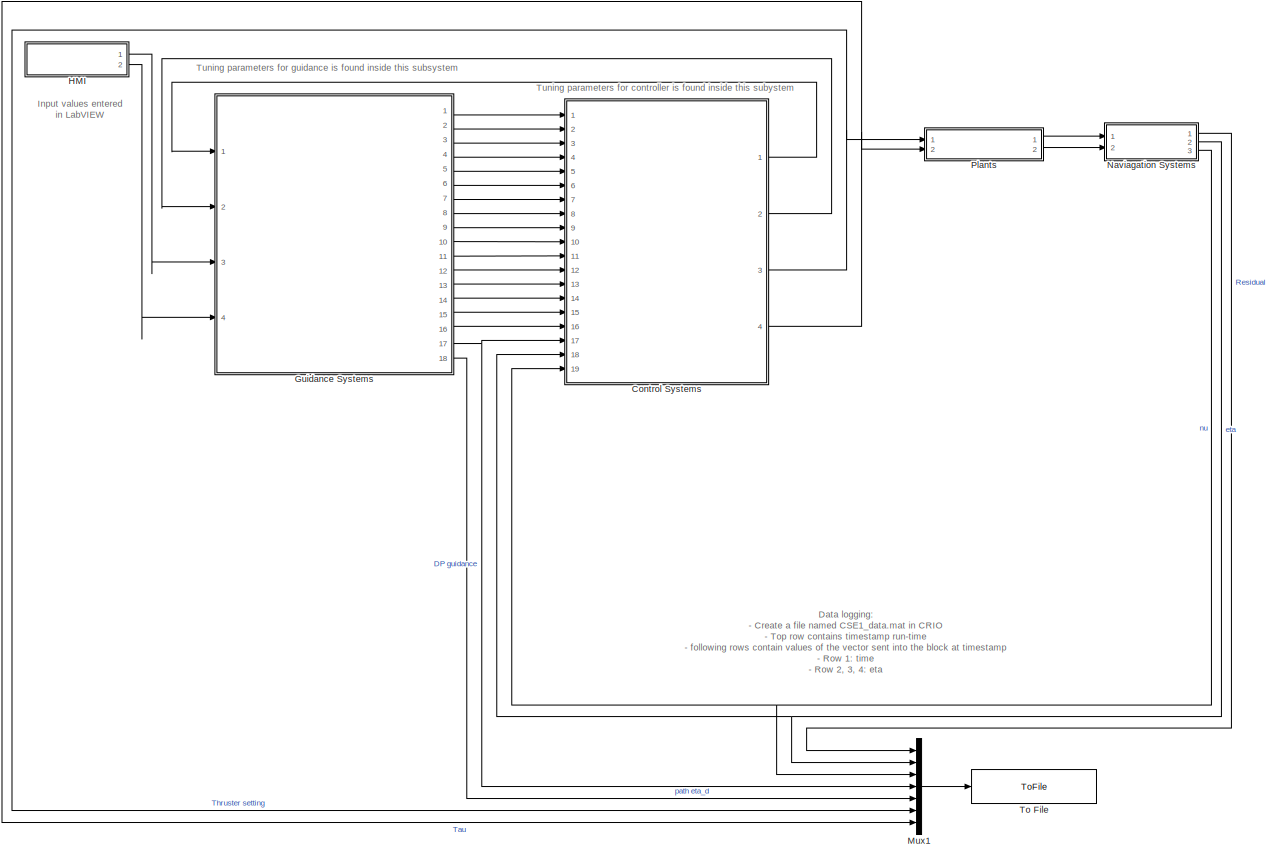
[diagram: root canvas - part 1/2, most of the canvas]
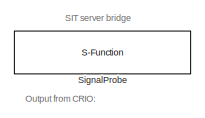
[diagram: root canvas - part 2/2, top left region]
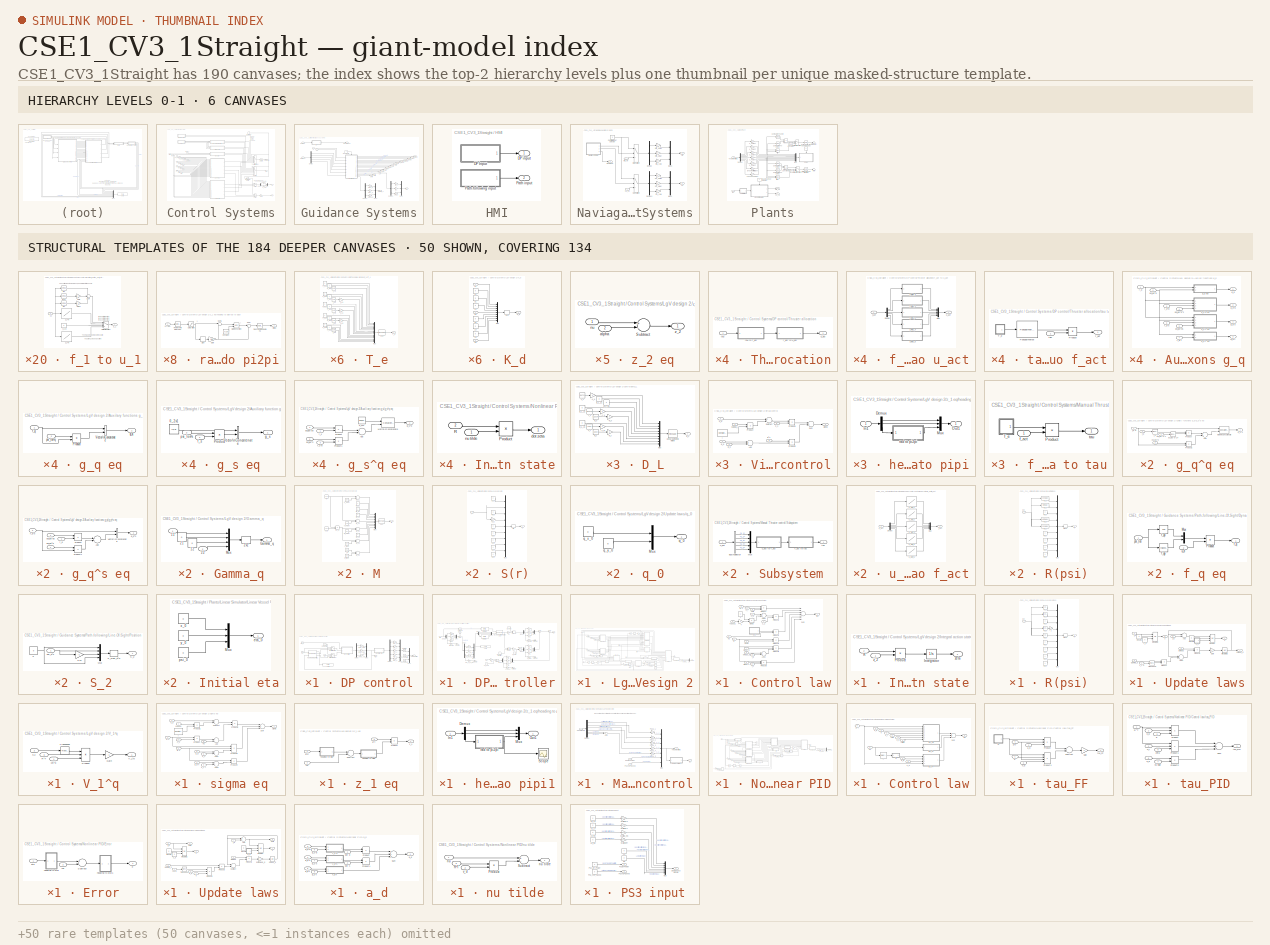
[diagram: thumbnail index - top-2 hierarchy levels (6 canvases) + 50 structural-template representatives of the remaining 184 canvases]
MODEL CSE1_CV3_1Straight
KIND model
BLOCK [SubSystem] Control Systems
  FunctionWithSeparateData = off
  MaskHideContents = off
  MinAlgLoopOccurrences = off
  Opaque = off
  Ports = [19, 4]
  PropExecContextOutsideSubsystem = off
  RTWSystemCode = Auto
  RequestExecContextInheritance = off
BLOCK [Constant] Control Systems/Control Mode
  Value = 0
BLOCK [SubSystem] Control Systems/DP control
  FunctionWithSeparateData = off
  MaskHideContents = off
  MinAlgLoopOccurrences = off
  Opaque = off
  Ports = [3, 2]
  PropExecContextOutsideSubsystem = off
  RTWSystemCode = Auto
  RequestExecContextInheritance = off
BLOCK [Constant] Control Systems/DP control/BT_power_limit
  Value = 0.5
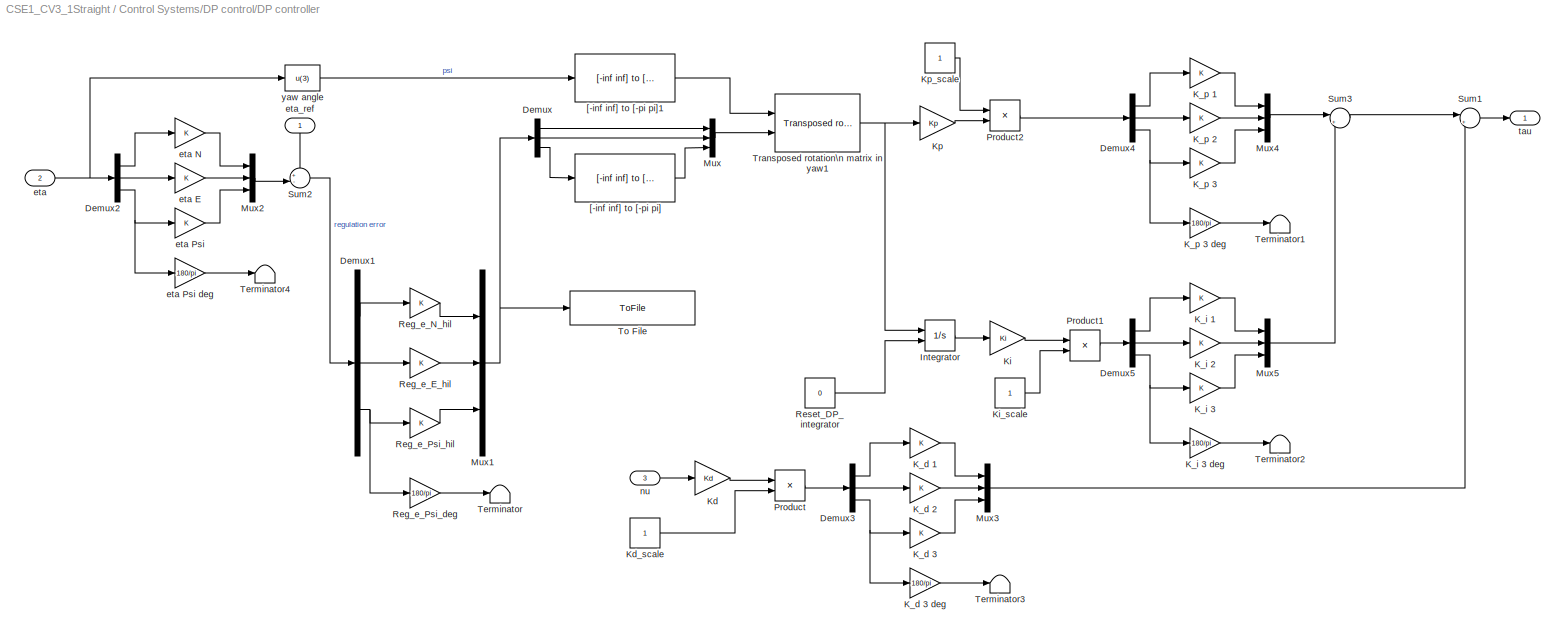
BLOCK [SubSystem] Control Systems/DP control/DP controller
  FunctionWithSeparateData = off
  MaskCallbackString = ||
  MaskDescription = Nonlinear PID controller for Set-Point Reulation in Surge, Sway and Yaw
  MaskDisplay = disp('Nonlinear PID\\n set-point controller')
  MaskEnableString = on,on,on
  MaskHelp = The nonlinear  PID controller uses the rotation matrix in yaw for proper scaling of the surge, sway and yaw gains as a function of the yaw angle. \nINPUTS: (1) eta_ref, (2) eta, (3) nu. OUPUTS: (1) tau.
  MaskHideContents = off
  MaskIconFrame = on
  MaskIconOpaque = off
  MaskIconRotate = none
  MaskIconUnits = autoscale
  MaskPortRotate = default
  MaskPromptString = Proportional Gain Matrix: Kp|Derivative Gain Matrix: Kd|Integral Gain Matrix: Ki
  MaskStyleString = edit,edit,edit
  MaskTabNameString = ,,
  MaskToolTipString = on,on,on
  MaskTunableValueString = on,on,on
  MaskType = Nonlinear DP Controller
  MaskValueString = (0.1)^2*[25.8000 0  0;  0  33.8000  1.0115;  0  1.0115  2.7600 ]|2*0.8*0.1*[25.8000 0  0;  0  33.8000  1.0115;  0  1.0115  2.7600 ]|(0.1^3/10)*[25.8000 0  0;  0  33.8000  1.0115;  0  1.0115  2.7600 ]
  MaskVarAliasString = ,,
  MaskVariables = Kp=@1;Kd=@2;Ki=@3;
  MaskVisibilityString = on,on,on
  MinAlgLoopOccurrences = off
  Opaque = off
  Ports = [3, 1]
  PropExecContextOutsideSubsystem = off
  RTWSystemCode = Auto
  RequestExecContextInheritance = off
BLOCK [Demux] Control Systems/DP control/DP controller/Demux
  DisplayOption = bar
  Outputs = 3
  Ports = [1, 3]
BLOCK [Demux] Control Systems/DP control/DP controller/Demux1
  DisplayOption = bar
  Outputs = 3
  Ports = [1, 3]
BLOCK [Demux] Control Systems/DP control/DP controller/Demux2
  DisplayOption = bar
  Outputs = 3
  Ports = [1, 3]
BLOCK [Demux] Control Systems/DP control/DP controller/Demux3
  DisplayOption = bar
  Outputs = 3
  Ports = [1, 3]
BLOCK [Demux] Control Systems/DP control/DP controller/Demux4
  DisplayOption = bar
  Outputs = 3
  Ports = [1, 3]
BLOCK [Demux] Control Systems/DP control/DP controller/Demux5
  DisplayOption = bar
  Outputs = 3
  Ports = [1, 3]
BLOCK [Integrator] Control Systems/DP control/DP controller/Integrator
  ExternalReset = level
  Ports = [2, 1]
BLOCK [Gain] Control Systems/DP control/DP controller/K_d 1
  OutDataType = fixdt(1, 16)
  OutDataTypeMode = Inherit via internal rule
  OutDataTypeStr = Inherit: Inherit via internal rule
  OutScaling = 2^0
  ParamDataTypeStr = Inherit: Inherit via internal rule
  ParameterDataType = fixdt(1, 16)
  ParameterDataTypeMode = Inherit via internal rule
  ParameterScaling = 2^0
  SaturateOnIntegerOverflow = off
BLOCK [Gain] Control Systems/DP control/DP controller/K_d 2
  OutDataType = fixdt(1, 16)
  OutDataTypeMode = Inherit via internal rule
  OutDataTypeStr = Inherit: Inherit via internal rule
  OutScaling = 2^0
  ParamDataTypeStr = Inherit: Inherit via internal rule
  ParameterDataType = fixdt(1, 16)
  ParameterDataTypeMode = Inherit via internal rule
  ParameterScaling = 2^0
  SaturateOnIntegerOverflow = off
BLOCK [Gain] Control Systems/DP control/DP controller/K_d 3
  OutDataType = fixdt(1, 16)
  OutDataTypeMode = Inherit via internal rule
  OutDataTypeStr = Inherit: Inherit via internal rule
  OutScaling = 2^0
  ParamDataTypeStr = Inherit: Inherit via internal rule
  ParameterDataType = fixdt(1, 16)
  ParameterDataTypeMode = Inherit via internal rule
  ParameterScaling = 2^0
  SaturateOnIntegerOverflow = off
BLOCK [Gain] Control Systems/DP control/DP controller/K_d 3 deg
  Gain = 180/pi
  OutDataType = fixdt(1, 16)
  OutDataTypeMode = Inherit via internal rule
  OutDataTypeStr = Inherit: Inherit via internal rule
  OutScaling = 2^0
  ParamDataTypeStr = Inherit: Inherit via internal rule
  ParameterDataType = fixdt(1, 16)
  ParameterDataTypeMode = Inherit via internal rule
  ParameterScaling = 2^0
  SaturateOnIntegerOverflow = off
BLOCK [Gain] Control Systems/DP control/DP controller/K_i 1
  OutDataType = fixdt(1, 16)
  OutDataTypeMode = Inherit via internal rule
  OutDataTypeStr = Inherit: Inherit via internal rule
  OutScaling = 2^0
  ParamDataTypeStr = Inherit: Inherit via internal rule
  ParameterDataType = fixdt(1, 16)
  ParameterDataTypeMode = Inherit via internal rule
  ParameterScaling = 2^0
  SaturateOnIntegerOverflow = off
BLOCK [Gain] Control Systems/DP control/DP controller/K_i 2
  OutDataType = fixdt(1, 16)
  OutDataTypeMode = Inherit via internal rule
  OutDataTypeStr = Inherit: Inherit via internal rule
  OutScaling = 2^0
  ParamDataTypeStr = Inherit: Inherit via internal rule
  ParameterDataType = fixdt(1, 16)
  ParameterDataTypeMode = Inherit via internal rule
  ParameterScaling = 2^0
  SaturateOnIntegerOverflow = off
BLOCK [Gain] Control Systems/DP control/DP controller/K_i 3
  OutDataType = fixdt(1, 16)
  OutDataTypeMode = Inherit via internal rule
  OutDataTypeStr = Inherit: Inherit via internal rule
  OutScaling = 2^0
  ParamDataTypeStr = Inherit: Inherit via internal rule
  ParameterDataType = fixdt(1, 16)
  ParameterDataTypeMode = Inherit via internal rule
  ParameterScaling = 2^0
  SaturateOnIntegerOverflow = off
BLOCK [Gain] Control Systems/DP control/DP controller/K_i 3 deg
  Gain = 180/pi
  OutDataType = fixdt(1, 16)
  OutDataTypeMode = Inherit via internal rule
  OutDataTypeStr = Inherit: Inherit via internal rule
  OutScaling = 2^0
  ParamDataTypeStr = Inherit: Inherit via internal rule
  ParameterDataType = fixdt(1, 16)
  ParameterDataTypeMode = Inherit via internal rule
  ParameterScaling = 2^0
  SaturateOnIntegerOverflow = off
BLOCK [Gain] Control Systems/DP control/DP controller/K_p 1
  OutDataType = fixdt(1, 16)
  OutDataTypeMode = Inherit via internal rule
  OutDataTypeStr = Inherit: Inherit via internal rule
  OutScaling = 2^0
  ParamDataTypeStr = Inherit: Inherit via internal rule
  ParameterDataType = fixdt(1, 16)
  ParameterDataTypeMode = Inherit via internal rule
  ParameterScaling = 2^0
  SaturateOnIntegerOverflow = off
BLOCK [Gain] Control Systems/DP control/DP controller/K_p 2
  OutDataType = fixdt(1, 16)
  OutDataTypeMode = Inherit via internal rule
  OutDataTypeStr = Inherit: Inherit via internal rule
  OutScaling = 2^0
  ParamDataTypeStr = Inherit: Inherit via internal rule
  ParameterDataType = fixdt(1, 16)
  ParameterDataTypeMode = Inherit via internal rule
  ParameterScaling = 2^0
  SaturateOnIntegerOverflow = off
BLOCK [Gain] Control Systems/DP control/DP controller/K_p 3
  OutDataType = fixdt(1, 16)
  OutDataTypeMode = Inherit via internal rule
  OutDataTypeStr = Inherit: Inherit via internal rule
  OutScaling = 2^0
  ParamDataTypeStr = Inherit: Inherit via internal rule
  ParameterDataType = fixdt(1, 16)
  ParameterDataTypeMode = Inherit via internal rule
  ParameterScaling = 2^0
  SaturateOnIntegerOverflow = off
BLOCK [Gain] Control Systems/DP control/DP controller/K_p 3 deg
  Gain = 180/pi
  OutDataType = fixdt(1, 16)
  OutDataTypeMode = Inherit via internal rule
  OutDataTypeStr = Inherit: Inherit via internal rule
  OutScaling = 2^0
  ParamDataTypeStr = Inherit: Inherit via internal rule
  ParameterDataType = fixdt(1, 16)
  ParameterDataTypeMode = Inherit via internal rule
  ParameterScaling = 2^0
  SaturateOnIntegerOverflow = off
BLOCK [Gain] Control Systems/DP control/DP controller/Kd
  Gain = Kd
  Multiplication = Matrix(K*u)
BLOCK [Constant] Control Systems/DP control/DP controller/Kd_scale
BLOCK [Gain] Control Systems/DP control/DP controller/Ki
  Gain = Ki
  Multiplication = Matrix(K*u)
BLOCK [Constant] Control Systems/DP control/DP controller/Ki_scale
BLOCK [Gain] Control Systems/DP control/DP controller/Kp
  Gain = Kp
  Multiplication = Matrix(K*u)
BLOCK [Constant] Control Systems/DP control/DP controller/Kp_scale
BLOCK [Mux] Control Systems/DP control/DP controller/Mux
  DisplayOption = bar
  Inputs = 3
  Ports = [3, 1]
BLOCK [Mux] Control Systems/DP control/DP controller/Mux1
  DisplayOption = bar
  Inputs = 3
  Ports = [3, 1]
BLOCK [Mux] Control Systems/DP control/DP controller/Mux2
  DisplayOption = bar
  Inputs = 3
  Ports = [3, 1]
BLOCK [Mux] Control Systems/DP control/DP controller/Mux3
  DisplayOption = bar
  Inputs = 3
  Ports = [3, 1]
BLOCK [Mux] Control Systems/DP control/DP controller/Mux4
  DisplayOption = bar
  Inputs = 3
  Ports = [3, 1]
BLOCK [Mux] Control Systems/DP control/DP controller/Mux5
  DisplayOption = bar
  Inputs = 3
  Ports = [3, 1]
BLOCK [Product] Control Systems/DP control/DP controller/Product
  InputSameDT = off
  OutDataTypeMode = Inherit via internal rule
  OutDataTypeStr = Inherit: Inherit via internal rule
  Ports = [2, 1]
  SaturateOnIntegerOverflow = off
BLOCK [Product] Control Systems/DP control/DP controller/Product1
  InputSameDT = off
  OutDataTypeMode = Inherit via internal rule
  OutDataTypeStr = Inherit: Inherit via internal rule
  Ports = [2, 1]
  SaturateOnIntegerOverflow = off
BLOCK [Product] Control Systems/DP control/DP controller/Product2
  InputSameDT = off
  OutDataTypeMode = Inherit via internal rule
  OutDataTypeStr = Inherit: Inherit via internal rule
  Ports = [2, 1]
  SaturateOnIntegerOverflow = off
BLOCK [Gain] Control Systems/DP control/DP controller/Reg_e_E_hil
  OutDataTypeMode = Inherit via internal rule
  OutDataTypeStr = Inherit: Inherit via internal rule
  ParamDataTypeStr = Inherit: Inherit via internal rule
  ParameterDataTypeMode = Inherit via internal rule
  SaturateOnIntegerOverflow = off
BLOCK [Gain] Control Systems/DP control/DP controller/Reg_e_N_hil
  OutDataTypeMode = Inherit via internal rule
  OutDataTypeStr = Inherit: Inherit via internal rule
  ParamDataTypeStr = Inherit: Inherit via internal rule
  ParameterDataTypeMode = Inherit via internal rule
  SaturateOnIntegerOverflow = off
BLOCK [Gain] Control Systems/DP control/DP controller/Reg_e_Psi_deg
  Gain = 180/pi
  OutDataType = fixdt(1, 16)
  OutDataTypeMode = Inherit via internal rule
  OutDataTypeStr = Inherit: Inherit via internal rule
  OutScaling = 2^0
  ParamDataTypeStr = Inherit: Inherit via internal rule
  ParameterDataType = fixdt(1, 16)
  ParameterDataTypeMode = Inherit via internal rule
  ParameterScaling = 2^0
  SaturateOnIntegerOverflow = off
BLOCK [Gain] Control Systems/DP control/DP controller/Reg_e_Psi_hil
  OutDataTypeMode = Inherit via internal rule
  OutDataTypeStr = Inherit: Inherit via internal rule
  ParamDataTypeStr = Inherit: Inherit via internal rule
  ParameterDataTypeMode = Inherit via internal rule
  SaturateOnIntegerOverflow = off
BLOCK [Constant] Control Systems/DP control/DP controller/Reset_DP_integrator
  Value = 0
BLOCK [Sum] Control Systems/DP control/DP controller/Sum1
  IconShape = round
  Inputs = |+-
  Ports = [2, 1]
BLOCK [Sum] Control Systems/DP control/DP controller/Sum2
  IconShape = round
  Inputs = +-|
  Ports = [2, 1]
BLOCK [Sum] Control Systems/DP control/DP controller/Sum3
  IconShape = round
  Inputs = |++
  Ports = [2, 1]
BLOCK [Terminator] Control Systems/DP control/DP controller/Terminator
BLOCK [Terminator] Control Systems/DP control/DP controller/Terminator1
BLOCK [Terminator] Control Systems/DP control/DP controller/Terminator2
BLOCK [Terminator] Control Systems/DP control/DP controller/Terminator3
BLOCK [Terminator] Control Systems/DP control/DP controller/Terminator4
BLOCK [ToFile] Control Systems/DP control/DP controller/To File
  Filename = CSE1_data_reg_error.mat
  MatrixName = cse1_data_reg_error
BLOCK [Reference] Control Systems/DP control/DP controller/Transposed rotation\n matrix in yaw1  REF=marine_gnc/Models/ Kinematics/Transposed rotation\n matrix in yaw  (lib defined in mdl_10d96c221ba8, mdl_45f1105420c6)
  FunctionWithSeparateData = off
  Ports = [2, 1]
  RTWMemSecDataConstants = Inherit from model
  RTWMemSecDataInternal = Inherit from model
  RTWMemSecDataParameters = Inherit from model
  RTWMemSecFuncExecute = Inherit from model
  RTWMemSecFuncInitTerm = Inherit from model
  ShowPortLabels = FromPortIcon
  SourceBlock = marine_gnc/Models/ Kinematics/Transposed rotation\n matrix in yaw
  SystemSampleTime = -1
BLOCK [Reference] Control Systems/DP control/DP controller/[-inf inf] to [-pi pi]  REF=marine_gnc/Utilities/Math Operations/[-inf inf] to [-pi pi]  (lib defined in mdl_10d96c221ba8, mdl_45f1105420c6)
  FunctionWithSeparateData = off
  Ports = [1, 1]
  RTWMemSecDataConstants = Inherit from model
  RTWMemSecDataInternal = Inherit from model
  RTWMemSecDataParameters = Inherit from model
  RTWMemSecFuncExecute = Inherit from model
  RTWMemSecFuncInitTerm = Inherit from model
  ShowPortLabels = FromPortIcon
  SourceBlock = marine_gnc/Utilities/Math Operations/[-inf inf] to [-pi pi]
  SourceType = [-inf inf] to [-pi pi]
  SystemSampleTime = -1
BLOCK [Reference] Control Systems/DP control/DP controller/[-inf inf] to [-pi pi]1  REF=marine_gnc/Utilities/Math Operations/[-inf inf] to [-pi pi]  (lib defined in mdl_10d96c221ba8, mdl_45f1105420c6)
  FunctionWithSeparateData = off
  Ports = [1, 1]
  RTWMemSecDataConstants = Inherit from model
  RTWMemSecDataInternal = Inherit from model
  RTWMemSecDataParameters = Inherit from model
  RTWMemSecFuncExecute = Inherit from model
  RTWMemSecFuncInitTerm = Inherit from model
  ShowPortLabels = FromPortIcon
  SourceBlock = marine_gnc/Utilities/Math Operations/[-inf inf] to [-pi pi]
  SourceType = [-inf inf] to [-pi pi]
  SystemSampleTime = -1
BLOCK [Inport] Control Systems/DP control/DP controller/eta
  IconDisplay = Port number
  Port = 2
BLOCK [Gain] Control Systems/DP control/DP controller/eta E
  OutDataType = fixdt(1, 16)
  OutDataTypeMode = Inherit via internal rule
  OutDataTypeStr = Inherit: Inherit via internal rule
  OutScaling = 2^0
  ParamDataTypeStr = Inherit: Inherit via internal rule
  ParameterDataType = fixdt(1, 16)
  ParameterDataTypeMode = Inherit via internal rule
  ParameterScaling = 2^0
  SaturateOnIntegerOverflow = off
BLOCK [Gain] Control Systems/DP control/DP controller/eta N
  OutDataType = fixdt(1, 16)
  OutDataTypeMode = Inherit via internal rule
  OutDataTypeStr = Inherit: Inherit via internal rule
  OutScaling = 2^0
  ParamDataTypeStr = Inherit: Inherit via internal rule
  ParameterDataType = fixdt(1, 16)
  ParameterDataTypeMode = Inherit via internal rule
  ParameterScaling = 2^0
  SaturateOnIntegerOverflow = off
BLOCK [Gain] Control Systems/DP control/DP controller/eta Psi
  OutDataType = fixdt(1, 16)
  OutDataTypeMode = Inherit via internal rule
  OutDataTypeStr = Inherit: Inherit via internal rule
  OutScaling = 2^0
  ParamDataTypeStr = Inherit: Inherit via internal rule
  ParameterDataType = fixdt(1, 16)
  ParameterDataTypeMode = Inherit via internal rule
  ParameterScaling = 2^0
  SaturateOnIntegerOverflow = off
BLOCK [Gain] Control Systems/DP control/DP controller/eta Psi deg
  Gain = 180/pi
  OutDataType = fixdt(1, 16)
  OutDataTypeMode = Inherit via internal rule
  OutDataTypeStr = Inherit: Inherit via internal rule
  OutScaling = 2^0
  ParamDataTypeStr = Inherit: Inherit via internal rule
  ParameterDataType = fixdt(1, 16)
  ParameterDataTypeMode = Inherit via internal rule
  ParameterScaling = 2^0
  SaturateOnIntegerOverflow = off
BLOCK [Inport] Control Systems/DP control/DP controller/eta_ref
  IconDisplay = Port number
BLOCK [Inport] Control Systems/DP control/DP controller/nu
  IconDisplay = Port number
  Port = 3
BLOCK [Outport] Control Systems/DP control/DP controller/tau
  IconDisplay = Port number
  InitialOutput = 0
BLOCK [Fcn] Control Systems/DP control/DP controller/yaw angle
  Expr = u(3)
BLOCK [Gain] Control Systems/DP control/DP tau_surge
  OutDataType = fixdt(1, 16)
  OutDataTypeMode = Inherit via internal rule
  OutDataTypeStr = Inherit: Inherit via internal rule
  OutScaling = 2^0
  ParamDataTypeStr = Inherit: Inherit via internal rule
  ParameterDataType = fixdt(1, 16)
  ParameterDataTypeMode = Inherit via internal rule
  ParameterScaling = 2^0
  SaturateOnIntegerOverflow = off
BLOCK [Gain] Control Systems/DP control/DP tau_sway
  OutDataType = fixdt(1, 16)
  OutDataTypeMode = Inherit via internal rule
  OutDataTypeStr = Inherit: Inherit via internal rule
  OutScaling = 2^0
  ParamDataTypeStr = Inherit: Inherit via internal rule
  ParameterDataType = fixdt(1, 16)
  ParameterDataTypeMode = Inherit via internal rule
  ParameterScaling = 2^0
  SaturateOnIntegerOverflow = off
BLOCK [Gain] Control Systems/DP control/DP tau_yaw
  OutDataType = fixdt(1, 16)
  OutDataTypeMode = Inherit via internal rule
  OutDataTypeStr = Inherit: Inherit via internal rule
  OutScaling = 2^0
  ParamDataTypeStr = Inherit: Inherit via internal rule
  ParameterDataType = fixdt(1, 16)
  ParameterDataTypeMode = Inherit via internal rule
  ParameterScaling = 2^0
  SaturateOnIntegerOverflow = off
BLOCK [Gain] Control Systems/DP control/DP u_1
  OutDataType = fixdt(1, 16)
  OutDataTypeMode = Inherit via internal rule
  OutDataTypeStr = Inherit: Inherit via internal rule
  OutScaling = 2^0
  ParamDataTypeStr = Inherit: Inherit via internal rule
  ParameterDataType = fixdt(1, 16)
  ParameterDataTypeMode = Inherit via internal rule
  ParameterScaling = 2^0
  SaturateOnIntegerOverflow = off
BLOCK [Gain] Control Systems/DP control/DP u_2
  OutDataType = fixdt(1, 16)
  OutDataTypeMode = Inherit via internal rule
  OutDataTypeStr = Inherit: Inherit via internal rule
  OutScaling = 2^0
  ParamDataTypeStr = Inherit: Inherit via internal rule
  ParameterDataType = fixdt(1, 16)
  ParameterDataTypeMode = Inherit via internal rule
  ParameterScaling = 2^0
  SaturateOnIntegerOverflow = off
BLOCK [Gain] Control Systems/DP control/DP u_3
  OutDataType = fixdt(1, 16)
  OutDataTypeMode = Inherit via internal rule
  OutDataTypeStr = Inherit: Inherit via internal rule
  OutScaling = 2^0
  ParamDataTypeStr = Inherit: Inherit via internal rule
  ParameterDataType = fixdt(1, 16)
  ParameterDataTypeMode = Inherit via internal rule
  ParameterScaling = 2^0
  SaturateOnIntegerOverflow = off
BLOCK [Gain] Control Systems/DP control/DP u_4
  OutDataType = fixdt(1, 16)
  OutDataTypeMode = Inherit via internal rule
  OutDataTypeStr = Inherit: Inherit via internal rule
  OutScaling = 2^0
  ParamDataTypeStr = Inherit: Inherit via internal rule
  ParameterDataType = fixdt(1, 16)
  ParameterDataTypeMode = Inherit via internal rule
  ParameterScaling = 2^0
  SaturateOnIntegerOverflow = off
BLOCK [Gain] Control Systems/DP control/DP u_5
  OutDataType = fixdt(1, 16)
  OutDataTypeMode = Inherit via internal rule
  OutDataTypeStr = Inherit: Inherit via internal rule
  OutScaling = 2^0
  ParamDataTypeStr = Inherit: Inherit via internal rule
  ParameterDataType = fixdt(1, 16)
  ParameterDataTypeMode = Inherit via internal rule
  ParameterScaling = 2^0
  SaturateOnIntegerOverflow = off
BLOCK [Demux] Control Systems/DP control/Demux
  DisplayOption = bar
  Outputs = 3
  Ports = [1, 3]
BLOCK [Demux] Control Systems/DP control/Demux1
  DisplayOption = bar
  Outputs = 5
  Ports = [1, 5]
BLOCK [Constant] Control Systems/DP control/Enable Filter
  Value = 0
BLOCK [MultiPortSwitch] Control Systems/DP control/Multiport\nSwitch
  InputSameDT = off
  Inputs = 2
  Ports = [3, 1]
  SaturateOnIntegerOverflow = off
  zeroidx = on
BLOCK [MultiPortSwitch] Control Systems/DP control/Multiport\nSwitch1
  InputSameDT = off
  Inputs = 2
  Ports = [3, 1]
  SaturateOnIntegerOverflow = off
  zeroidx = on
BLOCK [Mux] Control Systems/DP control/Mux1
  DisplayOption = bar
  Inputs = 3
  Ports = [3, 1]
BLOCK [Mux] Control Systems/DP control/Mux2
  DisplayOption = bar
  Inputs = 5
  Ports = [5, 1]
BLOCK [Mux] Control Systems/DP control/Mux3
  DisplayOption = bar
  Inputs = 3
  Ports = [3, 1]
BLOCK [Reference] Control Systems/DP control/Passive DP wave filter1  REF=marine_gnc/Navigation/Observers/Passive DP wave filter  (lib defined in mdl_10d96c221ba8, mdl_45f1105420c6)
  D = [2 0  0;  0 7 0.1; 0 0.1 0.5]
  FunctionWithSeparateData = off
  K3 = 0.1*diag([1 1 0.1])
  K4 = 0.1*diag([1 1 0.1])
  M = [ 25.8000   0    0;   0   33.8000   1.0115; 0   1.0115    2.7600 ]
  Ports = [2, 3]
  RTWMemSecDataConstants = Inherit from model
  RTWMemSecDataInternal = Inherit from model
  RTWMemSecDataParameters = Inherit from model
  RTWMemSecFuncExecute = Inherit from model
  RTWMemSecFuncInitTerm = Inherit from model
  ShowPortLabels = FromPortIcon
  SourceBlock = marine_gnc/Navigation/Observers/Passive DP wave filter
  SystemSampleTime = -1
  T_b = diag([100 100 100])
  lambda = 0.1*diag([1 1 1])
  w_c = 1.3*diag([0.8 0.8 0.8])
  w_o = diag([0.8 0.8 0.8])
BLOCK [Saturate] Control Systems/DP control/Saturation
  LowerLimit = -1.0
  UpperLimit = 1.0
BLOCK [SubSystem] Control Systems/DP control/Thruster allocation
  FunctionWithSeparateData = off
  MaskHideContents = off
  MinAlgLoopOccurrences = off
  Opaque = off
  Ports = [1, 1]
  PropExecContextOutsideSubsystem = off
  RTWSystemCode = Auto
  RequestExecContextInheritance = off
BLOCK [SubSystem] Control Systems/DP control/Thruster allocation/f_act to u_act
  FunctionWithSeparateData = off
  MaskHideContents = off
  MinAlgLoopOccurrences = off
  Opaque = off
  Ports = [1, 1]
  PropExecContextOutsideSubsystem = off
  RTWSystemCode = Auto
  RequestExecContextInheritance = off
BLOCK [Demux] Control Systems/DP control/Thruster allocation/f_act to u_act/Demux
  DisplayOption = bar
  Outputs = 5
  Ports = [1, 5]
BLOCK [Mux] Control Systems/DP control/Thruster allocation/f_act to u_act/Mux
  DisplayOption = bar
  Inputs = 5
  Ports = [5, 1]
BLOCK [SubSystem] Control Systems/DP control/Thruster allocation/f_act to u_act/f_1 to u_1
  FunctionWithSeparateData = off
  MaskHideContents = off
  MinAlgLoopOccurrences = off
  Opaque = off
  Ports = [1, 1]
  PropExecContextOutsideSubsystem = off
  RTWSystemCode = Auto
  RequestExecContextInheritance = off
BLOCK [Gain] Control Systems/DP control/Thruster allocation/f_act to u_act/f_1 to u_1/Gain
  Gain = 2
  OutDataType = fixdt(1, 16)
  OutDataTypeMode = Inherit via internal rule
  OutDataTypeStr = Inherit: Inherit via internal rule
  OutScaling = 2^0
  ParamDataTypeStr = Inherit: Inherit via internal rule
  ParameterDataType = fixdt(1, 16)
  ParameterDataTypeMode = Inherit via internal rule
  ParameterScaling = 2^0
  SaturateOnIntegerOverflow = off
BLOCK [Gain] Control Systems/DP control/Thruster allocation/f_act to u_act/f_1 to u_1/Gain1
  Gain = 3
  OutDataType = fixdt(1, 16)
  OutDataTypeMode = Inherit via internal rule
  OutDataTypeStr = Inherit: Inherit via internal rule
  OutScaling = 2^0
  ParamDataTypeStr = Inherit: Inherit via internal rule
  ParameterDataType = fixdt(1, 16)
  ParameterDataTypeMode = Inherit via internal rule
  ParameterScaling = 2^0
  SaturateOnIntegerOverflow = off
BLOCK [Reference] Control Systems/DP control/Thruster allocation/f_act to u_act/f_1 to u_1/If < 0  REF=simulink/Logic and Bit\nOperations/Compare\nTo Constant
  FunctionWithSeparateData = off
  LogicOutDataTypeMode = uint8
  Ports = [1, 1]
  RTWMemSecDataConstants = Inherit from model
  RTWMemSecDataInternal = Inherit from model
  RTWMemSecDataParameters = Inherit from model
  RTWMemSecFuncExecute = Inherit from model
  RTWMemSecFuncInitTerm = Inherit from model
  ShowPortLabels = FromPortIcon
  SourceBlock = simulink/Logic and Bit\nOperations/Compare\nTo Constant
  SourceType = Compare To Constant
  SystemSampleTime = -1
  ZeroCross = on
  const = 0
  relop = <
BLOCK [Reference] Control Systems/DP control/Thruster allocation/f_act to u_act/f_1 to u_1/If > 0  REF=simulink/Logic and Bit\nOperations/Compare\nTo Constant
  FunctionWithSeparateData = off
  LogicOutDataTypeMode = uint8
  Ports = [1, 1]
  RTWMemSecDataConstants = Inherit from model
  RTWMemSecDataInternal = Inherit from model
  RTWMemSecDataParameters = Inherit from model
  RTWMemSecFuncExecute = Inherit from model
  RTWMemSecFuncInitTerm = Inherit from model
  ShowPortLabels = FromPortIcon
  SourceBlock = simulink/Logic and Bit\nOperations/Compare\nTo Constant
  SourceType = Compare To Constant
  SystemSampleTime = -1
  ZeroCross = on
  const = 0
  relop = >
BLOCK [MultiPortSwitch] Control Systems/DP control/Thruster allocation/f_act to u_act/f_1 to u_1/Multiport\nSwitch
  InputSameDT = off
  OutDataType = fixdt(1, 16)
  OutScaling = 2^0
  Ports = [4, 1]
  SaturateOnIntegerOverflow = off
BLOCK [Sum] Control Systems/DP control/Thruster allocation/f_act to u_act/f_1 to u_1/Sum
  IconShape = round
  InputSameDT = off
  Inputs = +++
  OutDataType = fixdt(1, 16)
  OutDataTypeMode = Inherit via internal rule
  OutDataTypeStr = Inherit: Inherit via internal rule
  OutScaling = 2^0
  Ports = [3, 1]
  SaturateOnIntegerOverflow = off
BLOCK [Inport] Control Systems/DP control/Thruster allocation/f_act to u_act/f_1 to u_1/f_1
  IconDisplay = Port number
BLOCK [Lookup] Control Systems/DP control/Thruster allocation/f_act to u_act/f_1 to u_1/f_1 < 0
  InputValues = [-1.324\n-1.169\n-0.919\n-0.703\n-0.535\n-0.292\n-0.165\n-0.060\n0]
  LookUpMeth = Interpolation-Use End Values
  OutDataType = fixdt(1, 16)
  OutScaling = 2^0
  SaturateOnIntegerOverflow = off
  Table = [-1.0000\n   -0.9000\n   -0.8000\n   -0.7000\n   -0.6000\n   -0.5000\n   -0.4000\n   -0.3000\n   -0.2089]
BLOCK [Constant] Control Systems/DP control/Thruster allocation/f_act to u_act/f_1 to u_1/f_1 = 0
  OutDataType = fixdt(1, 16)
  OutScaling = 2^0
  Value = 0
BLOCK [Lookup] Control Systems/DP control/Thruster allocation/f_act to u_act/f_1 to u_1/f_1 > 0
  InputValues = [0\n    0.0510\n    0.1530\n    0.3080\n    0.4800\n    0.6630\n    0.9110\n    1.0570\n    1.2210\n    1.3740]
  LookUpMeth = Interpolation-Use End Values
  OutDataType = fixdt(1, 16)
  OutScaling = 2^0
  SaturateOnIntegerOverflow = off
  Table = [0.0500\n    0.1000\n    0.2000\n    0.3000\n    0.4000\n    0.5000\n    0.6000\n    0.7000\n    0.8000\n    0.9000]
BLOCK [Reference] Control Systems/DP control/Thruster allocation/f_act to u_act/f_1 to u_1/if == 0  REF=simulink/Logic and Bit\nOperations/Compare\nTo Zero
  FunctionWithSeparateData = off
  LogicOutDataTypeMode = uint8
  Ports = [1, 1]
  RTWMemSecDataConstants = Inherit from model
  RTWMemSecDataInternal = Inherit from model
  RTWMemSecDataParameters = Inherit from model
  RTWMemSecFuncExecute = Inherit from model
  RTWMemSecFuncInitTerm = Inherit from model
  ShowPortLabels = FromPortIcon
  SourceBlock = simulink/Logic and Bit\nOperations/Compare\nTo Zero
  SourceType = Compare To Zero
  SystemSampleTime = -1
  ZeroCross = on
  relop = ==
BLOCK [Outport] Control Systems/DP control/Thruster allocation/f_act to u_act/f_1 to u_1/u_1
  IconDisplay = Port number
BLOCK [SubSystem] Control Systems/DP control/Thruster allocation/f_act to u_act/f_2 to u_2
  FunctionWithSeparateData = off
  MaskHideContents = off
  MinAlgLoopOccurrences = off
  Opaque = off
  Ports = [1, 1]
  PropExecContextOutsideSubsystem = off
  RTWSystemCode = Auto
  RequestExecContextInheritance = off
BLOCK [Gain] Control Systems/DP control/Thruster allocation/f_act to u_act/f_2 to u_2/Gain
  Gain = 2
  OutDataType = fixdt(1, 16)
  OutDataTypeMode = Inherit via internal rule
  OutDataTypeStr = Inherit: Inherit via internal rule
  OutScaling = 2^0
  ParamDataTypeStr = Inherit: Inherit via internal rule
  ParameterDataType = fixdt(1, 16)
  ParameterDataTypeMode = Inherit via internal rule
  ParameterScaling = 2^0
  SaturateOnIntegerOverflow = off
BLOCK [Gain] Control Systems/DP control/Thruster allocation/f_act to u_act/f_2 to u_2/Gain1
  Gain = 3
  OutDataType = fixdt(1, 16)
  OutDataTypeMode = Inherit via internal rule
  OutDataTypeStr = Inherit: Inherit via internal rule
  OutScaling = 2^0
  ParamDataTypeStr = Inherit: Inherit via internal rule
  ParameterDataType = fixdt(1, 16)
  ParameterDataTypeMode = Inherit via internal rule
  ParameterScaling = 2^0
  SaturateOnIntegerOverflow = off
BLOCK [Reference] Control Systems/DP control/Thruster allocation/f_act to u_act/f_2 to u_2/If < 0  REF=simulink/Logic and Bit\nOperations/Compare\nTo Constant
  FunctionWithSeparateData = off
  LogicOutDataTypeMode = uint8
  Ports = [1, 1]
  RTWMemSecDataConstants = Inherit from model
  RTWMemSecDataInternal = Inherit from model
  RTWMemSecDataParameters = Inherit from model
  RTWMemSecFuncExecute = Inherit from model
  RTWMemSecFuncInitTerm = Inherit from model
  ShowPortLabels = FromPortIcon
  SourceBlock = simulink/Logic and Bit\nOperations/Compare\nTo Constant
  SourceType = Compare To Constant
  SystemSampleTime = -1
  ZeroCross = on
  const = 0
  relop = <
BLOCK [Reference] Control Systems/DP control/Thruster allocation/f_act to u_act/f_2 to u_2/If > 0  REF=simulink/Logic and Bit\nOperations/Compare\nTo Constant
  FunctionWithSeparateData = off
  LogicOutDataTypeMode = uint8
  Ports = [1, 1]
  RTWMemSecDataConstants = Inherit from model
  RTWMemSecDataInternal = Inherit from model
  RTWMemSecDataParameters = Inherit from model
  RTWMemSecFuncExecute = Inherit from model
  RTWMemSecFuncInitTerm = Inherit from model
  ShowPortLabels = FromPortIcon
  SourceBlock = simulink/Logic and Bit\nOperations/Compare\nTo Constant
  SourceType = Compare To Constant
  SystemSampleTime = -1
  ZeroCross = on
  const = 0
  relop = >
BLOCK [MultiPortSwitch] Control Systems/DP control/Thruster allocation/f_act to u_act/f_2 to u_2/Multiport\nSwitch
  InputSameDT = off
  OutDataType = fixdt(1, 16)
  OutScaling = 2^0
  Ports = [4, 1]
  SaturateOnIntegerOverflow = off
BLOCK [Sum] Control Systems/DP control/Thruster allocation/f_act to u_act/f_2 to u_2/Sum
  IconShape = round
  InputSameDT = off
  Inputs = +++
  OutDataType = fixdt(1, 16)
  OutDataTypeMode = Inherit via internal rule
  OutDataTypeStr = Inherit: Inherit via internal rule
  OutScaling = 2^0
  Ports = [3, 1]
  SaturateOnIntegerOverflow = off
BLOCK [Inport] Control Systems/DP control/Thruster allocation/f_act to u_act/f_2 to u_2/f_2
  IconDisplay = Port number
BLOCK [Lookup] Control Systems/DP control/Thruster allocation/f_act to u_act/f_2 to u_2/f_2 < 0
  InputValues = [-0.766\n-0.649\n-0.522\n-0.411\n-0.323\n-0.246\n-0.156\n-0.075\n-0.018\n-0.006\n0]
  LookUpMeth = Interpolation-Use End Values
  OutDataType = fixdt(1, 16)
  OutScaling = 2^0
  SaturateOnIntegerOverflow = off
  Table = [-1.0000\n   -0.9000\n   -0.8000\n   -0.7000\n   -0.6000\n   -0.5000\n   -0.4000\n   -0.3000\n   -0.2000\n   -0.1000\n   -0.0466]
BLOCK [Constant] Control Systems/DP control/Thruster allocation/f_act to u_act/f_2 to u_2/f_2 = 0
  OutDataType = fixdt(1, 16)
  OutScaling = 2^0
  Value = 0
BLOCK [Lookup] Control Systems/DP control/Thruster allocation/f_act to u_act/f_2 to u_2/f_2 > 0
  InputValues = [0.000\n0.052\n0.207\n0.331\n0.509\n0.689\n0.829\n0.961\n1.079\n1.120\n]
  LookUpMeth = Interpolation-Use End Values
  OutDataType = fixdt(1, 16)
  OutScaling = 2^0
  SaturateOnIntegerOverflow = off
  Table = [0.1665\n    0.2000\n    0.3000\n    0.4000\n    0.5000\n    0.6000\n    0.7000\n    0.8000\n    0.9000\n    1.0000]
BLOCK [Reference] Control Systems/DP control/Thruster allocation/f_act to u_act/f_2 to u_2/if == 0  REF=simulink/Logic and Bit\nOperations/Compare\nTo Zero
  FunctionWithSeparateData = off
  LogicOutDataTypeMode = uint8
  Ports = [1, 1]
  RTWMemSecDataConstants = Inherit from model
  RTWMemSecDataInternal = Inherit from model
  RTWMemSecDataParameters = Inherit from model
  RTWMemSecFuncExecute = Inherit from model
  RTWMemSecFuncInitTerm = Inherit from model
  ShowPortLabels = FromPortIcon
  SourceBlock = simulink/Logic and Bit\nOperations/Compare\nTo Zero
  SourceType = Compare To Zero
  SystemSampleTime = -1
  ZeroCross = on
  relop = ==
BLOCK [Outport] Control Systems/DP control/Thruster allocation/f_act to u_act/f_2 to u_2/u_2
  IconDisplay = Port number
BLOCK [SubSystem] Control Systems/DP control/Thruster allocation/f_act to u_act/f_3 to u_3
  FunctionWithSeparateData = off
  MaskHideContents = off
  MinAlgLoopOccurrences = off
  Opaque = off
  Ports = [1, 1]
  PropExecContextOutsideSubsystem = off
  RTWSystemCode = Auto
  RequestExecContextInheritance = off
BLOCK [Gain] Control Systems/DP control/Thruster allocation/f_act to u_act/f_3 to u_3/Gain
  Gain = 2
  OutDataType = fixdt(1, 16)
  OutDataTypeMode = Inherit via internal rule
  OutDataTypeStr = Inherit: Inherit via internal rule
  OutScaling = 2^0
  ParamDataTypeStr = Inherit: Inherit via internal rule
  ParameterDataType = fixdt(1, 16)
  ParameterDataTypeMode = Inherit via internal rule
  ParameterScaling = 2^0
  SaturateOnIntegerOverflow = off
BLOCK [Gain] Control Systems/DP control/Thruster allocation/f_act to u_act/f_3 to u_3/Gain1
  Gain = 3
  OutDataType = fixdt(1, 16)
  OutDataTypeMode = Inherit via internal rule
  OutDataTypeStr = Inherit: Inherit via internal rule
  OutScaling = 2^0
  ParamDataTypeStr = Inherit: Inherit via internal rule
  ParameterDataType = fixdt(1, 16)
  ParameterDataTypeMode = Inherit via internal rule
  ParameterScaling = 2^0
  SaturateOnIntegerOverflow = off
BLOCK [Reference] Control Systems/DP control/Thruster allocation/f_act to u_act/f_3 to u_3/If < 0  REF=simulink/Logic and Bit\nOperations/Compare\nTo Constant
  FunctionWithSeparateData = off
  LogicOutDataTypeMode = uint8
  Ports = [1, 1]
  RTWMemSecDataConstants = Inherit from model
  RTWMemSecDataInternal = Inherit from model
  RTWMemSecDataParameters = Inherit from model
  RTWMemSecFuncExecute = Inherit from model
  RTWMemSecFuncInitTerm = Inherit from model
  ShowPortLabels = FromPortIcon
  SourceBlock = simulink/Logic and Bit\nOperations/Compare\nTo Constant
  SourceType = Compare To Constant
  SystemSampleTime = -1
  ZeroCross = on
  const = 0
  relop = <
BLOCK [Reference] Control Systems/DP control/Thruster allocation/f_act to u_act/f_3 to u_3/If > 0  REF=simulink/Logic and Bit\nOperations/Compare\nTo Constant
  FunctionWithSeparateData = off
  LogicOutDataTypeMode = uint8
  Ports = [1, 1]
  RTWMemSecDataConstants = Inherit from model
  RTWMemSecDataInternal = Inherit from model
  RTWMemSecDataParameters = Inherit from model
  RTWMemSecFuncExecute = Inherit from model
  RTWMemSecFuncInitTerm = Inherit from model
  ShowPortLabels = FromPortIcon
  SourceBlock = simulink/Logic and Bit\nOperations/Compare\nTo Constant
  SourceType = Compare To Constant
  SystemSampleTime = -1
  ZeroCross = on
  const = 0
  relop = >
BLOCK [MultiPortSwitch] Control Systems/DP control/Thruster allocation/f_act to u_act/f_3 to u_3/Multiport\nSwitch
  InputSameDT = off
  OutDataType = fixdt(1, 16)
  OutScaling = 2^0
  Ports = [4, 1]
  SaturateOnIntegerOverflow = off
BLOCK [Sum] Control Systems/DP control/Thruster allocation/f_act to u_act/f_3 to u_3/Sum
  IconShape = round
  InputSameDT = off
  Inputs = +++
  OutDataType = fixdt(1, 16)
  OutDataTypeMode = Inherit via internal rule
  OutDataTypeStr = Inherit: Inherit via internal rule
  OutScaling = 2^0
  Ports = [3, 1]
  SaturateOnIntegerOverflow = off
BLOCK [Inport] Control Systems/DP control/Thruster allocation/f_act to u_act/f_3 to u_3/f_3
  IconDisplay = Port number
BLOCK [Lookup] Control Systems/DP control/Thruster allocation/f_act to u_act/f_3 to u_3/f_3 < 0
  InputValues = [-1.291\n-1.088\n-0.885\n-0.618\n-0.403\n-0.211\n-0.034\n0.000]
  LookUpMeth = Interpolation-Use End Values
  OutDataType = fixdt(1, 16)
  OutScaling = 2^0
  SaturateOnIntegerOverflow = off
  Table = [-0.9000\n   -0.8000\n   -0.7000\n   -0.6000\n   -0.5000\n   -0.4000\n   -0.3000\n   -0.2809]
BLOCK [Constant] Control Systems/DP control/Thruster allocation/f_act to u_act/f_3 to u_3/f_3 = 0
  OutDataType = fixdt(1, 16)
  OutScaling = 2^0
  Value = 0
BLOCK [Lookup] Control Systems/DP control/Thruster allocation/f_act to u_act/f_3 to u_3/f_3 > 0
  InputValues = [0.000\n0.014\n0.040\n0.147\n0.302\n0.494\n0.680\n0.968\n1.111\n1.289\n1.339]
  LookUpMeth = Interpolation-Use End Values
  OutDataType = fixdt(1, 16)
  OutScaling = 2^0
  SaturateOnIntegerOverflow = off
  Table = [0.0452\n    0.1000\n    0.2000\n    0.3000\n    0.4000\n    0.5000\n    0.6000\n    0.7000\n    0.8000\n    0.9000\n    1.0000\n]
BLOCK [Reference] Control Systems/DP control/Thruster allocation/f_act to u_act/f_3 to u_3/if == 0  REF=simulink/Logic and Bit\nOperations/Compare\nTo Zero
  FunctionWithSeparateData = off
  LogicOutDataTypeMode = uint8
  Ports = [1, 1]
  RTWMemSecDataConstants = Inherit from model
  RTWMemSecDataInternal = Inherit from model
  RTWMemSecDataParameters = Inherit from model
  RTWMemSecFuncExecute = Inherit from model
  RTWMemSecFuncInitTerm = Inherit from model
  ShowPortLabels = FromPortIcon
  SourceBlock = simulink/Logic and Bit\nOperations/Compare\nTo Zero
  SourceType = Compare To Zero
  SystemSampleTime = -1
  ZeroCross = on
  relop = ==
BLOCK [Outport] Control Systems/DP control/Thruster allocation/f_act to u_act/f_3 to u_3/u_3
  IconDisplay = Port number
BLOCK [SubSystem] Control Systems/DP control/Thruster allocation/f_act to u_act/f_4 to u_4
  FunctionWithSeparateData = off
  MaskHideContents = off
  MinAlgLoopOccurrences = off
  Opaque = off
  Ports = [1, 1]
  PropExecContextOutsideSubsystem = off
  RTWSystemCode = Auto
  RequestExecContextInheritance = off
BLOCK [Gain] Control Systems/DP control/Thruster allocation/f_act to u_act/f_4 to u_4/Gain
  Gain = 2
  OutDataType = fixdt(1, 16)
  OutDataTypeMode = Inherit via internal rule
  OutDataTypeStr = Inherit: Inherit via internal rule
  OutScaling = 2^0
  ParamDataTypeStr = Inherit: Inherit via internal rule
  ParameterDataType = fixdt(1, 16)
  ParameterDataTypeMode = Inherit via internal rule
  ParameterScaling = 2^0
  SaturateOnIntegerOverflow = off
BLOCK [Gain] Control Systems/DP control/Thruster allocation/f_act to u_act/f_4 to u_4/Gain1
  Gain = 3
  OutDataType = fixdt(1, 16)
  OutDataTypeMode = Inherit via internal rule
  OutDataTypeStr = Inherit: Inherit via internal rule
  OutScaling = 2^0
  ParamDataTypeStr = Inherit: Inherit via internal rule
  ParameterDataType = fixdt(1, 16)
  ParameterDataTypeMode = Inherit via internal rule
  ParameterScaling = 2^0
  SaturateOnIntegerOverflow = off
BLOCK [Reference] Control Systems/DP control/Thruster allocation/f_act to u_act/f_4 to u_4/If < 0  REF=simulink/Logic and Bit\nOperations/Compare\nTo Constant
  FunctionWithSeparateData = off
  LogicOutDataTypeMode = uint8
  Ports = [1, 1]
  RTWMemSecDataConstants = Inherit from model
  RTWMemSecDataInternal = Inherit from model
  RTWMemSecDataParameters = Inherit from model
  RTWMemSecFuncExecute = Inherit from model
  RTWMemSecFuncInitTerm = Inherit from model
  ShowPortLabels = FromPortIcon
  SourceBlock = simulink/Logic and Bit\nOperations/Compare\nTo Constant
  SourceType = Compare To Constant
  SystemSampleTime = -1
  ZeroCross = on
  const = 0
  relop = <
BLOCK [Reference] Control Systems/DP control/Thruster allocation/f_act to u_act/f_4 to u_4/If > 0  REF=simulink/Logic and Bit\nOperations/Compare\nTo Constant
  FunctionWithSeparateData = off
  LogicOutDataTypeMode = uint8
  Ports = [1, 1]
  RTWMemSecDataConstants = Inherit from model
  RTWMemSecDataInternal = Inherit from model
  RTWMemSecDataParameters = Inherit from model
  RTWMemSecFuncExecute = Inherit from model
  RTWMemSecFuncInitTerm = Inherit from model
  ShowPortLabels = FromPortIcon
  SourceBlock = simulink/Logic and Bit\nOperations/Compare\nTo Constant
  SourceType = Compare To Constant
  SystemSampleTime = -1
  ZeroCross = on
  const = 0
  relop = >
BLOCK [MultiPortSwitch] Control Systems/DP control/Thruster allocation/f_act to u_act/f_4 to u_4/Multiport\nSwitch
  InputSameDT = off
  OutDataType = fixdt(1, 16)
  OutScaling = 2^0
  Ports = [4, 1]
  SaturateOnIntegerOverflow = off
BLOCK [Sum] Control Systems/DP control/Thruster allocation/f_act to u_act/f_4 to u_4/Sum
  IconShape = round
  InputSameDT = off
  Inputs = +++
  OutDataType = fixdt(1, 16)
  OutDataTypeMode = Inherit via internal rule
  OutDataTypeStr = Inherit: Inherit via internal rule
  OutScaling = 2^0
  Ports = [3, 1]
  SaturateOnIntegerOverflow = off
BLOCK [Inport] Control Systems/DP control/Thruster allocation/f_act to u_act/f_4 to u_4/f_4
  IconDisplay = Port number
BLOCK [Lookup] Control Systems/DP control/Thruster allocation/f_act to u_act/f_4 to u_4/f_4 < 0
  InputValues = [-1.249\n-1.225\n-1.094\n-0.896\n-0.696\n-0.502\n-0.314\n-0.169\n-0.042\n0.000]
  LookUpMeth = Interpolation-Use End Values
  OutDataType = fixdt(1, 16)
  OutScaling = 2^0
  SaturateOnIntegerOverflow = off
  Table = [-0.9000\n   -0.8000\n   -0.7000\n   -0.6000\n   -0.5000\n   -0.4000\n   -0.3000\n   -0.2000\n   -0.1000\n   -0.0674]
BLOCK [Constant] Control Systems/DP control/Thruster allocation/f_act to u_act/f_4 to u_4/f_4 = 0
  OutDataType = fixdt(1, 16)
  OutScaling = 2^0
  Value = 0
BLOCK [Lookup] Control Systems/DP control/Thruster allocation/f_act to u_act/f_4 to u_4/f_4 > 0
  InputValues = [0.000\n0.063\n0.107\n0.274\n0.441\n0.599\n0.731]
  LookUpMeth = Interpolation-Use End Values
  OutDataType = fixdt(1, 16)
  OutScaling = 2^0
  SaturateOnIntegerOverflow = off
  Table = [0.3588\n    0.5000\n    0.6000\n    0.7000\n    0.8000\n    0.9000\n    1.0000]
BLOCK [Reference] Control Systems/DP control/Thruster allocation/f_act to u_act/f_4 to u_4/if == 0  REF=simulink/Logic and Bit\nOperations/Compare\nTo Zero
  FunctionWithSeparateData = off
  LogicOutDataTypeMode = uint8
  Ports = [1, 1]
  RTWMemSecDataConstants = Inherit from model
  RTWMemSecDataInternal = Inherit from model
  RTWMemSecDataParameters = Inherit from model
  RTWMemSecFuncExecute = Inherit from model
  RTWMemSecFuncInitTerm = Inherit from model
  ShowPortLabels = FromPortIcon
  SourceBlock = simulink/Logic and Bit\nOperations/Compare\nTo Zero
  SourceType = Compare To Zero
  SystemSampleTime = -1
  ZeroCross = on
  relop = ==
BLOCK [Outport] Control Systems/DP control/Thruster allocation/f_act to u_act/f_4 to u_4/u_4
  IconDisplay = Port number
BLOCK [SubSystem] Control Systems/DP control/Thruster allocation/f_act to u_act/f_5 to u_5
  FunctionWithSeparateData = off
  MaskHideContents = off
  MinAlgLoopOccurrences = off
  Opaque = off
  Ports = [1, 1]
  PropExecContextOutsideSubsystem = off
  RTWSystemCode = Auto
  RequestExecContextInheritance = off
BLOCK [Gain] Control Systems/DP control/Thruster allocation/f_act to u_act/f_5 to u_5/Gain
  Gain = 2
  OutDataType = fixdt(1, 16)
  OutDataTypeMode = Inherit via internal rule
  OutDataTypeStr = Inherit: Inherit via internal rule
  OutScaling = 2^0
  ParamDataTypeStr = Inherit: Inherit via internal rule
  ParameterDataType = fixdt(1, 16)
  ParameterDataTypeMode = Inherit via internal rule
  ParameterScaling = 2^0
  SaturateOnIntegerOverflow = off
BLOCK [Gain] Control Systems/DP control/Thruster allocation/f_act to u_act/f_5 to u_5/Gain1
  Gain = 3
  OutDataType = fixdt(1, 16)
  OutDataTypeMode = Inherit via internal rule
  OutDataTypeStr = Inherit: Inherit via internal rule
  OutScaling = 2^0
  ParamDataTypeStr = Inherit: Inherit via internal rule
  ParameterDataType = fixdt(1, 16)
  ParameterDataTypeMode = Inherit via internal rule
  ParameterScaling = 2^0
  SaturateOnIntegerOverflow = off
BLOCK [Reference] Control Systems/DP control/Thruster allocation/f_act to u_act/f_5 to u_5/If < 0  REF=simulink/Logic and Bit\nOperations/Compare\nTo Constant
  FunctionWithSeparateData = off
  LogicOutDataTypeMode = uint8
  Ports = [1, 1]
  RTWMemSecDataConstants = Inherit from model
  RTWMemSecDataInternal = Inherit from model
  RTWMemSecDataParameters = Inherit from model
  RTWMemSecFuncExecute = Inherit from model
  RTWMemSecFuncInitTerm = Inherit from model
  ShowPortLabels = FromPortIcon
  SourceBlock = simulink/Logic and Bit\nOperations/Compare\nTo Constant
  SourceType = Compare To Constant
  SystemSampleTime = -1
  ZeroCross = on
  const = 0
  relop = <
BLOCK [Reference] Control Systems/DP control/Thruster allocation/f_act to u_act/f_5 to u_5/If > 0  REF=simulink/Logic and Bit\nOperations/Compare\nTo Constant
  FunctionWithSeparateData = off
  LogicOutDataTypeMode = uint8
  Ports = [1, 1]
  RTWMemSecDataConstants = Inherit from model
  RTWMemSecDataInternal = Inherit from model
  RTWMemSecDataParameters = Inherit from model
  RTWMemSecFuncExecute = Inherit from model
  RTWMemSecFuncInitTerm = Inherit from model
  ShowPortLabels = FromPortIcon
  SourceBlock = simulink/Logic and Bit\nOperations/Compare\nTo Constant
  SourceType = Compare To Constant
  SystemSampleTime = -1
  ZeroCross = on
  const = 0
  relop = >
BLOCK [MultiPortSwitch] Control Systems/DP control/Thruster allocation/f_act to u_act/f_5 to u_5/Multiport\nSwitch
  InputSameDT = off
  OutDataType = fixdt(1, 16)
  OutScaling = 2^0
  Ports = [4, 1]
  SaturateOnIntegerOverflow = off
BLOCK [Sum] Control Systems/DP control/Thruster allocation/f_act to u_act/f_5 to u_5/Sum
  IconShape = round
  InputSameDT = off
  Inputs = +++
  OutDataType = fixdt(1, 16)
  OutDataTypeMode = Inherit via internal rule
  OutDataTypeStr = Inherit: Inherit via internal rule
  OutScaling = 2^0
  Ports = [3, 1]
  SaturateOnIntegerOverflow = off
BLOCK [Inport] Control Systems/DP control/Thruster allocation/f_act to u_act/f_5 to u_5/f_5
  IconDisplay = Port number
BLOCK [Lookup] Control Systems/DP control/Thruster allocation/f_act to u_act/f_5 to u_5/f_5 < 0
  InputValues = [-1.2630\n   -1.0309\n   -0.3808]
  LookUpMeth = Interpolation-Use End Values
  OutDataType = fixdt(1, 16)
  OutScaling = 2^0
  SaturateOnIntegerOverflow = off
  Table = [-0.3000\n   -0.2000\n   -0.1000]
BLOCK [Constant] Control Systems/DP control/Thruster allocation/f_act to u_act/f_5 to u_5/f_5 = 0
  OutDataType = fixdt(1, 16)
  OutScaling = 2^0
  Value = 0
BLOCK [Lookup] Control Systems/DP control/Thruster allocation/f_act to u_act/f_5 to u_5/f_5 > 0
  InputValues = [0.3480\n    0.8290\n    1.0930]
  LookUpMeth = Interpolation-Use End Values
  OutDataType = fixdt(1, 16)
  OutScaling = 2^0
  SaturateOnIntegerOverflow = off
  Table = [0.1000\n    0.2000\n    0.3000]
BLOCK [Reference] Control Systems/DP control/Thruster allocation/f_act to u_act/f_5 to u_5/if == 0  REF=simulink/Logic and Bit\nOperations/Compare\nTo Zero
  FunctionWithSeparateData = off
  LogicOutDataTypeMode = uint8
  Ports = [1, 1]
  RTWMemSecDataConstants = Inherit from model
  RTWMemSecDataInternal = Inherit from model
  RTWMemSecDataParameters = Inherit from model
  RTWMemSecFuncExecute = Inherit from model
  RTWMemSecFuncInitTerm = Inherit from model
  ShowPortLabels = FromPortIcon
  SourceBlock = simulink/Logic and Bit\nOperations/Compare\nTo Zero
  SourceType = Compare To Zero
  SystemSampleTime = -1
  ZeroCross = on
  relop = ==
BLOCK [Outport] Control Systems/DP control/Thruster allocation/f_act to u_act/f_5 to u_5/u_5
  IconDisplay = Port number
BLOCK [Inport] Control Systems/DP control/Thruster allocation/f_act to u_act/f_act
  IconDisplay = Port number
BLOCK [Outport] Control Systems/DP control/Thruster allocation/f_act to u_act/u_act
  IconDisplay = Port number
BLOCK [Inport] Control Systems/DP control/Thruster allocation/tau
  IconDisplay = Port number
BLOCK [SubSystem] Control Systems/DP control/Thruster allocation/tau to f_act
  FunctionWithSeparateData = off
  MaskHideContents = off
  MinAlgLoopOccurrences = off
  Opaque = off
  Ports = [1, 1]
  PropExecContextOutsideSubsystem = off
  RTWSystemCode = Auto
  RequestExecContextInheritance = off
BLOCK [Product] Control Systems/DP control/Thruster allocation/tau to f_act/Product
  InputSameDT = off
  Multiplication = Matrix(*)
  OutDataType = fixdt(1, 16)
  OutDataTypeMode = Inherit via internal rule
  OutDataTypeStr = Inherit: Inherit via internal rule
  OutScaling = 2^0
  Ports = [2, 1]
  SaturateOnIntegerOverflow = off
BLOCK [Reference] Control Systems/DP control/Thruster allocation/tau to f_act/Pseudoinverse  REF=dspinverses/Pseudoinverse
  Ports = [1, 1]
  SourceBlock = dspinverses/Pseudoinverse
  SourceType = Pseudoinverse
  wanterr = off
BLOCK [SubSystem] Control Systems/DP control/Thruster allocation/tau to f_act/T_e
  FunctionWithSeparateData = off
  MaskHideContents = off
  MinAlgLoopOccurrences = off
  Opaque = off
  Ports = [0, 1]
  PropExecContextOutsideSubsystem = off
  RTWSystemCode = Auto
  RequestExecContextInheritance = off
BLOCK [Gain] Control Systems/DP control/Thruster allocation/tau to f_act/T_e/-l_x1
  Gain = -1
  OutDataTypeMode = Inherit via internal rule
  OutDataTypeStr = Inherit: Inherit via internal rule
  ParamDataTypeStr = Inherit: Inherit via internal rule
  ParameterDataTypeMode = Inherit via internal rule
  SaturateOnIntegerOverflow = off
BLOCK [Gain] Control Systems/DP control/Thruster allocation/tau to f_act/T_e/-l_x2
  Gain = -1
  OutDataTypeMode = Inherit via internal rule
  OutDataTypeStr = Inherit: Inherit via internal rule
  ParamDataTypeStr = Inherit: Inherit via internal rule
  ParameterDataTypeMode = Inherit via internal rule
  SaturateOnIntegerOverflow = off
BLOCK [Gain] Control Systems/DP control/Thruster allocation/tau to f_act/T_e/-l_y2
  Gain = -1
  OutDataTypeMode = Inherit via internal rule
  OutDataTypeStr = Inherit: Inherit via internal rule
  ParamDataTypeStr = Inherit: Inherit via internal rule
  ParameterDataTypeMode = Inherit via internal rule
  SaturateOnIntegerOverflow = off
BLOCK [Reshape] Control Systems/DP control/Thruster allocation/tau to f_act/T_e/3x5
  OutputDimensionality = Customize
  OutputDimensions = [3,5]
  Ports = [1, 1]
BLOCK [Mux] Control Systems/DP control/Thruster allocation/tau to f_act/T_e/Mux
  DisplayOption = bar
  Inputs = 15
  Ports = [15, 1]
BLOCK [Outport] Control Systems/DP control/Thruster allocation/tau to f_act/T_e/T_e
  IconDisplay = Port number
BLOCK [Constant] Control Systems/DP control/Thruster allocation/tau to f_act/T_e/T_e11
BLOCK [Constant] Control Systems/DP control/Thruster allocation/tau to f_act/T_e/T_e12
  Value = 0
BLOCK [Constant] Control Systems/DP control/Thruster allocation/tau to f_act/T_e/T_e13
BLOCK [Constant] Control Systems/DP control/Thruster allocation/tau to f_act/T_e/T_e14
  Value = 0
BLOCK [Constant] Control Systems/DP control/Thruster allocation/tau to f_act/T_e/T_e15
  Value = 0
BLOCK [Constant] Control Systems/DP control/Thruster allocation/tau to f_act/T_e/T_e21
  Value = 0
BLOCK [Constant] Control Systems/DP control/Thruster allocation/tau to f_act/T_e/T_e22
BLOCK [Constant] Control Systems/DP control/Thruster allocation/tau to f_act/T_e/T_e23
  Value = 0
BLOCK [Constant] Control Systems/DP control/Thruster allocation/tau to f_act/T_e/T_e24
BLOCK [Constant] Control Systems/DP control/Thruster allocation/tau to f_act/T_e/T_e25
BLOCK [Constant] Control Systems/DP control/Thruster allocation/tau to f_act/T_e/l_x1
  Value = 0.45
BLOCK [Constant] Control Systems/DP control/Thruster allocation/tau to f_act/T_e/l_x2
  Value = 0.45
BLOCK [Constant] Control Systems/DP control/Thruster allocation/tau to f_act/T_e/l_x3
  Value = 0.385
BLOCK [Constant] Control Systems/DP control/Thruster allocation/tau to f_act/T_e/l_y1
  Value = 0.055
BLOCK [Constant] Control Systems/DP control/Thruster allocation/tau to f_act/T_e/l_y2
  Value = 0.055
BLOCK [Outport] Control Systems/DP control/Thruster allocation/tau to f_act/f_act
  IconDisplay = Port number
BLOCK [Inport] Control Systems/DP control/Thruster allocation/tau to f_act/tau
  IconDisplay = Port number
BLOCK [Outport] Control Systems/DP control/Thruster allocation/u_act
  IconDisplay = Port number
BLOCK [Outport] Control Systems/DP control/Thruster setting
  IconDisplay = Port number
  InitialOutput = [0;0;0;0;0;0;0]
BLOCK [ToFile] Control Systems/DP control/To File
  Filename = CSE1_data_eta_w.mat
  MatrixName = cse1_data
BLOCK [Constant] Control Systems/DP control/VSP_speeds
  Value = 0.4
BLOCK [Inport] Control Systems/DP control/eta
  IconDisplay = Port number
  Port = 2
BLOCK [Inport] Control Systems/DP control/eta_d
  IconDisplay = Port number
BLOCK [Inport] Control Systems/DP control/nu
  IconDisplay = Port number
  Port = 3
BLOCK [Outport] Control Systems/DP control/tau
  IconDisplay = Port number
  Port = 2
BLOCK [Inport] Control Systems/DP eta_d
  IconDisplay = Port number
  Port = 17
BLOCK [Demux] Control Systems/Demux
  DisplayOption = bar
  Outputs = 2
  Ports = [1, 2]
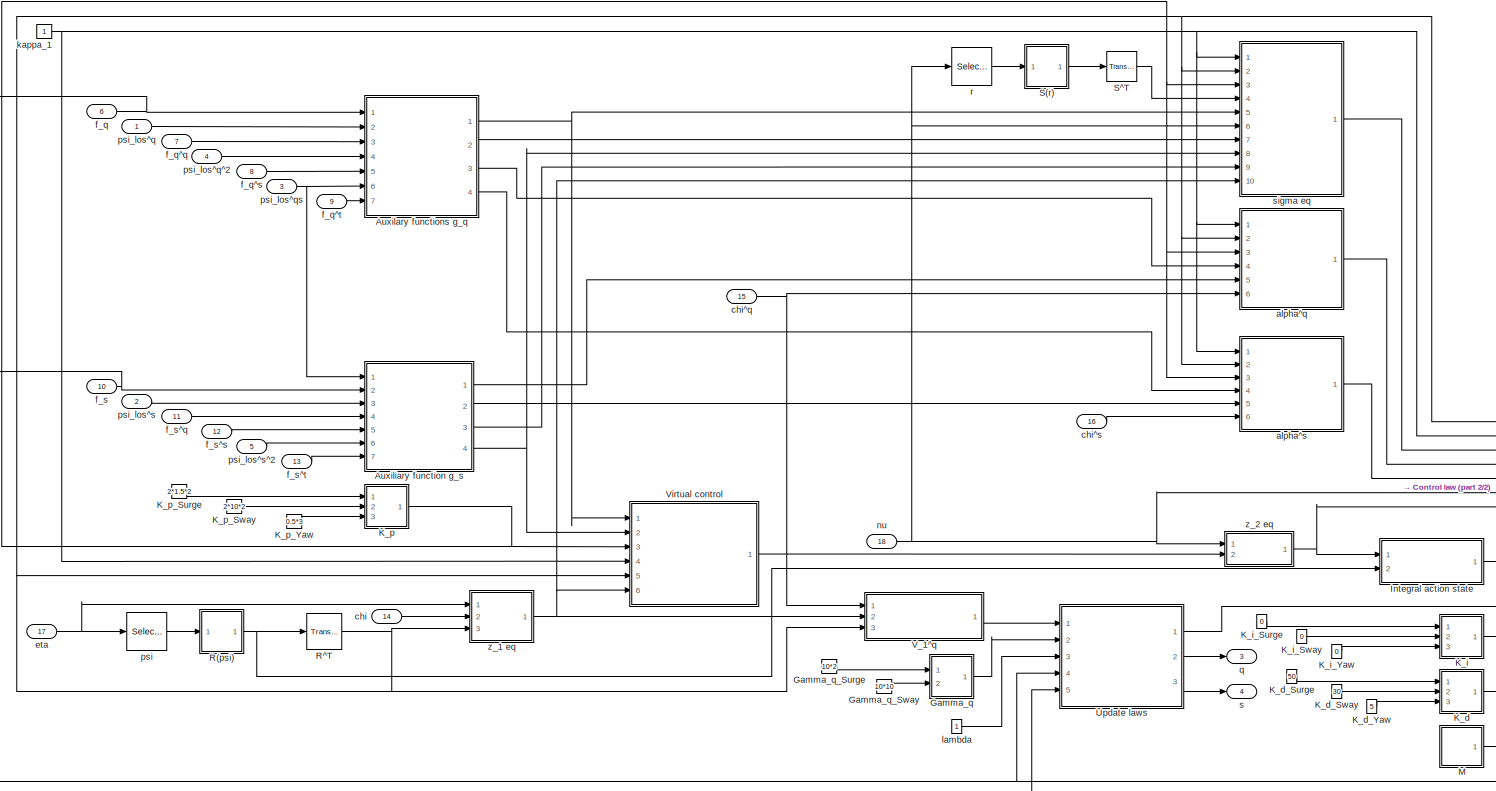
[diagram: Control Systems/LgV design 2 - part 1/2, center side, full height]
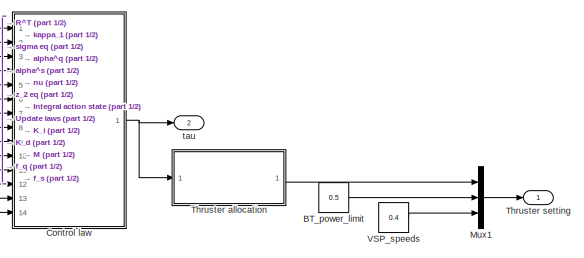
[diagram: Control Systems/LgV design 2 - part 2/2, middle right region]
BLOCK [SubSystem] Control Systems/LgV design 2
  FunctionWithSeparateData = off
  MaskHideContents = off
  MinAlgLoopOccurrences = off
  Opaque = off
  Ports = [18, 4]
  PropExecContextOutsideSubsystem = off
  RTWSystemCode = Auto
  RequestExecContextInheritance = off
BLOCK [SubSystem] Control Systems/LgV design 2/Auxilary functions g_q
  FunctionWithSeparateData = off
  MaskHideContents = off
  MinAlgLoopOccurrences = off
  Opaque = off
  Ports = [7, 4]
  PropExecContextOutsideSubsystem = off
  RTWSystemCode = Auto
  RequestExecContextInheritance = off
BLOCK [Inport] Control Systems/LgV design 2/Auxilary functions g_q/f_q
  IconDisplay = Port number
BLOCK [Inport] Control Systems/LgV design 2/Auxilary functions g_q/f_q^q
  IconDisplay = Port number
  Port = 3
BLOCK [Inport] Control Systems/LgV design 2/Auxilary functions g_q/f_q^s
  IconDisplay = Port number
  Port = 5
BLOCK [Inport] Control Systems/LgV design 2/Auxilary functions g_q/f_q^t
  IconDisplay = Port number
  Port = 7
BLOCK [Outport] Control Systems/LgV design 2/Auxilary functions g_q/g_q
  IconDisplay = Port number
BLOCK [SubSystem] Control Systems/LgV design 2/Auxilary functions g_q/g_q eq
  FunctionWithSeparateData = off
  MaskHideContents = off
  MinAlgLoopOccurrences = off
  Opaque = off
  Ports = [2, 1]
  PropExecContextOutsideSubsystem = off
  RTWSystemCode = Auto
  RequestExecContextInheritance = off
BLOCK [Product] Control Systems/LgV design 2/Auxilary functions g_q/g_q eq/Product
  InputSameDT = off
  Multiplication = Matrix(*)
  OutDataType = fixdt(1, 16)
  OutDataTypeMode = Inherit via internal rule
  OutDataTypeStr = Inherit: Inherit via internal rule
  OutScaling = 2^0
  Ports = [2, 1]
  SaturateOnIntegerOverflow = off
BLOCK [Concatenate] Control Systems/LgV design 2/Auxilary functions g_q/g_q eq/Vector\nConcatenate
  Mode = Vector
  Ports = [2, 1]
BLOCK [Inport] Control Systems/LgV design 2/Auxilary functions g_q/g_q eq/f_q
  IconDisplay = Port number
BLOCK [Outport] Control Systems/LgV design 2/Auxilary functions g_q/g_q eq/g_q
  IconDisplay = Port number
BLOCK [Inport] Control Systems/LgV design 2/Auxilary functions g_q/g_q eq/psi_los^q
  IconDisplay = Port number
  Port = 2
BLOCK [Outport] Control Systems/LgV design 2/Auxilary functions g_q/g_q^q
  IconDisplay = Port number
  Port = 3
BLOCK [SubSystem] Control Systems/LgV design 2/Auxilary functions g_q/g_q^q eq
  FunctionWithSeparateData = off
  MaskHideContents = off
  MinAlgLoopOccurrences = off
  Opaque = off
  Ports = [4, 1]
  PropExecContextOutsideSubsystem = off
  RTWSystemCode = Auto
  RequestExecContextInheritance = off
BLOCK [Sum] Control Systems/LgV design 2/Auxilary functions g_q/g_q^q eq/Add
  InputSameDT = off
  OutDataType = fixdt(1, 16)
  OutDataTypeMode = Inherit via internal rule
  OutDataTypeStr = Inherit: Inherit via internal rule
  OutScaling = 2^-10
  Ports = [2, 1]
  SaturateOnIntegerOverflow = off
BLOCK [Concatenate] Control Systems/LgV design 2/Auxilary functions g_q/g_q^q eq/Matrix\nConcatenate
  Mode = Multidimensional array
  Ports = [2, 1]
BLOCK [Product] Control Systems/LgV design 2/Auxilary functions g_q/g_q^q eq/Product
  InputSameDT = off
  Multiplication = Matrix(*)
  OutDataType = fixdt(1, 16)
  OutDataTypeMode = Inherit via internal rule
  OutDataTypeStr = Inherit: Inherit via internal rule
  OutScaling = 2^0
  Ports = [2, 1]
  SaturateOnIntegerOverflow = off
BLOCK [Product] Control Systems/LgV design 2/Auxilary functions g_q/g_q^q eq/Product1
  InputSameDT = off
  Multiplication = Matrix(*)
  OutDataType = fixdt(1, 16)
  OutDataTypeMode = Inherit via internal rule
  OutDataTypeStr = Inherit: Inherit via internal rule
  OutScaling = 2^0
  Ports = [2, 1]
  SaturateOnIntegerOverflow = off
BLOCK [Inport] Control Systems/LgV design 2/Auxilary functions g_q/g_q^q eq/f_q
  IconDisplay = Port number
BLOCK [Reference] Control Systems/LgV design 2/Auxilary functions g_q/g_q^q eq/f_q^T  REF=dspmtrx3/Transpose
  FunctionWithSeparateData = off
  Hermitian = off
  Ports = [1, 1]
  RTWMemSecDataConstants = Inherit from model
  RTWMemSecDataInternal = Inherit from model
  RTWMemSecDataParameters = Inherit from model
  RTWMemSecFuncExecute = Inherit from model
  RTWMemSecFuncInitTerm = Inherit from model
  ShowPortLabels = FromPortIcon
  SourceBlock = dspmtrx3/Transpose
  SourceType = Transpose
  SystemSampleTime = -1
  overflowFlag = off
BLOCK [Inport] Control Systems/LgV design 2/Auxilary functions g_q/g_q^q eq/f_q^q
  IconDisplay = Port number
  Port = 3
BLOCK [Outport] Control Systems/LgV design 2/Auxilary functions g_q/g_q^q eq/g_q^q
  IconDisplay = Port number
BLOCK [Inport] Control Systems/LgV design 2/Auxilary functions g_q/g_q^q eq/psi_los^q
  IconDisplay = Port number
  Port = 2
BLOCK [Inport] Control Systems/LgV design 2/Auxilary functions g_q/g_q^q eq/psi_los^q^2
  IconDisplay = Port number
  Port = 4
BLOCK [Reference] Control Systems/LgV design 2/Auxilary functions g_q/g_q^q eq/psi_los^q^2T  REF=dspmtrx3/Transpose
  FunctionWithSeparateData = off
  Hermitian = off
  Ports = [1, 1]
  RTWMemSecDataConstants = Inherit from model
  RTWMemSecDataInternal = Inherit from model
  RTWMemSecDataParameters = Inherit from model
  RTWMemSecFuncExecute = Inherit from model
  RTWMemSecFuncInitTerm = Inherit from model
  ShowPortLabels = FromPortIcon
  SourceBlock = dspmtrx3/Transpose
  SourceType = Transpose
  SystemSampleTime = -1
  overflowFlag = off
BLOCK [Outport] Control Systems/LgV design 2/Auxilary functions g_q/g_q^s
  IconDisplay = Port number
  Port = 4
BLOCK [SubSystem] Control Systems/LgV design 2/Auxilary functions g_q/g_q^s eq
  FunctionWithSeparateData = off
  MaskHideContents = off
  MinAlgLoopOccurrences = off
  Opaque = off
  Ports = [4, 1]
  PropExecContextOutsideSubsystem = off
  RTWSystemCode = Auto
  RequestExecContextInheritance = off
BLOCK [Sum] Control Systems/LgV design 2/Auxilary functions g_q/g_q^s eq/Add
  InputSameDT = off
  OutDataType = fixdt(1, 16)
  OutDataTypeMode = Inherit via internal rule
  OutDataTypeStr = Inherit: Inherit via internal rule
  OutScaling = 2^-10
  Ports = [2, 1]
  SaturateOnIntegerOverflow = off
BLOCK [Product] Control Systems/LgV design 2/Auxilary functions g_q/g_q^s eq/Product
  InputSameDT = off
  Multiplication = Matrix(*)
  OutDataType = fixdt(1, 16)
  OutDataTypeMode = Inherit via internal rule
  OutDataTypeStr = Inherit: Inherit via internal rule
  OutScaling = 2^0
  Ports = [2, 1]
  SaturateOnIntegerOverflow = off
BLOCK [Product] Control Systems/LgV design 2/Auxilary functions g_q/g_q^s eq/Product1
  InputSameDT = off
  Multiplication = Matrix(*)
  OutDataType = fixdt(1, 16)
  OutDataTypeMode = Inherit via internal rule
  OutDataTypeStr = Inherit: Inherit via internal rule
  OutScaling = 2^0
  Ports = [2, 1]
  SaturateOnIntegerOverflow = off
BLOCK [Concatenate] Control Systems/LgV design 2/Auxilary functions g_q/g_q^s eq/Vector\nConcatenate
  Mode = Vector
  Ports = [2, 1]
BLOCK [Inport] Control Systems/LgV design 2/Auxilary functions g_q/g_q^s eq/f_q
  IconDisplay = Port number
BLOCK [Inport] Control Systems/LgV design 2/Auxilary functions g_q/g_q^s eq/f_q^s
  IconDisplay = Port number
  Port = 3
BLOCK [Outport] Control Systems/LgV design 2/Auxilary functions g_q/g_q^s eq/g_q^s
  IconDisplay = Port number
BLOCK [Inport] Control Systems/LgV design 2/Auxilary functions g_q/g_q^s eq/psi_los^q
  IconDisplay = Port number
  Port = 2
BLOCK [Inport] Control Systems/LgV design 2/Auxilary functions g_q/g_q^s eq/psi_los^qs
  IconDisplay = Port number
  Port = 4
BLOCK [Outport] Control Systems/LgV design 2/Auxilary functions g_q/g_q^t
  IconDisplay = Port number
  Port = 2
BLOCK [SubSystem] Control Systems/LgV design 2/Auxilary functions g_q/g_q^t eq
  FunctionWithSeparateData = off
  MaskHideContents = off
  MinAlgLoopOccurrences = off
  Opaque = off
  Ports = [2, 1]
  PropExecContextOutsideSubsystem = off
  RTWSystemCode = Auto
  RequestExecContextInheritance = off
BLOCK [Product] Control Systems/LgV design 2/Auxilary functions g_q/g_q^t eq/Product1
  InputSameDT = off
  Multiplication = Matrix(*)
  OutDataType = fixdt(1, 16)
  OutDataTypeMode = Inherit via internal rule
  OutDataTypeStr = Inherit: Inherit via internal rule
  OutScaling = 2^0
  Ports = [2, 1]
  SaturateOnIntegerOverflow = off
BLOCK [Concatenate] Control Systems/LgV design 2/Auxilary functions g_q/g_q^t eq/Vector\nConcatenate
  Mode = Vector
  Ports = [2, 1]
BLOCK [Inport] Control Systems/LgV design 2/Auxilary functions g_q/g_q^t eq/f_q^t
  IconDisplay = Port number
  Port = 2
BLOCK [Outport] Control Systems/LgV design 2/Auxilary functions g_q/g_q^t eq/g_q^t
  IconDisplay = Port number
BLOCK [Inport] Control Systems/LgV design 2/Auxilary functions g_q/g_q^t eq/psi_los^q
  IconDisplay = Port number
BLOCK [Inport] Control Systems/LgV design 2/Auxilary functions g_q/psi_los^q
  IconDisplay = Port number
  Port = 2
BLOCK [Inport] Control Systems/LgV design 2/Auxilary functions g_q/psi_los^q^2
  IconDisplay = Port number
  Port = 4
BLOCK [Inport] Control Systems/LgV design 2/Auxilary functions g_q/psi_los^qs
  IconDisplay = Port number
  Port = 6
BLOCK [SubSystem] Control Systems/LgV design 2/Auxiliary function g_s
  FunctionWithSeparateData = off
  MaskHideContents = off
  MinAlgLoopOccurrences = off
  Opaque = off
  Ports = [7, 4]
  PropExecContextOutsideSubsystem = off
  RTWSystemCode = Auto
  RequestExecContextInheritance = off
BLOCK [Inport] Control Systems/LgV design 2/Auxiliary function g_s/f_s
  IconDisplay = Port number
  Port = 2
BLOCK [Inport] Control Systems/LgV design 2/Auxiliary function g_s/f_s^q
  IconDisplay = Port number
  Port = 4
BLOCK [Inport] Control Systems/LgV design 2/Auxiliary function g_s/f_s^s
  IconDisplay = Port number
  Port = 5
BLOCK [Inport] Control Systems/LgV design 2/Auxiliary function g_s/f_s^t
  IconDisplay = Port number
  Port = 7
BLOCK [Outport] Control Systems/LgV design 2/Auxiliary function g_s/g_s
  IconDisplay = Port number
  Port = 4
BLOCK [SubSystem] Control Systems/LgV design 2/Auxiliary function g_s/g_s eq
  FunctionWithSeparateData = off
  MaskHideContents = off
  MinAlgLoopOccurrences = off
  Opaque = off
  Ports = [2, 1]
  PropExecContextOutsideSubsystem = off
  RTWSystemCode = Auto
  RequestExecContextInheritance = off
BLOCK [Constant] Control Systems/LgV design 2/Auxiliary function g_s/g_s eq/0_2x1
  OutDataType = fixdt(1, 16)
  OutScaling = 2^0
  Value = [0;0]
  VectorParams1D = off
BLOCK [Product] Control Systems/LgV design 2/Auxiliary function g_s/g_s eq/Product
  InputSameDT = off
  Multiplication = Matrix(*)
  OutDataType = fixdt(1, 16)
  OutDataTypeMode = Inherit via internal rule
  OutDataTypeStr = Inherit: Inherit via internal rule
  OutScaling = 2^0
  Ports = [2, 1]
  SaturateOnIntegerOverflow = off
BLOCK [Concatenate] Control Systems/LgV design 2/Auxiliary function g_s/g_s eq/Vector\nConcatenate
  Mode = Vector
  Ports = [2, 1]
BLOCK [Inport] Control Systems/LgV design 2/Auxiliary function g_s/g_s eq/f_s
  IconDisplay = Port number
BLOCK [Outport] Control Systems/LgV design 2/Auxiliary function g_s/g_s eq/g_s
  IconDisplay = Port number
BLOCK [Inport] Control Systems/LgV design 2/Auxiliary function g_s/g_s eq/psi_los^s
  IconDisplay = Port number
  Port = 2
BLOCK [Outport] Control Systems/LgV design 2/Auxiliary function g_s/g_s^q
  IconDisplay = Port number
BLOCK [SubSystem] Control Systems/LgV design 2/Auxiliary function g_s/g_s^q eq
  FunctionWithSeparateData = off
  MaskHideContents = off
  MinAlgLoopOccurrences = off
  Opaque = off
  Ports = [4, 1]
  PropExecContextOutsideSubsystem = off
  RTWSystemCode = Auto
  RequestExecContextInheritance = off
BLOCK [Constant] Control Systems/LgV design 2/Auxiliary function g_s/g_s^q eq/0_2x2
  OutDataType = fixdt(1, 16)
  OutScaling = 2^0
  Value = [0 0; 0 0]
  VectorParams1D = off
BLOCK [Sum] Control Systems/LgV design 2/Auxiliary function g_s/g_s^q eq/Add
  InputSameDT = off
  OutDataType = fixdt(1, 16)
  OutDataTypeMode = Inherit via internal rule
  OutDataTypeStr = Inherit: Inherit via internal rule
  OutScaling = 2^-10
  Ports = [2, 1]
  SaturateOnIntegerOverflow = off
BLOCK [Concatenate] Control Systems/LgV design 2/Auxiliary function g_s/g_s^q eq/Matrix\nConcatenate
  Mode = Multidimensional array
  Ports = [2, 1]
BLOCK [Product] Control Systems/LgV design 2/Auxiliary function g_s/g_s^q eq/Product
  InputSameDT = off
  OutDataType = fixdt(1, 16)
  OutDataTypeMode = Inherit via internal rule
  OutDataTypeStr = Inherit: Inherit via internal rule
  OutScaling = 2^0
  Ports = [2, 1]
  SaturateOnIntegerOverflow = off
BLOCK [Product] Control Systems/LgV design 2/Auxiliary function g_s/g_s^q eq/Product1
  InputSameDT = off
  OutDataType = fixdt(1, 16)
  OutDataTypeMode = Inherit via internal rule
  OutDataTypeStr = Inherit: Inherit via internal rule
  OutScaling = 2^0
  Ports = [2, 1]
  SaturateOnIntegerOverflow = off
BLOCK [Inport] Control Systems/LgV design 2/Auxiliary function g_s/g_s^q eq/f_s
  IconDisplay = Port number
BLOCK [Inport] Control Systems/LgV design 2/Auxiliary function g_s/g_s^q eq/f_s^q
  IconDisplay = Port number
  Port = 3
BLOCK [Outport] Control Systems/LgV design 2/Auxiliary function g_s/g_s^q eq/g_s^q
  IconDisplay = Port number
BLOCK [Inport] Control Systems/LgV design 2/Auxiliary function g_s/g_s^q eq/psi_los^s
  IconDisplay = Port number
  Port = 2
BLOCK [Inport] Control Systems/LgV design 2/Auxiliary function g_s/g_s^q eq/psi_los^sq
  IconDisplay = Port number
  Port = 4
BLOCK [Outport] Control Systems/LgV design 2/Auxiliary function g_s/g_s^s
  IconDisplay = Port number
  Port = 2
BLOCK [SubSystem] Control Systems/LgV design 2/Auxiliary function g_s/g_s^s eq
  FunctionWithSeparateData = off
  MaskHideContents = off
  MinAlgLoopOccurrences = off
  Opaque = off
  Ports = [4, 1]
  PropExecContextOutsideSubsystem = off
  RTWSystemCode = Auto
  RequestExecContextInheritance = off
BLOCK [Constant] Control Systems/LgV design 2/Auxiliary function g_s/g_s^s eq/0_2x1
  OutDataType = fixdt(1, 16)
  OutScaling = 2^0
  Value = [0;0]
  VectorParams1D = off
BLOCK [Sum] Control Systems/LgV design 2/Auxiliary function g_s/g_s^s eq/Add
  InputSameDT = off
  OutDataType = fixdt(1, 16)
  OutDataTypeMode = Inherit via internal rule
  OutDataTypeStr = Inherit: Inherit via internal rule
  OutScaling = 2^-10
  Ports = [2, 1]
  SaturateOnIntegerOverflow = off
BLOCK [Product] Control Systems/LgV design 2/Auxiliary function g_s/g_s^s eq/Product
  InputSameDT = off
  OutDataType = fixdt(1, 16)
  OutDataTypeMode = Inherit via internal rule
  OutDataTypeStr = Inherit: Inherit via internal rule
  OutScaling = 2^0
  Ports = [2, 1]
  SaturateOnIntegerOverflow = off
BLOCK [Product] Control Systems/LgV design 2/Auxiliary function g_s/g_s^s eq/Product1
  InputSameDT = off
  OutDataType = fixdt(1, 16)
  OutDataTypeMode = Inherit via internal rule
  OutDataTypeStr = Inherit: Inherit via internal rule
  OutScaling = 2^0
  Ports = [2, 1]
  SaturateOnIntegerOverflow = off
BLOCK [Concatenate] Control Systems/LgV design 2/Auxiliary function g_s/g_s^s eq/Vector\nConcatenate
  Mode = Vector
  Ports = [2, 1]
BLOCK [Inport] Control Systems/LgV design 2/Auxiliary function g_s/g_s^s eq/f_s
  IconDisplay = Port number
BLOCK [Inport] Control Systems/LgV design 2/Auxiliary function g_s/g_s^s eq/f_s^s
  IconDisplay = Port number
  Port = 3
BLOCK [Outport] Control Systems/LgV design 2/Auxiliary function g_s/g_s^s eq/g_s^s
  IconDisplay = Port number
BLOCK [Inport] Control Systems/LgV design 2/Auxiliary function g_s/g_s^s eq/psi_los^s
  IconDisplay = Port number
  Port = 2
BLOCK [Inport] Control Systems/LgV design 2/Auxiliary function g_s/g_s^s eq/psi_los^s^2
  IconDisplay = Port number
  Port = 4
BLOCK [Outport] Control Systems/LgV design 2/Auxiliary function g_s/g_s^t
  IconDisplay = Port number
  Port = 3
BLOCK [SubSystem] Control Systems/LgV design 2/Auxiliary function g_s/g_s^t eq
  FunctionWithSeparateData = off
  MaskHideContents = off
  MinAlgLoopOccurrences = off
  Opaque = off
  Ports = [2, 1]
  PropExecContextOutsideSubsystem = off
  RTWSystemCode = Auto
  RequestExecContextInheritance = off
BLOCK [Constant] Control Systems/LgV design 2/Auxiliary function g_s/g_s^t eq/0_2x1
  OutDataType = fixdt(1, 16)
  OutScaling = 2^0
  Value = [0;0]
  VectorParams1D = off
BLOCK [Product] Control Systems/LgV design 2/Auxiliary function g_s/g_s^t eq/Product1
  InputSameDT = off
  Multiplication = Matrix(*)
  OutDataType = fixdt(1, 16)
  OutDataTypeMode = Inherit via internal rule
  OutDataTypeStr = Inherit: Inherit via internal rule
  OutScaling = 2^0
  Ports = [2, 1]
  SaturateOnIntegerOverflow = off
BLOCK [Concatenate] Control Systems/LgV design 2/Auxiliary function g_s/g_s^t eq/Vector\nConcatenate
  Mode = Vector
  Ports = [2, 1]
BLOCK [Inport] Control Systems/LgV design 2/Auxiliary function g_s/g_s^t eq/f_s^t
  IconDisplay = Port number
  Port = 2
BLOCK [Outport] Control Systems/LgV design 2/Auxiliary function g_s/g_s^t eq/g_a^t
  IconDisplay = Port number
BLOCK [Inport] Control Systems/LgV design 2/Auxiliary function g_s/g_s^t eq/psi_los^s
  IconDisplay = Port number
BLOCK [Inport] Control Systems/LgV design 2/Auxiliary function g_s/psi_los^s
  IconDisplay = Port number
  Port = 3
BLOCK [Inport] Control Systems/LgV design 2/Auxiliary function g_s/psi_los^s^2
  IconDisplay = Port number
  Port = 6
BLOCK [Inport] Control Systems/LgV design 2/Auxiliary function g_s/psi_los^sq
  IconDisplay = Port number
BLOCK [Constant] Control Systems/LgV design 2/BT_power_limit
  Value = 0.5
BLOCK [SubSystem] Control Systems/LgV design 2/Control law
  FunctionWithSeparateData = off
  MaskHideContents = off
  MinAlgLoopOccurrences = off
  Opaque = off
  Ports = [14, 1]
  PropExecContextOutsideSubsystem = off
  RTWSystemCode = Auto
  RequestExecContextInheritance = off
BLOCK [Constant] Control Systems/LgV design 2/Control law/1
  OutDataType = fixdt(1, 16)
  OutScaling = 2^0
BLOCK [Gain] Control Systems/LgV design 2/Control law/4
  Gain = 4
  OutDataType = fixdt(1, 16)
  OutDataTypeMode = Inherit via internal rule
  OutDataTypeStr = Inherit: Inherit via internal rule
  OutScaling = 2^0
  ParamDataTypeStr = Inherit: Inherit via internal rule
  ParameterDataType = fixdt(1, 16)
  ParameterDataTypeMode = Inherit via internal rule
  ParameterScaling = 2^0
  SaturateOnIntegerOverflow = off
BLOCK [Sum] Control Systems/LgV design 2/Control law/Add1
  InputSameDT = off
  OutDataType = fixdt(1, 16)
  OutDataTypeMode = Inherit via internal rule
  OutDataTypeStr = Inherit: Inherit via internal rule
  OutScaling = 2^-10
  Ports = [2, 1]
  SaturateOnIntegerOverflow = off
BLOCK [Sum] Control Systems/LgV design 2/Control law/Add2
  InputSameDT = off
  OutDataType = fixdt(1, 16)
  OutDataTypeMode = Inherit via internal rule
  OutDataTypeStr = Inherit: Inherit via internal rule
  OutScaling = 2^-10
  Ports = [2, 1]
  SaturateOnIntegerOverflow = off
BLOCK [SubSystem] Control Systems/LgV design 2/Control law/D_L
  FunctionWithSeparateData = off
  MaskHideContents = off
  MinAlgLoopOccurrences = off
  Opaque = off
  Ports = [0, 1]
  PropExecContextOutsideSubsystem = off
  RTWSystemCode = Auto
  RequestExecContextInheritance = off
BLOCK [Gain] Control Systems/LgV design 2/Control law/D_L/-N_r
  Gain = -1
  OutDataType = fixdt(1, 16)
  OutDataTypeMode = Inherit via internal rule
  OutDataTypeStr = Inherit: Inherit via internal rule
  OutScaling = 2^0
  ParamDataTypeStr = Inherit: Inherit via internal rule
  ParameterDataType = fixdt(1, 16)
  ParameterDataTypeMode = Inherit via internal rule
  ParameterScaling = 2^0
  SaturateOnIntegerOverflow = off
BLOCK [Gain] Control Systems/LgV design 2/Control law/D_L/-N_v
  Gain = -1
  OutDataType = fixdt(1, 16)
  OutDataTypeMode = Inherit via internal rule
  OutDataTypeStr = Inherit: Inherit via internal rule
  OutScaling = 2^0
  ParamDataTypeStr = Inherit: Inherit via internal rule
  ParameterDataType = fixdt(1, 16)
  ParameterDataTypeMode = Inherit via internal rule
  ParameterScaling = 2^0
  SaturateOnIntegerOverflow = off
BLOCK [Gain] Control Systems/LgV design 2/Control law/D_L/-X_u
  Gain = -1
  OutDataType = fixdt(1, 16)
  OutDataTypeMode = Inherit via internal rule
  OutDataTypeStr = Inherit: Inherit via internal rule
  OutScaling = 2^0
  ParamDataTypeStr = Inherit: Inherit via internal rule
  ParameterDataType = fixdt(1, 16)
  ParameterDataTypeMode = Inherit via internal rule
  ParameterScaling = 2^0
  SaturateOnIntegerOverflow = off
BLOCK [Gain] Control Systems/LgV design 2/Control law/D_L/-Y_v
  Gain = -1
  OutDataType = fixdt(1, 16)
  OutDataTypeMode = Inherit via internal rule
  OutDataTypeStr = Inherit: Inherit via internal rule
  OutScaling = 2^0
  ParamDataTypeStr = Inherit: Inherit via internal rule
  ParameterDataType = fixdt(1, 16)
  ParameterDataTypeMode = Inherit via internal rule
  ParameterScaling = 2^0
  SaturateOnIntegerOverflow = off
BLOCK [Gain] Control Systems/LgV design 2/Control law/D_L/-Y_vr
  Gain = -1
  OutDataType = fixdt(1, 16)
  OutDataTypeMode = Inherit via internal rule
  OutDataTypeStr = Inherit: Inherit via internal rule
  OutScaling = 2^0
  ParamDataTypeStr = Inherit: Inherit via internal rule
  ParameterDataType = fixdt(1, 16)
  ParameterDataTypeMode = Inherit via internal rule
  ParameterScaling = 2^0
  SaturateOnIntegerOverflow = off
BLOCK [Outport] Control Systems/LgV design 2/Control law/D_L/D_L
  IconDisplay = Port number
BLOCK [Constant] Control Systems/LgV design 2/Control law/D_L/D_L_12
  Value = 0
BLOCK [Constant] Control Systems/LgV design 2/Control law/D_L/D_L_13
  Value = 0
BLOCK [Constant] Control Systems/LgV design 2/Control law/D_L/D_L_21
  Value = 0
BLOCK [Constant] Control Systems/LgV design 2/Control law/D_L/D_L_31
  Value = 0
BLOCK [Reshape] Control Systems/LgV design 2/Control law/D_L/Linear Dampning matrix
  OutputDimensionality = Customize
  OutputDimensions = [3,3]
  Ports = [1, 1]
BLOCK [Mux] Control Systems/LgV design 2/Control law/D_L/Mux
  DisplayOption = bar
  Inputs = 9
  Ports = [9, 1]
BLOCK [Constant] Control Systems/LgV design 2/Control law/D_L/N_r
  Value = -1.900
BLOCK [Constant] Control Systems/LgV design 2/Control law/D_L/N_v
  Value = 0.18140
BLOCK [Constant] Control Systems/LgV design 2/Control law/D_L/X_u
  Value = -0.59739
BLOCK [Constant] Control Systems/LgV design 2/Control law/D_L/Y_r
  Value = -7.250
BLOCK [Constant] Control Systems/LgV design 2/Control law/D_L/Y_v
  Value = -3.50625
BLOCK [Product] Control Systems/LgV design 2/Control law/Divide
  InputSameDT = off
  Inputs = */
  OutDataType = fixdt(1, 16)
  OutDataTypeMode = Inherit via internal rule
  OutDataTypeStr = Inherit: Inherit via internal rule
  OutScaling = 2^-10
  Ports = [2, 1]
  RndMeth = Floor
  SaturateOnIntegerOverflow = off
BLOCK [Inport] Control Systems/LgV design 2/Control law/K_d
  IconDisplay = Port number
  Port = 11
BLOCK [Inport] Control Systems/LgV design 2/Control law/K_i
  IconDisplay = Port number
  Port = 10
BLOCK [Inport] Control Systems/LgV design 2/Control law/M
  IconDisplay = Port number
  Port = 12
BLOCK [Product] Control Systems/LgV design 2/Control law/Product
  InputSameDT = off
  Inputs = 3
  Multiplication = Matrix(*)
  OutDataType = fixdt(1, 16)
  OutDataTypeMode = Inherit via internal rule
  OutDataTypeStr = Inherit: Inherit via internal rule
  OutScaling = 2^0
  Ports = [3, 1]
  SaturateOnIntegerOverflow = off
BLOCK [Product] Control Systems/LgV design 2/Control law/Product1
  InputSameDT = off
  Multiplication = Matrix(*)
  OutDataType = fixdt(1, 16)
  OutDataTypeMode = Inherit via internal rule
  OutDataTypeStr = Inherit: Inherit via internal rule
  OutScaling = 2^0
  Ports = [2, 1]
  SaturateOnIntegerOverflow = off
BLOCK [Product] Control Systems/LgV design 2/Control law/Product2
  InputSameDT = off
  Multiplication = Matrix(*)
  OutDataType = fixdt(1, 16)
  OutDataTypeMode = Inherit via internal rule
  OutDataTypeStr = Inherit: Inherit via internal rule
  OutScaling = 2^0
  Ports = [2, 1]
  SaturateOnIntegerOverflow = off
BLOCK [Product] Control Systems/LgV design 2/Control law/Product4
  InputSameDT = off
  Multiplication = Matrix(*)
  OutDataType = fixdt(1, 16)
  OutDataTypeMode = Inherit via internal rule
  OutDataTypeStr = Inherit: Inherit via internal rule
  OutScaling = 2^0
  Ports = [2, 1]
  SaturateOnIntegerOverflow = off
BLOCK [Product] Control Systems/LgV design 2/Control law/Product5
  InputSameDT = off
  Inputs = 3
  Multiplication = Matrix(*)
  OutDataType = fixdt(1, 16)
  OutDataTypeMode = Inherit via internal rule
  OutDataTypeStr = Inherit: Inherit via internal rule
  OutScaling = 2^0
  Ports = [3, 1]
  SaturateOnIntegerOverflow = off
BLOCK [Product] Control Systems/LgV design 2/Control law/Product6
  InputSameDT = off
  Inputs = 3
  Multiplication = Matrix(*)
  OutDataType = fixdt(1, 16)
  OutDataTypeMode = Inherit via internal rule
  OutDataTypeStr = Inherit: Inherit via internal rule
  OutScaling = 2^0
  Ports = [3, 1]
  SaturateOnIntegerOverflow = off
BLOCK [Inport] Control Systems/LgV design 2/Control law/R^T
  IconDisplay = Port number
BLOCK [Sum] Control Systems/LgV design 2/Control law/Sum
  InputSameDT = off
  Inputs = --++++
  OutDataType = fixdt(1, 16)
  OutDataTypeMode = Inherit via internal rule
  OutDataTypeStr = Inherit: Inherit via internal rule
  OutScaling = 2^-10
  Ports = [6, 1]
  SaturateOnIntegerOverflow = off
BLOCK [Inport] Control Systems/LgV design 2/Control law/alpha^q
  IconDisplay = Port number
  Port = 4
BLOCK [Inport] Control Systems/LgV design 2/Control law/alpha^s
  IconDisplay = Port number
  Port = 5
BLOCK [Inport] Control Systems/LgV design 2/Control law/f_q
  IconDisplay = Port number
  Port = 13
BLOCK [Inport] Control Systems/LgV design 2/Control law/f_s
  IconDisplay = Port number
  Port = 14
BLOCK [Inport] Control Systems/LgV design 2/Control law/kappa1
  IconDisplay = Port number
  Port = 2
BLOCK [Inport] Control Systems/LgV design 2/Control law/nu
  IconDisplay = Port number
  Port = 6
BLOCK [Inport] Control Systems/LgV design 2/Control law/omega_q
  IconDisplay = Port number
  Port = 9
BLOCK [Inport] Control Systems/LgV design 2/Control law/sigma
  IconDisplay = Port number
  Port = 3
BLOCK [Outport] Control Systems/LgV design 2/Control law/tau
  IconDisplay = Port number
BLOCK [Inport] Control Systems/LgV design 2/Control law/z_2
  IconDisplay = Port number
  Port = 7
BLOCK [Inport] Control Systems/LgV design 2/Control law/zeta
  IconDisplay = Port number
  Port = 8
BLOCK [SubSystem] Control Systems/LgV design 2/Gamma_q
  FunctionWithSeparateData = off
  MaskHideContents = off
  MinAlgLoopOccurrences = off
  Opaque = off
  Ports = [2, 1]
  PropExecContextOutsideSubsystem = off
  RTWSystemCode = Auto
  RequestExecContextInheritance = off
BLOCK [Inport] Control Systems/LgV design 2/Gamma_q/11
  IconDisplay = Port number
BLOCK [Constant] Control Systems/LgV design 2/Gamma_q/12
  Value = 0
BLOCK [Constant] Control Systems/LgV design 2/Gamma_q/21
  Value = 0
BLOCK [Inport] Control Systems/LgV design 2/Gamma_q/22
  IconDisplay = Port number
  Port = 2
BLOCK [Reshape] Control Systems/LgV design 2/Gamma_q/2x2
  OutputDimensionality = Customize
  OutputDimensions = [2,2]
  Ports = [1, 1]
BLOCK [Outport] Control Systems/LgV design 2/Gamma_q/Gamma_q
  IconDisplay = Port number
BLOCK [Mux] Control Systems/LgV design 2/Gamma_q/Mux
  DisplayOption = bar
  Ports = [4, 1]
BLOCK [Constant] Control Systems/LgV design 2/Gamma_q_Surge
  Value = 10*2
BLOCK [Constant] Control Systems/LgV design 2/Gamma_q_Sway
  Value = 10*10
BLOCK [SubSystem] Control Systems/LgV design 2/Integral action state
  FunctionWithSeparateData = off
  MaskHideContents = off
  MinAlgLoopOccurrences = off
  Opaque = off
  Ports = [2, 1]
  PropExecContextOutsideSubsystem = off
  RTWSystemCode = Auto
  RequestExecContextInheritance = off
BLOCK [Integrator] Control Systems/LgV design 2/Integral action state/Integrator
  InitialCondition = [0 0 0]'
  Ports = [1, 1]
BLOCK [Product] Control Systems/LgV design 2/Integral action state/Product
  InputSameDT = off
  Multiplication = Matrix(*)
  OutDataType = fixdt(1, 16)
  OutDataTypeMode = Inherit via internal rule
  OutDataTypeStr = Inherit: Inherit via internal rule
  OutScaling = 2^0
  Ports = [2, 1]
  SaturateOnIntegerOverflow = off
BLOCK [Inport] Control Systems/LgV design 2/Integral action state/R
  IconDisplay = Port number
  Port = 2
BLOCK [Inport] Control Systems/LgV design 2/Integral action state/z_2
  IconDisplay = Port number
BLOCK [Outport] Control Systems/LgV design 2/Integral action state/zeta
  IconDisplay = Port number
BLOCK [SubSystem] Control Systems/LgV design 2/K_d
  FunctionWithSeparateData = off
  MaskHideContents = off
  MinAlgLoopOccurrences = off
  Opaque = off
  Ports = [3, 1]
  PropExecContextOutsideSubsystem = off
  RTWSystemCode = Auto
  RequestExecContextInheritance = off
BLOCK [Inport] Control Systems/LgV design 2/K_d/11
  IconDisplay = Port number
BLOCK [Constant] Control Systems/LgV design 2/K_d/12
  Value = 0
BLOCK [Constant] Control Systems/LgV design 2/K_d/13
  Value = 0
BLOCK [Constant] Control Systems/LgV design 2/K_d/21
  Value = 0
BLOCK [Inport] Control Systems/LgV design 2/K_d/22
  IconDisplay = Port number
  Port = 2
BLOCK [Constant] Control Systems/LgV design 2/K_d/23
  Value = 0
BLOCK [Constant] Control Systems/LgV design 2/K_d/31
  Value = 0
BLOCK [Constant] Control Systems/LgV design 2/K_d/32
  Value = 0
BLOCK [Inport] Control Systems/LgV design 2/K_d/33
  IconDisplay = Port number
  Port = 3
BLOCK [Reshape] Control Systems/LgV design 2/K_d/3x3
  OutputDimensionality = Customize
  OutputDimensions = [3,3]
  Ports = [1, 1]
BLOCK [Outport] Control Systems/LgV design 2/K_d/K_d
  IconDisplay = Port number
BLOCK [Mux] Control Systems/LgV design 2/K_d/Mux
  DisplayOption = bar
  Inputs = 9
  Ports = [9, 1]
BLOCK [Constant] Control Systems/LgV design 2/K_d_Surge
  Value = 50
BLOCK [Constant] Control Systems/LgV design 2/K_d_Sway
  Value = 30
BLOCK [Constant] Control Systems/LgV design 2/K_d_Yaw
  Value = 5
BLOCK [SubSystem] Control Systems/LgV design 2/K_i
  FunctionWithSeparateData = off
  MaskHideContents = off
  MinAlgLoopOccurrences = off
  Opaque = off
  Ports = [3, 1]
  PropExecContextOutsideSubsystem = off
  RTWSystemCode = Auto
  RequestExecContextInheritance = off
BLOCK [Inport] Control Systems/LgV design 2/K_i/11
  IconDisplay = Port number
BLOCK [Constant] Control Systems/LgV design 2/K_i/12
  Value = 0
BLOCK [Constant] Control Systems/LgV design 2/K_i/13
  Value = 0
BLOCK [Constant] Control Systems/LgV design 2/K_i/21
  Value = 0
BLOCK [Inport] Control Systems/LgV design 2/K_i/22
  IconDisplay = Port number
  Port = 2
BLOCK [Constant] Control Systems/LgV design 2/K_i/23
  Value = 0
BLOCK [Constant] Control Systems/LgV design 2/K_i/31
  Value = 0
BLOCK [Constant] Control Systems/LgV design 2/K_i/32
  Value = 0
BLOCK [Inport] Control Systems/LgV design 2/K_i/33
  IconDisplay = Port number
  Port = 3
BLOCK [Reshape] Control Systems/LgV design 2/K_i/3x3
  OutputDimensionality = Customize
  OutputDimensions = [3,3]
  Ports = [1, 1]
BLOCK [Outport] Control Systems/LgV design 2/K_i/K_i
  IconDisplay = Port number
BLOCK [Mux] Control Systems/LgV design 2/K_i/Mux
  DisplayOption = bar
  Inputs = 9
  Ports = [9, 1]
BLOCK [Constant] Control Systems/LgV design 2/K_i_Surge
  Value = 0
BLOCK [Constant] Control Systems/LgV design 2/K_i_Sway
  Value = 0
BLOCK [Constant] Control Systems/LgV design 2/K_i_Yaw
  Value = 0
BLOCK [SubSystem] Control Systems/LgV design 2/K_p
  FunctionWithSeparateData = off
  MaskHideContents = off
  MinAlgLoopOccurrences = off
  Opaque = off
  Ports = [3, 1]
  PropExecContextOutsideSubsystem = off
  RTWSystemCode = Auto
  RequestExecContextInheritance = off
BLOCK [Inport] Control Systems/LgV design 2/K_p/11
  IconDisplay = Port number
BLOCK [Constant] Control Systems/LgV design 2/K_p/12
  Value = 0
BLOCK [Constant] Control Systems/LgV design 2/K_p/13
  Value = 0
BLOCK [Constant] Control Systems/LgV design 2/K_p/21
  Value = 0
BLOCK [Inport] Control Systems/LgV design 2/K_p/22
  IconDisplay = Port number
  Port = 2
BLOCK [Constant] Control Systems/LgV design 2/K_p/23
  Value = 0
BLOCK [Constant] Control Systems/LgV design 2/K_p/31
  Value = 0
BLOCK [Constant] Control Systems/LgV design 2/K_p/32
  Value = 0
BLOCK [Inport] Control Systems/LgV design 2/K_p/33
  IconDisplay = Port number
  Port = 3
BLOCK [Outport] Control Systems/LgV design 2/K_p/K_p
  IconDisplay = Port number
BLOCK [Mux] Control Systems/LgV design 2/K_p/Mux
  DisplayOption = bar
  Inputs = 9
  Ports = [9, 1]
BLOCK [Reshape] Control Systems/LgV design 2/K_p/R(psi)
  OutputDimensionality = Customize
  OutputDimensions = [3,3]
  Ports = [1, 1]
BLOCK [Constant] Control Systems/LgV design 2/K_p_Surge
  Value = 2*1.5*2
BLOCK [Constant] Control Systems/LgV design 2/K_p_Sway
  Value = 2*10*2
BLOCK [Constant] Control Systems/LgV design 2/K_p_Yaw
  Value = 0.5*3
BLOCK [SubSystem] Control Systems/LgV design 2/M
  FunctionWithSeparateData = off
  MaskHideContents = off
  MinAlgLoopOccurrences = off
  Opaque = off
  Ports = [0, 1]
  PropExecContextOutsideSubsystem = off
  RTWSystemCode = Auto
  RequestExecContextInheritance = off
BLOCK [Reshape] Control Systems/LgV design 2/M/3x3
  OutputDimensionality = Customize
  OutputDimensions = [3,3]
  Ports = [1, 1]
BLOCK [Constant] Control Systems/LgV design 2/M/I_z
  Value = 1.760
BLOCK [Outport] Control Systems/LgV design 2/M/M
  IconDisplay = Port number
BLOCK [Sum] Control Systems/LgV design 2/M/M_11
  InputSameDT = off
  Inputs = +-
  OutDataTypeMode = Inherit via internal rule
  OutDataTypeStr = Inherit: Inherit via internal rule
  Ports = [2, 1]
  SaturateOnIntegerOverflow = off
BLOCK [Constant] Control Systems/LgV design 2/M/M_12
  Value = 0
BLOCK [Constant] Control Systems/LgV design 2/M/M_13
  Value = 0
BLOCK [Constant] Control Systems/LgV design 2/M/M_21
  Value = 0
BLOCK [Sum] Control Systems/LgV design 2/M/M_22
  InputSameDT = off
  Inputs = +-
  OutDataTypeMode = Inherit via internal rule
  OutDataTypeStr = Inherit: Inherit via internal rule
  Ports = [2, 1]
  SaturateOnIntegerOverflow = off
BLOCK [Sum] Control Systems/LgV design 2/M/M_23
  InputSameDT = off
  Inputs = +-
  OutDataTypeMode = Inherit via internal rule
  OutDataTypeStr = Inherit: Inherit via internal rule
  Ports = [2, 1]
  SaturateOnIntegerOverflow = off
BLOCK [Constant] Control Systems/LgV design 2/M/M_31
  Value = 0
BLOCK [Sum] Control Systems/LgV design 2/M/M_32
  InputSameDT = off
  Inputs = +-
  OutDataTypeMode = Inherit via internal rule
  OutDataTypeStr = Inherit: Inherit via internal rule
  Ports = [2, 1]
  SaturateOnIntegerOverflow = off
BLOCK [Sum] Control Systems/LgV design 2/M/M_33
  InputSameDT = off
  Inputs = +-
  OutDataTypeMode = Inherit via internal rule
  OutDataTypeStr = Inherit: Inherit via internal rule
  Ports = [2, 1]
  SaturateOnIntegerOverflow = off
BLOCK [Mux] Control Systems/LgV design 2/M/Mux
  DisplayOption = bar
  Inputs = 9
  Ports = [9, 1]
BLOCK [Constant] Control Systems/LgV design 2/M/N_rdot
  Value = -1.0
BLOCK [Constant] Control Systems/LgV design 2/M/N_vdot
  Value = -0.0
BLOCK [Constant] Control Systems/LgV design 2/M/X_udot
  Value = -2.0
BLOCK [Constant] Control Systems/LgV design 2/M/Y_rdot
  Value = 0.0
BLOCK [Constant] Control Systems/LgV design 2/M/Y_vdot
  Value = -10.0
BLOCK [Constant] Control Systems/LgV design 2/M/m
  Value = 17.6
BLOCK [Product] Control Systems/LgV design 2/M/m x_g
  InputSameDT = off
  OutDataTypeMode = Inherit via internal rule
  OutDataTypeStr = Inherit: Inherit via internal rule
  Ports = [2, 1]
  SaturateOnIntegerOverflow = off
BLOCK [Constant] Control Systems/LgV design 2/M/x_g
  Value = 0.03
BLOCK [Mux] Control Systems/LgV design 2/Mux1
  DisplayOption = bar
  Inputs = 3
  Ports = [3, 1]
BLOCK [SubSystem] Control Systems/LgV design 2/R(psi)
  FunctionWithSeparateData = off
  MaskHideContents = off
  MinAlgLoopOccurrences = off
  Opaque = off
  Ports = [1, 1]
  PropExecContextOutsideSubsystem = off
  RTWSystemCode = Auto
  RequestExecContextInheritance = off
BLOCK [Gain] Control Systems/LgV design 2/R(psi)/-1
  Gain = -1
  OutDataType = fixdt(1, 16)
  OutDataTypeMode = Inherit via internal rule
  OutDataTypeStr = Inherit: Inherit via internal rule
  OutScaling = 2^0
  ParamDataTypeStr = Inherit: Inherit via internal rule
  ParameterDataType = fixdt(1, 16)
  ParameterDataTypeMode = Inherit via internal rule
  ParameterScaling = 2^0
  SaturateOnIntegerOverflow = off
BLOCK [Mux] Control Systems/LgV design 2/R(psi)/Mux
  DisplayOption = bar
  Inputs = 9
  Ports = [9, 1]
BLOCK [Outport] Control Systems/LgV design 2/R(psi)/R
  IconDisplay = Port number
BLOCK [Reshape] Control Systems/LgV design 2/R(psi)/R(psi)
  OutputDimensionality = Customize
  OutputDimensions = [3,3]
  Ports = [1, 1]
BLOCK [Trigonometry] Control Systems/LgV design 2/R(psi)/R11
  Operator = cos
  Ports = [1, 1]
BLOCK [Trigonometry] Control Systems/LgV design 2/R(psi)/R12
  Ports = [1, 1]
BLOCK [Constant] Control Systems/LgV design 2/R(psi)/R13
  Value = 0
BLOCK [Trigonometry] Control Systems/LgV design 2/R(psi)/R21
  Ports = [1, 1]
BLOCK [Trigonometry] Control Systems/LgV design 2/R(psi)/R22
  Operator = cos
  Ports = [1, 1]
BLOCK [Constant] Control Systems/LgV design 2/R(psi)/R23
  Value = 0
BLOCK [Constant] Control Systems/LgV design 2/R(psi)/R31
  Value = 0
BLOCK [Constant] Control Systems/LgV design 2/R(psi)/R32
  Value = 0
BLOCK [Constant] Control Systems/LgV design 2/R(psi)/R33
BLOCK [Inport] Control Systems/LgV design 2/R(psi)/psi
  IconDisplay = Port number
BLOCK [Reference] Control Systems/LgV design 2/R^T  REF=dspmtrx3/Transpose
  FunctionWithSeparateData = off
  Hermitian = off
  Ports = [1, 1]
  RTWMemSecDataConstants = Inherit from model
  RTWMemSecDataInternal = Inherit from model
  RTWMemSecDataParameters = Inherit from model
  RTWMemSecFuncExecute = Inherit from model
  RTWMemSecFuncInitTerm = Inherit from model
  ShowPortLabels = FromPortIcon
  SourceBlock = dspmtrx3/Transpose
  SourceType = Transpose
  SystemSampleTime = -1
  overflowFlag = off
BLOCK [SubSystem] Control Systems/LgV design 2/S(r)
  FunctionWithSeparateData = off
  MaskHideContents = off
  MinAlgLoopOccurrences = off
  Opaque = off
  Ports = [1, 1]
  PropExecContextOutsideSubsystem = off
  RTWSystemCode = Auto
  RequestExecContextInheritance = off
BLOCK [Mux] Control Systems/LgV design 2/S(r)/Mux
  DisplayOption = bar
  Inputs = 9
  Ports = [9, 1]
BLOCK [Constant] Control Systems/LgV design 2/S(r)/R31
  Value = 0
BLOCK [Outport] Control Systems/LgV design 2/S(r)/S
  IconDisplay = Port number
BLOCK [Reshape] Control Systems/LgV design 2/S(r)/S(r)
  OutputDimensionality = Customize
  OutputDimensions = [3,3]
  Ports = [1, 1]
BLOCK [Constant] Control Systems/LgV design 2/S(r)/S11
  Value = 0
BLOCK [Gain] Control Systems/LgV design 2/S(r)/S12
  OutDataType = fixdt(1, 16)
  OutDataTypeMode = Inherit via internal rule
  OutDataTypeStr = Inherit: Inherit via internal rule
  OutScaling = 2^0
  ParamDataTypeStr = Inherit: Inherit via internal rule
  ParameterDataType = fixdt(1, 16)
  ParameterDataTypeMode = Inherit via internal rule
  ParameterScaling = 2^0
  SaturateOnIntegerOverflow = off
BLOCK [Constant] Control Systems/LgV design 2/S(r)/S13
  Value = 0
BLOCK [Constant] Control Systems/LgV design 2/S(r)/S22
  Value = 0
BLOCK [Constant] Control Systems/LgV design 2/S(r)/S23
  Value = 0
BLOCK [Constant] Control Systems/LgV design 2/S(r)/S32
  Value = 0
BLOCK [Constant] Control Systems/LgV design 2/S(r)/S33
BLOCK [Inport] Control Systems/LgV design 2/S(r)/r
  IconDisplay = Port number
BLOCK [Reference] Control Systems/LgV design 2/S^T  REF=dspmtrx3/Transpose
  FunctionWithSeparateData = off
  Hermitian = off
  Ports = [1, 1]
  RTWMemSecDataConstants = Inherit from model
  RTWMemSecDataInternal = Inherit from model
  RTWMemSecDataParameters = Inherit from model
  RTWMemSecFuncExecute = Inherit from model
  RTWMemSecFuncInitTerm = Inherit from model
  ShowPortLabels = FromPortIcon
  SourceBlock = dspmtrx3/Transpose
  SourceType = Transpose
  SystemSampleTime = -1
  overflowFlag = off
BLOCK [SubSystem] Control Systems/LgV design 2/Thruster allocation
  FunctionWithSeparateData = off
  MaskHideContents = off
  MinAlgLoopOccurrences = off
  Opaque = off
  Ports = [1, 1]
  PropExecContextOutsideSubsystem = off
  RTWSystemCode = Auto
  RequestExecContextInheritance = off
BLOCK [SubSystem] Control Systems/LgV design 2/Thruster allocation/f_act to u_act
  FunctionWithSeparateData = off
  MaskHideContents = off
  MinAlgLoopOccurrences = off
  Opaque = off
  Ports = [1, 1]
  PropExecContextOutsideSubsystem = off
  RTWSystemCode = Auto
  RequestExecContextInheritance = off
BLOCK [Demux] Control Systems/LgV design 2/Thruster allocation/f_act to u_act/Demux
  DisplayOption = bar
  Outputs = 5
  Ports = [1, 5]
BLOCK [Mux] Control Systems/LgV design 2/Thruster allocation/f_act to u_act/Mux
  DisplayOption = bar
  Inputs = 5
  Ports = [5, 1]
BLOCK [SubSystem] Control Systems/LgV design 2/Thruster allocation/f_act to u_act/f_1 to u_1
  FunctionWithSeparateData = off
  MaskHideContents = off
  MinAlgLoopOccurrences = off
  Opaque = off
  Ports = [1, 1]
  PropExecContextOutsideSubsystem = off
  RTWSystemCode = Auto
  RequestExecContextInheritance = off
BLOCK [Gain] Control Systems/LgV design 2/Thruster allocation/f_act to u_act/f_1 to u_1/Gain
  Gain = 2
  OutDataType = fixdt(1, 16)
  OutDataTypeMode = Inherit via internal rule
  OutDataTypeStr = Inherit: Inherit via internal rule
  OutScaling = 2^0
  ParamDataTypeStr = Inherit: Inherit via internal rule
  ParameterDataType = fixdt(1, 16)
  ParameterDataTypeMode = Inherit via internal rule
  ParameterScaling = 2^0
  SaturateOnIntegerOverflow = off
BLOCK [Gain] Control Systems/LgV design 2/Thruster allocation/f_act to u_act/f_1 to u_1/Gain1
  Gain = 3
  OutDataType = fixdt(1, 16)
  OutDataTypeMode = Inherit via internal rule
  OutDataTypeStr = Inherit: Inherit via internal rule
  OutScaling = 2^0
  ParamDataTypeStr = Inherit: Inherit via internal rule
  ParameterDataType = fixdt(1, 16)
  ParameterDataTypeMode = Inherit via internal rule
  ParameterScaling = 2^0
  SaturateOnIntegerOverflow = off
BLOCK [Reference] Control Systems/LgV design 2/Thruster allocation/f_act to u_act/f_1 to u_1/If < 0  REF=simulink/Logic and Bit\nOperations/Compare\nTo Constant
  FunctionWithSeparateData = off
  LogicOutDataTypeMode = uint8
  Ports = [1, 1]
  RTWMemSecDataConstants = Inherit from model
  RTWMemSecDataInternal = Inherit from model
  RTWMemSecDataParameters = Inherit from model
  RTWMemSecFuncExecute = Inherit from model
  RTWMemSecFuncInitTerm = Inherit from model
  ShowPortLabels = FromPortIcon
  SourceBlock = simulink/Logic and Bit\nOperations/Compare\nTo Constant
  SourceType = Compare To Constant
  SystemSampleTime = -1
  ZeroCross = on
  const = 0
  relop = <
BLOCK [Reference] Control Systems/LgV design 2/Thruster allocation/f_act to u_act/f_1 to u_1/If > 0  REF=simulink/Logic and Bit\nOperations/Compare\nTo Constant
  FunctionWithSeparateData = off
  LogicOutDataTypeMode = uint8
  Ports = [1, 1]
  RTWMemSecDataConstants = Inherit from model
  RTWMemSecDataInternal = Inherit from model
  RTWMemSecDataParameters = Inherit from model
  RTWMemSecFuncExecute = Inherit from model
  RTWMemSecFuncInitTerm = Inherit from model
  ShowPortLabels = FromPortIcon
  SourceBlock = simulink/Logic and Bit\nOperations/Compare\nTo Constant
  SourceType = Compare To Constant
  SystemSampleTime = -1
  ZeroCross = on
  const = 0
  relop = >
BLOCK [MultiPortSwitch] Control Systems/LgV design 2/Thruster allocation/f_act to u_act/f_1 to u_1/Multiport\nSwitch
  InputSameDT = off
  OutDataType = fixdt(1, 16)
  OutScaling = 2^0
  Ports = [4, 1]
  SaturateOnIntegerOverflow = off
BLOCK [Sum] Control Systems/LgV design 2/Thruster allocation/f_act to u_act/f_1 to u_1/Sum
  IconShape = round
  InputSameDT = off
  Inputs = +++
  OutDataType = fixdt(1, 16)
  OutDataTypeMode = Inherit via internal rule
  OutDataTypeStr = Inherit: Inherit via internal rule
  OutScaling = 2^0
  Ports = [3, 1]
  SaturateOnIntegerOverflow = off
BLOCK [Inport] Control Systems/LgV design 2/Thruster allocation/f_act to u_act/f_1 to u_1/f_1
  IconDisplay = Port number
BLOCK [Lookup] Control Systems/LgV design 2/Thruster allocation/f_act to u_act/f_1 to u_1/f_1 < 0
  InputValues = [-1.324\n-1.169\n-0.919\n-0.703\n-0.535\n-0.292\n-0.165\n-0.060\n0]
  LookUpMeth = Interpolation-Use End Values
  OutDataType = fixdt(1, 16)
  OutScaling = 2^0
  SaturateOnIntegerOverflow = off
  Table = [-1.0000\n   -0.9000\n   -0.8000\n   -0.7000\n   -0.6000\n   -0.5000\n   -0.4000\n   -0.3000\n   -0.2089]
BLOCK [Constant] Control Systems/LgV design 2/Thruster allocation/f_act to u_act/f_1 to u_1/f_1 = 0
  OutDataType = fixdt(1, 16)
  OutScaling = 2^0
  Value = 0
BLOCK [Lookup] Control Systems/LgV design 2/Thruster allocation/f_act to u_act/f_1 to u_1/f_1 > 0
  InputValues = [0\n    0.0510\n    0.1530\n    0.3080\n    0.4800\n    0.6630\n    0.9110\n    1.0570\n    1.2210\n    1.3740]
  LookUpMeth = Interpolation-Use End Values
  OutDataType = fixdt(1, 16)
  OutScaling = 2^0
  SaturateOnIntegerOverflow = off
  Table = [0.0500\n    0.1000\n    0.2000\n    0.3000\n    0.4000\n    0.5000\n    0.6000\n    0.7000\n    0.8000\n    0.9000]
BLOCK [Reference] Control Systems/LgV design 2/Thruster allocation/f_act to u_act/f_1 to u_1/if == 0  REF=simulink/Logic and Bit\nOperations/Compare\nTo Zero
  FunctionWithSeparateData = off
  LogicOutDataTypeMode = uint8
  Ports = [1, 1]
  RTWMemSecDataConstants = Inherit from model
  RTWMemSecDataInternal = Inherit from model
  RTWMemSecDataParameters = Inherit from model
  RTWMemSecFuncExecute = Inherit from model
  RTWMemSecFuncInitTerm = Inherit from model
  ShowPortLabels = FromPortIcon
  SourceBlock = simulink/Logic and Bit\nOperations/Compare\nTo Zero
  SourceType = Compare To Zero
  SystemSampleTime = -1
  ZeroCross = on
  relop = ==
BLOCK [Outport] Control Systems/LgV design 2/Thruster allocation/f_act to u_act/f_1 to u_1/u_1
  IconDisplay = Port number
BLOCK [SubSystem] Control Systems/LgV design 2/Thruster allocation/f_act to u_act/f_2 to u_2
  FunctionWithSeparateData = off
  MaskHideContents = off
  MinAlgLoopOccurrences = off
  Opaque = off
  Ports = [1, 1]
  PropExecContextOutsideSubsystem = off
  RTWSystemCode = Auto
  RequestExecContextInheritance = off
BLOCK [Gain] Control Systems/LgV design 2/Thruster allocation/f_act to u_act/f_2 to u_2/Gain
  Gain = 2
  OutDataType = fixdt(1, 16)
  OutDataTypeMode = Inherit via internal rule
  OutDataTypeStr = Inherit: Inherit via internal rule
  OutScaling = 2^0
  ParamDataTypeStr = Inherit: Inherit via internal rule
  ParameterDataType = fixdt(1, 16)
  ParameterDataTypeMode = Inherit via internal rule
  ParameterScaling = 2^0
  SaturateOnIntegerOverflow = off
BLOCK [Gain] Control Systems/LgV design 2/Thruster allocation/f_act to u_act/f_2 to u_2/Gain1
  Gain = 3
  OutDataType = fixdt(1, 16)
  OutDataTypeMode = Inherit via internal rule
  OutDataTypeStr = Inherit: Inherit via internal rule
  OutScaling = 2^0
  ParamDataTypeStr = Inherit: Inherit via internal rule
  ParameterDataType = fixdt(1, 16)
  ParameterDataTypeMode = Inherit via internal rule
  ParameterScaling = 2^0
  SaturateOnIntegerOverflow = off
BLOCK [Reference] Control Systems/LgV design 2/Thruster allocation/f_act to u_act/f_2 to u_2/If < 0  REF=simulink/Logic and Bit\nOperations/Compare\nTo Constant
  FunctionWithSeparateData = off
  LogicOutDataTypeMode = uint8
  Ports = [1, 1]
  RTWMemSecDataConstants = Inherit from model
  RTWMemSecDataInternal = Inherit from model
  RTWMemSecDataParameters = Inherit from model
  RTWMemSecFuncExecute = Inherit from model
  RTWMemSecFuncInitTerm = Inherit from model
  ShowPortLabels = FromPortIcon
  SourceBlock = simulink/Logic and Bit\nOperations/Compare\nTo Constant
  SourceType = Compare To Constant
  SystemSampleTime = -1
  ZeroCross = on
  const = 0
  relop = <
BLOCK [Reference] Control Systems/LgV design 2/Thruster allocation/f_act to u_act/f_2 to u_2/If > 0  REF=simulink/Logic and Bit\nOperations/Compare\nTo Constant
  FunctionWithSeparateData = off
  LogicOutDataTypeMode = uint8
  Ports = [1, 1]
  RTWMemSecDataConstants = Inherit from model
  RTWMemSecDataInternal = Inherit from model
  RTWMemSecDataParameters = Inherit from model
  RTWMemSecFuncExecute = Inherit from model
  RTWMemSecFuncInitTerm = Inherit from model
  ShowPortLabels = FromPortIcon
  SourceBlock = simulink/Logic and Bit\nOperations/Compare\nTo Constant
  SourceType = Compare To Constant
  SystemSampleTime = -1
  ZeroCross = on
  const = 0
  relop = >
BLOCK [MultiPortSwitch] Control Systems/LgV design 2/Thruster allocation/f_act to u_act/f_2 to u_2/Multiport\nSwitch
  InputSameDT = off
  OutDataType = fixdt(1, 16)
  OutScaling = 2^0
  Ports = [4, 1]
  SaturateOnIntegerOverflow = off
BLOCK [Sum] Control Systems/LgV design 2/Thruster allocation/f_act to u_act/f_2 to u_2/Sum
  IconShape = round
  InputSameDT = off
  Inputs = +++
  OutDataType = fixdt(1, 16)
  OutDataTypeMode = Inherit via internal rule
  OutDataTypeStr = Inherit: Inherit via internal rule
  OutScaling = 2^0
  Ports = [3, 1]
  SaturateOnIntegerOverflow = off
BLOCK [Inport] Control Systems/LgV design 2/Thruster allocation/f_act to u_act/f_2 to u_2/f_2
  IconDisplay = Port number
BLOCK [Lookup] Control Systems/LgV design 2/Thruster allocation/f_act to u_act/f_2 to u_2/f_2 < 0
  InputValues = [-0.766\n-0.649\n-0.522\n-0.411\n-0.323\n-0.246\n-0.156\n-0.075\n-0.018\n-0.006\n0]
  LookUpMeth = Interpolation-Use End Values
  OutDataType = fixdt(1, 16)
  OutScaling = 2^0
  SaturateOnIntegerOverflow = off
  Table = [-1.0000\n   -0.9000\n   -0.8000\n   -0.7000\n   -0.6000\n   -0.5000\n   -0.4000\n   -0.3000\n   -0.2000\n   -0.1000\n   -0.0466]
BLOCK [Constant] Control Systems/LgV design 2/Thruster allocation/f_act to u_act/f_2 to u_2/f_2 = 0
  OutDataType = fixdt(1, 16)
  OutScaling = 2^0
  Value = 0
BLOCK [Lookup] Control Systems/LgV design 2/Thruster allocation/f_act to u_act/f_2 to u_2/f_2 > 0
  InputValues = [0.000\n0.052\n0.207\n0.331\n0.509\n0.689\n0.829\n0.961\n1.079\n1.120\n]
  LookUpMeth = Interpolation-Use End Values
  OutDataType = fixdt(1, 16)
  OutScaling = 2^0
  SaturateOnIntegerOverflow = off
  Table = [0.1665\n    0.2000\n    0.3000\n    0.4000\n    0.5000\n    0.6000\n    0.7000\n    0.8000\n    0.9000\n    1.0000]
BLOCK [Reference] Control Systems/LgV design 2/Thruster allocation/f_act to u_act/f_2 to u_2/if == 0  REF=simulink/Logic and Bit\nOperations/Compare\nTo Zero
  FunctionWithSeparateData = off
  LogicOutDataTypeMode = uint8
  Ports = [1, 1]
  RTWMemSecDataConstants = Inherit from model
  RTWMemSecDataInternal = Inherit from model
  RTWMemSecDataParameters = Inherit from model
  RTWMemSecFuncExecute = Inherit from model
  RTWMemSecFuncInitTerm = Inherit from model
  ShowPortLabels = FromPortIcon
  SourceBlock = simulink/Logic and Bit\nOperations/Compare\nTo Zero
  SourceType = Compare To Zero
  SystemSampleTime = -1
  ZeroCross = on
  relop = ==
BLOCK [Outport] Control Systems/LgV design 2/Thruster allocation/f_act to u_act/f_2 to u_2/u_2
  IconDisplay = Port number
BLOCK [SubSystem] Control Systems/LgV design 2/Thruster allocation/f_act to u_act/f_3 to u_3
  FunctionWithSeparateData = off
  MaskHideContents = off
  MinAlgLoopOccurrences = off
  Opaque = off
  Ports = [1, 1]
  PropExecContextOutsideSubsystem = off
  RTWSystemCode = Auto
  RequestExecContextInheritance = off
BLOCK [Gain] Control Systems/LgV design 2/Thruster allocation/f_act to u_act/f_3 to u_3/Gain
  Gain = 2
  OutDataType = fixdt(1, 16)
  OutDataTypeMode = Inherit via internal rule
  OutDataTypeStr = Inherit: Inherit via internal rule
  OutScaling = 2^0
  ParamDataTypeStr = Inherit: Inherit via internal rule
  ParameterDataType = fixdt(1, 16)
  ParameterDataTypeMode = Inherit via internal rule
  ParameterScaling = 2^0
  SaturateOnIntegerOverflow = off
BLOCK [Gain] Control Systems/LgV design 2/Thruster allocation/f_act to u_act/f_3 to u_3/Gain1
  Gain = 3
  OutDataType = fixdt(1, 16)
  OutDataTypeMode = Inherit via internal rule
  OutDataTypeStr = Inherit: Inherit via internal rule
  OutScaling = 2^0
  ParamDataTypeStr = Inherit: Inherit via internal rule
  ParameterDataType = fixdt(1, 16)
  ParameterDataTypeMode = Inherit via internal rule
  ParameterScaling = 2^0
  SaturateOnIntegerOverflow = off
BLOCK [Reference] Control Systems/LgV design 2/Thruster allocation/f_act to u_act/f_3 to u_3/If < 0  REF=simulink/Logic and Bit\nOperations/Compare\nTo Constant
  FunctionWithSeparateData = off
  LogicOutDataTypeMode = uint8
  Ports = [1, 1]
  RTWMemSecDataConstants = Inherit from model
  RTWMemSecDataInternal = Inherit from model
  RTWMemSecDataParameters = Inherit from model
  RTWMemSecFuncExecute = Inherit from model
  RTWMemSecFuncInitTerm = Inherit from model
  ShowPortLabels = FromPortIcon
  SourceBlock = simulink/Logic and Bit\nOperations/Compare\nTo Constant
  SourceType = Compare To Constant
  SystemSampleTime = -1
  ZeroCross = on
  const = 0
  relop = <
BLOCK [Reference] Control Systems/LgV design 2/Thruster allocation/f_act to u_act/f_3 to u_3/If > 0  REF=simulink/Logic and Bit\nOperations/Compare\nTo Constant
  FunctionWithSeparateData = off
  LogicOutDataTypeMode = uint8
  Ports = [1, 1]
  RTWMemSecDataConstants = Inherit from model
  RTWMemSecDataInternal = Inherit from model
  RTWMemSecDataParameters = Inherit from model
  RTWMemSecFuncExecute = Inherit from model
  RTWMemSecFuncInitTerm = Inherit from model
  ShowPortLabels = FromPortIcon
  SourceBlock = simulink/Logic and Bit\nOperations/Compare\nTo Constant
  SourceType = Compare To Constant
  SystemSampleTime = -1
  ZeroCross = on
  const = 0
  relop = >
BLOCK [MultiPortSwitch] Control Systems/LgV design 2/Thruster allocation/f_act to u_act/f_3 to u_3/Multiport\nSwitch
  InputSameDT = off
  OutDataType = fixdt(1, 16)
  OutScaling = 2^0
  Ports = [4, 1]
  SaturateOnIntegerOverflow = off
BLOCK [Sum] Control Systems/LgV design 2/Thruster allocation/f_act to u_act/f_3 to u_3/Sum
  IconShape = round
  InputSameDT = off
  Inputs = +++
  OutDataType = fixdt(1, 16)
  OutDataTypeMode = Inherit via internal rule
  OutDataTypeStr = Inherit: Inherit via internal rule
  OutScaling = 2^0
  Ports = [3, 1]
  SaturateOnIntegerOverflow = off
BLOCK [Inport] Control Systems/LgV design 2/Thruster allocation/f_act to u_act/f_3 to u_3/f_3
  IconDisplay = Port number
BLOCK [Lookup] Control Systems/LgV design 2/Thruster allocation/f_act to u_act/f_3 to u_3/f_3 < 0
  InputValues = [-1.291\n-1.088\n-0.885\n-0.618\n-0.403\n-0.211\n-0.034\n0.000]
  LookUpMeth = Interpolation-Use End Values
  OutDataType = fixdt(1, 16)
  OutScaling = 2^0
  SaturateOnIntegerOverflow = off
  Table = [-0.9000\n   -0.8000\n   -0.7000\n   -0.6000\n   -0.5000\n   -0.4000\n   -0.3000\n   -0.2809]
BLOCK [Constant] Control Systems/LgV design 2/Thruster allocation/f_act to u_act/f_3 to u_3/f_3 = 0
  OutDataType = fixdt(1, 16)
  OutScaling = 2^0
  Value = 0
BLOCK [Lookup] Control Systems/LgV design 2/Thruster allocation/f_act to u_act/f_3 to u_3/f_3 > 0
  InputValues = [0.000\n0.014\n0.040\n0.147\n0.302\n0.494\n0.680\n0.968\n1.111\n1.289\n1.339]
  LookUpMeth = Interpolation-Use End Values
  OutDataType = fixdt(1, 16)
  OutScaling = 2^0
  SaturateOnIntegerOverflow = off
  Table = [0.0452\n    0.1000\n    0.2000\n    0.3000\n    0.4000\n    0.5000\n    0.6000\n    0.7000\n    0.8000\n    0.9000\n    1.0000\n]
BLOCK [Reference] Control Systems/LgV design 2/Thruster allocation/f_act to u_act/f_3 to u_3/if == 0  REF=simulink/Logic and Bit\nOperations/Compare\nTo Zero
  FunctionWithSeparateData = off
  LogicOutDataTypeMode = uint8
  Ports = [1, 1]
  RTWMemSecDataConstants = Inherit from model
  RTWMemSecDataInternal = Inherit from model
  RTWMemSecDataParameters = Inherit from model
  RTWMemSecFuncExecute = Inherit from model
  RTWMemSecFuncInitTerm = Inherit from model
  ShowPortLabels = FromPortIcon
  SourceBlock = simulink/Logic and Bit\nOperations/Compare\nTo Zero
  SourceType = Compare To Zero
  SystemSampleTime = -1
  ZeroCross = on
  relop = ==
BLOCK [Outport] Control Systems/LgV design 2/Thruster allocation/f_act to u_act/f_3 to u_3/u_3
  IconDisplay = Port number
BLOCK [SubSystem] Control Systems/LgV design 2/Thruster allocation/f_act to u_act/f_4 to u_4
  FunctionWithSeparateData = off
  MaskHideContents = off
  MinAlgLoopOccurrences = off
  Opaque = off
  Ports = [1, 1]
  PropExecContextOutsideSubsystem = off
  RTWSystemCode = Auto
  RequestExecContextInheritance = off
BLOCK [Gain] Control Systems/LgV design 2/Thruster allocation/f_act to u_act/f_4 to u_4/Gain
  Gain = 2
  OutDataType = fixdt(1, 16)
  OutDataTypeMode = Inherit via internal rule
  OutDataTypeStr = Inherit: Inherit via internal rule
  OutScaling = 2^0
  ParamDataTypeStr = Inherit: Inherit via internal rule
  ParameterDataType = fixdt(1, 16)
  ParameterDataTypeMode = Inherit via internal rule
  ParameterScaling = 2^0
  SaturateOnIntegerOverflow = off
BLOCK [Gain] Control Systems/LgV design 2/Thruster allocation/f_act to u_act/f_4 to u_4/Gain1
  Gain = 3
  OutDataType = fixdt(1, 16)
  OutDataTypeMode = Inherit via internal rule
  OutDataTypeStr = Inherit: Inherit via internal rule
  OutScaling = 2^0
  ParamDataTypeStr = Inherit: Inherit via internal rule
  ParameterDataType = fixdt(1, 16)
  ParameterDataTypeMode = Inherit via internal rule
  ParameterScaling = 2^0
  SaturateOnIntegerOverflow = off
BLOCK [Reference] Control Systems/LgV design 2/Thruster allocation/f_act to u_act/f_4 to u_4/If < 0  REF=simulink/Logic and Bit\nOperations/Compare\nTo Constant
  FunctionWithSeparateData = off
  LogicOutDataTypeMode = uint8
  Ports = [1, 1]
  RTWMemSecDataConstants = Inherit from model
  RTWMemSecDataInternal = Inherit from model
  RTWMemSecDataParameters = Inherit from model
  RTWMemSecFuncExecute = Inherit from model
  RTWMemSecFuncInitTerm = Inherit from model
  ShowPortLabels = FromPortIcon
  SourceBlock = simulink/Logic and Bit\nOperations/Compare\nTo Constant
  SourceType = Compare To Constant
  SystemSampleTime = -1
  ZeroCross = on
  const = 0
  relop = <
BLOCK [Reference] Control Systems/LgV design 2/Thruster allocation/f_act to u_act/f_4 to u_4/If > 0  REF=simulink/Logic and Bit\nOperations/Compare\nTo Constant
  FunctionWithSeparateData = off
  LogicOutDataTypeMode = uint8
  Ports = [1, 1]
  RTWMemSecDataConstants = Inherit from model
  RTWMemSecDataInternal = Inherit from model
  RTWMemSecDataParameters = Inherit from model
  RTWMemSecFuncExecute = Inherit from model
  RTWMemSecFuncInitTerm = Inherit from model
  ShowPortLabels = FromPortIcon
  SourceBlock = simulink/Logic and Bit\nOperations/Compare\nTo Constant
  SourceType = Compare To Constant
  SystemSampleTime = -1
  ZeroCross = on
  const = 0
  relop = >
BLOCK [MultiPortSwitch] Control Systems/LgV design 2/Thruster allocation/f_act to u_act/f_4 to u_4/Multiport\nSwitch
  InputSameDT = off
  OutDataType = fixdt(1, 16)
  OutScaling = 2^0
  Ports = [4, 1]
  SaturateOnIntegerOverflow = off
BLOCK [Sum] Control Systems/LgV design 2/Thruster allocation/f_act to u_act/f_4 to u_4/Sum
  IconShape = round
  InputSameDT = off
  Inputs = +++
  OutDataType = fixdt(1, 16)
  OutDataTypeMode = Inherit via internal rule
  OutDataTypeStr = Inherit: Inherit via internal rule
  OutScaling = 2^0
  Ports = [3, 1]
  SaturateOnIntegerOverflow = off
BLOCK [Inport] Control Systems/LgV design 2/Thruster allocation/f_act to u_act/f_4 to u_4/f_4
  IconDisplay = Port number
BLOCK [Lookup] Control Systems/LgV design 2/Thruster allocation/f_act to u_act/f_4 to u_4/f_4 < 0
  InputValues = [-1.249\n-1.225\n-1.094\n-0.896\n-0.696\n-0.502\n-0.314\n-0.169\n-0.042\n0.000]
  LookUpMeth = Interpolation-Use End Values
  OutDataType = fixdt(1, 16)
  OutScaling = 2^0
  SaturateOnIntegerOverflow = off
  Table = [-0.9000\n   -0.8000\n   -0.7000\n   -0.6000\n   -0.5000\n   -0.4000\n   -0.3000\n   -0.2000\n   -0.1000\n   -0.0674]
BLOCK [Constant] Control Systems/LgV design 2/Thruster allocation/f_act to u_act/f_4 to u_4/f_4 = 0
  OutDataType = fixdt(1, 16)
  OutScaling = 2^0
  Value = 0
BLOCK [Lookup] Control Systems/LgV design 2/Thruster allocation/f_act to u_act/f_4 to u_4/f_4 > 0
  InputValues = [0.000\n0.063\n0.107\n0.274\n0.441\n0.599\n0.731]
  LookUpMeth = Interpolation-Use End Values
  OutDataType = fixdt(1, 16)
  OutScaling = 2^0
  SaturateOnIntegerOverflow = off
  Table = [0.3588\n    0.5000\n    0.6000\n    0.7000\n    0.8000\n    0.9000\n    1.0000]
BLOCK [Reference] Control Systems/LgV design 2/Thruster allocation/f_act to u_act/f_4 to u_4/if == 0  REF=simulink/Logic and Bit\nOperations/Compare\nTo Zero
  FunctionWithSeparateData = off
  LogicOutDataTypeMode = uint8
  Ports = [1, 1]
  RTWMemSecDataConstants = Inherit from model
  RTWMemSecDataInternal = Inherit from model
  RTWMemSecDataParameters = Inherit from model
  RTWMemSecFuncExecute = Inherit from model
  RTWMemSecFuncInitTerm = Inherit from model
  ShowPortLabels = FromPortIcon
  SourceBlock = simulink/Logic and Bit\nOperations/Compare\nTo Zero
  SourceType = Compare To Zero
  SystemSampleTime = -1
  ZeroCross = on
  relop = ==
BLOCK [Outport] Control Systems/LgV design 2/Thruster allocation/f_act to u_act/f_4 to u_4/u_4
  IconDisplay = Port number
BLOCK [SubSystem] Control Systems/LgV design 2/Thruster allocation/f_act to u_act/f_5 to u_5
  FunctionWithSeparateData = off
  MaskHideContents = off
  MinAlgLoopOccurrences = off
  Opaque = off
  Ports = [1, 1]
  PropExecContextOutsideSubsystem = off
  RTWSystemCode = Auto
  RequestExecContextInheritance = off
BLOCK [Gain] Control Systems/LgV design 2/Thruster allocation/f_act to u_act/f_5 to u_5/Gain
  Gain = 2
  OutDataType = fixdt(1, 16)
  OutDataTypeMode = Inherit via internal rule
  OutDataTypeStr = Inherit: Inherit via internal rule
  OutScaling = 2^0
  ParamDataTypeStr = Inherit: Inherit via internal rule
  ParameterDataType = fixdt(1, 16)
  ParameterDataTypeMode = Inherit via internal rule
  ParameterScaling = 2^0
  SaturateOnIntegerOverflow = off
BLOCK [Gain] Control Systems/LgV design 2/Thruster allocation/f_act to u_act/f_5 to u_5/Gain1
  Gain = 3
  OutDataType = fixdt(1, 16)
  OutDataTypeMode = Inherit via internal rule
  OutDataTypeStr = Inherit: Inherit via internal rule
  OutScaling = 2^0
  ParamDataTypeStr = Inherit: Inherit via internal rule
  ParameterDataType = fixdt(1, 16)
  ParameterDataTypeMode = Inherit via internal rule
  ParameterScaling = 2^0
  SaturateOnIntegerOverflow = off
BLOCK [Reference] Control Systems/LgV design 2/Thruster allocation/f_act to u_act/f_5 to u_5/If < 0  REF=simulink/Logic and Bit\nOperations/Compare\nTo Constant
  FunctionWithSeparateData = off
  LogicOutDataTypeMode = uint8
  Ports = [1, 1]
  RTWMemSecDataConstants = Inherit from model
  RTWMemSecDataInternal = Inherit from model
  RTWMemSecDataParameters = Inherit from model
  RTWMemSecFuncExecute = Inherit from model
  RTWMemSecFuncInitTerm = Inherit from model
  ShowPortLabels = FromPortIcon
  SourceBlock = simulink/Logic and Bit\nOperations/Compare\nTo Constant
  SourceType = Compare To Constant
  SystemSampleTime = -1
  ZeroCross = on
  const = 0
  relop = <
BLOCK [Reference] Control Systems/LgV design 2/Thruster allocation/f_act to u_act/f_5 to u_5/If > 0  REF=simulink/Logic and Bit\nOperations/Compare\nTo Constant
  FunctionWithSeparateData = off
  LogicOutDataTypeMode = uint8
  Ports = [1, 1]
  RTWMemSecDataConstants = Inherit from model
  RTWMemSecDataInternal = Inherit from model
  RTWMemSecDataParameters = Inherit from model
  RTWMemSecFuncExecute = Inherit from model
  RTWMemSecFuncInitTerm = Inherit from model
  ShowPortLabels = FromPortIcon
  SourceBlock = simulink/Logic and Bit\nOperations/Compare\nTo Constant
  SourceType = Compare To Constant
  SystemSampleTime = -1
  ZeroCross = on
  const = 0
  relop = >
BLOCK [MultiPortSwitch] Control Systems/LgV design 2/Thruster allocation/f_act to u_act/f_5 to u_5/Multiport\nSwitch
  InputSameDT = off
  OutDataType = fixdt(1, 16)
  OutScaling = 2^0
  Ports = [4, 1]
  SaturateOnIntegerOverflow = off
BLOCK [Sum] Control Systems/LgV design 2/Thruster allocation/f_act to u_act/f_5 to u_5/Sum
  IconShape = round
  InputSameDT = off
  Inputs = +++
  OutDataType = fixdt(1, 16)
  OutDataTypeMode = Inherit via internal rule
  OutDataTypeStr = Inherit: Inherit via internal rule
  OutScaling = 2^0
  Ports = [3, 1]
  SaturateOnIntegerOverflow = off
BLOCK [Inport] Control Systems/LgV design 2/Thruster allocation/f_act to u_act/f_5 to u_5/f_5
  IconDisplay = Port number
BLOCK [Lookup] Control Systems/LgV design 2/Thruster allocation/f_act to u_act/f_5 to u_5/f_5 < 0
  InputValues = [-1.2630\n   -1.0309\n   -0.3808]
  LookUpMeth = Interpolation-Use End Values
  OutDataType = fixdt(1, 16)
  OutScaling = 2^0
  SaturateOnIntegerOverflow = off
  Table = [-0.3000\n   -0.2000\n   -0.1000]
BLOCK [Constant] Control Systems/LgV design 2/Thruster allocation/f_act to u_act/f_5 to u_5/f_5 = 0
  OutDataType = fixdt(1, 16)
  OutScaling = 2^0
  Value = 0
BLOCK [Lookup] Control Systems/LgV design 2/Thruster allocation/f_act to u_act/f_5 to u_5/f_5 > 0
  InputValues = [0.3480\n    0.8290\n    1.0930]
  LookUpMeth = Interpolation-Use End Values
  OutDataType = fixdt(1, 16)
  OutScaling = 2^0
  SaturateOnIntegerOverflow = off
  Table = [0.1000\n    0.2000\n    0.3000]
BLOCK [Reference] Control Systems/LgV design 2/Thruster allocation/f_act to u_act/f_5 to u_5/if == 0  REF=simulink/Logic and Bit\nOperations/Compare\nTo Zero
  FunctionWithSeparateData = off
  LogicOutDataTypeMode = uint8
  Ports = [1, 1]
  RTWMemSecDataConstants = Inherit from model
  RTWMemSecDataInternal = Inherit from model
  RTWMemSecDataParameters = Inherit from model
  RTWMemSecFuncExecute = Inherit from model
  RTWMemSecFuncInitTerm = Inherit from model
  ShowPortLabels = FromPortIcon
  SourceBlock = simulink/Logic and Bit\nOperations/Compare\nTo Zero
  SourceType = Compare To Zero
  SystemSampleTime = -1
  ZeroCross = on
  relop = ==
BLOCK [Outport] Control Systems/LgV design 2/Thruster allocation/f_act to u_act/f_5 to u_5/u_5
  IconDisplay = Port number
BLOCK [Inport] Control Systems/LgV design 2/Thruster allocation/f_act to u_act/f_act
  IconDisplay = Port number
BLOCK [Outport] Control Systems/LgV design 2/Thruster allocation/f_act to u_act/u_act
  IconDisplay = Port number
BLOCK [Inport] Control Systems/LgV design 2/Thruster allocation/tau
  IconDisplay = Port number
BLOCK [SubSystem] Control Systems/LgV design 2/Thruster allocation/tau to f_act
  FunctionWithSeparateData = off
  MaskHideContents = off
  MinAlgLoopOccurrences = off
  Opaque = off
  Ports = [1, 1]
  PropExecContextOutsideSubsystem = off
  RTWSystemCode = Auto
  RequestExecContextInheritance = off
BLOCK [Product] Control Systems/LgV design 2/Thruster allocation/tau to f_act/Product
  InputSameDT = off
  Multiplication = Matrix(*)
  OutDataType = fixdt(1, 16)
  OutDataTypeMode = Inherit via internal rule
  OutDataTypeStr = Inherit: Inherit via internal rule
  OutScaling = 2^0
  Ports = [2, 1]
  SaturateOnIntegerOverflow = off
BLOCK [Reference] Control Systems/LgV design 2/Thruster allocation/tau to f_act/Pseudoinverse  REF=dspinverses/Pseudoinverse
  Ports = [1, 1]
  SourceBlock = dspinverses/Pseudoinverse
  SourceType = Pseudoinverse
  wanterr = off
BLOCK [SubSystem] Control Systems/LgV design 2/Thruster allocation/tau to f_act/T_e
  FunctionWithSeparateData = off
  MaskHideContents = off
  MinAlgLoopOccurrences = off
  Opaque = off
  Ports = [0, 1]
  PropExecContextOutsideSubsystem = off
  RTWSystemCode = Auto
  RequestExecContextInheritance = off
BLOCK [Gain] Control Systems/LgV design 2/Thruster allocation/tau to f_act/T_e/-l_x1
  Gain = -1
  OutDataTypeMode = Inherit via internal rule
  OutDataTypeStr = Inherit: Inherit via internal rule
  ParamDataTypeStr = Inherit: Inherit via internal rule
  ParameterDataTypeMode = Inherit via internal rule
  SaturateOnIntegerOverflow = off
BLOCK [Gain] Control Systems/LgV design 2/Thruster allocation/tau to f_act/T_e/-l_x2
  Gain = -1
  OutDataTypeMode = Inherit via internal rule
  OutDataTypeStr = Inherit: Inherit via internal rule
  ParamDataTypeStr = Inherit: Inherit via internal rule
  ParameterDataTypeMode = Inherit via internal rule
  SaturateOnIntegerOverflow = off
BLOCK [Gain] Control Systems/LgV design 2/Thruster allocation/tau to f_act/T_e/-l_y2
  Gain = -1
  OutDataTypeMode = Inherit via internal rule
  OutDataTypeStr = Inherit: Inherit via internal rule
  ParamDataTypeStr = Inherit: Inherit via internal rule
  ParameterDataTypeMode = Inherit via internal rule
  SaturateOnIntegerOverflow = off
BLOCK [Reshape] Control Systems/LgV design 2/Thruster allocation/tau to f_act/T_e/3x5
  OutputDimensionality = Customize
  OutputDimensions = [3,5]
  Ports = [1, 1]
BLOCK [Mux] Control Systems/LgV design 2/Thruster allocation/tau to f_act/T_e/Mux
  DisplayOption = bar
  Inputs = 15
  Ports = [15, 1]
BLOCK [Outport] Control Systems/LgV design 2/Thruster allocation/tau to f_act/T_e/T_e
  IconDisplay = Port number
BLOCK [Constant] Control Systems/LgV design 2/Thruster allocation/tau to f_act/T_e/T_e11
BLOCK [Constant] Control Systems/LgV design 2/Thruster allocation/tau to f_act/T_e/T_e12
  Value = 0
BLOCK [Constant] Control Systems/LgV design 2/Thruster allocation/tau to f_act/T_e/T_e13
BLOCK [Constant] Control Systems/LgV design 2/Thruster allocation/tau to f_act/T_e/T_e14
  Value = 0
BLOCK [Constant] Control Systems/LgV design 2/Thruster allocation/tau to f_act/T_e/T_e15
  Value = 0
BLOCK [Constant] Control Systems/LgV design 2/Thruster allocation/tau to f_act/T_e/T_e21
  Value = 0
BLOCK [Constant] Control Systems/LgV design 2/Thruster allocation/tau to f_act/T_e/T_e22
BLOCK [Constant] Control Systems/LgV design 2/Thruster allocation/tau to f_act/T_e/T_e23
  Value = 0
BLOCK [Constant] Control Systems/LgV design 2/Thruster allocation/tau to f_act/T_e/T_e24
BLOCK [Constant] Control Systems/LgV design 2/Thruster allocation/tau to f_act/T_e/T_e25
BLOCK [Constant] Control Systems/LgV design 2/Thruster allocation/tau to f_act/T_e/l_x1
  Value = 0.45
BLOCK [Constant] Control Systems/LgV design 2/Thruster allocation/tau to f_act/T_e/l_x2
  Value = 0.45
BLOCK [Constant] Control Systems/LgV design 2/Thruster allocation/tau to f_act/T_e/l_x3
  Value = 0.385
BLOCK [Constant] Control Systems/LgV design 2/Thruster allocation/tau to f_act/T_e/l_y1
  Value = 0.055
BLOCK [Constant] Control Systems/LgV design 2/Thruster allocation/tau to f_act/T_e/l_y2
  Value = 0.055
BLOCK [Outport] Control Systems/LgV design 2/Thruster allocation/tau to f_act/f_act
  IconDisplay = Port number
BLOCK [Inport] Control Systems/LgV design 2/Thruster allocation/tau to f_act/tau
  IconDisplay = Port number
BLOCK [Outport] Control Systems/LgV design 2/Thruster allocation/u_act
  IconDisplay = Port number
BLOCK [Outport] Control Systems/LgV design 2/Thruster setting
  IconDisplay = Port number
  InitialOutput = [0;0;0;0;0;0;0]
BLOCK [SubSystem] Control Systems/LgV design 2/Update laws
  FunctionWithSeparateData = off
  MaskHideContents = off
  MinAlgLoopOccurrences = off
  Opaque = off
  Ports = [5, 3]
  PropExecContextOutsideSubsystem = off
  RTWSystemCode = Auto
  RequestExecContextInheritance = off
BLOCK [Sum] Control Systems/LgV design 2/Update laws/Add
  InputSameDT = off
  OutDataType = fixdt(1, 16)
  OutDataTypeMode = Inherit via internal rule
  OutDataTypeStr = Inherit: Inherit via internal rule
  OutScaling = 2^-10
  Ports = [2, 1]
  SaturateOnIntegerOverflow = off
BLOCK [Sum] Control Systems/LgV design 2/Update laws/Add1
  InputSameDT = off
  OutDataType = fixdt(1, 16)
  OutDataTypeMode = Inherit via internal rule
  OutDataTypeStr = Inherit: Inherit via internal rule
  OutScaling = 2^-10
  Ports = [2, 1]
  SaturateOnIntegerOverflow = off
BLOCK [Gain] Control Systems/LgV design 2/Update laws/Gain
  Gain = -1
  OutDataType = fixdt(1, 16)
  OutDataTypeMode = Inherit via internal rule
  OutDataTypeStr = Inherit: Inherit via internal rule
  OutScaling = 2^0
  ParamDataTypeStr = Inherit: Inherit via internal rule
  ParameterDataType = fixdt(1, 16)
  ParameterDataTypeMode = Inherit via internal rule
  ParameterScaling = 2^0
  SaturateOnIntegerOverflow = off
BLOCK [Inport] Control Systems/LgV design 2/Update laws/Gamma_q
  IconDisplay = Port number
  Port = 2
BLOCK [Integrator] Control Systems/LgV design 2/Update laws/Integrator
  ExternalReset = level
  InitialConditionSource = external
  Ports = [3, 1]
BLOCK [Integrator] Control Systems/LgV design 2/Update laws/Integrator1
  ExternalReset = level
  InitialCondition = 250
  InitialConditionSource = external
  Ports = [3, 1]
BLOCK [Integrator] Control Systems/LgV design 2/Update laws/Integrator2
  Ports = [1, 1]
BLOCK [Product] Control Systems/LgV design 2/Update laws/Product
  InputSameDT = off
  Multiplication = Matrix(*)
  OutDataType = fixdt(1, 16)
  OutDataTypeMode = Inherit via internal rule
  OutDataTypeStr = Inherit: Inherit via internal rule
  OutScaling = 2^0
  Ports = [2, 1]
  SaturateOnIntegerOverflow = off
BLOCK [Product] Control Systems/LgV design 2/Update laws/Product1
  InputSameDT = off
  OutDataType = fixdt(1, 16)
  OutDataTypeMode = Inherit via internal rule
  OutDataTypeStr = Inherit: Inherit via internal rule
  OutScaling = 2^0
  Ports = [2, 1]
  SaturateOnIntegerOverflow = off
BLOCK [Constant] Control Systems/LgV design 2/Update laws/Reset q
  Value = 0
BLOCK [Constant] Control Systems/LgV design 2/Update laws/Reset s
  Value = 0
BLOCK [Reference] Control Systems/LgV design 2/Update laws/Transpose  REF=dspmtrx3/Transpose
  FunctionWithSeparateData = off
  Hermitian = off
  Ports = [1, 1]
  RTWMemSecDataConstants = Inherit from model
  RTWMemSecDataInternal = Inherit from model
  RTWMemSecDataParameters = Inherit from model
  RTWMemSecFuncExecute = Inherit from model
  RTWMemSecFuncInitTerm = Inherit from model
  ShowPortLabels = FromPortIcon
  SourceBlock = dspmtrx3/Transpose
  SourceType = Transpose
  SystemSampleTime = -1
  overflowFlag = off
BLOCK [Inport] Control Systems/LgV design 2/Update laws/V_1^q
  IconDisplay = Port number
BLOCK [Inport] Control Systems/LgV design 2/Update laws/f_q
  IconDisplay = Port number
  Port = 4
BLOCK [Inport] Control Systems/LgV design 2/Update laws/f_s
  IconDisplay = Port number
  Port = 5
BLOCK [Inport] Control Systems/LgV design 2/Update laws/lambda
  IconDisplay = Port number
  Port = 3
BLOCK [Outport] Control Systems/LgV design 2/Update laws/omega_q
  IconDisplay = Port number
BLOCK [Outport] Control Systems/LgV design 2/Update laws/q
  IconDisplay = Port number
  Port = 2
  PortDimensions = 2
BLOCK [SubSystem] Control Systems/LgV design 2/Update laws/q_0
  FunctionWithSeparateData = off
  MaskHideContents = off
  MinAlgLoopOccurrences = off
  Opaque = off
  Ports = [0, 1]
  PropExecContextOutsideSubsystem = off
  RTWSystemCode = Auto
  RequestExecContextInheritance = off
BLOCK [Mux] Control Systems/LgV design 2/Update laws/q_0/Mux
  DisplayOption = bar
  Inputs = 2
  Ports = [2, 1]
BLOCK [Outport] Control Systems/LgV design 2/Update laws/q_0/q_0
  IconDisplay = Port number
  OutDataType = fixdt(1, 16)
  OutScaling = 2^0
BLOCK [Constant] Control Systems/LgV design 2/Update laws/q_0/q_x_0
  OutDataType = fixdt(1, 16)
  OutScaling = 2^0
  Value = 0
BLOCK [Constant] Control Systems/LgV design 2/Update laws/q_0/q_y_0
  OutDataType = fixdt(1, 16)
  OutScaling = 2^0
  Value = 0
BLOCK [Outport] Control Systems/LgV design 2/Update laws/s
  IconDisplay = Port number
  Port = 3
  PortDimensions = 1
BLOCK [Constant] Control Systems/LgV design 2/Update laws/s_0
  Value = 0
BLOCK [Constant] Control Systems/LgV design 2/VSP_speeds
  Value = 0.4
BLOCK [SubSystem] Control Systems/LgV design 2/V_1^q
  FunctionWithSeparateData = off
  MaskHideContents = off
  MinAlgLoopOccurrences = off
  Opaque = off
  Ports = [3, 1]
  PropExecContextOutsideSubsystem = off
  RTWSystemCode = Auto
  RequestExecContextInheritance = off
BLOCK [Gain] Control Systems/LgV design 2/V_1^q/Gain
  Gain = -1
  OutDataType = fixdt(1, 16)
  OutDataTypeMode = Inherit via internal rule
  OutDataTypeStr = Inherit: Inherit via internal rule
  OutScaling = 2^0
  ParamDataTypeStr = Inherit: Inherit via internal rule
  ParameterDataType = fixdt(1, 16)
  ParameterDataTypeMode = Inherit via internal rule
  ParameterScaling = 2^0
  SaturateOnIntegerOverflow = off
BLOCK [Product] Control Systems/LgV design 2/V_1^q/Product
  InputSameDT = off
  Inputs = 3
  Multiplication = Matrix(*)
  OutDataType = fixdt(1, 16)
  OutDataTypeMode = Inherit via internal rule
  OutDataTypeStr = Inherit: Inherit via internal rule
  OutScaling = 2^0
  Ports = [3, 1]
  SaturateOnIntegerOverflow = off
BLOCK [Inport] Control Systems/LgV design 2/V_1^q/R^T
  IconDisplay = Port number
  Port = 3
BLOCK [Reference] Control Systems/LgV design 2/V_1^q/Transpose  REF=dspmtrx3/Transpose
  FunctionWithSeparateData = off
  Hermitian = off
  Ports = [1, 1]
  RTWMemSecDataConstants = Inherit from model
  RTWMemSecDataInternal = Inherit from model
  RTWMemSecDataParameters = Inherit from model
  RTWMemSecFuncExecute = Inherit from model
  RTWMemSecFuncInitTerm = Inherit from model
  ShowPortLabels = FromPortIcon
  SourceBlock = dspmtrx3/Transpose
  SourceType = Transpose
  SystemSampleTime = -1
  overflowFlag = off
BLOCK [Outport] Control Systems/LgV design 2/V_1^q/V_1^q
  IconDisplay = Port number
BLOCK [Inport] Control Systems/LgV design 2/V_1^q/chi^q
  IconDisplay = Port number
BLOCK [Inport] Control Systems/LgV design 2/V_1^q/z_1
  IconDisplay = Port number
  Port = 2
BLOCK [SubSystem] Control Systems/LgV design 2/Virtual control
  FunctionWithSeparateData = off
  MaskHideContents = off
  MinAlgLoopOccurrences = off
  Opaque = off
  Ports = [6, 1]
  PropExecContextOutsideSubsystem = off
  RTWSystemCode = Auto
  RequestExecContextInheritance = off
BLOCK [Sum] Control Systems/LgV design 2/Virtual control/Add
  InputSameDT = off
  OutDataType = fixdt(1, 16)
  OutDataTypeMode = Inherit via internal rule
  OutDataTypeStr = Inherit: Inherit via internal rule
  OutScaling = 2^-10
  Ports = [2, 1]
  SaturateOnIntegerOverflow = off
BLOCK [Reference] Control Systems/LgV design 2/Virtual control/I  REF=dspmtrx3/Constant Diagonal\nMatrix
  FunctionWithSeparateData = off
  Ports = [0, 1]
  RTWMemSecDataConstants = Inherit from model
  RTWMemSecDataInternal = Inherit from model
  RTWMemSecDataParameters = Inherit from model
  RTWMemSecFuncExecute = Inherit from model
  RTWMemSecFuncInitTerm = Inherit from model
  ShowPortLabels = none
  SourceBlock = dspmtrx3/Constant Diagonal\nMatrix
  SourceType = Constant Diagonal Matrix
  SystemSampleTime = -1
  additionalParams = off
  allowOverrides = on
  dataType = Inherit from 'Constant(s) along diagonal'
  fracBitsMode = Best precision
  frame = off
  isSigned = on
  numFracBits = 15
  q = [1 1 1 ]
  udDataType = sfix(16)
  wordLen = 16
BLOCK [Inport] Control Systems/LgV design 2/Virtual control/K_p
  IconDisplay = Port number
  Port = 3
BLOCK [Product] Control Systems/LgV design 2/Virtual control/Product
  InputSameDT = off
  OutDataType = fixdt(1, 16)
  OutDataTypeMode = Inherit via internal rule
  OutDataTypeStr = Inherit: Inherit via internal rule
  OutScaling = 2^0
  Ports = [2, 1]
  SaturateOnIntegerOverflow = off
BLOCK [Product] Control Systems/LgV design 2/Virtual control/Product1
  InputSameDT = off
  Multiplication = Matrix(*)
  OutDataType = fixdt(1, 16)
  OutDataTypeMode = Inherit via internal rule
  OutDataTypeStr = Inherit: Inherit via internal rule
  OutScaling = 2^0
  Ports = [2, 1]
  SaturateOnIntegerOverflow = off
BLOCK [Product] Control Systems/LgV design 2/Virtual control/Product2
  InputSameDT = off
  Multiplication = Matrix(*)
  OutDataType = fixdt(1, 16)
  OutDataTypeMode = Inherit via internal rule
  OutDataTypeStr = Inherit: Inherit via internal rule
  OutScaling = 2^0
  Ports = [2, 1]
  SaturateOnIntegerOverflow = off
BLOCK [Inport] Control Systems/LgV design 2/Virtual control/R^T
  IconDisplay = Port number
  Port = 5
BLOCK [Sum] Control Systems/LgV design 2/Virtual control/Subtract
  InputSameDT = off
  Inputs = +-
  OutDataType = fixdt(1, 16)
  OutDataTypeMode = Inherit via internal rule
  OutDataTypeStr = Inherit: Inherit via internal rule
  OutScaling = 2^-10
  Ports = [2, 1]
  SaturateOnIntegerOverflow = off
BLOCK [Sum] Control Systems/LgV design 2/Virtual control/Sum
  InputSameDT = off
  Inputs = -+
  OutDataType = fixdt(1, 16)
  OutDataTypeMode = Inherit via internal rule
  OutDataTypeStr = Inherit: Inherit via internal rule
  OutScaling = 2^-10
  Ports = [2, 1]
  SaturateOnIntegerOverflow = off
BLOCK [Outport] Control Systems/LgV design 2/Virtual control/alpha
  IconDisplay = Port number
BLOCK [Inport] Control Systems/LgV design 2/Virtual control/g_q
  IconDisplay = Port number
BLOCK [Inport] Control Systems/LgV design 2/Virtual control/g_s
  IconDisplay = Port number
  Port = 2
BLOCK [Inport] Control Systems/LgV design 2/Virtual control/kappa_1
  IconDisplay = Port number
  Port = 4
BLOCK [Inport] Control Systems/LgV design 2/Virtual control/z_1
  IconDisplay = Port number
  Port = 6
BLOCK [SubSystem] Control Systems/LgV design 2/alpha^q
  FunctionWithSeparateData = off
  MaskHideContents = off
  MinAlgLoopOccurrences = off
  Opaque = off
  Ports = [6, 1]
  PropExecContextOutsideSubsystem = off
  RTWSystemCode = Auto
  RequestExecContextInheritance = off
BLOCK [Sum] Control Systems/LgV design 2/alpha^q/Add2
  InputSameDT = off
  OutDataType = fixdt(1, 16)
  OutDataTypeMode = Inherit via internal rule
  OutDataTypeStr = Inherit: Inherit via internal rule
  OutScaling = 2^-10
  Ports = [2, 1]
  SaturateOnIntegerOverflow = off
BLOCK [Sum] Control Systems/LgV design 2/alpha^q/Add3
  InputSameDT = off
  OutDataType = fixdt(1, 16)
  OutDataTypeMode = Inherit via internal rule
  OutDataTypeStr = Inherit: Inherit via internal rule
  OutScaling = 2^-10
  Ports = [2, 1]
  SaturateOnIntegerOverflow = off
BLOCK [Reference] Control Systems/LgV design 2/alpha^q/I  REF=dspmtrx3/Constant Diagonal\nMatrix
  FunctionWithSeparateData = off
  Ports = [0, 1]
  RTWMemSecDataConstants = Inherit from model
  RTWMemSecDataInternal = Inherit from model
  RTWMemSecDataParameters = Inherit from model
  RTWMemSecFuncExecute = Inherit from model
  RTWMemSecFuncInitTerm = Inherit from model
  ShowPortLabels = none
  SourceBlock = dspmtrx3/Constant Diagonal\nMatrix
  SourceType = Constant Diagonal Matrix
  SystemSampleTime = -1
  additionalParams = off
  allowOverrides = on
  dataType = Inherit from 'Constant(s) along diagonal'
  fracBitsMode = Best precision
  frame = off
  isSigned = on
  numFracBits = 15
  q = [1 1 1 ]
  udDataType = sfix(16)
  wordLen = 16
BLOCK [Inport] Control Systems/LgV design 2/alpha^q/K_p
  IconDisplay = Port number
  Port = 3
BLOCK [Product] Control Systems/LgV design 2/alpha^q/Product1
  InputSameDT = off
  OutDataType = fixdt(1, 16)
  OutDataTypeMode = Inherit via internal rule
  OutDataTypeStr = Inherit: Inherit via internal rule
  OutScaling = 2^0
  Ports = [2, 1]
  SaturateOnIntegerOverflow = off
BLOCK [Product] Control Systems/LgV design 2/alpha^q/Product3
  InputSameDT = off
  Inputs = 3
  Multiplication = Matrix(*)
  OutDataType = fixdt(1, 16)
  OutDataTypeMode = Inherit via internal rule
  OutDataTypeStr = Inherit: Inherit via internal rule
  OutScaling = 2^0
  Ports = [3, 1]
  SaturateOnIntegerOverflow = off
BLOCK [Product] Control Systems/LgV design 2/alpha^q/Product4
  InputSameDT = off
  Multiplication = Matrix(*)
  OutDataType = fixdt(1, 16)
  OutDataTypeMode = Inherit via internal rule
  OutDataTypeStr = Inherit: Inherit via internal rule
  OutScaling = 2^0
  Ports = [2, 1]
  SaturateOnIntegerOverflow = off
BLOCK [Inport] Control Systems/LgV design 2/alpha^q/R^T
  IconDisplay = Port number
  Port = 2
BLOCK [Sum] Control Systems/LgV design 2/alpha^q/Subtract
  InputSameDT = off
  Inputs = +-
  OutDataType = fixdt(1, 16)
  OutDataTypeMode = Inherit via internal rule
  OutDataTypeStr = Inherit: Inherit via internal rule
  OutScaling = 2^-10
  Ports = [2, 1]
  SaturateOnIntegerOverflow = off
BLOCK [Outport] Control Systems/LgV design 2/alpha^q/alpha^q
  IconDisplay = Port number
BLOCK [Inport] Control Systems/LgV design 2/alpha^q/chi^q
  IconDisplay = Port number
  Port = 6
BLOCK [Inport] Control Systems/LgV design 2/alpha^q/g_q^q
  IconDisplay = Port number
  Port = 4
BLOCK [Inport] Control Systems/LgV design 2/alpha^q/g_s^q
  IconDisplay = Port number
  Port = 5
BLOCK [Inport] Control Systems/LgV design 2/alpha^q/kappa1
  IconDisplay = Port number
BLOCK [SubSystem] Control Systems/LgV design 2/alpha^s
  FunctionWithSeparateData = off
  MaskHideContents = off
  MinAlgLoopOccurrences = off
  Opaque = off
  Ports = [6, 1]
  PropExecContextOutsideSubsystem = off
  RTWSystemCode = Auto
  RequestExecContextInheritance = off
BLOCK [Sum] Control Systems/LgV design 2/alpha^s/Add2
  InputSameDT = off
  OutDataType = fixdt(1, 16)
  OutDataTypeMode = Inherit via internal rule
  OutDataTypeStr = Inherit: Inherit via internal rule
  OutScaling = 2^-10
  Ports = [2, 1]
  SaturateOnIntegerOverflow = off
BLOCK [Sum] Control Systems/LgV design 2/alpha^s/Add3
  InputSameDT = off
  OutDataType = fixdt(1, 16)
  OutDataTypeMode = Inherit via internal rule
  OutDataTypeStr = Inherit: Inherit via internal rule
  OutScaling = 2^-10
  Ports = [2, 1]
  SaturateOnIntegerOverflow = off
BLOCK [Reference] Control Systems/LgV design 2/alpha^s/I  REF=dspmtrx3/Constant Diagonal\nMatrix
  FunctionWithSeparateData = off
  Ports = [0, 1]
  RTWMemSecDataConstants = Inherit from model
  RTWMemSecDataInternal = Inherit from model
  RTWMemSecDataParameters = Inherit from model
  RTWMemSecFuncExecute = Inherit from model
  RTWMemSecFuncInitTerm = Inherit from model
  ShowPortLabels = none
  SourceBlock = dspmtrx3/Constant Diagonal\nMatrix
  SourceType = Constant Diagonal Matrix
  SystemSampleTime = -1
  additionalParams = off
  allowOverrides = on
  dataType = Inherit from 'Constant(s) along diagonal'
  fracBitsMode = Best precision
  frame = off
  isSigned = on
  numFracBits = 15
  q = [1 1 1 ]
  udDataType = sfix(16)
  wordLen = 16
BLOCK [Inport] Control Systems/LgV design 2/alpha^s/K_p
  IconDisplay = Port number
  Port = 3
BLOCK [Product] Control Systems/LgV design 2/alpha^s/Product1
  InputSameDT = off
  OutDataType = fixdt(1, 16)
  OutDataTypeMode = Inherit via internal rule
  OutDataTypeStr = Inherit: Inherit via internal rule
  OutScaling = 2^0
  Ports = [2, 1]
  SaturateOnIntegerOverflow = off
BLOCK [Product] Control Systems/LgV design 2/alpha^s/Product3
  InputSameDT = off
  Inputs = 3
  Multiplication = Matrix(*)
  OutDataType = fixdt(1, 16)
  OutDataTypeMode = Inherit via internal rule
  OutDataTypeStr = Inherit: Inherit via internal rule
  OutScaling = 2^0
  Ports = [3, 1]
  SaturateOnIntegerOverflow = off
BLOCK [Product] Control Systems/LgV design 2/alpha^s/Product4
  InputSameDT = off
  Multiplication = Matrix(*)
  OutDataType = fixdt(1, 16)
  OutDataTypeMode = Inherit via internal rule
  OutDataTypeStr = Inherit: Inherit via internal rule
  OutScaling = 2^0
  Ports = [2, 1]
  SaturateOnIntegerOverflow = off
BLOCK [Inport] Control Systems/LgV design 2/alpha^s/R^T
  IconDisplay = Port number
  Port = 2
BLOCK [Sum] Control Systems/LgV design 2/alpha^s/Subtract
  InputSameDT = off
  Inputs = +-
  OutDataType = fixdt(1, 16)
  OutDataTypeMode = Inherit via internal rule
  OutDataTypeStr = Inherit: Inherit via internal rule
  OutScaling = 2^-10
  Ports = [2, 1]
  SaturateOnIntegerOverflow = off
BLOCK [Outport] Control Systems/LgV design 2/alpha^s/alpha^s
  IconDisplay = Port number
BLOCK [Inport] Control Systems/LgV design 2/alpha^s/chi^s
  IconDisplay = Port number
  Port = 6
BLOCK [Inport] Control Systems/LgV design 2/alpha^s/g_q^s
  IconDisplay = Port number
  Port = 4
BLOCK [Inport] Control Systems/LgV design 2/alpha^s/g_s^s
  IconDisplay = Port number
  Port = 5
BLOCK [Inport] Control Systems/LgV design 2/alpha^s/kappa1
  IconDisplay = Port number
BLOCK [Inport] Control Systems/LgV design 2/chi
  IconDisplay = Port number
  Port = 14
BLOCK [Inport] Control Systems/LgV design 2/chi^q
  IconDisplay = Port number
  Port = 15
BLOCK [Inport] Control Systems/LgV design 2/chi^s
  IconDisplay = Port number
  Port = 16
BLOCK [Inport] Control Systems/LgV design 2/eta
  IconDisplay = Port number
  Port = 17
BLOCK [Inport] Control Systems/LgV design 2/f_q
  IconDisplay = Port number
  Port = 6
BLOCK [Inport] Control Systems/LgV design 2/f_q^q
  IconDisplay = Port number
  Port = 7
BLOCK [Inport] Control Systems/LgV design 2/f_q^s
  IconDisplay = Port number
  Port = 8
BLOCK [Inport] Control Systems/LgV design 2/f_q^t
  IconDisplay = Port number
  Port = 9
BLOCK [Inport] Control Systems/LgV design 2/f_s
  IconDisplay = Port number
  Port = 10
BLOCK [Inport] Control Systems/LgV design 2/f_s^q
  IconDisplay = Port number
  Port = 11
BLOCK [Inport] Control Systems/LgV design 2/f_s^s
  IconDisplay = Port number
  Port = 12
BLOCK [Inport] Control Systems/LgV design 2/f_s^t
  IconDisplay = Port number
  Port = 13
BLOCK [Constant] Control Systems/LgV design 2/kappa_1
BLOCK [Constant] Control Systems/LgV design 2/lambda
BLOCK [Inport] Control Systems/LgV design 2/nu
  IconDisplay = Port number
  Port = 18
BLOCK [Selector] Control Systems/LgV design 2/psi
  IndexOptions = Index vector (dialog)
  Indices = [3]
  InputPortWidth = 3
  OutputSizes = 1
  Ports = [1, 1]
BLOCK [Inport] Control Systems/LgV design 2/psi_los^q
  IconDisplay = Port number
BLOCK [Inport] Control Systems/LgV design 2/psi_los^q^2
  IconDisplay = Port number
  Port = 4
BLOCK [Inport] Control Systems/LgV design 2/psi_los^qs
  IconDisplay = Port number
  Port = 3
BLOCK [Inport] Control Systems/LgV design 2/psi_los^s
  IconDisplay = Port number
  Port = 2
BLOCK [Inport] Control Systems/LgV design 2/psi_los^s^2
  IconDisplay = Port number
  Port = 5
BLOCK [Outport] Control Systems/LgV design 2/q
  IconDisplay = Port number
  Port = 3
BLOCK [Selector] Control Systems/LgV design 2/r
  IndexOptions = Index vector (dialog)
  Indices = [3]
  InputPortWidth = 3
  OutputSizes = 1
  Ports = [1, 1]
BLOCK [Outport] Control Systems/LgV design 2/s
  IconDisplay = Port number
  Port = 4
BLOCK [SubSystem] Control Systems/LgV design 2/sigma eq
  FunctionWithSeparateData = off
  MaskHideContents = off
  MinAlgLoopOccurrences = off
  Opaque = off
  Ports = [10, 1]
  PropExecContextOutsideSubsystem = off
  RTWSystemCode = Auto
  RequestExecContextInheritance = off
BLOCK [Sum] Control Systems/LgV design 2/sigma eq/Add
  InputSameDT = off
  OutDataType = fixdt(1, 16)
  OutDataTypeMode = Inherit via internal rule
  OutDataTypeStr = Inherit: Inherit via internal rule
  OutScaling = 2^-10
  Ports = [2, 1]
  SaturateOnIntegerOverflow = off
BLOCK [Sum] Control Systems/LgV design 2/sigma eq/Add1
  InputSameDT = off
  OutDataType = fixdt(1, 16)
  OutDataTypeMode = Inherit via internal rule
  OutDataTypeStr = Inherit: Inherit via internal rule
  OutScaling = 2^-10
  Ports = [2, 1]
  SaturateOnIntegerOverflow = off
BLOCK [Sum] Control Systems/LgV design 2/sigma eq/Add2
  InputSameDT = off
  OutDataType = fixdt(1, 16)
  OutDataTypeMode = Inherit via internal rule
  OutDataTypeStr = Inherit: Inherit via internal rule
  OutScaling = 2^-10
  Ports = [2, 1]
  SaturateOnIntegerOverflow = off
BLOCK [Reference] Control Systems/LgV design 2/sigma eq/I  REF=dspmtrx3/Constant Diagonal\nMatrix
  FunctionWithSeparateData = off
  Ports = [0, 1]
  RTWMemSecDataConstants = Inherit from model
  RTWMemSecDataInternal = Inherit from model
  RTWMemSecDataParameters = Inherit from model
  RTWMemSecFuncExecute = Inherit from model
  RTWMemSecFuncInitTerm = Inherit from model
  ShowPortLabels = none
  SourceBlock = dspmtrx3/Constant Diagonal\nMatrix
  SourceType = Constant Diagonal Matrix
  SystemSampleTime = -1
  additionalParams = off
  allowOverrides = on
  dataType = Inherit from 'Constant(s) along diagonal'
  fracBitsMode = Best precision
  frame = off
  isSigned = on
  numFracBits = 15
  q = [1 1 1 ]
  udDataType = sfix(16)
  wordLen = 16
BLOCK [Inport] Control Systems/LgV design 2/sigma eq/K_p
  IconDisplay = Port number
  Port = 3
BLOCK [Product] Control Systems/LgV design 2/sigma eq/Product
  InputSameDT = off
  Multiplication = Matrix(*)
  OutDataType = fixdt(1, 16)
  OutDataTypeMode = Inherit via internal rule
  OutDataTypeStr = Inherit: Inherit via internal rule
  OutScaling = 2^0
  Ports = [2, 1]
  SaturateOnIntegerOverflow = off
BLOCK [Product] Control Systems/LgV design 2/sigma eq/Product1
  InputSameDT = off
  OutDataType = fixdt(1, 16)
  OutDataTypeMode = Inherit via internal rule
  OutDataTypeStr = Inherit: Inherit via internal rule
  OutScaling = 2^0
  Ports = [2, 1]
  SaturateOnIntegerOverflow = off
BLOCK [Product] Control Systems/LgV design 2/sigma eq/Product2
  InputSameDT = off
  Multiplication = Matrix(*)
  OutDataType = fixdt(1, 16)
  OutDataTypeMode = Inherit via internal rule
  OutDataTypeStr = Inherit: Inherit via internal rule
  OutScaling = 2^0
  Ports = [2, 1]
  SaturateOnIntegerOverflow = off
BLOCK [Product] Control Systems/LgV design 2/sigma eq/Product3
  InputSameDT = off
  Inputs = 3
  Multiplication = Matrix(*)
  OutDataType = fixdt(1, 16)
  OutDataTypeMode = Inherit via internal rule
  OutDataTypeStr = Inherit: Inherit via internal rule
  OutScaling = 2^0
  Ports = [3, 1]
  SaturateOnIntegerOverflow = off
BLOCK [Product] Control Systems/LgV design 2/sigma eq/Product4
  InputSameDT = off
  Multiplication = Matrix(*)
  OutDataType = fixdt(1, 16)
  OutDataTypeMode = Inherit via internal rule
  OutDataTypeStr = Inherit: Inherit via internal rule
  OutScaling = 2^0
  Ports = [2, 1]
  SaturateOnIntegerOverflow = off
BLOCK [Inport] Control Systems/LgV design 2/sigma eq/R^T
  IconDisplay = Port number
  Port = 2
BLOCK [Inport] Control Systems/LgV design 2/sigma eq/S^T
  IconDisplay = Port number
  Port = 4
BLOCK [Sum] Control Systems/LgV design 2/sigma eq/Subtract
  InputSameDT = off
  Inputs = +-
  OutDataType = fixdt(1, 16)
  OutDataTypeMode = Inherit via internal rule
  OutDataTypeStr = Inherit: Inherit via internal rule
  OutScaling = 2^-10
  Ports = [2, 1]
  SaturateOnIntegerOverflow = off
BLOCK [Sum] Control Systems/LgV design 2/sigma eq/Sum
  InputSameDT = off
  Inputs = -++
  OutDataType = fixdt(1, 16)
  OutDataTypeMode = Inherit via internal rule
  OutDataTypeStr = Inherit: Inherit via internal rule
  OutScaling = 2^-10
  Ports = [3, 1]
  SaturateOnIntegerOverflow = off
BLOCK [Inport] Control Systems/LgV design 2/sigma eq/g_q
  IconDisplay = Port number
  Port = 5
BLOCK [Inport] Control Systems/LgV design 2/sigma eq/g_q^t
  IconDisplay = Port number
  Port = 7
BLOCK [Inport] Control Systems/LgV design 2/sigma eq/g_s
  IconDisplay = Port number
  Port = 8
BLOCK [Inport] Control Systems/LgV design 2/sigma eq/g_s^t
  IconDisplay = Port number
  Port = 9
BLOCK [Inport] Control Systems/LgV design 2/sigma eq/kappa1
  IconDisplay = Port number
BLOCK [Inport] Control Systems/LgV design 2/sigma eq/nu
  IconDisplay = Port number
  Port = 6
BLOCK [Outport] Control Systems/LgV design 2/sigma eq/sigma
  IconDisplay = Port number
BLOCK [Inport] Control Systems/LgV design 2/sigma eq/z_1
  IconDisplay = Port number
  Port = 10
BLOCK [Outport] Control Systems/LgV design 2/tau
  IconDisplay = Port number
  Port = 2
BLOCK [SubSystem] Control Systems/LgV design 2/z_1 eq
  FunctionWithSeparateData = off
  MaskHideContents = off
  MinAlgLoopOccurrences = off
  Opaque = off
  Ports = [3, 1]
  PropExecContextOutsideSubsystem = off
  RTWSystemCode = Auto
  RequestExecContextInheritance = off
BLOCK [Product] Control Systems/LgV design 2/z_1 eq/Product
  InputSameDT = off
  Multiplication = Matrix(*)
  OutDataType = fixdt(1, 16)
  OutDataTypeMode = Inherit via internal rule
  OutDataTypeStr = Inherit: Inherit via internal rule
  OutScaling = 2^0
  Ports = [2, 1]
  SaturateOnIntegerOverflow = off
BLOCK [Inport] Control Systems/LgV design 2/z_1 eq/R^T
  IconDisplay = Port number
  Port = 3
BLOCK [Sum] Control Systems/LgV design 2/z_1 eq/Subtract
  InputSameDT = off
  Inputs = +-
  OutDataType = fixdt(1, 16)
  OutDataTypeMode = Inherit via internal rule
  OutDataTypeStr = Inherit: Inherit via internal rule
  OutScaling = 2^-10
  Ports = [2, 1]
  SaturateOnIntegerOverflow = off
BLOCK [Inport] Control Systems/LgV design 2/z_1 eq/chi
  IconDisplay = Port number
  Port = 2
BLOCK [Inport] Control Systems/LgV design 2/z_1 eq/eta
  IconDisplay = Port number
BLOCK [SubSystem] Control Systems/LgV design 2/z_1 eq/heading to pipi
  FunctionWithSeparateData = off
  MaskHideContents = off
  MinAlgLoopOccurrences = off
  Opaque = off
  Ports = [1, 1]
  PropExecContextOutsideSubsystem = off
  RTWSystemCode = Auto
  RequestExecContextInheritance = off
BLOCK [Demux] Control Systems/LgV design 2/z_1 eq/heading to pipi/Demux
  DisplayOption = bar
  Outputs = 3
  Ports = [1, 3]
BLOCK [Inport] Control Systems/LgV design 2/z_1 eq/heading to pipi/In1
  IconDisplay = Port number
BLOCK [Mux] Control Systems/LgV design 2/z_1 eq/heading to pipi/Mux
  DisplayOption = bar
  Inputs = 3
  Ports = [3, 1]
BLOCK [Outport] Control Systems/LgV design 2/z_1 eq/heading to pipi/Out1
  IconDisplay = Port number
BLOCK [SubSystem] Control Systems/LgV design 2/z_1 eq/heading to pipi/rad to pi2pi
  AncestorBlock = marine_gnc/Utilities/Math Operations/deg to 180//180
  FunctionWithSeparateData = off
  MaskDescription = Converts an angle in rad to +- pi
  MaskDisplay = disp('[0 2pi] to [-pi pi]')
  MaskHideContents = off
  MaskIconFrame = on
  MaskIconOpaque = on
  MaskIconRotate = none
  MaskIconUnits = autoscale
  MaskPortRotate = default
  MaskType = rad to pi/pi
  MinAlgLoopOccurrences = off
  Opaque = off
  Ports = [1, 1]
  PropExecContextOutsideSubsystem = off
  RTWSystemCode = Auto
  RequestExecContextInheritance = off
BLOCK [Outport] Control Systems/LgV design 2/z_1 eq/heading to pipi/rad to pi2pi/-pi to pi
  IconDisplay = Port number
  OutDataType = sfix(16)
  OutScaling = 2^0
BLOCK [Constant] Control Systems/LgV design 2/z_1 eq/heading to pipi/rad to pi2pi/Constant
  OutDataType = sfix(16)
  OutScaling = 2^0
  Value = 2*180
BLOCK [Reference] Control Systems/LgV design 2/z_1 eq/heading to pipi/rad to pi2pi/Degrees to\nRadians  REF=simulink_extras/Transformations/Degrees to\nRadians
  FunctionWithSeparateData = off
  Ports = [1, 1]
  RTWMemSecDataConstants = Inherit from model
  RTWMemSecDataInternal = Inherit from model
  RTWMemSecDataParameters = Inherit from model
  RTWMemSecFuncExecute = Inherit from model
  RTWMemSecFuncInitTerm = Inherit from model
  ShowPortLabels = FromPortIcon
  SourceBlock = simulink_extras/Transformations/Degrees to\nRadians
  SourceType = DegreesToRadians
  SystemSampleTime = -1
BLOCK [Gain] Control Systems/LgV design 2/z_1 eq/heading to pipi/rad to pi2pi/Gain
  Gain = 180
  OutDataType = sfix(16)
  OutScaling = 2^0
  ParameterDataType = sfix(16)
  ParameterScaling = 2^0
BLOCK [Math] Control Systems/LgV design 2/z_1 eq/heading to pipi/rad to pi2pi/Math\nFunction
  Operator = rem
  OutDataType = sfix(16)
  OutScaling = 2^0
  Ports = [2, 1]
BLOCK [Reference] Control Systems/LgV design 2/z_1 eq/heading to pipi/rad to pi2pi/Radians\nto Degrees  REF=simulink_extras/Transformations/Radians\nto Degrees
  FunctionWithSeparateData = off
  Ports = [1, 1]
  RTWMemSecDataConstants = Inherit from model
  RTWMemSecDataInternal = Inherit from model
  RTWMemSecDataParameters = Inherit from model
  RTWMemSecFuncExecute = Inherit from model
  RTWMemSecFuncInitTerm = Inherit from model
  ShowPortLabels = FromPortIcon
  SourceBlock = simulink_extras/Transformations/Radians\nto Degrees
  SourceType = RadiansToDegrees
  SystemSampleTime = -1
BLOCK [Saturate] Control Systems/LgV design 2/z_1 eq/heading to pipi/rad to pi2pi/Saturation
  LowerLimit = -1e10
  UpperLimit = 1e10
BLOCK [Signum] Control Systems/LgV design 2/z_1 eq/heading to pipi/rad to pi2pi/Sign
BLOCK [Sum] Control Systems/LgV design 2/z_1 eq/heading to pipi/rad to pi2pi/Sum
  IconShape = round
  InputSameDT = off
  Inputs = |+-
  OutDataType = sfix(16)
  OutDataTypeMode = Inherit via internal rule
  OutDataTypeStr = Inherit: Inherit via internal rule
  OutScaling = 2^0
  Ports = [2, 1]
BLOCK [Sum] Control Systems/LgV design 2/z_1 eq/heading to pipi/rad to pi2pi/Sum1
  IconShape = round
  InputSameDT = off
  Inputs = |++
  OutDataType = sfix(16)
  OutDataTypeMode = Inherit via internal rule
  OutDataTypeStr = Inherit: Inherit via internal rule
  OutScaling = 2^0
  Ports = [2, 1]
BLOCK [Inport] Control Systems/LgV design 2/z_1 eq/heading to pipi/rad to pi2pi/x (rad)
  IconDisplay = Port number
  OutDataType = sfix(16)
  OutScaling = 2^0
BLOCK [SubSystem] Control Systems/LgV design 2/z_1 eq/heading to pipi1
  FunctionWithSeparateData = off
  MaskHideContents = off
  MinAlgLoopOccurrences = off
  Opaque = off
  Ports = [1, 1]
  PropExecContextOutsideSubsystem = off
  RTWSystemCode = Auto
  RequestExecContextInheritance = off
BLOCK [Demux] Control Systems/LgV design 2/z_1 eq/heading to pipi1/Demux
  DisplayOption = bar
  Outputs = 3
  Ports = [1, 3]
BLOCK [Inport] Control Systems/LgV design 2/z_1 eq/heading to pipi1/In1
  IconDisplay = Port number
BLOCK [Mux] Control Systems/LgV design 2/z_1 eq/heading to pipi1/Mux
  DisplayOption = bar
  Inputs = 3
  Ports = [3, 1]
BLOCK [Outport] Control Systems/LgV design 2/z_1 eq/heading to pipi1/Out1
  IconDisplay = Port number
BLOCK [Scope] Control Systems/LgV design 2/z_1 eq/heading to pipi1/Scope
  DataFormat = StructureWithTime
  Floating = off
  NumInputPorts = 1
  Ports = [1]
  SampleTime = 0
  SaveName = ScopeData6
BLOCK [SubSystem] Control Systems/LgV design 2/z_1 eq/heading to pipi1/rad to pi2pi
  AncestorBlock = marine_gnc/Utilities/Math Operations/deg to 180//180
  FunctionWithSeparateData = off
  MaskDescription = Converts an angle in rad to +- pi
  MaskDisplay = disp('[0 2pi] to [-pi pi]')
  MaskHideContents = off
  MaskIconFrame = on
  MaskIconOpaque = on
  MaskIconRotate = none
  MaskIconUnits = autoscale
  MaskPortRotate = default
  MaskType = rad to pi/pi
  MinAlgLoopOccurrences = off
  Opaque = off
  Ports = [1, 1]
  PropExecContextOutsideSubsystem = off
  RTWSystemCode = Auto
  RequestExecContextInheritance = off
BLOCK [Outport] Control Systems/LgV design 2/z_1 eq/heading to pipi1/rad to pi2pi/-pi to pi
  IconDisplay = Port number
  OutDataType = sfix(16)
  OutScaling = 2^0
BLOCK [Constant] Control Systems/LgV design 2/z_1 eq/heading to pipi1/rad to pi2pi/Constant
  OutDataType = sfix(16)
  OutScaling = 2^0
  Value = 2*180
BLOCK [Reference] Control Systems/LgV design 2/z_1 eq/heading to pipi1/rad to pi2pi/Degrees to\nRadians  REF=simulink_extras/Transformations/Degrees to\nRadians
  FunctionWithSeparateData = off
  Ports = [1, 1]
  RTWMemSecDataConstants = Inherit from model
  RTWMemSecDataInternal = Inherit from model
  RTWMemSecDataParameters = Inherit from model
  RTWMemSecFuncExecute = Inherit from model
  RTWMemSecFuncInitTerm = Inherit from model
  ShowPortLabels = FromPortIcon
  SourceBlock = simulink_extras/Transformations/Degrees to\nRadians
  SourceType = DegreesToRadians
  SystemSampleTime = -1
BLOCK [Gain] Control Systems/LgV design 2/z_1 eq/heading to pipi1/rad to pi2pi/Gain
  Gain = 180
  OutDataType = sfix(16)
  OutScaling = 2^0
  ParameterDataType = sfix(16)
  ParameterScaling = 2^0
BLOCK [Math] Control Systems/LgV design 2/z_1 eq/heading to pipi1/rad to pi2pi/Math\nFunction
  Operator = rem
  OutDataType = sfix(16)
  OutScaling = 2^0
  Ports = [2, 1]
BLOCK [Reference] Control Systems/LgV design 2/z_1 eq/heading to pipi1/rad to pi2pi/Radians\nto Degrees  REF=simulink_extras/Transformations/Radians\nto Degrees
  FunctionWithSeparateData = off
  Ports = [1, 1]
  RTWMemSecDataConstants = Inherit from model
  RTWMemSecDataInternal = Inherit from model
  RTWMemSecDataParameters = Inherit from model
  RTWMemSecFuncExecute = Inherit from model
  RTWMemSecFuncInitTerm = Inherit from model
  ShowPortLabels = FromPortIcon
  SourceBlock = simulink_extras/Transformations/Radians\nto Degrees
  SourceType = RadiansToDegrees
  SystemSampleTime = -1
BLOCK [Saturate] Control Systems/LgV design 2/z_1 eq/heading to pipi1/rad to pi2pi/Saturation
  LowerLimit = -1e10
  UpperLimit = 1e10
BLOCK [Signum] Control Systems/LgV design 2/z_1 eq/heading to pipi1/rad to pi2pi/Sign
BLOCK [Sum] Control Systems/LgV design 2/z_1 eq/heading to pipi1/rad to pi2pi/Sum
  IconShape = round
  InputSameDT = off
  Inputs = |+-
  OutDataType = sfix(16)
  OutDataTypeMode = Inherit via internal rule
  OutDataTypeStr = Inherit: Inherit via internal rule
  OutScaling = 2^0
  Ports = [2, 1]
BLOCK [Sum] Control Systems/LgV design 2/z_1 eq/heading to pipi1/rad to pi2pi/Sum1
  IconShape = round
  InputSameDT = off
  Inputs = |++
  OutDataType = sfix(16)
  OutDataTypeMode = Inherit via internal rule
  OutDataTypeStr = Inherit: Inherit via internal rule
  OutScaling = 2^0
  Ports = [2, 1]
BLOCK [Inport] Control Systems/LgV design 2/z_1 eq/heading to pipi1/rad to pi2pi/x (rad)
  IconDisplay = Port number
  OutDataType = sfix(16)
  OutScaling = 2^0
BLOCK [Outport] Control Systems/LgV design 2/z_1 eq/z_1
  IconDisplay = Port number
BLOCK [SubSystem] Control Systems/LgV design 2/z_2 eq
  FunctionWithSeparateData = off
  MaskHideContents = off
  MinAlgLoopOccurrences = off
  Opaque = off
  Ports = [2, 1]
  PropExecContextOutsideSubsystem = off
  RTWSystemCode = Auto
  RequestExecContextInheritance = off
BLOCK [Sum] Control Systems/LgV design 2/z_2 eq/Subtract
  InputSameDT = off
  Inputs = +-
  OutDataType = fixdt(1, 16)
  OutDataTypeMode = Inherit via internal rule
  OutDataTypeStr = Inherit: Inherit via internal rule
  OutScaling = 2^-10
  Ports = [2, 1]
  SaturateOnIntegerOverflow = off
BLOCK [Inport] Control Systems/LgV design 2/z_2 eq/alpha
  IconDisplay = Port number
  Port = 2
BLOCK [Inport] Control Systems/LgV design 2/z_2 eq/nu
  IconDisplay = Port number
BLOCK [Outport] Control Systems/LgV design 2/z_2 eq/z_2
  IconDisplay = Port number
BLOCK [SubSystem] Control Systems/Manual Thruster control
  FunctionWithSeparateData = off
  MaskHideContents = off
  MinAlgLoopOccurrences = on
  Opaque = off
  Ports = [3, 2]
  PropExecContextOutsideSubsystem = off
  RTWSystemCode = Auto
  RequestExecContextInheritance = off
BLOCK [Sum] Control Systems/Manual Thruster control/Add
  IconShape = round
  InputSameDT = off
  Inputs = |++
  OutDataTypeMode = Inherit via internal rule
  OutDataTypeStr = Inherit: Inherit via internal rule
  Ports = [2, 1]
  SaturateOnIntegerOverflow = off
BLOCK [Demux] Control Systems/Manual Thruster control/Demux
  DisplayOption = bar
  Outputs = 6
  Ports = [1, 6]
BLOCK [Mux] Control Systems/Manual Thruster control/Mux
  DisplayOption = bar
  Inputs = 7
  Ports = [7, 1]
BLOCK [Inport] Control Systems/Manual Thruster control/PS3 BT Power
  IconDisplay = Port number
  Port = 2
BLOCK [Inport] Control Systems/Manual Thruster control/PS3 Signals
  IconDisplay = Port number
BLOCK [Inport] Control Systems/Manual Thruster control/PS3 VSP Speed
  IconDisplay = Port number
  Port = 3
BLOCK [Gain] Control Systems/Manual Thruster control/PS3 u_1
  OutDataType = fixdt(1, 16)
  OutDataTypeMode = Inherit via internal rule
  OutDataTypeStr = Inherit: Inherit via internal rule
  OutScaling = 2^0
  ParamDataTypeStr = Inherit: Inherit via internal rule
  ParameterDataType = fixdt(1, 16)
  ParameterDataTypeMode = Inherit via internal rule
  ParameterScaling = 2^0
  SaturateOnIntegerOverflow = off
BLOCK [Gain] Control Systems/Manual Thruster control/PS3 u_2
  OutDataType = fixdt(1, 16)
  OutDataTypeMode = Inherit via internal rule
  OutDataTypeStr = Inherit: Inherit via internal rule
  OutScaling = 2^0
  ParamDataTypeStr = Inherit: Inherit via internal rule
  ParameterDataType = fixdt(1, 16)
  ParameterDataTypeMode = Inherit via internal rule
  ParameterScaling = 2^0
  SaturateOnIntegerOverflow = off
BLOCK [Gain] Control Systems/Manual Thruster control/PS3 u_3
  OutDataType = fixdt(1, 16)
  OutDataTypeMode = Inherit via internal rule
  OutDataTypeStr = Inherit: Inherit via internal rule
  OutScaling = 2^0
  ParamDataTypeStr = Inherit: Inherit via internal rule
  ParameterDataType = fixdt(1, 16)
  ParameterDataTypeMode = Inherit via internal rule
  ParameterScaling = 2^0
  SaturateOnIntegerOverflow = off
BLOCK [Gain] Control Systems/Manual Thruster control/PS3 u_4
  OutDataType = fixdt(1, 16)
  OutDataTypeMode = Inherit via internal rule
  OutDataTypeStr = Inherit: Inherit via internal rule
  OutScaling = 2^0
  ParamDataTypeStr = Inherit: Inherit via internal rule
  ParameterDataType = fixdt(1, 16)
  ParameterDataTypeMode = Inherit via internal rule
  ParameterScaling = 2^0
  SaturateOnIntegerOverflow = off
BLOCK [Gain] Control Systems/Manual Thruster control/PS3 u_5
  OutDataType = fixdt(1, 16)
  OutDataTypeMode = Inherit via internal rule
  OutDataTypeStr = Inherit: Inherit via internal rule
  OutScaling = 2^0
  ParamDataTypeStr = Inherit: Inherit via internal rule
  ParameterDataType = fixdt(1, 16)
  ParameterDataTypeMode = Inherit via internal rule
  ParameterScaling = 2^0
  SaturateOnIntegerOverflow = off
BLOCK [SubSystem] Control Systems/Manual Thruster control/Subsystem
  FunctionWithSeparateData = off
  MaskHideContents = off
  MinAlgLoopOccurrences = off
  Opaque = off
  Ports = [1, 1]
  PropExecContextOutsideSubsystem = off
  RTWSystemCode = Auto
  RequestExecContextInheritance = off
BLOCK [BusSelector] Control Systems/Manual Thruster control/Subsystem/Bus\nSelector
  OutputSignals = u_1,u_2,u_3,u_4,u_5
  Ports = [1, 5]
BLOCK [Mux] Control Systems/Manual Thruster control/Subsystem/Mux
  DisplayOption = bar
  Inputs = 5
  Ports = [5, 1]
BLOCK [SubSystem] Control Systems/Manual Thruster control/Subsystem/f_act to tau
  FunctionWithSeparateData = off
  MaskHideContents = off
  MinAlgLoopOccurrences = off
  Opaque = off
  Ports = [1, 1]
  PropExecContextOutsideSubsystem = off
  RTWSystemCode = Auto
  RequestExecContextInheritance = off
BLOCK [Product] Control Systems/Manual Thruster control/Subsystem/f_act to tau/Product
  InputSameDT = off
  Multiplication = Matrix(*)
  OutDataType = fixdt(1, 16)
  OutDataTypeMode = Inherit via internal rule
  OutDataTypeStr = Inherit: Inherit via internal rule
  OutScaling = 2^0
  Ports = [2, 1]
  SaturateOnIntegerOverflow = off
BLOCK [SubSystem] Control Systems/Manual Thruster control/Subsystem/f_act to tau/T_e
  FunctionWithSeparateData = off
  MaskHideContents = off
  MinAlgLoopOccurrences = off
  Opaque = off
  Ports = [0, 1]
  PropExecContextOutsideSubsystem = off
  RTWSystemCode = Auto
  RequestExecContextInheritance = off
BLOCK [Gain] Control Systems/Manual Thruster control/Subsystem/f_act to tau/T_e/-l_x1
  Gain = -1
  OutDataTypeMode = Inherit via internal rule
  OutDataTypeStr = Inherit: Inherit via internal rule
  ParamDataTypeStr = Inherit: Inherit via internal rule
  ParameterDataTypeMode = Inherit via internal rule
  SaturateOnIntegerOverflow = off
BLOCK [Gain] Control Systems/Manual Thruster control/Subsystem/f_act to tau/T_e/-l_x2
  Gain = -1
  OutDataTypeMode = Inherit via internal rule
  OutDataTypeStr = Inherit: Inherit via internal rule
  ParamDataTypeStr = Inherit: Inherit via internal rule
  ParameterDataTypeMode = Inherit via internal rule
  SaturateOnIntegerOverflow = off
BLOCK [Gain] Control Systems/Manual Thruster control/Subsystem/f_act to tau/T_e/-l_y2
  Gain = -1
  OutDataTypeMode = Inherit via internal rule
  OutDataTypeStr = Inherit: Inherit via internal rule
  ParamDataTypeStr = Inherit: Inherit via internal rule
  ParameterDataTypeMode = Inherit via internal rule
  SaturateOnIntegerOverflow = off
BLOCK [Reshape] Control Systems/Manual Thruster control/Subsystem/f_act to tau/T_e/3x5
  OutputDimensionality = Customize
  OutputDimensions = [3,5]
  Ports = [1, 1]
BLOCK [Mux] Control Systems/Manual Thruster control/Subsystem/f_act to tau/T_e/Mux
  DisplayOption = bar
  Inputs = 15
  Ports = [15, 1]
BLOCK [Outport] Control Systems/Manual Thruster control/Subsystem/f_act to tau/T_e/T_e
  IconDisplay = Port number
BLOCK [Constant] Control Systems/Manual Thruster control/Subsystem/f_act to tau/T_e/T_e11
BLOCK [Constant] Control Systems/Manual Thruster control/Subsystem/f_act to tau/T_e/T_e12
  Value = 0
BLOCK [Constant] Control Systems/Manual Thruster control/Subsystem/f_act to tau/T_e/T_e13
BLOCK [Constant] Control Systems/Manual Thruster control/Subsystem/f_act to tau/T_e/T_e14
  Value = 0
BLOCK [Constant] Control Systems/Manual Thruster control/Subsystem/f_act to tau/T_e/T_e15
  Value = 0
BLOCK [Constant] Control Systems/Manual Thruster control/Subsystem/f_act to tau/T_e/T_e21
  Value = 0
BLOCK [Constant] Control Systems/Manual Thruster control/Subsystem/f_act to tau/T_e/T_e22
BLOCK [Constant] Control Systems/Manual Thruster control/Subsystem/f_act to tau/T_e/T_e23
  Value = 0
BLOCK [Constant] Control Systems/Manual Thruster control/Subsystem/f_act to tau/T_e/T_e24
BLOCK [Constant] Control Systems/Manual Thruster control/Subsystem/f_act to tau/T_e/T_e25
BLOCK [Constant] Control Systems/Manual Thruster control/Subsystem/f_act to tau/T_e/l_x1
  Value = 0.45
BLOCK [Constant] Control Systems/Manual Thruster control/Subsystem/f_act to tau/T_e/l_x2
  Value = 0.45
BLOCK [Constant] Control Systems/Manual Thruster control/Subsystem/f_act to tau/T_e/l_x3
  Value = 0.385
BLOCK [Constant] Control Systems/Manual Thruster control/Subsystem/f_act to tau/T_e/l_y1
  Value = 0.055
BLOCK [Constant] Control Systems/Manual Thruster control/Subsystem/f_act to tau/T_e/l_y2
  Value = 0.055
BLOCK [Inport] Control Systems/Manual Thruster control/Subsystem/f_act to tau/f_act
  IconDisplay = Port number
BLOCK [Outport] Control Systems/Manual Thruster control/Subsystem/f_act to tau/tau
  IconDisplay = Port number
BLOCK [Outport] Control Systems/Manual Thruster control/Subsystem/tau
  IconDisplay = Port number
BLOCK [Inport] Control Systems/Manual Thruster control/Subsystem/u_act
  IconDisplay = Port number
  OutDataType = fixdt(1, 16)
  OutScaling = 2^0
BLOCK [SubSystem] Control Systems/Manual Thruster control/Subsystem/u_act to f_act
  FunctionWithSeparateData = off
  MaskHideContents = off
  MinAlgLoopOccurrences = off
  Opaque = off
  Ports = [1, 1]
  PropExecContextOutsideSubsystem = off
  RTWSystemCode = Auto
  RequestExecContextInheritance = off
BLOCK [Demux] Control Systems/Manual Thruster control/Subsystem/u_act to f_act/Demux
  DisplayOption = bar
  Outputs = 5
  Ports = [1, 5]
BLOCK [Mux] Control Systems/Manual Thruster control/Subsystem/u_act to f_act/Mux
  DisplayOption = bar
  Inputs = 5
  Ports = [5, 1]
BLOCK [Outport] Control Systems/Manual Thruster control/Subsystem/u_act to f_act/f_act
  IconDisplay = Port number
BLOCK [Lookup] Control Systems/Manual Thruster control/Subsystem/u_act to f_act/u_1 to f_1
  InputValues = [-1.0000\n   -0.9000\n   -0.8000\n   -0.7000\n   -0.6000\n   -0.5000\n   -0.4000\n   -0.3000\n   -0.2089\n    0.0500\n    0.1000\n    0.2000\n    0.3000\n    0.4000\n    0.5000\n    0.6000\n    0.7000\n    0.8000\n    0.9000]
  LookUpMeth = Interpolation-Use End Values
  OutDataType = fixdt(1, 16)
  OutScaling = 2^0
  SaturateOnIntegerOverflow = off
  Table = [-1.324\n-1.169\n-0.919\n-0.703\n-0.535\n-0.292\n-0.165\n-0.060\n0.000\n0.000\n0.051\n0.153\n0.308\n0.480\n0.663\n0.911\n1.057\n1.221\n1.374]
BLOCK [Lookup] Control Systems/Manual Thruster control/Subsystem/u_act to f_act/u_2 to f_2
  InputValues = [-1.0000\n   -0.9000\n   -0.8000\n   -0.7000\n   -0.6000\n   -0.5000\n   -0.4000\n   -0.3000\n   -0.2000\n   -0.1000\n   -0.0466\n    0.1665\n    0.2000\n    0.3000\n    0.4000\n    0.5000\n    0.6000\n    0.7000\n    0.8000\n    0.9000\n    1.0000]
  LookUpMeth = Interpolation-Use End Values
  OutDataType = fixdt(1, 16)
  OutScaling = 2^0
  SaturateOnIntegerOverflow = off
  Table = [-0.766\n-0.649\n-0.522\n-0.411\n-0.323\n-0.246\n-0.156\n-0.075\n-0.018\n-0.006\n0\n0\n0.052\n0.207\n0.331\n0.509\n0.689\n0.829\n0.961\n1.079\n1.120]
BLOCK [Lookup] Control Systems/Manual Thruster control/Subsystem/u_act to f_act/u_3 to f_3
  InputValues = [-0.9000\n   -0.8000\n   -0.7000\n   -0.6000\n   -0.5000\n   -0.4000\n   -0.3000\n   -0.2809\n    0.0452\n    0.1000\n    0.2000\n    0.3000\n    0.4000\n    0.5000\n    0.6000\n    0.7000\n    0.8000\n    0.9000\n    1.0000]
  LookUpMeth = Interpolation-Use End Values
  OutDataType = fixdt(1, 16)
  OutScaling = 2^0
  SaturateOnIntegerOverflow = off
  Table = [-1.291\n-1.088\n-0.885\n-0.618\n-0.403\n-0.211\n-0.034\n0.000\n0.000\n0.014\n0.040\n0.147\n0.302\n0.494\n0.680\n0.968\n1.111\n1.289\n1.339]
BLOCK [Lookup] Control Systems/Manual Thruster control/Subsystem/u_act to f_act/u_4 to f_4
  InputValues = [-0.9000\n   -0.8000\n   -0.7000\n   -0.6000\n   -0.5000\n   -0.4000\n   -0.3000\n   -0.2000\n   -0.1000\n   -0.0674\n    0.3588\n    0.5000\n    0.6000\n    0.7000\n    0.8000\n    0.9000\n    1.0000]
  LookUpMeth = Interpolation-Use End Values
  OutDataType = fixdt(1, 16)
  OutScaling = 2^0
  SaturateOnIntegerOverflow = off
  Table = [-1.249\n-1.225\n-1.094\n-0.896\n-0.696\n-0.502\n-0.314\n-0.169\n-0.042\n0.000\n0.000\n0.063\n0.107\n0.274\n0.441\n0.599\n0.731]
BLOCK [Lookup] Control Systems/Manual Thruster control/Subsystem/u_act to f_act/u_5 to f_5
  InputValues = [-.3:0.1:.3]
  LookUpMeth = Interpolation-Use End Values
  OutDataType = fixdt(1, 16)
  OutScaling = 2^0
  SaturateOnIntegerOverflow = off
  Table = [-1.2630 -1.0309 -0.3808 0 0.3480  0.8290 1.0930]
BLOCK [Inport] Control Systems/Manual Thruster control/Subsystem/u_act to f_act/u_act
  IconDisplay = Port number
BLOCK [Outport] Control Systems/Manual Thruster control/Thruster setting
  IconDisplay = Port number
BLOCK [Outport] Control Systems/Manual Thruster control/tau
  IconDisplay = Port number
  Port = 2
BLOCK [Mux] Control Systems/Mux
  DisplayOption = bar
  Inputs = 2
  Ports = [2, 1]
BLOCK [SubSystem] Control Systems/Nonlinear PID
  FunctionWithSeparateData = off
  MaskHideContents = off
  MinAlgLoopOccurrences = off
  Opaque = off
  Ports = [17, 4]
  PropExecContextOutsideSubsystem = off
  RTWSystemCode = Auto
  RequestExecContextInheritance = off
BLOCK [SubSystem] Control Systems/Nonlinear PID/Auxilary functions g_q
  FunctionWithSeparateData = off
  MaskHideContents = off
  MinAlgLoopOccurrences = off
  Opaque = off
  Ports = [7, 4]
  PropExecContextOutsideSubsystem = off
  RTWSystemCode = Auto
  RequestExecContextInheritance = off
BLOCK [Inport] Control Systems/Nonlinear PID/Auxilary functions g_q/f_q
  IconDisplay = Port number
BLOCK [Inport] Control Systems/Nonlinear PID/Auxilary functions g_q/f_q^q
  IconDisplay = Port number
  Port = 3
BLOCK [Inport] Control Systems/Nonlinear PID/Auxilary functions g_q/f_q^s
  IconDisplay = Port number
  Port = 5
BLOCK [Inport] Control Systems/Nonlinear PID/Auxilary functions g_q/f_q^t
  IconDisplay = Port number
  Port = 7
BLOCK [Outport] Control Systems/Nonlinear PID/Auxilary functions g_q/g_q
  IconDisplay = Port number
  Port = 4
BLOCK [SubSystem] Control Systems/Nonlinear PID/Auxilary functions g_q/g_q eq
  FunctionWithSeparateData = off
  MaskHideContents = off
  MinAlgLoopOccurrences = off
  Opaque = off
  Ports = [2, 1]
  PropExecContextOutsideSubsystem = off
  RTWSystemCode = Auto
  RequestExecContextInheritance = off
BLOCK [Product] Control Systems/Nonlinear PID/Auxilary functions g_q/g_q eq/Product
  InputSameDT = off
  Multiplication = Matrix(*)
  OutDataType = fixdt(1, 16)
  OutDataTypeMode = Inherit via internal rule
  OutDataTypeStr = Inherit: Inherit via internal rule
  OutScaling = 2^0
  Ports = [2, 1]
  SaturateOnIntegerOverflow = off
BLOCK [Concatenate] Control Systems/Nonlinear PID/Auxilary functions g_q/g_q eq/Vector\nConcatenate
  Mode = Vector
  Ports = [2, 1]
BLOCK [Inport] Control Systems/Nonlinear PID/Auxilary functions g_q/g_q eq/f_q
  IconDisplay = Port number
BLOCK [Outport] Control Systems/Nonlinear PID/Auxilary functions g_q/g_q eq/g_q
  IconDisplay = Port number
BLOCK [Inport] Control Systems/Nonlinear PID/Auxilary functions g_q/g_q eq/psi_los^q
  IconDisplay = Port number
  Port = 2
BLOCK [Outport] Control Systems/Nonlinear PID/Auxilary functions g_q/g_q^q
  IconDisplay = Port number
BLOCK [SubSystem] Control Systems/Nonlinear PID/Auxilary functions g_q/g_q^q eq
  FunctionWithSeparateData = off
  MaskHideContents = off
  MinAlgLoopOccurrences = off
  Opaque = off
  Ports = [4, 1]
  PropExecContextOutsideSubsystem = off
  RTWSystemCode = Auto
  RequestExecContextInheritance = off
BLOCK [Sum] Control Systems/Nonlinear PID/Auxilary functions g_q/g_q^q eq/Add
  InputSameDT = off
  OutDataType = fixdt(1, 16)
  OutDataTypeMode = Inherit via internal rule
  OutDataTypeStr = Inherit: Inherit via internal rule
  OutScaling = 2^-10
  Ports = [2, 1]
  SaturateOnIntegerOverflow = off
BLOCK [Concatenate] Control Systems/Nonlinear PID/Auxilary functions g_q/g_q^q eq/Matrix\nConcatenate
  Mode = Multidimensional array
  Ports = [2, 1]
BLOCK [Product] Control Systems/Nonlinear PID/Auxilary functions g_q/g_q^q eq/Product
  InputSameDT = off
  Multiplication = Matrix(*)
  OutDataType = fixdt(1, 16)
  OutDataTypeMode = Inherit via internal rule
  OutDataTypeStr = Inherit: Inherit via internal rule
  OutScaling = 2^0
  Ports = [2, 1]
  SaturateOnIntegerOverflow = off
BLOCK [Product] Control Systems/Nonlinear PID/Auxilary functions g_q/g_q^q eq/Product1
  InputSameDT = off
  Multiplication = Matrix(*)
  OutDataType = fixdt(1, 16)
  OutDataTypeMode = Inherit via internal rule
  OutDataTypeStr = Inherit: Inherit via internal rule
  OutScaling = 2^0
  Ports = [2, 1]
  SaturateOnIntegerOverflow = off
BLOCK [Inport] Control Systems/Nonlinear PID/Auxilary functions g_q/g_q^q eq/f_q
  IconDisplay = Port number
BLOCK [Reference] Control Systems/Nonlinear PID/Auxilary functions g_q/g_q^q eq/f_q^T  REF=dspmtrx3/Transpose
  FunctionWithSeparateData = off
  Hermitian = off
  Ports = [1, 1]
  RTWMemSecDataConstants = Inherit from model
  RTWMemSecDataInternal = Inherit from model
  RTWMemSecDataParameters = Inherit from model
  RTWMemSecFuncExecute = Inherit from model
  RTWMemSecFuncInitTerm = Inherit from model
  ShowPortLabels = FromPortIcon
  SourceBlock = dspmtrx3/Transpose
  SourceType = Transpose
  SystemSampleTime = -1
  overflowFlag = off
BLOCK [Inport] Control Systems/Nonlinear PID/Auxilary functions g_q/g_q^q eq/f_q^q
  IconDisplay = Port number
  Port = 3
BLOCK [Outport] Control Systems/Nonlinear PID/Auxilary functions g_q/g_q^q eq/g_q^q
  IconDisplay = Port number
BLOCK [Inport] Control Systems/Nonlinear PID/Auxilary functions g_q/g_q^q eq/psi_los^q
  IconDisplay = Port number
  Port = 2
BLOCK [Inport] Control Systems/Nonlinear PID/Auxilary functions g_q/g_q^q eq/psi_los^q^2
  IconDisplay = Port number
  Port = 4
BLOCK [Reference] Control Systems/Nonlinear PID/Auxilary functions g_q/g_q^q eq/psi_los^q^2^T  REF=dspmtrx3/Transpose
  FunctionWithSeparateData = off
  Hermitian = off
  Ports = [1, 1]
  RTWMemSecDataConstants = Inherit from model
  RTWMemSecDataInternal = Inherit from model
  RTWMemSecDataParameters = Inherit from model
  RTWMemSecFuncExecute = Inherit from model
  RTWMemSecFuncInitTerm = Inherit from model
  ShowPortLabels = FromPortIcon
  SourceBlock = dspmtrx3/Transpose
  SourceType = Transpose
  SystemSampleTime = -1
  overflowFlag = off
BLOCK [Outport] Control Systems/Nonlinear PID/Auxilary functions g_q/g_q^s
  IconDisplay = Port number
  Port = 2
BLOCK [SubSystem] Control Systems/Nonlinear PID/Auxilary functions g_q/g_q^s eq
  FunctionWithSeparateData = off
  MaskHideContents = off
  MinAlgLoopOccurrences = off
  Opaque = off
  Ports = [4, 1]
  PropExecContextOutsideSubsystem = off
  RTWSystemCode = Auto
  RequestExecContextInheritance = off
BLOCK [Sum] Control Systems/Nonlinear PID/Auxilary functions g_q/g_q^s eq/Add
  InputSameDT = off
  OutDataType = fixdt(1, 16)
  OutDataTypeMode = Inherit via internal rule
  OutDataTypeStr = Inherit: Inherit via internal rule
  OutScaling = 2^-10
  Ports = [2, 1]
  SaturateOnIntegerOverflow = off
BLOCK [Product] Control Systems/Nonlinear PID/Auxilary functions g_q/g_q^s eq/Product
  InputSameDT = off
  Multiplication = Matrix(*)
  OutDataType = fixdt(1, 16)
  OutDataTypeMode = Inherit via internal rule
  OutDataTypeStr = Inherit: Inherit via internal rule
  OutScaling = 2^0
  Ports = [2, 1]
  SaturateOnIntegerOverflow = off
BLOCK [Product] Control Systems/Nonlinear PID/Auxilary functions g_q/g_q^s eq/Product1
  InputSameDT = off
  Multiplication = Matrix(*)
  OutDataType = fixdt(1, 16)
  OutDataTypeMode = Inherit via internal rule
  OutDataTypeStr = Inherit: Inherit via internal rule
  OutScaling = 2^0
  Ports = [2, 1]
  SaturateOnIntegerOverflow = off
BLOCK [Concatenate] Control Systems/Nonlinear PID/Auxilary functions g_q/g_q^s eq/Vector\nConcatenate
  Mode = Vector
  Ports = [2, 1]
BLOCK [Inport] Control Systems/Nonlinear PID/Auxilary functions g_q/g_q^s eq/f_q
  IconDisplay = Port number
BLOCK [Inport] Control Systems/Nonlinear PID/Auxilary functions g_q/g_q^s eq/f_q^s
  IconDisplay = Port number
  Port = 3
BLOCK [Outport] Control Systems/Nonlinear PID/Auxilary functions g_q/g_q^s eq/g_q^s
  IconDisplay = Port number
BLOCK [Inport] Control Systems/Nonlinear PID/Auxilary functions g_q/g_q^s eq/psi_los^q
  IconDisplay = Port number
  Port = 2
BLOCK [Inport] Control Systems/Nonlinear PID/Auxilary functions g_q/g_q^s eq/psi_los^qs
  IconDisplay = Port number
  Port = 4
BLOCK [Outport] Control Systems/Nonlinear PID/Auxilary functions g_q/g_q^t
  IconDisplay = Port number
  Port = 3
BLOCK [SubSystem] Control Systems/Nonlinear PID/Auxilary functions g_q/g_q^t eq
  FunctionWithSeparateData = off
  MaskHideContents = off
  MinAlgLoopOccurrences = off
  Opaque = off
  Ports = [2, 1]
  PropExecContextOutsideSubsystem = off
  RTWSystemCode = Auto
  RequestExecContextInheritance = off
BLOCK [Product] Control Systems/Nonlinear PID/Auxilary functions g_q/g_q^t eq/Product1
  InputSameDT = off
  Multiplication = Matrix(*)
  OutDataType = fixdt(1, 16)
  OutDataTypeMode = Inherit via internal rule
  OutDataTypeStr = Inherit: Inherit via internal rule
  OutScaling = 2^0
  Ports = [2, 1]
  SaturateOnIntegerOverflow = off
BLOCK [Concatenate] Control Systems/Nonlinear PID/Auxilary functions g_q/g_q^t eq/Vector\nConcatenate
  Mode = Vector
  Ports = [2, 1]
BLOCK [Inport] Control Systems/Nonlinear PID/Auxilary functions g_q/g_q^t eq/f_q^t
  IconDisplay = Port number
  Port = 2
BLOCK [Outport] Control Systems/Nonlinear PID/Auxilary functions g_q/g_q^t eq/g_q^t
  IconDisplay = Port number
BLOCK [Inport] Control Systems/Nonlinear PID/Auxilary functions g_q/g_q^t eq/psi_los^q
  IconDisplay = Port number
BLOCK [Inport] Control Systems/Nonlinear PID/Auxilary functions g_q/psi_los^q
  IconDisplay = Port number
  Port = 2
BLOCK [Inport] Control Systems/Nonlinear PID/Auxilary functions g_q/psi_los^q^2
  IconDisplay = Port number
  Port = 4
BLOCK [Inport] Control Systems/Nonlinear PID/Auxilary functions g_q/psi_los^qs
  IconDisplay = Port number
  Port = 6
BLOCK [SubSystem] Control Systems/Nonlinear PID/Auxiliary function g_s
  FunctionWithSeparateData = off
  MaskHideContents = off
  MinAlgLoopOccurrences = off
  Opaque = off
  Ports = [7, 4]
  PropExecContextOutsideSubsystem = off
  RTWSystemCode = Auto
  RequestExecContextInheritance = off
BLOCK [Inport] Control Systems/Nonlinear PID/Auxiliary function g_s/f_s
  IconDisplay = Port number
  Port = 2
BLOCK [Inport] Control Systems/Nonlinear PID/Auxiliary function g_s/f_s^q
  IconDisplay = Port number
  Port = 4
BLOCK [Inport] Control Systems/Nonlinear PID/Auxiliary function g_s/f_s^s
  IconDisplay = Port number
  Port = 5
BLOCK [Inport] Control Systems/Nonlinear PID/Auxiliary function g_s/f_s^t
  IconDisplay = Port number
  Port = 7
BLOCK [Outport] Control Systems/Nonlinear PID/Auxiliary function g_s/g_s
  IconDisplay = Port number
  Port = 4
BLOCK [SubSystem] Control Systems/Nonlinear PID/Auxiliary function g_s/g_s eq
  FunctionWithSeparateData = off
  MaskHideContents = off
  MinAlgLoopOccurrences = off
  Opaque = off
  Ports = [2, 1]
  PropExecContextOutsideSubsystem = off
  RTWSystemCode = Auto
  RequestExecContextInheritance = off
BLOCK [Constant] Control Systems/Nonlinear PID/Auxiliary function g_s/g_s eq/0_2x1
  OutDataType = fixdt(1, 16)
  OutScaling = 2^0
  Value = [0;0]
  VectorParams1D = off
BLOCK [Product] Control Systems/Nonlinear PID/Auxiliary function g_s/g_s eq/Product
  InputSameDT = off
  OutDataType = fixdt(1, 16)
  OutDataTypeMode = Inherit via internal rule
  OutDataTypeStr = Inherit: Inherit via internal rule
  OutScaling = 2^0
  Ports = [2, 1]
  SaturateOnIntegerOverflow = off
BLOCK [Concatenate] Control Systems/Nonlinear PID/Auxiliary function g_s/g_s eq/Vector\nConcatenate
  Mode = Vector
  Ports = [2, 1]
BLOCK [Inport] Control Systems/Nonlinear PID/Auxiliary function g_s/g_s eq/f_s
  IconDisplay = Port number
BLOCK [Outport] Control Systems/Nonlinear PID/Auxiliary function g_s/g_s eq/g_s
  IconDisplay = Port number
BLOCK [Inport] Control Systems/Nonlinear PID/Auxiliary function g_s/g_s eq/psi_los^s
  IconDisplay = Port number
  Port = 2
BLOCK [Outport] Control Systems/Nonlinear PID/Auxiliary function g_s/g_s^q
  IconDisplay = Port number
BLOCK [SubSystem] Control Systems/Nonlinear PID/Auxiliary function g_s/g_s^q eq
  FunctionWithSeparateData = off
  MaskHideContents = off
  MinAlgLoopOccurrences = off
  Opaque = off
  Ports = [4, 1]
  PropExecContextOutsideSubsystem = off
  RTWSystemCode = Auto
  RequestExecContextInheritance = off
BLOCK [Constant] Control Systems/Nonlinear PID/Auxiliary function g_s/g_s^q eq/0_2x2
  OutDataType = fixdt(1, 16)
  OutScaling = 2^0
  Value = [0 0; 0 0]
  VectorParams1D = off
BLOCK [Sum] Control Systems/Nonlinear PID/Auxiliary function g_s/g_s^q eq/Add
  InputSameDT = off
  OutDataType = fixdt(1, 16)
  OutDataTypeMode = Inherit via internal rule
  OutDataTypeStr = Inherit: Inherit via internal rule
  OutScaling = 2^-10
  Ports = [2, 1]
  SaturateOnIntegerOverflow = off
BLOCK [Concatenate] Control Systems/Nonlinear PID/Auxiliary function g_s/g_s^q eq/Matrix\nConcatenate
  Mode = Multidimensional array
  Ports = [2, 1]
BLOCK [Product] Control Systems/Nonlinear PID/Auxiliary function g_s/g_s^q eq/Product
  InputSameDT = off
  OutDataType = fixdt(1, 16)
  OutDataTypeMode = Inherit via internal rule
  OutDataTypeStr = Inherit: Inherit via internal rule
  OutScaling = 2^0
  Ports = [2, 1]
  SaturateOnIntegerOverflow = off
BLOCK [Product] Control Systems/Nonlinear PID/Auxiliary function g_s/g_s^q eq/Product1
  InputSameDT = off
  OutDataType = fixdt(1, 16)
  OutDataTypeMode = Inherit via internal rule
  OutDataTypeStr = Inherit: Inherit via internal rule
  OutScaling = 2^0
  Ports = [2, 1]
  SaturateOnIntegerOverflow = off
BLOCK [Inport] Control Systems/Nonlinear PID/Auxiliary function g_s/g_s^q eq/f_s
  IconDisplay = Port number
BLOCK [Inport] Control Systems/Nonlinear PID/Auxiliary function g_s/g_s^q eq/f_s^q
  IconDisplay = Port number
  Port = 3
BLOCK [Outport] Control Systems/Nonlinear PID/Auxiliary function g_s/g_s^q eq/g_s^q
  IconDisplay = Port number
BLOCK [Inport] Control Systems/Nonlinear PID/Auxiliary function g_s/g_s^q eq/psi_los^s
  IconDisplay = Port number
  Port = 2
BLOCK [Inport] Control Systems/Nonlinear PID/Auxiliary function g_s/g_s^q eq/psi_los^sq
  IconDisplay = Port number
  Port = 4
BLOCK [Outport] Control Systems/Nonlinear PID/Auxiliary function g_s/g_s^s
  IconDisplay = Port number
  Port = 2
BLOCK [SubSystem] Control Systems/Nonlinear PID/Auxiliary function g_s/g_s^s eq
  FunctionWithSeparateData = off
  MaskHideContents = off
  MinAlgLoopOccurrences = off
  Opaque = off
  Ports = [4, 1]
  PropExecContextOutsideSubsystem = off
  RTWSystemCode = Auto
  RequestExecContextInheritance = off
BLOCK [Constant] Control Systems/Nonlinear PID/Auxiliary function g_s/g_s^s eq/0_2x1
  OutDataType = fixdt(1, 16)
  OutScaling = 2^0
  Value = [0;0]
  VectorParams1D = off
BLOCK [Sum] Control Systems/Nonlinear PID/Auxiliary function g_s/g_s^s eq/Add
  InputSameDT = off
  OutDataType = fixdt(1, 16)
  OutDataTypeMode = Inherit via internal rule
  OutDataTypeStr = Inherit: Inherit via internal rule
  OutScaling = 2^-10
  Ports = [2, 1]
  SaturateOnIntegerOverflow = off
BLOCK [Product] Control Systems/Nonlinear PID/Auxiliary function g_s/g_s^s eq/Product
  InputSameDT = off
  OutDataType = fixdt(1, 16)
  OutDataTypeMode = Inherit via internal rule
  OutDataTypeStr = Inherit: Inherit via internal rule
  OutScaling = 2^0
  Ports = [2, 1]
  SaturateOnIntegerOverflow = off
BLOCK [Product] Control Systems/Nonlinear PID/Auxiliary function g_s/g_s^s eq/Product1
  InputSameDT = off
  OutDataType = fixdt(1, 16)
  OutDataTypeMode = Inherit via internal rule
  OutDataTypeStr = Inherit: Inherit via internal rule
  OutScaling = 2^0
  Ports = [2, 1]
  SaturateOnIntegerOverflow = off
BLOCK [Concatenate] Control Systems/Nonlinear PID/Auxiliary function g_s/g_s^s eq/Vector\nConcatenate
  Mode = Vector
  Ports = [2, 1]
BLOCK [Inport] Control Systems/Nonlinear PID/Auxiliary function g_s/g_s^s eq/f_s
  IconDisplay = Port number
BLOCK [Inport] Control Systems/Nonlinear PID/Auxiliary function g_s/g_s^s eq/f_s^s
  IconDisplay = Port number
  Port = 3
BLOCK [Outport] Control Systems/Nonlinear PID/Auxiliary function g_s/g_s^s eq/g_s^s
  IconDisplay = Port number
BLOCK [Inport] Control Systems/Nonlinear PID/Auxiliary function g_s/g_s^s eq/psi_los^s
  IconDisplay = Port number
  Port = 2
BLOCK [Inport] Control Systems/Nonlinear PID/Auxiliary function g_s/g_s^s eq/psi_los^s^2
  IconDisplay = Port number
  Port = 4
BLOCK [Outport] Control Systems/Nonlinear PID/Auxiliary function g_s/g_s^t
  IconDisplay = Port number
  Port = 3
BLOCK [SubSystem] Control Systems/Nonlinear PID/Auxiliary function g_s/g_s^t eq
  FunctionWithSeparateData = off
  MaskHideContents = off
  MinAlgLoopOccurrences = off
  Opaque = off
  Ports = [2, 1]
  PropExecContextOutsideSubsystem = off
  RTWSystemCode = Auto
  RequestExecContextInheritance = off
BLOCK [Constant] Control Systems/Nonlinear PID/Auxiliary function g_s/g_s^t eq/0_2x1
  OutDataType = fixdt(1, 16)
  OutScaling = 2^0
  Value = [0;0]
  VectorParams1D = off
BLOCK [Product] Control Systems/Nonlinear PID/Auxiliary function g_s/g_s^t eq/Product1
  InputSameDT = off
  OutDataType = fixdt(1, 16)
  OutDataTypeMode = Inherit via internal rule
  OutDataTypeStr = Inherit: Inherit via internal rule
  OutScaling = 2^0
  Ports = [2, 1]
  SaturateOnIntegerOverflow = off
BLOCK [Concatenate] Control Systems/Nonlinear PID/Auxiliary function g_s/g_s^t eq/Vector\nConcatenate
  Mode = Vector
  Ports = [2, 1]
BLOCK [Inport] Control Systems/Nonlinear PID/Auxiliary function g_s/g_s^t eq/f_s^t
  IconDisplay = Port number
  Port = 2
BLOCK [Outport] Control Systems/Nonlinear PID/Auxiliary function g_s/g_s^t eq/g_a^t
  IconDisplay = Port number
BLOCK [Inport] Control Systems/Nonlinear PID/Auxiliary function g_s/g_s^t eq/psi_los^s
  IconDisplay = Port number
BLOCK [Inport] Control Systems/Nonlinear PID/Auxiliary function g_s/psi_los^s
  IconDisplay = Port number
  Port = 3
BLOCK [Inport] Control Systems/Nonlinear PID/Auxiliary function g_s/psi_los^s^2
  IconDisplay = Port number
  Port = 6
BLOCK [Inport] Control Systems/Nonlinear PID/Auxiliary function g_s/psi_los^sq
  IconDisplay = Port number
BLOCK [Constant] Control Systems/Nonlinear PID/BT_power_limit
  Value = 0.5
BLOCK [SubSystem] Control Systems/Nonlinear PID/Control law
  FunctionWithSeparateData = off
  MaskHideContents = off
  MinAlgLoopOccurrences = off
  Opaque = off
  Ports = [10, 1]
  PropExecContextOutsideSubsystem = off
  RTWSystemCode = Auto
  RequestExecContextInheritance = off
BLOCK [Inport] Control Systems/Nonlinear PID/Control law/K_d
  IconDisplay = Port number
  Port = 10
BLOCK [Inport] Control Systems/Nonlinear PID/Control law/K_i
  IconDisplay = Port number
  Port = 9
BLOCK [Inport] Control Systems/Nonlinear PID/Control law/K_p
  IconDisplay = Port number
  Port = 8
BLOCK [Inport] Control Systems/Nonlinear PID/Control law/R^T
  IconDisplay = Port number
  Port = 6
BLOCK [SubSystem] Control Systems/Nonlinear PID/Control law/S(r)
  FunctionWithSeparateData = off
  MaskHideContents = off
  MinAlgLoopOccurrences = off
  Opaque = off
  Ports = [1, 1]
  PropExecContextOutsideSubsystem = off
  RTWSystemCode = Auto
  RequestExecContextInheritance = off
BLOCK [Mux] Control Systems/Nonlinear PID/Control law/S(r)/Mux
  DisplayOption = bar
  Inputs = 9
  Ports = [9, 1]
BLOCK [Constant] Control Systems/Nonlinear PID/Control law/S(r)/R31
  Value = 0
BLOCK [Outport] Control Systems/Nonlinear PID/Control law/S(r)/S
  IconDisplay = Port number
BLOCK [Reshape] Control Systems/Nonlinear PID/Control law/S(r)/S(r)
  OutputDimensionality = Customize
  OutputDimensions = [3,3]
  Ports = [1, 1]
BLOCK [Constant] Control Systems/Nonlinear PID/Control law/S(r)/S11
  Value = 0
BLOCK [Gain] Control Systems/Nonlinear PID/Control law/S(r)/S12
  OutDataType = fixdt(1, 16)
  OutDataTypeMode = Inherit via internal rule
  OutDataTypeStr = Inherit: Inherit via internal rule
  OutScaling = 2^0
  ParamDataTypeStr = Inherit: Inherit via internal rule
  ParameterDataType = fixdt(1, 16)
  ParameterDataTypeMode = Inherit via internal rule
  ParameterScaling = 2^0
  SaturateOnIntegerOverflow = off
BLOCK [Constant] Control Systems/Nonlinear PID/Control law/S(r)/S13
  Value = 0
BLOCK [Constant] Control Systems/Nonlinear PID/Control law/S(r)/S22
  Value = 0
BLOCK [Constant] Control Systems/Nonlinear PID/Control law/S(r)/S23
  Value = 0
BLOCK [Constant] Control Systems/Nonlinear PID/Control law/S(r)/S32
  Value = 0
BLOCK [Constant] Control Systems/Nonlinear PID/Control law/S(r)/S33
BLOCK [Inport] Control Systems/Nonlinear PID/Control law/S(r)/r
  IconDisplay = Port number
BLOCK [Sum] Control Systems/Nonlinear PID/Control law/Sum
  InputSameDT = off
  Inputs = +++
  OutDataType = fixdt(1, 16)
  OutDataTypeMode = Inherit via internal rule
  OutDataTypeStr = Inherit: Inherit via internal rule
  OutScaling = 2^-10
  Ports = [3, 1]
  SaturateOnIntegerOverflow = off
BLOCK [Inport] Control Systems/Nonlinear PID/Control law/a_d
  IconDisplay = Port number
  Port = 2
BLOCK [Inport] Control Systems/Nonlinear PID/Control law/e
  IconDisplay = Port number
BLOCK [Inport] Control Systems/Nonlinear PID/Control law/nu
  IconDisplay = Port number
  Port = 4
BLOCK [Inport] Control Systems/Nonlinear PID/Control law/nu tilde
  IconDisplay = Port number
  Port = 5
BLOCK [Selector] Control Systems/Nonlinear PID/Control law/r
  IndexOptions = Index vector (dialog)
  Indices = [3]
  InputPortWidth = 3
  OutputSizes = 1
  Ports = [1, 1]
BLOCK [Outport] Control Systems/Nonlinear PID/Control law/tau
  IconDisplay = Port number
BLOCK [SubSystem] Control Systems/Nonlinear PID/Control law/tau_FF
  FunctionWithSeparateData = off
  MaskHideContents = off
  MinAlgLoopOccurrences = off
  Opaque = off
  Ports = [4, 1]
  PropExecContextOutsideSubsystem = off
  RTWSystemCode = Auto
  RequestExecContextInheritance = off
BLOCK [Gain] Control Systems/Nonlinear PID/Control law/tau_FF/Gain
  OutDataType = fixdt(1, 16)
  OutDataTypeMode = Inherit via internal rule
  OutDataTypeStr = Inherit: Inherit via internal rule
  OutScaling = 2^0
  ParamDataTypeStr = Inherit: Inherit via internal rule
  ParameterDataType = fixdt(1, 16)
  ParameterDataTypeMode = Inherit via internal rule
  ParameterScaling = 2^0
  SaturateOnIntegerOverflow = off
BLOCK [SubSystem] Control Systems/Nonlinear PID/Control law/tau_FF/M
  FunctionWithSeparateData = off
  MaskHideContents = off
  MinAlgLoopOccurrences = off
  Opaque = off
  Ports = [0, 1]
  PropExecContextOutsideSubsystem = off
  RTWSystemCode = Auto
  RequestExecContextInheritance = off
BLOCK [Reshape] Control Systems/Nonlinear PID/Control law/tau_FF/M/3x3
  OutputDimensionality = Customize
  OutputDimensions = [3,3]
  Ports = [1, 1]
BLOCK [Constant] Control Systems/Nonlinear PID/Control law/tau_FF/M/I_z
  Value = 1.760
BLOCK [Outport] Control Systems/Nonlinear PID/Control law/tau_FF/M/M
  IconDisplay = Port number
BLOCK [Sum] Control Systems/Nonlinear PID/Control law/tau_FF/M/M_11
  InputSameDT = off
  Inputs = +-
  OutDataTypeMode = Inherit via internal rule
  OutDataTypeStr = Inherit: Inherit via internal rule
  Ports = [2, 1]
  SaturateOnIntegerOverflow = off
BLOCK [Constant] Control Systems/Nonlinear PID/Control law/tau_FF/M/M_12
  Value = 0
BLOCK [Constant] Control Systems/Nonlinear PID/Control law/tau_FF/M/M_13
  Value = 0
BLOCK [Constant] Control Systems/Nonlinear PID/Control law/tau_FF/M/M_21
  Value = 0
BLOCK [Sum] Control Systems/Nonlinear PID/Control law/tau_FF/M/M_22
  InputSameDT = off
  Inputs = +-
  OutDataTypeMode = Inherit via internal rule
  OutDataTypeStr = Inherit: Inherit via internal rule
  Ports = [2, 1]
  SaturateOnIntegerOverflow = off
BLOCK [Sum] Control Systems/Nonlinear PID/Control law/tau_FF/M/M_23
  InputSameDT = off
  Inputs = +-
  OutDataTypeMode = Inherit via internal rule
  OutDataTypeStr = Inherit: Inherit via internal rule
  Ports = [2, 1]
  SaturateOnIntegerOverflow = off
BLOCK [Constant] Control Systems/Nonlinear PID/Control law/tau_FF/M/M_31
  Value = 0
BLOCK [Sum] Control Systems/Nonlinear PID/Control law/tau_FF/M/M_32
  InputSameDT = off
  Inputs = +-
  OutDataTypeMode = Inherit via internal rule
  OutDataTypeStr = Inherit: Inherit via internal rule
  Ports = [2, 1]
  SaturateOnIntegerOverflow = off
BLOCK [Sum] Control Systems/Nonlinear PID/Control law/tau_FF/M/M_33
  InputSameDT = off
  Inputs = +-
  OutDataTypeMode = Inherit via internal rule
  OutDataTypeStr = Inherit: Inherit via internal rule
  Ports = [2, 1]
  SaturateOnIntegerOverflow = off
BLOCK [Mux] Control Systems/Nonlinear PID/Control law/tau_FF/M/Mux
  DisplayOption = bar
  Inputs = 9
  Ports = [9, 1]
BLOCK [Constant] Control Systems/Nonlinear PID/Control law/tau_FF/M/N_rdot
  Value = -1.0
BLOCK [Constant] Control Systems/Nonlinear PID/Control law/tau_FF/M/N_vdot
  Value = -0.0
BLOCK [Constant] Control Systems/Nonlinear PID/Control law/tau_FF/M/X_udot
  Value = -2.0
BLOCK [Constant] Control Systems/Nonlinear PID/Control law/tau_FF/M/Y_rdot
  Value = 0.0
BLOCK [Constant] Control Systems/Nonlinear PID/Control law/tau_FF/M/Y_vdot
  Value = -10.0
BLOCK [Constant] Control Systems/Nonlinear PID/Control law/tau_FF/M/m
  Value = 17.6
BLOCK [Product] Control Systems/Nonlinear PID/Control law/tau_FF/M/m x_g
  InputSameDT = off
  OutDataTypeMode = Inherit via internal rule
  OutDataTypeStr = Inherit: Inherit via internal rule
  Ports = [2, 1]
  SaturateOnIntegerOverflow = off
BLOCK [Constant] Control Systems/Nonlinear PID/Control law/tau_FF/M/x_g
  Value = 0.03
BLOCK [Product] Control Systems/Nonlinear PID/Control law/tau_FF/Product
  InputSameDT = off
  Inputs = 3
  Multiplication = Matrix(*)
  OutDataType = fixdt(1, 16)
  OutDataTypeMode = Inherit via internal rule
  OutDataTypeStr = Inherit: Inherit via internal rule
  OutScaling = 2^0
  Ports = [3, 1]
  SaturateOnIntegerOverflow = off
BLOCK [Product] Control Systems/Nonlinear PID/Control law/tau_FF/Product1
  InputSameDT = off
  Inputs = 4
  Multiplication = Matrix(*)
  OutDataType = fixdt(1, 16)
  OutDataTypeMode = Inherit via internal rule
  OutDataTypeStr = Inherit: Inherit via internal rule
  OutScaling = 2^0
  Ports = [4, 1]
  SaturateOnIntegerOverflow = off
BLOCK [Inport] Control Systems/Nonlinear PID/Control law/tau_FF/R^T
  IconDisplay = Port number
  Port = 4
BLOCK [Inport] Control Systems/Nonlinear PID/Control law/tau_FF/S
  IconDisplay = Port number
BLOCK [Sum] Control Systems/Nonlinear PID/Control law/tau_FF/Subtract
  InputSameDT = off
  Inputs = +-
  OutDataType = fixdt(1, 16)
  OutDataTypeMode = Inherit via internal rule
  OutDataTypeStr = Inherit: Inherit via internal rule
  OutScaling = 2^-10
  Ports = [2, 1]
  SaturateOnIntegerOverflow = off
BLOCK [Inport] Control Systems/Nonlinear PID/Control law/tau_FF/a_d
  IconDisplay = Port number
  Port = 2
BLOCK [Outport] Control Systems/Nonlinear PID/Control law/tau_FF/tau_FF
  IconDisplay = Port number
BLOCK [Inport] Control Systems/Nonlinear PID/Control law/tau_FF/v_d
  IconDisplay = Port number
  Port = 3
BLOCK [SubSystem] Control Systems/Nonlinear PID/Control law/tau_FL
  FunctionWithSeparateData = off
  MaskHideContents = off
  MinAlgLoopOccurrences = off
  Opaque = off
  Ports = [1, 1]
  PropExecContextOutsideSubsystem = off
  RTWSystemCode = Auto
  RequestExecContextInheritance = off
BLOCK [SubSystem] Control Systems/Nonlinear PID/Control law/tau_FL/D_L
  FunctionWithSeparateData = off
  MaskHideContents = off
  MinAlgLoopOccurrences = off
  Opaque = off
  Ports = [0, 1]
  PropExecContextOutsideSubsystem = off
  RTWSystemCode = Auto
  RequestExecContextInheritance = off
BLOCK [Gain] Control Systems/Nonlinear PID/Control law/tau_FL/D_L/-N_r
  Gain = -1
  OutDataType = fixdt(1, 16)
  OutDataTypeMode = Inherit via internal rule
  OutDataTypeStr = Inherit: Inherit via internal rule
  OutScaling = 2^0
  ParamDataTypeStr = Inherit: Inherit via internal rule
  ParameterDataType = fixdt(1, 16)
  ParameterDataTypeMode = Inherit via internal rule
  ParameterScaling = 2^0
  SaturateOnIntegerOverflow = off
BLOCK [Gain] Control Systems/Nonlinear PID/Control law/tau_FL/D_L/-N_v
  Gain = -1
  OutDataType = fixdt(1, 16)
  OutDataTypeMode = Inherit via internal rule
  OutDataTypeStr = Inherit: Inherit via internal rule
  OutScaling = 2^0
  ParamDataTypeStr = Inherit: Inherit via internal rule
  ParameterDataType = fixdt(1, 16)
  ParameterDataTypeMode = Inherit via internal rule
  ParameterScaling = 2^0
  SaturateOnIntegerOverflow = off
BLOCK [Gain] Control Systems/Nonlinear PID/Control law/tau_FL/D_L/-X_u
  Gain = -1
  OutDataType = fixdt(1, 16)
  OutDataTypeMode = Inherit via internal rule
  OutDataTypeStr = Inherit: Inherit via internal rule
  OutScaling = 2^0
  ParamDataTypeStr = Inherit: Inherit via internal rule
  ParameterDataType = fixdt(1, 16)
  ParameterDataTypeMode = Inherit via internal rule
  ParameterScaling = 2^0
  SaturateOnIntegerOverflow = off
BLOCK [Gain] Control Systems/Nonlinear PID/Control law/tau_FL/D_L/-Y_v
  Gain = -1
  OutDataType = fixdt(1, 16)
  OutDataTypeMode = Inherit via internal rule
  OutDataTypeStr = Inherit: Inherit via internal rule
  OutScaling = 2^0
  ParamDataTypeStr = Inherit: Inherit via internal rule
  ParameterDataType = fixdt(1, 16)
  ParameterDataTypeMode = Inherit via internal rule
  ParameterScaling = 2^0
  SaturateOnIntegerOverflow = off
BLOCK [Gain] Control Systems/Nonlinear PID/Control law/tau_FL/D_L/-Y_vr
  Gain = -1
  OutDataType = fixdt(1, 16)
  OutDataTypeMode = Inherit via internal rule
  OutDataTypeStr = Inherit: Inherit via internal rule
  OutScaling = 2^0
  ParamDataTypeStr = Inherit: Inherit via internal rule
  ParameterDataType = fixdt(1, 16)
  ParameterDataTypeMode = Inherit via internal rule
  ParameterScaling = 2^0
  SaturateOnIntegerOverflow = off
BLOCK [Outport] Control Systems/Nonlinear PID/Control law/tau_FL/D_L/D_L
  IconDisplay = Port number
BLOCK [Constant] Control Systems/Nonlinear PID/Control law/tau_FL/D_L/D_L_12
  Value = 0
BLOCK [Constant] Control Systems/Nonlinear PID/Control law/tau_FL/D_L/D_L_13
  Value = 0
BLOCK [Constant] Control Systems/Nonlinear PID/Control law/tau_FL/D_L/D_L_21
  Value = 0
BLOCK [Constant] Control Systems/Nonlinear PID/Control law/tau_FL/D_L/D_L_31
  Value = 0
BLOCK [Reshape] Control Systems/Nonlinear PID/Control law/tau_FL/D_L/Linear Dampning matrix
  OutputDimensionality = Customize
  OutputDimensions = [3,3]
  Ports = [1, 1]
BLOCK [Mux] Control Systems/Nonlinear PID/Control law/tau_FL/D_L/Mux
  DisplayOption = bar
  Inputs = 9
  Ports = [9, 1]
BLOCK [Constant] Control Systems/Nonlinear PID/Control law/tau_FL/D_L/N_r
  Value = -1.900
BLOCK [Constant] Control Systems/Nonlinear PID/Control law/tau_FL/D_L/N_v
  Value = 0.18140
BLOCK [Constant] Control Systems/Nonlinear PID/Control law/tau_FL/D_L/X_u
  Value = -0.59739
BLOCK [Constant] Control Systems/Nonlinear PID/Control law/tau_FL/D_L/Y_r
  Value = -7.250
BLOCK [Constant] Control Systems/Nonlinear PID/Control law/tau_FL/D_L/Y_v
  Value = -3.50625
BLOCK [Product] Control Systems/Nonlinear PID/Control law/tau_FL/Product1
  InputSameDT = off
  Multiplication = Matrix(*)
  OutDataType = fixdt(1, 16)
  OutDataTypeMode = Inherit via internal rule
  OutDataTypeStr = Inherit: Inherit via internal rule
  OutScaling = 2^0
  Ports = [2, 1]
  SaturateOnIntegerOverflow = off
BLOCK [Inport] Control Systems/Nonlinear PID/Control law/tau_FL/nu
  IconDisplay = Port number
BLOCK [Outport] Control Systems/Nonlinear PID/Control law/tau_FL/tau_FL
  IconDisplay = Port number
BLOCK [SubSystem] Control Systems/Nonlinear PID/Control law/tau_PID
  FunctionWithSeparateData = off
  MaskHideContents = off
  MinAlgLoopOccurrences = off
  Opaque = off
  Ports = [7, 1]
  PropExecContextOutsideSubsystem = off
  RTWSystemCode = Auto
  RequestExecContextInheritance = off
BLOCK [Inport] Control Systems/Nonlinear PID/Control law/tau_PID/K_d
  IconDisplay = Port number
  Port = 6
BLOCK [Inport] Control Systems/Nonlinear PID/Control law/tau_PID/K_i
  IconDisplay = Port number
  Port = 4
BLOCK [Inport] Control Systems/Nonlinear PID/Control law/tau_PID/K_p
  IconDisplay = Port number
  Port = 2
BLOCK [Product] Control Systems/Nonlinear PID/Control law/tau_PID/Product
  InputSameDT = off
  Inputs = 3
  Multiplication = Matrix(*)
  OutDataType = fixdt(1, 16)
  OutDataTypeMode = Inherit via internal rule
  OutDataTypeStr = Inherit: Inherit via internal rule
  OutScaling = 2^0
  Ports = [3, 1]
  SaturateOnIntegerOverflow = off
BLOCK [Product] Control Systems/Nonlinear PID/Control law/tau_PID/Product1
  InputSameDT = off
  Inputs = 3
  Multiplication = Matrix(*)
  OutDataType = fixdt(1, 16)
  OutDataTypeMode = Inherit via internal rule
  OutDataTypeStr = Inherit: Inherit via internal rule
  OutScaling = 2^0
  Ports = [3, 1]
  SaturateOnIntegerOverflow = off
BLOCK [Product] Control Systems/Nonlinear PID/Control law/tau_PID/Product2
  InputSameDT = off
  Multiplication = Matrix(*)
  OutDataType = fixdt(1, 16)
  OutDataTypeMode = Inherit via internal rule
  OutDataTypeStr = Inherit: Inherit via internal rule
  OutScaling = 2^0
  Ports = [2, 1]
  SaturateOnIntegerOverflow = off
BLOCK [Inport] Control Systems/Nonlinear PID/Control law/tau_PID/R^T
  IconDisplay = Port number
BLOCK [Sum] Control Systems/Nonlinear PID/Control law/tau_PID/Sum
  InputSameDT = off
  Inputs = ---
  OutDataType = fixdt(1, 16)
  OutDataTypeMode = Inherit via internal rule
  OutDataTypeStr = Inherit: Inherit via internal rule
  OutScaling = 2^-10
  Ports = [3, 1]
  SaturateOnIntegerOverflow = off
BLOCK [Inport] Control Systems/Nonlinear PID/Control law/tau_PID/e
  IconDisplay = Port number
  Port = 3
BLOCK [Inport] Control Systems/Nonlinear PID/Control law/tau_PID/nu tilde
  IconDisplay = Port number
  Port = 7
BLOCK [Outport] Control Systems/Nonlinear PID/Control law/tau_PID/tau_PID
  IconDisplay = Port number
BLOCK [Inport] Control Systems/Nonlinear PID/Control law/tau_PID/zeta
  IconDisplay = Port number
  Port = 5
BLOCK [Inport] Control Systems/Nonlinear PID/Control law/v_d
  IconDisplay = Port number
  Port = 3
BLOCK [Inport] Control Systems/Nonlinear PID/Control law/zeta
  IconDisplay = Port number
  Port = 7
BLOCK [SubSystem] Control Systems/Nonlinear PID/Error
  FunctionWithSeparateData = off
  MaskHideContents = off
  MinAlgLoopOccurrences = off
  Opaque = off
  Ports = [2, 1]
  PropExecContextOutsideSubsystem = off
  RTWSystemCode = Auto
  RequestExecContextInheritance = off
BLOCK [Sum] Control Systems/Nonlinear PID/Error/Subtract
  InputSameDT = off
  Inputs = +-
  OutDataType = fixdt(1, 16)
  OutDataTypeMode = Inherit via internal rule
  OutDataTypeStr = Inherit: Inherit via internal rule
  OutScaling = 2^-10
  Ports = [2, 1]
  SaturateOnIntegerOverflow = off
BLOCK [Inport] Control Systems/Nonlinear PID/Error/chi
  IconDisplay = Port number
  Port = 2
BLOCK [Outport] Control Systems/Nonlinear PID/Error/e
  IconDisplay = Port number
BLOCK [Inport] Control Systems/Nonlinear PID/Error/eta
  IconDisplay = Port number
BLOCK [SubSystem] Control Systems/Nonlinear PID/Error/heading to pipi
  FunctionWithSeparateData = off
  MaskHideContents = off
  MinAlgLoopOccurrences = off
  Opaque = off
  Ports = [1, 1]
  PropExecContextOutsideSubsystem = off
  RTWSystemCode = Auto
  RequestExecContextInheritance = off
BLOCK [Demux] Control Systems/Nonlinear PID/Error/heading to pipi/Demux
  DisplayOption = bar
  Outputs = 3
  Ports = [1, 3]
BLOCK [Inport] Control Systems/Nonlinear PID/Error/heading to pipi/In1
  IconDisplay = Port number
BLOCK [Mux] Control Systems/Nonlinear PID/Error/heading to pipi/Mux
  DisplayOption = bar
  Inputs = 3
  Ports = [3, 1]
BLOCK [Outport] Control Systems/Nonlinear PID/Error/heading to pipi/Out1
  IconDisplay = Port number
BLOCK [SubSystem] Control Systems/Nonlinear PID/Error/heading to pipi/rad to pi2pi
  AncestorBlock = marine_gnc/Utilities/Math Operations/deg to 180//180
  FunctionWithSeparateData = off
  MaskDescription = Converts an angle in rad to +- pi
  MaskDisplay = disp('[0 2pi] to [-pi pi]')
  MaskHideContents = off
  MaskIconFrame = on
  MaskIconOpaque = on
  MaskIconRotate = none
  MaskIconUnits = autoscale
  MaskPortRotate = default
  MaskType = rad to pi/pi
  MinAlgLoopOccurrences = off
  Opaque = off
  Ports = [1, 1]
  PropExecContextOutsideSubsystem = off
  RTWSystemCode = Auto
  RequestExecContextInheritance = off
BLOCK [Outport] Control Systems/Nonlinear PID/Error/heading to pipi/rad to pi2pi/-pi to pi
  IconDisplay = Port number
  OutDataType = sfix(16)
  OutScaling = 2^0
BLOCK [Constant] Control Systems/Nonlinear PID/Error/heading to pipi/rad to pi2pi/Constant
  OutDataType = sfix(16)
  OutScaling = 2^0
  Value = 2*180
BLOCK [Reference] Control Systems/Nonlinear PID/Error/heading to pipi/rad to pi2pi/Degrees to\nRadians  REF=simulink_extras/Transformations/Degrees to\nRadians
  FunctionWithSeparateData = off
  Ports = [1, 1]
  RTWMemSecDataConstants = Inherit from model
  RTWMemSecDataInternal = Inherit from model
  RTWMemSecDataParameters = Inherit from model
  RTWMemSecFuncExecute = Inherit from model
  RTWMemSecFuncInitTerm = Inherit from model
  ShowPortLabels = FromPortIcon
  SourceBlock = simulink_extras/Transformations/Degrees to\nRadians
  SourceType = DegreesToRadians
  SystemSampleTime = -1
BLOCK [Gain] Control Systems/Nonlinear PID/Error/heading to pipi/rad to pi2pi/Gain
  Gain = 180
  OutDataType = sfix(16)
  OutScaling = 2^0
  ParameterDataType = sfix(16)
  ParameterScaling = 2^0
BLOCK [Math] Control Systems/Nonlinear PID/Error/heading to pipi/rad to pi2pi/Math\nFunction
  Operator = rem
  OutDataType = sfix(16)
  OutScaling = 2^0
  Ports = [2, 1]
BLOCK [Reference] Control Systems/Nonlinear PID/Error/heading to pipi/rad to pi2pi/Radians\nto Degrees  REF=simulink_extras/Transformations/Radians\nto Degrees
  FunctionWithSeparateData = off
  Ports = [1, 1]
  RTWMemSecDataConstants = Inherit from model
  RTWMemSecDataInternal = Inherit from model
  RTWMemSecDataParameters = Inherit from model
  RTWMemSecFuncExecute = Inherit from model
  RTWMemSecFuncInitTerm = Inherit from model
  ShowPortLabels = FromPortIcon
  SourceBlock = simulink_extras/Transformations/Radians\nto Degrees
  SourceType = RadiansToDegrees
  SystemSampleTime = -1
BLOCK [Saturate] Control Systems/Nonlinear PID/Error/heading to pipi/rad to pi2pi/Saturation
  LowerLimit = -1e10
  UpperLimit = 1e10
BLOCK [Signum] Control Systems/Nonlinear PID/Error/heading to pipi/rad to pi2pi/Sign
BLOCK [Sum] Control Systems/Nonlinear PID/Error/heading to pipi/rad to pi2pi/Sum
  IconShape = round
  InputSameDT = off
  Inputs = |+-
  OutDataType = sfix(16)
  OutDataTypeMode = Inherit via internal rule
  OutDataTypeStr = Inherit: Inherit via internal rule
  OutScaling = 2^0
  Ports = [2, 1]
BLOCK [Sum] Control Systems/Nonlinear PID/Error/heading to pipi/rad to pi2pi/Sum1
  IconShape = round
  InputSameDT = off
  Inputs = |++
  OutDataType = sfix(16)
  OutDataTypeMode = Inherit via internal rule
  OutDataTypeStr = Inherit: Inherit via internal rule
  OutScaling = 2^0
  Ports = [2, 1]
BLOCK [Inport] Control Systems/Nonlinear PID/Error/heading to pipi/rad to pi2pi/x (rad)
  IconDisplay = Port number
  OutDataType = sfix(16)
  OutScaling = 2^0
BLOCK [SubSystem] Control Systems/Nonlinear PID/Error/heading to pipi1
  FunctionWithSeparateData = off
  MaskHideContents = off
  MinAlgLoopOccurrences = off
  Opaque = off
  Ports = [1, 1]
  PropExecContextOutsideSubsystem = off
  RTWSystemCode = Auto
  RequestExecContextInheritance = off
BLOCK [Demux] Control Systems/Nonlinear PID/Error/heading to pipi1/Demux
  DisplayOption = bar
  Outputs = 3
  Ports = [1, 3]
BLOCK [Inport] Control Systems/Nonlinear PID/Error/heading to pipi1/In1
  IconDisplay = Port number
BLOCK [Mux] Control Systems/Nonlinear PID/Error/heading to pipi1/Mux
  DisplayOption = bar
  Inputs = 3
  Ports = [3, 1]
BLOCK [Outport] Control Systems/Nonlinear PID/Error/heading to pipi1/Out1
  IconDisplay = Port number
BLOCK [SubSystem] Control Systems/Nonlinear PID/Error/heading to pipi1/rad to pi2pi
  AncestorBlock = marine_gnc/Utilities/Math Operations/deg to 180//180
  FunctionWithSeparateData = off
  MaskDescription = Converts an angle in deg to +- 180 deg
  MaskDisplay = disp('[0 360] to [-180 180]')
  MaskHideContents = off
  MaskIconFrame = on
  MaskIconOpaque = on
  MaskIconRotate = none
  MaskIconUnits = autoscale
  MaskPortRotate = default
  MaskType = deg to 180/180
  MinAlgLoopOccurrences = off
  Opaque = off
  Ports = [1, 1]
  PropExecContextOutsideSubsystem = off
  RTWSystemCode = Auto
  RequestExecContextInheritance = off
BLOCK [Outport] Control Systems/Nonlinear PID/Error/heading to pipi1/rad to pi2pi/-pi to pi
  IconDisplay = Port number
  OutDataType = sfix(16)
  OutScaling = 2^0
BLOCK [Constant] Control Systems/Nonlinear PID/Error/heading to pipi1/rad to pi2pi/Constant
  OutDataType = sfix(16)
  OutScaling = 2^0
  Value = 2*180
BLOCK [Reference] Control Systems/Nonlinear PID/Error/heading to pipi1/rad to pi2pi/Degrees to\nRadians  REF=simulink_extras/Transformations/Degrees to\nRadians
  FunctionWithSeparateData = off
  Ports = [1, 1]
  RTWMemSecDataConstants = Inherit from model
  RTWMemSecDataInternal = Inherit from model
  RTWMemSecDataParameters = Inherit from model
  RTWMemSecFuncExecute = Inherit from model
  RTWMemSecFuncInitTerm = Inherit from model
  ShowPortLabels = FromPortIcon
  SourceBlock = simulink_extras/Transformations/Degrees to\nRadians
  SourceType = DegreesToRadians
  SystemSampleTime = -1
BLOCK [Gain] Control Systems/Nonlinear PID/Error/heading to pipi1/rad to pi2pi/Gain
  Gain = 180
  OutDataType = sfix(16)
  OutScaling = 2^0
  ParameterDataType = sfix(16)
  ParameterScaling = 2^0
BLOCK [Math] Control Systems/Nonlinear PID/Error/heading to pipi1/rad to pi2pi/Math\nFunction
  Operator = rem
  OutDataType = sfix(16)
  OutScaling = 2^0
  Ports = [2, 1]
BLOCK [Reference] Control Systems/Nonlinear PID/Error/heading to pipi1/rad to pi2pi/Radians\nto Degrees  REF=simulink_extras/Transformations/Radians\nto Degrees
  FunctionWithSeparateData = off
  Ports = [1, 1]
  RTWMemSecDataConstants = Inherit from model
  RTWMemSecDataInternal = Inherit from model
  RTWMemSecDataParameters = Inherit from model
  RTWMemSecFuncExecute = Inherit from model
  RTWMemSecFuncInitTerm = Inherit from model
  ShowPortLabels = FromPortIcon
  SourceBlock = simulink_extras/Transformations/Radians\nto Degrees
  SourceType = RadiansToDegrees
  SystemSampleTime = -1
BLOCK [Saturate] Control Systems/Nonlinear PID/Error/heading to pipi1/rad to pi2pi/Saturation
  LowerLimit = -1e10
  UpperLimit = 1e10
BLOCK [Signum] Control Systems/Nonlinear PID/Error/heading to pipi1/rad to pi2pi/Sign
BLOCK [Sum] Control Systems/Nonlinear PID/Error/heading to pipi1/rad to pi2pi/Sum
  IconShape = round
  InputSameDT = off
  Inputs = |+-
  OutDataType = sfix(16)
  OutDataTypeMode = Inherit via internal rule
  OutDataTypeStr = Inherit: Inherit via internal rule
  OutScaling = 2^0
  Ports = [2, 1]
BLOCK [Sum] Control Systems/Nonlinear PID/Error/heading to pipi1/rad to pi2pi/Sum1
  IconShape = round
  InputSameDT = off
  Inputs = |++
  OutDataType = sfix(16)
  OutDataTypeMode = Inherit via internal rule
  OutDataTypeStr = Inherit: Inherit via internal rule
  OutScaling = 2^0
  Ports = [2, 1]
BLOCK [Inport] Control Systems/Nonlinear PID/Error/heading to pipi1/rad to pi2pi/x (rad)
  IconDisplay = Port number
  OutDataType = sfix(16)
  OutScaling = 2^0
BLOCK [SubSystem] Control Systems/Nonlinear PID/Gamma_q
  FunctionWithSeparateData = off
  MaskHideContents = off
  MinAlgLoopOccurrences = off
  Opaque = off
  Ports = [2, 1]
  PropExecContextOutsideSubsystem = off
  RTWSystemCode = Auto
  RequestExecContextInheritance = off
BLOCK [Inport] Control Systems/Nonlinear PID/Gamma_q/11
  IconDisplay = Port number
BLOCK [Constant] Control Systems/Nonlinear PID/Gamma_q/12
  Value = 0
BLOCK [Constant] Control Systems/Nonlinear PID/Gamma_q/21
  Value = 0
BLOCK [Inport] Control Systems/Nonlinear PID/Gamma_q/22
  IconDisplay = Port number
  Port = 2
BLOCK [Reshape] Control Systems/Nonlinear PID/Gamma_q/2x2
  OutputDimensionality = Customize
  OutputDimensions = [2,2]
  Ports = [1, 1]
BLOCK [Outport] Control Systems/Nonlinear PID/Gamma_q/Gamma_q
  IconDisplay = Port number
BLOCK [Mux] Control Systems/Nonlinear PID/Gamma_q/Mux
  DisplayOption = bar
  Ports = [4, 1]
BLOCK [Constant] Control Systems/Nonlinear PID/Gamma_q_Surge
  Value = 10/200
BLOCK [Constant] Control Systems/Nonlinear PID/Gamma_q_Sway
  Value = 0.2*4
BLOCK [SubSystem] Control Systems/Nonlinear PID/Integral action state
  FunctionWithSeparateData = off
  MaskHideContents = off
  MinAlgLoopOccurrences = off
  Opaque = off
  Ports = [2, 1]
  PropExecContextOutsideSubsystem = off
  RTWSystemCode = Auto
  RequestExecContextInheritance = off
BLOCK [Product] Control Systems/Nonlinear PID/Integral action state/Product
  InputSameDT = off
  Multiplication = Matrix(*)
  OutDataType = fixdt(1, 16)
  OutDataTypeMode = Inherit via internal rule
  OutDataTypeStr = Inherit: Inherit via internal rule
  OutScaling = 2^0
  Ports = [2, 1]
  SaturateOnIntegerOverflow = off
BLOCK [Inport] Control Systems/Nonlinear PID/Integral action state/R
  IconDisplay = Port number
  Port = 2
BLOCK [Outport] Control Systems/Nonlinear PID/Integral action state/dot zeta
  IconDisplay = Port number
BLOCK [Inport] Control Systems/Nonlinear PID/Integral action state/nu tilde
  IconDisplay = Port number
BLOCK [SubSystem] Control Systems/Nonlinear PID/K_d
  FunctionWithSeparateData = off
  MaskHideContents = off
  MinAlgLoopOccurrences = off
  Opaque = off
  Ports = [3, 1]
  PropExecContextOutsideSubsystem = off
  RTWSystemCode = Auto
  RequestExecContextInheritance = off
BLOCK [Inport] Control Systems/Nonlinear PID/K_d/11
  IconDisplay = Port number
BLOCK [Constant] Control Systems/Nonlinear PID/K_d/12
  Value = 0
BLOCK [Constant] Control Systems/Nonlinear PID/K_d/13
  Value = 0
BLOCK [Constant] Control Systems/Nonlinear PID/K_d/21
  Value = 0
BLOCK [Inport] Control Systems/Nonlinear PID/K_d/22
  IconDisplay = Port number
  Port = 2
BLOCK [Constant] Control Systems/Nonlinear PID/K_d/23
  Value = 0
BLOCK [Constant] Control Systems/Nonlinear PID/K_d/31
  Value = 0
BLOCK [Constant] Control Systems/Nonlinear PID/K_d/32
  Value = 0
BLOCK [Inport] Control Systems/Nonlinear PID/K_d/33
  IconDisplay = Port number
  Port = 3
BLOCK [Outport] Control Systems/Nonlinear PID/K_d/K_d
  IconDisplay = Port number
BLOCK [Mux] Control Systems/Nonlinear PID/K_d/Mux
  DisplayOption = bar
  Inputs = 9
  Ports = [9, 1]
BLOCK [Reshape] Control Systems/Nonlinear PID/K_d/R(psi)
  OutputDimensionality = Customize
  OutputDimensions = [3,3]
  Ports = [1, 1]
BLOCK [Constant] Control Systems/Nonlinear PID/K_d_Surge
  Value = 8*2/4
BLOCK [Constant] Control Systems/Nonlinear PID/K_d_Sway
  Value = 25*2
BLOCK [Constant] Control Systems/Nonlinear PID/K_d_Yaw
  Value = 8
BLOCK [SubSystem] Control Systems/Nonlinear PID/K_i
  FunctionWithSeparateData = off
  MaskHideContents = off
  MinAlgLoopOccurrences = off
  Opaque = off
  Ports = [3, 1]
  PropExecContextOutsideSubsystem = off
  RTWSystemCode = Auto
  RequestExecContextInheritance = off
BLOCK [Inport] Control Systems/Nonlinear PID/K_i/11
  IconDisplay = Port number
BLOCK [Constant] Control Systems/Nonlinear PID/K_i/12
  Value = 0
BLOCK [Constant] Control Systems/Nonlinear PID/K_i/13
  Value = 0
BLOCK [Constant] Control Systems/Nonlinear PID/K_i/21
  Value = 0
BLOCK [Inport] Control Systems/Nonlinear PID/K_i/22
  IconDisplay = Port number
  Port = 2
BLOCK [Constant] Control Systems/Nonlinear PID/K_i/23
  Value = 0
BLOCK [Constant] Control Systems/Nonlinear PID/K_i/31
  Value = 0
BLOCK [Constant] Control Systems/Nonlinear PID/K_i/32
  Value = 0
BLOCK [Inport] Control Systems/Nonlinear PID/K_i/33
  IconDisplay = Port number
  Port = 3
BLOCK [Outport] Control Systems/Nonlinear PID/K_i/K_i
  IconDisplay = Port number
BLOCK [Mux] Control Systems/Nonlinear PID/K_i/Mux
  DisplayOption = bar
  Inputs = 9
  Ports = [9, 1]
BLOCK [Reshape] Control Systems/Nonlinear PID/K_i/R(psi)
  OutputDimensionality = Customize
  OutputDimensions = [3,3]
  Ports = [1, 1]
BLOCK [Constant] Control Systems/Nonlinear PID/K_i_Surge
  Value = 0
BLOCK [Constant] Control Systems/Nonlinear PID/K_i_Sway
  Value = 0
BLOCK [Constant] Control Systems/Nonlinear PID/K_i_Yaw
  Value = 0
BLOCK [SubSystem] Control Systems/Nonlinear PID/K_p
  FunctionWithSeparateData = off
  MaskHideContents = off
  MinAlgLoopOccurrences = off
  Opaque = off
  Ports = [3, 1]
  PropExecContextOutsideSubsystem = off
  RTWSystemCode = Auto
  RequestExecContextInheritance = off
BLOCK [Inport] Control Systems/Nonlinear PID/K_p/11
  IconDisplay = Port number
BLOCK [Constant] Control Systems/Nonlinear PID/K_p/12
  Value = 0
BLOCK [Constant] Control Systems/Nonlinear PID/K_p/13
  Value = 0
BLOCK [Constant] Control Systems/Nonlinear PID/K_p/21
  Value = 0
BLOCK [Inport] Control Systems/Nonlinear PID/K_p/22
  IconDisplay = Port number
  Port = 2
BLOCK [Constant] Control Systems/Nonlinear PID/K_p/23
  Value = 0
BLOCK [Constant] Control Systems/Nonlinear PID/K_p/31
  Value = 0
BLOCK [Constant] Control Systems/Nonlinear PID/K_p/32
  Value = 0
BLOCK [Inport] Control Systems/Nonlinear PID/K_p/33
  IconDisplay = Port number
  Port = 3
BLOCK [Outport] Control Systems/Nonlinear PID/K_p/K_p
  IconDisplay = Port number
BLOCK [Mux] Control Systems/Nonlinear PID/K_p/Mux
  DisplayOption = bar
  Inputs = 9
  Ports = [9, 1]
BLOCK [Reshape] Control Systems/Nonlinear PID/K_p/R(psi)
  OutputDimensionality = Customize
  OutputDimensions = [3,3]
  Ports = [1, 1]
BLOCK [Constant] Control Systems/Nonlinear PID/K_p_Surge
  Value = 0.5*3
BLOCK [Constant] Control Systems/Nonlinear PID/K_p_Sway
  Value = .2*4
BLOCK [Constant] Control Systems/Nonlinear PID/K_p_Yaw
  Value = 1.5*3
BLOCK [Mux] Control Systems/Nonlinear PID/Mux1
  DisplayOption = bar
  Inputs = 3
  Ports = [3, 1]
BLOCK [SubSystem] Control Systems/Nonlinear PID/R(psi)
  FunctionWithSeparateData = off
  MaskHideContents = off
  MinAlgLoopOccurrences = off
  Opaque = off
  Ports = [1, 1]
  PropExecContextOutsideSubsystem = off
  RTWSystemCode = Auto
  RequestExecContextInheritance = off
BLOCK [Mux] Control Systems/Nonlinear PID/R(psi)/Mux
  DisplayOption = bar
  Inputs = 9
  Ports = [9, 1]
BLOCK [Outport] Control Systems/Nonlinear PID/R(psi)/R
  IconDisplay = Port number
BLOCK [Reshape] Control Systems/Nonlinear PID/R(psi)/R(psi)
  OutputDimensionality = Customize
  OutputDimensions = [3,3]
  Ports = [1, 1]
BLOCK [Fcn] Control Systems/Nonlinear PID/R(psi)/R11
  Expr = cos(u(1))
BLOCK [Fcn] Control Systems/Nonlinear PID/R(psi)/R12
  Expr = -1*sin(u(1))
BLOCK [Constant] Control Systems/Nonlinear PID/R(psi)/R13
  Value = 0
BLOCK [Fcn] Control Systems/Nonlinear PID/R(psi)/R21
  Expr = sin(u(1))
BLOCK [Fcn] Control Systems/Nonlinear PID/R(psi)/R22
  Expr = cos(u(1))
BLOCK [Constant] Control Systems/Nonlinear PID/R(psi)/R23
  Value = 0
BLOCK [Constant] Control Systems/Nonlinear PID/R(psi)/R31
  Value = 0
BLOCK [Constant] Control Systems/Nonlinear PID/R(psi)/R32
  Value = 0
BLOCK [Constant] Control Systems/Nonlinear PID/R(psi)/R33
BLOCK [Inport] Control Systems/Nonlinear PID/R(psi)/psi
  IconDisplay = Port number
BLOCK [Reference] Control Systems/Nonlinear PID/R^T  REF=dspmtrx3/Transpose
  FunctionWithSeparateData = off
  Hermitian = off
  Ports = [1, 1]
  RTWMemSecDataConstants = Inherit from model
  RTWMemSecDataInternal = Inherit from model
  RTWMemSecDataParameters = Inherit from model
  RTWMemSecFuncExecute = Inherit from model
  RTWMemSecFuncInitTerm = Inherit from model
  ShowPortLabels = FromPortIcon
  SourceBlock = dspmtrx3/Transpose
  SourceType = Transpose
  SystemSampleTime = -1
  overflowFlag = off
BLOCK [SubSystem] Control Systems/Nonlinear PID/Thruster allocation
  FunctionWithSeparateData = off
  MaskHideContents = off
  MinAlgLoopOccurrences = off
  Opaque = off
  Ports = [1, 1]
  PropExecContextOutsideSubsystem = off
  RTWSystemCode = Auto
  RequestExecContextInheritance = off
BLOCK [SubSystem] Control Systems/Nonlinear PID/Thruster allocation/f_act to u_act
  FunctionWithSeparateData = off
  MaskHideContents = off
  MinAlgLoopOccurrences = off
  Opaque = off
  Ports = [1, 1]
  PropExecContextOutsideSubsystem = off
  RTWSystemCode = Auto
  RequestExecContextInheritance = off
BLOCK [Demux] Control Systems/Nonlinear PID/Thruster allocation/f_act to u_act/Demux
  DisplayOption = bar
  Outputs = 5
  Ports = [1, 5]
BLOCK [Mux] Control Systems/Nonlinear PID/Thruster allocation/f_act to u_act/Mux
  DisplayOption = bar
  Inputs = 5
  Ports = [5, 1]
BLOCK [SubSystem] Control Systems/Nonlinear PID/Thruster allocation/f_act to u_act/f_1 to u_1
  FunctionWithSeparateData = off
  MaskHideContents = off
  MinAlgLoopOccurrences = off
  Opaque = off
  Ports = [1, 1]
  PropExecContextOutsideSubsystem = off
  RTWSystemCode = Auto
  RequestExecContextInheritance = off
BLOCK [Gain] Control Systems/Nonlinear PID/Thruster allocation/f_act to u_act/f_1 to u_1/Gain
  Gain = 2
  OutDataType = fixdt(1, 16)
  OutDataTypeMode = Inherit via internal rule
  OutDataTypeStr = Inherit: Inherit via internal rule
  OutScaling = 2^0
  ParamDataTypeStr = Inherit: Inherit via internal rule
  ParameterDataType = fixdt(1, 16)
  ParameterDataTypeMode = Inherit via internal rule
  ParameterScaling = 2^0
  SaturateOnIntegerOverflow = off
BLOCK [Gain] Control Systems/Nonlinear PID/Thruster allocation/f_act to u_act/f_1 to u_1/Gain1
  Gain = 3
  OutDataType = fixdt(1, 16)
  OutDataTypeMode = Inherit via internal rule
  OutDataTypeStr = Inherit: Inherit via internal rule
  OutScaling = 2^0
  ParamDataTypeStr = Inherit: Inherit via internal rule
  ParameterDataType = fixdt(1, 16)
  ParameterDataTypeMode = Inherit via internal rule
  ParameterScaling = 2^0
  SaturateOnIntegerOverflow = off
BLOCK [Reference] Control Systems/Nonlinear PID/Thruster allocation/f_act to u_act/f_1 to u_1/If < 0  REF=simulink/Logic and Bit\nOperations/Compare\nTo Constant
  FunctionWithSeparateData = off
  LogicOutDataTypeMode = uint8
  Ports = [1, 1]
  RTWMemSecDataConstants = Inherit from model
  RTWMemSecDataInternal = Inherit from model
  RTWMemSecDataParameters = Inherit from model
  RTWMemSecFuncExecute = Inherit from model
  RTWMemSecFuncInitTerm = Inherit from model
  ShowPortLabels = FromPortIcon
  SourceBlock = simulink/Logic and Bit\nOperations/Compare\nTo Constant
  SourceType = Compare To Constant
  SystemSampleTime = -1
  ZeroCross = on
  const = 0
  relop = <
BLOCK [Reference] Control Systems/Nonlinear PID/Thruster allocation/f_act to u_act/f_1 to u_1/If > 0  REF=simulink/Logic and Bit\nOperations/Compare\nTo Constant
  FunctionWithSeparateData = off
  LogicOutDataTypeMode = uint8
  Ports = [1, 1]
  RTWMemSecDataConstants = Inherit from model
  RTWMemSecDataInternal = Inherit from model
  RTWMemSecDataParameters = Inherit from model
  RTWMemSecFuncExecute = Inherit from model
  RTWMemSecFuncInitTerm = Inherit from model
  ShowPortLabels = FromPortIcon
  SourceBlock = simulink/Logic and Bit\nOperations/Compare\nTo Constant
  SourceType = Compare To Constant
  SystemSampleTime = -1
  ZeroCross = on
  const = 0
  relop = >
BLOCK [MultiPortSwitch] Control Systems/Nonlinear PID/Thruster allocation/f_act to u_act/f_1 to u_1/Multiport\nSwitch
  InputSameDT = off
  OutDataType = fixdt(1, 16)
  OutScaling = 2^0
  Ports = [4, 1]
  SaturateOnIntegerOverflow = off
BLOCK [Sum] Control Systems/Nonlinear PID/Thruster allocation/f_act to u_act/f_1 to u_1/Sum
  IconShape = round
  InputSameDT = off
  Inputs = +++
  OutDataType = fixdt(1, 16)
  OutDataTypeMode = Inherit via internal rule
  OutDataTypeStr = Inherit: Inherit via internal rule
  OutScaling = 2^0
  Ports = [3, 1]
  SaturateOnIntegerOverflow = off
BLOCK [Inport] Control Systems/Nonlinear PID/Thruster allocation/f_act to u_act/f_1 to u_1/f_1
  IconDisplay = Port number
BLOCK [Lookup] Control Systems/Nonlinear PID/Thruster allocation/f_act to u_act/f_1 to u_1/f_1 < 0
  InputValues = [-1.324\n-1.169\n-0.919\n-0.703\n-0.535\n-0.292\n-0.165\n-0.060\n0]
  LookUpMeth = Interpolation-Use End Values
  OutDataType = fixdt(1, 16)
  OutScaling = 2^0
  SaturateOnIntegerOverflow = off
  Table = [-1.0000\n   -0.9000\n   -0.8000\n   -0.7000\n   -0.6000\n   -0.5000\n   -0.4000\n   -0.3000\n   -0.2089]
BLOCK [Constant] Control Systems/Nonlinear PID/Thruster allocation/f_act to u_act/f_1 to u_1/f_1 = 0
  OutDataType = fixdt(1, 16)
  OutScaling = 2^0
  Value = 0
BLOCK [Lookup] Control Systems/Nonlinear PID/Thruster allocation/f_act to u_act/f_1 to u_1/f_1 > 0
  InputValues = [0\n    0.0510\n    0.1530\n    0.3080\n    0.4800\n    0.6630\n    0.9110\n    1.0570\n    1.2210\n    1.3740]
  LookUpMeth = Interpolation-Use End Values
  OutDataType = fixdt(1, 16)
  OutScaling = 2^0
  SaturateOnIntegerOverflow = off
  Table = [0.0500\n    0.1000\n    0.2000\n    0.3000\n    0.4000\n    0.5000\n    0.6000\n    0.7000\n    0.8000\n    0.9000]
BLOCK [Reference] Control Systems/Nonlinear PID/Thruster allocation/f_act to u_act/f_1 to u_1/if == 0  REF=simulink/Logic and Bit\nOperations/Compare\nTo Zero
  FunctionWithSeparateData = off
  LogicOutDataTypeMode = uint8
  Ports = [1, 1]
  RTWMemSecDataConstants = Inherit from model
  RTWMemSecDataInternal = Inherit from model
  RTWMemSecDataParameters = Inherit from model
  RTWMemSecFuncExecute = Inherit from model
  RTWMemSecFuncInitTerm = Inherit from model
  ShowPortLabels = FromPortIcon
  SourceBlock = simulink/Logic and Bit\nOperations/Compare\nTo Zero
  SourceType = Compare To Zero
  SystemSampleTime = -1
  ZeroCross = on
  relop = ==
BLOCK [Outport] Control Systems/Nonlinear PID/Thruster allocation/f_act to u_act/f_1 to u_1/u_1
  IconDisplay = Port number
BLOCK [SubSystem] Control Systems/Nonlinear PID/Thruster allocation/f_act to u_act/f_2 to u_2
  FunctionWithSeparateData = off
  MaskHideContents = off
  MinAlgLoopOccurrences = off
  Opaque = off
  Ports = [1, 1]
  PropExecContextOutsideSubsystem = off
  RTWSystemCode = Auto
  RequestExecContextInheritance = off
BLOCK [Gain] Control Systems/Nonlinear PID/Thruster allocation/f_act to u_act/f_2 to u_2/Gain
  Gain = 2
  OutDataType = fixdt(1, 16)
  OutDataTypeMode = Inherit via internal rule
  OutDataTypeStr = Inherit: Inherit via internal rule
  OutScaling = 2^0
  ParamDataTypeStr = Inherit: Inherit via internal rule
  ParameterDataType = fixdt(1, 16)
  ParameterDataTypeMode = Inherit via internal rule
  ParameterScaling = 2^0
  SaturateOnIntegerOverflow = off
BLOCK [Gain] Control Systems/Nonlinear PID/Thruster allocation/f_act to u_act/f_2 to u_2/Gain1
  Gain = 3
  OutDataType = fixdt(1, 16)
  OutDataTypeMode = Inherit via internal rule
  OutDataTypeStr = Inherit: Inherit via internal rule
  OutScaling = 2^0
  ParamDataTypeStr = Inherit: Inherit via internal rule
  ParameterDataType = fixdt(1, 16)
  ParameterDataTypeMode = Inherit via internal rule
  ParameterScaling = 2^0
  SaturateOnIntegerOverflow = off
BLOCK [Reference] Control Systems/Nonlinear PID/Thruster allocation/f_act to u_act/f_2 to u_2/If < 0  REF=simulink/Logic and Bit\nOperations/Compare\nTo Constant
  FunctionWithSeparateData = off
  LogicOutDataTypeMode = uint8
  Ports = [1, 1]
  RTWMemSecDataConstants = Inherit from model
  RTWMemSecDataInternal = Inherit from model
  RTWMemSecDataParameters = Inherit from model
  RTWMemSecFuncExecute = Inherit from model
  RTWMemSecFuncInitTerm = Inherit from model
  ShowPortLabels = FromPortIcon
  SourceBlock = simulink/Logic and Bit\nOperations/Compare\nTo Constant
  SourceType = Compare To Constant
  SystemSampleTime = -1
  ZeroCross = on
  const = 0
  relop = <
BLOCK [Reference] Control Systems/Nonlinear PID/Thruster allocation/f_act to u_act/f_2 to u_2/If > 0  REF=simulink/Logic and Bit\nOperations/Compare\nTo Constant
  FunctionWithSeparateData = off
  LogicOutDataTypeMode = uint8
  Ports = [1, 1]
  RTWMemSecDataConstants = Inherit from model
  RTWMemSecDataInternal = Inherit from model
  RTWMemSecDataParameters = Inherit from model
  RTWMemSecFuncExecute = Inherit from model
  RTWMemSecFuncInitTerm = Inherit from model
  ShowPortLabels = FromPortIcon
  SourceBlock = simulink/Logic and Bit\nOperations/Compare\nTo Constant
  SourceType = Compare To Constant
  SystemSampleTime = -1
  ZeroCross = on
  const = 0
  relop = >
BLOCK [MultiPortSwitch] Control Systems/Nonlinear PID/Thruster allocation/f_act to u_act/f_2 to u_2/Multiport\nSwitch
  InputSameDT = off
  OutDataType = fixdt(1, 16)
  OutScaling = 2^0
  Ports = [4, 1]
  SaturateOnIntegerOverflow = off
BLOCK [Sum] Control Systems/Nonlinear PID/Thruster allocation/f_act to u_act/f_2 to u_2/Sum
  IconShape = round
  InputSameDT = off
  Inputs = +++
  OutDataType = fixdt(1, 16)
  OutDataTypeMode = Inherit via internal rule
  OutDataTypeStr = Inherit: Inherit via internal rule
  OutScaling = 2^0
  Ports = [3, 1]
  SaturateOnIntegerOverflow = off
BLOCK [Inport] Control Systems/Nonlinear PID/Thruster allocation/f_act to u_act/f_2 to u_2/f_2
  IconDisplay = Port number
BLOCK [Lookup] Control Systems/Nonlinear PID/Thruster allocation/f_act to u_act/f_2 to u_2/f_2 < 0
  InputValues = [-0.766\n-0.649\n-0.522\n-0.411\n-0.323\n-0.246\n-0.156\n-0.075\n-0.018\n-0.006\n0]
  LookUpMeth = Interpolation-Use End Values
  OutDataType = fixdt(1, 16)
  OutScaling = 2^0
  SaturateOnIntegerOverflow = off
  Table = [-1.0000\n   -0.9000\n   -0.8000\n   -0.7000\n   -0.6000\n   -0.5000\n   -0.4000\n   -0.3000\n   -0.2000\n   -0.1000\n   -0.0466]
BLOCK [Constant] Control Systems/Nonlinear PID/Thruster allocation/f_act to u_act/f_2 to u_2/f_2 = 0
  OutDataType = fixdt(1, 16)
  OutScaling = 2^0
  Value = 0
BLOCK [Lookup] Control Systems/Nonlinear PID/Thruster allocation/f_act to u_act/f_2 to u_2/f_2 > 0
  InputValues = [0.000\n0.052\n0.207\n0.331\n0.509\n0.689\n0.829\n0.961\n1.079\n1.120\n]
  LookUpMeth = Interpolation-Use End Values
  OutDataType = fixdt(1, 16)
  OutScaling = 2^0
  SaturateOnIntegerOverflow = off
  Table = [0.1665\n    0.2000\n    0.3000\n    0.4000\n    0.5000\n    0.6000\n    0.7000\n    0.8000\n    0.9000\n    1.0000]
BLOCK [Reference] Control Systems/Nonlinear PID/Thruster allocation/f_act to u_act/f_2 to u_2/if == 0  REF=simulink/Logic and Bit\nOperations/Compare\nTo Zero
  FunctionWithSeparateData = off
  LogicOutDataTypeMode = uint8
  Ports = [1, 1]
  RTWMemSecDataConstants = Inherit from model
  RTWMemSecDataInternal = Inherit from model
  RTWMemSecDataParameters = Inherit from model
  RTWMemSecFuncExecute = Inherit from model
  RTWMemSecFuncInitTerm = Inherit from model
  ShowPortLabels = FromPortIcon
  SourceBlock = simulink/Logic and Bit\nOperations/Compare\nTo Zero
  SourceType = Compare To Zero
  SystemSampleTime = -1
  ZeroCross = on
  relop = ==
BLOCK [Outport] Control Systems/Nonlinear PID/Thruster allocation/f_act to u_act/f_2 to u_2/u_2
  IconDisplay = Port number
BLOCK [SubSystem] Control Systems/Nonlinear PID/Thruster allocation/f_act to u_act/f_3 to u_3
  FunctionWithSeparateData = off
  MaskHideContents = off
  MinAlgLoopOccurrences = off
  Opaque = off
  Ports = [1, 1]
  PropExecContextOutsideSubsystem = off
  RTWSystemCode = Auto
  RequestExecContextInheritance = off
BLOCK [Gain] Control Systems/Nonlinear PID/Thruster allocation/f_act to u_act/f_3 to u_3/Gain
  Gain = 2
  OutDataType = fixdt(1, 16)
  OutDataTypeMode = Inherit via internal rule
  OutDataTypeStr = Inherit: Inherit via internal rule
  OutScaling = 2^0
  ParamDataTypeStr = Inherit: Inherit via internal rule
  ParameterDataType = fixdt(1, 16)
  ParameterDataTypeMode = Inherit via internal rule
  ParameterScaling = 2^0
  SaturateOnIntegerOverflow = off
BLOCK [Gain] Control Systems/Nonlinear PID/Thruster allocation/f_act to u_act/f_3 to u_3/Gain1
  Gain = 3
  OutDataType = fixdt(1, 16)
  OutDataTypeMode = Inherit via internal rule
  OutDataTypeStr = Inherit: Inherit via internal rule
  OutScaling = 2^0
  ParamDataTypeStr = Inherit: Inherit via internal rule
  ParameterDataType = fixdt(1, 16)
  ParameterDataTypeMode = Inherit via internal rule
  ParameterScaling = 2^0
  SaturateOnIntegerOverflow = off
BLOCK [Reference] Control Systems/Nonlinear PID/Thruster allocation/f_act to u_act/f_3 to u_3/If < 0  REF=simulink/Logic and Bit\nOperations/Compare\nTo Constant
  FunctionWithSeparateData = off
  LogicOutDataTypeMode = uint8
  Ports = [1, 1]
  RTWMemSecDataConstants = Inherit from model
  RTWMemSecDataInternal = Inherit from model
  RTWMemSecDataParameters = Inherit from model
  RTWMemSecFuncExecute = Inherit from model
  RTWMemSecFuncInitTerm = Inherit from model
  ShowPortLabels = FromPortIcon
  SourceBlock = simulink/Logic and Bit\nOperations/Compare\nTo Constant
  SourceType = Compare To Constant
  SystemSampleTime = -1
  ZeroCross = on
  const = 0
  relop = <
BLOCK [Reference] Control Systems/Nonlinear PID/Thruster allocation/f_act to u_act/f_3 to u_3/If > 0  REF=simulink/Logic and Bit\nOperations/Compare\nTo Constant
  FunctionWithSeparateData = off
  LogicOutDataTypeMode = uint8
  Ports = [1, 1]
  RTWMemSecDataConstants = Inherit from model
  RTWMemSecDataInternal = Inherit from model
  RTWMemSecDataParameters = Inherit from model
  RTWMemSecFuncExecute = Inherit from model
  RTWMemSecFuncInitTerm = Inherit from model
  ShowPortLabels = FromPortIcon
  SourceBlock = simulink/Logic and Bit\nOperations/Compare\nTo Constant
  SourceType = Compare To Constant
  SystemSampleTime = -1
  ZeroCross = on
  const = 0
  relop = >
BLOCK [MultiPortSwitch] Control Systems/Nonlinear PID/Thruster allocation/f_act to u_act/f_3 to u_3/Multiport\nSwitch
  InputSameDT = off
  OutDataType = fixdt(1, 16)
  OutScaling = 2^0
  Ports = [4, 1]
  SaturateOnIntegerOverflow = off
BLOCK [Sum] Control Systems/Nonlinear PID/Thruster allocation/f_act to u_act/f_3 to u_3/Sum
  IconShape = round
  InputSameDT = off
  Inputs = +++
  OutDataType = fixdt(1, 16)
  OutDataTypeMode = Inherit via internal rule
  OutDataTypeStr = Inherit: Inherit via internal rule
  OutScaling = 2^0
  Ports = [3, 1]
  SaturateOnIntegerOverflow = off
BLOCK [Inport] Control Systems/Nonlinear PID/Thruster allocation/f_act to u_act/f_3 to u_3/f_3
  IconDisplay = Port number
BLOCK [Lookup] Control Systems/Nonlinear PID/Thruster allocation/f_act to u_act/f_3 to u_3/f_3 < 0
  InputValues = [-1.291\n-1.088\n-0.885\n-0.618\n-0.403\n-0.211\n-0.034\n0.000]
  LookUpMeth = Interpolation-Use End Values
  OutDataType = fixdt(1, 16)
  OutScaling = 2^0
  SaturateOnIntegerOverflow = off
  Table = [-0.9000\n   -0.8000\n   -0.7000\n   -0.6000\n   -0.5000\n   -0.4000\n   -0.3000\n   -0.2809]
BLOCK [Constant] Control Systems/Nonlinear PID/Thruster allocation/f_act to u_act/f_3 to u_3/f_3 = 0
  OutDataType = fixdt(1, 16)
  OutScaling = 2^0
  Value = 0
BLOCK [Lookup] Control Systems/Nonlinear PID/Thruster allocation/f_act to u_act/f_3 to u_3/f_3 > 0
  InputValues = [0.000\n0.014\n0.040\n0.147\n0.302\n0.494\n0.680\n0.968\n1.111\n1.289\n1.339]
  LookUpMeth = Interpolation-Use End Values
  OutDataType = fixdt(1, 16)
  OutScaling = 2^0
  SaturateOnIntegerOverflow = off
  Table = [0.0452\n    0.1000\n    0.2000\n    0.3000\n    0.4000\n    0.5000\n    0.6000\n    0.7000\n    0.8000\n    0.9000\n    1.0000\n]
BLOCK [Reference] Control Systems/Nonlinear PID/Thruster allocation/f_act to u_act/f_3 to u_3/if == 0  REF=simulink/Logic and Bit\nOperations/Compare\nTo Zero
  FunctionWithSeparateData = off
  LogicOutDataTypeMode = uint8
  Ports = [1, 1]
  RTWMemSecDataConstants = Inherit from model
  RTWMemSecDataInternal = Inherit from model
  RTWMemSecDataParameters = Inherit from model
  RTWMemSecFuncExecute = Inherit from model
  RTWMemSecFuncInitTerm = Inherit from model
  ShowPortLabels = FromPortIcon
  SourceBlock = simulink/Logic and Bit\nOperations/Compare\nTo Zero
  SourceType = Compare To Zero
  SystemSampleTime = -1
  ZeroCross = on
  relop = ==
BLOCK [Outport] Control Systems/Nonlinear PID/Thruster allocation/f_act to u_act/f_3 to u_3/u_3
  IconDisplay = Port number
BLOCK [SubSystem] Control Systems/Nonlinear PID/Thruster allocation/f_act to u_act/f_4 to u_4
  FunctionWithSeparateData = off
  MaskHideContents = off
  MinAlgLoopOccurrences = off
  Opaque = off
  Ports = [1, 1]
  PropExecContextOutsideSubsystem = off
  RTWSystemCode = Auto
  RequestExecContextInheritance = off
BLOCK [Gain] Control Systems/Nonlinear PID/Thruster allocation/f_act to u_act/f_4 to u_4/Gain
  Gain = 2
  OutDataType = fixdt(1, 16)
  OutDataTypeMode = Inherit via internal rule
  OutDataTypeStr = Inherit: Inherit via internal rule
  OutScaling = 2^0
  ParamDataTypeStr = Inherit: Inherit via internal rule
  ParameterDataType = fixdt(1, 16)
  ParameterDataTypeMode = Inherit via internal rule
  ParameterScaling = 2^0
  SaturateOnIntegerOverflow = off
BLOCK [Gain] Control Systems/Nonlinear PID/Thruster allocation/f_act to u_act/f_4 to u_4/Gain1
  Gain = 3
  OutDataType = fixdt(1, 16)
  OutDataTypeMode = Inherit via internal rule
  OutDataTypeStr = Inherit: Inherit via internal rule
  OutScaling = 2^0
  ParamDataTypeStr = Inherit: Inherit via internal rule
  ParameterDataType = fixdt(1, 16)
  ParameterDataTypeMode = Inherit via internal rule
  ParameterScaling = 2^0
  SaturateOnIntegerOverflow = off
BLOCK [Reference] Control Systems/Nonlinear PID/Thruster allocation/f_act to u_act/f_4 to u_4/If < 0  REF=simulink/Logic and Bit\nOperations/Compare\nTo Constant
  FunctionWithSeparateData = off
  LogicOutDataTypeMode = uint8
  Ports = [1, 1]
  RTWMemSecDataConstants = Inherit from model
  RTWMemSecDataInternal = Inherit from model
  RTWMemSecDataParameters = Inherit from model
  RTWMemSecFuncExecute = Inherit from model
  RTWMemSecFuncInitTerm = Inherit from model
  ShowPortLabels = FromPortIcon
  SourceBlock = simulink/Logic and Bit\nOperations/Compare\nTo Constant
  SourceType = Compare To Constant
  SystemSampleTime = -1
  ZeroCross = on
  const = 0
  relop = <
BLOCK [Reference] Control Systems/Nonlinear PID/Thruster allocation/f_act to u_act/f_4 to u_4/If > 0  REF=simulink/Logic and Bit\nOperations/Compare\nTo Constant
  FunctionWithSeparateData = off
  LogicOutDataTypeMode = uint8
  Ports = [1, 1]
  RTWMemSecDataConstants = Inherit from model
  RTWMemSecDataInternal = Inherit from model
  RTWMemSecDataParameters = Inherit from model
  RTWMemSecFuncExecute = Inherit from model
  RTWMemSecFuncInitTerm = Inherit from model
  ShowPortLabels = FromPortIcon
  SourceBlock = simulink/Logic and Bit\nOperations/Compare\nTo Constant
  SourceType = Compare To Constant
  SystemSampleTime = -1
  ZeroCross = on
  const = 0
  relop = >
BLOCK [MultiPortSwitch] Control Systems/Nonlinear PID/Thruster allocation/f_act to u_act/f_4 to u_4/Multiport\nSwitch
  InputSameDT = off
  OutDataType = fixdt(1, 16)
  OutScaling = 2^0
  Ports = [4, 1]
  SaturateOnIntegerOverflow = off
BLOCK [Sum] Control Systems/Nonlinear PID/Thruster allocation/f_act to u_act/f_4 to u_4/Sum
  IconShape = round
  InputSameDT = off
  Inputs = +++
  OutDataType = fixdt(1, 16)
  OutDataTypeMode = Inherit via internal rule
  OutDataTypeStr = Inherit: Inherit via internal rule
  OutScaling = 2^0
  Ports = [3, 1]
  SaturateOnIntegerOverflow = off
BLOCK [Inport] Control Systems/Nonlinear PID/Thruster allocation/f_act to u_act/f_4 to u_4/f_4
  IconDisplay = Port number
BLOCK [Lookup] Control Systems/Nonlinear PID/Thruster allocation/f_act to u_act/f_4 to u_4/f_4 < 0
  InputValues = [-1.249\n-1.225\n-1.094\n-0.896\n-0.696\n-0.502\n-0.314\n-0.169\n-0.042\n0.000]
  LookUpMeth = Interpolation-Use End Values
  OutDataType = fixdt(1, 16)
  OutScaling = 2^0
  SaturateOnIntegerOverflow = off
  Table = [-0.9000\n   -0.8000\n   -0.7000\n   -0.6000\n   -0.5000\n   -0.4000\n   -0.3000\n   -0.2000\n   -0.1000\n   -0.0674]
BLOCK [Constant] Control Systems/Nonlinear PID/Thruster allocation/f_act to u_act/f_4 to u_4/f_4 = 0
  OutDataType = fixdt(1, 16)
  OutScaling = 2^0
  Value = 0
BLOCK [Lookup] Control Systems/Nonlinear PID/Thruster allocation/f_act to u_act/f_4 to u_4/f_4 > 0
  InputValues = [0.000\n0.063\n0.107\n0.274\n0.441\n0.599\n0.731]
  LookUpMeth = Interpolation-Use End Values
  OutDataType = fixdt(1, 16)
  OutScaling = 2^0
  SaturateOnIntegerOverflow = off
  Table = [0.3588\n    0.5000\n    0.6000\n    0.7000\n    0.8000\n    0.9000\n    1.0000]
BLOCK [Reference] Control Systems/Nonlinear PID/Thruster allocation/f_act to u_act/f_4 to u_4/if == 0  REF=simulink/Logic and Bit\nOperations/Compare\nTo Zero
  FunctionWithSeparateData = off
  LogicOutDataTypeMode = uint8
  Ports = [1, 1]
  RTWMemSecDataConstants = Inherit from model
  RTWMemSecDataInternal = Inherit from model
  RTWMemSecDataParameters = Inherit from model
  RTWMemSecFuncExecute = Inherit from model
  RTWMemSecFuncInitTerm = Inherit from model
  ShowPortLabels = FromPortIcon
  SourceBlock = simulink/Logic and Bit\nOperations/Compare\nTo Zero
  SourceType = Compare To Zero
  SystemSampleTime = -1
  ZeroCross = on
  relop = ==
BLOCK [Outport] Control Systems/Nonlinear PID/Thruster allocation/f_act to u_act/f_4 to u_4/u_4
  IconDisplay = Port number
BLOCK [SubSystem] Control Systems/Nonlinear PID/Thruster allocation/f_act to u_act/f_5 to u_5
  FunctionWithSeparateData = off
  MaskHideContents = off
  MinAlgLoopOccurrences = off
  Opaque = off
  Ports = [1, 1]
  PropExecContextOutsideSubsystem = off
  RTWSystemCode = Auto
  RequestExecContextInheritance = off
BLOCK [Gain] Control Systems/Nonlinear PID/Thruster allocation/f_act to u_act/f_5 to u_5/Gain
  Gain = 2
  OutDataType = fixdt(1, 16)
  OutDataTypeMode = Inherit via internal rule
  OutDataTypeStr = Inherit: Inherit via internal rule
  OutScaling = 2^0
  ParamDataTypeStr = Inherit: Inherit via internal rule
  ParameterDataType = fixdt(1, 16)
  ParameterDataTypeMode = Inherit via internal rule
  ParameterScaling = 2^0
  SaturateOnIntegerOverflow = off
BLOCK [Gain] Control Systems/Nonlinear PID/Thruster allocation/f_act to u_act/f_5 to u_5/Gain1
  Gain = 3
  OutDataType = fixdt(1, 16)
  OutDataTypeMode = Inherit via internal rule
  OutDataTypeStr = Inherit: Inherit via internal rule
  OutScaling = 2^0
  ParamDataTypeStr = Inherit: Inherit via internal rule
  ParameterDataType = fixdt(1, 16)
  ParameterDataTypeMode = Inherit via internal rule
  ParameterScaling = 2^0
  SaturateOnIntegerOverflow = off
BLOCK [Reference] Control Systems/Nonlinear PID/Thruster allocation/f_act to u_act/f_5 to u_5/If < 0  REF=simulink/Logic and Bit\nOperations/Compare\nTo Constant
  FunctionWithSeparateData = off
  LogicOutDataTypeMode = uint8
  Ports = [1, 1]
  RTWMemSecDataConstants = Inherit from model
  RTWMemSecDataInternal = Inherit from model
  RTWMemSecDataParameters = Inherit from model
  RTWMemSecFuncExecute = Inherit from model
  RTWMemSecFuncInitTerm = Inherit from model
  ShowPortLabels = FromPortIcon
  SourceBlock = simulink/Logic and Bit\nOperations/Compare\nTo Constant
  SourceType = Compare To Constant
  SystemSampleTime = -1
  ZeroCross = on
  const = 0
  relop = <
BLOCK [Reference] Control Systems/Nonlinear PID/Thruster allocation/f_act to u_act/f_5 to u_5/If > 0  REF=simulink/Logic and Bit\nOperations/Compare\nTo Constant
  FunctionWithSeparateData = off
  LogicOutDataTypeMode = uint8
  Ports = [1, 1]
  RTWMemSecDataConstants = Inherit from model
  RTWMemSecDataInternal = Inherit from model
  RTWMemSecDataParameters = Inherit from model
  RTWMemSecFuncExecute = Inherit from model
  RTWMemSecFuncInitTerm = Inherit from model
  ShowPortLabels = FromPortIcon
  SourceBlock = simulink/Logic and Bit\nOperations/Compare\nTo Constant
  SourceType = Compare To Constant
  SystemSampleTime = -1
  ZeroCross = on
  const = 0
  relop = >
BLOCK [MultiPortSwitch] Control Systems/Nonlinear PID/Thruster allocation/f_act to u_act/f_5 to u_5/Multiport\nSwitch
  InputSameDT = off
  OutDataType = fixdt(1, 16)
  OutScaling = 2^0
  Ports = [4, 1]
  SaturateOnIntegerOverflow = off
BLOCK [Sum] Control Systems/Nonlinear PID/Thruster allocation/f_act to u_act/f_5 to u_5/Sum
  IconShape = round
  InputSameDT = off
  Inputs = +++
  OutDataType = fixdt(1, 16)
  OutDataTypeMode = Inherit via internal rule
  OutDataTypeStr = Inherit: Inherit via internal rule
  OutScaling = 2^0
  Ports = [3, 1]
  SaturateOnIntegerOverflow = off
BLOCK [Inport] Control Systems/Nonlinear PID/Thruster allocation/f_act to u_act/f_5 to u_5/f_5
  IconDisplay = Port number
BLOCK [Lookup] Control Systems/Nonlinear PID/Thruster allocation/f_act to u_act/f_5 to u_5/f_5 < 0
  InputValues = [-1.2630\n   -1.0309\n   -0.3808]
  LookUpMeth = Interpolation-Use End Values
  OutDataType = fixdt(1, 16)
  OutScaling = 2^0
  SaturateOnIntegerOverflow = off
  Table = [-0.3000\n   -0.2000\n   -0.1000]
BLOCK [Constant] Control Systems/Nonlinear PID/Thruster allocation/f_act to u_act/f_5 to u_5/f_5 = 0
  OutDataType = fixdt(1, 16)
  OutScaling = 2^0
  Value = 0
BLOCK [Lookup] Control Systems/Nonlinear PID/Thruster allocation/f_act to u_act/f_5 to u_5/f_5 > 0
  InputValues = [0.3480\n    0.8290\n    1.0930]
  LookUpMeth = Interpolation-Use End Values
  OutDataType = fixdt(1, 16)
  OutScaling = 2^0
  SaturateOnIntegerOverflow = off
  Table = [0.1000\n    0.2000\n    0.3000]
BLOCK [Reference] Control Systems/Nonlinear PID/Thruster allocation/f_act to u_act/f_5 to u_5/if == 0  REF=simulink/Logic and Bit\nOperations/Compare\nTo Zero
  FunctionWithSeparateData = off
  LogicOutDataTypeMode = uint8
  Ports = [1, 1]
  RTWMemSecDataConstants = Inherit from model
  RTWMemSecDataInternal = Inherit from model
  RTWMemSecDataParameters = Inherit from model
  RTWMemSecFuncExecute = Inherit from model
  RTWMemSecFuncInitTerm = Inherit from model
  ShowPortLabels = FromPortIcon
  SourceBlock = simulink/Logic and Bit\nOperations/Compare\nTo Zero
  SourceType = Compare To Zero
  SystemSampleTime = -1
  ZeroCross = on
  relop = ==
BLOCK [Outport] Control Systems/Nonlinear PID/Thruster allocation/f_act to u_act/f_5 to u_5/u_5
  IconDisplay = Port number
BLOCK [Inport] Control Systems/Nonlinear PID/Thruster allocation/f_act to u_act/f_act
  IconDisplay = Port number
BLOCK [Outport] Control Systems/Nonlinear PID/Thruster allocation/f_act to u_act/u_act
  IconDisplay = Port number
BLOCK [Inport] Control Systems/Nonlinear PID/Thruster allocation/tau
  IconDisplay = Port number
BLOCK [SubSystem] Control Systems/Nonlinear PID/Thruster allocation/tau to f_act
  FunctionWithSeparateData = off
  MaskHideContents = off
  MinAlgLoopOccurrences = off
  Opaque = off
  Ports = [1, 1]
  PropExecContextOutsideSubsystem = off
  RTWSystemCode = Auto
  RequestExecContextInheritance = off
BLOCK [Product] Control Systems/Nonlinear PID/Thruster allocation/tau to f_act/Product
  InputSameDT = off
  Multiplication = Matrix(*)
  OutDataType = fixdt(1, 16)
  OutDataTypeMode = Inherit via internal rule
  OutDataTypeStr = Inherit: Inherit via internal rule
  OutScaling = 2^0
  Ports = [2, 1]
  SaturateOnIntegerOverflow = off
BLOCK [Reference] Control Systems/Nonlinear PID/Thruster allocation/tau to f_act/Pseudoinverse  REF=dspinverses/Pseudoinverse
  Ports = [1, 1]
  SourceBlock = dspinverses/Pseudoinverse
  SourceType = Pseudoinverse
  wanterr = off
BLOCK [SubSystem] Control Systems/Nonlinear PID/Thruster allocation/tau to f_act/T_e
  FunctionWithSeparateData = off
  MaskHideContents = off
  MinAlgLoopOccurrences = off
  Opaque = off
  Ports = [0, 1]
  PropExecContextOutsideSubsystem = off
  RTWSystemCode = Auto
  RequestExecContextInheritance = off
BLOCK [Gain] Control Systems/Nonlinear PID/Thruster allocation/tau to f_act/T_e/-l_x1
  Gain = -1
  OutDataTypeMode = Inherit via internal rule
  OutDataTypeStr = Inherit: Inherit via internal rule
  ParamDataTypeStr = Inherit: Inherit via internal rule
  ParameterDataTypeMode = Inherit via internal rule
  SaturateOnIntegerOverflow = off
BLOCK [Gain] Control Systems/Nonlinear PID/Thruster allocation/tau to f_act/T_e/-l_x2
  Gain = -1
  OutDataTypeMode = Inherit via internal rule
  OutDataTypeStr = Inherit: Inherit via internal rule
  ParamDataTypeStr = Inherit: Inherit via internal rule
  ParameterDataTypeMode = Inherit via internal rule
  SaturateOnIntegerOverflow = off
BLOCK [Gain] Control Systems/Nonlinear PID/Thruster allocation/tau to f_act/T_e/-l_y2
  Gain = -1
  OutDataTypeMode = Inherit via internal rule
  OutDataTypeStr = Inherit: Inherit via internal rule
  ParamDataTypeStr = Inherit: Inherit via internal rule
  ParameterDataTypeMode = Inherit via internal rule
  SaturateOnIntegerOverflow = off
BLOCK [Reshape] Control Systems/Nonlinear PID/Thruster allocation/tau to f_act/T_e/3x5
  OutputDimensionality = Customize
  OutputDimensions = [3,5]
  Ports = [1, 1]
BLOCK [Mux] Control Systems/Nonlinear PID/Thruster allocation/tau to f_act/T_e/Mux
  DisplayOption = bar
  Inputs = 15
  Ports = [15, 1]
BLOCK [Outport] Control Systems/Nonlinear PID/Thruster allocation/tau to f_act/T_e/T_e
  IconDisplay = Port number
BLOCK [Constant] Control Systems/Nonlinear PID/Thruster allocation/tau to f_act/T_e/T_e11
BLOCK [Constant] Control Systems/Nonlinear PID/Thruster allocation/tau to f_act/T_e/T_e12
  Value = 0
BLOCK [Constant] Control Systems/Nonlinear PID/Thruster allocation/tau to f_act/T_e/T_e13
BLOCK [Constant] Control Systems/Nonlinear PID/Thruster allocation/tau to f_act/T_e/T_e14
  Value = 0
BLOCK [Constant] Control Systems/Nonlinear PID/Thruster allocation/tau to f_act/T_e/T_e15
  Value = 0
BLOCK [Constant] Control Systems/Nonlinear PID/Thruster allocation/tau to f_act/T_e/T_e21
  Value = 0
BLOCK [Constant] Control Systems/Nonlinear PID/Thruster allocation/tau to f_act/T_e/T_e22
BLOCK [Constant] Control Systems/Nonlinear PID/Thruster allocation/tau to f_act/T_e/T_e23
  Value = 0
BLOCK [Constant] Control Systems/Nonlinear PID/Thruster allocation/tau to f_act/T_e/T_e24
BLOCK [Constant] Control Systems/Nonlinear PID/Thruster allocation/tau to f_act/T_e/T_e25
BLOCK [Constant] Control Systems/Nonlinear PID/Thruster allocation/tau to f_act/T_e/l_x1
  Value = 0.45
BLOCK [Constant] Control Systems/Nonlinear PID/Thruster allocation/tau to f_act/T_e/l_x2
  Value = 0.45
BLOCK [Constant] Control Systems/Nonlinear PID/Thruster allocation/tau to f_act/T_e/l_x3
  Value = 0.385
BLOCK [Constant] Control Systems/Nonlinear PID/Thruster allocation/tau to f_act/T_e/l_y1
  Value = 0.055
BLOCK [Constant] Control Systems/Nonlinear PID/Thruster allocation/tau to f_act/T_e/l_y2
  Value = 0.055
BLOCK [Outport] Control Systems/Nonlinear PID/Thruster allocation/tau to f_act/f_act
  IconDisplay = Port number
BLOCK [Inport] Control Systems/Nonlinear PID/Thruster allocation/tau to f_act/tau
  IconDisplay = Port number
BLOCK [Outport] Control Systems/Nonlinear PID/Thruster allocation/u_act
  IconDisplay = Port number
BLOCK [Outport] Control Systems/Nonlinear PID/Thruster setting
  IconDisplay = Port number
  InitialOutput = [0;0;0;0;0;0;0]
BLOCK [SubSystem] Control Systems/Nonlinear PID/Update laws
  FunctionWithSeparateData = off
  MaskHideContents = off
  MinAlgLoopOccurrences = off
  Opaque = off
  Ports = [7, 4]
  PropExecContextOutsideSubsystem = off
  RTWSystemCode = Auto
  RequestExecContextInheritance = off
BLOCK [Sum] Control Systems/Nonlinear PID/Update laws/Add
  InputSameDT = off
  OutDataType = fixdt(1, 16)
  OutDataTypeMode = Inherit via internal rule
  OutDataTypeStr = Inherit: Inherit via internal rule
  OutScaling = 2^-10
  Ports = [2, 1]
  SaturateOnIntegerOverflow = off
BLOCK [Inport] Control Systems/Nonlinear PID/Update laws/Gamma_q
  IconDisplay = Port number
  Port = 3
BLOCK [Integrator] Control Systems/Nonlinear PID/Update laws/Integrator
  ExternalReset = level
  InitialConditionSource = external
  Ports = [3, 1]
BLOCK [Integrator] Control Systems/Nonlinear PID/Update laws/Integrator1
  ExternalReset = level
  InitialCondition = 250
  InitialConditionSource = external
  Ports = [3, 1]
BLOCK [Inport] Control Systems/Nonlinear PID/Update laws/K_p
  IconDisplay = Port number
  Port = 5
BLOCK [Product] Control Systems/Nonlinear PID/Update laws/Product1
  InputSameDT = off
  OutDataType = fixdt(1, 16)
  OutDataTypeMode = Inherit via internal rule
  OutDataTypeStr = Inherit: Inherit via internal rule
  OutScaling = 2^0
  Ports = [2, 1]
  SaturateOnIntegerOverflow = off
BLOCK [Product] Control Systems/Nonlinear PID/Update laws/Product2
  InputSameDT = off
  Inputs = 3
  Multiplication = Matrix(*)
  OutDataType = fixdt(1, 16)
  OutDataTypeMode = Inherit via internal rule
  OutDataTypeStr = Inherit: Inherit via internal rule
  OutScaling = 2^0
  Ports = [3, 1]
  SaturateOnIntegerOverflow = off
BLOCK [Product] Control Systems/Nonlinear PID/Update laws/Product3
  InputSameDT = off
  Multiplication = Matrix(*)
  OutDataType = fixdt(1, 16)
  OutDataTypeMode = Inherit via internal rule
  OutDataTypeStr = Inherit: Inherit via internal rule
  OutScaling = 2^0
  Ports = [2, 1]
  SaturateOnIntegerOverflow = off
BLOCK [Constant] Control Systems/Nonlinear PID/Update laws/Reset q
  Value = 0
BLOCK [Constant] Control Systems/Nonlinear PID/Update laws/Reset s
  Value = 0
BLOCK [Sum] Control Systems/Nonlinear PID/Update laws/Subtract
  InputSameDT = off
  Inputs = +-
  OutDataType = fixdt(1, 16)
  OutDataTypeMode = Inherit via internal rule
  OutDataTypeStr = Inherit: Inherit via internal rule
  OutScaling = 2^-10
  Ports = [2, 1]
  SaturateOnIntegerOverflow = off
BLOCK [Reference] Control Systems/Nonlinear PID/Update laws/Transpose  REF=dspmtrx3/Transpose
  FunctionWithSeparateData = off
  Hermitian = off
  Ports = [1, 1]
  RTWMemSecDataConstants = Inherit from model
  RTWMemSecDataInternal = Inherit from model
  RTWMemSecDataParameters = Inherit from model
  RTWMemSecFuncExecute = Inherit from model
  RTWMemSecFuncInitTerm = Inherit from model
  ShowPortLabels = FromPortIcon
  SourceBlock = dspmtrx3/Transpose
  SourceType = Transpose
  SystemSampleTime = -1
  overflowFlag = off
BLOCK [Inport] Control Systems/Nonlinear PID/Update laws/chi^q
  IconDisplay = Port number
  Port = 2
BLOCK [Gain] Control Systems/Nonlinear PID/Update laws/dot omega_q
  Gain = -1
  OutDataType = fixdt(1, 16)
  OutDataTypeMode = Inherit via internal rule
  OutDataTypeStr = Inherit: Inherit via internal rule
  OutScaling = 2^0
  ParamDataTypeStr = Inherit: Inherit via internal rule
  ParameterDataType = fixdt(1, 16)
  ParameterDataTypeMode = Inherit via internal rule
  ParameterScaling = 2^0
  SaturateOnIntegerOverflow = off
BLOCK [Outport] Control Systems/Nonlinear PID/Update laws/dot q
  IconDisplay = Port number
  Port = 3
  PortDimensions = 2
BLOCK [Outport] Control Systems/Nonlinear PID/Update laws/dot s
  IconDisplay = Port number
  Port = 4
  PortDimensions = 1
BLOCK [Inport] Control Systems/Nonlinear PID/Update laws/e
  IconDisplay = Port number
BLOCK [Inport] Control Systems/Nonlinear PID/Update laws/f_q
  IconDisplay = Port number
  Port = 7
BLOCK [Inport] Control Systems/Nonlinear PID/Update laws/f_s
  IconDisplay = Port number
  Port = 6
BLOCK [Inport] Control Systems/Nonlinear PID/Update laws/lambda
  IconDisplay = Port number
  Port = 4
BLOCK [Integrator] Control Systems/Nonlinear PID/Update laws/omega_q
  Ports = [1, 1]
BLOCK [Outport] Control Systems/Nonlinear PID/Update laws/q
  IconDisplay = Port number
  PortDimensions = 2
BLOCK [SubSystem] Control Systems/Nonlinear PID/Update laws/q_0
  FunctionWithSeparateData = off
  MaskHideContents = off
  MinAlgLoopOccurrences = off
  Opaque = off
  Ports = [0, 1]
  PropExecContextOutsideSubsystem = off
  RTWSystemCode = Auto
  RequestExecContextInheritance = off
BLOCK [Mux] Control Systems/Nonlinear PID/Update laws/q_0/Mux
  DisplayOption = bar
  Inputs = 2
  Ports = [2, 1]
BLOCK [Outport] Control Systems/Nonlinear PID/Update laws/q_0/q_0
  IconDisplay = Port number
  OutDataType = fixdt(1, 16)
  OutScaling = 2^0
BLOCK [Constant] Control Systems/Nonlinear PID/Update laws/q_0/q_x_0
  OutDataType = fixdt(1, 16)
  OutScaling = 2^0
  Value = 0
BLOCK [Constant] Control Systems/Nonlinear PID/Update laws/q_0/q_y_0
  OutDataType = fixdt(1, 16)
  OutScaling = 2^0
  Value = 0
BLOCK [Outport] Control Systems/Nonlinear PID/Update laws/s
  IconDisplay = Port number
  Port = 2
  PortDimensions = 1
BLOCK [Constant] Control Systems/Nonlinear PID/Update laws/s_0
  Value = 0
BLOCK [Constant] Control Systems/Nonlinear PID/VSP_speeds
  Value = 0.4
BLOCK [SubSystem] Control Systems/Nonlinear PID/a_d
  FunctionWithSeparateData = off
  MaskHideContents = off
  MinAlgLoopOccurrences = off
  Opaque = off
  Ports = [8, 1]
  PropExecContextOutsideSubsystem = off
  RTWSystemCode = Auto
  RequestExecContextInheritance = off
BLOCK [Product] Control Systems/Nonlinear PID/a_d/Product
  InputSameDT = off
  Multiplication = Matrix(*)
  OutDataType = fixdt(1, 16)
  OutDataTypeMode = Inherit via internal rule
  OutDataTypeStr = Inherit: Inherit via internal rule
  OutScaling = 2^0
  Ports = [2, 1]
  SaturateOnIntegerOverflow = off
BLOCK [Product] Control Systems/Nonlinear PID/a_d/Product1
  InputSameDT = off
  Multiplication = Matrix(*)
  OutDataType = fixdt(1, 16)
  OutDataTypeMode = Inherit via internal rule
  OutDataTypeStr = Inherit: Inherit via internal rule
  OutScaling = 2^0
  Ports = [2, 1]
  SaturateOnIntegerOverflow = off
BLOCK [Sum] Control Systems/Nonlinear PID/a_d/Sum
  InputSameDT = off
  Inputs = +++
  OutDataType = fixdt(1, 16)
  OutDataTypeMode = Inherit via internal rule
  OutDataTypeStr = Inherit: Inherit via internal rule
  OutScaling = 2^-10
  Ports = [3, 1]
  SaturateOnIntegerOverflow = off
BLOCK [Outport] Control Systems/Nonlinear PID/a_d/a_d
  IconDisplay = Port number
BLOCK [Inport] Control Systems/Nonlinear PID/a_d/dot q
  IconDisplay = Port number
BLOCK [Inport] Control Systems/Nonlinear PID/a_d/dot s
  IconDisplay = Port number
  Port = 2
BLOCK [Inport] Control Systems/Nonlinear PID/a_d/g_q^q
  IconDisplay = Port number
  Port = 3
BLOCK [Inport] Control Systems/Nonlinear PID/a_d/g_q^s
  IconDisplay = Port number
  Port = 4
BLOCK [Inport] Control Systems/Nonlinear PID/a_d/g_q^t
  IconDisplay = Port number
  Port = 5
BLOCK [Inport] Control Systems/Nonlinear PID/a_d/g_s^q
  IconDisplay = Port number
  Port = 6
BLOCK [Inport] Control Systems/Nonlinear PID/a_d/g_s^s
  IconDisplay = Port number
  Port = 7
BLOCK [Inport] Control Systems/Nonlinear PID/a_d/g_s^t
  IconDisplay = Port number
  Port = 8
BLOCK [SubSystem] Control Systems/Nonlinear PID/a_d/v_d^q
  FunctionWithSeparateData = off
  MaskHideContents = off
  MinAlgLoopOccurrences = off
  Opaque = off
  Ports = [2, 1]
  PropExecContextOutsideSubsystem = off
  RTWSystemCode = Auto
  RequestExecContextInheritance = off
BLOCK [Sum] Control Systems/Nonlinear PID/a_d/v_d^q/Add
  InputSameDT = off
  OutDataType = fixdt(1, 16)
  OutDataTypeMode = Inherit via internal rule
  OutDataTypeStr = Inherit: Inherit via internal rule
  OutScaling = 2^-10
  Ports = [2, 1]
  SaturateOnIntegerOverflow = off
BLOCK [Inport] Control Systems/Nonlinear PID/a_d/v_d^q/g_q^q
  IconDisplay = Port number
BLOCK [Inport] Control Systems/Nonlinear PID/a_d/v_d^q/g_s^q
  IconDisplay = Port number
  Port = 2
BLOCK [Outport] Control Systems/Nonlinear PID/a_d/v_d^q/v_d^q
  IconDisplay = Port number
BLOCK [SubSystem] Control Systems/Nonlinear PID/a_d/v_d^s
  FunctionWithSeparateData = off
  MaskHideContents = off
  MinAlgLoopOccurrences = off
  Opaque = off
  Ports = [2, 1]
  PropExecContextOutsideSubsystem = off
  RTWSystemCode = Auto
  RequestExecContextInheritance = off
BLOCK [Sum] Control Systems/Nonlinear PID/a_d/v_d^s/Add1
  InputSameDT = off
  OutDataType = fixdt(1, 16)
  OutDataTypeMode = Inherit via internal rule
  OutDataTypeStr = Inherit: Inherit via internal rule
  OutScaling = 2^-10
  Ports = [2, 1]
  SaturateOnIntegerOverflow = off
BLOCK [Inport] Control Systems/Nonlinear PID/a_d/v_d^s/g_q^s
  IconDisplay = Port number
BLOCK [Inport] Control Systems/Nonlinear PID/a_d/v_d^s/g_s^s
  IconDisplay = Port number
  Port = 2
BLOCK [Outport] Control Systems/Nonlinear PID/a_d/v_d^s/v_d^s
  IconDisplay = Port number
BLOCK [SubSystem] Control Systems/Nonlinear PID/a_d/v_d^t
  FunctionWithSeparateData = off
  MaskHideContents = off
  MinAlgLoopOccurrences = off
  Opaque = off
  Ports = [2, 1]
  PropExecContextOutsideSubsystem = off
  RTWSystemCode = Auto
  RequestExecContextInheritance = off
BLOCK [Sum] Control Systems/Nonlinear PID/a_d/v_d^t/Add
  InputSameDT = off
  OutDataType = fixdt(1, 16)
  OutDataTypeMode = Inherit via internal rule
  OutDataTypeStr = Inherit: Inherit via internal rule
  OutScaling = 2^-10
  Ports = [2, 1]
  SaturateOnIntegerOverflow = off
BLOCK [Inport] Control Systems/Nonlinear PID/a_d/v_d^t/g_q^t
  IconDisplay = Port number
BLOCK [Inport] Control Systems/Nonlinear PID/a_d/v_d^t/g_s^t
  IconDisplay = Port number
  Port = 2
BLOCK [Outport] Control Systems/Nonlinear PID/a_d/v_d^t/v_d^t
  IconDisplay = Port number
BLOCK [Inport] Control Systems/Nonlinear PID/chi
  IconDisplay = Port number
  Port = 14
BLOCK [Inport] Control Systems/Nonlinear PID/chi^q
  IconDisplay = Port number
  Port = 15
BLOCK [Inport] Control Systems/Nonlinear PID/eta
  IconDisplay = Port number
  Port = 16
BLOCK [Inport] Control Systems/Nonlinear PID/f_q
  IconDisplay = Port number
  Port = 6
BLOCK [Inport] Control Systems/Nonlinear PID/f_q^q
  IconDisplay = Port number
  Port = 7
BLOCK [Inport] Control Systems/Nonlinear PID/f_q^s
  IconDisplay = Port number
  Port = 8
BLOCK [Inport] Control Systems/Nonlinear PID/f_q^t
  IconDisplay = Port number
  Port = 9
BLOCK [Inport] Control Systems/Nonlinear PID/f_s
  IconDisplay = Port number
  Port = 10
BLOCK [Inport] Control Systems/Nonlinear PID/f_s^q
  IconDisplay = Port number
  Port = 11
BLOCK [Inport] Control Systems/Nonlinear PID/f_s^s
  IconDisplay = Port number
  Port = 12
BLOCK [Inport] Control Systems/Nonlinear PID/f_s^t
  IconDisplay = Port number
  Port = 13
BLOCK [Constant] Control Systems/Nonlinear PID/lambda
  Value = 2
BLOCK [Inport] Control Systems/Nonlinear PID/nu
  IconDisplay = Port number
  Port = 17
BLOCK [SubSystem] Control Systems/Nonlinear PID/nu tilde
  FunctionWithSeparateData = off
  MaskHideContents = off
  MinAlgLoopOccurrences = off
  Opaque = off
  Ports = [3, 1]
  PropExecContextOutsideSubsystem = off
  RTWSystemCode = Auto
  RequestExecContextInheritance = off
BLOCK [Product] Control Systems/Nonlinear PID/nu tilde/Product
  InputSameDT = off
  Multiplication = Matrix(*)
  OutDataType = fixdt(1, 16)
  OutDataTypeMode = Inherit via internal rule
  OutDataTypeStr = Inherit: Inherit via internal rule
  OutScaling = 2^0
  Ports = [2, 1]
  SaturateOnIntegerOverflow = off
BLOCK [Inport] Control Systems/Nonlinear PID/nu tilde/R^T
  IconDisplay = Port number
  Port = 3
BLOCK [Sum] Control Systems/Nonlinear PID/nu tilde/Subtract
  InputSameDT = off
  Inputs = +-
  OutDataType = fixdt(1, 16)
  OutDataTypeMode = Inherit via internal rule
  OutDataTypeStr = Inherit: Inherit via internal rule
  OutScaling = 2^-10
  Ports = [2, 1]
  SaturateOnIntegerOverflow = off
BLOCK [Inport] Control Systems/Nonlinear PID/nu tilde/nu
  IconDisplay = Port number
BLOCK [Outport] Control Systems/Nonlinear PID/nu tilde/nu tilde
  IconDisplay = Port number
BLOCK [Inport] Control Systems/Nonlinear PID/nu tilde/v_d
  IconDisplay = Port number
  Port = 2
BLOCK [Selector] Control Systems/Nonlinear PID/psi
  IndexOptions = Index vector (dialog)
  Indices = [3]
  InputPortWidth = 3
  OutputSizes = 1
  Ports = [1, 1]
BLOCK [Inport] Control Systems/Nonlinear PID/psi_los^q
  IconDisplay = Port number
BLOCK [Inport] Control Systems/Nonlinear PID/psi_los^q^2
  IconDisplay = Port number
  Port = 4
BLOCK [Inport] Control Systems/Nonlinear PID/psi_los^qs
  IconDisplay = Port number
  Port = 3
BLOCK [Inport] Control Systems/Nonlinear PID/psi_los^s
  IconDisplay = Port number
  Port = 2
BLOCK [Inport] Control Systems/Nonlinear PID/psi_los^s^2
  IconDisplay = Port number
  Port = 5
BLOCK [Outport] Control Systems/Nonlinear PID/q
  IconDisplay = Port number
  Port = 3
BLOCK [Outport] Control Systems/Nonlinear PID/s
  IconDisplay = Port number
  Port = 4
BLOCK [Outport] Control Systems/Nonlinear PID/tau
  IconDisplay = Port number
  Port = 2
BLOCK [SubSystem] Control Systems/Nonlinear PID/v_d
  FunctionWithSeparateData = off
  MaskHideContents = off
  MinAlgLoopOccurrences = off
  Opaque = off
  Ports = [2, 1]
  PropExecContextOutsideSubsystem = off
  RTWSystemCode = Auto
  RequestExecContextInheritance = off
BLOCK [Sum] Control Systems/Nonlinear PID/v_d/Add
  InputSameDT = off
  OutDataType = fixdt(1, 16)
  OutDataTypeMode = Inherit via internal rule
  OutDataTypeStr = Inherit: Inherit via internal rule
  OutScaling = 2^-10
  Ports = [2, 1]
  SaturateOnIntegerOverflow = off
BLOCK [Inport] Control Systems/Nonlinear PID/v_d/g_q
  IconDisplay = Port number
BLOCK [Inport] Control Systems/Nonlinear PID/v_d/g_s
  IconDisplay = Port number
  Port = 2
BLOCK [Outport] Control Systems/Nonlinear PID/v_d/v_d
  IconDisplay = Port number
BLOCK [Integrator] Control Systems/Nonlinear PID/zeta
  Ports = [1, 1]
BLOCK [SubSystem] Control Systems/PS3 input
  FunctionWithSeparateData = off
  MaskHideContents = off
  MinAlgLoopOccurrences = off
  Opaque = off
  Ports = [0, 3]
  PropExecContextOutsideSubsystem = off
  RTWSystemCode = Auto
  RequestExecContextInheritance = off
BLOCK [Constant] Control Systems/PS3 input/AS_LX
  Value = 0
BLOCK [Constant] Control Systems/PS3 input/AS_LY
  Value = 0
BLOCK [Constant] Control Systems/PS3 input/AS_RX
  Value = 0
BLOCK [Constant] Control Systems/PS3 input/AS_RY
  Value = 0
BLOCK [Outport] Control Systems/PS3 input/DuelShock 3 signals
  IconDisplay = Port number
BLOCK [Constant] Control Systems/PS3 input/L2
  Value = 0
BLOCK [Mux] Control Systems/PS3 input/Mux
  DisplayOption = bar
  Inputs = 6
  Ports = [6, 1]
BLOCK [Outport] Control Systems/PS3 input/PS3 BT Power
  IconDisplay = Port number
  Port = 2
BLOCK [Outport] Control Systems/PS3 input/PS3 VSP Speed
  IconDisplay = Port number
  Port = 3
BLOCK [Constant] Control Systems/PS3 input/PS3_BT_Power
  Value = 0
BLOCK [Constant] Control Systems/PS3 input/PS3_VSP_Speed
  Value = 0
BLOCK [Constant] Control Systems/PS3 input/R2
  Value = 0
BLOCK [Gain] Control Systems/PS3 input/ScalingLX
  Gain = 1/32767
  OutDataTypeMode = Inherit via internal rule
  OutDataTypeStr = Inherit: Inherit via internal rule
  ParamDataTypeStr = Inherit: Inherit via internal rule
  ParameterDataTypeMode = Inherit via internal rule
  SaturateOnIntegerOverflow = off
BLOCK [Gain] Control Systems/PS3 input/ScalingLY
  Gain = 1/32767
  OutDataTypeMode = Inherit via internal rule
  OutDataTypeStr = Inherit: Inherit via internal rule
  ParamDataTypeStr = Inherit: Inherit via internal rule
  ParameterDataTypeMode = Inherit via internal rule
  SaturateOnIntegerOverflow = off
BLOCK [Gain] Control Systems/PS3 input/ScalingRY
  Gain = 1/32767
  OutDataTypeMode = Inherit via internal rule
  OutDataTypeStr = Inherit: Inherit via internal rule
  ParamDataTypeStr = Inherit: Inherit via internal rule
  ParameterDataTypeMode = Inherit via internal rule
  SaturateOnIntegerOverflow = off
BLOCK [Gain] Control Systems/PS3 input/Scaling_RX
  Gain = 1/32767
  OutDataTypeMode = Inherit via internal rule
  OutDataTypeStr = Inherit: Inherit via internal rule
  ParamDataTypeStr = Inherit: Inherit via internal rule
  ParameterDataTypeMode = Inherit via internal rule
  SaturateOnIntegerOverflow = off
BLOCK [SubSystem] Control Systems/Precision control
  FunctionWithSeparateData = off
  MaskHideContents = off
  MinAlgLoopOccurrences = off
  Opaque = off
  Ports = [0, 2]
  PropExecContextOutsideSubsystem = off
  RTWSystemCode = Auto
  RequestExecContextInheritance = off
BLOCK [Constant] Control Systems/Precision control/LabVIEW  BT power
  Value = 0
BLOCK [Constant] Control Systems/Precision control/LabVIEW VSP speed
  Value = 0
BLOCK [Gain] Control Systems/Precision control/LabVIEW u_1
  OutDataType = fixdt(1, 16)
  OutDataTypeMode = Inherit via internal rule
  OutDataTypeStr = Inherit: Inherit via internal rule
  OutScaling = 2^0
  ParamDataTypeStr = Inherit: Inherit via internal rule
  ParameterDataType = fixdt(1, 16)
  ParameterDataTypeMode = Inherit via internal rule
  ParameterScaling = 2^0
  SaturateOnIntegerOverflow = off
BLOCK [Gain] Control Systems/Precision control/LabVIEW u_2
  OutDataType = fixdt(1, 16)
  OutDataTypeMode = Inherit via internal rule
  OutDataTypeStr = Inherit: Inherit via internal rule
  OutScaling = 2^0
  ParamDataTypeStr = Inherit: Inherit via internal rule
  ParameterDataType = fixdt(1, 16)
  ParameterDataTypeMode = Inherit via internal rule
  ParameterScaling = 2^0
  SaturateOnIntegerOverflow = off
BLOCK [Gain] Control Systems/Precision control/LabVIEW u_3
  OutDataType = fixdt(1, 16)
  OutDataTypeMode = Inherit via internal rule
  OutDataTypeStr = Inherit: Inherit via internal rule
  OutScaling = 2^0
  ParamDataTypeStr = Inherit: Inherit via internal rule
  ParameterDataType = fixdt(1, 16)
  ParameterDataTypeMode = Inherit via internal rule
  ParameterScaling = 2^0
  SaturateOnIntegerOverflow = off
BLOCK [Gain] Control Systems/Precision control/LabVIEW u_4
  OutDataType = fixdt(1, 16)
  OutDataTypeMode = Inherit via internal rule
  OutDataTypeStr = Inherit: Inherit via internal rule
  OutScaling = 2^0
  ParamDataTypeStr = Inherit: Inherit via internal rule
  ParameterDataType = fixdt(1, 16)
  ParameterDataTypeMode = Inherit via internal rule
  ParameterScaling = 2^0
  SaturateOnIntegerOverflow = off
BLOCK [Gain] Control Systems/Precision control/LabVIEW u_5
  OutDataType = fixdt(1, 16)
  OutDataTypeMode = Inherit via internal rule
  OutDataTypeStr = Inherit: Inherit via internal rule
  OutScaling = 2^0
  ParamDataTypeStr = Inherit: Inherit via internal rule
  ParameterDataType = fixdt(1, 16)
  ParameterDataTypeMode = Inherit via internal rule
  ParameterScaling = 2^0
  SaturateOnIntegerOverflow = off
BLOCK [Mux] Control Systems/Precision control/Mux2
  DisplayOption = bar
  Inputs = 7
  Ports = [7, 1]
BLOCK [SubSystem] Control Systems/Precision control/Subsystem
  FunctionWithSeparateData = off
  MaskHideContents = off
  MinAlgLoopOccurrences = off
  Opaque = off
  Ports = [1, 1]
  PropExecContextOutsideSubsystem = off
  RTWSystemCode = Auto
  RequestExecContextInheritance = off
BLOCK [BusSelector] Control Systems/Precision control/Subsystem/Bus\nSelector
  OutputSignals = signal1,signal2,signal3,signal4,signal5
  Ports = [1, 5]
BLOCK [Mux] Control Systems/Precision control/Subsystem/Mux
  DisplayOption = bar
  Inputs = 5
  Ports = [5, 1]
BLOCK [SubSystem] Control Systems/Precision control/Subsystem/f_act to tau
  FunctionWithSeparateData = off
  MaskHideContents = off
  MinAlgLoopOccurrences = off
  Opaque = off
  Ports = [1, 1]
  PropExecContextOutsideSubsystem = off
  RTWSystemCode = Auto
  RequestExecContextInheritance = off
BLOCK [Product] Control Systems/Precision control/Subsystem/f_act to tau/Product
  InputSameDT = off
  Multiplication = Matrix(*)
  OutDataType = fixdt(1, 16)
  OutDataTypeMode = Inherit via internal rule
  OutDataTypeStr = Inherit: Inherit via internal rule
  OutScaling = 2^0
  Ports = [2, 1]
  SaturateOnIntegerOverflow = off
BLOCK [SubSystem] Control Systems/Precision control/Subsystem/f_act to tau/T_e
  FunctionWithSeparateData = off
  MaskHideContents = off
  MinAlgLoopOccurrences = off
  Opaque = off
  Ports = [0, 1]
  PropExecContextOutsideSubsystem = off
  RTWSystemCode = Auto
  RequestExecContextInheritance = off
BLOCK [Gain] Control Systems/Precision control/Subsystem/f_act to tau/T_e/-l_x1
  Gain = -1
  OutDataTypeMode = Inherit via internal rule
  OutDataTypeStr = Inherit: Inherit via internal rule
  ParamDataTypeStr = Inherit: Inherit via internal rule
  ParameterDataTypeMode = Inherit via internal rule
  SaturateOnIntegerOverflow = off
BLOCK [Gain] Control Systems/Precision control/Subsystem/f_act to tau/T_e/-l_x2
  Gain = -1
  OutDataTypeMode = Inherit via internal rule
  OutDataTypeStr = Inherit: Inherit via internal rule
  ParamDataTypeStr = Inherit: Inherit via internal rule
  ParameterDataTypeMode = Inherit via internal rule
  SaturateOnIntegerOverflow = off
BLOCK [Gain] Control Systems/Precision control/Subsystem/f_act to tau/T_e/-l_y2
  Gain = -1
  OutDataTypeMode = Inherit via internal rule
  OutDataTypeStr = Inherit: Inherit via internal rule
  ParamDataTypeStr = Inherit: Inherit via internal rule
  ParameterDataTypeMode = Inherit via internal rule
  SaturateOnIntegerOverflow = off
BLOCK [Reshape] Control Systems/Precision control/Subsystem/f_act to tau/T_e/3x5
  OutputDimensionality = Customize
  OutputDimensions = [3,5]
  Ports = [1, 1]
BLOCK [Mux] Control Systems/Precision control/Subsystem/f_act to tau/T_e/Mux
  DisplayOption = bar
  Inputs = 15
  Ports = [15, 1]
BLOCK [Outport] Control Systems/Precision control/Subsystem/f_act to tau/T_e/T_e
  IconDisplay = Port number
BLOCK [Constant] Control Systems/Precision control/Subsystem/f_act to tau/T_e/T_e11
BLOCK [Constant] Control Systems/Precision control/Subsystem/f_act to tau/T_e/T_e12
  Value = 0
BLOCK [Constant] Control Systems/Precision control/Subsystem/f_act to tau/T_e/T_e13
BLOCK [Constant] Control Systems/Precision control/Subsystem/f_act to tau/T_e/T_e14
  Value = 0
BLOCK [Constant] Control Systems/Precision control/Subsystem/f_act to tau/T_e/T_e15
  Value = 0
BLOCK [Constant] Control Systems/Precision control/Subsystem/f_act to tau/T_e/T_e21
  Value = 0
BLOCK [Constant] Control Systems/Precision control/Subsystem/f_act to tau/T_e/T_e22
BLOCK [Constant] Control Systems/Precision control/Subsystem/f_act to tau/T_e/T_e23
  Value = 0
BLOCK [Constant] Control Systems/Precision control/Subsystem/f_act to tau/T_e/T_e24
BLOCK [Constant] Control Systems/Precision control/Subsystem/f_act to tau/T_e/T_e25
BLOCK [Constant] Control Systems/Precision control/Subsystem/f_act to tau/T_e/l_x1
  Value = 0.45
BLOCK [Constant] Control Systems/Precision control/Subsystem/f_act to tau/T_e/l_x2
  Value = 0.45
BLOCK [Constant] Control Systems/Precision control/Subsystem/f_act to tau/T_e/l_x3
  Value = 0.385
BLOCK [Constant] Control Systems/Precision control/Subsystem/f_act to tau/T_e/l_y1
  Value = 0.055
BLOCK [Constant] Control Systems/Precision control/Subsystem/f_act to tau/T_e/l_y2
  Value = 0.055
BLOCK [Inport] Control Systems/Precision control/Subsystem/f_act to tau/f_act
  IconDisplay = Port number
BLOCK [Outport] Control Systems/Precision control/Subsystem/f_act to tau/tau
  IconDisplay = Port number
BLOCK [Outport] Control Systems/Precision control/Subsystem/tau
  IconDisplay = Port number
BLOCK [Inport] Control Systems/Precision control/Subsystem/u_act
  IconDisplay = Port number
  OutDataType = fixdt(1, 16)
  OutScaling = 2^0
BLOCK [SubSystem] Control Systems/Precision control/Subsystem/u_act to f_act
  FunctionWithSeparateData = off
  MaskHideContents = off
  MinAlgLoopOccurrences = off
  Opaque = off
  Ports = [1, 1]
  PropExecContextOutsideSubsystem = off
  RTWSystemCode = Auto
  RequestExecContextInheritance = off
BLOCK [Demux] Control Systems/Precision control/Subsystem/u_act to f_act/Demux
  DisplayOption = bar
  Outputs = 5
  Ports = [1, 5]
BLOCK [Mux] Control Systems/Precision control/Subsystem/u_act to f_act/Mux
  DisplayOption = bar
  Inputs = 5
  Ports = [5, 1]
BLOCK [Outport] Control Systems/Precision control/Subsystem/u_act to f_act/f_act
  IconDisplay = Port number
BLOCK [Lookup] Control Systems/Precision control/Subsystem/u_act to f_act/u_1 to f_1
  InputValues = [-1.0000\n   -0.9000\n   -0.8000\n   -0.7000\n   -0.6000\n   -0.5000\n   -0.4000\n   -0.3000\n   -0.2089\n    0.0500\n    0.1000\n    0.2000\n    0.3000\n    0.4000\n    0.5000\n    0.6000\n    0.7000\n    0.8000\n    0.9000]
  LookUpMeth = Interpolation-Use End Values
  OutDataType = fixdt(1, 16)
  OutScaling = 2^0
  SaturateOnIntegerOverflow = off
  Table = [-1.324\n-1.169\n-0.919\n-0.703\n-0.535\n-0.292\n-0.165\n-0.060\n0.000\n0.000\n0.051\n0.153\n0.308\n0.480\n0.663\n0.911\n1.057\n1.221\n1.374]
BLOCK [Lookup] Control Systems/Precision control/Subsystem/u_act to f_act/u_2 to f_2
  InputValues = [-1.0000\n   -0.9000\n   -0.8000\n   -0.7000\n   -0.6000\n   -0.5000\n   -0.4000\n   -0.3000\n   -0.2000\n   -0.1000\n   -0.0466\n    0.1665\n    0.2000\n    0.3000\n    0.4000\n    0.5000\n    0.6000\n    0.7000\n    0.8000\n    0.9000\n    1.0000]
  LookUpMeth = Interpolation-Use End Values
  OutDataType = fixdt(1, 16)
  OutScaling = 2^0
  SaturateOnIntegerOverflow = off
  Table = [-0.766\n-0.649\n-0.522\n-0.411\n-0.323\n-0.246\n-0.156\n-0.075\n-0.018\n-0.006\n0\n0\n0.052\n0.207\n0.331\n0.509\n0.689\n0.829\n0.961\n1.079\n1.120]
BLOCK [Lookup] Control Systems/Precision control/Subsystem/u_act to f_act/u_3 to f_3
  InputValues = [-0.9000\n   -0.8000\n   -0.7000\n   -0.6000\n   -0.5000\n   -0.4000\n   -0.3000\n   -0.2809\n    0.0452\n    0.1000\n    0.2000\n    0.3000\n    0.4000\n    0.5000\n    0.6000\n    0.7000\n    0.8000\n    0.9000\n    1.0000]
  LookUpMeth = Interpolation-Use End Values
  OutDataType = fixdt(1, 16)
  OutScaling = 2^0
  SaturateOnIntegerOverflow = off
  Table = [-1.291\n-1.088\n-0.885\n-0.618\n-0.403\n-0.211\n-0.034\n0.000\n0.000\n0.014\n0.040\n0.147\n0.302\n0.494\n0.680\n0.968\n1.111\n1.289\n1.339]
BLOCK [Lookup] Control Systems/Precision control/Subsystem/u_act to f_act/u_4 to f_4
  InputValues = [-0.9000\n   -0.8000\n   -0.7000\n   -0.6000\n   -0.5000\n   -0.4000\n   -0.3000\n   -0.2000\n   -0.1000\n   -0.0674\n    0.3588\n    0.5000\n    0.6000\n    0.7000\n    0.8000\n    0.9000\n    1.0000]
  LookUpMeth = Interpolation-Use End Values
  OutDataType = fixdt(1, 16)
  OutScaling = 2^0
  SaturateOnIntegerOverflow = off
  Table = [-1.249\n-1.225\n-1.094\n-0.896\n-0.696\n-0.502\n-0.314\n-0.169\n-0.042\n0.000\n0.000\n0.063\n0.107\n0.274\n0.441\n0.599\n0.731]
BLOCK [Lookup] Control Systems/Precision control/Subsystem/u_act to f_act/u_5 to f_5
  InputValues = [-.3:0.1:.3]
  LookUpMeth = Interpolation-Use End Values
  OutDataType = fixdt(1, 16)
  OutScaling = 2^0
  SaturateOnIntegerOverflow = off
  Table = [-1.2630 -1.0309 -0.3808 0 0.3480  0.8290 1.0930]
BLOCK [Inport] Control Systems/Precision control/Subsystem/u_act to f_act/u_act
  IconDisplay = Port number
BLOCK [Outport] Control Systems/Precision control/Thruster setting
  IconDisplay = Port number
BLOCK [Outport] Control Systems/Precision control/tau
  IconDisplay = Port number
  Port = 2
BLOCK [Constant] Control Systems/Precision control/u1
  Value = 0
BLOCK [Constant] Control Systems/Precision control/u2
  Value = 0
BLOCK [Constant] Control Systems/Precision control/u3
  Value = 0
BLOCK [Constant] Control Systems/Precision control/u4
  Value = 0
BLOCK [Constant] Control Systems/Precision control/u5
  Value = 0
BLOCK [Saturate] Control Systems/Saturation
  LowerLimit = -1.0
  UpperLimit = 1.0
BLOCK [SubSystem] Control Systems/Simple Control
  FunctionWithSeparateData = off
  MaskHideContents = off
  MinAlgLoopOccurrences = on
  Opaque = off
  Ports = [3, 2]
  PropExecContextOutsideSubsystem = off
  RTWSystemCode = Auto
  RequestExecContextInheritance = off
BLOCK [Demux] Control Systems/Simple Control/Demux1
  DisplayOption = bar
  Outputs = 6
  Ports = [1, 6]
BLOCK [Demux] Control Systems/Simple Control/Demux2
  DisplayOption = bar
  Outputs = 5
  Ports = [1, 5]
BLOCK [Gain] Control Systems/Simple Control/Joystick u_1
  OutDataType = fixdt(1, 16)
  OutDataTypeMode = Inherit via internal rule
  OutDataTypeStr = Inherit: Inherit via internal rule
  OutScaling = 2^0
  ParamDataTypeStr = Inherit: Inherit via internal rule
  ParameterDataType = fixdt(1, 16)
  ParameterDataTypeMode = Inherit via internal rule
  ParameterScaling = 2^0
  SaturateOnIntegerOverflow = off
BLOCK [Gain] Control Systems/Simple Control/Joystick u_2
  OutDataType = fixdt(1, 16)
  OutDataTypeMode = Inherit via internal rule
  OutDataTypeStr = Inherit: Inherit via internal rule
  OutScaling = 2^0
  ParamDataTypeStr = Inherit: Inherit via internal rule
  ParameterDataType = fixdt(1, 16)
  ParameterDataTypeMode = Inherit via internal rule
  ParameterScaling = 2^0
  SaturateOnIntegerOverflow = off
BLOCK [Gain] Control Systems/Simple Control/Joystick u_3
  OutDataType = fixdt(1, 16)
  OutDataTypeMode = Inherit via internal rule
  OutDataTypeStr = Inherit: Inherit via internal rule
  OutScaling = 2^0
  ParamDataTypeStr = Inherit: Inherit via internal rule
  ParameterDataType = fixdt(1, 16)
  ParameterDataTypeMode = Inherit via internal rule
  ParameterScaling = 2^0
  SaturateOnIntegerOverflow = off
BLOCK [Gain] Control Systems/Simple Control/Joystick u_4
  OutDataType = fixdt(1, 16)
  OutDataTypeMode = Inherit via internal rule
  OutDataTypeStr = Inherit: Inherit via internal rule
  OutScaling = 2^0
  ParamDataTypeStr = Inherit: Inherit via internal rule
  ParameterDataType = fixdt(1, 16)
  ParameterDataTypeMode = Inherit via internal rule
  ParameterScaling = 2^0
  SaturateOnIntegerOverflow = off
BLOCK [Gain] Control Systems/Simple Control/Joystick u_5
  OutDataType = fixdt(1, 16)
  OutDataTypeMode = Inherit via internal rule
  OutDataTypeStr = Inherit: Inherit via internal rule
  OutScaling = 2^0
  ParamDataTypeStr = Inherit: Inherit via internal rule
  ParameterDataType = fixdt(1, 16)
  ParameterDataTypeMode = Inherit via internal rule
  ParameterScaling = 2^0
  SaturateOnIntegerOverflow = off
BLOCK [Mux] Control Systems/Simple Control/Mux
  DisplayOption = bar
  Inputs = 3
  Ports = [3, 1]
BLOCK [Mux] Control Systems/Simple Control/Mux1
  DisplayOption = bar
  Inputs = 3
  Ports = [3, 1]
BLOCK [Mux] Control Systems/Simple Control/Mux2
  DisplayOption = bar
  Inputs = 5
  Ports = [5, 1]
BLOCK [Inport] Control Systems/Simple Control/PS3 BT Power
  IconDisplay = Port number
  Port = 2
BLOCK [Inport] Control Systems/Simple Control/PS3 Signals
  IconDisplay = Port number
BLOCK [Inport] Control Systems/Simple Control/PS3 VSP Speed
  IconDisplay = Port number
  Port = 3
BLOCK [Saturate] Control Systems/Simple Control/Saturation
  LowerLimit = -1.0
  UpperLimit = 1.0
BLOCK [Sum] Control Systems/Simple Control/Sum
  InputSameDT = off
  OutDataTypeMode = Inherit via internal rule
  OutDataTypeStr = Inherit: Inherit via internal rule
  Ports = [2, 1]
  SaturateOnIntegerOverflow = off
BLOCK [Sum] Control Systems/Simple Control/Sum1
  InputSameDT = off
  OutDataTypeMode = Inherit via internal rule
  OutDataTypeStr = Inherit: Inherit via internal rule
  Ports = [2, 1]
  SaturateOnIntegerOverflow = off
BLOCK [Sum] Control Systems/Simple Control/Sum2
  InputSameDT = off
  OutDataTypeMode = Inherit via internal rule
  OutDataTypeStr = Inherit: Inherit via internal rule
  Ports = [2, 1]
  SaturateOnIntegerOverflow = off
BLOCK [SubSystem] Control Systems/Simple Control/Thruster allocation
  FunctionWithSeparateData = off
  MaskHideContents = off
  MinAlgLoopOccurrences = off
  Opaque = off
  Ports = [1, 1]
  PropExecContextOutsideSubsystem = off
  RTWSystemCode = Auto
  RequestExecContextInheritance = off
BLOCK [SubSystem] Control Systems/Simple Control/Thruster allocation/f_act to u_act
  FunctionWithSeparateData = off
  MaskHideContents = off
  MinAlgLoopOccurrences = off
  Opaque = off
  Ports = [1, 1]
  PropExecContextOutsideSubsystem = off
  RTWSystemCode = Auto
  RequestExecContextInheritance = off
BLOCK [Demux] Control Systems/Simple Control/Thruster allocation/f_act to u_act/Demux
  DisplayOption = bar
  Outputs = 5
  Ports = [1, 5]
BLOCK [Mux] Control Systems/Simple Control/Thruster allocation/f_act to u_act/Mux
  DisplayOption = bar
  Inputs = 5
  Ports = [5, 1]
BLOCK [SubSystem] Control Systems/Simple Control/Thruster allocation/f_act to u_act/f_1 to u_1
  FunctionWithSeparateData = off
  MaskHideContents = off
  MinAlgLoopOccurrences = off
  Opaque = off
  Ports = [1, 1]
  PropExecContextOutsideSubsystem = off
  RTWSystemCode = Auto
  RequestExecContextInheritance = off
BLOCK [Gain] Control Systems/Simple Control/Thruster allocation/f_act to u_act/f_1 to u_1/Gain
  Gain = 2
  OutDataType = fixdt(1, 16)
  OutDataTypeMode = Inherit via internal rule
  OutDataTypeStr = Inherit: Inherit via internal rule
  OutScaling = 2^0
  ParamDataTypeStr = Inherit: Inherit via internal rule
  ParameterDataType = fixdt(1, 16)
  ParameterDataTypeMode = Inherit via internal rule
  ParameterScaling = 2^0
  SaturateOnIntegerOverflow = off
BLOCK [Gain] Control Systems/Simple Control/Thruster allocation/f_act to u_act/f_1 to u_1/Gain1
  Gain = 3
  OutDataType = fixdt(1, 16)
  OutDataTypeMode = Inherit via internal rule
  OutDataTypeStr = Inherit: Inherit via internal rule
  OutScaling = 2^0
  ParamDataTypeStr = Inherit: Inherit via internal rule
  ParameterDataType = fixdt(1, 16)
  ParameterDataTypeMode = Inherit via internal rule
  ParameterScaling = 2^0
  SaturateOnIntegerOverflow = off
BLOCK [Reference] Control Systems/Simple Control/Thruster allocation/f_act to u_act/f_1 to u_1/If < 0  REF=simulink/Logic and Bit\nOperations/Compare\nTo Constant
  FunctionWithSeparateData = off
  LogicOutDataTypeMode = uint8
  Ports = [1, 1]
  RTWMemSecDataConstants = Inherit from model
  RTWMemSecDataInternal = Inherit from model
  RTWMemSecDataParameters = Inherit from model
  RTWMemSecFuncExecute = Inherit from model
  RTWMemSecFuncInitTerm = Inherit from model
  ShowPortLabels = FromPortIcon
  SourceBlock = simulink/Logic and Bit\nOperations/Compare\nTo Constant
  SourceType = Compare To Constant
  SystemSampleTime = -1
  ZeroCross = on
  const = 0
  relop = <
BLOCK [Reference] Control Systems/Simple Control/Thruster allocation/f_act to u_act/f_1 to u_1/If > 0  REF=simulink/Logic and Bit\nOperations/Compare\nTo Constant
  FunctionWithSeparateData = off
  LogicOutDataTypeMode = uint8
  Ports = [1, 1]
  RTWMemSecDataConstants = Inherit from model
  RTWMemSecDataInternal = Inherit from model
  RTWMemSecDataParameters = Inherit from model
  RTWMemSecFuncExecute = Inherit from model
  RTWMemSecFuncInitTerm = Inherit from model
  ShowPortLabels = FromPortIcon
  SourceBlock = simulink/Logic and Bit\nOperations/Compare\nTo Constant
  SourceType = Compare To Constant
  SystemSampleTime = -1
  ZeroCross = on
  const = 0
  relop = >
BLOCK [MultiPortSwitch] Control Systems/Simple Control/Thruster allocation/f_act to u_act/f_1 to u_1/Multiport\nSwitch
  InputSameDT = off
  OutDataType = fixdt(1, 16)
  OutScaling = 2^0
  Ports = [4, 1]
  SaturateOnIntegerOverflow = off
BLOCK [Sum] Control Systems/Simple Control/Thruster allocation/f_act to u_act/f_1 to u_1/Sum
  IconShape = round
  InputSameDT = off
  Inputs = +++
  OutDataType = fixdt(1, 16)
  OutDataTypeMode = Inherit via internal rule
  OutDataTypeStr = Inherit: Inherit via internal rule
  OutScaling = 2^0
  Ports = [3, 1]
  SaturateOnIntegerOverflow = off
BLOCK [Inport] Control Systems/Simple Control/Thruster allocation/f_act to u_act/f_1 to u_1/f_1
  IconDisplay = Port number
BLOCK [Lookup] Control Systems/Simple Control/Thruster allocation/f_act to u_act/f_1 to u_1/f_1 < 0
  InputValues = [-1.324\n-1.169\n-0.919\n-0.703\n-0.535\n-0.292\n-0.165\n-0.060\n0]
  LookUpMeth = Interpolation-Use End Values
  OutDataType = fixdt(1, 16)
  OutScaling = 2^0
  SaturateOnIntegerOverflow = off
  Table = [-1.0000\n   -0.9000\n   -0.8000\n   -0.7000\n   -0.6000\n   -0.5000\n   -0.4000\n   -0.3000\n   -0.2089]
BLOCK [Constant] Control Systems/Simple Control/Thruster allocation/f_act to u_act/f_1 to u_1/f_1 = 0
  OutDataType = fixdt(1, 16)
  OutScaling = 2^0
  Value = 0
BLOCK [Lookup] Control Systems/Simple Control/Thruster allocation/f_act to u_act/f_1 to u_1/f_1 > 0
  InputValues = [0\n    0.0510\n    0.1530\n    0.3080\n    0.4800\n    0.6630\n    0.9110\n    1.0570\n    1.2210\n    1.3740]
  LookUpMeth = Interpolation-Use End Values
  OutDataType = fixdt(1, 16)
  OutScaling = 2^0
  SaturateOnIntegerOverflow = off
  Table = [0.0500\n    0.1000\n    0.2000\n    0.3000\n    0.4000\n    0.5000\n    0.6000\n    0.7000\n    0.8000\n    0.9000]
BLOCK [Reference] Control Systems/Simple Control/Thruster allocation/f_act to u_act/f_1 to u_1/if == 0  REF=simulink/Logic and Bit\nOperations/Compare\nTo Zero
  FunctionWithSeparateData = off
  LogicOutDataTypeMode = uint8
  Ports = [1, 1]
  RTWMemSecDataConstants = Inherit from model
  RTWMemSecDataInternal = Inherit from model
  RTWMemSecDataParameters = Inherit from model
  RTWMemSecFuncExecute = Inherit from model
  RTWMemSecFuncInitTerm = Inherit from model
  ShowPortLabels = FromPortIcon
  SourceBlock = simulink/Logic and Bit\nOperations/Compare\nTo Zero
  SourceType = Compare To Zero
  SystemSampleTime = -1
  ZeroCross = on
  relop = ==
BLOCK [Outport] Control Systems/Simple Control/Thruster allocation/f_act to u_act/f_1 to u_1/u_1
  IconDisplay = Port number
BLOCK [SubSystem] Control Systems/Simple Control/Thruster allocation/f_act to u_act/f_2 to u_2
  FunctionWithSeparateData = off
  MaskHideContents = off
  MinAlgLoopOccurrences = off
  Opaque = off
  Ports = [1, 1]
  PropExecContextOutsideSubsystem = off
  RTWSystemCode = Auto
  RequestExecContextInheritance = off
BLOCK [Gain] Control Systems/Simple Control/Thruster allocation/f_act to u_act/f_2 to u_2/Gain
  Gain = 2
  OutDataType = fixdt(1, 16)
  OutDataTypeMode = Inherit via internal rule
  OutDataTypeStr = Inherit: Inherit via internal rule
  OutScaling = 2^0
  ParamDataTypeStr = Inherit: Inherit via internal rule
  ParameterDataType = fixdt(1, 16)
  ParameterDataTypeMode = Inherit via internal rule
  ParameterScaling = 2^0
  SaturateOnIntegerOverflow = off
BLOCK [Gain] Control Systems/Simple Control/Thruster allocation/f_act to u_act/f_2 to u_2/Gain1
  Gain = 3
  OutDataType = fixdt(1, 16)
  OutDataTypeMode = Inherit via internal rule
  OutDataTypeStr = Inherit: Inherit via internal rule
  OutScaling = 2^0
  ParamDataTypeStr = Inherit: Inherit via internal rule
  ParameterDataType = fixdt(1, 16)
  ParameterDataTypeMode = Inherit via internal rule
  ParameterScaling = 2^0
  SaturateOnIntegerOverflow = off
BLOCK [Reference] Control Systems/Simple Control/Thruster allocation/f_act to u_act/f_2 to u_2/If < 0  REF=simulink/Logic and Bit\nOperations/Compare\nTo Constant
  FunctionWithSeparateData = off
  LogicOutDataTypeMode = uint8
  Ports = [1, 1]
  RTWMemSecDataConstants = Inherit from model
  RTWMemSecDataInternal = Inherit from model
  RTWMemSecDataParameters = Inherit from model
  RTWMemSecFuncExecute = Inherit from model
  RTWMemSecFuncInitTerm = Inherit from model
  ShowPortLabels = FromPortIcon
  SourceBlock = simulink/Logic and Bit\nOperations/Compare\nTo Constant
  SourceType = Compare To Constant
  SystemSampleTime = -1
  ZeroCross = on
  const = 0
  relop = <
BLOCK [Reference] Control Systems/Simple Control/Thruster allocation/f_act to u_act/f_2 to u_2/If > 0  REF=simulink/Logic and Bit\nOperations/Compare\nTo Constant
  FunctionWithSeparateData = off
  LogicOutDataTypeMode = uint8
  Ports = [1, 1]
  RTWMemSecDataConstants = Inherit from model
  RTWMemSecDataInternal = Inherit from model
  RTWMemSecDataParameters = Inherit from model
  RTWMemSecFuncExecute = Inherit from model
  RTWMemSecFuncInitTerm = Inherit from model
  ShowPortLabels = FromPortIcon
  SourceBlock = simulink/Logic and Bit\nOperations/Compare\nTo Constant
  SourceType = Compare To Constant
  SystemSampleTime = -1
  ZeroCross = on
  const = 0
  relop = >
BLOCK [MultiPortSwitch] Control Systems/Simple Control/Thruster allocation/f_act to u_act/f_2 to u_2/Multiport\nSwitch
  InputSameDT = off
  OutDataType = fixdt(1, 16)
  OutScaling = 2^0
  Ports = [4, 1]
  SaturateOnIntegerOverflow = off
BLOCK [Sum] Control Systems/Simple Control/Thruster allocation/f_act to u_act/f_2 to u_2/Sum
  IconShape = round
  InputSameDT = off
  Inputs = +++
  OutDataType = fixdt(1, 16)
  OutDataTypeMode = Inherit via internal rule
  OutDataTypeStr = Inherit: Inherit via internal rule
  OutScaling = 2^0
  Ports = [3, 1]
  SaturateOnIntegerOverflow = off
BLOCK [Inport] Control Systems/Simple Control/Thruster allocation/f_act to u_act/f_2 to u_2/f_2
  IconDisplay = Port number
BLOCK [Lookup] Control Systems/Simple Control/Thruster allocation/f_act to u_act/f_2 to u_2/f_2 < 0
  InputValues = [-0.766\n-0.649\n-0.522\n-0.411\n-0.323\n-0.246\n-0.156\n-0.075\n-0.018\n-0.006\n0]
  LookUpMeth = Interpolation-Use End Values
  OutDataType = fixdt(1, 16)
  OutScaling = 2^0
  SaturateOnIntegerOverflow = off
  Table = [-1.0000\n   -0.9000\n   -0.8000\n   -0.7000\n   -0.6000\n   -0.5000\n   -0.4000\n   -0.3000\n   -0.2000\n   -0.1000\n   -0.0466]
BLOCK [Constant] Control Systems/Simple Control/Thruster allocation/f_act to u_act/f_2 to u_2/f_2 = 0
  OutDataType = fixdt(1, 16)
  OutScaling = 2^0
  Value = 0
BLOCK [Lookup] Control Systems/Simple Control/Thruster allocation/f_act to u_act/f_2 to u_2/f_2 > 0
  InputValues = [0.000\n0.052\n0.207\n0.331\n0.509\n0.689\n0.829\n0.961\n1.079\n1.120\n]
  LookUpMeth = Interpolation-Use End Values
  OutDataType = fixdt(1, 16)
  OutScaling = 2^0
  SaturateOnIntegerOverflow = off
  Table = [0.1665\n    0.2000\n    0.3000\n    0.4000\n    0.5000\n    0.6000\n    0.7000\n    0.8000\n    0.9000\n    1.0000]
BLOCK [Reference] Control Systems/Simple Control/Thruster allocation/f_act to u_act/f_2 to u_2/if == 0  REF=simulink/Logic and Bit\nOperations/Compare\nTo Zero
  FunctionWithSeparateData = off
  LogicOutDataTypeMode = uint8
  Ports = [1, 1]
  RTWMemSecDataConstants = Inherit from model
  RTWMemSecDataInternal = Inherit from model
  RTWMemSecDataParameters = Inherit from model
  RTWMemSecFuncExecute = Inherit from model
  RTWMemSecFuncInitTerm = Inherit from model
  ShowPortLabels = FromPortIcon
  SourceBlock = simulink/Logic and Bit\nOperations/Compare\nTo Zero
  SourceType = Compare To Zero
  SystemSampleTime = -1
  ZeroCross = on
  relop = ==
BLOCK [Outport] Control Systems/Simple Control/Thruster allocation/f_act to u_act/f_2 to u_2/u_2
  IconDisplay = Port number
BLOCK [SubSystem] Control Systems/Simple Control/Thruster allocation/f_act to u_act/f_3 to u_3
  FunctionWithSeparateData = off
  MaskHideContents = off
  MinAlgLoopOccurrences = off
  Opaque = off
  Ports = [1, 1]
  PropExecContextOutsideSubsystem = off
  RTWSystemCode = Auto
  RequestExecContextInheritance = off
BLOCK [Gain] Control Systems/Simple Control/Thruster allocation/f_act to u_act/f_3 to u_3/Gain
  Gain = 2
  OutDataType = fixdt(1, 16)
  OutDataTypeMode = Inherit via internal rule
  OutDataTypeStr = Inherit: Inherit via internal rule
  OutScaling = 2^0
  ParamDataTypeStr = Inherit: Inherit via internal rule
  ParameterDataType = fixdt(1, 16)
  ParameterDataTypeMode = Inherit via internal rule
  ParameterScaling = 2^0
  SaturateOnIntegerOverflow = off
BLOCK [Gain] Control Systems/Simple Control/Thruster allocation/f_act to u_act/f_3 to u_3/Gain1
  Gain = 3
  OutDataType = fixdt(1, 16)
  OutDataTypeMode = Inherit via internal rule
  OutDataTypeStr = Inherit: Inherit via internal rule
  OutScaling = 2^0
  ParamDataTypeStr = Inherit: Inherit via internal rule
  ParameterDataType = fixdt(1, 16)
  ParameterDataTypeMode = Inherit via internal rule
  ParameterScaling = 2^0
  SaturateOnIntegerOverflow = off
BLOCK [Reference] Control Systems/Simple Control/Thruster allocation/f_act to u_act/f_3 to u_3/If < 0  REF=simulink/Logic and Bit\nOperations/Compare\nTo Constant
  FunctionWithSeparateData = off
  LogicOutDataTypeMode = uint8
  Ports = [1, 1]
  RTWMemSecDataConstants = Inherit from model
  RTWMemSecDataInternal = Inherit from model
  RTWMemSecDataParameters = Inherit from model
  RTWMemSecFuncExecute = Inherit from model
  RTWMemSecFuncInitTerm = Inherit from model
  ShowPortLabels = FromPortIcon
  SourceBlock = simulink/Logic and Bit\nOperations/Compare\nTo Constant
  SourceType = Compare To Constant
  SystemSampleTime = -1
  ZeroCross = on
  const = 0
  relop = <
BLOCK [Reference] Control Systems/Simple Control/Thruster allocation/f_act to u_act/f_3 to u_3/If > 0  REF=simulink/Logic and Bit\nOperations/Compare\nTo Constant
  FunctionWithSeparateData = off
  LogicOutDataTypeMode = uint8
  Ports = [1, 1]
  RTWMemSecDataConstants = Inherit from model
  RTWMemSecDataInternal = Inherit from model
  RTWMemSecDataParameters = Inherit from model
  RTWMemSecFuncExecute = Inherit from model
  RTWMemSecFuncInitTerm = Inherit from model
  ShowPortLabels = FromPortIcon
  SourceBlock = simulink/Logic and Bit\nOperations/Compare\nTo Constant
  SourceType = Compare To Constant
  SystemSampleTime = -1
  ZeroCross = on
  const = 0
  relop = >
BLOCK [MultiPortSwitch] Control Systems/Simple Control/Thruster allocation/f_act to u_act/f_3 to u_3/Multiport\nSwitch
  InputSameDT = off
  OutDataType = fixdt(1, 16)
  OutScaling = 2^0
  Ports = [4, 1]
  SaturateOnIntegerOverflow = off
BLOCK [Sum] Control Systems/Simple Control/Thruster allocation/f_act to u_act/f_3 to u_3/Sum
  IconShape = round
  InputSameDT = off
  Inputs = +++
  OutDataType = fixdt(1, 16)
  OutDataTypeMode = Inherit via internal rule
  OutDataTypeStr = Inherit: Inherit via internal rule
  OutScaling = 2^0
  Ports = [3, 1]
  SaturateOnIntegerOverflow = off
BLOCK [Inport] Control Systems/Simple Control/Thruster allocation/f_act to u_act/f_3 to u_3/f_3
  IconDisplay = Port number
BLOCK [Lookup] Control Systems/Simple Control/Thruster allocation/f_act to u_act/f_3 to u_3/f_3 < 0
  InputValues = [-1.291\n-1.088\n-0.885\n-0.618\n-0.403\n-0.211\n-0.034\n0.000]
  LookUpMeth = Interpolation-Use End Values
  OutDataType = fixdt(1, 16)
  OutScaling = 2^0
  SaturateOnIntegerOverflow = off
  Table = [-0.9000\n   -0.8000\n   -0.7000\n   -0.6000\n   -0.5000\n   -0.4000\n   -0.3000\n   -0.2809]
BLOCK [Constant] Control Systems/Simple Control/Thruster allocation/f_act to u_act/f_3 to u_3/f_3 = 0
  OutDataType = fixdt(1, 16)
  OutScaling = 2^0
  Value = 0
BLOCK [Lookup] Control Systems/Simple Control/Thruster allocation/f_act to u_act/f_3 to u_3/f_3 > 0
  InputValues = [0.000\n0.014\n0.040\n0.147\n0.302\n0.494\n0.680\n0.968\n1.111\n1.289\n1.339]
  LookUpMeth = Interpolation-Use End Values
  OutDataType = fixdt(1, 16)
  OutScaling = 2^0
  SaturateOnIntegerOverflow = off
  Table = [0.0452\n    0.1000\n    0.2000\n    0.3000\n    0.4000\n    0.5000\n    0.6000\n    0.7000\n    0.8000\n    0.9000\n    1.0000\n]
BLOCK [Reference] Control Systems/Simple Control/Thruster allocation/f_act to u_act/f_3 to u_3/if == 0  REF=simulink/Logic and Bit\nOperations/Compare\nTo Zero
  FunctionWithSeparateData = off
  LogicOutDataTypeMode = uint8
  Ports = [1, 1]
  RTWMemSecDataConstants = Inherit from model
  RTWMemSecDataInternal = Inherit from model
  RTWMemSecDataParameters = Inherit from model
  RTWMemSecFuncExecute = Inherit from model
  RTWMemSecFuncInitTerm = Inherit from model
  ShowPortLabels = FromPortIcon
  SourceBlock = simulink/Logic and Bit\nOperations/Compare\nTo Zero
  SourceType = Compare To Zero
  SystemSampleTime = -1
  ZeroCross = on
  relop = ==
BLOCK [Outport] Control Systems/Simple Control/Thruster allocation/f_act to u_act/f_3 to u_3/u_3
  IconDisplay = Port number
BLOCK [SubSystem] Control Systems/Simple Control/Thruster allocation/f_act to u_act/f_4 to u_4
  FunctionWithSeparateData = off
  MaskHideContents = off
  MinAlgLoopOccurrences = off
  Opaque = off
  Ports = [1, 1]
  PropExecContextOutsideSubsystem = off
  RTWSystemCode = Auto
  RequestExecContextInheritance = off
BLOCK [Gain] Control Systems/Simple Control/Thruster allocation/f_act to u_act/f_4 to u_4/Gain
  Gain = 2
  OutDataType = fixdt(1, 16)
  OutDataTypeMode = Inherit via internal rule
  OutDataTypeStr = Inherit: Inherit via internal rule
  OutScaling = 2^0
  ParamDataTypeStr = Inherit: Inherit via internal rule
  ParameterDataType = fixdt(1, 16)
  ParameterDataTypeMode = Inherit via internal rule
  ParameterScaling = 2^0
  SaturateOnIntegerOverflow = off
BLOCK [Gain] Control Systems/Simple Control/Thruster allocation/f_act to u_act/f_4 to u_4/Gain1
  Gain = 3
  OutDataType = fixdt(1, 16)
  OutDataTypeMode = Inherit via internal rule
  OutDataTypeStr = Inherit: Inherit via internal rule
  OutScaling = 2^0
  ParamDataTypeStr = Inherit: Inherit via internal rule
  ParameterDataType = fixdt(1, 16)
  ParameterDataTypeMode = Inherit via internal rule
  ParameterScaling = 2^0
  SaturateOnIntegerOverflow = off
BLOCK [Reference] Control Systems/Simple Control/Thruster allocation/f_act to u_act/f_4 to u_4/If < 0  REF=simulink/Logic and Bit\nOperations/Compare\nTo Constant
  FunctionWithSeparateData = off
  LogicOutDataTypeMode = uint8
  Ports = [1, 1]
  RTWMemSecDataConstants = Inherit from model
  RTWMemSecDataInternal = Inherit from model
  RTWMemSecDataParameters = Inherit from model
  RTWMemSecFuncExecute = Inherit from model
  RTWMemSecFuncInitTerm = Inherit from model
  ShowPortLabels = FromPortIcon
  SourceBlock = simulink/Logic and Bit\nOperations/Compare\nTo Constant
  SourceType = Compare To Constant
  SystemSampleTime = -1
  ZeroCross = on
  const = 0
  relop = <
BLOCK [Reference] Control Systems/Simple Control/Thruster allocation/f_act to u_act/f_4 to u_4/If > 0  REF=simulink/Logic and Bit\nOperations/Compare\nTo Constant
  FunctionWithSeparateData = off
  LogicOutDataTypeMode = uint8
  Ports = [1, 1]
  RTWMemSecDataConstants = Inherit from model
  RTWMemSecDataInternal = Inherit from model
  RTWMemSecDataParameters = Inherit from model
  RTWMemSecFuncExecute = Inherit from model
  RTWMemSecFuncInitTerm = Inherit from model
  ShowPortLabels = FromPortIcon
  SourceBlock = simulink/Logic and Bit\nOperations/Compare\nTo Constant
  SourceType = Compare To Constant
  SystemSampleTime = -1
  ZeroCross = on
  const = 0
  relop = >
BLOCK [MultiPortSwitch] Control Systems/Simple Control/Thruster allocation/f_act to u_act/f_4 to u_4/Multiport\nSwitch
  InputSameDT = off
  OutDataType = fixdt(1, 16)
  OutScaling = 2^0
  Ports = [4, 1]
  SaturateOnIntegerOverflow = off
BLOCK [Sum] Control Systems/Simple Control/Thruster allocation/f_act to u_act/f_4 to u_4/Sum
  IconShape = round
  InputSameDT = off
  Inputs = +++
  OutDataType = fixdt(1, 16)
  OutDataTypeMode = Inherit via internal rule
  OutDataTypeStr = Inherit: Inherit via internal rule
  OutScaling = 2^0
  Ports = [3, 1]
  SaturateOnIntegerOverflow = off
BLOCK [Inport] Control Systems/Simple Control/Thruster allocation/f_act to u_act/f_4 to u_4/f_4
  IconDisplay = Port number
BLOCK [Lookup] Control Systems/Simple Control/Thruster allocation/f_act to u_act/f_4 to u_4/f_4 < 0
  InputValues = [-1.249\n-1.225\n-1.094\n-0.896\n-0.696\n-0.502\n-0.314\n-0.169\n-0.042\n0.000]
  LookUpMeth = Interpolation-Use End Values
  OutDataType = fixdt(1, 16)
  OutScaling = 2^0
  SaturateOnIntegerOverflow = off
  Table = [-0.9000\n   -0.8000\n   -0.7000\n   -0.6000\n   -0.5000\n   -0.4000\n   -0.3000\n   -0.2000\n   -0.1000\n   -0.0674]
BLOCK [Constant] Control Systems/Simple Control/Thruster allocation/f_act to u_act/f_4 to u_4/f_4 = 0
  OutDataType = fixdt(1, 16)
  OutScaling = 2^0
  Value = 0
BLOCK [Lookup] Control Systems/Simple Control/Thruster allocation/f_act to u_act/f_4 to u_4/f_4 > 0
  InputValues = [0.000\n0.063\n0.107\n0.274\n0.441\n0.599\n0.731]
  LookUpMeth = Interpolation-Use End Values
  OutDataType = fixdt(1, 16)
  OutScaling = 2^0
  SaturateOnIntegerOverflow = off
  Table = [0.3588\n    0.5000\n    0.6000\n    0.7000\n    0.8000\n    0.9000\n    1.0000]
BLOCK [Reference] Control Systems/Simple Control/Thruster allocation/f_act to u_act/f_4 to u_4/if == 0  REF=simulink/Logic and Bit\nOperations/Compare\nTo Zero
  FunctionWithSeparateData = off
  LogicOutDataTypeMode = uint8
  Ports = [1, 1]
  RTWMemSecDataConstants = Inherit from model
  RTWMemSecDataInternal = Inherit from model
  RTWMemSecDataParameters = Inherit from model
  RTWMemSecFuncExecute = Inherit from model
  RTWMemSecFuncInitTerm = Inherit from model
  ShowPortLabels = FromPortIcon
  SourceBlock = simulink/Logic and Bit\nOperations/Compare\nTo Zero
  SourceType = Compare To Zero
  SystemSampleTime = -1
  ZeroCross = on
  relop = ==
BLOCK [Outport] Control Systems/Simple Control/Thruster allocation/f_act to u_act/f_4 to u_4/u_4
  IconDisplay = Port number
BLOCK [SubSystem] Control Systems/Simple Control/Thruster allocation/f_act to u_act/f_5 to u_5
  FunctionWithSeparateData = off
  MaskHideContents = off
  MinAlgLoopOccurrences = off
  Opaque = off
  Ports = [1, 1]
  PropExecContextOutsideSubsystem = off
  RTWSystemCode = Auto
  RequestExecContextInheritance = off
BLOCK [Gain] Control Systems/Simple Control/Thruster allocation/f_act to u_act/f_5 to u_5/Gain
  Gain = 2
  OutDataType = fixdt(1, 16)
  OutDataTypeMode = Inherit via internal rule
  OutDataTypeStr = Inherit: Inherit via internal rule
  OutScaling = 2^0
  ParamDataTypeStr = Inherit: Inherit via internal rule
  ParameterDataType = fixdt(1, 16)
  ParameterDataTypeMode = Inherit via internal rule
  ParameterScaling = 2^0
  SaturateOnIntegerOverflow = off
BLOCK [Gain] Control Systems/Simple Control/Thruster allocation/f_act to u_act/f_5 to u_5/Gain1
  Gain = 3
  OutDataType = fixdt(1, 16)
  OutDataTypeMode = Inherit via internal rule
  OutDataTypeStr = Inherit: Inherit via internal rule
  OutScaling = 2^0
  ParamDataTypeStr = Inherit: Inherit via internal rule
  ParameterDataType = fixdt(1, 16)
  ParameterDataTypeMode = Inherit via internal rule
  ParameterScaling = 2^0
  SaturateOnIntegerOverflow = off
BLOCK [Reference] Control Systems/Simple Control/Thruster allocation/f_act to u_act/f_5 to u_5/If < 0  REF=simulink/Logic and Bit\nOperations/Compare\nTo Constant
  FunctionWithSeparateData = off
  LogicOutDataTypeMode = uint8
  Ports = [1, 1]
  RTWMemSecDataConstants = Inherit from model
  RTWMemSecDataInternal = Inherit from model
  RTWMemSecDataParameters = Inherit from model
  RTWMemSecFuncExecute = Inherit from model
  RTWMemSecFuncInitTerm = Inherit from model
  ShowPortLabels = FromPortIcon
  SourceBlock = simulink/Logic and Bit\nOperations/Compare\nTo Constant
  SourceType = Compare To Constant
  SystemSampleTime = -1
  ZeroCross = on
  const = 0
  relop = <
BLOCK [Reference] Control Systems/Simple Control/Thruster allocation/f_act to u_act/f_5 to u_5/If > 0  REF=simulink/Logic and Bit\nOperations/Compare\nTo Constant
  FunctionWithSeparateData = off
  LogicOutDataTypeMode = uint8
  Ports = [1, 1]
  RTWMemSecDataConstants = Inherit from model
  RTWMemSecDataInternal = Inherit from model
  RTWMemSecDataParameters = Inherit from model
  RTWMemSecFuncExecute = Inherit from model
  RTWMemSecFuncInitTerm = Inherit from model
  ShowPortLabels = FromPortIcon
  SourceBlock = simulink/Logic and Bit\nOperations/Compare\nTo Constant
  SourceType = Compare To Constant
  SystemSampleTime = -1
  ZeroCross = on
  const = 0
  relop = >
BLOCK [MultiPortSwitch] Control Systems/Simple Control/Thruster allocation/f_act to u_act/f_5 to u_5/Multiport\nSwitch
  InputSameDT = off
  OutDataType = fixdt(1, 16)
  OutScaling = 2^0
  Ports = [4, 1]
  SaturateOnIntegerOverflow = off
BLOCK [Sum] Control Systems/Simple Control/Thruster allocation/f_act to u_act/f_5 to u_5/Sum
  IconShape = round
  InputSameDT = off
  Inputs = +++
  OutDataType = fixdt(1, 16)
  OutDataTypeMode = Inherit via internal rule
  OutDataTypeStr = Inherit: Inherit via internal rule
  OutScaling = 2^0
  Ports = [3, 1]
  SaturateOnIntegerOverflow = off
BLOCK [Inport] Control Systems/Simple Control/Thruster allocation/f_act to u_act/f_5 to u_5/f_5
  IconDisplay = Port number
BLOCK [Lookup] Control Systems/Simple Control/Thruster allocation/f_act to u_act/f_5 to u_5/f_5 < 0
  InputValues = [-1.2630\n   -1.0309\n   -0.3808]
  LookUpMeth = Interpolation-Use End Values
  OutDataType = fixdt(1, 16)
  OutScaling = 2^0
  SaturateOnIntegerOverflow = off
  Table = [-0.3000\n   -0.2000\n   -0.1000]
BLOCK [Constant] Control Systems/Simple Control/Thruster allocation/f_act to u_act/f_5 to u_5/f_5 = 0
  OutDataType = fixdt(1, 16)
  OutScaling = 2^0
  Value = 0
BLOCK [Lookup] Control Systems/Simple Control/Thruster allocation/f_act to u_act/f_5 to u_5/f_5 > 0
  InputValues = [0.3480\n    0.8290\n    1.0930]
  LookUpMeth = Interpolation-Use End Values
  OutDataType = fixdt(1, 16)
  OutScaling = 2^0
  SaturateOnIntegerOverflow = off
  Table = [0.1000\n    0.2000\n    0.3000]
BLOCK [Reference] Control Systems/Simple Control/Thruster allocation/f_act to u_act/f_5 to u_5/if == 0  REF=simulink/Logic and Bit\nOperations/Compare\nTo Zero
  FunctionWithSeparateData = off
  LogicOutDataTypeMode = uint8
  Ports = [1, 1]
  RTWMemSecDataConstants = Inherit from model
  RTWMemSecDataInternal = Inherit from model
  RTWMemSecDataParameters = Inherit from model
  RTWMemSecFuncExecute = Inherit from model
  RTWMemSecFuncInitTerm = Inherit from model
  ShowPortLabels = FromPortIcon
  SourceBlock = simulink/Logic and Bit\nOperations/Compare\nTo Zero
  SourceType = Compare To Zero
  SystemSampleTime = -1
  ZeroCross = on
  relop = ==
BLOCK [Outport] Control Systems/Simple Control/Thruster allocation/f_act to u_act/f_5 to u_5/u_5
  IconDisplay = Port number
BLOCK [Inport] Control Systems/Simple Control/Thruster allocation/f_act to u_act/f_act
  IconDisplay = Port number
BLOCK [Outport] Control Systems/Simple Control/Thruster allocation/f_act to u_act/u_act
  IconDisplay = Port number
BLOCK [Inport] Control Systems/Simple Control/Thruster allocation/tau
  IconDisplay = Port number
BLOCK [SubSystem] Control Systems/Simple Control/Thruster allocation/tau to f_act
  FunctionWithSeparateData = off
  MaskHideContents = off
  MinAlgLoopOccurrences = off
  Opaque = off
  Ports = [1, 1]
  PropExecContextOutsideSubsystem = off
  RTWSystemCode = Auto
  RequestExecContextInheritance = off
BLOCK [Product] Control Systems/Simple Control/Thruster allocation/tau to f_act/Product
  InputSameDT = off
  Multiplication = Matrix(*)
  OutDataType = fixdt(1, 16)
  OutDataTypeMode = Inherit via internal rule
  OutDataTypeStr = Inherit: Inherit via internal rule
  OutScaling = 2^0
  Ports = [2, 1]
  SaturateOnIntegerOverflow = off
BLOCK [Reference] Control Systems/Simple Control/Thruster allocation/tau to f_act/Pseudoinverse  REF=dspinverses/Pseudoinverse
  Ports = [1, 1]
  SourceBlock = dspinverses/Pseudoinverse
  SourceType = Pseudoinverse
  wanterr = off
BLOCK [SubSystem] Control Systems/Simple Control/Thruster allocation/tau to f_act/T_e
  FunctionWithSeparateData = off
  MaskHideContents = off
  MinAlgLoopOccurrences = off
  Opaque = off
  Ports = [0, 1]
  PropExecContextOutsideSubsystem = off
  RTWSystemCode = Auto
  RequestExecContextInheritance = off
BLOCK [Gain] Control Systems/Simple Control/Thruster allocation/tau to f_act/T_e/-l_x1
  Gain = -1
  OutDataTypeMode = Inherit via internal rule
  OutDataTypeStr = Inherit: Inherit via internal rule
  ParamDataTypeStr = Inherit: Inherit via internal rule
  ParameterDataTypeMode = Inherit via internal rule
  SaturateOnIntegerOverflow = off
BLOCK [Gain] Control Systems/Simple Control/Thruster allocation/tau to f_act/T_e/-l_x2
  Gain = -1
  OutDataTypeMode = Inherit via internal rule
  OutDataTypeStr = Inherit: Inherit via internal rule
  ParamDataTypeStr = Inherit: Inherit via internal rule
  ParameterDataTypeMode = Inherit via internal rule
  SaturateOnIntegerOverflow = off
BLOCK [Gain] Control Systems/Simple Control/Thruster allocation/tau to f_act/T_e/-l_y2
  Gain = -1
  OutDataTypeMode = Inherit via internal rule
  OutDataTypeStr = Inherit: Inherit via internal rule
  ParamDataTypeStr = Inherit: Inherit via internal rule
  ParameterDataTypeMode = Inherit via internal rule
  SaturateOnIntegerOverflow = off
BLOCK [Reshape] Control Systems/Simple Control/Thruster allocation/tau to f_act/T_e/3x5
  OutputDimensionality = Customize
  OutputDimensions = [3,5]
  Ports = [1, 1]
BLOCK [Mux] Control Systems/Simple Control/Thruster allocation/tau to f_act/T_e/Mux
  DisplayOption = bar
  Inputs = 15
  Ports = [15, 1]
BLOCK [Outport] Control Systems/Simple Control/Thruster allocation/tau to f_act/T_e/T_e
  IconDisplay = Port number
BLOCK [Constant] Control Systems/Simple Control/Thruster allocation/tau to f_act/T_e/T_e11
BLOCK [Constant] Control Systems/Simple Control/Thruster allocation/tau to f_act/T_e/T_e12
  Value = 0
BLOCK [Constant] Control Systems/Simple Control/Thruster allocation/tau to f_act/T_e/T_e13
BLOCK [Constant] Control Systems/Simple Control/Thruster allocation/tau to f_act/T_e/T_e14
  Value = 0
BLOCK [Constant] Control Systems/Simple Control/Thruster allocation/tau to f_act/T_e/T_e15
  Value = 0
BLOCK [Constant] Control Systems/Simple Control/Thruster allocation/tau to f_act/T_e/T_e21
  Value = 0
BLOCK [Constant] Control Systems/Simple Control/Thruster allocation/tau to f_act/T_e/T_e22
BLOCK [Constant] Control Systems/Simple Control/Thruster allocation/tau to f_act/T_e/T_e23
  Value = 0
BLOCK [Constant] Control Systems/Simple Control/Thruster allocation/tau to f_act/T_e/T_e24
BLOCK [Constant] Control Systems/Simple Control/Thruster allocation/tau to f_act/T_e/T_e25
BLOCK [Constant] Control Systems/Simple Control/Thruster allocation/tau to f_act/T_e/l_x1
  Value = 0.45
BLOCK [Constant] Control Systems/Simple Control/Thruster allocation/tau to f_act/T_e/l_x2
  Value = 0.45
BLOCK [Constant] Control Systems/Simple Control/Thruster allocation/tau to f_act/T_e/l_x3
  Value = 0.385
BLOCK [Constant] Control Systems/Simple Control/Thruster allocation/tau to f_act/T_e/l_y1
  Value = 0.055
BLOCK [Constant] Control Systems/Simple Control/Thruster allocation/tau to f_act/T_e/l_y2
  Value = 0.055
BLOCK [Outport] Control Systems/Simple Control/Thruster allocation/tau to f_act/f_act
  IconDisplay = Port number
BLOCK [Inport] Control Systems/Simple Control/Thruster allocation/tau to f_act/tau
  IconDisplay = Port number
BLOCK [Outport] Control Systems/Simple Control/Thruster allocation/u_act
  IconDisplay = Port number
BLOCK [Outport] Control Systems/Simple Control/Thruster setting
  IconDisplay = Port number
BLOCK [Outport] Control Systems/Simple Control/tau
  IconDisplay = Port number
  Port = 2
BLOCK [Gain] Control Systems/Simple Control/tau_surge
  OutDataTypeMode = Inherit via internal rule
  OutDataTypeStr = Inherit: Inherit via internal rule
  ParamDataTypeStr = Inherit: Inherit via internal rule
  ParameterDataTypeMode = Inherit via internal rule
  SaturateOnIntegerOverflow = off
BLOCK [Gain] Control Systems/Simple Control/tau_sway
  OutDataTypeMode = Inherit via internal rule
  OutDataTypeStr = Inherit: Inherit via internal rule
  ParamDataTypeStr = Inherit: Inherit via internal rule
  ParameterDataTypeMode = Inherit via internal rule
  SaturateOnIntegerOverflow = off
BLOCK [Gain] Control Systems/Simple Control/tau_yaw
  OutDataTypeMode = Inherit via internal rule
  OutDataTypeStr = Inherit: Inherit via internal rule
  ParamDataTypeStr = Inherit: Inherit via internal rule
  ParameterDataTypeMode = Inherit via internal rule
  SaturateOnIntegerOverflow = off
BLOCK [Outport] Control Systems/Thruster setting
  IconDisplay = Port number
  Port = 3
  PortDimensions = 7
BLOCK [MultiPortSwitch] Control Systems/Thruster setting\nSwitch
  InputSameDT = off
  Inputs = 6
  Ports = [7, 1]
  SaturateOnIntegerOverflow = off
  zeroidx = on
BLOCK [Inport] Control Systems/chi
  IconDisplay = Port number
  Port = 14
BLOCK [Inport] Control Systems/chi^q
  IconDisplay = Port number
  Port = 15
BLOCK [Inport] Control Systems/chi^s
  IconDisplay = Port number
  Port = 16
BLOCK [Inport] Control Systems/eta
  IconDisplay = Port number
  Port = 18
BLOCK [Inport] Control Systems/f_q
  IconDisplay = Port number
  Port = 6
BLOCK [Inport] Control Systems/f_q^q
  IconDisplay = Port number
  Port = 7
BLOCK [Inport] Control Systems/f_q^s
  IconDisplay = Port number
  Port = 8
BLOCK [Inport] Control Systems/f_q^t
  IconDisplay = Port number
  Port = 9
BLOCK [Inport] Control Systems/f_s
  IconDisplay = Port number
  Port = 10
BLOCK [Inport] Control Systems/f_s^q
  IconDisplay = Port number
  Port = 11
BLOCK [Inport] Control Systems/f_s^s
  IconDisplay = Port number
  Port = 12
BLOCK [Inport] Control Systems/f_s^t
  IconDisplay = Port number
  Port = 13
BLOCK [Reference] Control Systems/if Nonlinear PID Control  REF=simulink/Logic and Bit\nOperations/Compare\nTo Constant
  FunctionWithSeparateData = off
  LogicOutDataTypeMode = uint8
  Ports = [1, 1]
  RTWMemSecDataConstants = Inherit from model
  RTWMemSecDataInternal = Inherit from model
  RTWMemSecDataParameters = Inherit from model
  RTWMemSecFuncExecute = Inherit from model
  RTWMemSecFuncInitTerm = Inherit from model
  ShowPortLabels = FromPortIcon
  SourceBlock = simulink/Logic and Bit\nOperations/Compare\nTo Constant
  SourceType = Compare To Constant
  SystemSampleTime = -1
  ZeroCross = on
  const = 5
  relop = ==
BLOCK [Inport] Control Systems/nu
  IconDisplay = Port number
  Port = 19
BLOCK [Inport] Control Systems/psi_los^q
  IconDisplay = Port number
BLOCK [Inport] Control Systems/psi_los^q^2
  IconDisplay = Port number
  Port = 4
BLOCK [Inport] Control Systems/psi_los^qs
  IconDisplay = Port number
  Port = 3
BLOCK [Inport] Control Systems/psi_los^s
  IconDisplay = Port number
  Port = 2
BLOCK [Inport] Control Systems/psi_los^s^2
  IconDisplay = Port number
  Port = 5
BLOCK [Outport] Control Systems/q
  IconDisplay = Port number
BLOCK [MultiPortSwitch] Control Systems/q switch
  InputSameDT = off
  Inputs = 2
  Ports = [3, 1]
  SaturateOnIntegerOverflow = off
  zeroidx = on
BLOCK [Gain] Control Systems/q_x gain
  OutDataType = fixdt(1, 16)
  OutDataTypeMode = Inherit via internal rule
  OutDataTypeStr = Inherit: Inherit via internal rule
  OutScaling = 2^0
  ParamDataTypeStr = Inherit: Inherit via internal rule
  ParameterDataType = fixdt(1, 16)
  ParameterDataTypeMode = Inherit via internal rule
  ParameterScaling = 2^0
  SaturateOnIntegerOverflow = off
BLOCK [Gain] Control Systems/q_y gain
  OutDataType = fixdt(1, 16)
  OutDataTypeMode = Inherit via internal rule
  OutDataTypeStr = Inherit: Inherit via internal rule
  OutScaling = 2^0
  ParamDataTypeStr = Inherit: Inherit via internal rule
  ParameterDataType = fixdt(1, 16)
  ParameterDataTypeMode = Inherit via internal rule
  ParameterScaling = 2^0
  SaturateOnIntegerOverflow = off
BLOCK [Outport] Control Systems/s
  IconDisplay = Port number
  Port = 2
BLOCK [Gain] Control Systems/s gain
  OutDataType = fixdt(1, 16)
  OutDataTypeMode = Inherit via internal rule
  OutDataTypeStr = Inherit: Inherit via internal rule
  OutScaling = 2^0
  ParamDataTypeStr = Inherit: Inherit via internal rule
  ParameterDataType = fixdt(1, 16)
  ParameterDataTypeMode = Inherit via internal rule
  ParameterScaling = 2^0
  SaturateOnIntegerOverflow = off
BLOCK [MultiPortSwitch] Control Systems/s switch
  InputSameDT = off
  Inputs = 2
  Ports = [3, 1]
  SaturateOnIntegerOverflow = off
  zeroidx = on
BLOCK [Outport] Control Systems/tau
  IconDisplay = Port number
  Port = 4
BLOCK [MultiPortSwitch] Control Systems/tau  Switch
  InputSameDT = off
  Inputs = 6
  Ports = [7, 1]
  SaturateOnIntegerOverflow = off
  zeroidx = on
BLOCK [SubSystem] Guidance Systems
  FunctionWithSeparateData = off
  MaskHideContents = off
  MinAlgLoopOccurrences = off
  Opaque = off
  Ports = [4, 18]
  PropExecContextOutsideSubsystem = off
  RTWSystemCode = Auto
  RequestExecContextInheritance = off
BLOCK [SubSystem] Guidance Systems/DP
  FunctionWithSeparateData = off
  MaskHideContents = off
  MinAlgLoopOccurrences = off
  Opaque = off
  Ports = [1, 1]
  PropExecContextOutsideSubsystem = off
  RTWSystemCode = Auto
  RequestExecContextInheritance = off
BLOCK [Outport] Guidance Systems/DP guidance
  IconDisplay = Port number
  Port = 17
BLOCK [Inport] Guidance Systems/DP input
  IconDisplay = Port number
  Port = 3
BLOCK [Outport] Guidance Systems/DP/DP eta_d
  IconDisplay = Port number
BLOCK [Inport] Guidance Systems/DP/DP input
  IconDisplay = Port number
BLOCK [Demux] Guidance Systems/DP/Demux
  DisplayOption = bar
  Outputs = 3
  Ports = [1, 3]
BLOCK [Demux] Guidance Systems/DP/Demux1
  DisplayOption = bar
  Outputs = 3
  Ports = [1, 3]
BLOCK [Constant] Guidance Systems/DP/Enable eta_d LPF
  OutDataType = fixdt(1, 16)
  OutScaling = 2^0
  Value = 0
BLOCK [MultiPortSwitch] Guidance Systems/DP/Multiport\nSwitch
  InputSameDT = off
  Inputs = 2
  OutDataType = fixdt(1, 16)
  OutScaling = 2^0
  Ports = [3, 1]
  SaturateOnIntegerOverflow = off
  zeroidx = on
BLOCK [Mux] Guidance Systems/DP/Mux
  DisplayOption = bar
  Inputs = 3
  Ports = [3, 1]
BLOCK [Mux] Guidance Systems/DP/Mux1
  DisplayOption = bar
  Inputs = 3
  Ports = [3, 1]
BLOCK [Terminator] Guidance Systems/DP/Terminator
BLOCK [TransferFcn] Guidance Systems/DP/Transfer Fcn
  Denominator = [1 0.1]
  Numerator = [0.1]
BLOCK [TransferFcn] Guidance Systems/DP/Transfer Fcn1
  Denominator = [1 0.1]
  Numerator = [0.1]
BLOCK [TransferFcn] Guidance Systems/DP/Transfer Fcn2
  Denominator = [1 0.1]
  Numerator = [0.1]
BLOCK [Gain] Guidance Systems/DP/eta_d DP E
  OutDataType = fixdt(1, 16)
  OutDataTypeMode = Inherit via internal rule
  OutDataTypeStr = Inherit: Inherit via internal rule
  OutScaling = 2^0
  ParamDataTypeStr = Inherit: Inherit via internal rule
  ParameterDataType = fixdt(1, 16)
  ParameterDataTypeMode = Inherit via internal rule
  ParameterScaling = 2^0
  SaturateOnIntegerOverflow = off
BLOCK [Gain] Guidance Systems/DP/eta_d DP N
  OutDataType = fixdt(1, 16)
  OutDataTypeMode = Inherit via internal rule
  OutDataTypeStr = Inherit: Inherit via internal rule
  OutScaling = 2^0
  ParamDataTypeStr = Inherit: Inherit via internal rule
  ParameterDataType = fixdt(1, 16)
  ParameterDataTypeMode = Inherit via internal rule
  ParameterScaling = 2^0
  SaturateOnIntegerOverflow = off
BLOCK [Gain] Guidance Systems/DP/eta_d DP Psi
  OutDataType = fixdt(1, 16)
  OutDataTypeMode = Inherit via internal rule
  OutDataTypeStr = Inherit: Inherit via internal rule
  OutScaling = 2^0
  ParamDataTypeStr = Inherit: Inherit via internal rule
  ParameterDataType = fixdt(1, 16)
  ParameterDataTypeMode = Inherit via internal rule
  ParameterScaling = 2^0
  SaturateOnIntegerOverflow = off
BLOCK [Gain] Guidance Systems/DP/eta_d Psi deg
  Gain = 180/pi
  OutDataType = fixdt(1, 16)
  OutDataTypeMode = Inherit via internal rule
  OutDataTypeStr = Inherit: Inherit via internal rule
  OutScaling = 2^0
  ParamDataTypeStr = Inherit: Inherit via internal rule
  ParameterDataType = fixdt(1, 16)
  ParameterDataTypeMode = Inherit via internal rule
  ParameterScaling = 2^0
  SaturateOnIntegerOverflow = off
BLOCK [Demux] Guidance Systems/Demux
  DisplayOption = bar
  Outputs = 5
  Ports = [1, 5]
BLOCK [Demux] Guidance Systems/Demux1
  DisplayOption = bar
  Outputs = 3
  Ports = [1, 3]
BLOCK [Demux] Guidance Systems/Demux2
  DisplayOption = bar
  Outputs = 3
  Ports = [1, 3]
BLOCK [Constant] Guidance Systems/Enable Path
  Value = 0
BLOCK [Mux] Guidance Systems/Mux1
  DisplayOption = bar
  Inputs = 3
  Ports = [3, 1]
BLOCK [Mux] Guidance Systems/Mux3
  DisplayOption = bar
  Inputs = 3
  Ports = [3, 1]
BLOCK [Inport] Guidance Systems/Path input
  IconDisplay = Port number
  Port = 4
BLOCK [SubSystem] Guidance Systems/Path-following
  FunctionWithSeparateData = off
  MaskHideContents = off
  MinAlgLoopOccurrences = off
  Opaque = off
  Ports = [7, 17, 1]
  PropExecContextOutsideSubsystem = off
  RTWSystemCode = Auto
  RequestExecContextInheritance = off
BLOCK [Constant] Guidance Systems/Path-following/Delta
  OutDataType = fixdt(1, 16)
  OutScaling = 2^0
  Value = 2
BLOCK [EnablePort] Guidance Systems/Path-following/Enable
  Ports = []
BLOCK [SubSystem] Guidance Systems/Path-following/Heading
  FunctionWithSeparateData = off
  MaskHideContents = off
  MinAlgLoopOccurrences = off
  Opaque = off
  Ports = [3, 3]
  PropExecContextOutsideSubsystem = off
  RTWSystemCode = Auto
  RequestExecContextInheritance = off
BLOCK [Demux] Guidance Systems/Path-following/Heading/Demux
  DisplayOption = bar
  Outputs = 2
  Ports = [1, 2]
BLOCK [Demux] Guidance Systems/Path-following/Heading/Demux1
  DisplayOption = bar
  Outputs = 2
  Ports = [1, 2]
BLOCK [Demux] Guidance Systems/Path-following/Heading/Demux2
  DisplayOption = bar
  Outputs = 2
  Ports = [1, 2]
BLOCK [Inport] Guidance Systems/Path-following/Heading/p_d^s
  IconDisplay = Port number
BLOCK [Inport] Guidance Systems/Path-following/Heading/p_d^s^2
  IconDisplay = Port number
  Port = 2
BLOCK [Inport] Guidance Systems/Path-following/Heading/p_d^s^3
  IconDisplay = Port number
  Port = 3
BLOCK [Outport] Guidance Systems/Path-following/Heading/psi_d
  IconDisplay = Port number
BLOCK [SubSystem] Guidance Systems/Path-following/Heading/psi_d eq
  FunctionWithSeparateData = off
  MaskHideContents = off
  MinAlgLoopOccurrences = off
  Opaque = off
  Ports = [2, 1]
  PropExecContextOutsideSubsystem = off
  RTWSystemCode = Auto
  RequestExecContextInheritance = off
BLOCK [Trigonometry] Guidance Systems/Path-following/Heading/psi_d eq/Trigonometric\nFunction
  Operator = atan2
  Ports = [2, 1]
BLOCK [Outport] Guidance Systems/Path-following/Heading/psi_d eq/psi_d
  IconDisplay = Port number
BLOCK [SubSystem] Guidance Systems/Path-following/Heading/psi_d eq/rad to pi2pi
  AncestorBlock = marine_gnc/Utilities/Math Operations/deg to 180//180
  FunctionWithSeparateData = off
  MaskDescription = Converts an angle in rad to +- pi
  MaskDisplay = disp('[0 2pi] to [-pi pi]')
  MaskHideContents = off
  MaskIconFrame = on
  MaskIconOpaque = on
  MaskIconRotate = none
  MaskIconUnits = autoscale
  MaskPortRotate = default
  MaskType = rad to pi/pi
  MinAlgLoopOccurrences = off
  Opaque = off
  Ports = [1, 1]
  PropExecContextOutsideSubsystem = off
  RTWSystemCode = Auto
  RequestExecContextInheritance = off
BLOCK [Outport] Guidance Systems/Path-following/Heading/psi_d eq/rad to pi2pi/-pi to pi
  IconDisplay = Port number
  OutDataType = sfix(16)
  OutScaling = 2^0
BLOCK [Constant] Guidance Systems/Path-following/Heading/psi_d eq/rad to pi2pi/Constant
  OutDataType = sfix(16)
  OutScaling = 2^0
  Value = 2*180
BLOCK [Reference] Guidance Systems/Path-following/Heading/psi_d eq/rad to pi2pi/Degrees to\nRadians  REF=simulink_extras/Transformations/Degrees to\nRadians
  FunctionWithSeparateData = off
  Ports = [1, 1]
  RTWMemSecDataConstants = Inherit from model
  RTWMemSecDataInternal = Inherit from model
  RTWMemSecDataParameters = Inherit from model
  RTWMemSecFuncExecute = Inherit from model
  RTWMemSecFuncInitTerm = Inherit from model
  ShowPortLabels = FromPortIcon
  SourceBlock = simulink_extras/Transformations/Degrees to\nRadians
  SourceType = DegreesToRadians
  SystemSampleTime = -1
BLOCK [Gain] Guidance Systems/Path-following/Heading/psi_d eq/rad to pi2pi/Gain
  Gain = 180
  OutDataType = sfix(16)
  OutScaling = 2^0
  ParameterDataType = sfix(16)
  ParameterScaling = 2^0
BLOCK [Math] Guidance Systems/Path-following/Heading/psi_d eq/rad to pi2pi/Math\nFunction
  Operator = rem
  OutDataType = sfix(16)
  OutScaling = 2^0
  Ports = [2, 1]
BLOCK [Reference] Guidance Systems/Path-following/Heading/psi_d eq/rad to pi2pi/Radians\nto Degrees  REF=simulink_extras/Transformations/Radians\nto Degrees
  FunctionWithSeparateData = off
  Ports = [1, 1]
  RTWMemSecDataConstants = Inherit from model
  RTWMemSecDataInternal = Inherit from model
  RTWMemSecDataParameters = Inherit from model
  RTWMemSecFuncExecute = Inherit from model
  RTWMemSecFuncInitTerm = Inherit from model
  ShowPortLabels = FromPortIcon
  SourceBlock = simulink_extras/Transformations/Radians\nto Degrees
  SourceType = RadiansToDegrees
  SystemSampleTime = -1
BLOCK [Saturate] Guidance Systems/Path-following/Heading/psi_d eq/rad to pi2pi/Saturation
  LowerLimit = -1e10
  UpperLimit = 1e10
BLOCK [Signum] Guidance Systems/Path-following/Heading/psi_d eq/rad to pi2pi/Sign
BLOCK [Sum] Guidance Systems/Path-following/Heading/psi_d eq/rad to pi2pi/Sum
  IconShape = round
  InputSameDT = off
  Inputs = |+-
  OutDataType = sfix(16)
  OutDataTypeMode = Inherit via internal rule
  OutDataTypeStr = Inherit: Inherit via internal rule
  OutScaling = 2^0
  Ports = [2, 1]
BLOCK [Sum] Guidance Systems/Path-following/Heading/psi_d eq/rad to pi2pi/Sum1
  IconShape = round
  InputSameDT = off
  Inputs = |++
  OutDataType = sfix(16)
  OutDataTypeMode = Inherit via internal rule
  OutDataTypeStr = Inherit: Inherit via internal rule
  OutScaling = 2^0
  Ports = [2, 1]
BLOCK [Inport] Guidance Systems/Path-following/Heading/psi_d eq/rad to pi2pi/x (rad)
  IconDisplay = Port number
  OutDataType = sfix(16)
  OutScaling = 2^0
BLOCK [Inport] Guidance Systems/Path-following/Heading/psi_d eq/x_d^s
  IconDisplay = Port number
BLOCK [Inport] Guidance Systems/Path-following/Heading/psi_d eq/y_d^s
  IconDisplay = Port number
  Port = 2
BLOCK [Outport] Guidance Systems/Path-following/Heading/psi_d^s
  IconDisplay = Port number
  Port = 2
BLOCK [SubSystem] Guidance Systems/Path-following/Heading/psi_d^s eq
  FunctionWithSeparateData = off
  MaskHideContents = off
  MinAlgLoopOccurrences = off
  Opaque = off
  Ports = [4, 3]
  PropExecContextOutsideSubsystem = off
  RTWSystemCode = Auto
  RequestExecContextInheritance = off
BLOCK [Math] Guidance Systems/Path-following/Heading/psi_d^s eq/( x_d^s )^2
  Operator = square
  OutDataType = fixdt(1, 16)
  OutScaling = 2^0
  Ports = [1, 1]
BLOCK [Sum] Guidance Systems/Path-following/Heading/psi_d^s eq/( x_d^s )^2 + ( y_d^s )^2
  InputSameDT = off
  OutDataType = fixdt(1, 16)
  OutDataTypeMode = Inherit via internal rule
  OutDataTypeStr = Inherit: Inherit via internal rule
  OutScaling = 2^-10
  Ports = [2, 1]
  SaturateOnIntegerOverflow = off
BLOCK [Sum] Guidance Systems/Path-following/Heading/psi_d^s eq/( x_d^s * y_d^s^2 ) - ( x_d^s^2 * y_d^s ) 
  InputSameDT = off
  Inputs = +-
  OutDataType = fixdt(1, 16)
  OutDataTypeMode = Inherit via internal rule
  OutDataTypeStr = Inherit: Inherit via internal rule
  OutScaling = 2^-10
  Ports = [2, 1]
  SaturateOnIntegerOverflow = off
BLOCK [Math] Guidance Systems/Path-following/Heading/psi_d^s eq/( y_d^s )^2
  Operator = square
  OutDataType = fixdt(1, 16)
  OutScaling = 2^0
  Ports = [1, 1]
BLOCK [Product] Guidance Systems/Path-following/Heading/psi_d^s eq/Divide
  InputSameDT = off
  Inputs = */
  OutDataType = fixdt(1, 16)
  OutDataTypeMode = Inherit via internal rule
  OutDataTypeStr = Inherit: Inherit via internal rule
  OutScaling = 2^-10
  Ports = [2, 1]
  RndMeth = Floor
  SaturateOnIntegerOverflow = off
BLOCK [Outport] Guidance Systems/Path-following/Heading/psi_d^s eq/den
  IconDisplay = Port number
  Port = 3
BLOCK [Outport] Guidance Systems/Path-following/Heading/psi_d^s eq/num
  IconDisplay = Port number
  Port = 2
BLOCK [Outport] Guidance Systems/Path-following/Heading/psi_d^s eq/psi_d^s
  IconDisplay = Port number
BLOCK [Inport] Guidance Systems/Path-following/Heading/psi_d^s eq/x_d^s
  IconDisplay = Port number
BLOCK [Product] Guidance Systems/Path-following/Heading/psi_d^s eq/x_d^s * y_d^s^2
  InputSameDT = off
  OutDataType = fixdt(1, 16)
  OutDataTypeMode = Inherit via internal rule
  OutDataTypeStr = Inherit: Inherit via internal rule
  OutScaling = 2^0
  Ports = [2, 1]
  SaturateOnIntegerOverflow = off
BLOCK [Inport] Guidance Systems/Path-following/Heading/psi_d^s eq/x_d^s^2
  IconDisplay = Port number
  Port = 3
BLOCK [Product] Guidance Systems/Path-following/Heading/psi_d^s eq/x_d^s^2 * y_d^s
  InputSameDT = off
  OutDataType = fixdt(1, 16)
  OutDataTypeMode = Inherit via internal rule
  OutDataTypeStr = Inherit: Inherit via internal rule
  OutScaling = 2^0
  Ports = [2, 1]
  SaturateOnIntegerOverflow = off
BLOCK [Inport] Guidance Systems/Path-following/Heading/psi_d^s eq/y_d^s
  IconDisplay = Port number
  Port = 2
BLOCK [Inport] Guidance Systems/Path-following/Heading/psi_d^s eq/y_d^s^2
  IconDisplay = Port number
  Port = 4
BLOCK [Outport] Guidance Systems/Path-following/Heading/psi_d^s^2
  IconDisplay = Port number
  Port = 3
BLOCK [SubSystem] Guidance Systems/Path-following/Heading/psi_d^s^2 eq
  FunctionWithSeparateData = off
  MaskHideContents = off
  MinAlgLoopOccurrences = off
  Opaque = off
  Ports = [8, 1]
  PropExecContextOutsideSubsystem = off
  RTWSystemCode = Auto
  RequestExecContextInheritance = off
BLOCK [Sum] Guidance Systems/Path-following/Heading/psi_d^s^2 eq/( x_d^s * x_d^s^2 ) + ( x_d^s^3 * y_d^s )
  InputSameDT = off
  OutDataType = fixdt(1, 16)
  OutDataTypeMode = Inherit via internal rule
  OutDataTypeStr = Inherit: Inherit via internal rule
  OutScaling = 2^-10
  Ports = [2, 1]
  SaturateOnIntegerOverflow = off
BLOCK [Sum] Guidance Systems/Path-following/Heading/psi_d^s^2 eq/( x_d^s * y_d^s^3  ) - ( x_d^s^3 * y_d^s )
  InputSameDT = off
  Inputs = +-
  OutDataType = fixdt(1, 16)
  OutDataTypeMode = Inherit via internal rule
  OutDataTypeStr = Inherit: Inherit via internal rule
  OutScaling = 2^-10
  Ports = [2, 1]
  SaturateOnIntegerOverflow = off
BLOCK [Gain] Guidance Systems/Path-following/Heading/psi_d^s^2 eq/* 2
  Gain = 2
  OutDataType = fixdt(1, 16)
  OutDataTypeMode = Inherit via internal rule
  OutDataTypeStr = Inherit: Inherit via internal rule
  OutScaling = 2^0
  ParamDataTypeStr = Inherit: Inherit via internal rule
  ParameterDataType = fixdt(1, 16)
  ParameterDataTypeMode = Inherit via internal rule
  ParameterScaling = 2^0
  SaturateOnIntegerOverflow = off
BLOCK [Product] Guidance Systems/Path-following/Heading/psi_d^s^2 eq/Divide
  InputSameDT = off
  Inputs = */
  OutDataType = fixdt(1, 16)
  OutDataTypeMode = Inherit via internal rule
  OutDataTypeStr = Inherit: Inherit via internal rule
  OutScaling = 2^-10
  Ports = [2, 1]
  RndMeth = Floor
  SaturateOnIntegerOverflow = off
BLOCK [Product] Guidance Systems/Path-following/Heading/psi_d^s^2 eq/Product1
  InputSameDT = off
  OutDataType = fixdt(1, 16)
  OutDataTypeMode = Inherit via internal rule
  OutDataTypeStr = Inherit: Inherit via internal rule
  OutScaling = 2^0
  Ports = [2, 1]
  SaturateOnIntegerOverflow = off
BLOCK [Product] Guidance Systems/Path-following/Heading/psi_d^s^2 eq/Product2
  InputSameDT = off
  OutDataType = fixdt(1, 16)
  OutDataTypeMode = Inherit via internal rule
  OutDataTypeStr = Inherit: Inherit via internal rule
  OutScaling = 2^0
  Ports = [2, 1]
  SaturateOnIntegerOverflow = off
BLOCK [Sum] Guidance Systems/Path-following/Heading/psi_d^s^2 eq/Subtract
  InputSameDT = off
  Inputs = +-
  OutDataType = fixdt(1, 16)
  OutDataTypeMode = Inherit via internal rule
  OutDataTypeStr = Inherit: Inherit via internal rule
  OutScaling = 2^-10
  Ports = [2, 1]
  SaturateOnIntegerOverflow = off
BLOCK [Math] Guidance Systems/Path-following/Heading/psi_d^s^2 eq/[ ( x_d^s )^2 + ( y_d^s )^2 ]^2
  Operator = square
  OutDataType = fixdt(1, 16)
  OutScaling = 2^0
  Ports = [1, 1]
BLOCK [Inport] Guidance Systems/Path-following/Heading/psi_d^s^2 eq/den
  IconDisplay = Port number
  Port = 2
BLOCK [Inport] Guidance Systems/Path-following/Heading/psi_d^s^2 eq/num
  IconDisplay = Port number
BLOCK [Outport] Guidance Systems/Path-following/Heading/psi_d^s^2 eq/psi_d^s^2
  IconDisplay = Port number
BLOCK [Inport] Guidance Systems/Path-following/Heading/psi_d^s^2 eq/x_d^s
  IconDisplay = Port number
  Port = 3
BLOCK [Product] Guidance Systems/Path-following/Heading/psi_d^s^2 eq/x_d^s * x_d^s^2
  InputSameDT = off
  OutDataType = fixdt(1, 16)
  OutDataTypeMode = Inherit via internal rule
  OutDataTypeStr = Inherit: Inherit via internal rule
  OutScaling = 2^0
  Ports = [2, 1]
  SaturateOnIntegerOverflow = off
BLOCK [Product] Guidance Systems/Path-following/Heading/psi_d^s^2 eq/x_d^s * y_d^s^3 
  InputSameDT = off
  OutDataType = fixdt(1, 16)
  OutDataTypeMode = Inherit via internal rule
  OutDataTypeStr = Inherit: Inherit via internal rule
  OutScaling = 2^0
  Ports = [2, 1]
  SaturateOnIntegerOverflow = off
BLOCK [Inport] Guidance Systems/Path-following/Heading/psi_d^s^2 eq/x_d^s^2
  IconDisplay = Port number
  Port = 5
BLOCK [Inport] Guidance Systems/Path-following/Heading/psi_d^s^2 eq/x_d^s^3
  IconDisplay = Port number
  Port = 7
BLOCK [Product] Guidance Systems/Path-following/Heading/psi_d^s^2 eq/x_d^s^3 * y_d^s
  InputSameDT = off
  OutDataType = fixdt(1, 16)
  OutDataTypeMode = Inherit via internal rule
  OutDataTypeStr = Inherit: Inherit via internal rule
  OutScaling = 2^0
  Ports = [2, 1]
  SaturateOnIntegerOverflow = off
BLOCK [Inport] Guidance Systems/Path-following/Heading/psi_d^s^2 eq/y_d^s
  IconDisplay = Port number
  Port = 4
BLOCK [Product] Guidance Systems/Path-following/Heading/psi_d^s^2 eq/y_d^s * y_d^s^2
  InputSameDT = off
  OutDataType = fixdt(1, 16)
  OutDataTypeMode = Inherit via internal rule
  OutDataTypeStr = Inherit: Inherit via internal rule
  OutScaling = 2^0
  Ports = [2, 1]
  SaturateOnIntegerOverflow = off
BLOCK [Inport] Guidance Systems/Path-following/Heading/psi_d^s^2 eq/y_d^s^2
  IconDisplay = Port number
  Port = 6
BLOCK [Inport] Guidance Systems/Path-following/Heading/psi_d^s^2 eq/y_d^s^3
  IconDisplay = Port number
  Port = 8
BLOCK [SubSystem] Guidance Systems/Path-following/Line-Of-Sight
  FunctionWithSeparateData = off
  MaskHideContents = off
  MinAlgLoopOccurrences = off
  Opaque = off
  Ports = [15, 16]
  PropExecContextOutsideSubsystem = off
  RTWSystemCode = Auto
  RequestExecContextInheritance = off
BLOCK [SubSystem] Guidance Systems/Path-following/Line-Of-Sight/3DOF reference vector
  FunctionWithSeparateData = off
  MaskHideContents = off
  MinAlgLoopOccurrences = off
  Opaque = off
  Ports = [4, 3]
  PropExecContextOutsideSubsystem = off
  RTWSystemCode = Auto
  RequestExecContextInheritance = off
BLOCK [Constant] Guidance Systems/Path-following/Line-Of-Sight/3DOF reference vector/0_2x1
  OutDataType = fixdt(1, 16)
  OutScaling = 2^0
  Value = [0;0]
  VectorParams1D = off
BLOCK [Reference] Guidance Systems/Path-following/Line-Of-Sight/3DOF reference vector/I  REF=dspmtrx3/Constant Diagonal\nMatrix
  FunctionWithSeparateData = off
  Ports = [0, 1]
  RTWMemSecDataConstants = Inherit from model
  RTWMemSecDataInternal = Inherit from model
  RTWMemSecDataParameters = Inherit from model
  RTWMemSecFuncExecute = Inherit from model
  RTWMemSecFuncInitTerm = Inherit from model
  ShowPortLabels = none
  SourceBlock = dspmtrx3/Constant Diagonal\nMatrix
  SourceType = Constant Diagonal Matrix
  SystemSampleTime = -1
  additionalParams = off
  allowOverrides = on
  dataType = Inherit from 'Constant(s) along diagonal'
  fracBitsMode = Best precision
  frame = off
  isSigned = on
  numFracBits = 15
  q = [1 1]
  udDataType = sfix(16)
  wordLen = 16
BLOCK [Concatenate] Guidance Systems/Path-following/Line-Of-Sight/3DOF reference vector/Matrix\nConcatenate
  Mode = Multidimensional array
  Ports = [2, 1]
BLOCK [Concatenate] Guidance Systems/Path-following/Line-Of-Sight/3DOF reference vector/Vector\nConcatenate
  Mode = Vector
  Ports = [2, 1]
BLOCK [Concatenate] Guidance Systems/Path-following/Line-Of-Sight/3DOF reference vector/Vector\nConcatenate1
  Mode = Vector
  Ports = [2, 1]
BLOCK [Outport] Guidance Systems/Path-following/Line-Of-Sight/3DOF reference vector/chi
  IconDisplay = Port number
BLOCK [Outport] Guidance Systems/Path-following/Line-Of-Sight/3DOF reference vector/chi^q
  IconDisplay = Port number
  Port = 2
BLOCK [Outport] Guidance Systems/Path-following/Line-Of-Sight/3DOF reference vector/chi^s
  IconDisplay = Port number
  Port = 3
BLOCK [Inport] Guidance Systems/Path-following/Line-Of-Sight/3DOF reference vector/psi_los
  IconDisplay = Port number
  Port = 4
BLOCK [Inport] Guidance Systems/Path-following/Line-Of-Sight/3DOF reference vector/psi_los^q
  IconDisplay = Port number
  Port = 2
BLOCK [Inport] Guidance Systems/Path-following/Line-Of-Sight/3DOF reference vector/psi_los^s
  IconDisplay = Port number
  Port = 3
BLOCK [Inport] Guidance Systems/Path-following/Line-Of-Sight/3DOF reference vector/q
  IconDisplay = Port number
BLOCK [Inport] Guidance Systems/Path-following/Line-Of-Sight/Delta
  IconDisplay = Port number
  Port = 14
BLOCK [SubSystem] Guidance Systems/Path-following/Line-Of-Sight/Dynamic LOS assigment for qdot
  FunctionWithSeparateData = off
  MaskHideContents = off
  MinAlgLoopOccurrences = off
  Opaque = off
  Ports = [5, 4]
  PropExecContextOutsideSubsystem = off
  RTWSystemCode = Auto
  RequestExecContextInheritance = off
BLOCK [Outport] Guidance Systems/Path-following/Line-Of-Sight/Dynamic LOS assigment for qdot/f_q
  IconDisplay = Port number
BLOCK [SubSystem] Guidance Systems/Path-following/Line-Of-Sight/Dynamic LOS assigment for qdot/f_q eq
  FunctionWithSeparateData = off
  MaskHideContents = off
  MinAlgLoopOccurrences = off
  Opaque = off
  Ports = [2, 1]
  PropExecContextOutsideSubsystem = off
  RTWSystemCode = Auto
  RequestExecContextInheritance = off
BLOCK [Mux] Guidance Systems/Path-following/Line-Of-Sight/Dynamic LOS assigment for qdot/f_q eq/Mux
  DisplayOption = bar
  Inputs = 2
  Ports = [2, 1]
BLOCK [Product] Guidance Systems/Path-following/Line-Of-Sight/Dynamic LOS assigment for qdot/f_q eq/Product
  InputSameDT = off
  Multiplication = Matrix(*)
  OutDataType = fixdt(1, 16)
  OutDataTypeMode = Inherit via internal rule
  OutDataTypeStr = Inherit: Inherit via internal rule
  OutScaling = 2^0
  Ports = [2, 1]
  SaturateOnIntegerOverflow = off
BLOCK [Outport] Guidance Systems/Path-following/Line-Of-Sight/Dynamic LOS assigment for qdot/f_q eq/f_q
  IconDisplay = Port number
BLOCK [Trigonometry] Guidance Systems/Path-following/Line-Of-Sight/Dynamic LOS assigment for qdot/f_q eq/f_qx
  Operator = cos
  Ports = [1, 1]
BLOCK [Trigonometry] Guidance Systems/Path-following/Line-Of-Sight/Dynamic LOS assigment for qdot/f_q eq/f_qy
  Ports = [1, 1]
BLOCK [Inport] Guidance Systems/Path-following/Line-Of-Sight/Dynamic LOS assigment for qdot/f_q eq/psi_los
  IconDisplay = Port number
BLOCK [Inport] Guidance Systems/Path-following/Line-Of-Sight/Dynamic LOS assigment for qdot/f_q eq/u_d
  IconDisplay = Port number
  Port = 2
BLOCK [Outport] Guidance Systems/Path-following/Line-Of-Sight/Dynamic LOS assigment for qdot/f_q^q 
  IconDisplay = Port number
  Port = 2
BLOCK [SubSystem] Guidance Systems/Path-following/Line-Of-Sight/Dynamic LOS assigment for qdot/f_q^q eq
  FunctionWithSeparateData = off
  MaskHideContents = off
  MinAlgLoopOccurrences = off
  Opaque = off
  Ports = [3, 1]
  PropExecContextOutsideSubsystem = off
  RTWSystemCode = Auto
  RequestExecContextInheritance = off
BLOCK [Gain] Guidance Systems/Path-following/Line-Of-Sight/Dynamic LOS assigment for qdot/f_q^q eq/Gain
  Gain = -1
  OutDataType = fixdt(1, 16)
  OutDataTypeMode = Inherit via internal rule
  OutDataTypeStr = Inherit: Inherit via internal rule
  OutScaling = 2^0
  ParamDataTypeStr = Inherit: Inherit via internal rule
  ParameterDataType = fixdt(1, 16)
  ParameterDataTypeMode = Inherit via internal rule
  ParameterScaling = 2^0
  SaturateOnIntegerOverflow = off
BLOCK [Concatenate] Guidance Systems/Path-following/Line-Of-Sight/Dynamic LOS assigment for qdot/f_q^q eq/Matrix\nConcatenate
  Mode = Multidimensional array
  Ports = [2, 1]
BLOCK [Product] Guidance Systems/Path-following/Line-Of-Sight/Dynamic LOS assigment for qdot/f_q^q eq/Product
  InputSameDT = off
  OutDataType = fixdt(1, 16)
  OutDataTypeMode = Inherit via internal rule
  OutDataTypeStr = Inherit: Inherit via internal rule
  OutScaling = 2^0
  Ports = [2, 1]
  SaturateOnIntegerOverflow = off
BLOCK [Product] Guidance Systems/Path-following/Line-Of-Sight/Dynamic LOS assigment for qdot/f_q^q eq/Product1
  InputSameDT = off
  Multiplication = Matrix(*)
  OutDataType = fixdt(1, 16)
  OutDataTypeMode = Inherit via internal rule
  OutDataTypeStr = Inherit: Inherit via internal rule
  OutScaling = 2^0
  Ports = [2, 1]
  SaturateOnIntegerOverflow = off
BLOCK [Product] Guidance Systems/Path-following/Line-Of-Sight/Dynamic LOS assigment for qdot/f_q^q eq/Product2
  InputSameDT = off
  Multiplication = Matrix(*)
  OutDataType = fixdt(1, 16)
  OutDataTypeMode = Inherit via internal rule
  OutDataTypeStr = Inherit: Inherit via internal rule
  OutScaling = 2^0
  Ports = [2, 1]
  SaturateOnIntegerOverflow = off
BLOCK [Trigonometry] Guidance Systems/Path-following/Line-Of-Sight/Dynamic LOS assigment for qdot/f_q^q eq/Trigonometric\nFunction
  Operator = cos
  Ports = [1, 1]
BLOCK [Trigonometry] Guidance Systems/Path-following/Line-Of-Sight/Dynamic LOS assigment for qdot/f_q^q eq/Trigonometric\nFunction1
  Ports = [1, 1]
BLOCK [Outport] Guidance Systems/Path-following/Line-Of-Sight/Dynamic LOS assigment for qdot/f_q^q eq/f_q^q 
  IconDisplay = Port number
BLOCK [Inport] Guidance Systems/Path-following/Line-Of-Sight/Dynamic LOS assigment for qdot/f_q^q eq/psi_los
  IconDisplay = Port number
BLOCK [Inport] Guidance Systems/Path-following/Line-Of-Sight/Dynamic LOS assigment for qdot/f_q^q eq/psi_los^q
  IconDisplay = Port number
  Port = 3
BLOCK [Inport] Guidance Systems/Path-following/Line-Of-Sight/Dynamic LOS assigment for qdot/f_q^q eq/u_d
  IconDisplay = Port number
  Port = 2
BLOCK [Outport] Guidance Systems/Path-following/Line-Of-Sight/Dynamic LOS assigment for qdot/f_q^s
  IconDisplay = Port number
  Port = 3
BLOCK [SubSystem] Guidance Systems/Path-following/Line-Of-Sight/Dynamic LOS assigment for qdot/f_q^s eq
  FunctionWithSeparateData = off
  MaskHideContents = off
  MinAlgLoopOccurrences = off
  Opaque = off
  Ports = [3, 1]
  PropExecContextOutsideSubsystem = off
  RTWSystemCode = Auto
  RequestExecContextInheritance = off
BLOCK [Gain] Guidance Systems/Path-following/Line-Of-Sight/Dynamic LOS assigment for qdot/f_q^s eq/Gain
  Gain = -1
  OutDataType = fixdt(1, 16)
  OutDataTypeMode = Inherit via internal rule
  OutDataTypeStr = Inherit: Inherit via internal rule
  OutScaling = 2^0
  ParamDataTypeStr = Inherit: Inherit via internal rule
  ParameterDataType = fixdt(1, 16)
  ParameterDataTypeMode = Inherit via internal rule
  ParameterScaling = 2^0
  SaturateOnIntegerOverflow = off
BLOCK [Mux] Guidance Systems/Path-following/Line-Of-Sight/Dynamic LOS assigment for qdot/f_q^s eq/Mux
  DisplayOption = bar
  Inputs = 2
  Ports = [2, 1]
BLOCK [Product] Guidance Systems/Path-following/Line-Of-Sight/Dynamic LOS assigment for qdot/f_q^s eq/Product
  InputSameDT = off
  Multiplication = Matrix(*)
  OutDataType = fixdt(1, 16)
  OutDataTypeMode = Inherit via internal rule
  OutDataTypeStr = Inherit: Inherit via internal rule
  OutScaling = 2^0
  Ports = [2, 1]
  SaturateOnIntegerOverflow = off
BLOCK [Product] Guidance Systems/Path-following/Line-Of-Sight/Dynamic LOS assigment for qdot/f_q^s eq/Product1
  InputSameDT = off
  OutDataType = fixdt(1, 16)
  OutDataTypeMode = Inherit via internal rule
  OutDataTypeStr = Inherit: Inherit via internal rule
  OutScaling = 2^0
  Ports = [2, 1]
  SaturateOnIntegerOverflow = off
BLOCK [Product] Guidance Systems/Path-following/Line-Of-Sight/Dynamic LOS assigment for qdot/f_q^s eq/Product2
  InputSameDT = off
  OutDataType = fixdt(1, 16)
  OutDataTypeMode = Inherit via internal rule
  OutDataTypeStr = Inherit: Inherit via internal rule
  OutScaling = 2^0
  Ports = [2, 1]
  SaturateOnIntegerOverflow = off
BLOCK [Trigonometry] Guidance Systems/Path-following/Line-Of-Sight/Dynamic LOS assigment for qdot/f_q^s eq/Trigonometric\nFunction
  Operator = cos
  Ports = [1, 1]
BLOCK [Trigonometry] Guidance Systems/Path-following/Line-Of-Sight/Dynamic LOS assigment for qdot/f_q^s eq/Trigonometric\nFunction1
  Ports = [1, 1]
BLOCK [Outport] Guidance Systems/Path-following/Line-Of-Sight/Dynamic LOS assigment for qdot/f_q^s eq/f_q^s
  IconDisplay = Port number
BLOCK [Inport] Guidance Systems/Path-following/Line-Of-Sight/Dynamic LOS assigment for qdot/f_q^s eq/psi_los
  IconDisplay = Port number
BLOCK [Inport] Guidance Systems/Path-following/Line-Of-Sight/Dynamic LOS assigment for qdot/f_q^s eq/psi_los^s
  IconDisplay = Port number
  Port = 3
BLOCK [Inport] Guidance Systems/Path-following/Line-Of-Sight/Dynamic LOS assigment for qdot/f_q^s eq/u_d
  IconDisplay = Port number
  Port = 2
BLOCK [Outport] Guidance Systems/Path-following/Line-Of-Sight/Dynamic LOS assigment for qdot/f_q^t
  IconDisplay = Port number
  Port = 4
BLOCK [SubSystem] Guidance Systems/Path-following/Line-Of-Sight/Dynamic LOS assigment for qdot/f_q^t eq
  FunctionWithSeparateData = off
  MaskHideContents = off
  MinAlgLoopOccurrences = off
  Opaque = off
  Ports = [2, 1]
  PropExecContextOutsideSubsystem = off
  RTWSystemCode = Auto
  RequestExecContextInheritance = off
BLOCK [Mux] Guidance Systems/Path-following/Line-Of-Sight/Dynamic LOS assigment for qdot/f_q^t eq/Mux
  DisplayOption = bar
  Inputs = 2
  Ports = [2, 1]
BLOCK [Product] Guidance Systems/Path-following/Line-Of-Sight/Dynamic LOS assigment for qdot/f_q^t eq/Product
  InputSameDT = off
  OutDataType = fixdt(1, 16)
  OutDataTypeMode = Inherit via internal rule
  OutDataTypeStr = Inherit: Inherit via internal rule
  OutScaling = 2^0
  Ports = [2, 1]
  SaturateOnIntegerOverflow = off
BLOCK [Trigonometry] Guidance Systems/Path-following/Line-Of-Sight/Dynamic LOS assigment for qdot/f_q^t eq/Trigonometric\nFunction
  Operator = cos
  Ports = [1, 1]
BLOCK [Trigonometry] Guidance Systems/Path-following/Line-Of-Sight/Dynamic LOS assigment for qdot/f_q^t eq/Trigonometric\nFunction1
  Ports = [1, 1]
BLOCK [Outport] Guidance Systems/Path-following/Line-Of-Sight/Dynamic LOS assigment for qdot/f_q^t eq/f_q^t
  IconDisplay = Port number
BLOCK [Inport] Guidance Systems/Path-following/Line-Of-Sight/Dynamic LOS assigment for qdot/f_q^t eq/psi_los
  IconDisplay = Port number
BLOCK [Inport] Guidance Systems/Path-following/Line-Of-Sight/Dynamic LOS assigment for qdot/f_q^t eq/u_d^t
  IconDisplay = Port number
  Port = 2
BLOCK [Inport] Guidance Systems/Path-following/Line-Of-Sight/Dynamic LOS assigment for qdot/psi_los
  IconDisplay = Port number
BLOCK [Inport] Guidance Systems/Path-following/Line-Of-Sight/Dynamic LOS assigment for qdot/psi_los^q
  IconDisplay = Port number
  Port = 2
BLOCK [Inport] Guidance Systems/Path-following/Line-Of-Sight/Dynamic LOS assigment for qdot/psi_los^s
  IconDisplay = Port number
  Port = 3
BLOCK [Inport] Guidance Systems/Path-following/Line-Of-Sight/Dynamic LOS assigment for qdot/u_d
  IconDisplay = Port number
  Port = 4
BLOCK [Inport] Guidance Systems/Path-following/Line-Of-Sight/Dynamic LOS assigment for qdot/u_d^t
  IconDisplay = Port number
  Port = 5
BLOCK [SubSystem] Guidance Systems/Path-following/Line-Of-Sight/Dynamic assigment for sdot
  FunctionWithSeparateData = off
  MaskHideContents = off
  MinAlgLoopOccurrences = off
  Opaque = off
  Ports = [10, 4]
  PropExecContextOutsideSubsystem = off
  RTWSystemCode = Auto
  RequestExecContextInheritance = off
BLOCK [Inport] Guidance Systems/Path-following/Line-Of-Sight/Dynamic assigment for sdot/Delta
  IconDisplay = Port number
BLOCK [Inport] Guidance Systems/Path-following/Line-Of-Sight/Dynamic assigment for sdot/epsilon_n
  IconDisplay = Port number
  Port = 4
BLOCK [Inport] Guidance Systems/Path-following/Line-Of-Sight/Dynamic assigment for sdot/epsilon_n^q
  IconDisplay = Port number
  Port = 2
BLOCK [Inport] Guidance Systems/Path-following/Line-Of-Sight/Dynamic assigment for sdot/epsilon_n^s
  IconDisplay = Port number
  Port = 3
BLOCK [Outport] Guidance Systems/Path-following/Line-Of-Sight/Dynamic assigment for sdot/f_s
  IconDisplay = Port number
BLOCK [SubSystem] Guidance Systems/Path-following/Line-Of-Sight/Dynamic assigment for sdot/f_s eq
  FunctionWithSeparateData = off
  MaskHideContents = off
  MinAlgLoopOccurrences = off
  Opaque = off
  Ports = [4, 1]
  PropExecContextOutsideSubsystem = off
  RTWSystemCode = Auto
  RequestExecContextInheritance = off
BLOCK [Sum] Guidance Systems/Path-following/Line-Of-Sight/Dynamic assigment for sdot/f_s eq/Add
  InputSameDT = off
  OutDataType = fixdt(1, 16)
  OutDataTypeMode = Inherit via internal rule
  OutDataTypeStr = Inherit: Inherit via internal rule
  OutScaling = 2^-10
  Ports = [2, 1]
  SaturateOnIntegerOverflow = off
BLOCK [Inport] Guidance Systems/Path-following/Line-Of-Sight/Dynamic assigment for sdot/f_s eq/Delta
  IconDisplay = Port number
BLOCK [Math] Guidance Systems/Path-following/Line-Of-Sight/Dynamic assigment for sdot/f_s eq/Delta^2
  Operator = square
  OutDataType = fixdt(1, 16)
  OutScaling = 2^0
  Ports = [1, 1]
BLOCK [Product] Guidance Systems/Path-following/Line-Of-Sight/Dynamic assigment for sdot/f_s eq/Divide
  InputSameDT = off
  Inputs = */
  OutDataType = fixdt(1, 16)
  OutDataTypeMode = Inherit via internal rule
  OutDataTypeStr = Inherit: Inherit via internal rule
  OutScaling = 2^-10
  Ports = [2, 1]
  RndMeth = Floor
  SaturateOnIntegerOverflow = off
BLOCK [Product] Guidance Systems/Path-following/Line-Of-Sight/Dynamic assigment for sdot/f_s eq/Product
  InputSameDT = off
  OutDataType = fixdt(1, 16)
  OutDataTypeMode = Inherit via internal rule
  OutDataTypeStr = Inherit: Inherit via internal rule
  OutScaling = 2^0
  Ports = [2, 1]
  SaturateOnIntegerOverflow = off
BLOCK [Scope] Guidance Systems/Path-following/Line-Of-Sight/Dynamic assigment for sdot/f_s eq/Scope
  DataFormat = StructureWithTime
  Floating = off
  NumInputPorts = 1
  Ports = [1]
  SampleTime = 0
  SaveName = ScopeData12
BLOCK [Scope] Guidance Systems/Path-following/Line-Of-Sight/Dynamic assigment for sdot/f_s eq/Scope1
  DataFormat = StructureWithTime
  Floating = off
  NumInputPorts = 1
  Ports = [1]
  SampleTime = 0
  SaveName = ScopeData13
BLOCK [Scope] Guidance Systems/Path-following/Line-Of-Sight/Dynamic assigment for sdot/f_s eq/Scope2
  DataFormat = StructureWithTime
  Floating = off
  NumInputPorts = 1
  Ports = [1]
  SampleTime = 0
  SaveName = ScopeData14
BLOCK [Scope] Guidance Systems/Path-following/Line-Of-Sight/Dynamic assigment for sdot/f_s eq/Scope3
  DataFormat = StructureWithTime
  Floating = off
  NumInputPorts = 1
  Ports = [1]
  SampleTime = 0
  SaveName = ScopeData15
BLOCK [Sum] Guidance Systems/Path-following/Line-Of-Sight/Dynamic assigment for sdot/f_s eq/Subtract
  InputSameDT = off
  Inputs = +-
  OutDataType = fixdt(1, 16)
  OutDataTypeMode = Inherit via internal rule
  OutDataTypeStr = Inherit: Inherit via internal rule
  OutScaling = 2^-10
  Ports = [2, 1]
  SaturateOnIntegerOverflow = off
BLOCK [Inport] Guidance Systems/Path-following/Line-Of-Sight/Dynamic assigment for sdot/f_s eq/epsilon_n
  IconDisplay = Port number
  Port = 2
BLOCK [Math] Guidance Systems/Path-following/Line-Of-Sight/Dynamic assigment for sdot/f_s eq/epsilon_n^2
  Operator = square
  OutDataType = fixdt(1, 16)
  OutScaling = 2^0
  Ports = [1, 1]
BLOCK [Outport] Guidance Systems/Path-following/Line-Of-Sight/Dynamic assigment for sdot/f_s eq/f_s
  IconDisplay = Port number
BLOCK [Inport] Guidance Systems/Path-following/Line-Of-Sight/Dynamic assigment for sdot/f_s eq/omega_s
  IconDisplay = Port number
  Port = 4
BLOCK [Math] Guidance Systems/Path-following/Line-Of-Sight/Dynamic assigment for sdot/f_s eq/sqrt
  Operator = sqrt
  OutDataType = fixdt(1, 16)
  OutScaling = 2^0
  Ports = [1, 1]
BLOCK [Inport] Guidance Systems/Path-following/Line-Of-Sight/Dynamic assigment for sdot/f_s eq/v_s
  IconDisplay = Port number
  Port = 3
BLOCK [Outport] Guidance Systems/Path-following/Line-Of-Sight/Dynamic assigment for sdot/f_s^q
  IconDisplay = Port number
  Port = 2
BLOCK [SubSystem] Guidance Systems/Path-following/Line-Of-Sight/Dynamic assigment for sdot/f_s^q eq
  FunctionWithSeparateData = off
  MaskHideContents = off
  MinAlgLoopOccurrences = off
  Opaque = off
  Ports = [5, 1]
  PropExecContextOutsideSubsystem = off
  RTWSystemCode = Auto
  RequestExecContextInheritance = off
BLOCK [Constant] Guidance Systems/Path-following/Line-Of-Sight/Dynamic assigment for sdot/f_s^q eq/3//2
  OutDataType = fixdt(1, 16)
  OutScaling = 2^0
  Value = 3/2
BLOCK [Sum] Guidance Systems/Path-following/Line-Of-Sight/Dynamic assigment for sdot/f_s^q eq/Add
  InputSameDT = off
  OutDataType = fixdt(1, 16)
  OutDataTypeMode = Inherit via internal rule
  OutDataTypeStr = Inherit: Inherit via internal rule
  OutScaling = 2^-10
  Ports = [2, 1]
  SaturateOnIntegerOverflow = off
BLOCK [Inport] Guidance Systems/Path-following/Line-Of-Sight/Dynamic assigment for sdot/f_s^q eq/Delta
  IconDisplay = Port number
BLOCK [Math] Guidance Systems/Path-following/Line-Of-Sight/Dynamic assigment for sdot/f_s^q eq/Delta^2
  Operator = square
  OutDataType = fixdt(1, 16)
  OutScaling = 2^0
  Ports = [1, 1]
BLOCK [Product] Guidance Systems/Path-following/Line-Of-Sight/Dynamic assigment for sdot/f_s^q eq/Divide
  InputSameDT = off
  Inputs = */
  OutDataType = fixdt(1, 16)
  OutDataTypeMode = Inherit via internal rule
  OutDataTypeStr = Inherit: Inherit via internal rule
  OutScaling = 2^-10
  Ports = [2, 1]
  RndMeth = Floor
  SaturateOnIntegerOverflow = off
BLOCK [Product] Guidance Systems/Path-following/Line-Of-Sight/Dynamic assigment for sdot/f_s^q eq/Product
  InputSameDT = off
  Inputs = 3
  OutDataType = fixdt(1, 16)
  OutDataTypeMode = Inherit via internal rule
  OutDataTypeStr = Inherit: Inherit via internal rule
  OutScaling = 2^0
  Ports = [3, 1]
  SaturateOnIntegerOverflow = off
BLOCK [Product] Guidance Systems/Path-following/Line-Of-Sight/Dynamic assigment for sdot/f_s^q eq/Product1
  InputSameDT = off
  OutDataType = fixdt(1, 16)
  OutDataTypeMode = Inherit via internal rule
  OutDataTypeStr = Inherit: Inherit via internal rule
  OutScaling = 2^0
  Ports = [2, 1]
  SaturateOnIntegerOverflow = off
BLOCK [Sum] Guidance Systems/Path-following/Line-Of-Sight/Dynamic assigment for sdot/f_s^q eq/Sum
  InputSameDT = off
  Inputs = --
  OutDataType = fixdt(1, 16)
  OutDataTypeMode = Inherit via internal rule
  OutDataTypeStr = Inherit: Inherit via internal rule
  OutScaling = 2^-10
  Ports = [2, 1]
  SaturateOnIntegerOverflow = off
BLOCK [Math] Guidance Systems/Path-following/Line-Of-Sight/Dynamic assigment for sdot/f_s^q eq/^3//2
  Operator = pow
  OutDataType = fixdt(1, 16)
  OutScaling = 2^0
  Ports = [2, 1]
BLOCK [Inport] Guidance Systems/Path-following/Line-Of-Sight/Dynamic assigment for sdot/f_s^q eq/epsilon_n
  IconDisplay = Port number
  Port = 2
BLOCK [Math] Guidance Systems/Path-following/Line-Of-Sight/Dynamic assigment for sdot/f_s^q eq/epsilon_n^2
  Operator = square
  OutDataType = fixdt(1, 16)
  OutScaling = 2^0
  Ports = [1, 1]
BLOCK [Inport] Guidance Systems/Path-following/Line-Of-Sight/Dynamic assigment for sdot/f_s^q eq/epsilon_n^q
  IconDisplay = Port number
  Port = 5
BLOCK [Outport] Guidance Systems/Path-following/Line-Of-Sight/Dynamic assigment for sdot/f_s^q eq/f_s^q
  IconDisplay = Port number
BLOCK [Inport] Guidance Systems/Path-following/Line-Of-Sight/Dynamic assigment for sdot/f_s^q eq/omega_s^q
  IconDisplay = Port number
  Port = 4
BLOCK [Inport] Guidance Systems/Path-following/Line-Of-Sight/Dynamic assigment for sdot/f_s^q eq/v_s
  IconDisplay = Port number
  Port = 3
BLOCK [Outport] Guidance Systems/Path-following/Line-Of-Sight/Dynamic assigment for sdot/f_s^s
  IconDisplay = Port number
  Port = 3
BLOCK [SubSystem] Guidance Systems/Path-following/Line-Of-Sight/Dynamic assigment for sdot/f_s^s eq
  FunctionWithSeparateData = off
  MaskHideContents = off
  MinAlgLoopOccurrences = off
  Opaque = off
  Ports = [6, 1]
  PropExecContextOutsideSubsystem = off
  RTWSystemCode = Auto
  RequestExecContextInheritance = off
BLOCK [Constant] Guidance Systems/Path-following/Line-Of-Sight/Dynamic assigment for sdot/f_s^s eq/3//2
  OutDataType = fixdt(1, 16)
  OutScaling = 2^0
  Value = 3/2
BLOCK [Sum] Guidance Systems/Path-following/Line-Of-Sight/Dynamic assigment for sdot/f_s^s eq/Add
  InputSameDT = off
  OutDataType = fixdt(1, 16)
  OutDataTypeMode = Inherit via internal rule
  OutDataTypeStr = Inherit: Inherit via internal rule
  OutScaling = 2^-10
  Ports = [2, 1]
  SaturateOnIntegerOverflow = off
BLOCK [Inport] Guidance Systems/Path-following/Line-Of-Sight/Dynamic assigment for sdot/f_s^s eq/Delta
  IconDisplay = Port number
BLOCK [Math] Guidance Systems/Path-following/Line-Of-Sight/Dynamic assigment for sdot/f_s^s eq/Delta^2
  Operator = square
  OutDataType = fixdt(1, 16)
  OutScaling = 2^0
  Ports = [1, 1]
BLOCK [Product] Guidance Systems/Path-following/Line-Of-Sight/Dynamic assigment for sdot/f_s^s eq/Divide
  InputSameDT = off
  Inputs = */
  OutDataType = fixdt(1, 16)
  OutDataTypeMode = Inherit via internal rule
  OutDataTypeStr = Inherit: Inherit via internal rule
  OutScaling = 2^-10
  Ports = [2, 1]
  RndMeth = Floor
  SaturateOnIntegerOverflow = off
BLOCK [Product] Guidance Systems/Path-following/Line-Of-Sight/Dynamic assigment for sdot/f_s^s eq/Divide1
  InputSameDT = off
  Inputs = */
  OutDataType = fixdt(1, 16)
  OutDataTypeMode = Inherit via internal rule
  OutDataTypeStr = Inherit: Inherit via internal rule
  OutScaling = 2^-10
  Ports = [2, 1]
  RndMeth = Floor
  SaturateOnIntegerOverflow = off
BLOCK [Math] Guidance Systems/Path-following/Line-Of-Sight/Dynamic assigment for sdot/f_s^s eq/Math\nFunction
  Operator = sqrt
  OutDataType = fixdt(1, 16)
  OutScaling = 2^0
  Ports = [1, 1]
BLOCK [Product] Guidance Systems/Path-following/Line-Of-Sight/Dynamic assigment for sdot/f_s^s eq/Product1
  InputSameDT = off
  OutDataType = fixdt(1, 16)
  OutDataTypeMode = Inherit via internal rule
  OutDataTypeStr = Inherit: Inherit via internal rule
  OutScaling = 2^0
  Ports = [2, 1]
  SaturateOnIntegerOverflow = off
BLOCK [Product] Guidance Systems/Path-following/Line-Of-Sight/Dynamic assigment for sdot/f_s^s eq/Product2
  InputSameDT = off
  OutDataType = fixdt(1, 16)
  OutDataTypeMode = Inherit via internal rule
  OutDataTypeStr = Inherit: Inherit via internal rule
  OutScaling = 2^0
  Ports = [2, 1]
  SaturateOnIntegerOverflow = off
BLOCK [Product] Guidance Systems/Path-following/Line-Of-Sight/Dynamic assigment for sdot/f_s^s eq/Product3
  InputSameDT = off
  Inputs = 3
  OutDataType = fixdt(1, 16)
  OutDataTypeMode = Inherit via internal rule
  OutDataTypeStr = Inherit: Inherit via internal rule
  OutScaling = 2^0
  Ports = [3, 1]
  SaturateOnIntegerOverflow = off
BLOCK [Sum] Guidance Systems/Path-following/Line-Of-Sight/Dynamic assigment for sdot/f_s^s eq/Sum
  InputSameDT = off
  Inputs = +--
  OutDataType = fixdt(1, 16)
  OutDataTypeMode = Inherit via internal rule
  OutDataTypeStr = Inherit: Inherit via internal rule
  OutScaling = 2^-10
  Ports = [3, 1]
  SaturateOnIntegerOverflow = off
BLOCK [Math] Guidance Systems/Path-following/Line-Of-Sight/Dynamic assigment for sdot/f_s^s eq/^3//2
  Operator = pow
  OutDataType = fixdt(1, 16)
  OutScaling = 2^0
  Ports = [2, 1]
BLOCK [Inport] Guidance Systems/Path-following/Line-Of-Sight/Dynamic assigment for sdot/f_s^s eq/epsilon_n
  IconDisplay = Port number
  Port = 2
BLOCK [Math] Guidance Systems/Path-following/Line-Of-Sight/Dynamic assigment for sdot/f_s^s eq/epsilon_n^2
  Operator = square
  OutDataType = fixdt(1, 16)
  OutScaling = 2^0
  Ports = [1, 1]
BLOCK [Inport] Guidance Systems/Path-following/Line-Of-Sight/Dynamic assigment for sdot/f_s^s eq/epsilon_n^s
  IconDisplay = Port number
  Port = 5
BLOCK [Outport] Guidance Systems/Path-following/Line-Of-Sight/Dynamic assigment for sdot/f_s^s eq/f_s^s
  IconDisplay = Port number
BLOCK [Inport] Guidance Systems/Path-following/Line-Of-Sight/Dynamic assigment for sdot/f_s^s eq/omega_s^s
  IconDisplay = Port number
  Port = 4
BLOCK [Inport] Guidance Systems/Path-following/Line-Of-Sight/Dynamic assigment for sdot/f_s^s eq/v_s
  IconDisplay = Port number
  Port = 3
BLOCK [Inport] Guidance Systems/Path-following/Line-Of-Sight/Dynamic assigment for sdot/f_s^s eq/v_s^s
  IconDisplay = Port number
  Port = 6
BLOCK [Outport] Guidance Systems/Path-following/Line-Of-Sight/Dynamic assigment for sdot/f_s^t
  IconDisplay = Port number
  Port = 4
BLOCK [SubSystem] Guidance Systems/Path-following/Line-Of-Sight/Dynamic assigment for sdot/f_t eq
  FunctionWithSeparateData = off
  MaskHideContents = off
  MinAlgLoopOccurrences = off
  Opaque = off
  Ports = [3, 1]
  PropExecContextOutsideSubsystem = off
  RTWSystemCode = Auto
  RequestExecContextInheritance = off
BLOCK [Sum] Guidance Systems/Path-following/Line-Of-Sight/Dynamic assigment for sdot/f_t eq/Add
  InputSameDT = off
  OutDataType = fixdt(1, 16)
  OutDataTypeMode = Inherit via internal rule
  OutDataTypeStr = Inherit: Inherit via internal rule
  OutScaling = 2^-10
  Ports = [2, 1]
  SaturateOnIntegerOverflow = off
BLOCK [Inport] Guidance Systems/Path-following/Line-Of-Sight/Dynamic assigment for sdot/f_t eq/Delta
  IconDisplay = Port number
BLOCK [Math] Guidance Systems/Path-following/Line-Of-Sight/Dynamic assigment for sdot/f_t eq/Delta^2
  Operator = square
  OutDataType = fixdt(1, 16)
  OutScaling = 2^0
  Ports = [1, 1]
BLOCK [Product] Guidance Systems/Path-following/Line-Of-Sight/Dynamic assigment for sdot/f_t eq/Divide
  InputSameDT = off
  Inputs = */
  OutDataType = fixdt(1, 16)
  OutDataTypeMode = Inherit via internal rule
  OutDataTypeStr = Inherit: Inherit via internal rule
  OutScaling = 2^-10
  Ports = [2, 1]
  RndMeth = Floor
  SaturateOnIntegerOverflow = off
BLOCK [Product] Guidance Systems/Path-following/Line-Of-Sight/Dynamic assigment for sdot/f_t eq/Product
  InputSameDT = off
  OutDataType = fixdt(1, 16)
  OutDataTypeMode = Inherit via internal rule
  OutDataTypeStr = Inherit: Inherit via internal rule
  OutScaling = 2^0
  Ports = [2, 1]
  SaturateOnIntegerOverflow = off
BLOCK [Inport] Guidance Systems/Path-following/Line-Of-Sight/Dynamic assigment for sdot/f_t eq/epsilon_n
  IconDisplay = Port number
  Port = 2
BLOCK [Math] Guidance Systems/Path-following/Line-Of-Sight/Dynamic assigment for sdot/f_t eq/epsilon_n^2
  Operator = square
  OutDataType = fixdt(1, 16)
  OutScaling = 2^0
  Ports = [1, 1]
BLOCK [Outport] Guidance Systems/Path-following/Line-Of-Sight/Dynamic assigment for sdot/f_t eq/f_t
  IconDisplay = Port number
BLOCK [Math] Guidance Systems/Path-following/Line-Of-Sight/Dynamic assigment for sdot/f_t eq/sqrt
  Operator = sqrt
  OutDataType = fixdt(1, 16)
  OutScaling = 2^0
  Ports = [1, 1]
BLOCK [Inport] Guidance Systems/Path-following/Line-Of-Sight/Dynamic assigment for sdot/f_t eq/v_s^t
  IconDisplay = Port number
  Port = 3
BLOCK [Inport] Guidance Systems/Path-following/Line-Of-Sight/Dynamic assigment for sdot/omega_s
  IconDisplay = Port number
  Port = 7
BLOCK [Inport] Guidance Systems/Path-following/Line-Of-Sight/Dynamic assigment for sdot/omega_s^q
  IconDisplay = Port number
  Port = 8
BLOCK [Inport] Guidance Systems/Path-following/Line-Of-Sight/Dynamic assigment for sdot/omega_s^s
  IconDisplay = Port number
  Port = 9
BLOCK [Inport] Guidance Systems/Path-following/Line-Of-Sight/Dynamic assigment for sdot/v_s
  IconDisplay = Port number
  Port = 5
BLOCK [Inport] Guidance Systems/Path-following/Line-Of-Sight/Dynamic assigment for sdot/v_s^s
  IconDisplay = Port number
  Port = 6
BLOCK [Inport] Guidance Systems/Path-following/Line-Of-Sight/Dynamic assigment for sdot/v_s^t
  IconDisplay = Port number
  Port = 10
BLOCK [SubSystem] Guidance Systems/Path-following/Line-Of-Sight/Gradient update law for sdot
  FunctionWithSeparateData = off
  MaskHideContents = off
  MinAlgLoopOccurrences = off
  Opaque = off
  Ports = [6, 3]
  PropExecContextOutsideSubsystem = off
  RTWSystemCode = Auto
  RequestExecContextInheritance = off
BLOCK [Sum] Guidance Systems/Path-following/Line-Of-Sight/Gradient update law for sdot/Subtract
  InputSameDT = off
  Inputs = +-
  OutDataType = fixdt(1, 16)
  OutDataTypeMode = Inherit via internal rule
  OutDataTypeStr = Inherit: Inherit via internal rule
  OutScaling = 2^-10
  Ports = [2, 1]
  SaturateOnIntegerOverflow = off
BLOCK [Inport] Guidance Systems/Path-following/Line-Of-Sight/Gradient update law for sdot/my
  IconDisplay = Port number
  Port = 5
BLOCK [Outport] Guidance Systems/Path-following/Line-Of-Sight/Gradient update law for sdot/omega_s
  IconDisplay = Port number
BLOCK [SubSystem] Guidance Systems/Path-following/Line-Of-Sight/Gradient update law for sdot/omega_s eq
  FunctionWithSeparateData = off
  MaskHideContents = off
  MinAlgLoopOccurrences = off
  Opaque = off
  Ports = [4, 1]
  PropExecContextOutsideSubsystem = off
  RTWSystemCode = Auto
  RequestExecContextInheritance = off
BLOCK [Product] Guidance Systems/Path-following/Line-Of-Sight/Gradient update law for sdot/omega_s eq/Divide
  InputSameDT = off
  Inputs = */
  OutDataType = fixdt(1, 16)
  OutDataTypeMode = Inherit via internal rule
  OutDataTypeStr = Inherit: Inherit via internal rule
  OutScaling = 2^-10
  Ports = [2, 1]
  RndMeth = Floor
  SaturateOnIntegerOverflow = off
BLOCK [Gain] Guidance Systems/Path-following/Line-Of-Sight/Gradient update law for sdot/omega_s eq/Gain
  Gain = -1
  OutDataType = fixdt(1, 16)
  OutDataTypeMode = Inherit via internal rule
  OutDataTypeStr = Inherit: Inherit via internal rule
  OutScaling = 2^0
  ParamDataTypeStr = Inherit: Inherit via internal rule
  ParameterDataType = fixdt(1, 16)
  ParameterDataTypeMode = Inherit via internal rule
  ParameterScaling = 2^0
  SaturateOnIntegerOverflow = off
BLOCK [Product] Guidance Systems/Path-following/Line-Of-Sight/Gradient update law for sdot/omega_s eq/Product
  InputSameDT = off
  Inputs = 3
  Multiplication = Matrix(*)
  OutDataType = fixdt(1, 16)
  OutDataTypeMode = Inherit via internal rule
  OutDataTypeStr = Inherit: Inherit via internal rule
  OutScaling = 2^0
  Ports = [3, 1]
  SaturateOnIntegerOverflow = off
BLOCK [Reference] Guidance Systems/Path-following/Line-Of-Sight/Gradient update law for sdot/omega_s eq/Transpose  REF=dspmtrx3/Transpose
  FunctionWithSeparateData = off
  Hermitian = off
  Ports = [1, 1]
  RTWMemSecDataConstants = Inherit from model
  RTWMemSecDataInternal = Inherit from model
  RTWMemSecDataParameters = Inherit from model
  RTWMemSecFuncExecute = Inherit from model
  RTWMemSecFuncInitTerm = Inherit from model
  ShowPortLabels = FromPortIcon
  SourceBlock = dspmtrx3/Transpose
  SourceType = Transpose
  SystemSampleTime = -1
  overflowFlag = off
BLOCK [Inport] Guidance Systems/Path-following/Line-Of-Sight/Gradient update law for sdot/omega_s eq/my
  IconDisplay = Port number
  Port = 3
BLOCK [Outport] Guidance Systems/Path-following/Line-Of-Sight/Gradient update law for sdot/omega_s eq/omega_s
  IconDisplay = Port number
BLOCK [Inport] Guidance Systems/Path-following/Line-Of-Sight/Gradient update law for sdot/omega_s eq/p_d^s
  IconDisplay = Port number
BLOCK [Inport] Guidance Systems/Path-following/Line-Of-Sight/Gradient update law for sdot/omega_s eq/q - p_d
  IconDisplay = Port number
  Port = 2
BLOCK [Inport] Guidance Systems/Path-following/Line-Of-Sight/Gradient update law for sdot/omega_s eq/|p_d^s|
  IconDisplay = Port number
  Port = 4
BLOCK [Outport] Guidance Systems/Path-following/Line-Of-Sight/Gradient update law for sdot/omega_s^q
  IconDisplay = Port number
  Port = 2
BLOCK [SubSystem] Guidance Systems/Path-following/Line-Of-Sight/Gradient update law for sdot/omega_s^q eq
  FunctionWithSeparateData = off
  MaskHideContents = off
  MinAlgLoopOccurrences = off
  Opaque = off
  Ports = [3, 1]
  PropExecContextOutsideSubsystem = off
  RTWSystemCode = Auto
  RequestExecContextInheritance = off
BLOCK [Product] Guidance Systems/Path-following/Line-Of-Sight/Gradient update law for sdot/omega_s^q eq/Divide
  InputSameDT = off
  Inputs = */
  OutDataType = fixdt(1, 16)
  OutDataTypeMode = Inherit via internal rule
  OutDataTypeStr = Inherit: Inherit via internal rule
  OutScaling = 2^-10
  Ports = [2, 1]
  RndMeth = Floor
  SaturateOnIntegerOverflow = off
BLOCK [Gain] Guidance Systems/Path-following/Line-Of-Sight/Gradient update law for sdot/omega_s^q eq/Gain
  Gain = -1
  OutDataType = fixdt(1, 16)
  OutDataTypeMode = Inherit via internal rule
  OutDataTypeStr = Inherit: Inherit via internal rule
  OutScaling = 2^0
  ParamDataTypeStr = Inherit: Inherit via internal rule
  ParameterDataType = fixdt(1, 16)
  ParameterDataTypeMode = Inherit via internal rule
  ParameterScaling = 2^0
  SaturateOnIntegerOverflow = off
BLOCK [Product] Guidance Systems/Path-following/Line-Of-Sight/Gradient update law for sdot/omega_s^q eq/Product
  InputSameDT = off
  Multiplication = Matrix(*)
  OutDataType = fixdt(1, 16)
  OutDataTypeMode = Inherit via internal rule
  OutDataTypeStr = Inherit: Inherit via internal rule
  OutScaling = 2^0
  Ports = [2, 1]
  SaturateOnIntegerOverflow = off
BLOCK [Reference] Guidance Systems/Path-following/Line-Of-Sight/Gradient update law for sdot/omega_s^q eq/Transpose  REF=dspmtrx3/Transpose
  FunctionWithSeparateData = off
  Hermitian = off
  Ports = [1, 1]
  RTWMemSecDataConstants = Inherit from model
  RTWMemSecDataInternal = Inherit from model
  RTWMemSecDataParameters = Inherit from model
  RTWMemSecFuncExecute = Inherit from model
  RTWMemSecFuncInitTerm = Inherit from model
  ShowPortLabels = FromPortIcon
  SourceBlock = dspmtrx3/Transpose
  SourceType = Transpose
  SystemSampleTime = -1
  overflowFlag = off
BLOCK [Inport] Guidance Systems/Path-following/Line-Of-Sight/Gradient update law for sdot/omega_s^q eq/my
  IconDisplay = Port number
  Port = 2
BLOCK [Outport] Guidance Systems/Path-following/Line-Of-Sight/Gradient update law for sdot/omega_s^q eq/omega_s^q
  IconDisplay = Port number
BLOCK [Inport] Guidance Systems/Path-following/Line-Of-Sight/Gradient update law for sdot/omega_s^q eq/p_d^s
  IconDisplay = Port number
BLOCK [Inport] Guidance Systems/Path-following/Line-Of-Sight/Gradient update law for sdot/omega_s^q eq/|p_d^s|
  IconDisplay = Port number
  Port = 3
BLOCK [Outport] Guidance Systems/Path-following/Line-Of-Sight/Gradient update law for sdot/omega_s^s
  IconDisplay = Port number
  Port = 3
BLOCK [SubSystem] Guidance Systems/Path-following/Line-Of-Sight/Gradient update law for sdot/omega_s^s eq
  FunctionWithSeparateData = off
  MaskHideContents = off
  MinAlgLoopOccurrences = off
  Opaque = off
  Ports = [5, 1]
  PropExecContextOutsideSubsystem = off
  RTWSystemCode = Auto
  RequestExecContextInheritance = off
BLOCK [Constant] Guidance Systems/Path-following/Line-Of-Sight/Gradient update law for sdot/omega_s^s eq/Constant
  OutDataType = fixdt(1, 16)
  OutScaling = 2^0
  Value = 3
BLOCK [Product] Guidance Systems/Path-following/Line-Of-Sight/Gradient update law for sdot/omega_s^s eq/Divide1
  InputSameDT = off
  Inputs = */
  OutDataType = fixdt(1, 16)
  OutDataTypeMode = Inherit via internal rule
  OutDataTypeStr = Inherit: Inherit via internal rule
  OutScaling = 2^-10
  Ports = [2, 1]
  RndMeth = Floor
  SaturateOnIntegerOverflow = off
BLOCK [Product] Guidance Systems/Path-following/Line-Of-Sight/Gradient update law for sdot/omega_s^s eq/Divide2
  InputSameDT = off
  Inputs = */
  OutDataType = fixdt(1, 16)
  OutDataTypeMode = Inherit via internal rule
  OutDataTypeStr = Inherit: Inherit via internal rule
  OutScaling = 2^-10
  Ports = [2, 1]
  RndMeth = Floor
  SaturateOnIntegerOverflow = off
BLOCK [Math] Guidance Systems/Path-following/Line-Of-Sight/Gradient update law for sdot/omega_s^s eq/Math\nFunction
  Operator = pow
  OutDataType = fixdt(1, 16)
  OutScaling = 2^0
  Ports = [2, 1]
BLOCK [Product] Guidance Systems/Path-following/Line-Of-Sight/Gradient update law for sdot/omega_s^s eq/Product
  InputSameDT = off
  Inputs = 3
  Multiplication = Matrix(*)
  OutDataType = fixdt(1, 16)
  OutDataTypeMode = Inherit via internal rule
  OutDataTypeStr = Inherit: Inherit via internal rule
  OutScaling = 2^0
  Ports = [3, 1]
  SaturateOnIntegerOverflow = off
BLOCK [Product] Guidance Systems/Path-following/Line-Of-Sight/Gradient update law for sdot/omega_s^s eq/Product1
  InputSameDT = off
  OutDataType = fixdt(1, 16)
  OutDataTypeMode = Inherit via internal rule
  OutDataTypeStr = Inherit: Inherit via internal rule
  OutScaling = 2^0
  Ports = [2, 1]
  SaturateOnIntegerOverflow = off
BLOCK [Product] Guidance Systems/Path-following/Line-Of-Sight/Gradient update law for sdot/omega_s^s eq/Product2
  InputSameDT = off
  Inputs = 3
  Multiplication = Matrix(*)
  OutDataType = fixdt(1, 16)
  OutDataTypeMode = Inherit via internal rule
  OutDataTypeStr = Inherit: Inherit via internal rule
  OutScaling = 2^0
  Ports = [3, 1]
  SaturateOnIntegerOverflow = off
BLOCK [Sum] Guidance Systems/Path-following/Line-Of-Sight/Gradient update law for sdot/omega_s^s eq/Subtract
  InputSameDT = off
  Inputs = +-
  OutDataType = fixdt(1, 16)
  OutDataTypeMode = Inherit via internal rule
  OutDataTypeStr = Inherit: Inherit via internal rule
  OutScaling = 2^-10
  Ports = [2, 1]
  SaturateOnIntegerOverflow = off
BLOCK [Sum] Guidance Systems/Path-following/Line-Of-Sight/Gradient update law for sdot/omega_s^s eq/Subtract1
  InputSameDT = off
  Inputs = +-
  OutDataType = fixdt(1, 16)
  OutDataTypeMode = Inherit via internal rule
  OutDataTypeStr = Inherit: Inherit via internal rule
  OutScaling = 2^-10
  Ports = [2, 1]
  SaturateOnIntegerOverflow = off
BLOCK [Reference] Guidance Systems/Path-following/Line-Of-Sight/Gradient update law for sdot/omega_s^s eq/Transpose1  REF=dspmtrx3/Transpose
  FunctionWithSeparateData = off
  Hermitian = off
  Ports = [1, 1]
  RTWMemSecDataConstants = Inherit from model
  RTWMemSecDataInternal = Inherit from model
  RTWMemSecDataParameters = Inherit from model
  RTWMemSecFuncExecute = Inherit from model
  RTWMemSecFuncInitTerm = Inherit from model
  ShowPortLabels = FromPortIcon
  SourceBlock = dspmtrx3/Transpose
  SourceType = Transpose
  SystemSampleTime = -1
  overflowFlag = off
BLOCK [Reference] Guidance Systems/Path-following/Line-Of-Sight/Gradient update law for sdot/omega_s^s eq/Transpose2  REF=dspmtrx3/Transpose
  FunctionWithSeparateData = off
  Hermitian = off
  Ports = [1, 1]
  RTWMemSecDataConstants = Inherit from model
  RTWMemSecDataInternal = Inherit from model
  RTWMemSecDataParameters = Inherit from model
  RTWMemSecFuncExecute = Inherit from model
  RTWMemSecFuncInitTerm = Inherit from model
  ShowPortLabels = FromPortIcon
  SourceBlock = dspmtrx3/Transpose
  SourceType = Transpose
  SystemSampleTime = -1
  overflowFlag = off
BLOCK [Inport] Guidance Systems/Path-following/Line-Of-Sight/Gradient update law for sdot/omega_s^s eq/my
  IconDisplay = Port number
  Port = 3
BLOCK [Outport] Guidance Systems/Path-following/Line-Of-Sight/Gradient update law for sdot/omega_s^s eq/omega_s^s
  IconDisplay = Port number
BLOCK [Inport] Guidance Systems/Path-following/Line-Of-Sight/Gradient update law for sdot/omega_s^s eq/p_d^s
  IconDisplay = Port number
BLOCK [Inport] Guidance Systems/Path-following/Line-Of-Sight/Gradient update law for sdot/omega_s^s eq/p_d^s^2
  IconDisplay = Port number
  Port = 5
BLOCK [Inport] Guidance Systems/Path-following/Line-Of-Sight/Gradient update law for sdot/omega_s^s eq/q - p_d
  IconDisplay = Port number
  Port = 2
BLOCK [Inport] Guidance Systems/Path-following/Line-Of-Sight/Gradient update law for sdot/omega_s^s eq/|p_d^s|
  IconDisplay = Port number
  Port = 4
BLOCK [Inport] Guidance Systems/Path-following/Line-Of-Sight/Gradient update law for sdot/p_d
  IconDisplay = Port number
  Port = 3
BLOCK [Inport] Guidance Systems/Path-following/Line-Of-Sight/Gradient update law for sdot/p_d^s
  IconDisplay = Port number
  Port = 2
BLOCK [Inport] Guidance Systems/Path-following/Line-Of-Sight/Gradient update law for sdot/p_d^s^2
  IconDisplay = Port number
BLOCK [Inport] Guidance Systems/Path-following/Line-Of-Sight/Gradient update law for sdot/q
  IconDisplay = Port number
  Port = 4
BLOCK [Inport] Guidance Systems/Path-following/Line-Of-Sight/Gradient update law for sdot/|p_d^s|
  IconDisplay = Port number
  Port = 6
BLOCK [SubSystem] Guidance Systems/Path-following/Line-Of-Sight/LOS heading
  FunctionWithSeparateData = off
  MaskHideContents = off
  MinAlgLoopOccurrences = off
  Opaque = off
  Ports = [10, 6]
  PropExecContextOutsideSubsystem = off
  RTWSystemCode = Auto
  RequestExecContextInheritance = off
BLOCK [Inport] Guidance Systems/Path-following/Line-Of-Sight/LOS heading/Delta
  IconDisplay = Port number
  Port = 10
BLOCK [Inport] Guidance Systems/Path-following/Line-Of-Sight/LOS heading/epsilon_n
  IconDisplay = Port number
  Port = 8
BLOCK [Inport] Guidance Systems/Path-following/Line-Of-Sight/LOS heading/epsilon_n^q
  IconDisplay = Port number
  Port = 6
BLOCK [Inport] Guidance Systems/Path-following/Line-Of-Sight/LOS heading/epsilon_n^q^2
  IconDisplay = Port number
  Port = 4
BLOCK [Inport] Guidance Systems/Path-following/Line-Of-Sight/LOS heading/epsilon_n^qs
  IconDisplay = Port number
  Port = 3
BLOCK [Inport] Guidance Systems/Path-following/Line-Of-Sight/LOS heading/epsilon_n^s
  IconDisplay = Port number
  Port = 7
BLOCK [Inport] Guidance Systems/Path-following/Line-Of-Sight/LOS heading/epsilon_n^s^2
  IconDisplay = Port number
  Port = 5
BLOCK [Inport] Guidance Systems/Path-following/Line-Of-Sight/LOS heading/psi_d
  IconDisplay = Port number
BLOCK [Inport] Guidance Systems/Path-following/Line-Of-Sight/LOS heading/psi_d^s
  IconDisplay = Port number
  Port = 2
BLOCK [Inport] Guidance Systems/Path-following/Line-Of-Sight/LOS heading/psi_d¨^s^2
  IconDisplay = Port number
  Port = 9
BLOCK [Outport] Guidance Systems/Path-following/Line-Of-Sight/LOS heading/psi_los
  IconDisplay = Port number
  Port = 3
BLOCK [SubSystem] Guidance Systems/Path-following/Line-Of-Sight/LOS heading/psi_los eq
  FunctionWithSeparateData = off
  MaskHideContents = off
  MinAlgLoopOccurrences = off
  Opaque = off
  Ports = [3, 1]
  PropExecContextOutsideSubsystem = off
  RTWSystemCode = Auto
  RequestExecContextInheritance = off
BLOCK [Inport] Guidance Systems/Path-following/Line-Of-Sight/LOS heading/psi_los eq/Delta
  IconDisplay = Port number
  Port = 3
BLOCK [Sum] Guidance Systems/Path-following/Line-Of-Sight/LOS heading/psi_los eq/Subtract
  InputSameDT = off
  Inputs = +-
  OutDataType = fixdt(1, 16)
  OutDataTypeMode = Inherit via internal rule
  OutDataTypeStr = Inherit: Inherit via internal rule
  OutScaling = 2^-10
  Ports = [2, 1]
  SaturateOnIntegerOverflow = off
BLOCK [Trigonometry] Guidance Systems/Path-following/Line-Of-Sight/LOS heading/psi_los eq/Trigonometric\nFunction
  Operator = atan2
  Ports = [2, 1]
BLOCK [Inport] Guidance Systems/Path-following/Line-Of-Sight/LOS heading/psi_los eq/epsilon_n
  IconDisplay = Port number
  Port = 2
BLOCK [Inport] Guidance Systems/Path-following/Line-Of-Sight/LOS heading/psi_los eq/psi_d
  IconDisplay = Port number
BLOCK [Outport] Guidance Systems/Path-following/Line-Of-Sight/LOS heading/psi_los eq/psi_los
  IconDisplay = Port number
BLOCK [SubSystem] Guidance Systems/Path-following/Line-Of-Sight/LOS heading/psi_los eq/rad to pi2pi1
  AncestorBlock = marine_gnc/Utilities/Math Operations/deg to 180//180
  FunctionWithSeparateData = off
  MaskDescription = Converts an angle in rad to +- pi
  MaskDisplay = disp('[0 2pi] to [-pi pi]')
  MaskHideContents = off
  MaskIconFrame = on
  MaskIconOpaque = on
  MaskIconRotate = none
  MaskIconUnits = autoscale
  MaskPortRotate = default
  MaskType = rad to pi/pi
  MinAlgLoopOccurrences = off
  Opaque = off
  Ports = [1, 1]
  PropExecContextOutsideSubsystem = off
  RTWSystemCode = Auto
  RequestExecContextInheritance = off
BLOCK [Outport] Guidance Systems/Path-following/Line-Of-Sight/LOS heading/psi_los eq/rad to pi2pi1/-pi to pi
  IconDisplay = Port number
  OutDataType = sfix(16)
  OutScaling = 2^0
BLOCK [Constant] Guidance Systems/Path-following/Line-Of-Sight/LOS heading/psi_los eq/rad to pi2pi1/Constant
  OutDataType = sfix(16)
  OutScaling = 2^0
  Value = 2*180
BLOCK [Reference] Guidance Systems/Path-following/Line-Of-Sight/LOS heading/psi_los eq/rad to pi2pi1/Degrees to\nRadians  REF=simulink_extras/Transformations/Degrees to\nRadians
  FunctionWithSeparateData = off
  Ports = [1, 1]
  RTWMemSecDataConstants = Inherit from model
  RTWMemSecDataInternal = Inherit from model
  RTWMemSecDataParameters = Inherit from model
  RTWMemSecFuncExecute = Inherit from model
  RTWMemSecFuncInitTerm = Inherit from model
  ShowPortLabels = FromPortIcon
  SourceBlock = simulink_extras/Transformations/Degrees to\nRadians
  SourceType = DegreesToRadians
  SystemSampleTime = -1
BLOCK [Gain] Guidance Systems/Path-following/Line-Of-Sight/LOS heading/psi_los eq/rad to pi2pi1/Gain
  Gain = 180
  OutDataType = sfix(16)
  OutScaling = 2^0
  ParameterDataType = sfix(16)
  ParameterScaling = 2^0
BLOCK [Math] Guidance Systems/Path-following/Line-Of-Sight/LOS heading/psi_los eq/rad to pi2pi1/Math\nFunction
  Operator = rem
  OutDataType = sfix(16)
  OutScaling = 2^0
  Ports = [2, 1]
BLOCK [Reference] Guidance Systems/Path-following/Line-Of-Sight/LOS heading/psi_los eq/rad to pi2pi1/Radians\nto Degrees  REF=simulink_extras/Transformations/Radians\nto Degrees
  FunctionWithSeparateData = off
  Ports = [1, 1]
  RTWMemSecDataConstants = Inherit from model
  RTWMemSecDataInternal = Inherit from model
  RTWMemSecDataParameters = Inherit from model
  RTWMemSecFuncExecute = Inherit from model
  RTWMemSecFuncInitTerm = Inherit from model
  ShowPortLabels = FromPortIcon
  SourceBlock = simulink_extras/Transformations/Radians\nto Degrees
  SourceType = RadiansToDegrees
  SystemSampleTime = -1
BLOCK [Saturate] Guidance Systems/Path-following/Line-Of-Sight/LOS heading/psi_los eq/rad to pi2pi1/Saturation
  LowerLimit = -1e10
  UpperLimit = 1e10
BLOCK [Signum] Guidance Systems/Path-following/Line-Of-Sight/LOS heading/psi_los eq/rad to pi2pi1/Sign
BLOCK [Sum] Guidance Systems/Path-following/Line-Of-Sight/LOS heading/psi_los eq/rad to pi2pi1/Sum
  IconShape = round
  InputSameDT = off
  Inputs = |+-
  OutDataType = sfix(16)
  OutDataTypeMode = Inherit via internal rule
  OutDataTypeStr = Inherit: Inherit via internal rule
  OutScaling = 2^0
  Ports = [2, 1]
BLOCK [Sum] Guidance Systems/Path-following/Line-Of-Sight/LOS heading/psi_los eq/rad to pi2pi1/Sum1
  IconShape = round
  InputSameDT = off
  Inputs = |++
  OutDataType = sfix(16)
  OutDataTypeMode = Inherit via internal rule
  OutDataTypeStr = Inherit: Inherit via internal rule
  OutScaling = 2^0
  Ports = [2, 1]
BLOCK [Inport] Guidance Systems/Path-following/Line-Of-Sight/LOS heading/psi_los eq/rad to pi2pi1/x (rad)
  IconDisplay = Port number
  OutDataType = sfix(16)
  OutScaling = 2^0
BLOCK [SubSystem] Guidance Systems/Path-following/Line-Of-Sight/LOS heading/psi_los eq/rad to pi2pi2
  AncestorBlock = marine_gnc/Utilities/Math Operations/deg to 180//180
  FunctionWithSeparateData = off
  MaskDescription = Converts an angle in rad to +- pi
  MaskDisplay = disp('[0 2pi] to [-pi pi]')
  MaskHideContents = off
  MaskIconFrame = on
  MaskIconOpaque = on
  MaskIconRotate = none
  MaskIconUnits = autoscale
  MaskPortRotate = default
  MaskType = rad to pi/pi
  MinAlgLoopOccurrences = off
  Opaque = off
  Ports = [1, 1]
  PropExecContextOutsideSubsystem = off
  RTWSystemCode = Auto
  RequestExecContextInheritance = off
BLOCK [Outport] Guidance Systems/Path-following/Line-Of-Sight/LOS heading/psi_los eq/rad to pi2pi2/-pi to pi
  IconDisplay = Port number
  OutDataType = sfix(16)
  OutScaling = 2^0
BLOCK [Constant] Guidance Systems/Path-following/Line-Of-Sight/LOS heading/psi_los eq/rad to pi2pi2/Constant
  OutDataType = sfix(16)
  OutScaling = 2^0
  Value = 2*180
BLOCK [Reference] Guidance Systems/Path-following/Line-Of-Sight/LOS heading/psi_los eq/rad to pi2pi2/Degrees to\nRadians  REF=simulink_extras/Transformations/Degrees to\nRadians
  FunctionWithSeparateData = off
  Ports = [1, 1]
  RTWMemSecDataConstants = Inherit from model
  RTWMemSecDataInternal = Inherit from model
  RTWMemSecDataParameters = Inherit from model
  RTWMemSecFuncExecute = Inherit from model
  RTWMemSecFuncInitTerm = Inherit from model
  ShowPortLabels = FromPortIcon
  SourceBlock = simulink_extras/Transformations/Degrees to\nRadians
  SourceType = DegreesToRadians
  SystemSampleTime = -1
BLOCK [Gain] Guidance Systems/Path-following/Line-Of-Sight/LOS heading/psi_los eq/rad to pi2pi2/Gain
  Gain = 180
  OutDataType = sfix(16)
  OutScaling = 2^0
  ParameterDataType = sfix(16)
  ParameterScaling = 2^0
BLOCK [Math] Guidance Systems/Path-following/Line-Of-Sight/LOS heading/psi_los eq/rad to pi2pi2/Math\nFunction
  Operator = rem
  OutDataType = sfix(16)
  OutScaling = 2^0
  Ports = [2, 1]
BLOCK [Reference] Guidance Systems/Path-following/Line-Of-Sight/LOS heading/psi_los eq/rad to pi2pi2/Radians\nto Degrees  REF=simulink_extras/Transformations/Radians\nto Degrees
  FunctionWithSeparateData = off
  Ports = [1, 1]
  RTWMemSecDataConstants = Inherit from model
  RTWMemSecDataInternal = Inherit from model
  RTWMemSecDataParameters = Inherit from model
  RTWMemSecFuncExecute = Inherit from model
  RTWMemSecFuncInitTerm = Inherit from model
  ShowPortLabels = FromPortIcon
  SourceBlock = simulink_extras/Transformations/Radians\nto Degrees
  SourceType = RadiansToDegrees
  SystemSampleTime = -1
BLOCK [Saturate] Guidance Systems/Path-following/Line-Of-Sight/LOS heading/psi_los eq/rad to pi2pi2/Saturation
  LowerLimit = -1e10
  UpperLimit = 1e10
BLOCK [Signum] Guidance Systems/Path-following/Line-Of-Sight/LOS heading/psi_los eq/rad to pi2pi2/Sign
BLOCK [Sum] Guidance Systems/Path-following/Line-Of-Sight/LOS heading/psi_los eq/rad to pi2pi2/Sum
  IconShape = round
  InputSameDT = off
  Inputs = |+-
  OutDataType = sfix(16)
  OutDataTypeMode = Inherit via internal rule
  OutDataTypeStr = Inherit: Inherit via internal rule
  OutScaling = 2^0
  Ports = [2, 1]
BLOCK [Sum] Guidance Systems/Path-following/Line-Of-Sight/LOS heading/psi_los eq/rad to pi2pi2/Sum1
  IconShape = round
  InputSameDT = off
  Inputs = |++
  OutDataType = sfix(16)
  OutDataTypeMode = Inherit via internal rule
  OutDataTypeStr = Inherit: Inherit via internal rule
  OutScaling = 2^0
  Ports = [2, 1]
BLOCK [Inport] Guidance Systems/Path-following/Line-Of-Sight/LOS heading/psi_los eq/rad to pi2pi2/x (rad)
  IconDisplay = Port number
  OutDataType = sfix(16)
  OutScaling = 2^0
BLOCK [SubSystem] Guidance Systems/Path-following/Line-Of-Sight/LOS heading/psi_los eq/rad to pi2pi3
  AncestorBlock = marine_gnc/Utilities/Math Operations/deg to 180//180
  FunctionWithSeparateData = off
  MaskDescription = Converts an angle in rad to +- pi
  MaskDisplay = disp('[0 2pi] to [-pi pi]')
  MaskHideContents = off
  MaskIconFrame = on
  MaskIconOpaque = on
  MaskIconRotate = none
  MaskIconUnits = autoscale
  MaskPortRotate = default
  MaskType = rad to pi/pi
  MinAlgLoopOccurrences = off
  Opaque = off
  Ports = [1, 1]
  PropExecContextOutsideSubsystem = off
  RTWSystemCode = Auto
  RequestExecContextInheritance = off
BLOCK [Outport] Guidance Systems/Path-following/Line-Of-Sight/LOS heading/psi_los eq/rad to pi2pi3/-pi to pi
  IconDisplay = Port number
  OutDataType = sfix(16)
  OutScaling = 2^0
BLOCK [Constant] Guidance Systems/Path-following/Line-Of-Sight/LOS heading/psi_los eq/rad to pi2pi3/Constant
  OutDataType = sfix(16)
  OutScaling = 2^0
  Value = 2*180
BLOCK [Reference] Guidance Systems/Path-following/Line-Of-Sight/LOS heading/psi_los eq/rad to pi2pi3/Degrees to\nRadians  REF=simulink_extras/Transformations/Degrees to\nRadians
  FunctionWithSeparateData = off
  Ports = [1, 1]
  RTWMemSecDataConstants = Inherit from model
  RTWMemSecDataInternal = Inherit from model
  RTWMemSecDataParameters = Inherit from model
  RTWMemSecFuncExecute = Inherit from model
  RTWMemSecFuncInitTerm = Inherit from model
  ShowPortLabels = FromPortIcon
  SourceBlock = simulink_extras/Transformations/Degrees to\nRadians
  SourceType = DegreesToRadians
  SystemSampleTime = -1
BLOCK [Gain] Guidance Systems/Path-following/Line-Of-Sight/LOS heading/psi_los eq/rad to pi2pi3/Gain
  Gain = 180
  OutDataType = sfix(16)
  OutScaling = 2^0
  ParameterDataType = sfix(16)
  ParameterScaling = 2^0
BLOCK [Math] Guidance Systems/Path-following/Line-Of-Sight/LOS heading/psi_los eq/rad to pi2pi3/Math\nFunction
  Operator = rem
  OutDataType = sfix(16)
  OutScaling = 2^0
  Ports = [2, 1]
BLOCK [Reference] Guidance Systems/Path-following/Line-Of-Sight/LOS heading/psi_los eq/rad to pi2pi3/Radians\nto Degrees  REF=simulink_extras/Transformations/Radians\nto Degrees
  FunctionWithSeparateData = off
  Ports = [1, 1]
  RTWMemSecDataConstants = Inherit from model
  RTWMemSecDataInternal = Inherit from model
  RTWMemSecDataParameters = Inherit from model
  RTWMemSecFuncExecute = Inherit from model
  RTWMemSecFuncInitTerm = Inherit from model
  ShowPortLabels = FromPortIcon
  SourceBlock = simulink_extras/Transformations/Radians\nto Degrees
  SourceType = RadiansToDegrees
  SystemSampleTime = -1
BLOCK [Saturate] Guidance Systems/Path-following/Line-Of-Sight/LOS heading/psi_los eq/rad to pi2pi3/Saturation
  LowerLimit = -1e10
  UpperLimit = 1e10
BLOCK [Signum] Guidance Systems/Path-following/Line-Of-Sight/LOS heading/psi_los eq/rad to pi2pi3/Sign
BLOCK [Sum] Guidance Systems/Path-following/Line-Of-Sight/LOS heading/psi_los eq/rad to pi2pi3/Sum
  IconShape = round
  InputSameDT = off
  Inputs = |+-
  OutDataType = sfix(16)
  OutDataTypeMode = Inherit via internal rule
  OutDataTypeStr = Inherit: Inherit via internal rule
  OutScaling = 2^0
  Ports = [2, 1]
BLOCK [Sum] Guidance Systems/Path-following/Line-Of-Sight/LOS heading/psi_los eq/rad to pi2pi3/Sum1
  IconShape = round
  InputSameDT = off
  Inputs = |++
  OutDataType = sfix(16)
  OutDataTypeMode = Inherit via internal rule
  OutDataTypeStr = Inherit: Inherit via internal rule
  OutScaling = 2^0
  Ports = [2, 1]
BLOCK [Inport] Guidance Systems/Path-following/Line-Of-Sight/LOS heading/psi_los eq/rad to pi2pi3/x (rad)
  IconDisplay = Port number
  OutDataType = sfix(16)
  OutScaling = 2^0
BLOCK [Outport] Guidance Systems/Path-following/Line-Of-Sight/LOS heading/psi_los^q
  IconDisplay = Port number
BLOCK [SubSystem] Guidance Systems/Path-following/Line-Of-Sight/LOS heading/psi_los^q eq
  FunctionWithSeparateData = off
  MaskHideContents = off
  MinAlgLoopOccurrences = off
  Opaque = off
  Ports = [3, 1]
  PropExecContextOutsideSubsystem = off
  RTWSystemCode = Auto
  RequestExecContextInheritance = off
BLOCK [Sum] Guidance Systems/Path-following/Line-Of-Sight/LOS heading/psi_los^q eq/Add
  InputSameDT = off
  OutDataType = fixdt(1, 16)
  OutDataTypeMode = Inherit via internal rule
  OutDataTypeStr = Inherit: Inherit via internal rule
  OutScaling = 2^-10
  Ports = [2, 1]
  SaturateOnIntegerOverflow = off
BLOCK [Inport] Guidance Systems/Path-following/Line-Of-Sight/LOS heading/psi_los^q eq/Delta
  IconDisplay = Port number
  Port = 2
BLOCK [Product] Guidance Systems/Path-following/Line-Of-Sight/LOS heading/psi_los^q eq/Divide
  InputSameDT = off
  Inputs = */
  OutDataType = fixdt(1, 16)
  OutDataTypeMode = Inherit via internal rule
  OutDataTypeStr = Inherit: Inherit via internal rule
  OutScaling = 2^-10
  Ports = [2, 1]
  RndMeth = Floor
  SaturateOnIntegerOverflow = off
BLOCK [Gain] Guidance Systems/Path-following/Line-Of-Sight/LOS heading/psi_los^q eq/Gain
  Gain = 0
  OutDataType = fixdt(1, 16)
  OutDataTypeMode = Inherit via internal rule
  OutDataTypeStr = Inherit: Inherit via internal rule
  OutScaling = 2^0
  ParamDataTypeStr = Inherit: Inherit via internal rule
  ParameterDataType = fixdt(1, 16)
  ParameterDataTypeMode = Inherit via internal rule
  ParameterScaling = 2^0
  SaturateOnIntegerOverflow = off
BLOCK [Math] Guidance Systems/Path-following/Line-Of-Sight/LOS heading/psi_los^q eq/Math\nFunction
  Operator = square
  OutDataType = fixdt(1, 16)
  OutScaling = 2^0
  Ports = [1, 1]
BLOCK [Math] Guidance Systems/Path-following/Line-Of-Sight/LOS heading/psi_los^q eq/Math\nFunction1
  Operator = square
  OutDataType = fixdt(1, 16)
  OutScaling = 2^0
  Ports = [1, 1]
BLOCK [Product] Guidance Systems/Path-following/Line-Of-Sight/LOS heading/psi_los^q eq/Product
  InputSameDT = off
  OutDataType = fixdt(1, 16)
  OutDataTypeMode = Inherit via internal rule
  OutDataTypeStr = Inherit: Inherit via internal rule
  OutScaling = 2^0
  Ports = [2, 1]
  SaturateOnIntegerOverflow = off
BLOCK [Inport] Guidance Systems/Path-following/Line-Of-Sight/LOS heading/psi_los^q eq/epsilon_n
  IconDisplay = Port number
BLOCK [Inport] Guidance Systems/Path-following/Line-Of-Sight/LOS heading/psi_los^q eq/epsilon_n^q
  IconDisplay = Port number
  Port = 3
BLOCK [Outport] Guidance Systems/Path-following/Line-Of-Sight/LOS heading/psi_los^q eq/psi_los^q
  IconDisplay = Port number
BLOCK [Outport] Guidance Systems/Path-following/Line-Of-Sight/LOS heading/psi_los^q^2
  IconDisplay = Port number
  Port = 5
BLOCK [SubSystem] Guidance Systems/Path-following/Line-Of-Sight/LOS heading/psi_los^q^2 eq
  FunctionWithSeparateData = off
  MaskHideContents = off
  MinAlgLoopOccurrences = off
  Opaque = off
  Ports = [4, 1]
  PropExecContextOutsideSubsystem = off
  RTWSystemCode = Auto
  RequestExecContextInheritance = off
BLOCK [Constant] Guidance Systems/Path-following/Line-Of-Sight/LOS heading/psi_los^q^2 eq/2
  OutDataType = fixdt(1, 16)
  OutScaling = 2^0
  Value = 2
BLOCK [Sum] Guidance Systems/Path-following/Line-Of-Sight/LOS heading/psi_los^q^2 eq/Add
  InputSameDT = off
  OutDataType = fixdt(1, 16)
  OutDataTypeMode = Inherit via internal rule
  OutDataTypeStr = Inherit: Inherit via internal rule
  OutScaling = 2^-10
  Ports = [2, 1]
  SaturateOnIntegerOverflow = off
BLOCK [Inport] Guidance Systems/Path-following/Line-Of-Sight/LOS heading/psi_los^q^2 eq/Delta
  IconDisplay = Port number
  Port = 2
BLOCK [Product] Guidance Systems/Path-following/Line-Of-Sight/LOS heading/psi_los^q^2 eq/Divide
  InputSameDT = off
  Inputs = */
  OutDataType = fixdt(1, 16)
  OutDataTypeMode = Inherit via internal rule
  OutDataTypeStr = Inherit: Inherit via internal rule
  OutScaling = 2^-10
  Ports = [2, 1]
  RndMeth = Floor
  SaturateOnIntegerOverflow = off
BLOCK [Math] Guidance Systems/Path-following/Line-Of-Sight/LOS heading/psi_los^q^2 eq/Math\nFunction
  Operator = square
  OutDataType = fixdt(1, 16)
  OutScaling = 2^0
  Ports = [1, 1]
BLOCK [Math] Guidance Systems/Path-following/Line-Of-Sight/LOS heading/psi_los^q^2 eq/Math\nFunction1
  Operator = square
  OutDataType = fixdt(1, 16)
  OutScaling = 2^0
  Ports = [1, 1]
BLOCK [Math] Guidance Systems/Path-following/Line-Of-Sight/LOS heading/psi_los^q^2 eq/Math\nFunction2
  Operator = square
  OutDataType = fixdt(1, 16)
  OutScaling = 2^0
  Ports = [1, 1]
BLOCK [Math] Guidance Systems/Path-following/Line-Of-Sight/LOS heading/psi_los^q^2 eq/Math\nFunction3
  Operator = transpose
  OutDataType = fixdt(1, 16)
  OutScaling = 2^0
  Ports = [1, 1]
BLOCK [Product] Guidance Systems/Path-following/Line-Of-Sight/LOS heading/psi_los^q^2 eq/Product
  InputSameDT = off
  OutDataType = fixdt(1, 16)
  OutDataTypeMode = Inherit via internal rule
  OutDataTypeStr = Inherit: Inherit via internal rule
  OutScaling = 2^0
  Ports = [2, 1]
  SaturateOnIntegerOverflow = off
BLOCK [Product] Guidance Systems/Path-following/Line-Of-Sight/LOS heading/psi_los^q^2 eq/Product1
  InputSameDT = off
  OutDataType = fixdt(1, 16)
  OutDataTypeMode = Inherit via internal rule
  OutDataTypeStr = Inherit: Inherit via internal rule
  OutScaling = 2^0
  Ports = [2, 1]
  SaturateOnIntegerOverflow = off
BLOCK [Product] Guidance Systems/Path-following/Line-Of-Sight/LOS heading/psi_los^q^2 eq/Product2
  InputSameDT = off
  OutDataType = fixdt(1, 16)
  OutDataTypeMode = Inherit via internal rule
  OutDataTypeStr = Inherit: Inherit via internal rule
  OutScaling = 2^0
  Ports = [2, 1]
  SaturateOnIntegerOverflow = off
BLOCK [Product] Guidance Systems/Path-following/Line-Of-Sight/LOS heading/psi_los^q^2 eq/Product3
  InputSameDT = off
  Multiplication = Matrix(*)
  OutDataType = fixdt(1, 16)
  OutDataTypeMode = Inherit via internal rule
  OutDataTypeStr = Inherit: Inherit via internal rule
  OutScaling = 2^0
  Ports = [2, 1]
  SaturateOnIntegerOverflow = off
BLOCK [Product] Guidance Systems/Path-following/Line-Of-Sight/LOS heading/psi_los^q^2 eq/Product4
  InputSameDT = off
  OutDataType = fixdt(1, 16)
  OutDataTypeMode = Inherit via internal rule
  OutDataTypeStr = Inherit: Inherit via internal rule
  OutScaling = 2^0
  Ports = [2, 1]
  SaturateOnIntegerOverflow = off
BLOCK [Sum] Guidance Systems/Path-following/Line-Of-Sight/LOS heading/psi_los^q^2 eq/Subtract
  InputSameDT = off
  Inputs = +-
  OutDataType = fixdt(1, 16)
  OutDataTypeMode = Inherit via internal rule
  OutDataTypeStr = Inherit: Inherit via internal rule
  OutScaling = 2^-10
  Ports = [2, 1]
  SaturateOnIntegerOverflow = off
BLOCK [Inport] Guidance Systems/Path-following/Line-Of-Sight/LOS heading/psi_los^q^2 eq/epsilon_n
  IconDisplay = Port number
BLOCK [Inport] Guidance Systems/Path-following/Line-Of-Sight/LOS heading/psi_los^q^2 eq/epsilon_n^q
  IconDisplay = Port number
  Port = 3
BLOCK [Inport] Guidance Systems/Path-following/Line-Of-Sight/LOS heading/psi_los^q^2 eq/epsilon_n^q^2
  IconDisplay = Port number
  Port = 4
BLOCK [Outport] Guidance Systems/Path-following/Line-Of-Sight/LOS heading/psi_los^q^2 eq/psi_los^q^2
  IconDisplay = Port number
BLOCK [Outport] Guidance Systems/Path-following/Line-Of-Sight/LOS heading/psi_los^qs
  IconDisplay = Port number
  Port = 4
BLOCK [SubSystem] Guidance Systems/Path-following/Line-Of-Sight/LOS heading/psi_los^qs = psi_los^sq
  FunctionWithSeparateData = off
  MaskHideContents = off
  MinAlgLoopOccurrences = off
  Opaque = off
  Ports = [5, 1]
  PropExecContextOutsideSubsystem = off
  RTWSystemCode = Auto
  RequestExecContextInheritance = off
BLOCK [Constant] Guidance Systems/Path-following/Line-Of-Sight/LOS heading/psi_los^qs = psi_los^sq/2
  OutDataType = fixdt(1, 16)
  OutScaling = 2^0
  Value = 2
BLOCK [Sum] Guidance Systems/Path-following/Line-Of-Sight/LOS heading/psi_los^qs = psi_los^sq/Add
  InputSameDT = off
  OutDataType = fixdt(1, 16)
  OutDataTypeMode = Inherit via internal rule
  OutDataTypeStr = Inherit: Inherit via internal rule
  OutScaling = 2^-10
  Ports = [2, 1]
  SaturateOnIntegerOverflow = off
BLOCK [Inport] Guidance Systems/Path-following/Line-Of-Sight/LOS heading/psi_los^qs = psi_los^sq/Delta
  IconDisplay = Port number
  Port = 2
BLOCK [Product] Guidance Systems/Path-following/Line-Of-Sight/LOS heading/psi_los^qs = psi_los^sq/Divide
  InputSameDT = off
  Inputs = */
  OutDataType = fixdt(1, 16)
  OutDataTypeMode = Inherit via internal rule
  OutDataTypeStr = Inherit: Inherit via internal rule
  OutScaling = 2^-10
  Ports = [2, 1]
  RndMeth = Floor
  SaturateOnIntegerOverflow = off
BLOCK [Math] Guidance Systems/Path-following/Line-Of-Sight/LOS heading/psi_los^qs = psi_los^sq/Math\nFunction
  Operator = square
  OutDataType = fixdt(1, 16)
  OutScaling = 2^0
  Ports = [1, 1]
BLOCK [Math] Guidance Systems/Path-following/Line-Of-Sight/LOS heading/psi_los^qs = psi_los^sq/Math\nFunction1
  Operator = square
  OutDataType = fixdt(1, 16)
  OutScaling = 2^0
  Ports = [1, 1]
BLOCK [Math] Guidance Systems/Path-following/Line-Of-Sight/LOS heading/psi_los^qs = psi_los^sq/Math\nFunction2
  Operator = square
  OutDataType = fixdt(1, 16)
  OutScaling = 2^0
  Ports = [1, 1]
BLOCK [Product] Guidance Systems/Path-following/Line-Of-Sight/LOS heading/psi_los^qs = psi_los^sq/Product
  InputSameDT = off
  OutDataType = fixdt(1, 16)
  OutDataTypeMode = Inherit via internal rule
  OutDataTypeStr = Inherit: Inherit via internal rule
  OutScaling = 2^0
  Ports = [2, 1]
  SaturateOnIntegerOverflow = off
BLOCK [Product] Guidance Systems/Path-following/Line-Of-Sight/LOS heading/psi_los^qs = psi_los^sq/Product1
  InputSameDT = off
  OutDataType = fixdt(1, 16)
  OutDataTypeMode = Inherit via internal rule
  OutDataTypeStr = Inherit: Inherit via internal rule
  OutScaling = 2^0
  Ports = [2, 1]
  SaturateOnIntegerOverflow = off
BLOCK [Product] Guidance Systems/Path-following/Line-Of-Sight/LOS heading/psi_los^qs = psi_los^sq/Product2
  InputSameDT = off
  Inputs = 4
  OutDataType = fixdt(1, 16)
  OutDataTypeMode = Inherit via internal rule
  OutDataTypeStr = Inherit: Inherit via internal rule
  OutScaling = 2^0
  Ports = [4, 1]
  SaturateOnIntegerOverflow = off
BLOCK [Sum] Guidance Systems/Path-following/Line-Of-Sight/LOS heading/psi_los^qs = psi_los^sq/Subtract
  InputSameDT = off
  Inputs = +-
  OutDataType = fixdt(1, 16)
  OutDataTypeMode = Inherit via internal rule
  OutDataTypeStr = Inherit: Inherit via internal rule
  OutScaling = 2^-10
  Ports = [2, 1]
  SaturateOnIntegerOverflow = off
BLOCK [Inport] Guidance Systems/Path-following/Line-Of-Sight/LOS heading/psi_los^qs = psi_los^sq/epsilon_n
  IconDisplay = Port number
BLOCK [Inport] Guidance Systems/Path-following/Line-Of-Sight/LOS heading/psi_los^qs = psi_los^sq/epsilon_n^q
  IconDisplay = Port number
  Port = 4
BLOCK [Inport] Guidance Systems/Path-following/Line-Of-Sight/LOS heading/psi_los^qs = psi_los^sq/epsilon_n^qs
  IconDisplay = Port number
  Port = 5
BLOCK [Inport] Guidance Systems/Path-following/Line-Of-Sight/LOS heading/psi_los^qs = psi_los^sq/epsilon_n^s
  IconDisplay = Port number
  Port = 3
BLOCK [Outport] Guidance Systems/Path-following/Line-Of-Sight/LOS heading/psi_los^qs = psi_los^sq/psi_los^qs
  IconDisplay = Port number
BLOCK [Outport] Guidance Systems/Path-following/Line-Of-Sight/LOS heading/psi_los^s
  IconDisplay = Port number
  Port = 2
BLOCK [SubSystem] Guidance Systems/Path-following/Line-Of-Sight/LOS heading/psi_los^s eq
  FunctionWithSeparateData = off
  MaskHideContents = off
  MinAlgLoopOccurrences = off
  Opaque = off
  Ports = [4, 1]
  PropExecContextOutsideSubsystem = off
  RTWSystemCode = Auto
  RequestExecContextInheritance = off
BLOCK [Sum] Guidance Systems/Path-following/Line-Of-Sight/LOS heading/psi_los^s eq/Add
  InputSameDT = off
  OutDataType = fixdt(1, 16)
  OutDataTypeMode = Inherit via internal rule
  OutDataTypeStr = Inherit: Inherit via internal rule
  OutScaling = 2^-10
  Ports = [2, 1]
  SaturateOnIntegerOverflow = off
BLOCK [Inport] Guidance Systems/Path-following/Line-Of-Sight/LOS heading/psi_los^s eq/Delta
  IconDisplay = Port number
  Port = 2
BLOCK [Product] Guidance Systems/Path-following/Line-Of-Sight/LOS heading/psi_los^s eq/Divide
  InputSameDT = off
  Inputs = */
  OutDataType = fixdt(1, 16)
  OutDataTypeMode = Inherit via internal rule
  OutDataTypeStr = Inherit: Inherit via internal rule
  OutScaling = 2^-10
  Ports = [2, 1]
  RndMeth = Floor
  SaturateOnIntegerOverflow = off
BLOCK [Math] Guidance Systems/Path-following/Line-Of-Sight/LOS heading/psi_los^s eq/Math\nFunction
  Operator = square
  OutDataType = fixdt(1, 16)
  OutScaling = 2^0
  Ports = [1, 1]
BLOCK [Math] Guidance Systems/Path-following/Line-Of-Sight/LOS heading/psi_los^s eq/Math\nFunction1
  Operator = square
  OutDataType = fixdt(1, 16)
  OutScaling = 2^0
  Ports = [1, 1]
BLOCK [Product] Guidance Systems/Path-following/Line-Of-Sight/LOS heading/psi_los^s eq/Product
  InputSameDT = off
  OutDataType = fixdt(1, 16)
  OutDataTypeMode = Inherit via internal rule
  OutDataTypeStr = Inherit: Inherit via internal rule
  OutScaling = 2^0
  Ports = [2, 1]
  SaturateOnIntegerOverflow = off
BLOCK [Sum] Guidance Systems/Path-following/Line-Of-Sight/LOS heading/psi_los^s eq/Subtract
  InputSameDT = off
  Inputs = +-
  OutDataType = fixdt(1, 16)
  OutDataTypeMode = Inherit via internal rule
  OutDataTypeStr = Inherit: Inherit via internal rule
  OutScaling = 2^-10
  Ports = [2, 1]
  SaturateOnIntegerOverflow = off
BLOCK [Inport] Guidance Systems/Path-following/Line-Of-Sight/LOS heading/psi_los^s eq/epsilon_n
  IconDisplay = Port number
BLOCK [Inport] Guidance Systems/Path-following/Line-Of-Sight/LOS heading/psi_los^s eq/epsilon_n^s
  IconDisplay = Port number
  Port = 4
BLOCK [Inport] Guidance Systems/Path-following/Line-Of-Sight/LOS heading/psi_los^s eq/psi_d^s
  IconDisplay = Port number
  Port = 3
BLOCK [Outport] Guidance Systems/Path-following/Line-Of-Sight/LOS heading/psi_los^s eq/psi_los^s
  IconDisplay = Port number
BLOCK [Outport] Guidance Systems/Path-following/Line-Of-Sight/LOS heading/psi_los^s^2
  IconDisplay = Port number
  Port = 6
BLOCK [SubSystem] Guidance Systems/Path-following/Line-Of-Sight/LOS heading/psi_los^s^2 eq
  FunctionWithSeparateData = off
  MaskHideContents = off
  MinAlgLoopOccurrences = off
  Opaque = off
  Ports = [5, 1]
  PropExecContextOutsideSubsystem = off
  RTWSystemCode = Auto
  RequestExecContextInheritance = off
BLOCK [Constant] Guidance Systems/Path-following/Line-Of-Sight/LOS heading/psi_los^s^2 eq/2
  OutDataType = fixdt(1, 16)
  OutScaling = 2^0
  Value = 2
BLOCK [Sum] Guidance Systems/Path-following/Line-Of-Sight/LOS heading/psi_los^s^2 eq/Add
  InputSameDT = off
  OutDataType = fixdt(1, 16)
  OutDataTypeMode = Inherit via internal rule
  OutDataTypeStr = Inherit: Inherit via internal rule
  OutScaling = 2^-10
  Ports = [2, 1]
  SaturateOnIntegerOverflow = off
BLOCK [Inport] Guidance Systems/Path-following/Line-Of-Sight/LOS heading/psi_los^s^2 eq/Delta
  IconDisplay = Port number
  Port = 2
BLOCK [Product] Guidance Systems/Path-following/Line-Of-Sight/LOS heading/psi_los^s^2 eq/Divide
  InputSameDT = off
  Inputs = */
  OutDataType = fixdt(1, 16)
  OutDataTypeMode = Inherit via internal rule
  OutDataTypeStr = Inherit: Inherit via internal rule
  OutScaling = 2^-10
  Ports = [2, 1]
  RndMeth = Floor
  SaturateOnIntegerOverflow = off
BLOCK [Math] Guidance Systems/Path-following/Line-Of-Sight/LOS heading/psi_los^s^2 eq/Math\nFunction
  Operator = square
  OutDataType = fixdt(1, 16)
  OutScaling = 2^0
  Ports = [1, 1]
BLOCK [Math] Guidance Systems/Path-following/Line-Of-Sight/LOS heading/psi_los^s^2 eq/Math\nFunction1
  Operator = square
  OutDataType = fixdt(1, 16)
  OutScaling = 2^0
  Ports = [1, 1]
BLOCK [Math] Guidance Systems/Path-following/Line-Of-Sight/LOS heading/psi_los^s^2 eq/Math\nFunction2
  Operator = square
  OutDataType = fixdt(1, 16)
  OutScaling = 2^0
  Ports = [1, 1]
BLOCK [Math] Guidance Systems/Path-following/Line-Of-Sight/LOS heading/psi_los^s^2 eq/Math\nFunction3
  Operator = square
  OutDataType = fixdt(1, 16)
  OutScaling = 2^0
  Ports = [1, 1]
BLOCK [Product] Guidance Systems/Path-following/Line-Of-Sight/LOS heading/psi_los^s^2 eq/Product
  InputSameDT = off
  OutDataType = fixdt(1, 16)
  OutDataTypeMode = Inherit via internal rule
  OutDataTypeStr = Inherit: Inherit via internal rule
  OutScaling = 2^0
  Ports = [2, 1]
  SaturateOnIntegerOverflow = off
BLOCK [Product] Guidance Systems/Path-following/Line-Of-Sight/LOS heading/psi_los^s^2 eq/Product1
  InputSameDT = off
  OutDataType = fixdt(1, 16)
  OutDataTypeMode = Inherit via internal rule
  OutDataTypeStr = Inherit: Inherit via internal rule
  OutScaling = 2^0
  Ports = [2, 1]
  SaturateOnIntegerOverflow = off
BLOCK [Product] Guidance Systems/Path-following/Line-Of-Sight/LOS heading/psi_los^s^2 eq/Product2
  InputSameDT = off
  OutDataType = fixdt(1, 16)
  OutDataTypeMode = Inherit via internal rule
  OutDataTypeStr = Inherit: Inherit via internal rule
  OutScaling = 2^0
  Ports = [2, 1]
  SaturateOnIntegerOverflow = off
BLOCK [Product] Guidance Systems/Path-following/Line-Of-Sight/LOS heading/psi_los^s^2 eq/Product4
  InputSameDT = off
  OutDataType = fixdt(1, 16)
  OutDataTypeMode = Inherit via internal rule
  OutDataTypeStr = Inherit: Inherit via internal rule
  OutScaling = 2^0
  Ports = [2, 1]
  SaturateOnIntegerOverflow = off
BLOCK [Sum] Guidance Systems/Path-following/Line-Of-Sight/LOS heading/psi_los^s^2 eq/Subtract
  InputSameDT = off
  Inputs = +-
  OutDataType = fixdt(1, 16)
  OutDataTypeMode = Inherit via internal rule
  OutDataTypeStr = Inherit: Inherit via internal rule
  OutScaling = 2^-10
  Ports = [2, 1]
  SaturateOnIntegerOverflow = off
BLOCK [Sum] Guidance Systems/Path-following/Line-Of-Sight/LOS heading/psi_los^s^2 eq/Subtract1
  InputSameDT = off
  Inputs = +-
  OutDataType = fixdt(1, 16)
  OutDataTypeMode = Inherit via internal rule
  OutDataTypeStr = Inherit: Inherit via internal rule
  OutScaling = 2^-10
  Ports = [2, 1]
  SaturateOnIntegerOverflow = off
BLOCK [Inport] Guidance Systems/Path-following/Line-Of-Sight/LOS heading/psi_los^s^2 eq/epsilon_n
  IconDisplay = Port number
BLOCK [Inport] Guidance Systems/Path-following/Line-Of-Sight/LOS heading/psi_los^s^2 eq/epsilon_n^s
  IconDisplay = Port number
  Port = 3
BLOCK [Inport] Guidance Systems/Path-following/Line-Of-Sight/LOS heading/psi_los^s^2 eq/epsilon_n^s^2
  IconDisplay = Port number
  Port = 5
BLOCK [Inport] Guidance Systems/Path-following/Line-Of-Sight/LOS heading/psi_los^s^2 eq/psi_d¨^s^2
  IconDisplay = Port number
  Port = 4
BLOCK [Outport] Guidance Systems/Path-following/Line-Of-Sight/LOS heading/psi_los^s^2 eq/psi_los^s^2
  IconDisplay = Port number
BLOCK [SubSystem] Guidance Systems/Path-following/Line-Of-Sight/Position error signals
  FunctionWithSeparateData = off
  MaskHideContents = off
  MinAlgLoopOccurrences = off
  Opaque = off
  Ports = [7, 6]
  PropExecContextOutsideSubsystem = off
  RTWSystemCode = Auto
  RequestExecContextInheritance = off
BLOCK [Constant] Guidance Systems/Path-following/Line-Of-Sight/Position error signals/0_2x2
  OutDataType = fixdt(1, 16)
  OutScaling = 2^0
  Value = [0 0;0 0]
BLOCK [Reference] Guidance Systems/Path-following/Line-Of-Sight/Position error signals/Multiport\nSelector  REF=dspindex/Multiport\nSelector
  Ports = [1, 1]
  SourceBlock = dspindex/Multiport\nSelector
  SourceType = Multiport Selector
  idxCellArray = {2}
  idxErrMode = Clip Index
  rowsOrCols = Rows
BLOCK [Reference] Guidance Systems/Path-following/Line-Of-Sight/Position error signals/Multiport\nSelector1  REF=dspindex/Multiport\nSelector
  Ports = [1, 1]
  SourceBlock = dspindex/Multiport\nSelector
  SourceType = Multiport Selector
  idxCellArray = {2}
  idxErrMode = Clip Index
  rowsOrCols = Rows
BLOCK [Reference] Guidance Systems/Path-following/Line-Of-Sight/Position error signals/Multiport\nSelector2  REF=dspindex/Multiport\nSelector
  Ports = [1, 1]
  SourceBlock = dspindex/Multiport\nSelector
  SourceType = Multiport Selector
  idxCellArray = {2}
  idxErrMode = Clip Index
  rowsOrCols = Rows
BLOCK [Reference] Guidance Systems/Path-following/Line-Of-Sight/Position error signals/Multiport\nSelector3  REF=dspindex/Multiport\nSelector
  Ports = [1, 1]
  SourceBlock = dspindex/Multiport\nSelector
  SourceType = Multiport Selector
  idxCellArray = {2}
  idxErrMode = Clip Index
  rowsOrCols = Rows
BLOCK [Reference] Guidance Systems/Path-following/Line-Of-Sight/Position error signals/Multiport\nSelector4  REF=dspindex/Multiport\nSelector
  Ports = [1, 1]
  SourceBlock = dspindex/Multiport\nSelector
  SourceType = Multiport Selector
  idxCellArray = {2}
  idxErrMode = Clip Index
  rowsOrCols = Rows
BLOCK [SubSystem] Guidance Systems/Path-following/Line-Of-Sight/Position error signals/R_2
  FunctionWithSeparateData = off
  MaskHideContents = off
  MinAlgLoopOccurrences = on
  Opaque = off
  Ports = [1, 1]
  PropExecContextOutsideSubsystem = off
  RTWSystemCode = Auto
  RequestExecContextInheritance = off
  TreatAsAtomicUnit = on
BLOCK [Mux] Guidance Systems/Path-following/Line-Of-Sight/Position error signals/R_2/Mux
  DisplayOption = bar
  Ports = [4, 1]
BLOCK [Trigonometry] Guidance Systems/Path-following/Line-Of-Sight/Position error signals/R_2/R11
  Operator = cos
  Ports = [1, 1]
BLOCK [Gain] Guidance Systems/Path-following/Line-Of-Sight/Position error signals/R_2/R12
  Gain = -1
  OutDataType = fixdt(1, 16)
  OutDataTypeMode = Inherit via internal rule
  OutDataTypeStr = Inherit: Inherit via internal rule
  OutScaling = 2^0
  ParamDataTypeStr = Inherit: Inherit via internal rule
  ParameterDataType = fixdt(1, 16)
  ParameterDataTypeMode = Inherit via internal rule
  ParameterScaling = 2^0
  SaturateOnIntegerOverflow = off
BLOCK [Trigonometry] Guidance Systems/Path-following/Line-Of-Sight/Position error signals/R_2/R21
  Ports = [1, 1]
BLOCK [Gain] Guidance Systems/Path-following/Line-Of-Sight/Position error signals/R_2/R22
  OutDataType = fixdt(1, 16)
  OutDataTypeMode = Inherit via internal rule
  OutDataTypeStr = Inherit: Inherit via internal rule
  OutScaling = 2^0
  ParamDataTypeStr = Inherit: Inherit via internal rule
  ParameterDataType = fixdt(1, 16)
  ParameterDataTypeMode = Inherit via internal rule
  ParameterScaling = 2^0
  SaturateOnIntegerOverflow = off
BLOCK [Outport] Guidance Systems/Path-following/Line-Of-Sight/Position error signals/R_2/R_2
  IconDisplay = Port number
BLOCK [Reshape] Guidance Systems/Path-following/Line-Of-Sight/Position error signals/R_2/R_2(psi_d)
  OutputDimensionality = Customize
  OutputDimensions = [2,2]
  Ports = [1, 1]
BLOCK [Inport] Guidance Systems/Path-following/Line-Of-Sight/Position error signals/R_2/psi_d
  IconDisplay = Port number
BLOCK [Reference] Guidance Systems/Path-following/Line-Of-Sight/Position error signals/R_2^T  REF=dspmtrx3/Transpose
  FunctionWithSeparateData = off
  Hermitian = off
  Ports = [1, 1]
  RTWMemSecDataConstants = Inherit from model
  RTWMemSecDataInternal = Inherit from model
  RTWMemSecDataParameters = Inherit from model
  RTWMemSecFuncExecute = Inherit from model
  RTWMemSecFuncInitTerm = Inherit from model
  ShowPortLabels = FromPortIcon
  SourceBlock = dspmtrx3/Transpose
  SourceType = Transpose
  SystemSampleTime = -1
  overflowFlag = off
BLOCK [SubSystem] Guidance Systems/Path-following/Line-Of-Sight/Position error signals/S_2
  FunctionWithSeparateData = off
  MaskHideContents = off
  MinAlgLoopOccurrences = on
  Opaque = off
  Ports = [1, 1]
  PropExecContextOutsideSubsystem = off
  RTWSystemCode = Auto
  RequestExecContextInheritance = off
  TreatAsAtomicUnit = on
BLOCK [SubSystem] Guidance Systems/Path-following/Line-Of-Sight/Position error signals/S_2(psi_d^s^2)
  FunctionWithSeparateData = off
  MaskHideContents = off
  MinAlgLoopOccurrences = on
  Opaque = off
  Ports = [1, 1]
  PropExecContextOutsideSubsystem = off
  RTWSystemCode = Auto
  RequestExecContextInheritance = off
  TreatAsAtomicUnit = on
BLOCK [Constant] Guidance Systems/Path-following/Line-Of-Sight/Position error signals/S_2(psi_d^s^2)/0
  OutDataType = fixdt(1, 16)
  OutScaling = 2^0
  Value = 0
BLOCK [Mux] Guidance Systems/Path-following/Line-Of-Sight/Position error signals/S_2(psi_d^s^2)/Mux
  DisplayOption = bar
  Ports = [4, 1]
BLOCK [Gain] Guidance Systems/Path-following/Line-Of-Sight/Position error signals/S_2(psi_d^s^2)/S12
  Gain = -1
  OutDataType = fixdt(1, 16)
  OutDataTypeMode = Inherit via internal rule
  OutDataTypeStr = Inherit: Inherit via internal rule
  OutScaling = 2^0
  ParamDataTypeStr = Inherit: Inherit via internal rule
  ParameterDataType = fixdt(1, 16)
  ParameterDataTypeMode = Inherit via internal rule
  ParameterScaling = 2^0
  SaturateOnIntegerOverflow = off
BLOCK [Outport] Guidance Systems/Path-following/Line-Of-Sight/Position error signals/S_2(psi_d^s^2)/S_2
  IconDisplay = Port number
BLOCK [Reshape] Guidance Systems/Path-following/Line-Of-Sight/Position error signals/S_2(psi_d^s^2)/S_2(psi_d^s^2)
  OutputDimensionality = Customize
  OutputDimensions = [2,2]
  Ports = [1, 1]
BLOCK [Inport] Guidance Systems/Path-following/Line-Of-Sight/Position error signals/S_2(psi_d^s^2)/psi_d^s^2
  IconDisplay = Port number
BLOCK [Reference] Guidance Systems/Path-following/Line-Of-Sight/Position error signals/S_2(psi_d^s^2)^T  REF=dspmtrx3/Transpose
  FunctionWithSeparateData = off
  Hermitian = off
  Ports = [1, 1]
  RTWMemSecDataConstants = Inherit from model
  RTWMemSecDataInternal = Inherit from model
  RTWMemSecDataParameters = Inherit from model
  RTWMemSecFuncExecute = Inherit from model
  RTWMemSecFuncInitTerm = Inherit from model
  ShowPortLabels = FromPortIcon
  SourceBlock = dspmtrx3/Transpose
  SourceType = Transpose
  SystemSampleTime = -1
  overflowFlag = off
BLOCK [Constant] Guidance Systems/Path-following/Line-Of-Sight/Position error signals/S_2/0
  OutDataType = fixdt(1, 16)
  OutScaling = 2^0
  Value = 0
BLOCK [Mux] Guidance Systems/Path-following/Line-Of-Sight/Position error signals/S_2/Mux
  DisplayOption = bar
  Ports = [4, 1]
BLOCK [Gain] Guidance Systems/Path-following/Line-Of-Sight/Position error signals/S_2/S12
  Gain = -1
  OutDataType = fixdt(1, 16)
  OutDataTypeMode = Inherit via internal rule
  OutDataTypeStr = Inherit: Inherit via internal rule
  OutScaling = 2^0
  ParamDataTypeStr = Inherit: Inherit via internal rule
  ParameterDataType = fixdt(1, 16)
  ParameterDataTypeMode = Inherit via internal rule
  ParameterScaling = 2^0
  SaturateOnIntegerOverflow = off
BLOCK [Outport] Guidance Systems/Path-following/Line-Of-Sight/Position error signals/S_2/S_2
  IconDisplay = Port number
BLOCK [Reshape] Guidance Systems/Path-following/Line-Of-Sight/Position error signals/S_2/S_2(psi_d^s)
  OutputDimensionality = Customize
  OutputDimensions = [2,2]
  Ports = [1, 1]
BLOCK [Inport] Guidance Systems/Path-following/Line-Of-Sight/Position error signals/S_2/psi_d^s
  IconDisplay = Port number
BLOCK [Reference] Guidance Systems/Path-following/Line-Of-Sight/Position error signals/S_2^T  REF=dspmtrx3/Transpose
  FunctionWithSeparateData = off
  Hermitian = off
  Ports = [1, 1]
  RTWMemSecDataConstants = Inherit from model
  RTWMemSecDataInternal = Inherit from model
  RTWMemSecDataParameters = Inherit from model
  RTWMemSecFuncExecute = Inherit from model
  RTWMemSecFuncInitTerm = Inherit from model
  ShowPortLabels = FromPortIcon
  SourceBlock = dspmtrx3/Transpose
  SourceType = Transpose
  SystemSampleTime = -1
  overflowFlag = off
BLOCK [Product] Guidance Systems/Path-following/Line-Of-Sight/Position error signals/epsilon
  InputSameDT = off
  Multiplication = Matrix(*)
  OutDataType = fixdt(1, 16)
  OutDataTypeMode = Inherit via internal rule
  OutDataTypeStr = Inherit: Inherit via internal rule
  OutScaling = 2^0
  Ports = [2, 1]
  SaturateOnIntegerOverflow = off
BLOCK [SubSystem] Guidance Systems/Path-following/Line-Of-Sight/Position error signals/epsilon^qs = epsilon^sq
  FunctionWithSeparateData = off
  MaskHideContents = off
  MinAlgLoopOccurrences = off
  Opaque = off
  Ports = [2, 1]
  PropExecContextOutsideSubsystem = off
  RTWSystemCode = Auto
  RequestExecContextInheritance = off
BLOCK [Product] Guidance Systems/Path-following/Line-Of-Sight/Position error signals/epsilon^qs = epsilon^sq/Product1
  InputSameDT = off
  Multiplication = Matrix(*)
  OutDataType = fixdt(1, 16)
  OutDataTypeMode = Inherit via internal rule
  OutDataTypeStr = Inherit: Inherit via internal rule
  OutScaling = 2^0
  Ports = [2, 1]
  SaturateOnIntegerOverflow = off
BLOCK [Inport] Guidance Systems/Path-following/Line-Of-Sight/Position error signals/epsilon^qs = epsilon^sq/R_2^T
  IconDisplay = Port number
BLOCK [Inport] Guidance Systems/Path-following/Line-Of-Sight/Position error signals/epsilon^qs = epsilon^sq/S_2^T
  IconDisplay = Port number
  Port = 2
BLOCK [Outport] Guidance Systems/Path-following/Line-Of-Sight/Position error signals/epsilon^qs = epsilon^sq/epsilon^qs
  IconDisplay = Port number
BLOCK [SubSystem] Guidance Systems/Path-following/Line-Of-Sight/Position error signals/epsilon^s eq
  FunctionWithSeparateData = off
  MaskHideContents = off
  MinAlgLoopOccurrences = off
  Opaque = off
  Ports = [4, 1]
  PropExecContextOutsideSubsystem = off
  RTWSystemCode = Auto
  RequestExecContextInheritance = off
BLOCK [Product] Guidance Systems/Path-following/Line-Of-Sight/Position error signals/epsilon^s eq/Product
  InputSameDT = off
  Inputs = 3
  Multiplication = Matrix(*)
  OutDataType = fixdt(1, 16)
  OutDataTypeMode = Inherit via internal rule
  OutDataTypeStr = Inherit: Inherit via internal rule
  OutScaling = 2^0
  Ports = [3, 1]
  SaturateOnIntegerOverflow = off
BLOCK [Product] Guidance Systems/Path-following/Line-Of-Sight/Position error signals/epsilon^s eq/Product1
  InputSameDT = off
  Multiplication = Matrix(*)
  OutDataType = fixdt(1, 16)
  OutDataTypeMode = Inherit via internal rule
  OutDataTypeStr = Inherit: Inherit via internal rule
  OutScaling = 2^0
  Ports = [2, 1]
  SaturateOnIntegerOverflow = off
BLOCK [Inport] Guidance Systems/Path-following/Line-Of-Sight/Position error signals/epsilon^s eq/R_2^T
  IconDisplay = Port number
  Port = 2
BLOCK [Inport] Guidance Systems/Path-following/Line-Of-Sight/Position error signals/epsilon^s eq/S_2^T
  IconDisplay = Port number
  Port = 3
BLOCK [Sum] Guidance Systems/Path-following/Line-Of-Sight/Position error signals/epsilon^s eq/Subtract1
  InputSameDT = off
  Inputs = +-
  OutDataType = fixdt(1, 16)
  OutDataTypeMode = Inherit via internal rule
  OutDataTypeStr = Inherit: Inherit via internal rule
  OutScaling = 2^-10
  Ports = [2, 1]
  SaturateOnIntegerOverflow = off
BLOCK [Outport] Guidance Systems/Path-following/Line-Of-Sight/Position error signals/epsilon^s eq/epsilon^s
  IconDisplay = Port number
BLOCK [Inport] Guidance Systems/Path-following/Line-Of-Sight/Position error signals/epsilon^s eq/p_d^s
  IconDisplay = Port number
  Port = 4
BLOCK [Inport] Guidance Systems/Path-following/Line-Of-Sight/Position error signals/epsilon^s eq/q - p_d
  IconDisplay = Port number
BLOCK [SubSystem] Guidance Systems/Path-following/Line-Of-Sight/Position error signals/epsilon^s^2 eq
  FunctionWithSeparateData = off
  MaskHideContents = off
  MinAlgLoopOccurrences = off
  Opaque = off
  Ports = [6, 1]
  PropExecContextOutsideSubsystem = off
  RTWSystemCode = Auto
  RequestExecContextInheritance = off
BLOCK [Gain] Guidance Systems/Path-following/Line-Of-Sight/Position error signals/epsilon^s^2 eq/2
  Gain = 2
  OutDataType = fixdt(1, 16)
  OutDataTypeMode = Inherit via internal rule
  OutDataTypeStr = Inherit: Inherit via internal rule
  OutScaling = 2^0
  ParamDataTypeStr = Inherit: Inherit via internal rule
  ParameterDataType = fixdt(1, 16)
  ParameterDataTypeMode = Inherit via internal rule
  ParameterScaling = 2^0
  SaturateOnIntegerOverflow = off
BLOCK [Gain] Guidance Systems/Path-following/Line-Of-Sight/Position error signals/epsilon^s^2 eq/Gain
  Gain = 0
  OutDataType = fixdt(1, 16)
  OutDataTypeMode = Inherit via internal rule
  OutDataTypeStr = Inherit: Inherit via internal rule
  OutScaling = 2^0
  ParamDataTypeStr = Inherit: Inherit via internal rule
  ParameterDataType = fixdt(1, 16)
  ParameterDataTypeMode = Inherit via internal rule
  ParameterScaling = 2^0
  SaturateOnIntegerOverflow = off
BLOCK [Product] Guidance Systems/Path-following/Line-Of-Sight/Position error signals/epsilon^s^2 eq/Product
  InputSameDT = off
  Inputs = 3
  Multiplication = Matrix(*)
  OutDataType = fixdt(1, 16)
  OutDataTypeMode = Inherit via internal rule
  OutDataTypeStr = Inherit: Inherit via internal rule
  OutScaling = 2^0
  Ports = [3, 1]
  SaturateOnIntegerOverflow = off
BLOCK [Product] Guidance Systems/Path-following/Line-Of-Sight/Position error signals/epsilon^s^2 eq/Product1
  InputSameDT = off
  Inputs = 4
  Multiplication = Matrix(*)
  OutDataType = fixdt(1, 16)
  OutDataTypeMode = Inherit via internal rule
  OutDataTypeStr = Inherit: Inherit via internal rule
  OutScaling = 2^0
  Ports = [4, 1]
  SaturateOnIntegerOverflow = off
BLOCK [Product] Guidance Systems/Path-following/Line-Of-Sight/Position error signals/epsilon^s^2 eq/Product2
  InputSameDT = off
  Inputs = 3
  Multiplication = Matrix(*)
  OutDataType = fixdt(1, 16)
  OutDataTypeMode = Inherit via internal rule
  OutDataTypeStr = Inherit: Inherit via internal rule
  OutScaling = 2^0
  Ports = [3, 1]
  SaturateOnIntegerOverflow = off
BLOCK [Product] Guidance Systems/Path-following/Line-Of-Sight/Position error signals/epsilon^s^2 eq/Product3
  InputSameDT = off
  Multiplication = Matrix(*)
  OutDataType = fixdt(1, 16)
  OutDataTypeMode = Inherit via internal rule
  OutDataTypeStr = Inherit: Inherit via internal rule
  OutScaling = 2^0
  Ports = [2, 1]
  SaturateOnIntegerOverflow = off
BLOCK [Inport] Guidance Systems/Path-following/Line-Of-Sight/Position error signals/epsilon^s^2 eq/R_2^T
  IconDisplay = Port number
  Port = 3
BLOCK [Inport] Guidance Systems/Path-following/Line-Of-Sight/Position error signals/epsilon^s^2 eq/S_2(psi_d^s^2)^T
  IconDisplay = Port number
  Port = 5
BLOCK [Inport] Guidance Systems/Path-following/Line-Of-Sight/Position error signals/epsilon^s^2 eq/S_2^T
  IconDisplay = Port number
  Port = 4
BLOCK [Sum] Guidance Systems/Path-following/Line-Of-Sight/Position error signals/epsilon^s^2 eq/Sum
  InputSameDT = off
  Inputs = ++--
  OutDataType = fixdt(1, 16)
  OutDataTypeMode = Inherit via internal rule
  OutDataTypeStr = Inherit: Inherit via internal rule
  OutScaling = 2^-10
  Ports = [4, 1]
  SaturateOnIntegerOverflow = off
BLOCK [Outport] Guidance Systems/Path-following/Line-Of-Sight/Position error signals/epsilon^s^2 eq/epsilon^s^2
  IconDisplay = Port number
BLOCK [Inport] Guidance Systems/Path-following/Line-Of-Sight/Position error signals/epsilon^s^2 eq/p_d^s
  IconDisplay = Port number
  Port = 2
BLOCK [Inport] Guidance Systems/Path-following/Line-Of-Sight/Position error signals/epsilon^s^2 eq/p_d^s^2
  IconDisplay = Port number
  Port = 6
BLOCK [Inport] Guidance Systems/Path-following/Line-Of-Sight/Position error signals/epsilon^s^2 eq/q - p_d
  IconDisplay = Port number
BLOCK [Outport] Guidance Systems/Path-following/Line-Of-Sight/Position error signals/epsilon_n
  IconDisplay = Port number
  Port = 6
BLOCK [Outport] Guidance Systems/Path-following/Line-Of-Sight/Position error signals/epsilon_n^q
  IconDisplay = Port number
  Port = 4
BLOCK [Outport] Guidance Systems/Path-following/Line-Of-Sight/Position error signals/epsilon_n^q^2
  IconDisplay = Port number
  Port = 2
BLOCK [Outport] Guidance Systems/Path-following/Line-Of-Sight/Position error signals/epsilon_n^qs
  IconDisplay = Port number
BLOCK [Outport] Guidance Systems/Path-following/Line-Of-Sight/Position error signals/epsilon_n^s
  IconDisplay = Port number
  Port = 5
BLOCK [Outport] Guidance Systems/Path-following/Line-Of-Sight/Position error signals/epsilon_n^s^2
  IconDisplay = Port number
  Port = 3
BLOCK [Inport] Guidance Systems/Path-following/Line-Of-Sight/Position error signals/p_d
  IconDisplay = Port number
  Port = 4
BLOCK [Inport] Guidance Systems/Path-following/Line-Of-Sight/Position error signals/p_d^s
  IconDisplay = Port number
  Port = 5
BLOCK [Inport] Guidance Systems/Path-following/Line-Of-Sight/Position error signals/p_d^s^2
  IconDisplay = Port number
  Port = 6
BLOCK [Inport] Guidance Systems/Path-following/Line-Of-Sight/Position error signals/psi_d
  IconDisplay = Port number
  Port = 2
BLOCK [Inport] Guidance Systems/Path-following/Line-Of-Sight/Position error signals/psi_d^s
  IconDisplay = Port number
BLOCK [Inport] Guidance Systems/Path-following/Line-Of-Sight/Position error signals/psi_d^s^2
  IconDisplay = Port number
  Port = 7
BLOCK [Inport] Guidance Systems/Path-following/Line-Of-Sight/Position error signals/q
  IconDisplay = Port number
  Port = 3
BLOCK [Sum] Guidance Systems/Path-following/Line-Of-Sight/Position error signals/q - p_d
  InputSameDT = off
  Inputs = +-
  OutDataType = fixdt(1, 16)
  OutDataTypeMode = Inherit via internal rule
  OutDataTypeStr = Inherit: Inherit via internal rule
  OutScaling = 2^-10
  Ports = [2, 1]
  SaturateOnIntegerOverflow = off
BLOCK [Outport] Guidance Systems/Path-following/Line-Of-Sight/chi
  IconDisplay = Port number
  Port = 14
BLOCK [Outport] Guidance Systems/Path-following/Line-Of-Sight/chi^q
  IconDisplay = Port number
  Port = 15
BLOCK [Outport] Guidance Systems/Path-following/Line-Of-Sight/chi^s
  IconDisplay = Port number
  Port = 16
BLOCK [Outport] Guidance Systems/Path-following/Line-Of-Sight/f_q
  IconDisplay = Port number
  Port = 6
BLOCK [Outport] Guidance Systems/Path-following/Line-Of-Sight/f_q^q 
  IconDisplay = Port number
  Port = 7
BLOCK [Outport] Guidance Systems/Path-following/Line-Of-Sight/f_q^s
  IconDisplay = Port number
  Port = 8
BLOCK [Outport] Guidance Systems/Path-following/Line-Of-Sight/f_q^t
  IconDisplay = Port number
  Port = 9
BLOCK [Outport] Guidance Systems/Path-following/Line-Of-Sight/f_s
  IconDisplay = Port number
  Port = 10
BLOCK [Outport] Guidance Systems/Path-following/Line-Of-Sight/f_s^q
  IconDisplay = Port number
  Port = 11
BLOCK [Outport] Guidance Systems/Path-following/Line-Of-Sight/f_s^s
  IconDisplay = Port number
  Port = 12
BLOCK [Outport] Guidance Systems/Path-following/Line-Of-Sight/f_s^t
  IconDisplay = Port number
  Port = 13
BLOCK [Inport] Guidance Systems/Path-following/Line-Of-Sight/my
  IconDisplay = Port number
  Port = 15
BLOCK [Inport] Guidance Systems/Path-following/Line-Of-Sight/p_d
  IconDisplay = Port number
  Port = 6
BLOCK [Inport] Guidance Systems/Path-following/Line-Of-Sight/p_d^s
  IconDisplay = Port number
BLOCK [Inport] Guidance Systems/Path-following/Line-Of-Sight/p_d^s^2
  IconDisplay = Port number
  Port = 2
BLOCK [Inport] Guidance Systems/Path-following/Line-Of-Sight/psi_d
  IconDisplay = Port number
  Port = 3
BLOCK [Inport] Guidance Systems/Path-following/Line-Of-Sight/psi_d^s
  IconDisplay = Port number
  Port = 4
BLOCK [Inport] Guidance Systems/Path-following/Line-Of-Sight/psi_d^s^2
  IconDisplay = Port number
  Port = 5
BLOCK [Outport] Guidance Systems/Path-following/Line-Of-Sight/psi_los^q
  IconDisplay = Port number
BLOCK [Outport] Guidance Systems/Path-following/Line-Of-Sight/psi_los^q^2
  IconDisplay = Port number
  Port = 4
BLOCK [Outport] Guidance Systems/Path-following/Line-Of-Sight/psi_los^qs
  IconDisplay = Port number
  Port = 3
BLOCK [Outport] Guidance Systems/Path-following/Line-Of-Sight/psi_los^s
  IconDisplay = Port number
  Port = 2
BLOCK [Outport] Guidance Systems/Path-following/Line-Of-Sight/psi_los^s^2
  IconDisplay = Port number
  Port = 5
BLOCK [Inport] Guidance Systems/Path-following/Line-Of-Sight/q
  IconDisplay = Port number
  Port = 13
BLOCK [Inport] Guidance Systems/Path-following/Line-Of-Sight/u_d
  IconDisplay = Port number
  Port = 12
BLOCK [Inport] Guidance Systems/Path-following/Line-Of-Sight/u_d^t
  IconDisplay = Port number
  Port = 11
BLOCK [Inport] Guidance Systems/Path-following/Line-Of-Sight/v_s
  IconDisplay = Port number
  Port = 8
BLOCK [Inport] Guidance Systems/Path-following/Line-Of-Sight/v_s^s
  IconDisplay = Port number
  Port = 9
BLOCK [Inport] Guidance Systems/Path-following/Line-Of-Sight/v_s^t
  IconDisplay = Port number
  Port = 10
BLOCK [Inport] Guidance Systems/Path-following/Line-Of-Sight/|p_d^s|
  IconDisplay = Port number
  Port = 7
BLOCK [Mux] Guidance Systems/Path-following/Mux
  DisplayOption = bar
  Inputs = 2
  Ports = [2, 1]
BLOCK [SubSystem] Guidance Systems/Path-following/Path
  FunctionWithSeparateData = off
  MaskHideContents = off
  MinAlgLoopOccurrences = off
  Opaque = off
  Ports = [5, 5]
  PropExecContextOutsideSubsystem = off
  RTWSystemCode = Auto
  RequestExecContextInheritance = off
BLOCK [SubSystem] Guidance Systems/Path-following/Path/Straight path
  FunctionWithSeparateData = off
  MaskHideContents = off
  MinAlgLoopOccurrences = off
  Opaque = off
  Ports = [5, 5]
  PropExecContextOutsideSubsystem = off
  RTWSystemCode = Auto
  RequestExecContextInheritance = off
BLOCK [Constant] Guidance Systems/Path-following/Path/Straight path/0_2x1
  OutDataType = fixdt(1, 16)
  OutScaling = 2^0
  Value = 0
  VectorParams1D = off
BLOCK [Mux] Guidance Systems/Path-following/Path/Straight path/Mux1
  DisplayOption = bar
  Inputs = 2
  Ports = [2, 1]
BLOCK [Outport] Guidance Systems/Path-following/Path/Straight path/p_d
  IconDisplay = Port number
BLOCK [SubSystem] Guidance Systems/Path-following/Path/Straight path/p_d eq
  FunctionWithSeparateData = off
  MaskHideContents = off
  MinAlgLoopOccurrences = off
  Opaque = off
  Ports = [5, 1]
  PropExecContextOutsideSubsystem = off
  RTWSystemCode = Auto
  RequestExecContextInheritance = off
BLOCK [Product] Guidance Systems/Path-following/Path/Straight path/p_d eq/(x_2 - x_1) * s
  InputSameDT = off
  OutDataType = fixdt(1, 16)
  OutDataTypeMode = Inherit via internal rule
  OutDataTypeStr = Inherit: Inherit via internal rule
  OutScaling = 2^0
  Ports = [2, 1]
  SaturateOnIntegerOverflow = off
BLOCK [Sum] Guidance Systems/Path-following/Path/Straight path/p_d eq/(x_2 - x_1) * s + x_1
  InputSameDT = off
  OutDataType = fixdt(1, 16)
  OutDataTypeMode = Inherit via internal rule
  OutDataTypeStr = Inherit: Inherit via internal rule
  OutScaling = 2^-10
  Ports = [2, 1]
  SaturateOnIntegerOverflow = off
BLOCK [Product] Guidance Systems/Path-following/Path/Straight path/p_d eq/(y_2 - y_1) * s
  InputSameDT = off
  OutDataType = fixdt(1, 16)
  OutDataTypeMode = Inherit via internal rule
  OutDataTypeStr = Inherit: Inherit via internal rule
  OutScaling = 2^0
  Ports = [2, 1]
  SaturateOnIntegerOverflow = off
BLOCK [Sum] Guidance Systems/Path-following/Path/Straight path/p_d eq/(y_2 - y_1) * s + y_1
  InputSameDT = off
  OutDataType = fixdt(1, 16)
  OutDataTypeMode = Inherit via internal rule
  OutDataTypeStr = Inherit: Inherit via internal rule
  OutScaling = 2^-10
  Ports = [2, 1]
  SaturateOnIntegerOverflow = off
BLOCK [Mux] Guidance Systems/Path-following/Path/Straight path/p_d eq/Mux1
  DisplayOption = bar
  Inputs = 2
  Ports = [2, 1]
BLOCK [Outport] Guidance Systems/Path-following/Path/Straight path/p_d eq/p_d
  IconDisplay = Port number
BLOCK [Inport] Guidance Systems/Path-following/Path/Straight path/p_d eq/s
  IconDisplay = Port number
BLOCK [Inport] Guidance Systems/Path-following/Path/Straight path/p_d eq/x_1
  IconDisplay = Port number
  Port = 2
BLOCK [Inport] Guidance Systems/Path-following/Path/Straight path/p_d eq/x_2
  IconDisplay = Port number
  Port = 4
BLOCK [Sum] Guidance Systems/Path-following/Path/Straight path/p_d eq/x_2 - x_1
  InputSameDT = off
  Inputs = +-
  OutDataType = fixdt(1, 16)
  OutDataTypeMode = Inherit via internal rule
  OutDataTypeStr = Inherit: Inherit via internal rule
  OutScaling = 2^-10
  Ports = [2, 1]
  SaturateOnIntegerOverflow = off
BLOCK [Inport] Guidance Systems/Path-following/Path/Straight path/p_d eq/y_1
  IconDisplay = Port number
  Port = 3
BLOCK [Inport] Guidance Systems/Path-following/Path/Straight path/p_d eq/y_2
  IconDisplay = Port number
  Port = 5
BLOCK [Sum] Guidance Systems/Path-following/Path/Straight path/p_d eq/y_2 - y_1
  InputSameDT = off
  Inputs = +-
  OutDataType = fixdt(1, 16)
  OutDataTypeMode = Inherit via internal rule
  OutDataTypeStr = Inherit: Inherit via internal rule
  OutScaling = 2^-10
  Ports = [2, 1]
  SaturateOnIntegerOverflow = off
BLOCK [Outport] Guidance Systems/Path-following/Path/Straight path/p_d^s
  IconDisplay = Port number
  Port = 2
BLOCK [SubSystem] Guidance Systems/Path-following/Path/Straight path/p_d^s eq
  FunctionWithSeparateData = off
  MaskHideContents = off
  MinAlgLoopOccurrences = off
  Opaque = off
  Ports = [4, 1]
  PropExecContextOutsideSubsystem = off
  RTWSystemCode = Auto
  RequestExecContextInheritance = off
BLOCK [Mux] Guidance Systems/Path-following/Path/Straight path/p_d^s eq/Mux1
  DisplayOption = bar
  Inputs = 2
  Ports = [2, 1]
BLOCK [Outport] Guidance Systems/Path-following/Path/Straight path/p_d^s eq/p_d^s
  IconDisplay = Port number
BLOCK [Inport] Guidance Systems/Path-following/Path/Straight path/p_d^s eq/x_1
  IconDisplay = Port number
BLOCK [Inport] Guidance Systems/Path-following/Path/Straight path/p_d^s eq/x_2
  IconDisplay = Port number
  Port = 3
BLOCK [Sum] Guidance Systems/Path-following/Path/Straight path/p_d^s eq/x_2 - x_1
  InputSameDT = off
  Inputs = +-
  OutDataType = fixdt(1, 16)
  OutDataTypeMode = Inherit via internal rule
  OutDataTypeStr = Inherit: Inherit via internal rule
  OutScaling = 2^-10
  Ports = [2, 1]
  SaturateOnIntegerOverflow = off
BLOCK [Inport] Guidance Systems/Path-following/Path/Straight path/p_d^s eq/y_1
  IconDisplay = Port number
  Port = 2
BLOCK [Inport] Guidance Systems/Path-following/Path/Straight path/p_d^s eq/y_2
  IconDisplay = Port number
  Port = 4
BLOCK [Sum] Guidance Systems/Path-following/Path/Straight path/p_d^s eq/y_2 - y_1
  InputSameDT = off
  Inputs = +-
  OutDataType = fixdt(1, 16)
  OutDataTypeMode = Inherit via internal rule
  OutDataTypeStr = Inherit: Inherit via internal rule
  OutScaling = 2^-10
  Ports = [2, 1]
  SaturateOnIntegerOverflow = off
BLOCK [Outport] Guidance Systems/Path-following/Path/Straight path/p_d^s^2
  IconDisplay = Port number
  Port = 3
BLOCK [Outport] Guidance Systems/Path-following/Path/Straight path/p_d^s^3
  IconDisplay = Port number
  Port = 4
BLOCK [Inport] Guidance Systems/Path-following/Path/Straight path/s
  IconDisplay = Port number
BLOCK [Inport] Guidance Systems/Path-following/Path/Straight path/x_1
  IconDisplay = Port number
  Port = 2
BLOCK [Inport] Guidance Systems/Path-following/Path/Straight path/x_2
  IconDisplay = Port number
  Port = 4
BLOCK [Inport] Guidance Systems/Path-following/Path/Straight path/y1
  IconDisplay = Port number
  Port = 3
BLOCK [Inport] Guidance Systems/Path-following/Path/Straight path/y_2
  IconDisplay = Port number
  Port = 5
BLOCK [Outport] Guidance Systems/Path-following/Path/Straight path/|p_d^s|
  IconDisplay = Port number
  Port = 5
BLOCK [SubSystem] Guidance Systems/Path-following/Path/Straight path/|p_d^s| eq
  FunctionWithSeparateData = off
  MaskHideContents = off
  MinAlgLoopOccurrences = off
  Opaque = off
  Ports = [1, 1]
  PropExecContextOutsideSubsystem = off
  RTWSystemCode = Auto
  RequestExecContextInheritance = off
BLOCK [Product] Guidance Systems/Path-following/Path/Straight path/|p_d^s| eq/Product
  InputSameDT = off
  Multiplication = Matrix(*)
  OutDataType = fixdt(1, 16)
  OutDataTypeMode = Inherit via internal rule
  OutDataTypeStr = Inherit: Inherit via internal rule
  OutScaling = 2^0
  Ports = [2, 1]
  SaturateOnIntegerOverflow = off
BLOCK [Inport] Guidance Systems/Path-following/Path/Straight path/|p_d^s| eq/p_d^s
  IconDisplay = Port number
BLOCK [Reference] Guidance Systems/Path-following/Path/Straight path/|p_d^s| eq/p_d^s^T  REF=dspmtrx3/Transpose
  FunctionWithSeparateData = off
  Hermitian = off
  Ports = [1, 1]
  RTWMemSecDataConstants = Inherit from model
  RTWMemSecDataInternal = Inherit from model
  RTWMemSecDataParameters = Inherit from model
  RTWMemSecFuncExecute = Inherit from model
  RTWMemSecFuncInitTerm = Inherit from model
  ShowPortLabels = FromPortIcon
  SourceBlock = dspmtrx3/Transpose
  SourceType = Transpose
  SystemSampleTime = -1
  overflowFlag = off
BLOCK [Math] Guidance Systems/Path-following/Path/Straight path/|p_d^s| eq/sqrt
  Operator = sqrt
  OutDataType = fixdt(1, 16)
  OutScaling = 2^0
  Ports = [1, 1]
BLOCK [Outport] Guidance Systems/Path-following/Path/Straight path/|p_d^s| eq/|p_d^s|
  IconDisplay = Port number
BLOCK [Outport] Guidance Systems/Path-following/Path/p_d
  IconDisplay = Port number
  Port = 4
BLOCK [Outport] Guidance Systems/Path-following/Path/p_d^s
  IconDisplay = Port number
BLOCK [Outport] Guidance Systems/Path-following/Path/p_d^s^2
  IconDisplay = Port number
  Port = 2
BLOCK [Outport] Guidance Systems/Path-following/Path/p_d^s^3
  IconDisplay = Port number
  Port = 3
BLOCK [Inport] Guidance Systems/Path-following/Path/s
  IconDisplay = Port number
BLOCK [Inport] Guidance Systems/Path-following/Path/x_1
  IconDisplay = Port number
  Port = 2
BLOCK [Inport] Guidance Systems/Path-following/Path/x_2
  IconDisplay = Port number
  Port = 4
BLOCK [Inport] Guidance Systems/Path-following/Path/y_1
  IconDisplay = Port number
  Port = 3
BLOCK [Inport] Guidance Systems/Path-following/Path/y_2
  IconDisplay = Port number
  Port = 5
BLOCK [Outport] Guidance Systems/Path-following/Path/|p_d^s|
  IconDisplay = Port number
  Port = 5
BLOCK [SubSystem] Guidance Systems/Path-following/Speed assigment
  FunctionWithSeparateData = off
  MaskHideContents = off
  MinAlgLoopOccurrences = off
  Opaque = off
  Ports = [4, 4]
  PropExecContextOutsideSubsystem = off
  RTWSystemCode = Auto
  RequestExecContextInheritance = off
BLOCK [Derivative] Guidance Systems/Path-following/Speed assigment/Derivative
BLOCK [Inport] Guidance Systems/Path-following/Speed assigment/p_d^s
  IconDisplay = Port number
  Port = 2
BLOCK [Inport] Guidance Systems/Path-following/Speed assigment/p_d^s^2
  IconDisplay = Port number
  Port = 3
BLOCK [Inport] Guidance Systems/Path-following/Speed assigment/u_d
  IconDisplay = Port number
  Port = 4
BLOCK [Outport] Guidance Systems/Path-following/Speed assigment/u_d^t
  IconDisplay = Port number
  Port = 4
BLOCK [Outport] Guidance Systems/Path-following/Speed assigment/v_s
  IconDisplay = Port number
BLOCK [SubSystem] Guidance Systems/Path-following/Speed assigment/v_s eq
  FunctionWithSeparateData = off
  MaskHideContents = off
  MinAlgLoopOccurrences = off
  Opaque = off
  Ports = [2, 1]
  PropExecContextOutsideSubsystem = off
  RTWSystemCode = Auto
  RequestExecContextInheritance = off
BLOCK [Product] Guidance Systems/Path-following/Speed assigment/v_s eq/Divide
  InputSameDT = off
  Inputs = */
  OutDataType = fixdt(1, 16)
  OutDataTypeMode = Inherit via internal rule
  OutDataTypeStr = Inherit: Inherit via internal rule
  OutScaling = 2^-10
  Ports = [2, 1]
  RndMeth = Floor
  SaturateOnIntegerOverflow = off
BLOCK [Inport] Guidance Systems/Path-following/Speed assigment/v_s eq/u_d
  IconDisplay = Port number
  Port = 2
BLOCK [Outport] Guidance Systems/Path-following/Speed assigment/v_s eq/v_s
  IconDisplay = Port number
BLOCK [Inport] Guidance Systems/Path-following/Speed assigment/v_s eq/|p_d^s|
  IconDisplay = Port number
BLOCK [Outport] Guidance Systems/Path-following/Speed assigment/v_s^s
  IconDisplay = Port number
  Port = 2
BLOCK [SubSystem] Guidance Systems/Path-following/Speed assigment/v_s^s eq
  FunctionWithSeparateData = off
  MaskHideContents = off
  MinAlgLoopOccurrences = off
  Opaque = off
  Ports = [4, 1]
  PropExecContextOutsideSubsystem = off
  RTWSystemCode = Auto
  RequestExecContextInheritance = off
BLOCK [Constant] Guidance Systems/Path-following/Speed assigment/v_s^s eq/Constant
  OutDataType = fixdt(1, 16)
  OutScaling = 2^0
  Value = 3
BLOCK [Product] Guidance Systems/Path-following/Speed assigment/v_s^s eq/Divide
  InputSameDT = off
  Inputs = */
  OutDataType = fixdt(1, 16)
  OutDataTypeMode = Inherit via internal rule
  OutDataTypeStr = Inherit: Inherit via internal rule
  OutScaling = 2^-10
  Ports = [2, 1]
  RndMeth = Floor
  SaturateOnIntegerOverflow = off
BLOCK [Gain] Guidance Systems/Path-following/Speed assigment/v_s^s eq/Gain
  Gain = -1
  OutDataType = fixdt(1, 16)
  OutDataTypeMode = Inherit via internal rule
  OutDataTypeStr = Inherit: Inherit via internal rule
  OutScaling = 2^0
  ParamDataTypeStr = Inherit: Inherit via internal rule
  ParameterDataType = fixdt(1, 16)
  ParameterDataTypeMode = Inherit via internal rule
  ParameterScaling = 2^0
  SaturateOnIntegerOverflow = off
BLOCK [Product] Guidance Systems/Path-following/Speed assigment/v_s^s eq/Product
  InputSameDT = off
  OutDataType = fixdt(1, 16)
  OutDataTypeMode = Inherit via internal rule
  OutDataTypeStr = Inherit: Inherit via internal rule
  OutScaling = 2^0
  Ports = [2, 1]
  SaturateOnIntegerOverflow = off
BLOCK [Product] Guidance Systems/Path-following/Speed assigment/v_s^s eq/Product1
  InputSameDT = off
  Multiplication = Matrix(*)
  OutDataType = fixdt(1, 16)
  OutDataTypeMode = Inherit via internal rule
  OutDataTypeStr = Inherit: Inherit via internal rule
  OutScaling = 2^0
  Ports = [2, 1]
  SaturateOnIntegerOverflow = off
BLOCK [Inport] Guidance Systems/Path-following/Speed assigment/v_s^s eq/p_d^s
  IconDisplay = Port number
  Port = 3
BLOCK [Inport] Guidance Systems/Path-following/Speed assigment/v_s^s eq/p_d^s^2
  IconDisplay = Port number
  Port = 4
BLOCK [Reference] Guidance Systems/Path-following/Speed assigment/v_s^s eq/p_d^s^T  REF=dspmtrx3/Transpose
  FunctionWithSeparateData = off
  Hermitian = off
  Ports = [1, 1]
  RTWMemSecDataConstants = Inherit from model
  RTWMemSecDataInternal = Inherit from model
  RTWMemSecDataParameters = Inherit from model
  RTWMemSecFuncExecute = Inherit from model
  RTWMemSecFuncInitTerm = Inherit from model
  ShowPortLabels = FromPortIcon
  SourceBlock = dspmtrx3/Transpose
  SourceType = Transpose
  SystemSampleTime = -1
  overflowFlag = off
BLOCK [Inport] Guidance Systems/Path-following/Speed assigment/v_s^s eq/u_d
  IconDisplay = Port number
  Port = 2
BLOCK [Outport] Guidance Systems/Path-following/Speed assigment/v_s^s eq/v_s^s
  IconDisplay = Port number
BLOCK [Inport] Guidance Systems/Path-following/Speed assigment/v_s^s eq/|p_d^s|
  IconDisplay = Port number
BLOCK [Math] Guidance Systems/Path-following/Speed assigment/v_s^s eq/|p_d^s|^3
  Operator = pow
  OutDataType = fixdt(1, 16)
  OutScaling = 2^0
  Ports = [2, 1]
BLOCK [Outport] Guidance Systems/Path-following/Speed assigment/v_s^t
  IconDisplay = Port number
  Port = 3
BLOCK [SubSystem] Guidance Systems/Path-following/Speed assigment/v_s^t eq
  FunctionWithSeparateData = off
  MaskHideContents = off
  MinAlgLoopOccurrences = off
  Opaque = off
  Ports = [2, 1]
  PropExecContextOutsideSubsystem = off
  RTWSystemCode = Auto
  RequestExecContextInheritance = off
BLOCK [Product] Guidance Systems/Path-following/Speed assigment/v_s^t eq/Divide
  InputSameDT = off
  Inputs = */
  OutDataType = fixdt(1, 16)
  OutDataTypeMode = Inherit via internal rule
  OutDataTypeStr = Inherit: Inherit via internal rule
  OutScaling = 2^-10
  Ports = [2, 1]
  RndMeth = Floor
  SaturateOnIntegerOverflow = off
BLOCK [Inport] Guidance Systems/Path-following/Speed assigment/v_s^t eq/u_d^t
  IconDisplay = Port number
  Port = 2
BLOCK [Outport] Guidance Systems/Path-following/Speed assigment/v_s^t eq/v_s^t
  IconDisplay = Port number
BLOCK [Inport] Guidance Systems/Path-following/Speed assigment/v_s^t eq/|p_d^s|
  IconDisplay = Port number
BLOCK [Inport] Guidance Systems/Path-following/Speed assigment/|p_d^s|
  IconDisplay = Port number
BLOCK [Outport] Guidance Systems/Path-following/chi
  IconDisplay = Port number
  Port = 14
BLOCK [Outport] Guidance Systems/Path-following/chi^q
  IconDisplay = Port number
  Port = 15
BLOCK [Outport] Guidance Systems/Path-following/chi^s
  IconDisplay = Port number
  Port = 16
BLOCK [Outport] Guidance Systems/Path-following/eta_d
  IconDisplay = Port number
  Port = 17
BLOCK [Outport] Guidance Systems/Path-following/f_q
  IconDisplay = Port number
  Port = 6
BLOCK [Outport] Guidance Systems/Path-following/f_q^q 
  IconDisplay = Port number
  Port = 7
BLOCK [Outport] Guidance Systems/Path-following/f_q^s
  IconDisplay = Port number
  Port = 8
BLOCK [Outport] Guidance Systems/Path-following/f_q^t
  IconDisplay = Port number
  Port = 9
BLOCK [Outport] Guidance Systems/Path-following/f_s
  IconDisplay = Port number
  Port = 10
BLOCK [Outport] Guidance Systems/Path-following/f_s^q
  IconDisplay = Port number
  Port = 11
BLOCK [Outport] Guidance Systems/Path-following/f_s^s
  IconDisplay = Port number
  Port = 12
BLOCK [Outport] Guidance Systems/Path-following/f_s^t
  IconDisplay = Port number
  Port = 13
BLOCK [Constant] Guidance Systems/Path-following/my
  OutDataType = fixdt(1, 16)
  OutScaling = 2^0
  Value = 10
BLOCK [Outport] Guidance Systems/Path-following/psi_los^q
  IconDisplay = Port number
BLOCK [Outport] Guidance Systems/Path-following/psi_los^q^2
  IconDisplay = Port number
  Port = 4
BLOCK [Outport] Guidance Systems/Path-following/psi_los^qs
  IconDisplay = Port number
  Port = 3
BLOCK [Outport] Guidance Systems/Path-following/psi_los^s
  IconDisplay = Port number
  Port = 2
BLOCK [Outport] Guidance Systems/Path-following/psi_los^s^2
  IconDisplay = Port number
  Port = 5
BLOCK [Inport] Guidance Systems/Path-following/q
  IconDisplay = Port number
BLOCK [Inport] Guidance Systems/Path-following/s
  IconDisplay = Port number
  Port = 2
BLOCK [Inport] Guidance Systems/Path-following/u_d
  IconDisplay = Port number
  Port = 3
BLOCK [Inport] Guidance Systems/Path-following/x_1
  IconDisplay = Port number
  Port = 4
BLOCK [Inport] Guidance Systems/Path-following/x_2
  IconDisplay = Port number
  Port = 6
BLOCK [Inport] Guidance Systems/Path-following/y_1
  IconDisplay = Port number
  Port = 5
BLOCK [Inport] Guidance Systems/Path-following/y_2
  IconDisplay = Port number
  Port = 7
BLOCK [Outport] Guidance Systems/chi
  IconDisplay = Port number
  Port = 14
BLOCK [Outport] Guidance Systems/chi^q
  IconDisplay = Port number
  Port = 15
BLOCK [Outport] Guidance Systems/chi^s
  IconDisplay = Port number
  Port = 16
BLOCK [Outport] Guidance Systems/f_q
  IconDisplay = Port number
  Port = 6
BLOCK [Outport] Guidance Systems/f_q^q 
  IconDisplay = Port number
  Port = 7
BLOCK [Outport] Guidance Systems/f_q^s
  IconDisplay = Port number
  Port = 8
BLOCK [Outport] Guidance Systems/f_q^t
  IconDisplay = Port number
  Port = 9
BLOCK [Outport] Guidance Systems/f_s
  IconDisplay = Port number
  Port = 10
BLOCK [Outport] Guidance Systems/f_s^q
  IconDisplay = Port number
  Port = 11
BLOCK [Outport] Guidance Systems/f_s^s
  IconDisplay = Port number
  Port = 12
BLOCK [Outport] Guidance Systems/f_s^t
  IconDisplay = Port number
  Port = 13
BLOCK [Outport] Guidance Systems/path eta_d
  IconDisplay = Port number
  Port = 18
BLOCK [Gain] Guidance Systems/path psi_d
  OutDataType = fixdt(1, 16)
  OutDataTypeMode = Inherit via internal rule
  OutDataTypeStr = Inherit: Inherit via internal rule
  OutScaling = 2^0
  ParamDataTypeStr = Inherit: Inherit via internal rule
  ParameterDataType = fixdt(1, 16)
  ParameterDataTypeMode = Inherit via internal rule
  ParameterScaling = 2^0
  SaturateOnIntegerOverflow = off
BLOCK [Gain] Guidance Systems/path x_d
  OutDataType = fixdt(1, 16)
  OutDataTypeMode = Inherit via internal rule
  OutDataTypeStr = Inherit: Inherit via internal rule
  OutScaling = 2^0
  ParamDataTypeStr = Inherit: Inherit via internal rule
  ParameterDataType = fixdt(1, 16)
  ParameterDataTypeMode = Inherit via internal rule
  ParameterScaling = 2^0
  SaturateOnIntegerOverflow = off
BLOCK [Gain] Guidance Systems/path y_d
  OutDataType = fixdt(1, 16)
  OutDataTypeMode = Inherit via internal rule
  OutDataTypeStr = Inherit: Inherit via internal rule
  OutScaling = 2^0
  ParamDataTypeStr = Inherit: Inherit via internal rule
  ParameterDataType = fixdt(1, 16)
  ParameterDataTypeMode = Inherit via internal rule
  ParameterScaling = 2^0
  SaturateOnIntegerOverflow = off
BLOCK [Gain] Guidance Systems/psi_los
  OutDataType = fixdt(1, 16)
  OutDataTypeMode = Inherit via internal rule
  OutDataTypeStr = Inherit: Inherit via internal rule
  OutScaling = 2^0
  ParamDataTypeStr = Inherit: Inherit via internal rule
  ParameterDataType = fixdt(1, 16)
  ParameterDataTypeMode = Inherit via internal rule
  ParameterScaling = 2^0
  SaturateOnIntegerOverflow = off
BLOCK [Outport] Guidance Systems/psi_los^q
  IconDisplay = Port number
BLOCK [Outport] Guidance Systems/psi_los^q^2
  IconDisplay = Port number
  Port = 4
BLOCK [Outport] Guidance Systems/psi_los^qs
  IconDisplay = Port number
  Port = 3
BLOCK [Outport] Guidance Systems/psi_los^s
  IconDisplay = Port number
  Port = 2
BLOCK [Outport] Guidance Systems/psi_los^s^2
  IconDisplay = Port number
  Port = 5
BLOCK [Inport] Guidance Systems/q
  IconDisplay = Port number
BLOCK [Gain] Guidance Systems/q_x
  OutDataType = fixdt(1, 16)
  OutDataTypeMode = Inherit via internal rule
  OutDataTypeStr = Inherit: Inherit via internal rule
  OutScaling = 2^0
  ParamDataTypeStr = Inherit: Inherit via internal rule
  ParameterDataType = fixdt(1, 16)
  ParameterDataTypeMode = Inherit via internal rule
  ParameterScaling = 2^0
  SaturateOnIntegerOverflow = off
BLOCK [Gain] Guidance Systems/q_y
  OutDataType = fixdt(1, 16)
  OutDataTypeMode = Inherit via internal rule
  OutDataTypeStr = Inherit: Inherit via internal rule
  OutScaling = 2^0
  ParamDataTypeStr = Inherit: Inherit via internal rule
  ParameterDataType = fixdt(1, 16)
  ParameterDataTypeMode = Inherit via internal rule
  ParameterScaling = 2^0
  SaturateOnIntegerOverflow = off
BLOCK [Inport] Guidance Systems/s
  IconDisplay = Port number
  Port = 2
BLOCK [SubSystem] HMI
  FunctionWithSeparateData = off
  MaskHideContents = off
  MinAlgLoopOccurrences = off
  Opaque = off
  Ports = [0, 2]
  PropExecContextOutsideSubsystem = off
  RTWSystemCode = Auto
  RequestExecContextInheritance = off
BLOCK [SubSystem] HMI/DP Input
  FunctionWithSeparateData = off
  MaskHideContents = off
  MinAlgLoopOccurrences = off
  Opaque = off
  Ports = [0, 1]
  PropExecContextOutsideSubsystem = off
  RTWSystemCode = Auto
  RequestExecContextInheritance = off
BLOCK [Outport] HMI/DP Input/DP input
  IconDisplay = Port number
BLOCK [Reference] HMI/DP Input/Degrees to\nRadians  REF=simulink_extras/Transformations/Degrees to\nRadians
  FunctionWithSeparateData = off
  Ports = [1, 1]
  RTWMemSecDataConstants = Inherit from model
  RTWMemSecDataInternal = Inherit from model
  RTWMemSecDataParameters = Inherit from model
  RTWMemSecFuncExecute = Inherit from model
  RTWMemSecFuncInitTerm = Inherit from model
  ShowPortLabels = FromPortIcon
  SourceBlock = simulink_extras/Transformations/Degrees to\nRadians
  SourceType = DegreesToRadians
  SystemSampleTime = -1
BLOCK [Mux] HMI/DP Input/Mux
  DisplayOption = bar
  Inputs = 3
  Ports = [3, 1]
BLOCK [Constant] HMI/DP Input/psi_d
  Value = 0
BLOCK [Constant] HMI/DP Input/x_d
  Value = 0
BLOCK [Constant] HMI/DP Input/y_d
  Value = 0
BLOCK [Outport] HMI/DP input
  IconDisplay = Port number
BLOCK [Outport] HMI/Path input
  IconDisplay = Port number
  Port = 2
BLOCK [SubSystem] HMI/Path-following input
  FunctionWithSeparateData = off
  MaskHideContents = off
  MinAlgLoopOccurrences = off
  Opaque = off
  Ports = [0, 1]
  PropExecContextOutsideSubsystem = off
  RTWSystemCode = Auto
  RequestExecContextInheritance = off
BLOCK [Mux] HMI/Path-following input/Mux
  DisplayOption = bar
  Inputs = 5
  Ports = [5, 1]
BLOCK [Outport] HMI/Path-following input/Path input
  IconDisplay = Port number
BLOCK [Constant] HMI/Path-following input/u_d
  OutDataType = fixdt(1, 16)
  OutScaling = 2^0
  Value = 0.15
BLOCK [Constant] HMI/Path-following input/x_1
  OutDataType = fixdt(1, 16)
  OutScaling = 2^0
  Value = 0
BLOCK [Constant] HMI/Path-following input/x_2
  OutDataType = fixdt(1, 16)
  OutScaling = 2^0
  Value = 5.5
BLOCK [Constant] HMI/Path-following input/y_1
  OutDataType = fixdt(1, 16)
  OutScaling = 2^0
  Value = 0
BLOCK [Constant] HMI/Path-following input/y_2
  OutDataType = fixdt(1, 16)
  OutScaling = 2^0
  Value = 2
BLOCK [Mux] Mux1
  DisplayOption = bar
  Inputs = 7
  Ports = [7, 1]
BLOCK [SubSystem] Naviagation Systems
  FunctionWithSeparateData = off
  MaskHideContents = off
  MinAlgLoopOccurrences = on
  Opaque = off
  Ports = [2, 3]
  PropExecContextOutsideSubsystem = off
  RTWSystemCode = Auto
  RequestExecContextInheritance = off
BLOCK [Constant] Naviagation Systems/Controller Input Selector
  Value = 0
BLOCK [Demux] Naviagation Systems/Demux
  DisplayOption = bar
  Outputs = 3
  Ports = [1, 3]
BLOCK [Demux] Naviagation Systems/Demux1
  DisplayOption = bar
  Outputs = 3
  Ports = [1, 3]
BLOCK [MultiPortSwitch] Naviagation Systems/Eta\nSwitch
  InputSameDT = off
  Inputs = 2
  Ports = [3, 1]
  SaturateOnIntegerOverflow = off
  zeroidx = on
BLOCK [Mux] Naviagation Systems/Mux1
  DisplayOption = bar
  Inputs = 3
  Ports = [3, 1]
BLOCK [Mux] Naviagation Systems/Mux3
  DisplayOption = bar
  Inputs = 3
  Ports = [3, 1]
BLOCK [MultiPortSwitch] Naviagation Systems/Nu\nSwitch
  InputSameDT = off
  Inputs = 2
  Ports = [3, 1]
  SaturateOnIntegerOverflow = off
  zeroidx = on
BLOCK [SubSystem] Naviagation Systems/Qualisys 6 DOF
  FunctionWithSeparateData = off
  MaskHideContents = off
  MinAlgLoopOccurrences = off
  Opaque = off
  Ports = [0, 3]
  PropExecContextOutsideSubsystem = off
  RTWSystemCode = Auto
  RequestExecContextInheritance = off
BLOCK [Gain] Naviagation Systems/Qualisys 6 DOF/Battery Bow Thruster
  OutDataType = fixdt(1, 16)
  OutDataTypeMode = Inherit via internal rule
  OutDataTypeStr = Inherit: Inherit via internal rule
  OutScaling = 2^0
  ParamDataTypeStr = Inherit: Inherit via internal rule
  ParameterDataType = fixdt(1, 16)
  ParameterDataTypeMode = Inherit via internal rule
  ParameterScaling = 2^0
  SaturateOnIntegerOverflow = off
BLOCK [Gain] Naviagation Systems/Qualisys 6 DOF/Battery Main
  Gain = 2
  OutDataType = fixdt(1, 16)
  OutDataTypeMode = Inherit via internal rule
  OutDataTypeStr = Inherit: Inherit via internal rule
  OutScaling = 2^0
  ParamDataTypeStr = Inherit: Inherit via internal rule
  ParameterDataType = fixdt(1, 16)
  ParameterDataTypeMode = Inherit via internal rule
  ParameterScaling = 2^0
  SaturateOnIntegerOverflow = off
BLOCK [Gain] Naviagation Systems/Qualisys 6 DOF/Battery Servo
  OutDataType = fixdt(1, 16)
  OutDataTypeMode = Inherit via internal rule
  OutDataTypeStr = Inherit: Inherit via internal rule
  OutScaling = 2^0
  ParamDataTypeStr = Inherit: Inherit via internal rule
  ParameterDataType = fixdt(1, 16)
  ParameterDataTypeMode = Inherit via internal rule
  ParameterScaling = 2^0
  SaturateOnIntegerOverflow = off
BLOCK [Constant] Naviagation Systems/Qualisys 6 DOF/Constant1
  Value = zeros(3)
BLOCK [Demux] Naviagation Systems/Qualisys 6 DOF/Demux
  DisplayOption = bar
  Outputs = 9
  Ports = [1, 9]
BLOCK [Reference] Naviagation Systems/Qualisys 6 DOF/Euler angles to\ninverse rotation\nmatrix  REF=marine_gnc/Models/ Kinematics/Euler angles to\ninverse rotation\nmatrix  (lib defined in mdl_10d96c221ba8, mdl_45f1105420c6)
  FunctionWithSeparateData = off
  Ports = [1, 1]
  RTWMemSecDataConstants = Inherit from model
  RTWMemSecDataInternal = Inherit from model
  RTWMemSecDataParameters = Inherit from model
  RTWMemSecFuncExecute = Inherit from model
  RTWMemSecFuncInitTerm = Inherit from model
  ShowPortLabels = FromPortIcon
  SourceBlock = marine_gnc/Models/ Kinematics/Euler angles to\ninverse rotation\nmatrix
  SourceType = Rbn
  SystemSampleTime = -1
BLOCK [Concatenate] Naviagation Systems/Qualisys 6 DOF/Matrix\nConcatenate
  Mode = Multidimensional array
  Ports = [2, 1]
BLOCK [Concatenate] Naviagation Systems/Qualisys 6 DOF/Matrix\nConcatenate1
  Mode = Multidimensional array
  Ports = [2, 1]
BLOCK [Concatenate] Naviagation Systems/Qualisys 6 DOF/Matrix\nConcatenate2
  ConcatenateDimension = 2
  Mode = Multidimensional array
  Ports = [2, 1]
BLOCK [Mux] Naviagation Systems/Qualisys 6 DOF/Mux1
  DisplayOption = bar
  Inputs = 6
  Ports = [6, 1]
BLOCK [Product] Naviagation Systems/Qualisys 6 DOF/Product
  InputSameDT = off
  Multiplication = Matrix(*)
  OutDataTypeMode = Inherit via internal rule
  OutDataTypeStr = Inherit: Inherit via internal rule
  Ports = [2, 1]
  SaturateOnIntegerOverflow = off
BLOCK [S-Function] Naviagation Systems/Qualisys 6 DOF/QTM In
  CopyFcn = NI_SIT_IO_callbacks(1);
  DeleteFcn = NI_SIT_IO_callbacks(2);
  EnableBusSupport = off
  FunctionName = NI_SIT_IO
  MaskCallbackString = NI_SIT_IO_callbacks(3);|||NI_SIT_IO_callbacks(4);||
  MaskDescription = Use this inport on any level of nested subsystems to allow the LabVIEW Simulation Interface Toolkit to map hardware to it.
  MaskDisplay = patch([-x x], [-y y], [.90980 .81960 .32156]);\nplot([0 -x x 0], [rad -y y rad]);\nfprintf('SIT%d', portnum);
  MaskEnableString = on,on,on,on,on,on
  MaskIconFrame = off
  MaskIconOpaque = on
  MaskIconRotate = none
  MaskIconUnits = autoscale
  MaskInitialization = NI_SIT_IO_init;
  MaskPortRotate = default
  MaskPromptString = Port number:|Port dimensions (-1 for dynamically sized):|Sample time (-1 for inherited):|Data type:|Signal type:|Block type:
  MaskStyleString = edit,edit,edit,popup(auto|double|single|int8|uint8|int16|uint16|int32|uint32|boolean),popup(auto|real|complex),edit
  MaskTabNameString = Parameters,Parameters,Parameters,Parameters,Parameters,Parameters
  MaskToolTipString = on,on,on,on,on,on
  MaskTunableValueString = off,off,off,off,off,off
  MaskType = SIT Inport
  MaskValueString = 1|9|-1|auto|auto|1
  MaskVarAliasString = ,,,,,
  MaskVariables = portnum=@1;width=@2;stime=@3;dtype=@4;stype=@5;btype=@6;
  MaskVisibilityString = on,on,on,on,on,off
  Parameters = width dtype portnum stime stype btype
  Ports = [0, 1]
  Priority = 1
BLOCK [Gain] Naviagation Systems/Qualisys 6 DOF/QTM In1 FN
  OutDataType = fixdt(1, 16)
  OutDataTypeMode = Inherit via internal rule
  OutDataTypeStr = Inherit: Inherit via internal rule
  OutScaling = 2^0
  ParamDataTypeStr = Inherit: Inherit via internal rule
  ParameterDataType = fixdt(1, 16)
  ParameterDataTypeMode = Inherit via internal rule
  ParameterScaling = 2^0
  SaturateOnIntegerOverflow = off
BLOCK [Gain] Naviagation Systems/Qualisys 6 DOF/QTM In2 Error
  OutDataType = fixdt(1, 16)
  OutDataTypeMode = Inherit via internal rule
  OutDataTypeStr = Inherit: Inherit via internal rule
  OutScaling = 2^0
  ParamDataTypeStr = Inherit: Inherit via internal rule
  ParameterDataType = fixdt(1, 16)
  ParameterDataTypeMode = Inherit via internal rule
  ParameterScaling = 2^0
  SaturateOnIntegerOverflow = off
BLOCK [Gain] Naviagation Systems/Qualisys 6 DOF/QTM In3
  OutDataType = fixdt(1, 16)
  OutDataTypeMode = Inherit via internal rule
  OutDataTypeStr = Inherit: Inherit via internal rule
  OutScaling = 2^0
  ParamDataTypeStr = Inherit: Inherit via internal rule
  ParameterDataType = fixdt(1, 16)
  ParameterDataTypeMode = Inherit via internal rule
  ParameterScaling = 2^0
  SaturateOnIntegerOverflow = off
BLOCK [Gain] Naviagation Systems/Qualisys 6 DOF/QTM In4
  OutDataType = fixdt(1, 16)
  OutDataTypeMode = Inherit via internal rule
  OutDataTypeStr = Inherit: Inherit via internal rule
  OutScaling = 2^0
  ParamDataTypeStr = Inherit: Inherit via internal rule
  ParameterDataType = fixdt(1, 16)
  ParameterDataTypeMode = Inherit via internal rule
  ParameterScaling = 2^0
  SaturateOnIntegerOverflow = off
BLOCK [Gain] Naviagation Systems/Qualisys 6 DOF/QTM In5
  OutDataType = fixdt(1, 16)
  OutDataTypeMode = Inherit via internal rule
  OutDataTypeStr = Inherit: Inherit via internal rule
  OutScaling = 2^0
  ParamDataTypeStr = Inherit: Inherit via internal rule
  ParameterDataType = fixdt(1, 16)
  ParameterDataTypeMode = Inherit via internal rule
  ParameterScaling = 2^0
  SaturateOnIntegerOverflow = off
BLOCK [Gain] Naviagation Systems/Qualisys 6 DOF/QTM In6
  OutDataType = fixdt(1, 16)
  OutDataTypeMode = Inherit via internal rule
  OutDataTypeStr = Inherit: Inherit via internal rule
  OutScaling = 2^0
  ParamDataTypeStr = Inherit: Inherit via internal rule
  ParameterDataType = fixdt(1, 16)
  ParameterDataTypeMode = Inherit via internal rule
  ParameterScaling = 2^0
  SaturateOnIntegerOverflow = off
BLOCK [Gain] Naviagation Systems/Qualisys 6 DOF/QTM In7
  OutDataType = fixdt(1, 16)
  OutDataTypeMode = Inherit via internal rule
  OutDataTypeStr = Inherit: Inherit via internal rule
  OutScaling = 2^0
  ParamDataTypeStr = Inherit: Inherit via internal rule
  ParameterDataType = fixdt(1, 16)
  ParameterDataTypeMode = Inherit via internal rule
  ParameterScaling = 2^0
  SaturateOnIntegerOverflow = off
BLOCK [Gain] Naviagation Systems/Qualisys 6 DOF/QTM In8
  OutDataType = fixdt(1, 16)
  OutDataTypeMode = Inherit via internal rule
  OutDataTypeStr = Inherit: Inherit via internal rule
  OutScaling = 2^0
  ParamDataTypeStr = Inherit: Inherit via internal rule
  ParameterDataType = fixdt(1, 16)
  ParameterDataTypeMode = Inherit via internal rule
  ParameterScaling = 2^0
  SaturateOnIntegerOverflow = off
BLOCK [Gain] Naviagation Systems/Qualisys 6 DOF/QTM In9 Residual
  OutDataType = fixdt(1, 16)
  OutDataTypeMode = Inherit via internal rule
  OutDataTypeStr = Inherit: Inherit via internal rule
  OutScaling = 2^0
  ParamDataTypeStr = Inherit: Inherit via internal rule
  ParameterDataType = fixdt(1, 16)
  ParameterDataTypeMode = Inherit via internal rule
  ParameterScaling = 2^0
  SaturateOnIntegerOverflow = off
BLOCK [Outport] Naviagation Systems/Qualisys 6 DOF/Residual
  IconDisplay = Port number
  Port = 3
BLOCK [S-Function] Naviagation Systems/Qualisys 6 DOF/SIT zAI0
  CopyFcn = NI_SIT_IO_callbacks(1);
  DeleteFcn = NI_SIT_IO_callbacks(2);
  EnableBusSupport = off
  FunctionName = NI_SIT_IO
  MaskCallbackString = NI_SIT_IO_callbacks(3);|||NI_SIT_IO_callbacks(4);||
  MaskDescription = Use this inport on any level of nested subsystems to allow the LabVIEW Simulation Interface Toolkit to map hardware to it.
  MaskDisplay = patch([-x x], [-y y], [.90980 .81960 .32156]);\nplot([0 -x x 0], [rad -y y rad]);\nfprintf('SIT%d', portnum);
  MaskEnableString = on,on,on,on,on,on
  MaskIconFrame = off
  MaskIconOpaque = on
  MaskIconRotate = none
  MaskIconUnits = autoscale
  MaskInitialization = NI_SIT_IO_init;
  MaskPortRotate = default
  MaskPromptString = Port number:|Port dimensions (-1 for dynamically sized):|Sample time (-1 for inherited):|Data type:|Signal type:|Block type:
  MaskStyleString = edit,edit,edit,popup(auto|double|single|int8|uint8|int16|uint16|int32|uint32|boolean),popup(auto|real|complex),edit
  MaskTabNameString = Parameters,Parameters,Parameters,Parameters,Parameters,Parameters
  MaskToolTipString = on,on,on,on,on,on
  MaskTunableValueString = off,off,off,off,off,off
  MaskType = SIT Inport
  MaskValueString = 4|-1|-1|auto|auto|1
  MaskVarAliasString = ,,,,,
  MaskVariables = portnum=@1;width=@2;stime=@3;dtype=@4;stype=@5;btype=@6;
  MaskVisibilityString = on,on,on,on,on,off
  Parameters = width dtype portnum stime stype btype
  Ports = [0, 1]
  Priority = 4
BLOCK [S-Function] Naviagation Systems/Qualisys 6 DOF/SIT zAI1
  CopyFcn = NI_SIT_IO_callbacks(1);
  DeleteFcn = NI_SIT_IO_callbacks(2);
  EnableBusSupport = off
  FunctionName = NI_SIT_IO
  MaskCallbackString = NI_SIT_IO_callbacks(3);|||NI_SIT_IO_callbacks(4);||
  MaskDescription = Use this inport on any level of nested subsystems to allow the LabVIEW Simulation Interface Toolkit to map hardware to it.
  MaskDisplay = patch([-x x], [-y y], [.90980 .81960 .32156]);\nplot([0 -x x 0], [rad -y y rad]);\nfprintf('SIT%d', portnum);
  MaskEnableString = on,on,on,on,on,on
  MaskIconFrame = off
  MaskIconOpaque = on
  MaskIconRotate = none
  MaskIconUnits = autoscale
  MaskInitialization = NI_SIT_IO_init;
  MaskPortRotate = default
  MaskPromptString = Port number:|Port dimensions (-1 for dynamically sized):|Sample time (-1 for inherited):|Data type:|Signal type:|Block type:
  MaskStyleString = edit,edit,edit,popup(auto|double|single|int8|uint8|int16|uint16|int32|uint32|boolean),popup(auto|real|complex),edit
  MaskTabNameString = Parameters,Parameters,Parameters,Parameters,Parameters,Parameters
  MaskToolTipString = on,on,on,on,on,on
  MaskTunableValueString = off,off,off,off,off,off
  MaskType = SIT Inport
  MaskValueString = 2|-1|-1|auto|auto|1
  MaskVarAliasString = ,,,,,
  MaskVariables = portnum=@1;width=@2;stime=@3;dtype=@4;stype=@5;btype=@6;
  MaskVisibilityString = on,on,on,on,on,off
  Parameters = width dtype portnum stime stype btype
  Ports = [0, 1]
  Priority = 2
BLOCK [S-Function] Naviagation Systems/Qualisys 6 DOF/SIT zAI2
  CopyFcn = NI_SIT_IO_callbacks(1);
  DeleteFcn = NI_SIT_IO_callbacks(2);
  EnableBusSupport = off
  FunctionName = NI_SIT_IO
  MaskCallbackString = NI_SIT_IO_callbacks(3);|||NI_SIT_IO_callbacks(4);||
  MaskDescription = Use this inport on any level of nested subsystems to allow the LabVIEW Simulation Interface Toolkit to map hardware to it.
  MaskDisplay = patch([-x x], [-y y], [.90980 .81960 .32156]);\nplot([0 -x x 0], [rad -y y rad]);\nfprintf('SIT%d', portnum);
  MaskEnableString = on,on,on,on,on,on
  MaskIconFrame = off
  MaskIconOpaque = on
  MaskIconRotate = none
  MaskIconUnits = autoscale
  MaskInitialization = NI_SIT_IO_init;
  MaskPortRotate = default
  MaskPromptString = Port number:|Port dimensions (-1 for dynamically sized):|Sample time (-1 for inherited):|Data type:|Signal type:|Block type:
  MaskStyleString = edit,edit,edit,popup(auto|double|single|int8|uint8|int16|uint16|int32|uint32|boolean),popup(auto|real|complex),edit
  MaskTabNameString = Parameters,Parameters,Parameters,Parameters,Parameters,Parameters
  MaskToolTipString = on,on,on,on,on,on
  MaskTunableValueString = off,off,off,off,off,off
  MaskType = SIT Inport
  MaskValueString = 3|-1|-1|auto|auto|1
  MaskVarAliasString = ,,,,,
  MaskVariables = portnum=@1;width=@2;stime=@3;dtype=@4;stype=@5;btype=@6;
  MaskVisibilityString = on,on,on,on,on,off
  Parameters = width dtype portnum stime stype btype
  Ports = [0, 1]
  Priority = 3
BLOCK [Selector] Naviagation Systems/Qualisys 6 DOF/Selector\n3DOF eta
  IndexOptions = Index vector (dialog)
  Indices = [1 2 6]
  InputPortWidth = 6
  OutputSizes = 1
  Ports = [1, 1]
BLOCK [Selector] Naviagation Systems/Qualisys 6 DOF/Selector\n3DOF nu
  IndexOptions = Index vector (dialog)
  Indices = [1 2 6]
  InputPortWidth = 6
  OutputSizes = 1
  Ports = [1, 1]
BLOCK [Selector] Naviagation Systems/Qualisys 6 DOF/Selector\neuler angles
  IndexOptions = Index vector (dialog)
  Indices = [4 5 6]
  InputPortWidth = 6
  OutputSizes = 1
  Ports = [1, 1]
BLOCK [Terminator] Naviagation Systems/Qualisys 6 DOF/Terminator Bow Thruster Battery
BLOCK [Terminator] Naviagation Systems/Qualisys 6 DOF/Terminator Error
BLOCK [Terminator] Naviagation Systems/Qualisys 6 DOF/Terminator Frame number
BLOCK [Terminator] Naviagation Systems/Qualisys 6 DOF/Terminator Main Battery
BLOCK [Terminator] Naviagation Systems/Qualisys 6 DOF/Terminator Servo Battery
BLOCK [Gain] Naviagation Systems/Qualisys 6 DOF/d2r pitch
  Gain = pi/180
  OutDataType = fixdt(1, 16)
  OutDataTypeMode = Inherit via internal rule
  OutDataTypeStr = Inherit: Inherit via internal rule
  OutScaling = 2^0
  ParamDataTypeStr = Inherit: Inherit via internal rule
  ParameterDataType = fixdt(1, 16)
  ParameterDataTypeMode = Inherit via internal rule
  ParameterScaling = 2^0
  SaturateOnIntegerOverflow = off
BLOCK [Gain] Naviagation Systems/Qualisys 6 DOF/d2r roll
  Gain = pi/180
  OutDataType = fixdt(1, 16)
  OutDataTypeMode = Inherit via internal rule
  OutDataTypeStr = Inherit: Inherit via internal rule
  OutScaling = 2^0
  ParamDataTypeStr = Inherit: Inherit via internal rule
  ParameterDataType = fixdt(1, 16)
  ParameterDataTypeMode = Inherit via internal rule
  ParameterScaling = 2^0
  SaturateOnIntegerOverflow = off
BLOCK [Gain] Naviagation Systems/Qualisys 6 DOF/d2r yaw
  Gain = pi/180
  OutDataType = fixdt(1, 16)
  OutDataTypeMode = Inherit via internal rule
  OutDataTypeStr = Inherit: Inherit via internal rule
  OutScaling = 2^0
  ParamDataTypeStr = Inherit: Inherit via internal rule
  ParameterDataType = fixdt(1, 16)
  ParameterDataTypeMode = Inherit via internal rule
  ParameterScaling = 2^0
  SaturateOnIntegerOverflow = off
BLOCK [Outport] Naviagation Systems/Qualisys 6 DOF/eta_qs
  IconDisplay = Port number
BLOCK [Gain] Naviagation Systems/Qualisys 6 DOF/mm2m x
  Gain = 0.001
  OutDataTypeMode = Inherit via internal rule
  OutDataTypeStr = Inherit: Inherit via internal rule
  ParamDataTypeStr = Inherit: Inherit via internal rule
  ParameterDataTypeMode = Inherit via internal rule
  SaturateOnIntegerOverflow = off
BLOCK [Gain] Naviagation Systems/Qualisys 6 DOF/mm2m y
  Gain = 0.001
  OutDataTypeMode = Inherit via internal rule
  OutDataTypeStr = Inherit: Inherit via internal rule
  ParamDataTypeStr = Inherit: Inherit via internal rule
  ParameterDataTypeMode = Inherit via internal rule
  SaturateOnIntegerOverflow = off
BLOCK [Gain] Naviagation Systems/Qualisys 6 DOF/mm2m z
  Gain = 0.001
  OutDataTypeMode = Inherit via internal rule
  OutDataTypeStr = Inherit: Inherit via internal rule
  ParamDataTypeStr = Inherit: Inherit via internal rule
  ParameterDataTypeMode = Inherit via internal rule
  SaturateOnIntegerOverflow = off
BLOCK [Derivative] Naviagation Systems/Qualisys 6 DOF/nu
BLOCK [Outport] Naviagation Systems/Qualisys 6 DOF/nu_qs
  IconDisplay = Port number
  Port = 2
BLOCK [Outport] Naviagation Systems/Residual
  IconDisplay = Port number
BLOCK [Outport] Naviagation Systems/eta
  IconDisplay = Port number
  Port = 2
BLOCK [Inport] Naviagation Systems/eta_hil
  IconDisplay = Port number
BLOCK [Gain] Naviagation Systems/eta_surge
  OutDataType = fixdt(1, 16)
  OutDataTypeMode = Inherit via internal rule
  OutDataTypeStr = Inherit: Inherit via internal rule
  OutScaling = 2^0
  ParamDataTypeStr = Inherit: Inherit via internal rule
  ParameterDataType = fixdt(1, 16)
  ParameterDataTypeMode = Inherit via internal rule
  ParameterScaling = 2^0
  SaturateOnIntegerOverflow = off
BLOCK [Gain] Naviagation Systems/eta_sway
  OutDataType = fixdt(1, 16)
  OutDataTypeMode = Inherit via internal rule
  OutDataTypeStr = Inherit: Inherit via internal rule
  OutScaling = 2^0
  ParamDataTypeStr = Inherit: Inherit via internal rule
  ParameterDataType = fixdt(1, 16)
  ParameterDataTypeMode = Inherit via internal rule
  ParameterScaling = 2^0
  SaturateOnIntegerOverflow = off
BLOCK [Gain] Naviagation Systems/eta_yaw
  OutDataType = fixdt(1, 16)
  OutDataTypeMode = Inherit via internal rule
  OutDataTypeStr = Inherit: Inherit via internal rule
  OutScaling = 2^0
  ParamDataTypeStr = Inherit: Inherit via internal rule
  ParameterDataType = fixdt(1, 16)
  ParameterDataTypeMode = Inherit via internal rule
  ParameterScaling = 2^0
  SaturateOnIntegerOverflow = off
BLOCK [Outport] Naviagation Systems/nu
  IconDisplay = Port number
  Port = 3
BLOCK [Inport] Naviagation Systems/nu_hil
  IconDisplay = Port number
  Port = 2
BLOCK [Gain] Naviagation Systems/nu_surge
  OutDataType = fixdt(1, 16)
  OutDataTypeMode = Inherit via internal rule
  OutDataTypeStr = Inherit: Inherit via internal rule
  OutScaling = 2^0
  ParamDataTypeStr = Inherit: Inherit via internal rule
  ParameterDataType = fixdt(1, 16)
  ParameterDataTypeMode = Inherit via internal rule
  ParameterScaling = 2^0
  SaturateOnIntegerOverflow = off
BLOCK [Gain] Naviagation Systems/nu_sway
  OutDataType = fixdt(1, 16)
  OutDataTypeMode = Inherit via internal rule
  OutDataTypeStr = Inherit: Inherit via internal rule
  OutScaling = 2^0
  ParamDataTypeStr = Inherit: Inherit via internal rule
  ParameterDataType = fixdt(1, 16)
  ParameterDataTypeMode = Inherit via internal rule
  ParameterScaling = 2^0
  SaturateOnIntegerOverflow = off
BLOCK [Gain] Naviagation Systems/nu_yaw
  OutDataType = fixdt(1, 16)
  OutDataTypeMode = Inherit via internal rule
  OutDataTypeStr = Inherit: Inherit via internal rule
  OutScaling = 2^0
  ParamDataTypeStr = Inherit: Inherit via internal rule
  ParameterDataType = fixdt(1, 16)
  ParameterDataTypeMode = Inherit via internal rule
  ParameterScaling = 2^0
  SaturateOnIntegerOverflow = off
BLOCK [SubSystem] Plants
  FunctionWithSeparateData = off
  MaskHideContents = off
  MinAlgLoopOccurrences = off
  Opaque = off
  Ports = [2, 2]
  PropExecContextOutsideSubsystem = off
  RTWSystemCode = Auto
  RequestExecContextInheritance = off
BLOCK [Gain] Plants/BT power limit plant
  OutDataType = fixdt(1, 16)
  OutDataTypeMode = Inherit via internal rule
  OutDataTypeStr = Inherit: Inherit via internal rule
  OutScaling = 2^0
  ParamDataTypeStr = Inherit: Inherit via internal rule
  ParameterDataType = fixdt(1, 16)
  ParameterDataTypeMode = Inherit via internal rule
  ParameterScaling = 2^0
  SaturateOnIntegerOverflow = off
BLOCK [SubSystem] Plants/CSE1
  FunctionWithSeparateData = off
  MaskHideContents = off
  MinAlgLoopOccurrences = off
  Opaque = off
  Ports = [1, 0, 1]
  PropExecContextOutsideSubsystem = off
  RTWSystemCode = Auto
  RequestExecContextInheritance = off
BLOCK [SubSystem] Plants/CSE1/Bow Thruster
  FunctionWithSeparateData = off
  MaskHideContents = off
  MinAlgLoopOccurrences = off
  Opaque = off
  Ports = [2]
  PropExecContextOutsideSubsystem = off
  RTWSystemCode = Auto
  RequestExecContextInheritance = off
BLOCK [Sum] Plants/CSE1/Bow Thruster/Add
  InputSameDT = off
  Inputs = +++
  OutDataTypeMode = Inherit via internal rule
  OutDataTypeStr = Inherit: Inherit via internal rule
  Ports = [3, 1]
  SaturateOnIntegerOverflow = off
BLOCK [Gain] Plants/CSE1/Bow Thruster/BT_D_Gain1
  Gain = 0.02
  OutDataTypeMode = Inherit via internal rule
  OutDataTypeStr = Inherit: Inherit via internal rule
  ParamDataTypeStr = Inherit: Inherit via internal rule
  ParameterDataTypeMode = Inherit via internal rule
  SaturateOnIntegerOverflow = off
BLOCK [Gain] Plants/CSE1/Bow Thruster/BT_D_Gain2
  Gain = 0.02
  OutDataTypeMode = Inherit via internal rule
  OutDataTypeStr = Inherit: Inherit via internal rule
  ParamDataTypeStr = Inherit: Inherit via internal rule
  ParameterDataTypeMode = Inherit via internal rule
  SaturateOnIntegerOverflow = off
BLOCK [Gain] Plants/CSE1/Bow Thruster/BT_L_Gain1
  Gain = 0.02
  OutDataTypeMode = Inherit via internal rule
  OutDataTypeStr = Inherit: Inherit via internal rule
  ParamDataTypeStr = Inherit: Inherit via internal rule
  ParameterDataTypeMode = Inherit via internal rule
  SaturateOnIntegerOverflow = off
BLOCK [Gain] Plants/CSE1/Bow Thruster/BT_L_Gain2
  Gain = -0.02
  OutDataTypeMode = Inherit via internal rule
  OutDataTypeStr = Inherit: Inherit via internal rule
  ParamDataTypeStr = Inherit: Inherit via internal rule
  ParameterDataTypeMode = Inherit via internal rule
  SaturateOnIntegerOverflow = off
BLOCK [Constant] Plants/CSE1/Bow Thruster/BT_Power_Offset1
  Value = 0.05
BLOCK [Constant] Plants/CSE1/Bow Thruster/BT_Power_Offset2
  Value = 0.05
BLOCK [Constant] Plants/CSE1/Bow Thruster/BT_Power_Offset3
  Value = 0.05
BLOCK [Inport] Plants/CSE1/Bow Thruster/Bow Thruster Direction u_5
  IconDisplay = Port number
BLOCK [Inport] Plants/CSE1/Bow Thruster/Bow Thruster Power
  IconDisplay = Port number
  Port = 2
BLOCK [Constant] Plants/CSE1/Bow Thruster/Constant
  OutDataType = fixdt(1, 16)
  OutScaling = 2^0
  Value = 0
BLOCK [Constant] Plants/CSE1/Bow Thruster/Constant1
  OutDataType = fixdt(1, 16)
  OutScaling = 2^0
  Value = 0
BLOCK [Gain] Plants/CSE1/Bow Thruster/Neg
  Gain = -1
  OutDataType = fixdt(1, 16)
  OutDataTypeMode = Inherit via internal rule
  OutDataTypeStr = Inherit: Inherit via internal rule
  OutScaling = 2^0
  ParamDataTypeStr = Inherit: Inherit via internal rule
  ParameterDataType = fixdt(1, 16)
  ParameterDataTypeMode = Inherit via internal rule
  ParameterScaling = 2^0
  SaturateOnIntegerOverflow = off
BLOCK [S-Function] Plants/CSE1/Bow Thruster/SIT Out5 BT
  CopyFcn = NI_SIT_IO_callbacks(1);
  DeleteFcn = NI_SIT_IO_callbacks(2);
  EnableBusSupport = off
  FunctionName = NI_SIT_IO
  MaskCallbackString = NI_SIT_IO_callbacks(3);|||NI_SIT_IO_callbacks(4);||
  MaskDescription = Use this outport on any level of nested subsystems to allow the LabVIEW Simulation Interface Toolkit to map hardware to it.
  MaskDisplay = patch([-x x], [-y y], [.90980 .81960 .32156]);\nplot([0 -x x 0], [rad -y y rad]);\nfprintf('SIT%d', portnum);
  MaskEnableString = on,on,on,on,on,on
  MaskIconFrame = off
  MaskIconOpaque = on
  MaskIconRotate = none
  MaskIconUnits = autoscale
  MaskInitialization = NI_SIT_IO_init;
  MaskPortRotate = default
  MaskPromptString = Port number:|Port dimensions (-1 for dynamically sized):|Sample time (-1 for inherited):|Data type:|Signal type:|Block type:
  MaskStyleString = edit,edit,edit,popup(auto|double|single|int8|uint8|int16|uint16|int32|uint32|boolean),popup(auto|real|complex),edit
  MaskTabNameString = Parameters,Parameters,Parameters,Parameters,Parameters,Parameters
  MaskToolTipString = on,on,on,on,on,on
  MaskTunableValueString = off,off,off,off,off,off
  MaskType = SIT Outport
  MaskValueString = 1|-1|-1|auto|auto|0
  MaskVarAliasString = ,,,,,
  MaskVariables = portnum=@1;width=@2;stime=@3;dtype=@4;stype=@5;btype=@6;
  MaskVisibilityString = on,on,on,on,on,off
  Parameters = width dtype portnum stime stype btype
  Ports = [1]
  Priority = 1
BLOCK [Reference] Plants/CSE1/Bow Thruster/Saturation\nDynamic  REF=simulink/Discontinuities/Saturation\nDynamic
  DoSatur = off
  FunctionWithSeparateData = off
  LockScale = off
  OutDataType = fixdt(1, 16)
  OutDataTypeStr = Inherit: Same as second input
  OutMax = []
  OutMin = []
  OutScaling = 2^-10
  OutputDataTypeScalingMode = Same as second input
  Ports = [3, 1]
  RTWMemSecDataConstants = Inherit from model
  RTWMemSecDataInternal = Inherit from model
  RTWMemSecDataParameters = Inherit from model
  RTWMemSecFuncExecute = Inherit from model
  RTWMemSecFuncInitTerm = Inherit from model
  RndMeth = Floor
  ShowPortLabels = FromPortIcon
  SourceBlock = simulink/Discontinuities/Saturation\nDynamic
  SourceType = Saturation Dynamic
  SystemSampleTime = -1
BLOCK [Reference] Plants/CSE1/Bow Thruster/Saturation\nDynamic1  REF=simulink/Discontinuities/Saturation\nDynamic
  DoSatur = off
  FunctionWithSeparateData = off
  LockScale = off
  OutDataType = fixdt(1, 16)
  OutDataTypeStr = Inherit: Same as second input
  OutMax = []
  OutMin = []
  OutScaling = 2^-10
  OutputDataTypeScalingMode = Same as second input
  Ports = [3, 1]
  RTWMemSecDataConstants = Inherit from model
  RTWMemSecDataInternal = Inherit from model
  RTWMemSecDataParameters = Inherit from model
  RTWMemSecFuncExecute = Inherit from model
  RTWMemSecFuncInitTerm = Inherit from model
  RndMeth = Floor
  ShowPortLabels = FromPortIcon
  SourceBlock = simulink/Discontinuities/Saturation\nDynamic
  SourceType = Saturation Dynamic
  SystemSampleTime = -1
BLOCK [Reference] Plants/CSE1/Bow Thruster/Saturation\nDynamic2  REF=simulink/Discontinuities/Saturation\nDynamic
  DoSatur = off
  FunctionWithSeparateData = off
  LockScale = off
  OutDataType = fixdt(1, 16)
  OutDataTypeStr = Inherit: Same as second input
  OutMax = []
  OutMin = []
  OutScaling = 2^-10
  OutputDataTypeScalingMode = Same as second input
  Ports = [3, 1]
  RTWMemSecDataConstants = Inherit from model
  RTWMemSecDataInternal = Inherit from model
  RTWMemSecDataParameters = Inherit from model
  RTWMemSecFuncExecute = Inherit from model
  RTWMemSecFuncInitTerm = Inherit from model
  RndMeth = Floor
  ShowPortLabels = FromPortIcon
  SourceBlock = simulink/Discontinuities/Saturation\nDynamic
  SourceType = Saturation Dynamic
  SystemSampleTime = -1
BLOCK [Sum] Plants/CSE1/Bow Thruster/Sum1
  IconShape = round
  InputSameDT = off
  Inputs = |++
  OutDataTypeMode = Inherit via internal rule
  OutDataTypeStr = Inherit: Inherit via internal rule
  Ports = [2, 1]
  SaturateOnIntegerOverflow = off
BLOCK [Sum] Plants/CSE1/Bow Thruster/Sum2
  IconShape = round
  InputSameDT = off
  Inputs = |++
  OutDataTypeMode = Inherit via internal rule
  OutDataTypeStr = Inherit: Inherit via internal rule
  Ports = [2, 1]
  SaturateOnIntegerOverflow = off
BLOCK [Terminator] Plants/CSE1/Bow Thruster/Terminator
BLOCK [Terminator] Plants/CSE1/Bow Thruster/Terminator1
BLOCK [Demux] Plants/CSE1/Demux
  DisplayOption = bar
  Outputs = 7
  Ports = [1, 7]
BLOCK [EnablePort] Plants/CSE1/Enable
  Ports = []
  StatesWhenEnabling = reset
BLOCK [Inport] Plants/CSE1/Thurster setting
  IconDisplay = Port number
BLOCK [SubSystem] Plants/CSE1/Voith Schneider Propeller 
  FunctionWithSeparateData = off
  MaskHideContents = off
  MinAlgLoopOccurrences = off
  Opaque = off
  Ports = [5]
  PropExecContextOutsideSubsystem = off
  RTWSystemCode = Auto
  RequestExecContextInheritance = off
BLOCK [Gain] Plants/CSE1/Voith Schneider Propeller /-x
  Gain = -1
  OutDataTypeMode = Inherit via internal rule
  OutDataTypeStr = Inherit: Inherit via internal rule
  ParamDataTypeStr = Inherit: Inherit via internal rule
  ParameterDataTypeMode = Inherit via internal rule
  SaturateOnIntegerOverflow = off
BLOCK [Gain] Plants/CSE1/Voith Schneider Propeller /-y
  Gain = -1
  OutDataTypeMode = Inherit via internal rule
  OutDataTypeStr = Inherit: Inherit via internal rule
  ParamDataTypeStr = Inherit: Inherit via internal rule
  ParameterDataTypeMode = Inherit via internal rule
  SaturateOnIntegerOverflow = off
BLOCK [Reference] Plants/CSE1/Voith Schneider Propeller /Cartesian to\nPolar Port  REF=simulink_extras/Transformations/Cartesian to\nPolar
  FunctionWithSeparateData = off
  Ports = [2, 2]
  RTWMemSecDataConstants = Inherit from model
  RTWMemSecDataInternal = Inherit from model
  RTWMemSecDataParameters = Inherit from model
  RTWMemSecFuncExecute = Inherit from model
  RTWMemSecFuncInitTerm = Inherit from model
  ShowPortLabels = FromPortIcon
  SourceBlock = simulink_extras/Transformations/Cartesian to\nPolar
  SourceType = Cart2Polar
  SystemSampleTime = -1
BLOCK [Reference] Plants/CSE1/Voith Schneider Propeller /Cartesian to\nPolar Starboard  REF=simulink_extras/Transformations/Cartesian to\nPolar
  FunctionWithSeparateData = off
  Ports = [2, 2]
  RTWMemSecDataConstants = Inherit from model
  RTWMemSecDataInternal = Inherit from model
  RTWMemSecDataParameters = Inherit from model
  RTWMemSecFuncExecute = Inherit from model
  RTWMemSecFuncInitTerm = Inherit from model
  ShowPortLabels = FromPortIcon
  SourceBlock = simulink_extras/Transformations/Cartesian to\nPolar
  SourceType = Cart2Polar
  SystemSampleTime = -1
BLOCK [Terminator] Plants/CSE1/Voith Schneider Propeller /Direction port VSP
BLOCK [Terminator] Plants/CSE1/Voith Schneider Propeller /Direction starboard VSP1
BLOCK [Terminator] Plants/CSE1/Voith Schneider Propeller /Pitch magnitude port VSP
BLOCK [Terminator] Plants/CSE1/Voith Schneider Propeller /Pitch magnitude starboard VSP1
BLOCK [Inport] Plants/CSE1/Voith Schneider Propeller /Port VSP x u_2
  IconDisplay = Port number
  Port = 2
BLOCK [Inport] Plants/CSE1/Voith Schneider Propeller /Port VSP y u_1
  IconDisplay = Port number
BLOCK [Product] Plants/CSE1/Voith Schneider Propeller /Product1
  InputSameDT = off
  OutDataTypeMode = Inherit via internal rule
  OutDataTypeStr = Inherit: Inherit via internal rule
  Ports = [2, 1]
  SaturateOnIntegerOverflow = off
BLOCK [Product] Plants/CSE1/Voith Schneider Propeller /Product2
  InputSameDT = off
  OutDataTypeMode = Inherit via internal rule
  OutDataTypeStr = Inherit: Inherit via internal rule
  Ports = [2, 1]
  SaturateOnIntegerOverflow = off
BLOCK [Product] Plants/CSE1/Voith Schneider Propeller /Product3
  InputSameDT = off
  OutDataTypeMode = Inherit via internal rule
  OutDataTypeStr = Inherit: Inherit via internal rule
  Ports = [2, 1]
  SaturateOnIntegerOverflow = off
BLOCK [Product] Plants/CSE1/Voith Schneider Propeller /Product4
  InputSameDT = off
  OutDataTypeMode = Inherit via internal rule
  OutDataTypeStr = Inherit: Inherit via internal rule
  Ports = [2, 1]
  SaturateOnIntegerOverflow = off
BLOCK [Reference] Plants/CSE1/Voith Schneider Propeller /Radians\nto Degrees\nPort  REF=simulink_extras/Transformations/Radians\nto Degrees
  FunctionWithSeparateData = off
  Ports = [1, 1]
  RTWMemSecDataConstants = Inherit from model
  RTWMemSecDataInternal = Inherit from model
  RTWMemSecDataParameters = Inherit from model
  RTWMemSecFuncExecute = Inherit from model
  RTWMemSecFuncInitTerm = Inherit from model
  ShowPortLabels = FromPortIcon
  SourceBlock = simulink_extras/Transformations/Radians\nto Degrees
  SourceType = RadiansToDegrees
  SystemSampleTime = -1
BLOCK [Reference] Plants/CSE1/Voith Schneider Propeller /Radians\nto Degrees\nStaroard  REF=simulink_extras/Transformations/Radians\nto Degrees
  FunctionWithSeparateData = off
  Ports = [1, 1]
  RTWMemSecDataConstants = Inherit from model
  RTWMemSecDataInternal = Inherit from model
  RTWMemSecDataParameters = Inherit from model
  RTWMemSecFuncExecute = Inherit from model
  RTWMemSecFuncInitTerm = Inherit from model
  ShowPortLabels = FromPortIcon
  SourceBlock = simulink_extras/Transformations/Radians\nto Degrees
  SourceType = RadiansToDegrees
  SystemSampleTime = -1
BLOCK [S-Function] Plants/CSE1/Voith Schneider Propeller /SIT Out1 Servo1
  CopyFcn = NI_SIT_IO_callbacks(1);
  DeleteFcn = NI_SIT_IO_callbacks(2);
  EnableBusSupport = off
  FunctionName = NI_SIT_IO
  MaskCallbackString = NI_SIT_IO_callbacks(3);|||NI_SIT_IO_callbacks(4);||
  MaskDescription = Use this outport on any level of nested subsystems to allow the LabVIEW Simulation Interface Toolkit to map hardware to it.
  MaskDisplay = patch([-x x], [-y y], [.90980 .81960 .32156]);\nplot([0 -x x 0], [rad -y y rad]);\nfprintf('SIT%d', portnum);
  MaskEnableString = on,on,on,on,on,on
  MaskIconFrame = off
  MaskIconOpaque = on
  MaskIconRotate = none
  MaskIconUnits = autoscale
  MaskInitialization = NI_SIT_IO_init;
  MaskPortRotate = default
  MaskPromptString = Port number:|Port dimensions (-1 for dynamically sized):|Sample time (-1 for inherited):|Data type:|Signal type:|Block type:
  MaskStyleString = edit,edit,edit,popup(auto|double|single|int8|uint8|int16|uint16|int32|uint32|boolean),popup(auto|real|complex),edit
  MaskTabNameString = Parameters,Parameters,Parameters,Parameters,Parameters,Parameters
  MaskToolTipString = on,on,on,on,on,on
  MaskTunableValueString = off,off,off,off,off,off
  MaskType = SIT Outport
  MaskValueString = 1|-1|-1|auto|auto|0
  MaskVarAliasString = ,,,,,
  MaskVariables = portnum=@1;width=@2;stime=@3;dtype=@4;stype=@5;btype=@6;
  MaskVisibilityString = on,on,on,on,on,off
  Parameters = width dtype portnum stime stype btype
  Ports = [1]
  Priority = 1
BLOCK [S-Function] Plants/CSE1/Voith Schneider Propeller /SIT Out2 Servo2
  CopyFcn = NI_SIT_IO_callbacks(1);
  DeleteFcn = NI_SIT_IO_callbacks(2);
  EnableBusSupport = off
  FunctionName = NI_SIT_IO
  MaskCallbackString = NI_SIT_IO_callbacks(3);|||NI_SIT_IO_callbacks(4);||
  MaskDescription = Use this outport on any level of nested subsystems to allow the LabVIEW Simulation Interface Toolkit to map hardware to it.
  MaskDisplay = patch([-x x], [-y y], [.90980 .81960 .32156]);\nplot([0 -x x 0], [rad -y y rad]);\nfprintf('SIT%d', portnum);
  MaskEnableString = on,on,on,on,on,on
  MaskIconFrame = off
  MaskIconOpaque = on
  MaskIconRotate = none
  MaskIconUnits = autoscale
  MaskInitialization = NI_SIT_IO_init;
  MaskPortRotate = default
  MaskPromptString = Port number:|Port dimensions (-1 for dynamically sized):|Sample time (-1 for inherited):|Data type:|Signal type:|Block type:
  MaskStyleString = edit,edit,edit,popup(auto|double|single|int8|uint8|int16|uint16|int32|uint32|boolean),popup(auto|real|complex),edit
  MaskTabNameString = Parameters,Parameters,Parameters,Parameters,Parameters,Parameters
  MaskToolTipString = on,on,on,on,on,on
  MaskTunableValueString = off,off,off,off,off,off
  MaskType = SIT Outport
  MaskValueString = 2|-1|-1|auto|auto|0
  MaskVarAliasString = ,,,,,
  MaskVariables = portnum=@1;width=@2;stime=@3;dtype=@4;stype=@5;btype=@6;
  MaskVisibilityString = on,on,on,on,on,off
  Parameters = width dtype portnum stime stype btype
  Ports = [1]
  Priority = 2
BLOCK [S-Function] Plants/CSE1/Voith Schneider Propeller /SIT Out3 Servo3
  CopyFcn = NI_SIT_IO_callbacks(1);
  DeleteFcn = NI_SIT_IO_callbacks(2);
  EnableBusSupport = off
  FunctionName = NI_SIT_IO
  MaskCallbackString = NI_SIT_IO_callbacks(3);|||NI_SIT_IO_callbacks(4);||
  MaskDescription = Use this outport on any level of nested subsystems to allow the LabVIEW Simulation Interface Toolkit to map hardware to it.
  MaskDisplay = patch([-x x], [-y y], [.90980 .81960 .32156]);\nplot([0 -x x 0], [rad -y y rad]);\nfprintf('SIT%d', portnum);
  MaskEnableString = on,on,on,on,on,on
  MaskIconFrame = off
  MaskIconOpaque = on
  MaskIconRotate = none
  MaskIconUnits = autoscale
  MaskInitialization = NI_SIT_IO_init;
  MaskPortRotate = default
  MaskPromptString = Port number:|Port dimensions (-1 for dynamically sized):|Sample time (-1 for inherited):|Data type:|Signal type:|Block type:
  MaskStyleString = edit,edit,edit,popup(auto|double|single|int8|uint8|int16|uint16|int32|uint32|boolean),popup(auto|real|complex),edit
  MaskTabNameString = Parameters,Parameters,Parameters,Parameters,Parameters,Parameters
  MaskToolTipString = on,on,on,on,on,on
  MaskTunableValueString = off,off,off,off,off,off
  MaskType = SIT Outport
  MaskValueString = 3|-1|-1|auto|auto|0
  MaskVarAliasString = ,,,,,
  MaskVariables = portnum=@1;width=@2;stime=@3;dtype=@4;stype=@5;btype=@6;
  MaskVisibilityString = on,on,on,on,on,off
  Parameters = width dtype portnum stime stype btype
  Ports = [1]
  Priority = 3
BLOCK [S-Function] Plants/CSE1/Voith Schneider Propeller /SIT Out4 Servo4
  CopyFcn = NI_SIT_IO_callbacks(1);
  DeleteFcn = NI_SIT_IO_callbacks(2);
  EnableBusSupport = off
  FunctionName = NI_SIT_IO
  MaskCallbackString = NI_SIT_IO_callbacks(3);|||NI_SIT_IO_callbacks(4);||
  MaskDescription = Use this outport on any level of nested subsystems to allow the LabVIEW Simulation Interface Toolkit to map hardware to it.
  MaskDisplay = patch([-x x], [-y y], [.90980 .81960 .32156]);\nplot([0 -x x 0], [rad -y y rad]);\nfprintf('SIT%d', portnum);
  MaskEnableString = on,on,on,on,on,on
  MaskIconFrame = off
  MaskIconOpaque = on
  MaskIconRotate = none
  MaskIconUnits = autoscale
  MaskInitialization = NI_SIT_IO_init;
  MaskPortRotate = default
  MaskPromptString = Port number:|Port dimensions (-1 for dynamically sized):|Sample time (-1 for inherited):|Data type:|Signal type:|Block type:
  MaskStyleString = edit,edit,edit,popup(auto|double|single|int8|uint8|int16|uint16|int32|uint32|boolean),popup(auto|real|complex),edit
  MaskTabNameString = Parameters,Parameters,Parameters,Parameters,Parameters,Parameters
  MaskToolTipString = on,on,on,on,on,on
  MaskTunableValueString = off,off,off,off,off,off
  MaskType = SIT Outport
  MaskValueString = 4|-1|-1|auto|auto|0
  MaskVarAliasString = ,,,,,
  MaskVariables = portnum=@1;width=@2;stime=@3;dtype=@4;stype=@5;btype=@6;
  MaskVisibilityString = on,on,on,on,on,off
  Parameters = width dtype portnum stime stype btype
  Ports = [1]
  Priority = 4
BLOCK [S-Function] Plants/CSE1/Voith Schneider Propeller /SIT Out6 VSPS Port
  CopyFcn = NI_SIT_IO_callbacks(1);
  DeleteFcn = NI_SIT_IO_callbacks(2);
  EnableBusSupport = off
  FunctionName = NI_SIT_IO
  MaskCallbackString = NI_SIT_IO_callbacks(3);|||NI_SIT_IO_callbacks(4);||
  MaskDescription = Use this outport on any level of nested subsystems to allow the LabVIEW Simulation Interface Toolkit to map hardware to it.
  MaskDisplay = patch([-x x], [-y y], [.90980 .81960 .32156]);\nplot([0 -x x 0], [rad -y y rad]);\nfprintf('SIT%d', portnum);
  MaskEnableString = on,on,on,on,on,on
  MaskIconFrame = off
  MaskIconOpaque = on
  MaskIconRotate = none
  MaskIconUnits = autoscale
  MaskInitialization = NI_SIT_IO_init;
  MaskPortRotate = default
  MaskPromptString = Port number:|Port dimensions (-1 for dynamically sized):|Sample time (-1 for inherited):|Data type:|Signal type:|Block type:
  MaskStyleString = edit,edit,edit,popup(auto|double|single|int8|uint8|int16|uint16|int32|uint32|boolean),popup(auto|real|complex),edit
  MaskTabNameString = Parameters,Parameters,Parameters,Parameters,Parameters,Parameters
  MaskToolTipString = on,on,on,on,on,on
  MaskTunableValueString = off,off,off,off,off,off
  MaskType = SIT Outport
  MaskValueString = 5|-1|-1|auto|auto|0
  MaskVarAliasString = ,,,,,
  MaskVariables = portnum=@1;width=@2;stime=@3;dtype=@4;stype=@5;btype=@6;
  MaskVisibilityString = on,on,on,on,on,off
  Parameters = width dtype portnum stime stype btype
  Ports = [1]
  Priority = 5
BLOCK [S-Function] Plants/CSE1/Voith Schneider Propeller /SIT Out7 VSPS Starboard
  CopyFcn = NI_SIT_IO_callbacks(1);
  DeleteFcn = NI_SIT_IO_callbacks(2);
  EnableBusSupport = off
  FunctionName = NI_SIT_IO
  MaskCallbackString = NI_SIT_IO_callbacks(3);|||NI_SIT_IO_callbacks(4);||
  MaskDescription = Use this outport on any level of nested subsystems to allow the LabVIEW Simulation Interface Toolkit to map hardware to it.
  MaskDisplay = patch([-x x], [-y y], [.90980 .81960 .32156]);\nplot([0 -x x 0], [rad -y y rad]);\nfprintf('SIT%d', portnum);
  MaskEnableString = on,on,on,on,on,on
  MaskIconFrame = off
  MaskIconOpaque = on
  MaskIconRotate = none
  MaskIconUnits = autoscale
  MaskInitialization = NI_SIT_IO_init;
  MaskPortRotate = default
  MaskPromptString = Port number:|Port dimensions (-1 for dynamically sized):|Sample time (-1 for inherited):|Data type:|Signal type:|Block type:
  MaskStyleString = edit,edit,edit,popup(auto|double|single|int8|uint8|int16|uint16|int32|uint32|boolean),popup(auto|real|complex),edit
  MaskTabNameString = Parameters,Parameters,Parameters,Parameters,Parameters,Parameters
  MaskToolTipString = on,on,on,on,on,on
  MaskTunableValueString = off,off,off,off,off,off
  MaskType = SIT Outport
  MaskValueString = 6|-1|-1|auto|auto|0
  MaskVarAliasString = ,,,,,
  MaskVariables = portnum=@1;width=@2;stime=@3;dtype=@4;stype=@5;btype=@6;
  MaskVisibilityString = on,on,on,on,on,off
  Parameters = width dtype portnum stime stype btype
  Ports = [1]
  Priority = 6
BLOCK [Lookup2D] Plants/CSE1/Voith Schneider Propeller /Servo1
  ColumnIndex = [-1,0,1]
  InputSameDT = off
  RowIndex = [-1,0,1]
  SaturateOnIntegerOverflow = off
  Table = reshape([0.06,0.0495363,0.043301,0.06,0.052446,0.043301,0.06,0.0541518,0.043301],3,3)
BLOCK [Lookup2D] Plants/CSE1/Voith Schneider Propeller /Servo2
  ColumnIndex = [-1,0,1]
  InputSameDT = off
  RowIndex = [-1,0,1]
  SaturateOnIntegerOverflow = off
  Table = reshape([0.03860880,0.0386088,0.03860880,0.0459941,0.0477243,0.0500953,0.057,0.057,0.057],3,3)
BLOCK [Lookup2D] Plants/CSE1/Voith Schneider Propeller /Servo3
  ColumnIndex = [-1,0,1]
  InputSameDT = off
  RowIndex = [-1,0,1]
  SaturateOnIntegerOverflow = off
  Table = reshape([0.0640809,0.0640809,0.0640809,0.0539629,0.0541315,0.0556492,0.0442664,0.0442664,0.0442664],3,3)
BLOCK [Lookup2D] Plants/CSE1/Voith Schneider Propeller /Servo4
  ColumnIndex = [-1,0,1]
  InputSameDT = off
  RowIndex = [-1,0,1]
  SaturateOnIntegerOverflow = off
  Table = reshape([0.0602867,0.0470489,0.0403879,0.0602867,0.049747,0.0403879,0.0602867,0.0526138,0.0403879],3,3)
BLOCK [Signum] Plants/CSE1/Voith Schneider Propeller /Sign
BLOCK [Inport] Plants/CSE1/Voith Schneider Propeller /Starboard VSP x u_4
  IconDisplay = Port number
  Port = 4
BLOCK [Inport] Plants/CSE1/Voith Schneider Propeller /Starboard VSP y u_3
  IconDisplay = Port number
  Port = 3
BLOCK [Sum] Plants/CSE1/Voith Schneider Propeller /Sum
  IconShape = round
  InputSameDT = off
  Inputs = |++
  OutDataTypeMode = Inherit via internal rule
  OutDataTypeStr = Inherit: Inherit via internal rule
  Ports = [2, 1]
  SaturateOnIntegerOverflow = off
BLOCK [Constant] Plants/CSE1/Voith Schneider Propeller /VPS_Power_Offset
  Value = 0.05
BLOCK [Gain] Plants/CSE1/Voith Schneider Propeller /VPS_Speed_Gain
  Gain = -0.02
  OutDataTypeMode = Inherit via internal rule
  OutDataTypeStr = Inherit: Inherit via internal rule
  ParamDataTypeStr = Inherit: Inherit via internal rule
  ParameterDataTypeMode = Inherit via internal rule
  SaturateOnIntegerOverflow = off
BLOCK [Inport] Plants/CSE1/Voith Schneider Propeller /VSP Speed
  IconDisplay = Port number
  Port = 5
BLOCK [Gain] Plants/CSE1/Voith Schneider Propeller /VSPS Port
  OutDataType = fixdt(1, 16)
  OutDataTypeMode = Inherit via internal rule
  OutDataTypeStr = Inherit: Inherit via internal rule
  OutScaling = 2^0
  ParamDataTypeStr = Inherit: Inherit via internal rule
  ParameterDataType = fixdt(1, 16)
  ParameterDataTypeMode = Inherit via internal rule
  ParameterScaling = 2^0
  SaturateOnIntegerOverflow = off
BLOCK [Gain] Plants/CSE1/Voith Schneider Propeller /VSPS Starboard
  OutDataType = fixdt(1, 16)
  OutDataTypeMode = Inherit via internal rule
  OutDataTypeStr = Inherit: Inherit via internal rule
  OutScaling = 2^0
  ParamDataTypeStr = Inherit: Inherit via internal rule
  ParameterDataType = fixdt(1, 16)
  ParameterDataTypeMode = Inherit via internal rule
  ParameterScaling = 2^0
  SaturateOnIntegerOverflow = off
BLOCK [Reference] Plants/Compare\nTo Zero  REF=simulink/Logic and Bit\nOperations/Compare\nTo Zero
  FunctionWithSeparateData = off
  LogicOutDataTypeMode = uint8
  Ports = [1, 1]
  RTWMemSecDataConstants = Inherit from model
  RTWMemSecDataInternal = Inherit from model
  RTWMemSecDataParameters = Inherit from model
  RTWMemSecFuncExecute = Inherit from model
  RTWMemSecFuncInitTerm = Inherit from model
  ShowPortLabels = FromPortIcon
  SourceBlock = simulink/Logic and Bit\nOperations/Compare\nTo Zero
  SourceType = Compare To Zero
  SystemSampleTime = -1
  ZeroCross = off
  relop = ==
BLOCK [Reference] Plants/Compare\nTo Zero1  REF=simulink/Logic and Bit\nOperations/Compare\nTo Zero
  FunctionWithSeparateData = off
  LogicOutDataTypeMode = uint8
  Ports = [1, 1]
  RTWMemSecDataConstants = Inherit from model
  RTWMemSecDataInternal = Inherit from model
  RTWMemSecDataParameters = Inherit from model
  RTWMemSecFuncExecute = Inherit from model
  RTWMemSecFuncInitTerm = Inherit from model
  ShowPortLabels = FromPortIcon
  SourceBlock = simulink/Logic and Bit\nOperations/Compare\nTo Zero
  SourceType = Compare To Zero
  SystemSampleTime = -1
  ZeroCross = off
  relop = ==
BLOCK [Reference] Plants/Compare\nTo Zero2  REF=simulink/Logic and Bit\nOperations/Compare\nTo Zero
  FunctionWithSeparateData = off
  LogicOutDataTypeMode = uint8
  Ports = [1, 1]
  RTWMemSecDataConstants = Inherit from model
  RTWMemSecDataInternal = Inherit from model
  RTWMemSecDataParameters = Inherit from model
  RTWMemSecFuncExecute = Inherit from model
  RTWMemSecFuncInitTerm = Inherit from model
  ShowPortLabels = FromPortIcon
  SourceBlock = simulink/Logic and Bit\nOperations/Compare\nTo Zero
  SourceType = Compare To Zero
  SystemSampleTime = -1
  ZeroCross = off
  relop = ==
BLOCK [Reference] Plants/Compare\nTo Zero3  REF=simulink/Logic and Bit\nOperations/Compare\nTo Zero
  FunctionWithSeparateData = off
  LogicOutDataTypeMode = uint8
  Ports = [1, 1]
  RTWMemSecDataConstants = Inherit from model
  RTWMemSecDataInternal = Inherit from model
  RTWMemSecDataParameters = Inherit from model
  RTWMemSecFuncExecute = Inherit from model
  RTWMemSecFuncInitTerm = Inherit from model
  ShowPortLabels = FromPortIcon
  SourceBlock = simulink/Logic and Bit\nOperations/Compare\nTo Zero
  SourceType = Compare To Zero
  SystemSampleTime = -1
  ZeroCross = off
  relop = ==
BLOCK [Constant] Plants/Constant
  OutDataType = fixdt(1, 16)
  OutScaling = 2^0
  Value = NaN
BLOCK [Constant] Plants/Constant1
  OutDataType = fixdt(1, 16)
  OutScaling = 2^0
  Value = NaN
BLOCK [Demux] Plants/Demux
  DisplayOption = bar
  Outputs = 7
  Ports = [1, 7]
BLOCK [Constant] Plants/Enable CSE1
  Value = 0
BLOCK [Constant] Plants/Enable Linear Simulator
  Value = 0
BLOCK [SubSystem] Plants/Linear Simulator
  FunctionWithSeparateData = off
  MaskHideContents = off
  MinAlgLoopOccurrences = on
  Opaque = off
  Ports = [1, 2, 1]
  PropExecContextOutsideSubsystem = off
  RTWSystemCode = Auto
  RequestExecContextInheritance = off
BLOCK [Demux] Plants/Linear Simulator/Demux1
  DisplayOption = bar
  Outputs = 3
  Ports = [1, 3]
BLOCK [Demux] Plants/Linear Simulator/Demux2
  DisplayOption = bar
  Outputs = 3
  Ports = [1, 3]
BLOCK [Demux] Plants/Linear Simulator/Demux3
  DisplayOption = bar
  Outputs = 3
  Ports = [1, 3]
BLOCK [EnablePort] Plants/Linear Simulator/Enable
  Ports = []
  StatesWhenEnabling = reset
BLOCK [SubSystem] Plants/Linear Simulator/Linear Vessel Dynamics
  FunctionWithSeparateData = off
  MaskHideContents = off
  MinAlgLoopOccurrences = off
  Opaque = off
  Ports = [1, 3]
  PropExecContextOutsideSubsystem = off
  RTWSystemCode = Auto
  RequestExecContextInheritance = off
BLOCK [SubSystem] Plants/Linear Simulator/Linear Vessel Dynamics/D_L
  FunctionWithSeparateData = off
  MaskHideContents = off
  MinAlgLoopOccurrences = off
  Opaque = off
  Ports = [0, 1]
  PropExecContextOutsideSubsystem = off
  RTWSystemCode = Auto
  RequestExecContextInheritance = off
BLOCK [Gain] Plants/Linear Simulator/Linear Vessel Dynamics/D_L/-N_r
  Gain = -1
  OutDataType = fixdt(1, 16)
  OutDataTypeMode = Inherit via internal rule
  OutDataTypeStr = Inherit: Inherit via internal rule
  OutScaling = 2^0
  ParamDataTypeStr = Inherit: Inherit via internal rule
  ParameterDataType = fixdt(1, 16)
  ParameterDataTypeMode = Inherit via internal rule
  ParameterScaling = 2^0
  SaturateOnIntegerOverflow = off
BLOCK [Gain] Plants/Linear Simulator/Linear Vessel Dynamics/D_L/-N_v
  Gain = -1
  OutDataType = fixdt(1, 16)
  OutDataTypeMode = Inherit via internal rule
  OutDataTypeStr = Inherit: Inherit via internal rule
  OutScaling = 2^0
  ParamDataTypeStr = Inherit: Inherit via internal rule
  ParameterDataType = fixdt(1, 16)
  ParameterDataTypeMode = Inherit via internal rule
  ParameterScaling = 2^0
  SaturateOnIntegerOverflow = off
BLOCK [Gain] Plants/Linear Simulator/Linear Vessel Dynamics/D_L/-X_u
  Gain = -1
  OutDataType = fixdt(1, 16)
  OutDataTypeMode = Inherit via internal rule
  OutDataTypeStr = Inherit: Inherit via internal rule
  OutScaling = 2^0
  ParamDataTypeStr = Inherit: Inherit via internal rule
  ParameterDataType = fixdt(1, 16)
  ParameterDataTypeMode = Inherit via internal rule
  ParameterScaling = 2^0
  SaturateOnIntegerOverflow = off
BLOCK [Gain] Plants/Linear Simulator/Linear Vessel Dynamics/D_L/-Y_v
  Gain = -1
  OutDataType = fixdt(1, 16)
  OutDataTypeMode = Inherit via internal rule
  OutDataTypeStr = Inherit: Inherit via internal rule
  OutScaling = 2^0
  ParamDataTypeStr = Inherit: Inherit via internal rule
  ParameterDataType = fixdt(1, 16)
  ParameterDataTypeMode = Inherit via internal rule
  ParameterScaling = 2^0
  SaturateOnIntegerOverflow = off
BLOCK [Gain] Plants/Linear Simulator/Linear Vessel Dynamics/D_L/-Y_vr
  Gain = -1
  OutDataType = fixdt(1, 16)
  OutDataTypeMode = Inherit via internal rule
  OutDataTypeStr = Inherit: Inherit via internal rule
  OutScaling = 2^0
  ParamDataTypeStr = Inherit: Inherit via internal rule
  ParameterDataType = fixdt(1, 16)
  ParameterDataTypeMode = Inherit via internal rule
  ParameterScaling = 2^0
  SaturateOnIntegerOverflow = off
BLOCK [Outport] Plants/Linear Simulator/Linear Vessel Dynamics/D_L/D_L
  IconDisplay = Port number
BLOCK [Constant] Plants/Linear Simulator/Linear Vessel Dynamics/D_L/D_L_12
  Value = 0
BLOCK [Constant] Plants/Linear Simulator/Linear Vessel Dynamics/D_L/D_L_13
  Value = 0
BLOCK [Constant] Plants/Linear Simulator/Linear Vessel Dynamics/D_L/D_L_21
  Value = 0
BLOCK [Constant] Plants/Linear Simulator/Linear Vessel Dynamics/D_L/D_L_31
  Value = 0
BLOCK [Reshape] Plants/Linear Simulator/Linear Vessel Dynamics/D_L/Linear Dampning matrix
  OutputDimensionality = Customize
  OutputDimensions = [3,3]
  Ports = [1, 1]
BLOCK [Mux] Plants/Linear Simulator/Linear Vessel Dynamics/D_L/Mux
  DisplayOption = bar
  Inputs = 9
  Ports = [9, 1]
BLOCK [Constant] Plants/Linear Simulator/Linear Vessel Dynamics/D_L/N_r
  Value = -1.900
BLOCK [Constant] Plants/Linear Simulator/Linear Vessel Dynamics/D_L/N_v
  Value = 0.18140
BLOCK [Constant] Plants/Linear Simulator/Linear Vessel Dynamics/D_L/X_u
  Value = -0.59739
BLOCK [Constant] Plants/Linear Simulator/Linear Vessel Dynamics/D_L/Y_r
  Value = -7.250
BLOCK [Constant] Plants/Linear Simulator/Linear Vessel Dynamics/D_L/Y_v
  Value = -3.50625
BLOCK [SubSystem] Plants/Linear Simulator/Linear Vessel Dynamics/Initial eta
  FunctionWithSeparateData = off
  MaskHideContents = off
  MinAlgLoopOccurrences = off
  Opaque = off
  Ports = [0, 1]
  PropExecContextOutsideSubsystem = off
  RTWSystemCode = Auto
  RequestExecContextInheritance = off
BLOCK [Mux] Plants/Linear Simulator/Linear Vessel Dynamics/Initial eta/Mux
  DisplayOption = bar
  Inputs = 3
  Ports = [3, 1]
BLOCK [Outport] Plants/Linear Simulator/Linear Vessel Dynamics/Initial eta/eta_0
  IconDisplay = Port number
  OutDataType = fixdt(1, 16)
  OutScaling = 2^0
BLOCK [Constant] Plants/Linear Simulator/Linear Vessel Dynamics/Initial eta/psi_0
  OutDataType = fixdt(1, 16)
  OutScaling = 2^0
  Value = 0
BLOCK [Constant] Plants/Linear Simulator/Linear Vessel Dynamics/Initial eta/x_0
  OutDataType = fixdt(1, 16)
  OutScaling = 2^0
  Value = 0
BLOCK [Constant] Plants/Linear Simulator/Linear Vessel Dynamics/Initial eta/y_0
  OutDataType = fixdt(1, 16)
  OutScaling = 2^0
  Value = 0
BLOCK [SubSystem] Plants/Linear Simulator/Linear Vessel Dynamics/Initial nu
  FunctionWithSeparateData = off
  MaskHideContents = off
  MinAlgLoopOccurrences = off
  Opaque = off
  Ports = [0, 1]
  PropExecContextOutsideSubsystem = off
  RTWSystemCode = Auto
  RequestExecContextInheritance = off
BLOCK [Mux] Plants/Linear Simulator/Linear Vessel Dynamics/Initial nu/Mux
  DisplayOption = bar
  Inputs = 3
  Ports = [3, 1]
BLOCK [Outport] Plants/Linear Simulator/Linear Vessel Dynamics/Initial nu/nu_0
  IconDisplay = Port number
  OutDataType = fixdt(1, 16)
  OutScaling = 2^0
BLOCK [Constant] Plants/Linear Simulator/Linear Vessel Dynamics/Initial nu/r_0
  OutDataType = fixdt(1, 16)
  OutScaling = 2^0
  Value = 0
BLOCK [Constant] Plants/Linear Simulator/Linear Vessel Dynamics/Initial nu/u_0
  OutDataType = fixdt(1, 16)
  OutScaling = 2^0
  Value = 0
BLOCK [Constant] Plants/Linear Simulator/Linear Vessel Dynamics/Initial nu/v_0
  OutDataType = fixdt(1, 16)
  OutScaling = 2^0
  Value = 0
BLOCK [Integrator] Plants/Linear Simulator/Linear Vessel Dynamics/Integrator
  ExternalReset = level
  InitialCondition = v1_0_real
  InitialConditionSource = external
  LowerSaturationLimit = -1*velocitySatValues1
  Ports = [3, 1]
  UpperSaturationLimit = velocitySatValues1
BLOCK [Integrator] Plants/Linear Simulator/Linear Vessel Dynamics/Integrator1
  ExternalReset = level
  InitialCondition = eta1_0_real
  InitialConditionSource = external
  Ports = [3, 1]
BLOCK [SubSystem] Plants/Linear Simulator/Linear Vessel Dynamics/M_inv
  FunctionWithSeparateData = off
  MaskHideContents = off
  MinAlgLoopOccurrences = off
  Opaque = off
  Ports = [0, 1]
  PropExecContextOutsideSubsystem = off
  RTWSystemCode = Auto
  RequestExecContextInheritance = off
BLOCK [Constant] Plants/Linear Simulator/Linear Vessel Dynamics/M_inv/I_z
  Value = 1.760
BLOCK [Product] Plants/Linear Simulator/Linear Vessel Dynamics/M_inv/Inverse
  InputSameDT = off
  Inputs = /
  Multiplication = Matrix(*)
  OutDataTypeMode = Inherit via internal rule
  OutDataTypeStr = Inherit: Inherit via internal rule
  Ports = [1, 1]
  RndMeth = Floor
  SaturateOnIntegerOverflow = off
BLOCK [Reshape] Plants/Linear Simulator/Linear Vessel Dynamics/M_inv/M
  OutputDimensionality = Customize
  OutputDimensions = [3,3]
  Ports = [1, 1]
BLOCK [Sum] Plants/Linear Simulator/Linear Vessel Dynamics/M_inv/M_11
  InputSameDT = off
  Inputs = +-
  OutDataTypeMode = Inherit via internal rule
  OutDataTypeStr = Inherit: Inherit via internal rule
  Ports = [2, 1]
  SaturateOnIntegerOverflow = off
BLOCK [Constant] Plants/Linear Simulator/Linear Vessel Dynamics/M_inv/M_12
  Value = 0
BLOCK [Constant] Plants/Linear Simulator/Linear Vessel Dynamics/M_inv/M_13
  Value = 0
BLOCK [Constant] Plants/Linear Simulator/Linear Vessel Dynamics/M_inv/M_21
  Value = 0
BLOCK [Sum] Plants/Linear Simulator/Linear Vessel Dynamics/M_inv/M_22
  InputSameDT = off
  Inputs = +-
  OutDataTypeMode = Inherit via internal rule
  OutDataTypeStr = Inherit: Inherit via internal rule
  Ports = [2, 1]
  SaturateOnIntegerOverflow = off
BLOCK [Sum] Plants/Linear Simulator/Linear Vessel Dynamics/M_inv/M_23
  InputSameDT = off
  Inputs = +-
  OutDataTypeMode = Inherit via internal rule
  OutDataTypeStr = Inherit: Inherit via internal rule
  Ports = [2, 1]
  SaturateOnIntegerOverflow = off
BLOCK [Constant] Plants/Linear Simulator/Linear Vessel Dynamics/M_inv/M_31
  Value = 0
BLOCK [Sum] Plants/Linear Simulator/Linear Vessel Dynamics/M_inv/M_32
  InputSameDT = off
  Inputs = +-
  OutDataTypeMode = Inherit via internal rule
  OutDataTypeStr = Inherit: Inherit via internal rule
  Ports = [2, 1]
  SaturateOnIntegerOverflow = off
BLOCK [Sum] Plants/Linear Simulator/Linear Vessel Dynamics/M_inv/M_33
  InputSameDT = off
  Inputs = +-
  OutDataTypeMode = Inherit via internal rule
  OutDataTypeStr = Inherit: Inherit via internal rule
  Ports = [2, 1]
  SaturateOnIntegerOverflow = off
BLOCK [Outport] Plants/Linear Simulator/Linear Vessel Dynamics/M_inv/M_inv
  IconDisplay = Port number
BLOCK [Mux] Plants/Linear Simulator/Linear Vessel Dynamics/M_inv/Mux
  DisplayOption = bar
  Inputs = 9
  Ports = [9, 1]
BLOCK [Constant] Plants/Linear Simulator/Linear Vessel Dynamics/M_inv/N_rdot
  Value = -1.0
BLOCK [Constant] Plants/Linear Simulator/Linear Vessel Dynamics/M_inv/N_vdot
  Value = -0.0
BLOCK [Constant] Plants/Linear Simulator/Linear Vessel Dynamics/M_inv/X_udot
  Value = -2.0
BLOCK [Constant] Plants/Linear Simulator/Linear Vessel Dynamics/M_inv/Y_rdot
  Value = 0.0
BLOCK [Constant] Plants/Linear Simulator/Linear Vessel Dynamics/M_inv/Y_vdot
  Value = -10.0
BLOCK [Constant] Plants/Linear Simulator/Linear Vessel Dynamics/M_inv/m
  Value = 17.6
BLOCK [Product] Plants/Linear Simulator/Linear Vessel Dynamics/M_inv/m x_g
  InputSameDT = off
  OutDataTypeMode = Inherit via internal rule
  OutDataTypeStr = Inherit: Inherit via internal rule
  Ports = [2, 1]
  SaturateOnIntegerOverflow = off
BLOCK [Constant] Plants/Linear Simulator/Linear Vessel Dynamics/M_inv/x_g
  Value = 0.03
BLOCK [Product] Plants/Linear Simulator/Linear Vessel Dynamics/Product1
  InputSameDT = off
  Multiplication = Matrix(*)
  OutDataTypeMode = Inherit via internal rule
  OutDataTypeStr = Inherit: Inherit via internal rule
  Ports = [2, 1]
  SaturateOnIntegerOverflow = off
BLOCK [Product] Plants/Linear Simulator/Linear Vessel Dynamics/Product2
  InputSameDT = off
  Multiplication = Matrix(*)
  OutDataTypeMode = Inherit via internal rule
  OutDataTypeStr = Inherit: Inherit via internal rule
  Ports = [2, 1]
  SaturateOnIntegerOverflow = off
BLOCK [Product] Plants/Linear Simulator/Linear Vessel Dynamics/Product3
  InputSameDT = off
  Multiplication = Matrix(*)
  OutDataTypeMode = Inherit via internal rule
  OutDataTypeStr = Inherit: Inherit via internal rule
  Ports = [2, 1]
  SaturateOnIntegerOverflow = off
BLOCK [SubSystem] Plants/Linear Simulator/Linear Vessel Dynamics/R(psi)
  FunctionWithSeparateData = off
  MaskHideContents = off
  MinAlgLoopOccurrences = off
  Opaque = off
  Ports = [1, 1]
  PropExecContextOutsideSubsystem = off
  RTWSystemCode = Auto
  RequestExecContextInheritance = off
BLOCK [Mux] Plants/Linear Simulator/Linear Vessel Dynamics/R(psi)/Mux
  DisplayOption = bar
  Inputs = 9
  Ports = [9, 1]
BLOCK [Outport] Plants/Linear Simulator/Linear Vessel Dynamics/R(psi)/R
  IconDisplay = Port number
BLOCK [Reshape] Plants/Linear Simulator/Linear Vessel Dynamics/R(psi)/R(psi)
  OutputDimensionality = Customize
  OutputDimensions = [3,3]
  Ports = [1, 1]
BLOCK [Fcn] Plants/Linear Simulator/Linear Vessel Dynamics/R(psi)/R11
  Expr = cos(u(1))
BLOCK [Fcn] Plants/Linear Simulator/Linear Vessel Dynamics/R(psi)/R12
  Expr = -1*sin(u(1))
BLOCK [Constant] Plants/Linear Simulator/Linear Vessel Dynamics/R(psi)/R13
  Value = 0
BLOCK [Fcn] Plants/Linear Simulator/Linear Vessel Dynamics/R(psi)/R21
  Expr = sin(u(1))
BLOCK [Fcn] Plants/Linear Simulator/Linear Vessel Dynamics/R(psi)/R22
  Expr = cos(u(1))
BLOCK [Constant] Plants/Linear Simulator/Linear Vessel Dynamics/R(psi)/R23
  Value = 0
BLOCK [Constant] Plants/Linear Simulator/Linear Vessel Dynamics/R(psi)/R31
  Value = 0
BLOCK [Constant] Plants/Linear Simulator/Linear Vessel Dynamics/R(psi)/R32
  Value = 0
BLOCK [Constant] Plants/Linear Simulator/Linear Vessel Dynamics/R(psi)/R33
BLOCK [Inport] Plants/Linear Simulator/Linear Vessel Dynamics/R(psi)/psi
  IconDisplay = Port number
BLOCK [Constant] Plants/Linear Simulator/Linear Vessel Dynamics/Reset Linear Simulator integrator
  Value = 0
BLOCK [Sum] Plants/Linear Simulator/Linear Vessel Dynamics/Sum
  InputSameDT = off
  Inputs = +-
  OutDataTypeMode = Inherit via internal rule
  OutDataTypeStr = Inherit: Inherit via internal rule
  Ports = [2, 1]
  SaturateOnIntegerOverflow = off
BLOCK [Outport] Plants/Linear Simulator/Linear Vessel Dynamics/eta
  IconDisplay = Port number
BLOCK [Outport] Plants/Linear Simulator/Linear Vessel Dynamics/etadot
  IconDisplay = Port number
  Port = 3
BLOCK [Outport] Plants/Linear Simulator/Linear Vessel Dynamics/nu
  IconDisplay = Port number
  Port = 2
BLOCK [Terminator] Plants/Linear Simulator/Linear Vessel Dynamics/nudot
BLOCK [Selector] Plants/Linear Simulator/Linear Vessel Dynamics/psi
  IndexOptions = Index vector (dialog)
  Indices = [3]
  InputPortWidth = 3
  OutputSizes = 1
  Ports = [1, 1]
BLOCK [Inport] Plants/Linear Simulator/Linear Vessel Dynamics/tau
  IconDisplay = Port number
BLOCK [Mux] Plants/Linear Simulator/Mux1
  DisplayOption = bar
  Inputs = 3
  Ports = [3, 1]
BLOCK [Mux] Plants/Linear Simulator/Mux2
  DisplayOption = bar
  Inputs = 3
  Ports = [3, 1]
BLOCK [Mux] Plants/Linear Simulator/Mux3
  DisplayOption = bar
  Inputs = 3
  Ports = [3, 1]
BLOCK [Outport] Plants/Linear Simulator/eta_hil
  IconDisplay = Port number
BLOCK [Gain] Plants/Linear Simulator/eta_surge_hil
  OutDataType = fixdt(1, 16)
  OutDataTypeMode = Inherit via internal rule
  OutDataTypeStr = Inherit: Inherit via internal rule
  OutScaling = 2^0
  ParamDataTypeStr = Inherit: Inherit via internal rule
  ParameterDataType = fixdt(1, 16)
  ParameterDataTypeMode = Inherit via internal rule
  ParameterScaling = 2^0
  SaturateOnIntegerOverflow = off
BLOCK [Gain] Plants/Linear Simulator/eta_sway_hil
  OutDataType = fixdt(1, 16)
  OutDataTypeMode = Inherit via internal rule
  OutDataTypeStr = Inherit: Inherit via internal rule
  OutScaling = 2^0
  ParamDataTypeStr = Inherit: Inherit via internal rule
  ParameterDataType = fixdt(1, 16)
  ParameterDataTypeMode = Inherit via internal rule
  ParameterScaling = 2^0
  SaturateOnIntegerOverflow = off
BLOCK [Gain] Plants/Linear Simulator/eta_yaw_hil
  OutDataType = fixdt(1, 16)
  OutDataTypeMode = Inherit via internal rule
  OutDataTypeStr = Inherit: Inherit via internal rule
  OutScaling = 2^0
  ParamDataTypeStr = Inherit: Inherit via internal rule
  ParameterDataType = fixdt(1, 16)
  ParameterDataTypeMode = Inherit via internal rule
  ParameterScaling = 2^0
  SaturateOnIntegerOverflow = off
BLOCK [Terminator] Plants/Linear Simulator/etadot
BLOCK [Gain] Plants/Linear Simulator/etadot_surge_hil
  OutDataType = fixdt(1, 16)
  OutDataTypeMode = Inherit via internal rule
  OutDataTypeStr = Inherit: Inherit via internal rule
  OutScaling = 2^0
  ParamDataTypeStr = Inherit: Inherit via internal rule
  ParameterDataType = fixdt(1, 16)
  ParameterDataTypeMode = Inherit via internal rule
  ParameterScaling = 2^0
  SaturateOnIntegerOverflow = off
BLOCK [Gain] Plants/Linear Simulator/etadot_sway_hil
  OutDataType = fixdt(1, 16)
  OutDataTypeMode = Inherit via internal rule
  OutDataTypeStr = Inherit: Inherit via internal rule
  OutScaling = 2^0
  ParamDataTypeStr = Inherit: Inherit via internal rule
  ParameterDataType = fixdt(1, 16)
  ParameterDataTypeMode = Inherit via internal rule
  ParameterScaling = 2^0
  SaturateOnIntegerOverflow = off
BLOCK [Gain] Plants/Linear Simulator/etadot_yaw_hil
  OutDataType = fixdt(1, 16)
  OutDataTypeMode = Inherit via internal rule
  OutDataTypeStr = Inherit: Inherit via internal rule
  OutScaling = 2^0
  ParamDataTypeStr = Inherit: Inherit via internal rule
  ParameterDataType = fixdt(1, 16)
  ParameterDataTypeMode = Inherit via internal rule
  ParameterScaling = 2^0
  SaturateOnIntegerOverflow = off
BLOCK [Outport] Plants/Linear Simulator/nu_hil
  IconDisplay = Port number
  Port = 2
BLOCK [Gain] Plants/Linear Simulator/nu_surge_hil
  OutDataType = fixdt(1, 16)
  OutDataTypeMode = Inherit via internal rule
  OutDataTypeStr = Inherit: Inherit via internal rule
  OutScaling = 2^0
  ParamDataTypeStr = Inherit: Inherit via internal rule
  ParameterDataType = fixdt(1, 16)
  ParameterDataTypeMode = Inherit via internal rule
  ParameterScaling = 2^0
  SaturateOnIntegerOverflow = off
BLOCK [Gain] Plants/Linear Simulator/nu_sway_hil
  OutDataType = fixdt(1, 16)
  OutDataTypeMode = Inherit via internal rule
  OutDataTypeStr = Inherit: Inherit via internal rule
  OutScaling = 2^0
  ParamDataTypeStr = Inherit: Inherit via internal rule
  ParameterDataType = fixdt(1, 16)
  ParameterDataTypeMode = Inherit via internal rule
  ParameterScaling = 2^0
  SaturateOnIntegerOverflow = off
BLOCK [Gain] Plants/Linear Simulator/nu_yaw_hil
  OutDataType = fixdt(1, 16)
  OutDataTypeMode = Inherit via internal rule
  OutDataTypeStr = Inherit: Inherit via internal rule
  OutScaling = 2^0
  ParamDataTypeStr = Inherit: Inherit via internal rule
  ParameterDataType = fixdt(1, 16)
  ParameterDataTypeMode = Inherit via internal rule
  ParameterScaling = 2^0
  SaturateOnIntegerOverflow = off
BLOCK [Inport] Plants/Linear Simulator/tau
  IconDisplay = Port number
BLOCK [MultiPortSwitch] Plants/Multiport\nSwitch
  InputSameDT = off
  Inputs = 2
  OutDataType = fixdt(1, 16)
  OutScaling = 2^0
  Ports = [3, 1]
  SaturateOnIntegerOverflow = off
  zeroidx = on
BLOCK [MultiPortSwitch] Plants/Multiport\nSwitch1
  InputSameDT = off
  Inputs = 2
  OutDataType = fixdt(1, 16)
  OutScaling = 2^0
  Ports = [3, 1]
  SaturateOnIntegerOverflow = off
  zeroidx = on
BLOCK [Mux] Plants/Mux
  DisplayOption = bar
  Inputs = 7
  Ports = [7, 1]
BLOCK [Reference] Plants/Port VSP direction  REF=simulink_extras/Transformations/Radians\nto Degrees
  FunctionWithSeparateData = off
  Ports = [1, 1]
  RTWMemSecDataConstants = Inherit from model
  RTWMemSecDataInternal = Inherit from model
  RTWMemSecDataParameters = Inherit from model
  RTWMemSecFuncExecute = Inherit from model
  RTWMemSecFuncInitTerm = Inherit from model
  ShowPortLabels = FromPortIcon
  SourceBlock = simulink_extras/Transformations/Radians\nto Degrees
  SourceType = RadiansToDegrees
  SystemSampleTime = -1
BLOCK [Product] Plants/Product
  InputSameDT = off
  OutDataType = fixdt(1, 16)
  OutDataTypeMode = Inherit via internal rule
  OutDataTypeStr = Inherit: Inherit via internal rule
  OutScaling = 2^0
  Ports = [2, 1]
  SaturateOnIntegerOverflow = off
BLOCK [Product] Plants/Product1
  InputSameDT = off
  OutDataType = fixdt(1, 16)
  OutDataTypeMode = Inherit via internal rule
  OutDataTypeStr = Inherit: Inherit via internal rule
  OutScaling = 2^0
  Ports = [2, 1]
  SaturateOnIntegerOverflow = off
BLOCK [Reference] Plants/Starboard VSP direction  REF=simulink_extras/Transformations/Radians\nto Degrees
  FunctionWithSeparateData = off
  Ports = [1, 1]
  RTWMemSecDataConstants = Inherit from model
  RTWMemSecDataInternal = Inherit from model
  RTWMemSecDataParameters = Inherit from model
  RTWMemSecFuncExecute = Inherit from model
  RTWMemSecFuncInitTerm = Inherit from model
  ShowPortLabels = FromPortIcon
  SourceBlock = simulink_extras/Transformations/Radians\nto Degrees
  SourceType = RadiansToDegrees
  SystemSampleTime = -1
BLOCK [Inport] Plants/Thurster setting
  IconDisplay = Port number
BLOCK [Gain] Plants/VSP speed plant
  OutDataType = fixdt(1, 16)
  OutDataTypeMode = Inherit via internal rule
  OutDataTypeStr = Inherit: Inherit via internal rule
  OutScaling = 2^0
  ParamDataTypeStr = Inherit: Inherit via internal rule
  ParameterDataType = fixdt(1, 16)
  ParameterDataTypeMode = Inherit via internal rule
  ParameterScaling = 2^0
  SaturateOnIntegerOverflow = off
BLOCK [Outport] Plants/eta_hil
  IconDisplay = Port number
BLOCK [Outport] Plants/nu_hil
  IconDisplay = Port number
  Port = 2
BLOCK [SubSystem] Plants/saturation
  AncestorBlock = marine_gnc/Examples/Vessels/CyberShipII/saturation
  FunctionWithSeparateData = off
  MaskHideContents = off
  MinAlgLoopOccurrences = off
  Opaque = off
  Ports = [1, 1]
  PropExecContextOutsideSubsystem = off
  RTWSystemCode = Auto
  RequestExecContextInheritance = off
BLOCK [Demux] Plants/saturation/Demux
  Outputs = 3
  Ports = [1, 3]
BLOCK [Mux] Plants/saturation/Mux1
  DisplayOption = bar
  Inputs = 3
  Ports = [3, 1]
BLOCK [Saturate] Plants/saturation/Saturation
  LowerLimit = -2.6
  UpperLimit = 3
BLOCK [Saturate] Plants/saturation/Saturation1
  LowerLimit = -3.5
  UpperLimit = 3
BLOCK [Saturate] Plants/saturation/Saturation2
  LowerLimit = -1.5
  UpperLimit = 1.6
BLOCK [Gain] Plants/saturation/plant tau_surge
  OutDataType = fixdt(1, 16)
  OutDataTypeMode = Inherit via internal rule
  OutDataTypeStr = Inherit: Inherit via internal rule
  OutScaling = 2^0
  ParamDataTypeStr = Inherit: Inherit via internal rule
  ParameterDataType = fixdt(1, 16)
  ParameterDataTypeMode = Inherit via internal rule
  ParameterScaling = 2^0
  SaturateOnIntegerOverflow = off
BLOCK [Gain] Plants/saturation/plant tau_sway
  OutDataType = fixdt(1, 16)
  OutDataTypeMode = Inherit via internal rule
  OutDataTypeStr = Inherit: Inherit via internal rule
  OutScaling = 2^0
  ParamDataTypeStr = Inherit: Inherit via internal rule
  ParameterDataType = fixdt(1, 16)
  ParameterDataTypeMode = Inherit via internal rule
  ParameterScaling = 2^0
  SaturateOnIntegerOverflow = off
BLOCK [Gain] Plants/saturation/plant tau_yaw
  OutDataType = fixdt(1, 16)
  OutDataTypeMode = Inherit via internal rule
  OutDataTypeStr = Inherit: Inherit via internal rule
  OutScaling = 2^0
  ParamDataTypeStr = Inherit: Inherit via internal rule
  ParameterDataType = fixdt(1, 16)
  ParameterDataTypeMode = Inherit via internal rule
  ParameterScaling = 2^0
  SaturateOnIntegerOverflow = off
BLOCK [Outport] Plants/saturation/sat_tau
  IconDisplay = Port number
  OutDataType = sfix(16)
  OutScaling = 2^0
BLOCK [Inport] Plants/saturation/tau
  IconDisplay = Port number
  OutDataType = sfix(16)
  OutScaling = 2^0
BLOCK [Inport] Plants/tau
  IconDisplay = Port number
  Port = 2
BLOCK [Terminator] Plants/term
BLOCK [Terminator] Plants/terminator
BLOCK [Trigonometry] Plants/trig
  Operator = atan2
  Ports = [2, 1]
BLOCK [Trigonometry] Plants/trig1
  Operator = atan2
  Ports = [2, 1]
BLOCK [Gain] Plants/u_1 plant
  OutDataType = fixdt(1, 16)
  OutDataTypeMode = Inherit via internal rule
  OutDataTypeStr = Inherit: Inherit via internal rule
  OutScaling = 2^0
  ParamDataTypeStr = Inherit: Inherit via internal rule
  ParameterDataType = fixdt(1, 16)
  ParameterDataTypeMode = Inherit via internal rule
  ParameterScaling = 2^0
  SaturateOnIntegerOverflow = off
BLOCK [Gain] Plants/u_2 plant
  OutDataType = fixdt(1, 16)
  OutDataTypeMode = Inherit via internal rule
  OutDataTypeStr = Inherit: Inherit via internal rule
  OutScaling = 2^0
  ParamDataTypeStr = Inherit: Inherit via internal rule
  ParameterDataType = fixdt(1, 16)
  ParameterDataTypeMode = Inherit via internal rule
  ParameterScaling = 2^0
  SaturateOnIntegerOverflow = off
BLOCK [Gain] Plants/u_3 plant
  OutDataType = fixdt(1, 16)
  OutDataTypeMode = Inherit via internal rule
  OutDataTypeStr = Inherit: Inherit via internal rule
  OutScaling = 2^0
  ParamDataTypeStr = Inherit: Inherit via internal rule
  ParameterDataType = fixdt(1, 16)
  ParameterDataTypeMode = Inherit via internal rule
  ParameterScaling = 2^0
  SaturateOnIntegerOverflow = off
BLOCK [Gain] Plants/u_4 plant
  OutDataType = fixdt(1, 16)
  OutDataTypeMode = Inherit via internal rule
  OutDataTypeStr = Inherit: Inherit via internal rule
  OutScaling = 2^0
  ParamDataTypeStr = Inherit: Inherit via internal rule
  ParameterDataType = fixdt(1, 16)
  ParameterDataTypeMode = Inherit via internal rule
  ParameterScaling = 2^0
  SaturateOnIntegerOverflow = off
BLOCK [Gain] Plants/u_5 plant
  OutDataType = fixdt(1, 16)
  OutDataTypeMode = Inherit via internal rule
  OutDataTypeStr = Inherit: Inherit via internal rule
  OutScaling = 2^0
  ParamDataTypeStr = Inherit: Inherit via internal rule
  ParameterDataType = fixdt(1, 16)
  ParameterDataTypeMode = Inherit via internal rule
  ParameterScaling = 2^0
  SaturateOnIntegerOverflow = off
BLOCK [S-Function] SignalProbe
  Description = Use this block with SIT.
  EnableBusSupport = off
  FunctionName = SignalProbe
  MaskDescription = The LabVIEW Simulation Interface Toolkit uses the SignalProbe block to probe the signals in the model. The SignalProbe block must be on the top level of the model hierarchy. You can have only one SignalProbe block per model file. Do not rename the SignalProbe block. Do not change the name of another model block to SignalProbe.
  MaskIconFrame = on
  MaskIconOpaque = on
  MaskIconRotate = none
  MaskIconUnits = autoscale
  MaskPortRotate = default
  Parameters = 1
  Ports = []
  PreSaveFcn = NISIT_ModelVars;
BLOCK [ToFile] To File
  Filename = CSE1_data.mat
  MatrixName = cse1_data
ANNOTATION (root): Data logging:\n- Create a file named CSE1_data.mat in CRIO\n- Top row contains timestamp run-time\n- following rows contain values of the vector sent into the block at timestamp\n- Row 1: time\n- Row 2, 3, 4: eta\n- Row 5, 6, 7: nu\n- Row 8, 9, 10: DP eta_d\n- Row 11, 12, 13: Path eta_d\n- Row 14, 15, 16, 17, 18, 19, 20: thruster setting\n- Row 21, 22, 23: tau
ANNOTATION (root): Input values entered\n in LabVIEW
ANNOTATION (root): Output from CRIO:
ANNOTATION (root): SIT server bridge
ANNOTATION (root): Tuning parameters for controller is found inside this subystem
ANNOTATION (root): Tuning parameters for guidance is found inside this subsystem
ANNOTATION Control Systems: 0 - Precision\n1 - Manual\n2 - Simple\n3 - DP\n4 - LgV2\n5 - Nonlinear PID
ANNOTATION Control Systems: if Nonlinear PID is disabled:\n use q and s from LgV2
ANNOTATION Control Systems/DP control/Thruster allocation/f_act to u_act/f_1 to u_1: Check if the input value is less, equal or greater then zero
ANNOTATION Control Systems/DP control/Thruster allocation/f_act to u_act/f_1 to u_1: If 0: control input is 3
ANNOTATION Control Systems/DP control/Thruster allocation/f_act to u_act/f_1 to u_1: The mapping is divided into 3 parts:\nnegative, zero and positive
ANNOTATION Control Systems/DP control/Thruster allocation/f_act to u_act/f_2 to u_2: Check if the input value is less, equal or greater then zero
ANNOTATION Control Systems/DP control/Thruster allocation/f_act to u_act/f_2 to u_2: If 0: control input is 3
ANNOTATION Control Systems/DP control/Thruster allocation/f_act to u_act/f_2 to u_2: The mapping is divided into 3 parts:\nNegative, zero and positive
ANNOTATION Control Systems/DP control/Thruster allocation/f_act to u_act/f_3 to u_3: Check if the input value is less, equal or greater then zero
ANNOTATION Control Systems/DP control/Thruster allocation/f_act to u_act/f_3 to u_3: If 0: control input is 3
ANNOTATION Control Systems/DP control/Thruster allocation/f_act to u_act/f_3 to u_3: The mapping is divided into 3 parts:\nNegative, zero and positive
ANNOTATION Control Systems/DP control/Thruster allocation/f_act to u_act/f_4 to u_4: Check if the input value is less, equal or greater then zero
ANNOTATION Control Systems/DP control/Thruster allocation/f_act to u_act/f_4 to u_4: If 0: control input is 3
ANNOTATION Control Systems/DP control/Thruster allocation/f_act to u_act/f_4 to u_4: The mapping is divided into 3 parts:\nNegative, zero and positive
ANNOTATION Control Systems/DP control/Thruster allocation/f_act to u_act/f_5 to u_5: Check if the input value is less, equal or greater then zero
ANNOTATION Control Systems/DP control/Thruster allocation/f_act to u_act/f_5 to u_5: If 0: control input is 3
ANNOTATION Control Systems/DP control/Thruster allocation/f_act to u_act/f_5 to u_5: The mapping is divided into 3 parts:\nNegative, zero and positive
ANNOTATION Control Systems/LgV design 2/Thruster allocation/f_act to u_act/f_1 to u_1: Check if the input value is less, equal or greater then zero
ANNOTATION Control Systems/LgV design 2/Thruster allocation/f_act to u_act/f_1 to u_1: If 0: control input is 3
ANNOTATION Control Systems/LgV design 2/Thruster allocation/f_act to u_act/f_1 to u_1: The mapping is divided into 3 parts:\nnegative, zero and positive
ANNOTATION Control Systems/LgV design 2/Thruster allocation/f_act to u_act/f_2 to u_2: Check if the input value is less, equal or greater then zero
ANNOTATION Control Systems/LgV design 2/Thruster allocation/f_act to u_act/f_2 to u_2: If 0: control input is 3
ANNOTATION Control Systems/LgV design 2/Thruster allocation/f_act to u_act/f_2 to u_2: The mapping is divided into 3 parts:\nNegative, zero and positive
ANNOTATION Control Systems/LgV design 2/Thruster allocation/f_act to u_act/f_3 to u_3: Check if the input value is less, equal or greater then zero
ANNOTATION Control Systems/LgV design 2/Thruster allocation/f_act to u_act/f_3 to u_3: If 0: control input is 3
ANNOTATION Control Systems/LgV design 2/Thruster allocation/f_act to u_act/f_3 to u_3: The mapping is divided into 3 parts:\nNegative, zero and positive
ANNOTATION Control Systems/LgV design 2/Thruster allocation/f_act to u_act/f_4 to u_4: Check if the input value is less, equal or greater then zero
ANNOTATION Control Systems/LgV design 2/Thruster allocation/f_act to u_act/f_4 to u_4: If 0: control input is 3
ANNOTATION Control Systems/LgV design 2/Thruster allocation/f_act to u_act/f_4 to u_4: The mapping is divided into 3 parts:\nNegative, zero and positive
ANNOTATION Control Systems/LgV design 2/Thruster allocation/f_act to u_act/f_5 to u_5: Check if the input value is less, equal or greater then zero
ANNOTATION Control Systems/LgV design 2/Thruster allocation/f_act to u_act/f_5 to u_5: If 0: control input is 3
ANNOTATION Control Systems/LgV design 2/Thruster allocation/f_act to u_act/f_5 to u_5: The mapping is divided into 3 parts:\nNegative, zero and positive
ANNOTATION Control Systems/LgV design 2/z_1 eq/heading to pipi/rad to pi2pi: r
ANNOTATION Control Systems/LgV design 2/z_1 eq/heading to pipi/rad to pi2pi: x
ANNOTATION Control Systems/LgV design 2/z_1 eq/heading to pipi1/rad to pi2pi: r
ANNOTATION Control Systems/LgV design 2/z_1 eq/heading to pipi1/rad to pi2pi: x
ANNOTATION Control Systems/Manual Thruster control: Manuel thruster control is intended for testing and flexing of thrusters and its signals
ANNOTATION Control Systems/Nonlinear PID/Error/heading to pipi/rad to pi2pi: r
ANNOTATION Control Systems/Nonlinear PID/Error/heading to pipi/rad to pi2pi: x
ANNOTATION Control Systems/Nonlinear PID/Error/heading to pipi1/rad to pi2pi: r
ANNOTATION Control Systems/Nonlinear PID/Error/heading to pipi1/rad to pi2pi: x
ANNOTATION Control Systems/Nonlinear PID/Thruster allocation/f_act to u_act/f_1 to u_1: Check if the input value is less, equal or greater then zero
ANNOTATION Control Systems/Nonlinear PID/Thruster allocation/f_act to u_act/f_1 to u_1: If 0: control input is 3
ANNOTATION Control Systems/Nonlinear PID/Thruster allocation/f_act to u_act/f_1 to u_1: The mapping is divided into 3 parts:\nnegative, zero and positive
ANNOTATION Control Systems/Nonlinear PID/Thruster allocation/f_act to u_act/f_2 to u_2: Check if the input value is less, equal or greater then zero
ANNOTATION Control Systems/Nonlinear PID/Thruster allocation/f_act to u_act/f_2 to u_2: If 0: control input is 3
ANNOTATION Control Systems/Nonlinear PID/Thruster allocation/f_act to u_act/f_2 to u_2: The mapping is divided into 3 parts:\nNegative, zero and positive
ANNOTATION Control Systems/Nonlinear PID/Thruster allocation/f_act to u_act/f_3 to u_3: Check if the input value is less, equal or greater then zero
ANNOTATION Control Systems/Nonlinear PID/Thruster allocation/f_act to u_act/f_3 to u_3: If 0: control input is 3
ANNOTATION Control Systems/Nonlinear PID/Thruster allocation/f_act to u_act/f_3 to u_3: The mapping is divided into 3 parts:\nNegative, zero and positive
ANNOTATION Control Systems/Nonlinear PID/Thruster allocation/f_act to u_act/f_4 to u_4: Check if the input value is less, equal or greater then zero
ANNOTATION Control Systems/Nonlinear PID/Thruster allocation/f_act to u_act/f_4 to u_4: If 0: control input is 3
ANNOTATION Control Systems/Nonlinear PID/Thruster allocation/f_act to u_act/f_4 to u_4: The mapping is divided into 3 parts:\nNegative, zero and positive
ANNOTATION Control Systems/Nonlinear PID/Thruster allocation/f_act to u_act/f_5 to u_5: Check if the input value is less, equal or greater then zero
ANNOTATION Control Systems/Nonlinear PID/Thruster allocation/f_act to u_act/f_5 to u_5: If 0: control input is 3
ANNOTATION Control Systems/Nonlinear PID/Thruster allocation/f_act to u_act/f_5 to u_5: The mapping is divided into 3 parts:\nNegative, zero and positive
ANNOTATION Control Systems/Precision control: The precision control is intended for getting accurate measurement of force generated from thrusters
ANNOTATION Control Systems/Simple Control: The control provides a more intuire control then manual thruster control
ANNOTATION Control Systems/Simple Control/Thruster allocation/f_act to u_act/f_1 to u_1: Check if the input value is less, equal or greater then zero
ANNOTATION Control Systems/Simple Control/Thruster allocation/f_act to u_act/f_1 to u_1: If 0: control input is 3
ANNOTATION Control Systems/Simple Control/Thruster allocation/f_act to u_act/f_1 to u_1: The mapping is divided into 3 parts:\nnegative, zero and positive
ANNOTATION Control Systems/Simple Control/Thruster allocation/f_act to u_act/f_2 to u_2: Check if the input value is less, equal or greater then zero
ANNOTATION Control Systems/Simple Control/Thruster allocation/f_act to u_act/f_2 to u_2: If 0: control input is 3
ANNOTATION Control Systems/Simple Control/Thruster allocation/f_act to u_act/f_2 to u_2: The mapping is divided into 3 parts:\nNegative, zero and positive
ANNOTATION Control Systems/Simple Control/Thruster allocation/f_act to u_act/f_3 to u_3: Check if the input value is less, equal or greater then zero
ANNOTATION Control Systems/Simple Control/Thruster allocation/f_act to u_act/f_3 to u_3: If 0: control input is 3
ANNOTATION Control Systems/Simple Control/Thruster allocation/f_act to u_act/f_3 to u_3: The mapping is divided into 3 parts:\nNegative, zero and positive
ANNOTATION Control Systems/Simple Control/Thruster allocation/f_act to u_act/f_4 to u_4: Check if the input value is less, equal or greater then zero
ANNOTATION Control Systems/Simple Control/Thruster allocation/f_act to u_act/f_4 to u_4: If 0: control input is 3
ANNOTATION Control Systems/Simple Control/Thruster allocation/f_act to u_act/f_4 to u_4: The mapping is divided into 3 parts:\nNegative, zero and positive
ANNOTATION Control Systems/Simple Control/Thruster allocation/f_act to u_act/f_5 to u_5: Check if the input value is less, equal or greater then zero
ANNOTATION Control Systems/Simple Control/Thruster allocation/f_act to u_act/f_5 to u_5: If 0: control input is 3
ANNOTATION Control Systems/Simple Control/Thruster allocation/f_act to u_act/f_5 to u_5: The mapping is divided into 3 parts:\nNegative, zero and positive
ANNOTATION Guidance Systems/Path-following/Heading/psi_d eq/rad to pi2pi: r
ANNOTATION Guidance Systems/Path-following/Heading/psi_d eq/rad to pi2pi: x
ANNOTATION Guidance Systems/Path-following/Line-Of-Sight/LOS heading/psi_los eq/rad to pi2pi1: r
ANNOTATION Guidance Systems/Path-following/Line-Of-Sight/LOS heading/psi_los eq/rad to pi2pi1: x
ANNOTATION Guidance Systems/Path-following/Line-Of-Sight/LOS heading/psi_los eq/rad to pi2pi2: r
ANNOTATION Guidance Systems/Path-following/Line-Of-Sight/LOS heading/psi_los eq/rad to pi2pi2: x
ANNOTATION Guidance Systems/Path-following/Line-Of-Sight/LOS heading/psi_los eq/rad to pi2pi3: r
ANNOTATION Guidance Systems/Path-following/Line-Of-Sight/LOS heading/psi_los eq/rad to pi2pi3: x
NET Control Systems/Control Mode:1 -> Control Systems/Thruster setting\nSwitch:1, Control Systems/if Nonlinear PID Control:1, Control Systems/tau  Switch:1
LINE Control Systems/DP control/BT_power_limit:1 -> Control Systems/DP control/Mux1:2
LINE Control Systems/DP control/DP controller/Demux1:1 -> Control Systems/DP control/DP controller/Reg_e_N_hil:1
LINE Control Systems/DP control/DP controller/Demux1:2 -> Control Systems/DP control/DP controller/Reg_e_E_hil:1
NET Control Systems/DP control/DP controller/Demux1:3 -> Control Systems/DP control/DP controller/Reg_e_Psi_deg:1, Control Systems/DP control/DP controller/Reg_e_Psi_hil:1
LINE Control Systems/DP control/DP controller/Demux2:1 -> Control Systems/DP control/DP controller/eta N:1
LINE Control Systems/DP control/DP controller/Demux2:2 -> Control Systems/DP control/DP controller/eta E:1
NET Control Systems/DP control/DP controller/Demux2:3 -> Control Systems/DP control/DP controller/eta Psi deg:1, Control Systems/DP control/DP controller/eta Psi:1
LINE Control Systems/DP control/DP controller/Demux3:1 -> Control Systems/DP control/DP controller/K_d 1:1
LINE Control Systems/DP control/DP controller/Demux3:2 -> Control Systems/DP control/DP controller/K_d 2:1
NET Control Systems/DP control/DP controller/Demux3:3 -> Control Systems/DP control/DP controller/K_d 3 deg:1, Control Systems/DP control/DP controller/K_d 3:1
LINE Control Systems/DP control/DP controller/Demux4:1 -> Control Systems/DP control/DP controller/K_p 1:1
LINE Control Systems/DP control/DP controller/Demux4:2 -> Control Systems/DP control/DP controller/K_p 2:1
NET Control Systems/DP control/DP controller/Demux4:3 -> Control Systems/DP control/DP controller/K_p 3 deg:1, Control Systems/DP control/DP controller/K_p 3:1
LINE Control Systems/DP control/DP controller/Demux5:1 -> Control Systems/DP control/DP controller/K_i 1:1
LINE Control Systems/DP control/DP controller/Demux5:2 -> Control Systems/DP control/DP controller/K_i 2:1
NET Control Systems/DP control/DP controller/Demux5:3 -> Control Systems/DP control/DP controller/K_i 3 deg:1, Control Systems/DP control/DP controller/K_i 3:1
LINE Control Systems/DP control/DP controller/Demux:1 -> Control Systems/DP control/DP controller/Mux:1
LINE Control Systems/DP control/DP controller/Demux:2 -> Control Systems/DP control/DP controller/Mux:2
LINE Control Systems/DP control/DP controller/Demux:3 -> Control Systems/DP control/DP controller/[-inf inf] to [-pi pi]:1
LINE Control Systems/DP control/DP controller/Integrator:1 -> Control Systems/DP control/DP controller/Ki:1
LINE Control Systems/DP control/DP controller/K_d 1:1 -> Control Systems/DP control/DP controller/Mux3:1
LINE Control Systems/DP control/DP controller/K_d 2:1 -> Control Systems/DP control/DP controller/Mux3:2
LINE Control Systems/DP control/DP controller/K_d 3 deg:1 -> Control Systems/DP control/DP controller/Terminator3:1
LINE Control Systems/DP control/DP controller/K_d 3:1 -> Control Systems/DP control/DP controller/Mux3:3
LINE Control Systems/DP control/DP controller/K_i 1:1 -> Control Systems/DP control/DP controller/Mux5:1
LINE Control Systems/DP control/DP controller/K_i 2:1 -> Control Systems/DP control/DP controller/Mux5:2
LINE Control Systems/DP control/DP controller/K_i 3 deg:1 -> Control Systems/DP control/DP controller/Terminator2:1
LINE Control Systems/DP control/DP controller/K_i 3:1 -> Control Systems/DP control/DP controller/Mux5:3
LINE Control Systems/DP control/DP controller/K_p 1:1 -> Control Systems/DP control/DP controller/Mux4:1
LINE Control Systems/DP control/DP controller/K_p 2:1 -> Control Systems/DP control/DP controller/Mux4:2
LINE Control Systems/DP control/DP controller/K_p 3 deg:1 -> Control Systems/DP control/DP controller/Terminator1:1
LINE Control Systems/DP control/DP controller/K_p 3:1 -> Control Systems/DP control/DP controller/Mux4:3
LINE Control Systems/DP control/DP controller/Kd:1 -> Control Systems/DP control/DP controller/Product:1
LINE Control Systems/DP control/DP controller/Kd_scale:1 -> Control Systems/DP control/DP controller/Product:2
LINE Control Systems/DP control/DP controller/Ki:1 -> Control Systems/DP control/DP controller/Product1:1
LINE Control Systems/DP control/DP controller/Ki_scale:1 -> Control Systems/DP control/DP controller/Product1:2
LINE Control Systems/DP control/DP controller/Kp:1 -> Control Systems/DP control/DP controller/Product2:2
LINE Control Systems/DP control/DP controller/Kp_scale:1 -> Control Systems/DP control/DP controller/Product2:1
NET Control Systems/DP control/DP controller/Mux1:1 -> Control Systems/DP control/DP controller/Demux:1, Control Systems/DP control/DP controller/To File:1
LINE Control Systems/DP control/DP controller/Mux2:1 -> Control Systems/DP control/DP controller/Sum2:2
LINE Control Systems/DP control/DP controller/Mux3:1 -> Control Systems/DP control/DP controller/Sum1:2
LINE Control Systems/DP control/DP controller/Mux4:1 -> Control Systems/DP control/DP controller/Sum3:1
LINE Control Systems/DP control/DP controller/Mux5:1 -> Control Systems/DP control/DP controller/Sum3:2
LINE Control Systems/DP control/DP controller/Mux:1 -> Control Systems/DP control/DP controller/Transposed rotation\n matrix in yaw1:2
LINE Control Systems/DP control/DP controller/Product1:1 -> Control Systems/DP control/DP controller/Demux5:1
LINE Control Systems/DP control/DP controller/Product2:1 -> Control Systems/DP control/DP controller/Demux4:1
LINE Control Systems/DP control/DP controller/Product:1 -> Control Systems/DP control/DP controller/Demux3:1
LINE Control Systems/DP control/DP controller/Reg_e_E_hil:1 -> Control Systems/DP control/DP controller/Mux1:2
LINE Control Systems/DP control/DP controller/Reg_e_N_hil:1 -> Control Systems/DP control/DP controller/Mux1:1
LINE Control Systems/DP control/DP controller/Reg_e_Psi_deg:1 -> Control Systems/DP control/DP controller/Terminator:1
LINE Control Systems/DP control/DP controller/Reg_e_Psi_hil:1 -> Control Systems/DP control/DP controller/Mux1:3
LINE Control Systems/DP control/DP controller/Reset_DP_integrator:1 -> Control Systems/DP control/DP controller/Integrator:2
LINE Control Systems/DP control/DP controller/Sum1:1 -> Control Systems/DP control/DP controller/tau:1
LINE Control Systems/DP control/DP controller/Sum2:1 -> Control Systems/DP control/DP controller/Demux1:1
LINE Control Systems/DP control/DP controller/Sum3:1 -> Control Systems/DP control/DP controller/Sum1:1
NET Control Systems/DP control/DP controller/Transposed rotation\n matrix in yaw1:1 -> Control Systems/DP control/DP controller/Integrator:1, Control Systems/DP control/DP controller/Kp:1
LINE Control Systems/DP control/DP controller/[-inf inf] to [-pi pi]1:1 -> Control Systems/DP control/DP controller/Transposed rotation\n matrix in yaw1:1
LINE Control Systems/DP control/DP controller/[-inf inf] to [-pi pi]:1 -> Control Systems/DP control/DP controller/Mux:3
LINE Control Systems/DP control/DP controller/eta E:1 -> Control Systems/DP control/DP controller/Mux2:2
LINE Control Systems/DP control/DP controller/eta N:1 -> Control Systems/DP control/DP controller/Mux2:1
LINE Control Systems/DP control/DP controller/eta Psi deg:1 -> Control Systems/DP control/DP controller/Terminator4:1
LINE Control Systems/DP control/DP controller/eta Psi:1 -> Control Systems/DP control/DP controller/Mux2:3
NET Control Systems/DP control/DP controller/eta:1 -> Control Systems/DP control/DP controller/Demux2:1, Control Systems/DP control/DP controller/yaw angle:1
LINE Control Systems/DP control/DP controller/eta_ref:1 -> Control Systems/DP control/DP controller/Sum2:1
LINE Control Systems/DP control/DP controller/nu:1 -> Control Systems/DP control/DP controller/Kd:1
LINE Control Systems/DP control/DP controller/yaw angle:1 -> Control Systems/DP control/DP controller/[-inf inf] to [-pi pi]1:1
LINE Control Systems/DP control/DP controller:1 -> Control Systems/DP control/Demux:1
LINE Control Systems/DP control/DP tau_surge:1 -> Control Systems/DP control/Mux3:1
LINE Control Systems/DP control/DP tau_sway:1 -> Control Systems/DP control/Mux3:2
LINE Control Systems/DP control/DP tau_yaw:1 -> Control Systems/DP control/Mux3:3
LINE Control Systems/DP control/DP u_1:1 -> Control Systems/DP control/Mux2:1
LINE Control Systems/DP control/DP u_2:1 -> Control Systems/DP control/Mux2:2
LINE Control Systems/DP control/DP u_3:1 -> Control Systems/DP control/Mux2:3
LINE Control Systems/DP control/DP u_4:1 -> Control Systems/DP control/Mux2:4
LINE Control Systems/DP control/DP u_5:1 -> Control Systems/DP control/Mux2:5
LINE Control Systems/DP control/Demux1:1 -> Control Systems/DP control/DP u_1:1
LINE Control Systems/DP control/Demux1:2 -> Control Systems/DP control/DP u_2:1
LINE Control Systems/DP control/Demux1:3 -> Control Systems/DP control/DP u_3:1
LINE Control Systems/DP control/Demux1:4 -> Control Systems/DP control/DP u_4:1
LINE Control Systems/DP control/Demux1:5 -> Control Systems/DP control/DP u_5:1
LINE Control Systems/DP control/Demux:1 -> Control Systems/DP control/DP tau_surge:1
LINE Control Systems/DP control/Demux:2 -> Control Systems/DP control/DP tau_sway:1
LINE Control Systems/DP control/Demux:3 -> Control Systems/DP control/DP tau_yaw:1
NET Control Systems/DP control/Enable Filter:1 -> Control Systems/DP control/Multiport\nSwitch1:1, Control Systems/DP control/Multiport\nSwitch:1
LINE Control Systems/DP control/Multiport\nSwitch1:1 -> Control Systems/DP control/DP controller:3
LINE Control Systems/DP control/Multiport\nSwitch:1 -> Control Systems/DP control/DP controller:2
LINE Control Systems/DP control/Mux1:1 -> Control Systems/DP control/Thruster setting:1
LINE Control Systems/DP control/Mux2:1 -> Control Systems/DP control/Saturation:1
NET Control Systems/DP control/Mux3:1 -> Control Systems/DP control/Passive DP wave filter1:2, Control Systems/DP control/Thruster allocation:1, Control Systems/DP control/tau:1
LINE Control Systems/DP control/Passive DP wave filter1:1 -> Control Systems/DP control/To File:1
LINE Control Systems/DP control/Passive DP wave filter1:2 -> Control Systems/DP control/Multiport\nSwitch:3
LINE Control Systems/DP control/Passive DP wave filter1:3 -> Control Systems/DP control/Multiport\nSwitch1:3
LINE Control Systems/DP control/Saturation:1 -> Control Systems/DP control/Mux1:1
LINE Control Systems/DP control/Thruster allocation/f_act to u_act/Demux:1 -> Control Systems/DP control/Thruster allocation/f_act to u_act/f_1 to u_1:1
LINE Control Systems/DP control/Thruster allocation/f_act to u_act/Demux:2 -> Control Systems/DP control/Thruster allocation/f_act to u_act/f_2 to u_2:1
LINE Control Systems/DP control/Thruster allocation/f_act to u_act/Demux:3 -> Control Systems/DP control/Thruster allocation/f_act to u_act/f_3 to u_3:1
LINE Control Systems/DP control/Thruster allocation/f_act to u_act/Demux:4 -> Control Systems/DP control/Thruster allocation/f_act to u_act/f_4 to u_4:1
LINE Control Systems/DP control/Thruster allocation/f_act to u_act/Demux:5 -> Control Systems/DP control/Thruster allocation/f_act to u_act/f_5 to u_5:1
LINE Control Systems/DP control/Thruster allocation/f_act to u_act/Mux:1 -> Control Systems/DP control/Thruster allocation/f_act to u_act/u_act:1
LINE Control Systems/DP control/Thruster allocation/f_act to u_act/f_1 to u_1/Gain1:1 -> Control Systems/DP control/Thruster allocation/f_act to u_act/f_1 to u_1/Sum:3
LINE Control Systems/DP control/Thruster allocation/f_act to u_act/f_1 to u_1/Gain:1 -> Control Systems/DP control/Thruster allocation/f_act to u_act/f_1 to u_1/Sum:2
LINE Control Systems/DP control/Thruster allocation/f_act to u_act/f_1 to u_1/If < 0:1 -> Control Systems/DP control/Thruster allocation/f_act to u_act/f_1 to u_1/Sum:1
LINE Control Systems/DP control/Thruster allocation/f_act to u_act/f_1 to u_1/If > 0:1 -> Control Systems/DP control/Thruster allocation/f_act to u_act/f_1 to u_1/Gain1:1
LINE Control Systems/DP control/Thruster allocation/f_act to u_act/f_1 to u_1/Multiport\nSwitch:1 -> Control Systems/DP control/Thruster allocation/f_act to u_act/f_1 to u_1/u_1:1
LINE Control Systems/DP control/Thruster allocation/f_act to u_act/f_1 to u_1/Sum:1 -> Control Systems/DP control/Thruster allocation/f_act to u_act/f_1 to u_1/Multiport\nSwitch:1
LINE Control Systems/DP control/Thruster allocation/f_act to u_act/f_1 to u_1/f_1 < 0:1 -> Control Systems/DP control/Thruster allocation/f_act to u_act/f_1 to u_1/Multiport\nSwitch:2
LINE Control Systems/DP control/Thruster allocation/f_act to u_act/f_1 to u_1/f_1 = 0:1 -> Control Systems/DP control/Thruster allocation/f_act to u_act/f_1 to u_1/Multiport\nSwitch:3
LINE Control Systems/DP control/Thruster allocation/f_act to u_act/f_1 to u_1/f_1 > 0:1 -> Control Systems/DP control/Thruster allocation/f_act to u_act/f_1 to u_1/Multiport\nSwitch:4
NET Control Systems/DP control/Thruster allocation/f_act to u_act/f_1 to u_1/f_1:1 -> Control Systems/DP control/Thruster allocation/f_act to u_act/f_1 to u_1/If < 0:1, Control Systems/DP control/Thruster allocation/f_act to u_act/f_1 to u_1/If > 0:1, Control Systems/DP control/Thruster allocation/f_act to u_act/f_1 to u_1/f_1 < 0:1, Control Systems/DP control/Thruster allocation/f_act to u_act/f_1 to u_1/f_1 > 0:1, Control Systems/DP control/Thruster allocation/f_act to u_act/f_1 to u_1/if == 0:1
LINE Control Systems/DP control/Thruster allocation/f_act to u_act/f_1 to u_1/if == 0:1 -> Control Systems/DP control/Thruster allocation/f_act to u_act/f_1 to u_1/Gain:1
LINE Control Systems/DP control/Thruster allocation/f_act to u_act/f_1 to u_1:1 -> Control Systems/DP control/Thruster allocation/f_act to u_act/Mux:1
LINE Control Systems/DP control/Thruster allocation/f_act to u_act/f_2 to u_2/Gain1:1 -> Control Systems/DP control/Thruster allocation/f_act to u_act/f_2 to u_2/Sum:3
LINE Control Systems/DP control/Thruster allocation/f_act to u_act/f_2 to u_2/Gain:1 -> Control Systems/DP control/Thruster allocation/f_act to u_act/f_2 to u_2/Sum:2
LINE Control Systems/DP control/Thruster allocation/f_act to u_act/f_2 to u_2/If < 0:1 -> Control Systems/DP control/Thruster allocation/f_act to u_act/f_2 to u_2/Sum:1
LINE Control Systems/DP control/Thruster allocation/f_act to u_act/f_2 to u_2/If > 0:1 -> Control Systems/DP control/Thruster allocation/f_act to u_act/f_2 to u_2/Gain1:1
LINE Control Systems/DP control/Thruster allocation/f_act to u_act/f_2 to u_2/Multiport\nSwitch:1 -> Control Systems/DP control/Thruster allocation/f_act to u_act/f_2 to u_2/u_2:1
LINE Control Systems/DP control/Thruster allocation/f_act to u_act/f_2 to u_2/Sum:1 -> Control Systems/DP control/Thruster allocation/f_act to u_act/f_2 to u_2/Multiport\nSwitch:1
LINE Control Systems/DP control/Thruster allocation/f_act to u_act/f_2 to u_2/f_2 < 0:1 -> Control Systems/DP control/Thruster allocation/f_act to u_act/f_2 to u_2/Multiport\nSwitch:2
LINE Control Systems/DP control/Thruster allocation/f_act to u_act/f_2 to u_2/f_2 = 0:1 -> Control Systems/DP control/Thruster allocation/f_act to u_act/f_2 to u_2/Multiport\nSwitch:3
LINE Control Systems/DP control/Thruster allocation/f_act to u_act/f_2 to u_2/f_2 > 0:1 -> Control Systems/DP control/Thruster allocation/f_act to u_act/f_2 to u_2/Multiport\nSwitch:4
NET Control Systems/DP control/Thruster allocation/f_act to u_act/f_2 to u_2/f_2:1 -> Control Systems/DP control/Thruster allocation/f_act to u_act/f_2 to u_2/If < 0:1, Control Systems/DP control/Thruster allocation/f_act to u_act/f_2 to u_2/If > 0:1, Control Systems/DP control/Thruster allocation/f_act to u_act/f_2 to u_2/f_2 < 0:1, Control Systems/DP control/Thruster allocation/f_act to u_act/f_2 to u_2/f_2 > 0:1, Control Systems/DP control/Thruster allocation/f_act to u_act/f_2 to u_2/if == 0:1
LINE Control Systems/DP control/Thruster allocation/f_act to u_act/f_2 to u_2/if == 0:1 -> Control Systems/DP control/Thruster allocation/f_act to u_act/f_2 to u_2/Gain:1
LINE Control Systems/DP control/Thruster allocation/f_act to u_act/f_2 to u_2:1 -> Control Systems/DP control/Thruster allocation/f_act to u_act/Mux:2
LINE Control Systems/DP control/Thruster allocation/f_act to u_act/f_3 to u_3/Gain1:1 -> Control Systems/DP control/Thruster allocation/f_act to u_act/f_3 to u_3/Sum:3
LINE Control Systems/DP control/Thruster allocation/f_act to u_act/f_3 to u_3/Gain:1 -> Control Systems/DP control/Thruster allocation/f_act to u_act/f_3 to u_3/Sum:2
LINE Control Systems/DP control/Thruster allocation/f_act to u_act/f_3 to u_3/If < 0:1 -> Control Systems/DP control/Thruster allocation/f_act to u_act/f_3 to u_3/Sum:1
LINE Control Systems/DP control/Thruster allocation/f_act to u_act/f_3 to u_3/If > 0:1 -> Control Systems/DP control/Thruster allocation/f_act to u_act/f_3 to u_3/Gain1:1
LINE Control Systems/DP control/Thruster allocation/f_act to u_act/f_3 to u_3/Multiport\nSwitch:1 -> Control Systems/DP control/Thruster allocation/f_act to u_act/f_3 to u_3/u_3:1
LINE Control Systems/DP control/Thruster allocation/f_act to u_act/f_3 to u_3/Sum:1 -> Control Systems/DP control/Thruster allocation/f_act to u_act/f_3 to u_3/Multiport\nSwitch:1
LINE Control Systems/DP control/Thruster allocation/f_act to u_act/f_3 to u_3/f_3 < 0:1 -> Control Systems/DP control/Thruster allocation/f_act to u_act/f_3 to u_3/Multiport\nSwitch:2
LINE Control Systems/DP control/Thruster allocation/f_act to u_act/f_3 to u_3/f_3 = 0:1 -> Control Systems/DP control/Thruster allocation/f_act to u_act/f_3 to u_3/Multiport\nSwitch:3
LINE Control Systems/DP control/Thruster allocation/f_act to u_act/f_3 to u_3/f_3 > 0:1 -> Control Systems/DP control/Thruster allocation/f_act to u_act/f_3 to u_3/Multiport\nSwitch:4
NET Control Systems/DP control/Thruster allocation/f_act to u_act/f_3 to u_3/f_3:1 -> Control Systems/DP control/Thruster allocation/f_act to u_act/f_3 to u_3/If < 0:1, Control Systems/DP control/Thruster allocation/f_act to u_act/f_3 to u_3/If > 0:1, Control Systems/DP control/Thruster allocation/f_act to u_act/f_3 to u_3/f_3 < 0:1, Control Systems/DP control/Thruster allocation/f_act to u_act/f_3 to u_3/f_3 > 0:1, Control Systems/DP control/Thruster allocation/f_act to u_act/f_3 to u_3/if == 0:1
LINE Control Systems/DP control/Thruster allocation/f_act to u_act/f_3 to u_3/if == 0:1 -> Control Systems/DP control/Thruster allocation/f_act to u_act/f_3 to u_3/Gain:1
LINE Control Systems/DP control/Thruster allocation/f_act to u_act/f_3 to u_3:1 -> Control Systems/DP control/Thruster allocation/f_act to u_act/Mux:3
LINE Control Systems/DP control/Thruster allocation/f_act to u_act/f_4 to u_4/Gain1:1 -> Control Systems/DP control/Thruster allocation/f_act to u_act/f_4 to u_4/Sum:3
LINE Control Systems/DP control/Thruster allocation/f_act to u_act/f_4 to u_4/Gain:1 -> Control Systems/DP control/Thruster allocation/f_act to u_act/f_4 to u_4/Sum:2
LINE Control Systems/DP control/Thruster allocation/f_act to u_act/f_4 to u_4/If < 0:1 -> Control Systems/DP control/Thruster allocation/f_act to u_act/f_4 to u_4/Sum:1
LINE Control Systems/DP control/Thruster allocation/f_act to u_act/f_4 to u_4/If > 0:1 -> Control Systems/DP control/Thruster allocation/f_act to u_act/f_4 to u_4/Gain1:1
LINE Control Systems/DP control/Thruster allocation/f_act to u_act/f_4 to u_4/Multiport\nSwitch:1 -> Control Systems/DP control/Thruster allocation/f_act to u_act/f_4 to u_4/u_4:1
LINE Control Systems/DP control/Thruster allocation/f_act to u_act/f_4 to u_4/Sum:1 -> Control Systems/DP control/Thruster allocation/f_act to u_act/f_4 to u_4/Multiport\nSwitch:1
LINE Control Systems/DP control/Thruster allocation/f_act to u_act/f_4 to u_4/f_4 < 0:1 -> Control Systems/DP control/Thruster allocation/f_act to u_act/f_4 to u_4/Multiport\nSwitch:2
LINE Control Systems/DP control/Thruster allocation/f_act to u_act/f_4 to u_4/f_4 = 0:1 -> Control Systems/DP control/Thruster allocation/f_act to u_act/f_4 to u_4/Multiport\nSwitch:3
LINE Control Systems/DP control/Thruster allocation/f_act to u_act/f_4 to u_4/f_4 > 0:1 -> Control Systems/DP control/Thruster allocation/f_act to u_act/f_4 to u_4/Multiport\nSwitch:4
NET Control Systems/DP control/Thruster allocation/f_act to u_act/f_4 to u_4/f_4:1 -> Control Systems/DP control/Thruster allocation/f_act to u_act/f_4 to u_4/If < 0:1, Control Systems/DP control/Thruster allocation/f_act to u_act/f_4 to u_4/If > 0:1, Control Systems/DP control/Thruster allocation/f_act to u_act/f_4 to u_4/f_4 < 0:1, Control Systems/DP control/Thruster allocation/f_act to u_act/f_4 to u_4/f_4 > 0:1, Control Systems/DP control/Thruster allocation/f_act to u_act/f_4 to u_4/if == 0:1
LINE Control Systems/DP control/Thruster allocation/f_act to u_act/f_4 to u_4/if == 0:1 -> Control Systems/DP control/Thruster allocation/f_act to u_act/f_4 to u_4/Gain:1
LINE Control Systems/DP control/Thruster allocation/f_act to u_act/f_4 to u_4:1 -> Control Systems/DP control/Thruster allocation/f_act to u_act/Mux:4
LINE Control Systems/DP control/Thruster allocation/f_act to u_act/f_5 to u_5/Gain1:1 -> Control Systems/DP control/Thruster allocation/f_act to u_act/f_5 to u_5/Sum:3
LINE Control Systems/DP control/Thruster allocation/f_act to u_act/f_5 to u_5/Gain:1 -> Control Systems/DP control/Thruster allocation/f_act to u_act/f_5 to u_5/Sum:2
LINE Control Systems/DP control/Thruster allocation/f_act to u_act/f_5 to u_5/If < 0:1 -> Control Systems/DP control/Thruster allocation/f_act to u_act/f_5 to u_5/Sum:1
LINE Control Systems/DP control/Thruster allocation/f_act to u_act/f_5 to u_5/If > 0:1 -> Control Systems/DP control/Thruster allocation/f_act to u_act/f_5 to u_5/Gain1:1
LINE Control Systems/DP control/Thruster allocation/f_act to u_act/f_5 to u_5/Multiport\nSwitch:1 -> Control Systems/DP control/Thruster allocation/f_act to u_act/f_5 to u_5/u_5:1
LINE Control Systems/DP control/Thruster allocation/f_act to u_act/f_5 to u_5/Sum:1 -> Control Systems/DP control/Thruster allocation/f_act to u_act/f_5 to u_5/Multiport\nSwitch:1
LINE Control Systems/DP control/Thruster allocation/f_act to u_act/f_5 to u_5/f_5 < 0:1 -> Control Systems/DP control/Thruster allocation/f_act to u_act/f_5 to u_5/Multiport\nSwitch:2
LINE Control Systems/DP control/Thruster allocation/f_act to u_act/f_5 to u_5/f_5 = 0:1 -> Control Systems/DP control/Thruster allocation/f_act to u_act/f_5 to u_5/Multiport\nSwitch:3
LINE Control Systems/DP control/Thruster allocation/f_act to u_act/f_5 to u_5/f_5 > 0:1 -> Control Systems/DP control/Thruster allocation/f_act to u_act/f_5 to u_5/Multiport\nSwitch:4
NET Control Systems/DP control/Thruster allocation/f_act to u_act/f_5 to u_5/f_5:1 -> Control Systems/DP control/Thruster allocation/f_act to u_act/f_5 to u_5/If < 0:1, Control Systems/DP control/Thruster allocation/f_act to u_act/f_5 to u_5/If > 0:1, Control Systems/DP control/Thruster allocation/f_act to u_act/f_5 to u_5/f_5 < 0:1, Control Systems/DP control/Thruster allocation/f_act to u_act/f_5 to u_5/f_5 > 0:1, Control Systems/DP control/Thruster allocation/f_act to u_act/f_5 to u_5/if == 0:1
LINE Control Systems/DP control/Thruster allocation/f_act to u_act/f_5 to u_5/if == 0:1 -> Control Systems/DP control/Thruster allocation/f_act to u_act/f_5 to u_5/Gain:1
LINE Control Systems/DP control/Thruster allocation/f_act to u_act/f_5 to u_5:1 -> Control Systems/DP control/Thruster allocation/f_act to u_act/Mux:5
LINE Control Systems/DP control/Thruster allocation/f_act to u_act/f_act:1 -> Control Systems/DP control/Thruster allocation/f_act to u_act/Demux:1
LINE Control Systems/DP control/Thruster allocation/f_act to u_act:1 -> Control Systems/DP control/Thruster allocation/u_act:1
LINE Control Systems/DP control/Thruster allocation/tau to f_act/Product:1 -> Control Systems/DP control/Thruster allocation/tau to f_act/f_act:1
LINE Control Systems/DP control/Thruster allocation/tau to f_act/Pseudoinverse:1 -> Control Systems/DP control/Thruster allocation/tau to f_act/Product:1
LINE Control Systems/DP control/Thruster allocation/tau to f_act/T_e/-l_x1:1 -> Control Systems/DP control/Thruster allocation/tau to f_act/T_e/Mux:6
LINE Control Systems/DP control/Thruster allocation/tau to f_act/T_e/-l_x2:1 -> Control Systems/DP control/Thruster allocation/tau to f_act/T_e/Mux:12
LINE Control Systems/DP control/Thruster allocation/tau to f_act/T_e/-l_y2:1 -> Control Systems/DP control/Thruster allocation/tau to f_act/T_e/Mux:9
LINE Control Systems/DP control/Thruster allocation/tau to f_act/T_e/3x5:1 -> Control Systems/DP control/Thruster allocation/tau to f_act/T_e/T_e:1
LINE Control Systems/DP control/Thruster allocation/tau to f_act/T_e/Mux:1 -> Control Systems/DP control/Thruster allocation/tau to f_act/T_e/3x5:1
LINE Control Systems/DP control/Thruster allocation/tau to f_act/T_e/T_e11:1 -> Control Systems/DP control/Thruster allocation/tau to f_act/T_e/Mux:1
LINE Control Systems/DP control/Thruster allocation/tau to f_act/T_e/T_e12:1 -> Control Systems/DP control/Thruster allocation/tau to f_act/T_e/Mux:4
LINE Control Systems/DP control/Thruster allocation/tau to f_act/T_e/T_e13:1 -> Control Systems/DP control/Thruster allocation/tau to f_act/T_e/Mux:7
LINE Control Systems/DP control/Thruster allocation/tau to f_act/T_e/T_e14:1 -> Control Systems/DP control/Thruster allocation/tau to f_act/T_e/Mux:10
LINE Control Systems/DP control/Thruster allocation/tau to f_act/T_e/T_e15:1 -> Control Systems/DP control/Thruster allocation/tau to f_act/T_e/Mux:13
LINE Control Systems/DP control/Thruster allocation/tau to f_act/T_e/T_e21:1 -> Control Systems/DP control/Thruster allocation/tau to f_act/T_e/Mux:2
LINE Control Systems/DP control/Thruster allocation/tau to f_act/T_e/T_e22:1 -> Control Systems/DP control/Thruster allocation/tau to f_act/T_e/Mux:5
LINE Control Systems/DP control/Thruster allocation/tau to f_act/T_e/T_e23:1 -> Control Systems/DP control/Thruster allocation/tau to f_act/T_e/Mux:8
LINE Control Systems/DP control/Thruster allocation/tau to f_act/T_e/T_e24:1 -> Control Systems/DP control/Thruster allocation/tau to f_act/T_e/Mux:11
LINE Control Systems/DP control/Thruster allocation/tau to f_act/T_e/T_e25:1 -> Control Systems/DP control/Thruster allocation/tau to f_act/T_e/Mux:14
LINE Control Systems/DP control/Thruster allocation/tau to f_act/T_e/l_x1:1 -> Control Systems/DP control/Thruster allocation/tau to f_act/T_e/-l_x1:1
LINE Control Systems/DP control/Thruster allocation/tau to f_act/T_e/l_x2:1 -> Control Systems/DP control/Thruster allocation/tau to f_act/T_e/-l_x2:1
LINE Control Systems/DP control/Thruster allocation/tau to f_act/T_e/l_x3:1 -> Control Systems/DP control/Thruster allocation/tau to f_act/T_e/Mux:15
LINE Control Systems/DP control/Thruster allocation/tau to f_act/T_e/l_y1:1 -> Control Systems/DP control/Thruster allocation/tau to f_act/T_e/Mux:3
LINE Control Systems/DP control/Thruster allocation/tau to f_act/T_e/l_y2:1 -> Control Systems/DP control/Thruster allocation/tau to f_act/T_e/-l_y2:1
LINE Control Systems/DP control/Thruster allocation/tau to f_act/T_e:1 -> Control Systems/DP control/Thruster allocation/tau to f_act/Pseudoinverse:1
LINE Control Systems/DP control/Thruster allocation/tau to f_act/tau:1 -> Control Systems/DP control/Thruster allocation/tau to f_act/Product:2
LINE Control Systems/DP control/Thruster allocation/tau to f_act:1 -> Control Systems/DP control/Thruster allocation/f_act to u_act:1
LINE Control Systems/DP control/Thruster allocation/tau:1 -> Control Systems/DP control/Thruster allocation/tau to f_act:1
LINE Control Systems/DP control/Thruster allocation:1 -> Control Systems/DP control/Demux1:1
LINE Control Systems/DP control/VSP_speeds:1 -> Control Systems/DP control/Mux1:3
NET Control Systems/DP control/eta:1 -> Control Systems/DP control/Multiport\nSwitch:2, Control Systems/DP control/Passive DP wave filter1:1
LINE Control Systems/DP control/eta_d:1 -> Control Systems/DP control/DP controller:1
LINE Control Systems/DP control/nu:1 -> Control Systems/DP control/Multiport\nSwitch1:2
LINE Control Systems/DP control:1 -> Control Systems/Thruster setting\nSwitch:5
LINE Control Systems/DP control:2 -> Control Systems/tau  Switch:5
LINE Control Systems/DP eta_d:1 -> Control Systems/DP control:1
LINE Control Systems/Demux:1 -> Control Systems/q_x gain:1
LINE Control Systems/Demux:2 -> Control Systems/q_y gain:1
NET Control Systems/LgV design 2/Auxilary functions g_q/f_q:1 -> Control Systems/LgV design 2/Auxilary functions g_q/g_q eq:1, Control Systems/LgV design 2/Auxilary functions g_q/g_q^q eq:1, Control Systems/LgV design 2/Auxilary functions g_q/g_q^s eq:1
LINE Control Systems/LgV design 2/Auxilary functions g_q/f_q^q:1 -> Control Systems/LgV design 2/Auxilary functions g_q/g_q^q eq:3
LINE Control Systems/LgV design 2/Auxilary functions g_q/f_q^s:1 -> Control Systems/LgV design 2/Auxilary functions g_q/g_q^s eq:3
LINE Control Systems/LgV design 2/Auxilary functions g_q/f_q^t:1 -> Control Systems/LgV design 2/Auxilary functions g_q/g_q^t eq:2
LINE Control Systems/LgV design 2/Auxilary functions g_q/g_q eq/Product:1 -> Control Systems/LgV design 2/Auxilary functions g_q/g_q eq/Vector\nConcatenate:2
LINE Control Systems/LgV design 2/Auxilary functions g_q/g_q eq/Vector\nConcatenate:1 -> Control Systems/LgV design 2/Auxilary functions g_q/g_q eq/g_q:1
NET Control Systems/LgV design 2/Auxilary functions g_q/g_q eq/f_q:1 -> Control Systems/LgV design 2/Auxilary functions g_q/g_q eq/Product:2, Control Systems/LgV design 2/Auxilary functions g_q/g_q eq/Vector\nConcatenate:1
LINE Control Systems/LgV design 2/Auxilary functions g_q/g_q eq/psi_los^q:1 -> Control Systems/LgV design 2/Auxilary functions g_q/g_q eq/Product:1
LINE Control Systems/LgV design 2/Auxilary functions g_q/g_q eq:1 -> Control Systems/LgV design 2/Auxilary functions g_q/g_q:1
LINE Control Systems/LgV design 2/Auxilary functions g_q/g_q^q eq/Add:1 -> Control Systems/LgV design 2/Auxilary functions g_q/g_q^q eq/Matrix\nConcatenate:2
LINE Control Systems/LgV design 2/Auxilary functions g_q/g_q^q eq/Matrix\nConcatenate:1 -> Control Systems/LgV design 2/Auxilary functions g_q/g_q^q eq/g_q^q:1
LINE Control Systems/LgV design 2/Auxilary functions g_q/g_q^q eq/Product1:1 -> Control Systems/LgV design 2/Auxilary functions g_q/g_q^q eq/Add:2
LINE Control Systems/LgV design 2/Auxilary functions g_q/g_q^q eq/Product:1 -> Control Systems/LgV design 2/Auxilary functions g_q/g_q^q eq/Add:1
LINE Control Systems/LgV design 2/Auxilary functions g_q/g_q^q eq/f_q:1 -> Control Systems/LgV design 2/Auxilary functions g_q/g_q^q eq/f_q^T:1
LINE Control Systems/LgV design 2/Auxilary functions g_q/g_q^q eq/f_q^T:1 -> Control Systems/LgV design 2/Auxilary functions g_q/g_q^q eq/Product:1
NET Control Systems/LgV design 2/Auxilary functions g_q/g_q^q eq/f_q^q:1 -> Control Systems/LgV design 2/Auxilary functions g_q/g_q^q eq/Matrix\nConcatenate:1, Control Systems/LgV design 2/Auxilary functions g_q/g_q^q eq/Product1:2
LINE Control Systems/LgV design 2/Auxilary functions g_q/g_q^q eq/psi_los^q:1 -> Control Systems/LgV design 2/Auxilary functions g_q/g_q^q eq/Product1:1
LINE Control Systems/LgV design 2/Auxilary functions g_q/g_q^q eq/psi_los^q^2:1 -> Control Systems/LgV design 2/Auxilary functions g_q/g_q^q eq/psi_los^q^2T:1
LINE Control Systems/LgV design 2/Auxilary functions g_q/g_q^q eq/psi_los^q^2T:1 -> Control Systems/LgV design 2/Auxilary functions g_q/g_q^q eq/Product:2
LINE Control Systems/LgV design 2/Auxilary functions g_q/g_q^q eq:1 -> Control Systems/LgV design 2/Auxilary functions g_q/g_q^q:1
LINE Control Systems/LgV design 2/Auxilary functions g_q/g_q^s eq/Add:1 -> Control Systems/LgV design 2/Auxilary functions g_q/g_q^s eq/Vector\nConcatenate:2
LINE Control Systems/LgV design 2/Auxilary functions g_q/g_q^s eq/Product1:1 -> Control Systems/LgV design 2/Auxilary functions g_q/g_q^s eq/Add:2
LINE Control Systems/LgV design 2/Auxilary functions g_q/g_q^s eq/Product:1 -> Control Systems/LgV design 2/Auxilary functions g_q/g_q^s eq/Add:1
LINE Control Systems/LgV design 2/Auxilary functions g_q/g_q^s eq/Vector\nConcatenate:1 -> Control Systems/LgV design 2/Auxilary functions g_q/g_q^s eq/g_q^s:1
LINE Control Systems/LgV design 2/Auxilary functions g_q/g_q^s eq/f_q:1 -> Control Systems/LgV design 2/Auxilary functions g_q/g_q^s eq/Product:2
NET Control Systems/LgV design 2/Auxilary functions g_q/g_q^s eq/f_q^s:1 -> Control Systems/LgV design 2/Auxilary functions g_q/g_q^s eq/Product1:2, Control Systems/LgV design 2/Auxilary functions g_q/g_q^s eq/Vector\nConcatenate:1
LINE Control Systems/LgV design 2/Auxilary functions g_q/g_q^s eq/psi_los^q:1 -> Control Systems/LgV design 2/Auxilary functions g_q/g_q^s eq/Product1:1
LINE Control Systems/LgV design 2/Auxilary functions g_q/g_q^s eq/psi_los^qs:1 -> Control Systems/LgV design 2/Auxilary functions g_q/g_q^s eq/Product:1
LINE Control Systems/LgV design 2/Auxilary functions g_q/g_q^s eq:1 -> Control Systems/LgV design 2/Auxilary functions g_q/g_q^s:1
LINE Control Systems/LgV design 2/Auxilary functions g_q/g_q^t eq/Product1:1 -> Control Systems/LgV design 2/Auxilary functions g_q/g_q^t eq/Vector\nConcatenate:2
LINE Control Systems/LgV design 2/Auxilary functions g_q/g_q^t eq/Vector\nConcatenate:1 -> Control Systems/LgV design 2/Auxilary functions g_q/g_q^t eq/g_q^t:1
NET Control Systems/LgV design 2/Auxilary functions g_q/g_q^t eq/f_q^t:1 -> Control Systems/LgV design 2/Auxilary functions g_q/g_q^t eq/Product1:2, Control Systems/LgV design 2/Auxilary functions g_q/g_q^t eq/Vector\nConcatenate:1
LINE Control Systems/LgV design 2/Auxilary functions g_q/g_q^t eq/psi_los^q:1 -> Control Systems/LgV design 2/Auxilary functions g_q/g_q^t eq/Product1:1
LINE Control Systems/LgV design 2/Auxilary functions g_q/g_q^t eq:1 -> Control Systems/LgV design 2/Auxilary functions g_q/g_q^t:1
NET Control Systems/LgV design 2/Auxilary functions g_q/psi_los^q:1 -> Control Systems/LgV design 2/Auxilary functions g_q/g_q eq:2, Control Systems/LgV design 2/Auxilary functions g_q/g_q^q eq:2, Control Systems/LgV design 2/Auxilary functions g_q/g_q^s eq:2, Control Systems/LgV design 2/Auxilary functions g_q/g_q^t eq:1
LINE Control Systems/LgV design 2/Auxilary functions g_q/psi_los^q^2:1 -> Control Systems/LgV design 2/Auxilary functions g_q/g_q^q eq:4
LINE Control Systems/LgV design 2/Auxilary functions g_q/psi_los^qs:1 -> Control Systems/LgV design 2/Auxilary functions g_q/g_q^s eq:4
NET Control Systems/LgV design 2/Auxilary functions g_q:1 -> Control Systems/LgV design 2/Virtual control:1, Control Systems/LgV design 2/sigma eq:5
LINE Control Systems/LgV design 2/Auxilary functions g_q:2 -> Control Systems/LgV design 2/sigma eq:7
LINE Control Systems/LgV design 2/Auxilary functions g_q:3 -> Control Systems/LgV design 2/alpha^q:4
LINE Control Systems/LgV design 2/Auxilary functions g_q:4 -> Control Systems/LgV design 2/alpha^s:4
NET Control Systems/LgV design 2/Auxiliary function g_s/f_s:1 -> Control Systems/LgV design 2/Auxiliary function g_s/g_s eq:1, Control Systems/LgV design 2/Auxiliary function g_s/g_s^q eq:1, Control Systems/LgV design 2/Auxiliary function g_s/g_s^s eq:1
LINE Control Systems/LgV design 2/Auxiliary function g_s/f_s^q:1 -> Control Systems/LgV design 2/Auxiliary function g_s/g_s^q eq:3
LINE Control Systems/LgV design 2/Auxiliary function g_s/f_s^s:1 -> Control Systems/LgV design 2/Auxiliary function g_s/g_s^s eq:3
LINE Control Systems/LgV design 2/Auxiliary function g_s/f_s^t:1 -> Control Systems/LgV design 2/Auxiliary function g_s/g_s^t eq:2
LINE Control Systems/LgV design 2/Auxiliary function g_s/g_s eq/0_2x1:1 -> Control Systems/LgV design 2/Auxiliary function g_s/g_s eq/Vector\nConcatenate:1
LINE Control Systems/LgV design 2/Auxiliary function g_s/g_s eq/Product:1 -> Control Systems/LgV design 2/Auxiliary function g_s/g_s eq/Vector\nConcatenate:2
LINE Control Systems/LgV design 2/Auxiliary function g_s/g_s eq/Vector\nConcatenate:1 -> Control Systems/LgV design 2/Auxiliary function g_s/g_s eq/g_s:1
LINE Control Systems/LgV design 2/Auxiliary function g_s/g_s eq/f_s:1 -> Control Systems/LgV design 2/Auxiliary function g_s/g_s eq/Product:2
LINE Control Systems/LgV design 2/Auxiliary function g_s/g_s eq/psi_los^s:1 -> Control Systems/LgV design 2/Auxiliary function g_s/g_s eq/Product:1
LINE Control Systems/LgV design 2/Auxiliary function g_s/g_s eq:1 -> Control Systems/LgV design 2/Auxiliary function g_s/g_s:1
LINE Control Systems/LgV design 2/Auxiliary function g_s/g_s^q eq/0_2x2:1 -> Control Systems/LgV design 2/Auxiliary function g_s/g_s^q eq/Matrix\nConcatenate:1
LINE Control Systems/LgV design 2/Auxiliary function g_s/g_s^q eq/Add:1 -> Control Systems/LgV design 2/Auxiliary function g_s/g_s^q eq/Matrix\nConcatenate:2
LINE Control Systems/LgV design 2/Auxiliary function g_s/g_s^q eq/Matrix\nConcatenate:1 -> Control Systems/LgV design 2/Auxiliary function g_s/g_s^q eq/g_s^q:1
LINE Control Systems/LgV design 2/Auxiliary function g_s/g_s^q eq/Product1:1 -> Control Systems/LgV design 2/Auxiliary function g_s/g_s^q eq/Add:2
LINE Control Systems/LgV design 2/Auxiliary function g_s/g_s^q eq/Product:1 -> Control Systems/LgV design 2/Auxiliary function g_s/g_s^q eq/Add:1
LINE Control Systems/LgV design 2/Auxiliary function g_s/g_s^q eq/f_s:1 -> Control Systems/LgV design 2/Auxiliary function g_s/g_s^q eq/Product:2
LINE Control Systems/LgV design 2/Auxiliary function g_s/g_s^q eq/f_s^q:1 -> Control Systems/LgV design 2/Auxiliary function g_s/g_s^q eq/Product1:2
LINE Control Systems/LgV design 2/Auxiliary function g_s/g_s^q eq/psi_los^s:1 -> Control Systems/LgV design 2/Auxiliary function g_s/g_s^q eq/Product1:1
LINE Control Systems/LgV design 2/Auxiliary function g_s/g_s^q eq/psi_los^sq:1 -> Control Systems/LgV design 2/Auxiliary function g_s/g_s^q eq/Product:1
LINE Control Systems/LgV design 2/Auxiliary function g_s/g_s^q eq:1 -> Control Systems/LgV design 2/Auxiliary function g_s/g_s^q:1
LINE Control Systems/LgV design 2/Auxiliary function g_s/g_s^s eq/0_2x1:1 -> Control Systems/LgV design 2/Auxiliary function g_s/g_s^s eq/Vector\nConcatenate:1
LINE Control Systems/LgV design 2/Auxiliary function g_s/g_s^s eq/Add:1 -> Control Systems/LgV design 2/Auxiliary function g_s/g_s^s eq/Vector\nConcatenate:2
LINE Control Systems/LgV design 2/Auxiliary function g_s/g_s^s eq/Product1:1 -> Control Systems/LgV design 2/Auxiliary function g_s/g_s^s eq/Add:2
LINE Control Systems/LgV design 2/Auxiliary function g_s/g_s^s eq/Product:1 -> Control Systems/LgV design 2/Auxiliary function g_s/g_s^s eq/Add:1
LINE Control Systems/LgV design 2/Auxiliary function g_s/g_s^s eq/Vector\nConcatenate:1 -> Control Systems/LgV design 2/Auxiliary function g_s/g_s^s eq/g_s^s:1
LINE Control Systems/LgV design 2/Auxiliary function g_s/g_s^s eq/f_s:1 -> Control Systems/LgV design 2/Auxiliary function g_s/g_s^s eq/Product:2
LINE Control Systems/LgV design 2/Auxiliary function g_s/g_s^s eq/f_s^s:1 -> Control Systems/LgV design 2/Auxiliary function g_s/g_s^s eq/Product1:2
LINE Control Systems/LgV design 2/Auxiliary function g_s/g_s^s eq/psi_los^s:1 -> Control Systems/LgV design 2/Auxiliary function g_s/g_s^s eq/Product1:1
LINE Control Systems/LgV design 2/Auxiliary function g_s/g_s^s eq/psi_los^s^2:1 -> Control Systems/LgV design 2/Auxiliary function g_s/g_s^s eq/Product:1
LINE Control Systems/LgV design 2/Auxiliary function g_s/g_s^s eq:1 -> Control Systems/LgV design 2/Auxiliary function g_s/g_s^s:1
LINE Control Systems/LgV design 2/Auxiliary function g_s/g_s^t eq/0_2x1:1 -> Control Systems/LgV design 2/Auxiliary function g_s/g_s^t eq/Vector\nConcatenate:1
LINE Control Systems/LgV design 2/Auxiliary function g_s/g_s^t eq/Product1:1 -> Control Systems/LgV design 2/Auxiliary function g_s/g_s^t eq/Vector\nConcatenate:2
LINE Control Systems/LgV design 2/Auxiliary function g_s/g_s^t eq/Vector\nConcatenate:1 -> Control Systems/LgV design 2/Auxiliary function g_s/g_s^t eq/g_a^t:1
LINE Control Systems/LgV design 2/Auxiliary function g_s/g_s^t eq/f_s^t:1 -> Control Systems/LgV design 2/Auxiliary function g_s/g_s^t eq/Product1:2
LINE Control Systems/LgV design 2/Auxiliary function g_s/g_s^t eq/psi_los^s:1 -> Control Systems/LgV design 2/Auxiliary function g_s/g_s^t eq/Product1:1
LINE Control Systems/LgV design 2/Auxiliary function g_s/g_s^t eq:1 -> Control Systems/LgV design 2/Auxiliary function g_s/g_s^t:1
NET Control Systems/LgV design 2/Auxiliary function g_s/psi_los^s:1 -> Control Systems/LgV design 2/Auxiliary function g_s/g_s eq:2, Control Systems/LgV design 2/Auxiliary function g_s/g_s^q eq:2, Control Systems/LgV design 2/Auxiliary function g_s/g_s^s eq:2, Control Systems/LgV design 2/Auxiliary function g_s/g_s^t eq:1
LINE Control Systems/LgV design 2/Auxiliary function g_s/psi_los^s^2:1 -> Control Systems/LgV design 2/Auxiliary function g_s/g_s^s eq:4
LINE Control Systems/LgV design 2/Auxiliary function g_s/psi_los^sq:1 -> Control Systems/LgV design 2/Auxiliary function g_s/g_s^q eq:4
LINE Control Systems/LgV design 2/Auxiliary function g_s:1 -> Control Systems/LgV design 2/alpha^q:5
LINE Control Systems/LgV design 2/Auxiliary function g_s:2 -> Control Systems/LgV design 2/alpha^s:5
LINE Control Systems/LgV design 2/Auxiliary function g_s:3 -> Control Systems/LgV design 2/sigma eq:9
NET Control Systems/LgV design 2/Auxiliary function g_s:4 -> Control Systems/LgV design 2/Virtual control:2, Control Systems/LgV design 2/sigma eq:8
LINE Control Systems/LgV design 2/BT_power_limit:1 -> Control Systems/LgV design 2/Mux1:2
LINE Control Systems/LgV design 2/Control law/1:1 -> Control Systems/LgV design 2/Control law/Divide:1
LINE Control Systems/LgV design 2/Control law/4:1 -> Control Systems/LgV design 2/Control law/Divide:2
LINE Control Systems/LgV design 2/Control law/Add1:1 -> Control Systems/LgV design 2/Control law/Product1:1
LINE Control Systems/LgV design 2/Control law/Add2:1 -> Control Systems/LgV design 2/Control law/Product5:3
LINE Control Systems/LgV design 2/Control law/D_L/-N_r:1 -> Control Systems/LgV design 2/Control law/D_L/Mux:9
LINE Control Systems/LgV design 2/Control law/D_L/-N_v:1 -> Control Systems/LgV design 2/Control law/D_L/Mux:6
LINE Control Systems/LgV design 2/Control law/D_L/-X_u:1 -> Control Systems/LgV design 2/Control law/D_L/Mux:1
LINE Control Systems/LgV design 2/Control law/D_L/-Y_v:1 -> Control Systems/LgV design 2/Control law/D_L/Mux:5
LINE Control Systems/LgV design 2/Control law/D_L/-Y_vr:1 -> Control Systems/LgV design 2/Control law/D_L/Mux:8
LINE Control Systems/LgV design 2/Control law/D_L/D_L_12:1 -> Control Systems/LgV design 2/Control law/D_L/Mux:4
LINE Control Systems/LgV design 2/Control law/D_L/D_L_13:1 -> Control Systems/LgV design 2/Control law/D_L/Mux:7
LINE Control Systems/LgV design 2/Control law/D_L/D_L_21:1 -> Control Systems/LgV design 2/Control law/D_L/Mux:2
LINE Control Systems/LgV design 2/Control law/D_L/D_L_31:1 -> Control Systems/LgV design 2/Control law/D_L/Mux:3
LINE Control Systems/LgV design 2/Control law/D_L/Linear Dampning matrix:1 -> Control Systems/LgV design 2/Control law/D_L/D_L:1
LINE Control Systems/LgV design 2/Control law/D_L/Mux:1 -> Control Systems/LgV design 2/Control law/D_L/Linear Dampning matrix:1
LINE Control Systems/LgV design 2/Control law/D_L/N_r:1 -> Control Systems/LgV design 2/Control law/D_L/-N_r:1
LINE Control Systems/LgV design 2/Control law/D_L/N_v:1 -> Control Systems/LgV design 2/Control law/D_L/-N_v:1
LINE Control Systems/LgV design 2/Control law/D_L/X_u:1 -> Control Systems/LgV design 2/Control law/D_L/-X_u:1
LINE Control Systems/LgV design 2/Control law/D_L/Y_r:1 -> Control Systems/LgV design 2/Control law/D_L/-Y_vr:1
LINE Control Systems/LgV design 2/Control law/D_L/Y_v:1 -> Control Systems/LgV design 2/Control law/D_L/-Y_v:1
LINE Control Systems/LgV design 2/Control law/D_L:1 -> Control Systems/LgV design 2/Control law/Product2:1
LINE Control Systems/LgV design 2/Control law/Divide:1 -> Control Systems/LgV design 2/Control law/Add1:2
LINE Control Systems/LgV design 2/Control law/K_d:1 -> Control Systems/LgV design 2/Control law/Add1:1
LINE Control Systems/LgV design 2/Control law/K_i:1 -> Control Systems/LgV design 2/Control law/Product:2
NET Control Systems/LgV design 2/Control law/M:1 -> Control Systems/LgV design 2/Control law/Product4:1, Control Systems/LgV design 2/Control law/Product5:1, Control Systems/LgV design 2/Control law/Product6:1
LINE Control Systems/LgV design 2/Control law/Product1:1 -> Control Systems/LgV design 2/Control law/Sum:2
LINE Control Systems/LgV design 2/Control law/Product2:1 -> Control Systems/LgV design 2/Control law/Sum:3
LINE Control Systems/LgV design 2/Control law/Product4:1 -> Control Systems/LgV design 2/Control law/Sum:4
LINE Control Systems/LgV design 2/Control law/Product5:1 -> Control Systems/LgV design 2/Control law/Sum:5
LINE Control Systems/LgV design 2/Control law/Product6:1 -> Control Systems/LgV design 2/Control law/Sum:6
LINE Control Systems/LgV design 2/Control law/Product:1 -> Control Systems/LgV design 2/Control law/Sum:1
LINE Control Systems/LgV design 2/Control law/R^T:1 -> Control Systems/LgV design 2/Control law/Product:1
LINE Control Systems/LgV design 2/Control law/Sum:1 -> Control Systems/LgV design 2/Control law/tau:1
LINE Control Systems/LgV design 2/Control law/alpha^q:1 -> Control Systems/LgV design 2/Control law/Product5:2
LINE Control Systems/LgV design 2/Control law/alpha^s:1 -> Control Systems/LgV design 2/Control law/Product6:2
LINE Control Systems/LgV design 2/Control law/f_q:1 -> Control Systems/LgV design 2/Control law/Add2:2
LINE Control Systems/LgV design 2/Control law/f_s:1 -> Control Systems/LgV design 2/Control law/Product6:3
LINE Control Systems/LgV design 2/Control law/kappa1:1 -> Control Systems/LgV design 2/Control law/4:1
LINE Control Systems/LgV design 2/Control law/nu:1 -> Control Systems/LgV design 2/Control law/Product2:2
LINE Control Systems/LgV design 2/Control law/omega_q:1 -> Control Systems/LgV design 2/Control law/Add2:1
LINE Control Systems/LgV design 2/Control law/sigma:1 -> Control Systems/LgV design 2/Control law/Product4:2
LINE Control Systems/LgV design 2/Control law/z_2:1 -> Control Systems/LgV design 2/Control law/Product1:2
LINE Control Systems/LgV design 2/Control law/zeta:1 -> Control Systems/LgV design 2/Control law/Product:3
NET Control Systems/LgV design 2/Control law:1 -> Control Systems/LgV design 2/Thruster allocation:1, Control Systems/LgV design 2/tau:1
LINE Control Systems/LgV design 2/Gamma_q/11:1 -> Control Systems/LgV design 2/Gamma_q/Mux:1
LINE Control Systems/LgV design 2/Gamma_q/12:1 -> Control Systems/LgV design 2/Gamma_q/Mux:3
LINE Control Systems/LgV design 2/Gamma_q/21:1 -> Control Systems/LgV design 2/Gamma_q/Mux:2
LINE Control Systems/LgV design 2/Gamma_q/22:1 -> Control Systems/LgV design 2/Gamma_q/Mux:4
LINE Control Systems/LgV design 2/Gamma_q/2x2:1 -> Control Systems/LgV design 2/Gamma_q/Gamma_q:1
LINE Control Systems/LgV design 2/Gamma_q/Mux:1 -> Control Systems/LgV design 2/Gamma_q/2x2:1
LINE Control Systems/LgV design 2/Gamma_q:1 -> Control Systems/LgV design 2/Update laws:2
LINE Control Systems/LgV design 2/Gamma_q_Surge:1 -> Control Systems/LgV design 2/Gamma_q:1
LINE Control Systems/LgV design 2/Gamma_q_Sway:1 -> Control Systems/LgV design 2/Gamma_q:2
LINE Control Systems/LgV design 2/Integral action state/Integrator:1 -> Control Systems/LgV design 2/Integral action state/zeta:1
LINE Control Systems/LgV design 2/Integral action state/Product:1 -> Control Systems/LgV design 2/Integral action state/Integrator:1
LINE Control Systems/LgV design 2/Integral action state/R:1 -> Control Systems/LgV design 2/Integral action state/Product:1
LINE Control Systems/LgV design 2/Integral action state/z_2:1 -> Control Systems/LgV design 2/Integral action state/Product:2
LINE Control Systems/LgV design 2/Integral action state:1 -> Control Systems/LgV design 2/Control law:8
LINE Control Systems/LgV design 2/K_d/11:1 -> Control Systems/LgV design 2/K_d/Mux:1
LINE Control Systems/LgV design 2/K_d/12:1 -> Control Systems/LgV design 2/K_d/Mux:4
LINE Control Systems/LgV design 2/K_d/13:1 -> Control Systems/LgV design 2/K_d/Mux:7
LINE Control Systems/LgV design 2/K_d/21:1 -> Control Systems/LgV design 2/K_d/Mux:2
LINE Control Systems/LgV design 2/K_d/22:1 -> Control Systems/LgV design 2/K_d/Mux:5
LINE Control Systems/LgV design 2/K_d/23:1 -> Control Systems/LgV design 2/K_d/Mux:8
LINE Control Systems/LgV design 2/K_d/31:1 -> Control Systems/LgV design 2/K_d/Mux:3
LINE Control Systems/LgV design 2/K_d/32:1 -> Control Systems/LgV design 2/K_d/Mux:6
LINE Control Systems/LgV design 2/K_d/33:1 -> Control Systems/LgV design 2/K_d/Mux:9
LINE Control Systems/LgV design 2/K_d/3x3:1 -> Control Systems/LgV design 2/K_d/K_d:1
LINE Control Systems/LgV design 2/K_d/Mux:1 -> Control Systems/LgV design 2/K_d/3x3:1
LINE Control Systems/LgV design 2/K_d:1 -> Control Systems/LgV design 2/Control law:11
LINE Control Systems/LgV design 2/K_d_Surge:1 -> Control Systems/LgV design 2/K_d:1
LINE Control Systems/LgV design 2/K_d_Sway:1 -> Control Systems/LgV design 2/K_d:2
LINE Control Systems/LgV design 2/K_d_Yaw:1 -> Control Systems/LgV design 2/K_d:3
LINE Control Systems/LgV design 2/K_i/11:1 -> Control Systems/LgV design 2/K_i/Mux:1
LINE Control Systems/LgV design 2/K_i/12:1 -> Control Systems/LgV design 2/K_i/Mux:4
LINE Control Systems/LgV design 2/K_i/13:1 -> Control Systems/LgV design 2/K_i/Mux:7
LINE Control Systems/LgV design 2/K_i/21:1 -> Control Systems/LgV design 2/K_i/Mux:2
LINE Control Systems/LgV design 2/K_i/22:1 -> Control Systems/LgV design 2/K_i/Mux:5
LINE Control Systems/LgV design 2/K_i/23:1 -> Control Systems/LgV design 2/K_i/Mux:8
LINE Control Systems/LgV design 2/K_i/31:1 -> Control Systems/LgV design 2/K_i/Mux:3
LINE Control Systems/LgV design 2/K_i/32:1 -> Control Systems/LgV design 2/K_i/Mux:6
LINE Control Systems/LgV design 2/K_i/33:1 -> Control Systems/LgV design 2/K_i/Mux:9
LINE Control Systems/LgV design 2/K_i/3x3:1 -> Control Systems/LgV design 2/K_i/K_i:1
LINE Control Systems/LgV design 2/K_i/Mux:1 -> Control Systems/LgV design 2/K_i/3x3:1
LINE Control Systems/LgV design 2/K_i:1 -> Control Systems/LgV design 2/Control law:10
LINE Control Systems/LgV design 2/K_i_Surge:1 -> Control Systems/LgV design 2/K_i:1
LINE Control Systems/LgV design 2/K_i_Sway:1 -> Control Systems/LgV design 2/K_i:2
LINE Control Systems/LgV design 2/K_i_Yaw:1 -> Control Systems/LgV design 2/K_i:3
LINE Control Systems/LgV design 2/K_p/11:1 -> Control Systems/LgV design 2/K_p/Mux:1
LINE Control Systems/LgV design 2/K_p/12:1 -> Control Systems/LgV design 2/K_p/Mux:4
LINE Control Systems/LgV design 2/K_p/13:1 -> Control Systems/LgV design 2/K_p/Mux:7
LINE Control Systems/LgV design 2/K_p/21:1 -> Control Systems/LgV design 2/K_p/Mux:2
LINE Control Systems/LgV design 2/K_p/22:1 -> Control Systems/LgV design 2/K_p/Mux:5
LINE Control Systems/LgV design 2/K_p/23:1 -> Control Systems/LgV design 2/K_p/Mux:8
LINE Control Systems/LgV design 2/K_p/31:1 -> Control Systems/LgV design 2/K_p/Mux:3
LINE Control Systems/LgV design 2/K_p/32:1 -> Control Systems/LgV design 2/K_p/Mux:6
LINE Control Systems/LgV design 2/K_p/33:1 -> Control Systems/LgV design 2/K_p/Mux:9
LINE Control Systems/LgV design 2/K_p/Mux:1 -> Control Systems/LgV design 2/K_p/R(psi):1
LINE Control Systems/LgV design 2/K_p/R(psi):1 -> Control Systems/LgV design 2/K_p/K_p:1
NET Control Systems/LgV design 2/K_p:1 -> Control Systems/LgV design 2/Virtual control:3, Control Systems/LgV design 2/alpha^q:3, Control Systems/LgV design 2/alpha^s:3, Control Systems/LgV design 2/sigma eq:3
LINE Control Systems/LgV design 2/K_p_Surge:1 -> Control Systems/LgV design 2/K_p:1
LINE Control Systems/LgV design 2/K_p_Sway:1 -> Control Systems/LgV design 2/K_p:2
LINE Control Systems/LgV design 2/K_p_Yaw:1 -> Control Systems/LgV design 2/K_p:3
LINE Control Systems/LgV design 2/M/3x3:1 -> Control Systems/LgV design 2/M/M:1
LINE Control Systems/LgV design 2/M/I_z:1 -> Control Systems/LgV design 2/M/M_33:1
LINE Control Systems/LgV design 2/M/M_11:1 -> Control Systems/LgV design 2/M/Mux:1
LINE Control Systems/LgV design 2/M/M_12:1 -> Control Systems/LgV design 2/M/Mux:4
LINE Control Systems/LgV design 2/M/M_13:1 -> Control Systems/LgV design 2/M/Mux:7
LINE Control Systems/LgV design 2/M/M_21:1 -> Control Systems/LgV design 2/M/Mux:2
LINE Control Systems/LgV design 2/M/M_22:1 -> Control Systems/LgV design 2/M/Mux:5
LINE Control Systems/LgV design 2/M/M_23:1 -> Control Systems/LgV design 2/M/Mux:8
LINE Control Systems/LgV design 2/M/M_31:1 -> Control Systems/LgV design 2/M/Mux:3
LINE Control Systems/LgV design 2/M/M_32:1 -> Control Systems/LgV design 2/M/Mux:6
LINE Control Systems/LgV design 2/M/M_33:1 -> Control Systems/LgV design 2/M/Mux:9
LINE Control Systems/LgV design 2/M/Mux:1 -> Control Systems/LgV design 2/M/3x3:1
LINE Control Systems/LgV design 2/M/N_rdot:1 -> Control Systems/LgV design 2/M/M_33:2
LINE Control Systems/LgV design 2/M/N_vdot:1 -> Control Systems/LgV design 2/M/M_32:2
LINE Control Systems/LgV design 2/M/X_udot:1 -> Control Systems/LgV design 2/M/M_11:2
LINE Control Systems/LgV design 2/M/Y_rdot:1 -> Control Systems/LgV design 2/M/M_23:2
LINE Control Systems/LgV design 2/M/Y_vdot:1 -> Control Systems/LgV design 2/M/M_22:2
NET Control Systems/LgV design 2/M/m x_g:1 -> Control Systems/LgV design 2/M/M_23:1, Control Systems/LgV design 2/M/M_32:1
NET Control Systems/LgV design 2/M/m:1 -> Control Systems/LgV design 2/M/M_11:1, Control Systems/LgV design 2/M/M_22:1, Control Systems/LgV design 2/M/m x_g:1
LINE Control Systems/LgV design 2/M/x_g:1 -> Control Systems/LgV design 2/M/m x_g:2
LINE Control Systems/LgV design 2/M:1 -> Control Systems/LgV design 2/Control law:12
LINE Control Systems/LgV design 2/Mux1:1 -> Control Systems/LgV design 2/Thruster setting:1
LINE Control Systems/LgV design 2/R(psi)/-1:1 -> Control Systems/LgV design 2/R(psi)/Mux:4
LINE Control Systems/LgV design 2/R(psi)/Mux:1 -> Control Systems/LgV design 2/R(psi)/R(psi):1
LINE Control Systems/LgV design 2/R(psi)/R(psi):1 -> Control Systems/LgV design 2/R(psi)/R:1
LINE Control Systems/LgV design 2/R(psi)/R11:1 -> Control Systems/LgV design 2/R(psi)/Mux:1
LINE Control Systems/LgV design 2/R(psi)/R12:1 -> Control Systems/LgV design 2/R(psi)/-1:1
LINE Control Systems/LgV design 2/R(psi)/R13:1 -> Control Systems/LgV design 2/R(psi)/Mux:7
LINE Control Systems/LgV design 2/R(psi)/R21:1 -> Control Systems/LgV design 2/R(psi)/Mux:2
LINE Control Systems/LgV design 2/R(psi)/R22:1 -> Control Systems/LgV design 2/R(psi)/Mux:5
LINE Control Systems/LgV design 2/R(psi)/R23:1 -> Control Systems/LgV design 2/R(psi)/Mux:8
LINE Control Systems/LgV design 2/R(psi)/R31:1 -> Control Systems/LgV design 2/R(psi)/Mux:3
LINE Control Systems/LgV design 2/R(psi)/R32:1 -> Control Systems/LgV design 2/R(psi)/Mux:6
LINE Control Systems/LgV design 2/R(psi)/R33:1 -> Control Systems/LgV design 2/R(psi)/Mux:9
NET Control Systems/LgV design 2/R(psi)/psi:1 -> Control Systems/LgV design 2/R(psi)/R11:1, Control Systems/LgV design 2/R(psi)/R12:1, Control Systems/LgV design 2/R(psi)/R21:1, Control Systems/LgV design 2/R(psi)/R22:1
NET Control Systems/LgV design 2/R(psi):1 -> Control Systems/LgV design 2/Integral action state:2, Control Systems/LgV design 2/R^T:1
NET Control Systems/LgV design 2/R^T:1 -> Control Systems/LgV design 2/Control law:1, Control Systems/LgV design 2/V_1^q:3, Control Systems/LgV design 2/Virtual control:5, Control Systems/LgV design 2/alpha^q:2, Control Systems/LgV design 2/alpha^s:2, Control Systems/LgV design 2/sigma eq:2, Control Systems/LgV design 2/z_1 eq:3
LINE Control Systems/LgV design 2/S(r)/Mux:1 -> Control Systems/LgV design 2/S(r)/S(r):1
LINE Control Systems/LgV design 2/S(r)/R31:1 -> Control Systems/LgV design 2/S(r)/Mux:3
LINE Control Systems/LgV design 2/S(r)/S(r):1 -> Control Systems/LgV design 2/S(r)/S:1
LINE Control Systems/LgV design 2/S(r)/S11:1 -> Control Systems/LgV design 2/S(r)/Mux:1
LINE Control Systems/LgV design 2/S(r)/S12:1 -> Control Systems/LgV design 2/S(r)/Mux:4
LINE Control Systems/LgV design 2/S(r)/S13:1 -> Control Systems/LgV design 2/S(r)/Mux:7
LINE Control Systems/LgV design 2/S(r)/S22:1 -> Control Systems/LgV design 2/S(r)/Mux:5
LINE Control Systems/LgV design 2/S(r)/S23:1 -> Control Systems/LgV design 2/S(r)/Mux:8
LINE Control Systems/LgV design 2/S(r)/S32:1 -> Control Systems/LgV design 2/S(r)/Mux:6
LINE Control Systems/LgV design 2/S(r)/S33:1 -> Control Systems/LgV design 2/S(r)/Mux:9
NET Control Systems/LgV design 2/S(r)/r:1 -> Control Systems/LgV design 2/S(r)/Mux:2, Control Systems/LgV design 2/S(r)/S12:1
LINE Control Systems/LgV design 2/S(r):1 -> Control Systems/LgV design 2/S^T:1
LINE Control Systems/LgV design 2/S^T:1 -> Control Systems/LgV design 2/sigma eq:4
LINE Control Systems/LgV design 2/Thruster allocation/f_act to u_act/Demux:1 -> Control Systems/LgV design 2/Thruster allocation/f_act to u_act/f_1 to u_1:1
LINE Control Systems/LgV design 2/Thruster allocation/f_act to u_act/Demux:2 -> Control Systems/LgV design 2/Thruster allocation/f_act to u_act/f_2 to u_2:1
LINE Control Systems/LgV design 2/Thruster allocation/f_act to u_act/Demux:3 -> Control Systems/LgV design 2/Thruster allocation/f_act to u_act/f_3 to u_3:1
LINE Control Systems/LgV design 2/Thruster allocation/f_act to u_act/Demux:4 -> Control Systems/LgV design 2/Thruster allocation/f_act to u_act/f_4 to u_4:1
LINE Control Systems/LgV design 2/Thruster allocation/f_act to u_act/Demux:5 -> Control Systems/LgV design 2/Thruster allocation/f_act to u_act/f_5 to u_5:1
LINE Control Systems/LgV design 2/Thruster allocation/f_act to u_act/Mux:1 -> Control Systems/LgV design 2/Thruster allocation/f_act to u_act/u_act:1
LINE Control Systems/LgV design 2/Thruster allocation/f_act to u_act/f_1 to u_1/Gain1:1 -> Control Systems/LgV design 2/Thruster allocation/f_act to u_act/f_1 to u_1/Sum:3
LINE Control Systems/LgV design 2/Thruster allocation/f_act to u_act/f_1 to u_1/Gain:1 -> Control Systems/LgV design 2/Thruster allocation/f_act to u_act/f_1 to u_1/Sum:2
LINE Control Systems/LgV design 2/Thruster allocation/f_act to u_act/f_1 to u_1/If < 0:1 -> Control Systems/LgV design 2/Thruster allocation/f_act to u_act/f_1 to u_1/Sum:1
LINE Control Systems/LgV design 2/Thruster allocation/f_act to u_act/f_1 to u_1/If > 0:1 -> Control Systems/LgV design 2/Thruster allocation/f_act to u_act/f_1 to u_1/Gain1:1
LINE Control Systems/LgV design 2/Thruster allocation/f_act to u_act/f_1 to u_1/Multiport\nSwitch:1 -> Control Systems/LgV design 2/Thruster allocation/f_act to u_act/f_1 to u_1/u_1:1
LINE Control Systems/LgV design 2/Thruster allocation/f_act to u_act/f_1 to u_1/Sum:1 -> Control Systems/LgV design 2/Thruster allocation/f_act to u_act/f_1 to u_1/Multiport\nSwitch:1
LINE Control Systems/LgV design 2/Thruster allocation/f_act to u_act/f_1 to u_1/f_1 < 0:1 -> Control Systems/LgV design 2/Thruster allocation/f_act to u_act/f_1 to u_1/Multiport\nSwitch:2
LINE Control Systems/LgV design 2/Thruster allocation/f_act to u_act/f_1 to u_1/f_1 = 0:1 -> Control Systems/LgV design 2/Thruster allocation/f_act to u_act/f_1 to u_1/Multiport\nSwitch:3
LINE Control Systems/LgV design 2/Thruster allocation/f_act to u_act/f_1 to u_1/f_1 > 0:1 -> Control Systems/LgV design 2/Thruster allocation/f_act to u_act/f_1 to u_1/Multiport\nSwitch:4
NET Control Systems/LgV design 2/Thruster allocation/f_act to u_act/f_1 to u_1/f_1:1 -> Control Systems/LgV design 2/Thruster allocation/f_act to u_act/f_1 to u_1/If < 0:1, Control Systems/LgV design 2/Thruster allocation/f_act to u_act/f_1 to u_1/If > 0:1, Control Systems/LgV design 2/Thruster allocation/f_act to u_act/f_1 to u_1/f_1 < 0:1, Control Systems/LgV design 2/Thruster allocation/f_act to u_act/f_1 to u_1/f_1 > 0:1, Control Systems/LgV design 2/Thruster allocation/f_act to u_act/f_1 to u_1/if == 0:1
LINE Control Systems/LgV design 2/Thruster allocation/f_act to u_act/f_1 to u_1/if == 0:1 -> Control Systems/LgV design 2/Thruster allocation/f_act to u_act/f_1 to u_1/Gain:1
LINE Control Systems/LgV design 2/Thruster allocation/f_act to u_act/f_1 to u_1:1 -> Control Systems/LgV design 2/Thruster allocation/f_act to u_act/Mux:1
LINE Control Systems/LgV design 2/Thruster allocation/f_act to u_act/f_2 to u_2/Gain1:1 -> Control Systems/LgV design 2/Thruster allocation/f_act to u_act/f_2 to u_2/Sum:3
LINE Control Systems/LgV design 2/Thruster allocation/f_act to u_act/f_2 to u_2/Gain:1 -> Control Systems/LgV design 2/Thruster allocation/f_act to u_act/f_2 to u_2/Sum:2
LINE Control Systems/LgV design 2/Thruster allocation/f_act to u_act/f_2 to u_2/If < 0:1 -> Control Systems/LgV design 2/Thruster allocation/f_act to u_act/f_2 to u_2/Sum:1
LINE Control Systems/LgV design 2/Thruster allocation/f_act to u_act/f_2 to u_2/If > 0:1 -> Control Systems/LgV design 2/Thruster allocation/f_act to u_act/f_2 to u_2/Gain1:1
LINE Control Systems/LgV design 2/Thruster allocation/f_act to u_act/f_2 to u_2/Multiport\nSwitch:1 -> Control Systems/LgV design 2/Thruster allocation/f_act to u_act/f_2 to u_2/u_2:1
LINE Control Systems/LgV design 2/Thruster allocation/f_act to u_act/f_2 to u_2/Sum:1 -> Control Systems/LgV design 2/Thruster allocation/f_act to u_act/f_2 to u_2/Multiport\nSwitch:1
LINE Control Systems/LgV design 2/Thruster allocation/f_act to u_act/f_2 to u_2/f_2 < 0:1 -> Control Systems/LgV design 2/Thruster allocation/f_act to u_act/f_2 to u_2/Multiport\nSwitch:2
LINE Control Systems/LgV design 2/Thruster allocation/f_act to u_act/f_2 to u_2/f_2 = 0:1 -> Control Systems/LgV design 2/Thruster allocation/f_act to u_act/f_2 to u_2/Multiport\nSwitch:3
LINE Control Systems/LgV design 2/Thruster allocation/f_act to u_act/f_2 to u_2/f_2 > 0:1 -> Control Systems/LgV design 2/Thruster allocation/f_act to u_act/f_2 to u_2/Multiport\nSwitch:4
NET Control Systems/LgV design 2/Thruster allocation/f_act to u_act/f_2 to u_2/f_2:1 -> Control Systems/LgV design 2/Thruster allocation/f_act to u_act/f_2 to u_2/If < 0:1, Control Systems/LgV design 2/Thruster allocation/f_act to u_act/f_2 to u_2/If > 0:1, Control Systems/LgV design 2/Thruster allocation/f_act to u_act/f_2 to u_2/f_2 < 0:1, Control Systems/LgV design 2/Thruster allocation/f_act to u_act/f_2 to u_2/f_2 > 0:1, Control Systems/LgV design 2/Thruster allocation/f_act to u_act/f_2 to u_2/if == 0:1
LINE Control Systems/LgV design 2/Thruster allocation/f_act to u_act/f_2 to u_2/if == 0:1 -> Control Systems/LgV design 2/Thruster allocation/f_act to u_act/f_2 to u_2/Gain:1
LINE Control Systems/LgV design 2/Thruster allocation/f_act to u_act/f_2 to u_2:1 -> Control Systems/LgV design 2/Thruster allocation/f_act to u_act/Mux:2
LINE Control Systems/LgV design 2/Thruster allocation/f_act to u_act/f_3 to u_3/Gain1:1 -> Control Systems/LgV design 2/Thruster allocation/f_act to u_act/f_3 to u_3/Sum:3
LINE Control Systems/LgV design 2/Thruster allocation/f_act to u_act/f_3 to u_3/Gain:1 -> Control Systems/LgV design 2/Thruster allocation/f_act to u_act/f_3 to u_3/Sum:2
LINE Control Systems/LgV design 2/Thruster allocation/f_act to u_act/f_3 to u_3/If < 0:1 -> Control Systems/LgV design 2/Thruster allocation/f_act to u_act/f_3 to u_3/Sum:1
LINE Control Systems/LgV design 2/Thruster allocation/f_act to u_act/f_3 to u_3/If > 0:1 -> Control Systems/LgV design 2/Thruster allocation/f_act to u_act/f_3 to u_3/Gain1:1
LINE Control Systems/LgV design 2/Thruster allocation/f_act to u_act/f_3 to u_3/Multiport\nSwitch:1 -> Control Systems/LgV design 2/Thruster allocation/f_act to u_act/f_3 to u_3/u_3:1
LINE Control Systems/LgV design 2/Thruster allocation/f_act to u_act/f_3 to u_3/Sum:1 -> Control Systems/LgV design 2/Thruster allocation/f_act to u_act/f_3 to u_3/Multiport\nSwitch:1
LINE Control Systems/LgV design 2/Thruster allocation/f_act to u_act/f_3 to u_3/f_3 < 0:1 -> Control Systems/LgV design 2/Thruster allocation/f_act to u_act/f_3 to u_3/Multiport\nSwitch:2
LINE Control Systems/LgV design 2/Thruster allocation/f_act to u_act/f_3 to u_3/f_3 = 0:1 -> Control Systems/LgV design 2/Thruster allocation/f_act to u_act/f_3 to u_3/Multiport\nSwitch:3
LINE Control Systems/LgV design 2/Thruster allocation/f_act to u_act/f_3 to u_3/f_3 > 0:1 -> Control Systems/LgV design 2/Thruster allocation/f_act to u_act/f_3 to u_3/Multiport\nSwitch:4
NET Control Systems/LgV design 2/Thruster allocation/f_act to u_act/f_3 to u_3/f_3:1 -> Control Systems/LgV design 2/Thruster allocation/f_act to u_act/f_3 to u_3/If < 0:1, Control Systems/LgV design 2/Thruster allocation/f_act to u_act/f_3 to u_3/If > 0:1, Control Systems/LgV design 2/Thruster allocation/f_act to u_act/f_3 to u_3/f_3 < 0:1, Control Systems/LgV design 2/Thruster allocation/f_act to u_act/f_3 to u_3/f_3 > 0:1, Control Systems/LgV design 2/Thruster allocation/f_act to u_act/f_3 to u_3/if == 0:1
LINE Control Systems/LgV design 2/Thruster allocation/f_act to u_act/f_3 to u_3/if == 0:1 -> Control Systems/LgV design 2/Thruster allocation/f_act to u_act/f_3 to u_3/Gain:1
LINE Control Systems/LgV design 2/Thruster allocation/f_act to u_act/f_3 to u_3:1 -> Control Systems/LgV design 2/Thruster allocation/f_act to u_act/Mux:3
LINE Control Systems/LgV design 2/Thruster allocation/f_act to u_act/f_4 to u_4/Gain1:1 -> Control Systems/LgV design 2/Thruster allocation/f_act to u_act/f_4 to u_4/Sum:3
LINE Control Systems/LgV design 2/Thruster allocation/f_act to u_act/f_4 to u_4/Gain:1 -> Control Systems/LgV design 2/Thruster allocation/f_act to u_act/f_4 to u_4/Sum:2
LINE Control Systems/LgV design 2/Thruster allocation/f_act to u_act/f_4 to u_4/If < 0:1 -> Control Systems/LgV design 2/Thruster allocation/f_act to u_act/f_4 to u_4/Sum:1
LINE Control Systems/LgV design 2/Thruster allocation/f_act to u_act/f_4 to u_4/If > 0:1 -> Control Systems/LgV design 2/Thruster allocation/f_act to u_act/f_4 to u_4/Gain1:1
LINE Control Systems/LgV design 2/Thruster allocation/f_act to u_act/f_4 to u_4/Multiport\nSwitch:1 -> Control Systems/LgV design 2/Thruster allocation/f_act to u_act/f_4 to u_4/u_4:1
LINE Control Systems/LgV design 2/Thruster allocation/f_act to u_act/f_4 to u_4/Sum:1 -> Control Systems/LgV design 2/Thruster allocation/f_act to u_act/f_4 to u_4/Multiport\nSwitch:1
LINE Control Systems/LgV design 2/Thruster allocation/f_act to u_act/f_4 to u_4/f_4 < 0:1 -> Control Systems/LgV design 2/Thruster allocation/f_act to u_act/f_4 to u_4/Multiport\nSwitch:2
LINE Control Systems/LgV design 2/Thruster allocation/f_act to u_act/f_4 to u_4/f_4 = 0:1 -> Control Systems/LgV design 2/Thruster allocation/f_act to u_act/f_4 to u_4/Multiport\nSwitch:3
LINE Control Systems/LgV design 2/Thruster allocation/f_act to u_act/f_4 to u_4/f_4 > 0:1 -> Control Systems/LgV design 2/Thruster allocation/f_act to u_act/f_4 to u_4/Multiport\nSwitch:4
NET Control Systems/LgV design 2/Thruster allocation/f_act to u_act/f_4 to u_4/f_4:1 -> Control Systems/LgV design 2/Thruster allocation/f_act to u_act/f_4 to u_4/If < 0:1, Control Systems/LgV design 2/Thruster allocation/f_act to u_act/f_4 to u_4/If > 0:1, Control Systems/LgV design 2/Thruster allocation/f_act to u_act/f_4 to u_4/f_4 < 0:1, Control Systems/LgV design 2/Thruster allocation/f_act to u_act/f_4 to u_4/f_4 > 0:1, Control Systems/LgV design 2/Thruster allocation/f_act to u_act/f_4 to u_4/if == 0:1
LINE Control Systems/LgV design 2/Thruster allocation/f_act to u_act/f_4 to u_4/if == 0:1 -> Control Systems/LgV design 2/Thruster allocation/f_act to u_act/f_4 to u_4/Gain:1
LINE Control Systems/LgV design 2/Thruster allocation/f_act to u_act/f_4 to u_4:1 -> Control Systems/LgV design 2/Thruster allocation/f_act to u_act/Mux:4
LINE Control Systems/LgV design 2/Thruster allocation/f_act to u_act/f_5 to u_5/Gain1:1 -> Control Systems/LgV design 2/Thruster allocation/f_act to u_act/f_5 to u_5/Sum:3
LINE Control Systems/LgV design 2/Thruster allocation/f_act to u_act/f_5 to u_5/Gain:1 -> Control Systems/LgV design 2/Thruster allocation/f_act to u_act/f_5 to u_5/Sum:2
LINE Control Systems/LgV design 2/Thruster allocation/f_act to u_act/f_5 to u_5/If < 0:1 -> Control Systems/LgV design 2/Thruster allocation/f_act to u_act/f_5 to u_5/Sum:1
LINE Control Systems/LgV design 2/Thruster allocation/f_act to u_act/f_5 to u_5/If > 0:1 -> Control Systems/LgV design 2/Thruster allocation/f_act to u_act/f_5 to u_5/Gain1:1
LINE Control Systems/LgV design 2/Thruster allocation/f_act to u_act/f_5 to u_5/Multiport\nSwitch:1 -> Control Systems/LgV design 2/Thruster allocation/f_act to u_act/f_5 to u_5/u_5:1
LINE Control Systems/LgV design 2/Thruster allocation/f_act to u_act/f_5 to u_5/Sum:1 -> Control Systems/LgV design 2/Thruster allocation/f_act to u_act/f_5 to u_5/Multiport\nSwitch:1
LINE Control Systems/LgV design 2/Thruster allocation/f_act to u_act/f_5 to u_5/f_5 < 0:1 -> Control Systems/LgV design 2/Thruster allocation/f_act to u_act/f_5 to u_5/Multiport\nSwitch:2
LINE Control Systems/LgV design 2/Thruster allocation/f_act to u_act/f_5 to u_5/f_5 = 0:1 -> Control Systems/LgV design 2/Thruster allocation/f_act to u_act/f_5 to u_5/Multiport\nSwitch:3
LINE Control Systems/LgV design 2/Thruster allocation/f_act to u_act/f_5 to u_5/f_5 > 0:1 -> Control Systems/LgV design 2/Thruster allocation/f_act to u_act/f_5 to u_5/Multiport\nSwitch:4
NET Control Systems/LgV design 2/Thruster allocation/f_act to u_act/f_5 to u_5/f_5:1 -> Control Systems/LgV design 2/Thruster allocation/f_act to u_act/f_5 to u_5/If < 0:1, Control Systems/LgV design 2/Thruster allocation/f_act to u_act/f_5 to u_5/If > 0:1, Control Systems/LgV design 2/Thruster allocation/f_act to u_act/f_5 to u_5/f_5 < 0:1, Control Systems/LgV design 2/Thruster allocation/f_act to u_act/f_5 to u_5/f_5 > 0:1, Control Systems/LgV design 2/Thruster allocation/f_act to u_act/f_5 to u_5/if == 0:1
LINE Control Systems/LgV design 2/Thruster allocation/f_act to u_act/f_5 to u_5/if == 0:1 -> Control Systems/LgV design 2/Thruster allocation/f_act to u_act/f_5 to u_5/Gain:1
LINE Control Systems/LgV design 2/Thruster allocation/f_act to u_act/f_5 to u_5:1 -> Control Systems/LgV design 2/Thruster allocation/f_act to u_act/Mux:5
LINE Control Systems/LgV design 2/Thruster allocation/f_act to u_act/f_act:1 -> Control Systems/LgV design 2/Thruster allocation/f_act to u_act/Demux:1
LINE Control Systems/LgV design 2/Thruster allocation/f_act to u_act:1 -> Control Systems/LgV design 2/Thruster allocation/u_act:1
LINE Control Systems/LgV design 2/Thruster allocation/tau to f_act/Product:1 -> Control Systems/LgV design 2/Thruster allocation/tau to f_act/f_act:1
LINE Control Systems/LgV design 2/Thruster allocation/tau to f_act/Pseudoinverse:1 -> Control Systems/LgV design 2/Thruster allocation/tau to f_act/Product:1
LINE Control Systems/LgV design 2/Thruster allocation/tau to f_act/T_e/-l_x1:1 -> Control Systems/LgV design 2/Thruster allocation/tau to f_act/T_e/Mux:6
LINE Control Systems/LgV design 2/Thruster allocation/tau to f_act/T_e/-l_x2:1 -> Control Systems/LgV design 2/Thruster allocation/tau to f_act/T_e/Mux:12
LINE Control Systems/LgV design 2/Thruster allocation/tau to f_act/T_e/-l_y2:1 -> Control Systems/LgV design 2/Thruster allocation/tau to f_act/T_e/Mux:9
LINE Control Systems/LgV design 2/Thruster allocation/tau to f_act/T_e/3x5:1 -> Control Systems/LgV design 2/Thruster allocation/tau to f_act/T_e/T_e:1
LINE Control Systems/LgV design 2/Thruster allocation/tau to f_act/T_e/Mux:1 -> Control Systems/LgV design 2/Thruster allocation/tau to f_act/T_e/3x5:1
LINE Control Systems/LgV design 2/Thruster allocation/tau to f_act/T_e/T_e11:1 -> Control Systems/LgV design 2/Thruster allocation/tau to f_act/T_e/Mux:1
LINE Control Systems/LgV design 2/Thruster allocation/tau to f_act/T_e/T_e12:1 -> Control Systems/LgV design 2/Thruster allocation/tau to f_act/T_e/Mux:4
LINE Control Systems/LgV design 2/Thruster allocation/tau to f_act/T_e/T_e13:1 -> Control Systems/LgV design 2/Thruster allocation/tau to f_act/T_e/Mux:7
LINE Control Systems/LgV design 2/Thruster allocation/tau to f_act/T_e/T_e14:1 -> Control Systems/LgV design 2/Thruster allocation/tau to f_act/T_e/Mux:10
LINE Control Systems/LgV design 2/Thruster allocation/tau to f_act/T_e/T_e15:1 -> Control Systems/LgV design 2/Thruster allocation/tau to f_act/T_e/Mux:13
LINE Control Systems/LgV design 2/Thruster allocation/tau to f_act/T_e/T_e21:1 -> Control Systems/LgV design 2/Thruster allocation/tau to f_act/T_e/Mux:2
LINE Control Systems/LgV design 2/Thruster allocation/tau to f_act/T_e/T_e22:1 -> Control Systems/LgV design 2/Thruster allocation/tau to f_act/T_e/Mux:5
LINE Control Systems/LgV design 2/Thruster allocation/tau to f_act/T_e/T_e23:1 -> Control Systems/LgV design 2/Thruster allocation/tau to f_act/T_e/Mux:8
LINE Control Systems/LgV design 2/Thruster allocation/tau to f_act/T_e/T_e24:1 -> Control Systems/LgV design 2/Thruster allocation/tau to f_act/T_e/Mux:11
LINE Control Systems/LgV design 2/Thruster allocation/tau to f_act/T_e/T_e25:1 -> Control Systems/LgV design 2/Thruster allocation/tau to f_act/T_e/Mux:14
LINE Control Systems/LgV design 2/Thruster allocation/tau to f_act/T_e/l_x1:1 -> Control Systems/LgV design 2/Thruster allocation/tau to f_act/T_e/-l_x1:1
LINE Control Systems/LgV design 2/Thruster allocation/tau to f_act/T_e/l_x2:1 -> Control Systems/LgV design 2/Thruster allocation/tau to f_act/T_e/-l_x2:1
LINE Control Systems/LgV design 2/Thruster allocation/tau to f_act/T_e/l_x3:1 -> Control Systems/LgV design 2/Thruster allocation/tau to f_act/T_e/Mux:15
LINE Control Systems/LgV design 2/Thruster allocation/tau to f_act/T_e/l_y1:1 -> Control Systems/LgV design 2/Thruster allocation/tau to f_act/T_e/Mux:3
LINE Control Systems/LgV design 2/Thruster allocation/tau to f_act/T_e/l_y2:1 -> Control Systems/LgV design 2/Thruster allocation/tau to f_act/T_e/-l_y2:1
LINE Control Systems/LgV design 2/Thruster allocation/tau to f_act/T_e:1 -> Control Systems/LgV design 2/Thruster allocation/tau to f_act/Pseudoinverse:1
LINE Control Systems/LgV design 2/Thruster allocation/tau to f_act/tau:1 -> Control Systems/LgV design 2/Thruster allocation/tau to f_act/Product:2
LINE Control Systems/LgV design 2/Thruster allocation/tau to f_act:1 -> Control Systems/LgV design 2/Thruster allocation/f_act to u_act:1
LINE Control Systems/LgV design 2/Thruster allocation/tau:1 -> Control Systems/LgV design 2/Thruster allocation/tau to f_act:1
LINE Control Systems/LgV design 2/Thruster allocation:1 -> Control Systems/LgV design 2/Mux1:1
LINE Control Systems/LgV design 2/Update laws/Add1:1 -> Control Systems/LgV design 2/Update laws/Product1:2
LINE Control Systems/LgV design 2/Update laws/Add:1 -> Control Systems/LgV design 2/Update laws/Integrator:1
LINE Control Systems/LgV design 2/Update laws/Gain:1 -> Control Systems/LgV design 2/Update laws/Integrator2:1
LINE Control Systems/LgV design 2/Update laws/Gamma_q:1 -> Control Systems/LgV design 2/Update laws/Product:1
LINE Control Systems/LgV design 2/Update laws/Integrator1:1 -> Control Systems/LgV design 2/Update laws/s:1
NET Control Systems/LgV design 2/Update laws/Integrator2:1 -> Control Systems/LgV design 2/Update laws/Add1:1, Control Systems/LgV design 2/Update laws/Add:1, Control Systems/LgV design 2/Update laws/omega_q:1
LINE Control Systems/LgV design 2/Update laws/Integrator:1 -> Control Systems/LgV design 2/Update laws/q:1
LINE Control Systems/LgV design 2/Update laws/Product1:1 -> Control Systems/LgV design 2/Update laws/Gain:1
LINE Control Systems/LgV design 2/Update laws/Product:1 -> Control Systems/LgV design 2/Update laws/Add1:2
LINE Control Systems/LgV design 2/Update laws/Reset q:1 -> Control Systems/LgV design 2/Update laws/Integrator:2
LINE Control Systems/LgV design 2/Update laws/Reset s:1 -> Control Systems/LgV design 2/Update laws/Integrator1:2
LINE Control Systems/LgV design 2/Update laws/Transpose:1 -> Control Systems/LgV design 2/Update laws/Product:2
LINE Control Systems/LgV design 2/Update laws/V_1^q:1 -> Control Systems/LgV design 2/Update laws/Transpose:1
LINE Control Systems/LgV design 2/Update laws/f_q:1 -> Control Systems/LgV design 2/Update laws/Add:2
LINE Control Systems/LgV design 2/Update laws/f_s:1 -> Control Systems/LgV design 2/Update laws/Integrator1:1
LINE Control Systems/LgV design 2/Update laws/lambda:1 -> Control Systems/LgV design 2/Update laws/Product1:1
LINE Control Systems/LgV design 2/Update laws/q_0/Mux:1 -> Control Systems/LgV design 2/Update laws/q_0/q_0:1
LINE Control Systems/LgV design 2/Update laws/q_0/q_x_0:1 -> Control Systems/LgV design 2/Update laws/q_0/Mux:1
LINE Control Systems/LgV design 2/Update laws/q_0/q_y_0:1 -> Control Systems/LgV design 2/Update laws/q_0/Mux:2
LINE Control Systems/LgV design 2/Update laws/q_0:1 -> Control Systems/LgV design 2/Update laws/Integrator:3
LINE Control Systems/LgV design 2/Update laws/s_0:1 -> Control Systems/LgV design 2/Update laws/Integrator1:3
LINE Control Systems/LgV design 2/Update laws:1 -> Control Systems/LgV design 2/Control law:9
LINE Control Systems/LgV design 2/Update laws:2 -> Control Systems/LgV design 2/q:1
LINE Control Systems/LgV design 2/Update laws:3 -> Control Systems/LgV design 2/s:1
LINE Control Systems/LgV design 2/VSP_speeds:1 -> Control Systems/LgV design 2/Mux1:3
LINE Control Systems/LgV design 2/V_1^q/Gain:1 -> Control Systems/LgV design 2/V_1^q/V_1^q:1
LINE Control Systems/LgV design 2/V_1^q/Product:1 -> Control Systems/LgV design 2/V_1^q/Gain:1
LINE Control Systems/LgV design 2/V_1^q/R^T:1 -> Control Systems/LgV design 2/V_1^q/Product:2
LINE Control Systems/LgV design 2/V_1^q/Transpose:1 -> Control Systems/LgV design 2/V_1^q/Product:1
LINE Control Systems/LgV design 2/V_1^q/chi^q:1 -> Control Systems/LgV design 2/V_1^q/Product:3
LINE Control Systems/LgV design 2/V_1^q/z_1:1 -> Control Systems/LgV design 2/V_1^q/Transpose:1
LINE Control Systems/LgV design 2/V_1^q:1 -> Control Systems/LgV design 2/Update laws:1
LINE Control Systems/LgV design 2/Virtual control/Add:1 -> Control Systems/LgV design 2/Virtual control/Product2:2
LINE Control Systems/LgV design 2/Virtual control/I:1 -> Control Systems/LgV design 2/Virtual control/Product:2
LINE Control Systems/LgV design 2/Virtual control/K_p:1 -> Control Systems/LgV design 2/Virtual control/Subtract:1
LINE Control Systems/LgV design 2/Virtual control/Product1:1 -> Control Systems/LgV design 2/Virtual control/Sum:1
LINE Control Systems/LgV design 2/Virtual control/Product2:1 -> Control Systems/LgV design 2/Virtual control/Sum:2
LINE Control Systems/LgV design 2/Virtual control/Product:1 -> Control Systems/LgV design 2/Virtual control/Subtract:2
LINE Control Systems/LgV design 2/Virtual control/R^T:1 -> Control Systems/LgV design 2/Virtual control/Product2:1
LINE Control Systems/LgV design 2/Virtual control/Subtract:1 -> Control Systems/LgV design 2/Virtual control/Product1:1
LINE Control Systems/LgV design 2/Virtual control/Sum:1 -> Control Systems/LgV design 2/Virtual control/alpha:1
LINE Control Systems/LgV design 2/Virtual control/g_q:1 -> Control Systems/LgV design 2/Virtual control/Add:1
LINE Control Systems/LgV design 2/Virtual control/g_s:1 -> Control Systems/LgV design 2/Virtual control/Add:2
LINE Control Systems/LgV design 2/Virtual control/kappa_1:1 -> Control Systems/LgV design 2/Virtual control/Product:1
LINE Control Systems/LgV design 2/Virtual control/z_1:1 -> Control Systems/LgV design 2/Virtual control/Product1:2
LINE Control Systems/LgV design 2/Virtual control:1 -> Control Systems/LgV design 2/z_2 eq:2
LINE Control Systems/LgV design 2/alpha^q/Add2:1 -> Control Systems/LgV design 2/alpha^q/Product4:2
LINE Control Systems/LgV design 2/alpha^q/Add3:1 -> Control Systems/LgV design 2/alpha^q/alpha^q:1
LINE Control Systems/LgV design 2/alpha^q/I:1 -> Control Systems/LgV design 2/alpha^q/Product1:2
LINE Control Systems/LgV design 2/alpha^q/K_p:1 -> Control Systems/LgV design 2/alpha^q/Subtract:1
LINE Control Systems/LgV design 2/alpha^q/Product1:1 -> Control Systems/LgV design 2/alpha^q/Subtract:2
LINE Control Systems/LgV design 2/alpha^q/Product3:1 -> Control Systems/LgV design 2/alpha^q/Add3:1
LINE Control Systems/LgV design 2/alpha^q/Product4:1 -> Control Systems/LgV design 2/alpha^q/Add3:2
NET Control Systems/LgV design 2/alpha^q/R^T:1 -> Control Systems/LgV design 2/alpha^q/Product3:2, Control Systems/LgV design 2/alpha^q/Product4:1
LINE Control Systems/LgV design 2/alpha^q/Subtract:1 -> Control Systems/LgV design 2/alpha^q/Product3:1
LINE Control Systems/LgV design 2/alpha^q/chi^q:1 -> Control Systems/LgV design 2/alpha^q/Product3:3
LINE Control Systems/LgV design 2/alpha^q/g_q^q:1 -> Control Systems/LgV design 2/alpha^q/Add2:1
LINE Control Systems/LgV design 2/alpha^q/g_s^q:1 -> Control Systems/LgV design 2/alpha^q/Add2:2
LINE Control Systems/LgV design 2/alpha^q/kappa1:1 -> Control Systems/LgV design 2/alpha^q/Product1:1
LINE Control Systems/LgV design 2/alpha^q:1 -> Control Systems/LgV design 2/Control law:4
LINE Control Systems/LgV design 2/alpha^s/Add2:1 -> Control Systems/LgV design 2/alpha^s/Product4:2
LINE Control Systems/LgV design 2/alpha^s/Add3:1 -> Control Systems/LgV design 2/alpha^s/alpha^s:1
LINE Control Systems/LgV design 2/alpha^s/I:1 -> Control Systems/LgV design 2/alpha^s/Product1:2
LINE Control Systems/LgV design 2/alpha^s/K_p:1 -> Control Systems/LgV design 2/alpha^s/Subtract:1
LINE Control Systems/LgV design 2/alpha^s/Product1:1 -> Control Systems/LgV design 2/alpha^s/Subtract:2
LINE Control Systems/LgV design 2/alpha^s/Product3:1 -> Control Systems/LgV design 2/alpha^s/Add3:1
LINE Control Systems/LgV design 2/alpha^s/Product4:1 -> Control Systems/LgV design 2/alpha^s/Add3:2
NET Control Systems/LgV design 2/alpha^s/R^T:1 -> Control Systems/LgV design 2/alpha^s/Product3:2, Control Systems/LgV design 2/alpha^s/Product4:1
LINE Control Systems/LgV design 2/alpha^s/Subtract:1 -> Control Systems/LgV design 2/alpha^s/Product3:1
LINE Control Systems/LgV design 2/alpha^s/chi^s:1 -> Control Systems/LgV design 2/alpha^s/Product3:3
LINE Control Systems/LgV design 2/alpha^s/g_q^s:1 -> Control Systems/LgV design 2/alpha^s/Add2:1
LINE Control Systems/LgV design 2/alpha^s/g_s^s:1 -> Control Systems/LgV design 2/alpha^s/Add2:2
LINE Control Systems/LgV design 2/alpha^s/kappa1:1 -> Control Systems/LgV design 2/alpha^s/Product1:1
LINE Control Systems/LgV design 2/alpha^s:1 -> Control Systems/LgV design 2/Control law:5
LINE Control Systems/LgV design 2/chi:1 -> Control Systems/LgV design 2/z_1 eq:2
NET Control Systems/LgV design 2/chi^q:1 -> Control Systems/LgV design 2/V_1^q:1, Control Systems/LgV design 2/alpha^q:6
LINE Control Systems/LgV design 2/chi^s:1 -> Control Systems/LgV design 2/alpha^s:6
NET Control Systems/LgV design 2/eta:1 -> Control Systems/LgV design 2/psi:1, Control Systems/LgV design 2/z_1 eq:1
NET Control Systems/LgV design 2/f_q:1 -> Control Systems/LgV design 2/Auxilary functions g_q:1, Control Systems/LgV design 2/Control law:13, Control Systems/LgV design 2/Update laws:4
LINE Control Systems/LgV design 2/f_q^q:1 -> Control Systems/LgV design 2/Auxilary functions g_q:3
LINE Control Systems/LgV design 2/f_q^s:1 -> Control Systems/LgV design 2/Auxilary functions g_q:5
LINE Control Systems/LgV design 2/f_q^t:1 -> Control Systems/LgV design 2/Auxilary functions g_q:7
NET Control Systems/LgV design 2/f_s:1 -> Control Systems/LgV design 2/Auxiliary function g_s:2, Control Systems/LgV design 2/Control law:14, Control Systems/LgV design 2/Update laws:5
LINE Control Systems/LgV design 2/f_s^q:1 -> Control Systems/LgV design 2/Auxiliary function g_s:4
LINE Control Systems/LgV design 2/f_s^s:1 -> Control Systems/LgV design 2/Auxiliary function g_s:5
LINE Control Systems/LgV design 2/f_s^t:1 -> Control Systems/LgV design 2/Auxiliary function g_s:7
NET Control Systems/LgV design 2/kappa_1:1 -> Control Systems/LgV design 2/Control law:2, Control Systems/LgV design 2/Virtual control:4, Control Systems/LgV design 2/alpha^q:1, Control Systems/LgV design 2/alpha^s:1, Control Systems/LgV design 2/sigma eq:1
LINE Control Systems/LgV design 2/lambda:1 -> Control Systems/LgV design 2/Update laws:3
NET Control Systems/LgV design 2/nu:1 -> Control Systems/LgV design 2/Control law:6, Control Systems/LgV design 2/r:1, Control Systems/LgV design 2/sigma eq:6, Control Systems/LgV design 2/z_2 eq:1
LINE Control Systems/LgV design 2/psi:1 -> Control Systems/LgV design 2/R(psi):1
LINE Control Systems/LgV design 2/psi_los^q:1 -> Control Systems/LgV design 2/Auxilary functions g_q:2
LINE Control Systems/LgV design 2/psi_los^q^2:1 -> Control Systems/LgV design 2/Auxilary functions g_q:4
NET Control Systems/LgV design 2/psi_los^qs:1 -> Control Systems/LgV design 2/Auxilary functions g_q:6, Control Systems/LgV design 2/Auxiliary function g_s:1
LINE Control Systems/LgV design 2/psi_los^s:1 -> Control Systems/LgV design 2/Auxiliary function g_s:3
LINE Control Systems/LgV design 2/psi_los^s^2:1 -> Control Systems/LgV design 2/Auxiliary function g_s:6
LINE Control Systems/LgV design 2/r:1 -> Control Systems/LgV design 2/S(r):1
LINE Control Systems/LgV design 2/sigma eq/Add1:1 -> Control Systems/LgV design 2/sigma eq/Product3:3
LINE Control Systems/LgV design 2/sigma eq/Add2:1 -> Control Systems/LgV design 2/sigma eq/Product4:2
LINE Control Systems/LgV design 2/sigma eq/Add:1 -> Control Systems/LgV design 2/sigma eq/Product2:2
LINE Control Systems/LgV design 2/sigma eq/I:1 -> Control Systems/LgV design 2/sigma eq/Product1:2
LINE Control Systems/LgV design 2/sigma eq/K_p:1 -> Control Systems/LgV design 2/sigma eq/Subtract:1
LINE Control Systems/LgV design 2/sigma eq/Product1:1 -> Control Systems/LgV design 2/sigma eq/Subtract:2
LINE Control Systems/LgV design 2/sigma eq/Product2:1 -> Control Systems/LgV design 2/sigma eq/Sum:1
LINE Control Systems/LgV design 2/sigma eq/Product3:1 -> Control Systems/LgV design 2/sigma eq/Sum:2
LINE Control Systems/LgV design 2/sigma eq/Product4:1 -> Control Systems/LgV design 2/sigma eq/Sum:3
LINE Control Systems/LgV design 2/sigma eq/Product:1 -> Control Systems/LgV design 2/sigma eq/Add:1
NET Control Systems/LgV design 2/sigma eq/R^T:1 -> Control Systems/LgV design 2/sigma eq/Product3:2, Control Systems/LgV design 2/sigma eq/Product4:1
NET Control Systems/LgV design 2/sigma eq/S^T:1 -> Control Systems/LgV design 2/sigma eq/Product3:1, Control Systems/LgV design 2/sigma eq/Product:1
LINE Control Systems/LgV design 2/sigma eq/Subtract:1 -> Control Systems/LgV design 2/sigma eq/Product2:1
LINE Control Systems/LgV design 2/sigma eq/Sum:1 -> Control Systems/LgV design 2/sigma eq/sigma:1
LINE Control Systems/LgV design 2/sigma eq/g_q:1 -> Control Systems/LgV design 2/sigma eq/Add1:1
LINE Control Systems/LgV design 2/sigma eq/g_q^t:1 -> Control Systems/LgV design 2/sigma eq/Add2:1
LINE Control Systems/LgV design 2/sigma eq/g_s:1 -> Control Systems/LgV design 2/sigma eq/Add1:2
LINE Control Systems/LgV design 2/sigma eq/g_s^t:1 -> Control Systems/LgV design 2/sigma eq/Add2:2
LINE Control Systems/LgV design 2/sigma eq/kappa1:1 -> Control Systems/LgV design 2/sigma eq/Product1:1
LINE Control Systems/LgV design 2/sigma eq/nu:1 -> Control Systems/LgV design 2/sigma eq/Add:2
LINE Control Systems/LgV design 2/sigma eq/z_1:1 -> Control Systems/LgV design 2/sigma eq/Product:2
LINE Control Systems/LgV design 2/sigma eq:1 -> Control Systems/LgV design 2/Control law:3
LINE Control Systems/LgV design 2/z_1 eq/Product:1 -> Control Systems/LgV design 2/z_1 eq/z_1:1
LINE Control Systems/LgV design 2/z_1 eq/R^T:1 -> Control Systems/LgV design 2/z_1 eq/Product:1
LINE Control Systems/LgV design 2/z_1 eq/Subtract:1 -> Control Systems/LgV design 2/z_1 eq/heading to pipi1:1
LINE Control Systems/LgV design 2/z_1 eq/chi:1 -> Control Systems/LgV design 2/z_1 eq/Subtract:2
LINE Control Systems/LgV design 2/z_1 eq/eta:1 -> Control Systems/LgV design 2/z_1 eq/heading to pipi:1
LINE Control Systems/LgV design 2/z_1 eq/heading to pipi/Demux:1 -> Control Systems/LgV design 2/z_1 eq/heading to pipi/Mux:1
LINE Control Systems/LgV design 2/z_1 eq/heading to pipi/Demux:2 -> Control Systems/LgV design 2/z_1 eq/heading to pipi/Mux:2
LINE Control Systems/LgV design 2/z_1 eq/heading to pipi/Demux:3 -> Control Systems/LgV design 2/z_1 eq/heading to pipi/rad to pi2pi:1
LINE Control Systems/LgV design 2/z_1 eq/heading to pipi/In1:1 -> Control Systems/LgV design 2/z_1 eq/heading to pipi/Demux:1
LINE Control Systems/LgV design 2/z_1 eq/heading to pipi/Mux:1 -> Control Systems/LgV design 2/z_1 eq/heading to pipi/Out1:1
LINE Control Systems/LgV design 2/z_1 eq/heading to pipi/rad to pi2pi/Constant:1 -> Control Systems/LgV design 2/z_1 eq/heading to pipi/rad to pi2pi/Math\nFunction:2
LINE Control Systems/LgV design 2/z_1 eq/heading to pipi/rad to pi2pi/Degrees to\nRadians:1 -> Control Systems/LgV design 2/z_1 eq/heading to pipi/rad to pi2pi/-pi to pi:1
NET Control Systems/LgV design 2/z_1 eq/heading to pipi/rad to pi2pi/Gain:1 -> Control Systems/LgV design 2/z_1 eq/heading to pipi/rad to pi2pi/Sum1:2, Control Systems/LgV design 2/z_1 eq/heading to pipi/rad to pi2pi/Sum:2
LINE Control Systems/LgV design 2/z_1 eq/heading to pipi/rad to pi2pi/Math\nFunction:1 -> Control Systems/LgV design 2/z_1 eq/heading to pipi/rad to pi2pi/Sum:1
LINE Control Systems/LgV design 2/z_1 eq/heading to pipi/rad to pi2pi/Radians\nto Degrees:1 -> Control Systems/LgV design 2/z_1 eq/heading to pipi/rad to pi2pi/Saturation:1
NET Control Systems/LgV design 2/z_1 eq/heading to pipi/rad to pi2pi/Saturation:1 -> Control Systems/LgV design 2/z_1 eq/heading to pipi/rad to pi2pi/Sign:1, Control Systems/LgV design 2/z_1 eq/heading to pipi/rad to pi2pi/Sum1:1
LINE Control Systems/LgV design 2/z_1 eq/heading to pipi/rad to pi2pi/Sign:1 -> Control Systems/LgV design 2/z_1 eq/heading to pipi/rad to pi2pi/Gain:1
LINE Control Systems/LgV design 2/z_1 eq/heading to pipi/rad to pi2pi/Sum1:1 -> Control Systems/LgV design 2/z_1 eq/heading to pipi/rad to pi2pi/Math\nFunction:1
LINE Control Systems/LgV design 2/z_1 eq/heading to pipi/rad to pi2pi/Sum:1 -> Control Systems/LgV design 2/z_1 eq/heading to pipi/rad to pi2pi/Degrees to\nRadians:1
LINE Control Systems/LgV design 2/z_1 eq/heading to pipi/rad to pi2pi/x (rad):1 -> Control Systems/LgV design 2/z_1 eq/heading to pipi/rad to pi2pi/Radians\nto Degrees:1
LINE Control Systems/LgV design 2/z_1 eq/heading to pipi/rad to pi2pi:1 -> Control Systems/LgV design 2/z_1 eq/heading to pipi/Mux:3
LINE Control Systems/LgV design 2/z_1 eq/heading to pipi1/Demux:1 -> Control Systems/LgV design 2/z_1 eq/heading to pipi1/Mux:1
LINE Control Systems/LgV design 2/z_1 eq/heading to pipi1/Demux:2 -> Control Systems/LgV design 2/z_1 eq/heading to pipi1/Mux:2
LINE Control Systems/LgV design 2/z_1 eq/heading to pipi1/Demux:3 -> Control Systems/LgV design 2/z_1 eq/heading to pipi1/rad to pi2pi:1
LINE Control Systems/LgV design 2/z_1 eq/heading to pipi1/In1:1 -> Control Systems/LgV design 2/z_1 eq/heading to pipi1/Demux:1
LINE Control Systems/LgV design 2/z_1 eq/heading to pipi1/Mux:1 -> Control Systems/LgV design 2/z_1 eq/heading to pipi1/Out1:1
LINE Control Systems/LgV design 2/z_1 eq/heading to pipi1/rad to pi2pi/Constant:1 -> Control Systems/LgV design 2/z_1 eq/heading to pipi1/rad to pi2pi/Math\nFunction:2
LINE Control Systems/LgV design 2/z_1 eq/heading to pipi1/rad to pi2pi/Degrees to\nRadians:1 -> Control Systems/LgV design 2/z_1 eq/heading to pipi1/rad to pi2pi/-pi to pi:1
NET Control Systems/LgV design 2/z_1 eq/heading to pipi1/rad to pi2pi/Gain:1 -> Control Systems/LgV design 2/z_1 eq/heading to pipi1/rad to pi2pi/Sum1:2, Control Systems/LgV design 2/z_1 eq/heading to pipi1/rad to pi2pi/Sum:2
LINE Control Systems/LgV design 2/z_1 eq/heading to pipi1/rad to pi2pi/Math\nFunction:1 -> Control Systems/LgV design 2/z_1 eq/heading to pipi1/rad to pi2pi/Sum:1
LINE Control Systems/LgV design 2/z_1 eq/heading to pipi1/rad to pi2pi/Radians\nto Degrees:1 -> Control Systems/LgV design 2/z_1 eq/heading to pipi1/rad to pi2pi/Saturation:1
NET Control Systems/LgV design 2/z_1 eq/heading to pipi1/rad to pi2pi/Saturation:1 -> Control Systems/LgV design 2/z_1 eq/heading to pipi1/rad to pi2pi/Sign:1, Control Systems/LgV design 2/z_1 eq/heading to pipi1/rad to pi2pi/Sum1:1
LINE Control Systems/LgV design 2/z_1 eq/heading to pipi1/rad to pi2pi/Sign:1 -> Control Systems/LgV design 2/z_1 eq/heading to pipi1/rad to pi2pi/Gain:1
LINE Control Systems/LgV design 2/z_1 eq/heading to pipi1/rad to pi2pi/Sum1:1 -> Control Systems/LgV design 2/z_1 eq/heading to pipi1/rad to pi2pi/Math\nFunction:1
LINE Control Systems/LgV design 2/z_1 eq/heading to pipi1/rad to pi2pi/Sum:1 -> Control Systems/LgV design 2/z_1 eq/heading to pipi1/rad to pi2pi/Degrees to\nRadians:1
LINE Control Systems/LgV design 2/z_1 eq/heading to pipi1/rad to pi2pi/x (rad):1 -> Control Systems/LgV design 2/z_1 eq/heading to pipi1/rad to pi2pi/Radians\nto Degrees:1
NET Control Systems/LgV design 2/z_1 eq/heading to pipi1/rad to pi2pi:1 -> Control Systems/LgV design 2/z_1 eq/heading to pipi1/Mux:3, Control Systems/LgV design 2/z_1 eq/heading to pipi1/Scope:1
LINE Control Systems/LgV design 2/z_1 eq/heading to pipi1:1 -> Control Systems/LgV design 2/z_1 eq/Product:2
LINE Control Systems/LgV design 2/z_1 eq/heading to pipi:1 -> Control Systems/LgV design 2/z_1 eq/Subtract:1
NET Control Systems/LgV design 2/z_1 eq:1 -> Control Systems/LgV design 2/V_1^q:2, Control Systems/LgV design 2/Virtual control:6, Control Systems/LgV design 2/sigma eq:10
LINE Control Systems/LgV design 2/z_2 eq/Subtract:1 -> Control Systems/LgV design 2/z_2 eq/z_2:1
LINE Control Systems/LgV design 2/z_2 eq/alpha:1 -> Control Systems/LgV design 2/z_2 eq/Subtract:2
LINE Control Systems/LgV design 2/z_2 eq/nu:1 -> Control Systems/LgV design 2/z_2 eq/Subtract:1
NET Control Systems/LgV design 2/z_2 eq:1 -> Control Systems/LgV design 2/Control law:7, Control Systems/LgV design 2/Integral action state:1
LINE Control Systems/LgV design 2:1 -> Control Systems/Thruster setting\nSwitch:6
LINE Control Systems/LgV design 2:2 -> Control Systems/tau  Switch:6
LINE Control Systems/LgV design 2:3 -> Control Systems/q switch:2
LINE Control Systems/LgV design 2:4 -> Control Systems/s switch:2
LINE Control Systems/Manual Thruster control/Add:1 -> Control Systems/Manual Thruster control/PS3 u_5:1
LINE Control Systems/Manual Thruster control/Demux:1 -> Control Systems/Manual Thruster control/PS3 u_2:1
LINE Control Systems/Manual Thruster control/Demux:2 -> Control Systems/Manual Thruster control/PS3 u_1:1
LINE Control Systems/Manual Thruster control/Demux:3 -> Control Systems/Manual Thruster control/PS3 u_4:1
LINE Control Systems/Manual Thruster control/Demux:4 -> Control Systems/Manual Thruster control/PS3 u_3:1
LINE Control Systems/Manual Thruster control/Demux:5 -> Control Systems/Manual Thruster control/Add:1
LINE Control Systems/Manual Thruster control/Demux:6 -> Control Systems/Manual Thruster control/Add:2
NET Control Systems/Manual Thruster control/Mux:1 -> Control Systems/Manual Thruster control/Subsystem:1, Control Systems/Manual Thruster control/Thruster setting:1
LINE Control Systems/Manual Thruster control/PS3 BT Power:1 -> Control Systems/Manual Thruster control/Mux:6
LINE Control Systems/Manual Thruster control/PS3 Signals:1 -> Control Systems/Manual Thruster control/Demux:1
LINE Control Systems/Manual Thruster control/PS3 VSP Speed:1 -> Control Systems/Manual Thruster control/Mux:7
LINE Control Systems/Manual Thruster control/PS3 u_1:1 -> Control Systems/Manual Thruster control/Mux:1
LINE Control Systems/Manual Thruster control/PS3 u_2:1 -> Control Systems/Manual Thruster control/Mux:2
LINE Control Systems/Manual Thruster control/PS3 u_3:1 -> Control Systems/Manual Thruster control/Mux:3
LINE Control Systems/Manual Thruster control/PS3 u_4:1 -> Control Systems/Manual Thruster control/Mux:4
LINE Control Systems/Manual Thruster control/PS3 u_5:1 -> Control Systems/Manual Thruster control/Mux:5
LINE Control Systems/Manual Thruster control/Subsystem/Bus\nSelector:1 -> Control Systems/Manual Thruster control/Subsystem/Mux:1
LINE Control Systems/Manual Thruster control/Subsystem/Bus\nSelector:2 -> Control Systems/Manual Thruster control/Subsystem/Mux:2
LINE Control Systems/Manual Thruster control/Subsystem/Bus\nSelector:3 -> Control Systems/Manual Thruster control/Subsystem/Mux:3
LINE Control Systems/Manual Thruster control/Subsystem/Bus\nSelector:4 -> Control Systems/Manual Thruster control/Subsystem/Mux:4
LINE Control Systems/Manual Thruster control/Subsystem/Bus\nSelector:5 -> Control Systems/Manual Thruster control/Subsystem/Mux:5
LINE Control Systems/Manual Thruster control/Subsystem/Mux:1 -> Control Systems/Manual Thruster control/Subsystem/u_act to f_act:1
LINE Control Systems/Manual Thruster control/Subsystem/f_act to tau/Product:1 -> Control Systems/Manual Thruster control/Subsystem/f_act to tau/tau:1
LINE Control Systems/Manual Thruster control/Subsystem/f_act to tau/T_e/-l_x1:1 -> Control Systems/Manual Thruster control/Subsystem/f_act to tau/T_e/Mux:6
LINE Control Systems/Manual Thruster control/Subsystem/f_act to tau/T_e/-l_x2:1 -> Control Systems/Manual Thruster control/Subsystem/f_act to tau/T_e/Mux:12
LINE Control Systems/Manual Thruster control/Subsystem/f_act to tau/T_e/-l_y2:1 -> Control Systems/Manual Thruster control/Subsystem/f_act to tau/T_e/Mux:9
LINE Control Systems/Manual Thruster control/Subsystem/f_act to tau/T_e/3x5:1 -> Control Systems/Manual Thruster control/Subsystem/f_act to tau/T_e/T_e:1
LINE Control Systems/Manual Thruster control/Subsystem/f_act to tau/T_e/Mux:1 -> Control Systems/Manual Thruster control/Subsystem/f_act to tau/T_e/3x5:1
LINE Control Systems/Manual Thruster control/Subsystem/f_act to tau/T_e/T_e11:1 -> Control Systems/Manual Thruster control/Subsystem/f_act to tau/T_e/Mux:1
LINE Control Systems/Manual Thruster control/Subsystem/f_act to tau/T_e/T_e12:1 -> Control Systems/Manual Thruster control/Subsystem/f_act to tau/T_e/Mux:4
LINE Control Systems/Manual Thruster control/Subsystem/f_act to tau/T_e/T_e13:1 -> Control Systems/Manual Thruster control/Subsystem/f_act to tau/T_e/Mux:7
LINE Control Systems/Manual Thruster control/Subsystem/f_act to tau/T_e/T_e14:1 -> Control Systems/Manual Thruster control/Subsystem/f_act to tau/T_e/Mux:10
LINE Control Systems/Manual Thruster control/Subsystem/f_act to tau/T_e/T_e15:1 -> Control Systems/Manual Thruster control/Subsystem/f_act to tau/T_e/Mux:13
LINE Control Systems/Manual Thruster control/Subsystem/f_act to tau/T_e/T_e21:1 -> Control Systems/Manual Thruster control/Subsystem/f_act to tau/T_e/Mux:2
LINE Control Systems/Manual Thruster control/Subsystem/f_act to tau/T_e/T_e22:1 -> Control Systems/Manual Thruster control/Subsystem/f_act to tau/T_e/Mux:5
LINE Control Systems/Manual Thruster control/Subsystem/f_act to tau/T_e/T_e23:1 -> Control Systems/Manual Thruster control/Subsystem/f_act to tau/T_e/Mux:8
LINE Control Systems/Manual Thruster control/Subsystem/f_act to tau/T_e/T_e24:1 -> Control Systems/Manual Thruster control/Subsystem/f_act to tau/T_e/Mux:11
LINE Control Systems/Manual Thruster control/Subsystem/f_act to tau/T_e/T_e25:1 -> Control Systems/Manual Thruster control/Subsystem/f_act to tau/T_e/Mux:14
LINE Control Systems/Manual Thruster control/Subsystem/f_act to tau/T_e/l_x1:1 -> Control Systems/Manual Thruster control/Subsystem/f_act to tau/T_e/-l_x1:1
LINE Control Systems/Manual Thruster control/Subsystem/f_act to tau/T_e/l_x2:1 -> Control Systems/Manual Thruster control/Subsystem/f_act to tau/T_e/-l_x2:1
LINE Control Systems/Manual Thruster control/Subsystem/f_act to tau/T_e/l_x3:1 -> Control Systems/Manual Thruster control/Subsystem/f_act to tau/T_e/Mux:15
LINE Control Systems/Manual Thruster control/Subsystem/f_act to tau/T_e/l_y1:1 -> Control Systems/Manual Thruster control/Subsystem/f_act to tau/T_e/Mux:3
LINE Control Systems/Manual Thruster control/Subsystem/f_act to tau/T_e/l_y2:1 -> Control Systems/Manual Thruster control/Subsystem/f_act to tau/T_e/-l_y2:1
LINE Control Systems/Manual Thruster control/Subsystem/f_act to tau/T_e:1 -> Control Systems/Manual Thruster control/Subsystem/f_act to tau/Product:1
LINE Control Systems/Manual Thruster control/Subsystem/f_act to tau/f_act:1 -> Control Systems/Manual Thruster control/Subsystem/f_act to tau/Product:2
LINE Control Systems/Manual Thruster control/Subsystem/f_act to tau:1 -> Control Systems/Manual Thruster control/Subsystem/tau:1
LINE Control Systems/Manual Thruster control/Subsystem/u_act to f_act/Demux:1 -> Control Systems/Manual Thruster control/Subsystem/u_act to f_act/u_1 to f_1:1
LINE Control Systems/Manual Thruster control/Subsystem/u_act to f_act/Demux:2 -> Control Systems/Manual Thruster control/Subsystem/u_act to f_act/u_2 to f_2:1
LINE Control Systems/Manual Thruster control/Subsystem/u_act to f_act/Demux:3 -> Control Systems/Manual Thruster control/Subsystem/u_act to f_act/u_3 to f_3:1
LINE Control Systems/Manual Thruster control/Subsystem/u_act to f_act/Demux:4 -> Control Systems/Manual Thruster control/Subsystem/u_act to f_act/u_4 to f_4:1
LINE Control Systems/Manual Thruster control/Subsystem/u_act to f_act/Demux:5 -> Control Systems/Manual Thruster control/Subsystem/u_act to f_act/u_5 to f_5:1
LINE Control Systems/Manual Thruster control/Subsystem/u_act to f_act/Mux:1 -> Control Systems/Manual Thruster control/Subsystem/u_act to f_act/f_act:1
LINE Control Systems/Manual Thruster control/Subsystem/u_act to f_act/u_1 to f_1:1 -> Control Systems/Manual Thruster control/Subsystem/u_act to f_act/Mux:1
LINE Control Systems/Manual Thruster control/Subsystem/u_act to f_act/u_2 to f_2:1 -> Control Systems/Manual Thruster control/Subsystem/u_act to f_act/Mux:2
LINE Control Systems/Manual Thruster control/Subsystem/u_act to f_act/u_3 to f_3:1 -> Control Systems/Manual Thruster control/Subsystem/u_act to f_act/Mux:3
LINE Control Systems/Manual Thruster control/Subsystem/u_act to f_act/u_4 to f_4:1 -> Control Systems/Manual Thruster control/Subsystem/u_act to f_act/Mux:4
LINE Control Systems/Manual Thruster control/Subsystem/u_act to f_act/u_5 to f_5:1 -> Control Systems/Manual Thruster control/Subsystem/u_act to f_act/Mux:5
LINE Control Systems/Manual Thruster control/Subsystem/u_act to f_act/u_act:1 -> Control Systems/Manual Thruster control/Subsystem/u_act to f_act/Demux:1
LINE Control Systems/Manual Thruster control/Subsystem/u_act to f_act:1 -> Control Systems/Manual Thruster control/Subsystem/f_act to tau:1
LINE Control Systems/Manual Thruster control/Subsystem/u_act:1 -> Control Systems/Manual Thruster control/Subsystem/Bus\nSelector:1
LINE Control Systems/Manual Thruster control/Subsystem:1 -> Control Systems/Manual Thruster control/tau:1
LINE Control Systems/Manual Thruster control:1 -> Control Systems/Thruster setting\nSwitch:3
LINE Control Systems/Manual Thruster control:2 -> Control Systems/tau  Switch:3
LINE Control Systems/Mux:1 -> Control Systems/q:1
NET Control Systems/Nonlinear PID/Auxilary functions g_q/f_q:1 -> Control Systems/Nonlinear PID/Auxilary functions g_q/g_q eq:1, Control Systems/Nonlinear PID/Auxilary functions g_q/g_q^q eq:1, Control Systems/Nonlinear PID/Auxilary functions g_q/g_q^s eq:1
LINE Control Systems/Nonlinear PID/Auxilary functions g_q/f_q^q:1 -> Control Systems/Nonlinear PID/Auxilary functions g_q/g_q^q eq:3
LINE Control Systems/Nonlinear PID/Auxilary functions g_q/f_q^s:1 -> Control Systems/Nonlinear PID/Auxilary functions g_q/g_q^s eq:3
LINE Control Systems/Nonlinear PID/Auxilary functions g_q/f_q^t:1 -> Control Systems/Nonlinear PID/Auxilary functions g_q/g_q^t eq:2
LINE Control Systems/Nonlinear PID/Auxilary functions g_q/g_q eq/Product:1 -> Control Systems/Nonlinear PID/Auxilary functions g_q/g_q eq/Vector\nConcatenate:2
LINE Control Systems/Nonlinear PID/Auxilary functions g_q/g_q eq/Vector\nConcatenate:1 -> Control Systems/Nonlinear PID/Auxilary functions g_q/g_q eq/g_q:1
NET Control Systems/Nonlinear PID/Auxilary functions g_q/g_q eq/f_q:1 -> Control Systems/Nonlinear PID/Auxilary functions g_q/g_q eq/Product:2, Control Systems/Nonlinear PID/Auxilary functions g_q/g_q eq/Vector\nConcatenate:1
LINE Control Systems/Nonlinear PID/Auxilary functions g_q/g_q eq/psi_los^q:1 -> Control Systems/Nonlinear PID/Auxilary functions g_q/g_q eq/Product:1
LINE Control Systems/Nonlinear PID/Auxilary functions g_q/g_q eq:1 -> Control Systems/Nonlinear PID/Auxilary functions g_q/g_q:1
LINE Control Systems/Nonlinear PID/Auxilary functions g_q/g_q^q eq/Add:1 -> Control Systems/Nonlinear PID/Auxilary functions g_q/g_q^q eq/Matrix\nConcatenate:2
LINE Control Systems/Nonlinear PID/Auxilary functions g_q/g_q^q eq/Matrix\nConcatenate:1 -> Control Systems/Nonlinear PID/Auxilary functions g_q/g_q^q eq/g_q^q:1
LINE Control Systems/Nonlinear PID/Auxilary functions g_q/g_q^q eq/Product1:1 -> Control Systems/Nonlinear PID/Auxilary functions g_q/g_q^q eq/Add:2
LINE Control Systems/Nonlinear PID/Auxilary functions g_q/g_q^q eq/Product:1 -> Control Systems/Nonlinear PID/Auxilary functions g_q/g_q^q eq/Add:1
LINE Control Systems/Nonlinear PID/Auxilary functions g_q/g_q^q eq/f_q:1 -> Control Systems/Nonlinear PID/Auxilary functions g_q/g_q^q eq/f_q^T:1
LINE Control Systems/Nonlinear PID/Auxilary functions g_q/g_q^q eq/f_q^T:1 -> Control Systems/Nonlinear PID/Auxilary functions g_q/g_q^q eq/Product:1
NET Control Systems/Nonlinear PID/Auxilary functions g_q/g_q^q eq/f_q^q:1 -> Control Systems/Nonlinear PID/Auxilary functions g_q/g_q^q eq/Matrix\nConcatenate:1, Control Systems/Nonlinear PID/Auxilary functions g_q/g_q^q eq/Product1:2
LINE Control Systems/Nonlinear PID/Auxilary functions g_q/g_q^q eq/psi_los^q:1 -> Control Systems/Nonlinear PID/Auxilary functions g_q/g_q^q eq/Product1:1
LINE Control Systems/Nonlinear PID/Auxilary functions g_q/g_q^q eq/psi_los^q^2:1 -> Control Systems/Nonlinear PID/Auxilary functions g_q/g_q^q eq/psi_los^q^2^T:1
LINE Control Systems/Nonlinear PID/Auxilary functions g_q/g_q^q eq/psi_los^q^2^T:1 -> Control Systems/Nonlinear PID/Auxilary functions g_q/g_q^q eq/Product:2
LINE Control Systems/Nonlinear PID/Auxilary functions g_q/g_q^q eq:1 -> Control Systems/Nonlinear PID/Auxilary functions g_q/g_q^q:1
LINE Control Systems/Nonlinear PID/Auxilary functions g_q/g_q^s eq/Add:1 -> Control Systems/Nonlinear PID/Auxilary functions g_q/g_q^s eq/Vector\nConcatenate:2
LINE Control Systems/Nonlinear PID/Auxilary functions g_q/g_q^s eq/Product1:1 -> Control Systems/Nonlinear PID/Auxilary functions g_q/g_q^s eq/Add:2
LINE Control Systems/Nonlinear PID/Auxilary functions g_q/g_q^s eq/Product:1 -> Control Systems/Nonlinear PID/Auxilary functions g_q/g_q^s eq/Add:1
LINE Control Systems/Nonlinear PID/Auxilary functions g_q/g_q^s eq/Vector\nConcatenate:1 -> Control Systems/Nonlinear PID/Auxilary functions g_q/g_q^s eq/g_q^s:1
LINE Control Systems/Nonlinear PID/Auxilary functions g_q/g_q^s eq/f_q:1 -> Control Systems/Nonlinear PID/Auxilary functions g_q/g_q^s eq/Product:2
NET Control Systems/Nonlinear PID/Auxilary functions g_q/g_q^s eq/f_q^s:1 -> Control Systems/Nonlinear PID/Auxilary functions g_q/g_q^s eq/Product1:2, Control Systems/Nonlinear PID/Auxilary functions g_q/g_q^s eq/Vector\nConcatenate:1
LINE Control Systems/Nonlinear PID/Auxilary functions g_q/g_q^s eq/psi_los^q:1 -> Control Systems/Nonlinear PID/Auxilary functions g_q/g_q^s eq/Product1:1
LINE Control Systems/Nonlinear PID/Auxilary functions g_q/g_q^s eq/psi_los^qs:1 -> Control Systems/Nonlinear PID/Auxilary functions g_q/g_q^s eq/Product:1
LINE Control Systems/Nonlinear PID/Auxilary functions g_q/g_q^s eq:1 -> Control Systems/Nonlinear PID/Auxilary functions g_q/g_q^s:1
LINE Control Systems/Nonlinear PID/Auxilary functions g_q/g_q^t eq/Product1:1 -> Control Systems/Nonlinear PID/Auxilary functions g_q/g_q^t eq/Vector\nConcatenate:2
LINE Control Systems/Nonlinear PID/Auxilary functions g_q/g_q^t eq/Vector\nConcatenate:1 -> Control Systems/Nonlinear PID/Auxilary functions g_q/g_q^t eq/g_q^t:1
NET Control Systems/Nonlinear PID/Auxilary functions g_q/g_q^t eq/f_q^t:1 -> Control Systems/Nonlinear PID/Auxilary functions g_q/g_q^t eq/Product1:2, Control Systems/Nonlinear PID/Auxilary functions g_q/g_q^t eq/Vector\nConcatenate:1
LINE Control Systems/Nonlinear PID/Auxilary functions g_q/g_q^t eq/psi_los^q:1 -> Control Systems/Nonlinear PID/Auxilary functions g_q/g_q^t eq/Product1:1
LINE Control Systems/Nonlinear PID/Auxilary functions g_q/g_q^t eq:1 -> Control Systems/Nonlinear PID/Auxilary functions g_q/g_q^t:1
NET Control Systems/Nonlinear PID/Auxilary functions g_q/psi_los^q:1 -> Control Systems/Nonlinear PID/Auxilary functions g_q/g_q eq:2, Control Systems/Nonlinear PID/Auxilary functions g_q/g_q^q eq:2, Control Systems/Nonlinear PID/Auxilary functions g_q/g_q^s eq:2, Control Systems/Nonlinear PID/Auxilary functions g_q/g_q^t eq:1
LINE Control Systems/Nonlinear PID/Auxilary functions g_q/psi_los^q^2:1 -> Control Systems/Nonlinear PID/Auxilary functions g_q/g_q^q eq:4
LINE Control Systems/Nonlinear PID/Auxilary functions g_q/psi_los^qs:1 -> Control Systems/Nonlinear PID/Auxilary functions g_q/g_q^s eq:4
LINE Control Systems/Nonlinear PID/Auxilary functions g_q:1 -> Control Systems/Nonlinear PID/a_d:3
LINE Control Systems/Nonlinear PID/Auxilary functions g_q:2 -> Control Systems/Nonlinear PID/a_d:4
LINE Control Systems/Nonlinear PID/Auxilary functions g_q:3 -> Control Systems/Nonlinear PID/a_d:5
LINE Control Systems/Nonlinear PID/Auxilary functions g_q:4 -> Control Systems/Nonlinear PID/v_d:1
NET Control Systems/Nonlinear PID/Auxiliary function g_s/f_s:1 -> Control Systems/Nonlinear PID/Auxiliary function g_s/g_s eq:1, Control Systems/Nonlinear PID/Auxiliary function g_s/g_s^q eq:1, Control Systems/Nonlinear PID/Auxiliary function g_s/g_s^s eq:1
LINE Control Systems/Nonlinear PID/Auxiliary function g_s/f_s^q:1 -> Control Systems/Nonlinear PID/Auxiliary function g_s/g_s^q eq:3
LINE Control Systems/Nonlinear PID/Auxiliary function g_s/f_s^s:1 -> Control Systems/Nonlinear PID/Auxiliary function g_s/g_s^s eq:3
LINE Control Systems/Nonlinear PID/Auxiliary function g_s/f_s^t:1 -> Control Systems/Nonlinear PID/Auxiliary function g_s/g_s^t eq:2
LINE Control Systems/Nonlinear PID/Auxiliary function g_s/g_s eq/0_2x1:1 -> Control Systems/Nonlinear PID/Auxiliary function g_s/g_s eq/Vector\nConcatenate:1
LINE Control Systems/Nonlinear PID/Auxiliary function g_s/g_s eq/Product:1 -> Control Systems/Nonlinear PID/Auxiliary function g_s/g_s eq/Vector\nConcatenate:2
LINE Control Systems/Nonlinear PID/Auxiliary function g_s/g_s eq/Vector\nConcatenate:1 -> Control Systems/Nonlinear PID/Auxiliary function g_s/g_s eq/g_s:1
LINE Control Systems/Nonlinear PID/Auxiliary function g_s/g_s eq/f_s:1 -> Control Systems/Nonlinear PID/Auxiliary function g_s/g_s eq/Product:2
LINE Control Systems/Nonlinear PID/Auxiliary function g_s/g_s eq/psi_los^s:1 -> Control Systems/Nonlinear PID/Auxiliary function g_s/g_s eq/Product:1
LINE Control Systems/Nonlinear PID/Auxiliary function g_s/g_s eq:1 -> Control Systems/Nonlinear PID/Auxiliary function g_s/g_s:1
LINE Control Systems/Nonlinear PID/Auxiliary function g_s/g_s^q eq/0_2x2:1 -> Control Systems/Nonlinear PID/Auxiliary function g_s/g_s^q eq/Matrix\nConcatenate:1
LINE Control Systems/Nonlinear PID/Auxiliary function g_s/g_s^q eq/Add:1 -> Control Systems/Nonlinear PID/Auxiliary function g_s/g_s^q eq/Matrix\nConcatenate:2
LINE Control Systems/Nonlinear PID/Auxiliary function g_s/g_s^q eq/Matrix\nConcatenate:1 -> Control Systems/Nonlinear PID/Auxiliary function g_s/g_s^q eq/g_s^q:1
LINE Control Systems/Nonlinear PID/Auxiliary function g_s/g_s^q eq/Product1:1 -> Control Systems/Nonlinear PID/Auxiliary function g_s/g_s^q eq/Add:2
LINE Control Systems/Nonlinear PID/Auxiliary function g_s/g_s^q eq/Product:1 -> Control Systems/Nonlinear PID/Auxiliary function g_s/g_s^q eq/Add:1
LINE Control Systems/Nonlinear PID/Auxiliary function g_s/g_s^q eq/f_s:1 -> Control Systems/Nonlinear PID/Auxiliary function g_s/g_s^q eq/Product:2
LINE Control Systems/Nonlinear PID/Auxiliary function g_s/g_s^q eq/f_s^q:1 -> Control Systems/Nonlinear PID/Auxiliary function g_s/g_s^q eq/Product1:2
LINE Control Systems/Nonlinear PID/Auxiliary function g_s/g_s^q eq/psi_los^s:1 -> Control Systems/Nonlinear PID/Auxiliary function g_s/g_s^q eq/Product1:1
LINE Control Systems/Nonlinear PID/Auxiliary function g_s/g_s^q eq/psi_los^sq:1 -> Control Systems/Nonlinear PID/Auxiliary function g_s/g_s^q eq/Product:1
LINE Control Systems/Nonlinear PID/Auxiliary function g_s/g_s^q eq:1 -> Control Systems/Nonlinear PID/Auxiliary function g_s/g_s^q:1
LINE Control Systems/Nonlinear PID/Auxiliary function g_s/g_s^s eq/0_2x1:1 -> Control Systems/Nonlinear PID/Auxiliary function g_s/g_s^s eq/Vector\nConcatenate:1
LINE Control Systems/Nonlinear PID/Auxiliary function g_s/g_s^s eq/Add:1 -> Control Systems/Nonlinear PID/Auxiliary function g_s/g_s^s eq/Vector\nConcatenate:2
LINE Control Systems/Nonlinear PID/Auxiliary function g_s/g_s^s eq/Product1:1 -> Control Systems/Nonlinear PID/Auxiliary function g_s/g_s^s eq/Add:2
LINE Control Systems/Nonlinear PID/Auxiliary function g_s/g_s^s eq/Product:1 -> Control Systems/Nonlinear PID/Auxiliary function g_s/g_s^s eq/Add:1
LINE Control Systems/Nonlinear PID/Auxiliary function g_s/g_s^s eq/Vector\nConcatenate:1 -> Control Systems/Nonlinear PID/Auxiliary function g_s/g_s^s eq/g_s^s:1
LINE Control Systems/Nonlinear PID/Auxiliary function g_s/g_s^s eq/f_s:1 -> Control Systems/Nonlinear PID/Auxiliary function g_s/g_s^s eq/Product:2
LINE Control Systems/Nonlinear PID/Auxiliary function g_s/g_s^s eq/f_s^s:1 -> Control Systems/Nonlinear PID/Auxiliary function g_s/g_s^s eq/Product1:2
LINE Control Systems/Nonlinear PID/Auxiliary function g_s/g_s^s eq/psi_los^s:1 -> Control Systems/Nonlinear PID/Auxiliary function g_s/g_s^s eq/Product1:1
LINE Control Systems/Nonlinear PID/Auxiliary function g_s/g_s^s eq/psi_los^s^2:1 -> Control Systems/Nonlinear PID/Auxiliary function g_s/g_s^s eq/Product:1
LINE Control Systems/Nonlinear PID/Auxiliary function g_s/g_s^s eq:1 -> Control Systems/Nonlinear PID/Auxiliary function g_s/g_s^s:1
LINE Control Systems/Nonlinear PID/Auxiliary function g_s/g_s^t eq/0_2x1:1 -> Control Systems/Nonlinear PID/Auxiliary function g_s/g_s^t eq/Vector\nConcatenate:1
LINE Control Systems/Nonlinear PID/Auxiliary function g_s/g_s^t eq/Product1:1 -> Control Systems/Nonlinear PID/Auxiliary function g_s/g_s^t eq/Vector\nConcatenate:2
LINE Control Systems/Nonlinear PID/Auxiliary function g_s/g_s^t eq/Vector\nConcatenate:1 -> Control Systems/Nonlinear PID/Auxiliary function g_s/g_s^t eq/g_a^t:1
LINE Control Systems/Nonlinear PID/Auxiliary function g_s/g_s^t eq/f_s^t:1 -> Control Systems/Nonlinear PID/Auxiliary function g_s/g_s^t eq/Product1:2
LINE Control Systems/Nonlinear PID/Auxiliary function g_s/g_s^t eq/psi_los^s:1 -> Control Systems/Nonlinear PID/Auxiliary function g_s/g_s^t eq/Product1:1
LINE Control Systems/Nonlinear PID/Auxiliary function g_s/g_s^t eq:1 -> Control Systems/Nonlinear PID/Auxiliary function g_s/g_s^t:1
NET Control Systems/Nonlinear PID/Auxiliary function g_s/psi_los^s:1 -> Control Systems/Nonlinear PID/Auxiliary function g_s/g_s eq:2, Control Systems/Nonlinear PID/Auxiliary function g_s/g_s^q eq:2, Control Systems/Nonlinear PID/Auxiliary function g_s/g_s^s eq:2, Control Systems/Nonlinear PID/Auxiliary function g_s/g_s^t eq:1
LINE Control Systems/Nonlinear PID/Auxiliary function g_s/psi_los^s^2:1 -> Control Systems/Nonlinear PID/Auxiliary function g_s/g_s^s eq:4
LINE Control Systems/Nonlinear PID/Auxiliary function g_s/psi_los^sq:1 -> Control Systems/Nonlinear PID/Auxiliary function g_s/g_s^q eq:4
LINE Control Systems/Nonlinear PID/Auxiliary function g_s:1 -> Control Systems/Nonlinear PID/a_d:6
LINE Control Systems/Nonlinear PID/Auxiliary function g_s:2 -> Control Systems/Nonlinear PID/a_d:7
LINE Control Systems/Nonlinear PID/Auxiliary function g_s:3 -> Control Systems/Nonlinear PID/a_d:8
LINE Control Systems/Nonlinear PID/Auxiliary function g_s:4 -> Control Systems/Nonlinear PID/v_d:2
LINE Control Systems/Nonlinear PID/BT_power_limit:1 -> Control Systems/Nonlinear PID/Mux1:2
LINE Control Systems/Nonlinear PID/Control law/K_d:1 -> Control Systems/Nonlinear PID/Control law/tau_PID:6
LINE Control Systems/Nonlinear PID/Control law/K_i:1 -> Control Systems/Nonlinear PID/Control law/tau_PID:4
LINE Control Systems/Nonlinear PID/Control law/K_p:1 -> Control Systems/Nonlinear PID/Control law/tau_PID:2
NET Control Systems/Nonlinear PID/Control law/R^T:1 -> Control Systems/Nonlinear PID/Control law/tau_FF:4, Control Systems/Nonlinear PID/Control law/tau_PID:1
LINE Control Systems/Nonlinear PID/Control law/S(r)/Mux:1 -> Control Systems/Nonlinear PID/Control law/S(r)/S(r):1
LINE Control Systems/Nonlinear PID/Control law/S(r)/R31:1 -> Control Systems/Nonlinear PID/Control law/S(r)/Mux:3
LINE Control Systems/Nonlinear PID/Control law/S(r)/S(r):1 -> Control Systems/Nonlinear PID/Control law/S(r)/S:1
LINE Control Systems/Nonlinear PID/Control law/S(r)/S11:1 -> Control Systems/Nonlinear PID/Control law/S(r)/Mux:1
LINE Control Systems/Nonlinear PID/Control law/S(r)/S12:1 -> Control Systems/Nonlinear PID/Control law/S(r)/Mux:4
LINE Control Systems/Nonlinear PID/Control law/S(r)/S13:1 -> Control Systems/Nonlinear PID/Control law/S(r)/Mux:7
LINE Control Systems/Nonlinear PID/Control law/S(r)/S22:1 -> Control Systems/Nonlinear PID/Control law/S(r)/Mux:5
LINE Control Systems/Nonlinear PID/Control law/S(r)/S23:1 -> Control Systems/Nonlinear PID/Control law/S(r)/Mux:8
LINE Control Systems/Nonlinear PID/Control law/S(r)/S32:1 -> Control Systems/Nonlinear PID/Control law/S(r)/Mux:6
LINE Control Systems/Nonlinear PID/Control law/S(r)/S33:1 -> Control Systems/Nonlinear PID/Control law/S(r)/Mux:9
NET Control Systems/Nonlinear PID/Control law/S(r)/r:1 -> Control Systems/Nonlinear PID/Control law/S(r)/Mux:2, Control Systems/Nonlinear PID/Control law/S(r)/S12:1
LINE Control Systems/Nonlinear PID/Control law/S(r):1 -> Control Systems/Nonlinear PID/Control law/tau_FF:1
LINE Control Systems/Nonlinear PID/Control law/Sum:1 -> Control Systems/Nonlinear PID/Control law/tau:1
LINE Control Systems/Nonlinear PID/Control law/a_d:1 -> Control Systems/Nonlinear PID/Control law/tau_FF:2
LINE Control Systems/Nonlinear PID/Control law/e:1 -> Control Systems/Nonlinear PID/Control law/tau_PID:3
LINE Control Systems/Nonlinear PID/Control law/nu tilde:1 -> Control Systems/Nonlinear PID/Control law/tau_PID:7
NET Control Systems/Nonlinear PID/Control law/nu:1 -> Control Systems/Nonlinear PID/Control law/r:1, Control Systems/Nonlinear PID/Control law/tau_FL:1
LINE Control Systems/Nonlinear PID/Control law/r:1 -> Control Systems/Nonlinear PID/Control law/S(r):1
LINE Control Systems/Nonlinear PID/Control law/tau_FF/Gain:1 -> Control Systems/Nonlinear PID/Control law/tau_FF/tau_FF:1
LINE Control Systems/Nonlinear PID/Control law/tau_FF/M/3x3:1 -> Control Systems/Nonlinear PID/Control law/tau_FF/M/M:1
LINE Control Systems/Nonlinear PID/Control law/tau_FF/M/I_z:1 -> Control Systems/Nonlinear PID/Control law/tau_FF/M/M_33:1
LINE Control Systems/Nonlinear PID/Control law/tau_FF/M/M_11:1 -> Control Systems/Nonlinear PID/Control law/tau_FF/M/Mux:1
LINE Control Systems/Nonlinear PID/Control law/tau_FF/M/M_12:1 -> Control Systems/Nonlinear PID/Control law/tau_FF/M/Mux:4
LINE Control Systems/Nonlinear PID/Control law/tau_FF/M/M_13:1 -> Control Systems/Nonlinear PID/Control law/tau_FF/M/Mux:7
LINE Control Systems/Nonlinear PID/Control law/tau_FF/M/M_21:1 -> Control Systems/Nonlinear PID/Control law/tau_FF/M/Mux:2
LINE Control Systems/Nonlinear PID/Control law/tau_FF/M/M_22:1 -> Control Systems/Nonlinear PID/Control law/tau_FF/M/Mux:5
LINE Control Systems/Nonlinear PID/Control law/tau_FF/M/M_23:1 -> Control Systems/Nonlinear PID/Control law/tau_FF/M/Mux:8
LINE Control Systems/Nonlinear PID/Control law/tau_FF/M/M_31:1 -> Control Systems/Nonlinear PID/Control law/tau_FF/M/Mux:3
LINE Control Systems/Nonlinear PID/Control law/tau_FF/M/M_32:1 -> Control Systems/Nonlinear PID/Control law/tau_FF/M/Mux:6
LINE Control Systems/Nonlinear PID/Control law/tau_FF/M/M_33:1 -> Control Systems/Nonlinear PID/Control law/tau_FF/M/Mux:9
LINE Control Systems/Nonlinear PID/Control law/tau_FF/M/Mux:1 -> Control Systems/Nonlinear PID/Control law/tau_FF/M/3x3:1
LINE Control Systems/Nonlinear PID/Control law/tau_FF/M/N_rdot:1 -> Control Systems/Nonlinear PID/Control law/tau_FF/M/M_33:2
LINE Control Systems/Nonlinear PID/Control law/tau_FF/M/N_vdot:1 -> Control Systems/Nonlinear PID/Control law/tau_FF/M/M_32:2
LINE Control Systems/Nonlinear PID/Control law/tau_FF/M/X_udot:1 -> Control Systems/Nonlinear PID/Control law/tau_FF/M/M_11:2
LINE Control Systems/Nonlinear PID/Control law/tau_FF/M/Y_rdot:1 -> Control Systems/Nonlinear PID/Control law/tau_FF/M/M_23:2
LINE Control Systems/Nonlinear PID/Control law/tau_FF/M/Y_vdot:1 -> Control Systems/Nonlinear PID/Control law/tau_FF/M/M_22:2
NET Control Systems/Nonlinear PID/Control law/tau_FF/M/m x_g:1 -> Control Systems/Nonlinear PID/Control law/tau_FF/M/M_23:1, Control Systems/Nonlinear PID/Control law/tau_FF/M/M_32:1
NET Control Systems/Nonlinear PID/Control law/tau_FF/M/m:1 -> Control Systems/Nonlinear PID/Control law/tau_FF/M/M_11:1, Control Systems/Nonlinear PID/Control law/tau_FF/M/M_22:1, Control Systems/Nonlinear PID/Control law/tau_FF/M/m x_g:1
LINE Control Systems/Nonlinear PID/Control law/tau_FF/M/x_g:1 -> Control Systems/Nonlinear PID/Control law/tau_FF/M/m x_g:2
NET Control Systems/Nonlinear PID/Control law/tau_FF/M:1 -> Control Systems/Nonlinear PID/Control law/tau_FF/Product1:1, Control Systems/Nonlinear PID/Control law/tau_FF/Product:1
LINE Control Systems/Nonlinear PID/Control law/tau_FF/Product1:1 -> Control Systems/Nonlinear PID/Control law/tau_FF/Subtract:2
LINE Control Systems/Nonlinear PID/Control law/tau_FF/Product:1 -> Control Systems/Nonlinear PID/Control law/tau_FF/Subtract:1
NET Control Systems/Nonlinear PID/Control law/tau_FF/R^T:1 -> Control Systems/Nonlinear PID/Control law/tau_FF/Product1:3, Control Systems/Nonlinear PID/Control law/tau_FF/Product:2
LINE Control Systems/Nonlinear PID/Control law/tau_FF/S:1 -> Control Systems/Nonlinear PID/Control law/tau_FF/Product1:2
LINE Control Systems/Nonlinear PID/Control law/tau_FF/Subtract:1 -> Control Systems/Nonlinear PID/Control law/tau_FF/Gain:1
LINE Control Systems/Nonlinear PID/Control law/tau_FF/a_d:1 -> Control Systems/Nonlinear PID/Control law/tau_FF/Product:3
LINE Control Systems/Nonlinear PID/Control law/tau_FF/v_d:1 -> Control Systems/Nonlinear PID/Control law/tau_FF/Product1:4
LINE Control Systems/Nonlinear PID/Control law/tau_FF:1 -> Control Systems/Nonlinear PID/Control law/Sum:3
LINE Control Systems/Nonlinear PID/Control law/tau_FL/D_L/-N_r:1 -> Control Systems/Nonlinear PID/Control law/tau_FL/D_L/Mux:9
LINE Control Systems/Nonlinear PID/Control law/tau_FL/D_L/-N_v:1 -> Control Systems/Nonlinear PID/Control law/tau_FL/D_L/Mux:6
LINE Control Systems/Nonlinear PID/Control law/tau_FL/D_L/-X_u:1 -> Control Systems/Nonlinear PID/Control law/tau_FL/D_L/Mux:1
LINE Control Systems/Nonlinear PID/Control law/tau_FL/D_L/-Y_v:1 -> Control Systems/Nonlinear PID/Control law/tau_FL/D_L/Mux:5
LINE Control Systems/Nonlinear PID/Control law/tau_FL/D_L/-Y_vr:1 -> Control Systems/Nonlinear PID/Control law/tau_FL/D_L/Mux:8
LINE Control Systems/Nonlinear PID/Control law/tau_FL/D_L/D_L_12:1 -> Control Systems/Nonlinear PID/Control law/tau_FL/D_L/Mux:4
LINE Control Systems/Nonlinear PID/Control law/tau_FL/D_L/D_L_13:1 -> Control Systems/Nonlinear PID/Control law/tau_FL/D_L/Mux:7
LINE Control Systems/Nonlinear PID/Control law/tau_FL/D_L/D_L_21:1 -> Control Systems/Nonlinear PID/Control law/tau_FL/D_L/Mux:2
LINE Control Systems/Nonlinear PID/Control law/tau_FL/D_L/D_L_31:1 -> Control Systems/Nonlinear PID/Control law/tau_FL/D_L/Mux:3
LINE Control Systems/Nonlinear PID/Control law/tau_FL/D_L/Linear Dampning matrix:1 -> Control Systems/Nonlinear PID/Control law/tau_FL/D_L/D_L:1
LINE Control Systems/Nonlinear PID/Control law/tau_FL/D_L/Mux:1 -> Control Systems/Nonlinear PID/Control law/tau_FL/D_L/Linear Dampning matrix:1
LINE Control Systems/Nonlinear PID/Control law/tau_FL/D_L/N_r:1 -> Control Systems/Nonlinear PID/Control law/tau_FL/D_L/-N_r:1
LINE Control Systems/Nonlinear PID/Control law/tau_FL/D_L/N_v:1 -> Control Systems/Nonlinear PID/Control law/tau_FL/D_L/-N_v:1
LINE Control Systems/Nonlinear PID/Control law/tau_FL/D_L/X_u:1 -> Control Systems/Nonlinear PID/Control law/tau_FL/D_L/-X_u:1
LINE Control Systems/Nonlinear PID/Control law/tau_FL/D_L/Y_r:1 -> Control Systems/Nonlinear PID/Control law/tau_FL/D_L/-Y_vr:1
LINE Control Systems/Nonlinear PID/Control law/tau_FL/D_L/Y_v:1 -> Control Systems/Nonlinear PID/Control law/tau_FL/D_L/-Y_v:1
LINE Control Systems/Nonlinear PID/Control law/tau_FL/D_L:1 -> Control Systems/Nonlinear PID/Control law/tau_FL/Product1:1
LINE Control Systems/Nonlinear PID/Control law/tau_FL/Product1:1 -> Control Systems/Nonlinear PID/Control law/tau_FL/tau_FL:1
LINE Control Systems/Nonlinear PID/Control law/tau_FL/nu:1 -> Control Systems/Nonlinear PID/Control law/tau_FL/Product1:2
LINE Control Systems/Nonlinear PID/Control law/tau_FL:1 -> Control Systems/Nonlinear PID/Control law/Sum:2
LINE Control Systems/Nonlinear PID/Control law/tau_PID/K_d:1 -> Control Systems/Nonlinear PID/Control law/tau_PID/Product2:1
LINE Control Systems/Nonlinear PID/Control law/tau_PID/K_i:1 -> Control Systems/Nonlinear PID/Control law/tau_PID/Product1:2
LINE Control Systems/Nonlinear PID/Control law/tau_PID/K_p:1 -> Control Systems/Nonlinear PID/Control law/tau_PID/Product:2
LINE Control Systems/Nonlinear PID/Control law/tau_PID/Product1:1 -> Control Systems/Nonlinear PID/Control law/tau_PID/Sum:2
LINE Control Systems/Nonlinear PID/Control law/tau_PID/Product2:1 -> Control Systems/Nonlinear PID/Control law/tau_PID/Sum:3
LINE Control Systems/Nonlinear PID/Control law/tau_PID/Product:1 -> Control Systems/Nonlinear PID/Control law/tau_PID/Sum:1
NET Control Systems/Nonlinear PID/Control law/tau_PID/R^T:1 -> Control Systems/Nonlinear PID/Control law/tau_PID/Product1:1, Control Systems/Nonlinear PID/Control law/tau_PID/Product:1
LINE Control Systems/Nonlinear PID/Control law/tau_PID/Sum:1 -> Control Systems/Nonlinear PID/Control law/tau_PID/tau_PID:1
LINE Control Systems/Nonlinear PID/Control law/tau_PID/e:1 -> Control Systems/Nonlinear PID/Control law/tau_PID/Product:3
LINE Control Systems/Nonlinear PID/Control law/tau_PID/nu tilde:1 -> Control Systems/Nonlinear PID/Control law/tau_PID/Product2:2
LINE Control Systems/Nonlinear PID/Control law/tau_PID/zeta:1 -> Control Systems/Nonlinear PID/Control law/tau_PID/Product1:3
LINE Control Systems/Nonlinear PID/Control law/tau_PID:1 -> Control Systems/Nonlinear PID/Control law/Sum:1
LINE Control Systems/Nonlinear PID/Control law/v_d:1 -> Control Systems/Nonlinear PID/Control law/tau_FF:3
LINE Control Systems/Nonlinear PID/Control law/zeta:1 -> Control Systems/Nonlinear PID/Control law/tau_PID:5
NET Control Systems/Nonlinear PID/Control law:1 -> Control Systems/Nonlinear PID/Thruster allocation:1, Control Systems/Nonlinear PID/tau:1
LINE Control Systems/Nonlinear PID/Error/Subtract:1 -> Control Systems/Nonlinear PID/Error/heading to pipi1:1
LINE Control Systems/Nonlinear PID/Error/chi:1 -> Control Systems/Nonlinear PID/Error/Subtract:2
LINE Control Systems/Nonlinear PID/Error/eta:1 -> Control Systems/Nonlinear PID/Error/heading to pipi:1
LINE Control Systems/Nonlinear PID/Error/heading to pipi/Demux:1 -> Control Systems/Nonlinear PID/Error/heading to pipi/Mux:1
LINE Control Systems/Nonlinear PID/Error/heading to pipi/Demux:2 -> Control Systems/Nonlinear PID/Error/heading to pipi/Mux:2
LINE Control Systems/Nonlinear PID/Error/heading to pipi/Demux:3 -> Control Systems/Nonlinear PID/Error/heading to pipi/rad to pi2pi:1
LINE Control Systems/Nonlinear PID/Error/heading to pipi/In1:1 -> Control Systems/Nonlinear PID/Error/heading to pipi/Demux:1
LINE Control Systems/Nonlinear PID/Error/heading to pipi/Mux:1 -> Control Systems/Nonlinear PID/Error/heading to pipi/Out1:1
LINE Control Systems/Nonlinear PID/Error/heading to pipi/rad to pi2pi/Constant:1 -> Control Systems/Nonlinear PID/Error/heading to pipi/rad to pi2pi/Math\nFunction:2
LINE Control Systems/Nonlinear PID/Error/heading to pipi/rad to pi2pi/Degrees to\nRadians:1 -> Control Systems/Nonlinear PID/Error/heading to pipi/rad to pi2pi/-pi to pi:1
NET Control Systems/Nonlinear PID/Error/heading to pipi/rad to pi2pi/Gain:1 -> Control Systems/Nonlinear PID/Error/heading to pipi/rad to pi2pi/Sum1:2, Control Systems/Nonlinear PID/Error/heading to pipi/rad to pi2pi/Sum:2
LINE Control Systems/Nonlinear PID/Error/heading to pipi/rad to pi2pi/Math\nFunction:1 -> Control Systems/Nonlinear PID/Error/heading to pipi/rad to pi2pi/Sum:1
LINE Control Systems/Nonlinear PID/Error/heading to pipi/rad to pi2pi/Radians\nto Degrees:1 -> Control Systems/Nonlinear PID/Error/heading to pipi/rad to pi2pi/Saturation:1
NET Control Systems/Nonlinear PID/Error/heading to pipi/rad to pi2pi/Saturation:1 -> Control Systems/Nonlinear PID/Error/heading to pipi/rad to pi2pi/Sign:1, Control Systems/Nonlinear PID/Error/heading to pipi/rad to pi2pi/Sum1:1
LINE Control Systems/Nonlinear PID/Error/heading to pipi/rad to pi2pi/Sign:1 -> Control Systems/Nonlinear PID/Error/heading to pipi/rad to pi2pi/Gain:1
LINE Control Systems/Nonlinear PID/Error/heading to pipi/rad to pi2pi/Sum1:1 -> Control Systems/Nonlinear PID/Error/heading to pipi/rad to pi2pi/Math\nFunction:1
LINE Control Systems/Nonlinear PID/Error/heading to pipi/rad to pi2pi/Sum:1 -> Control Systems/Nonlinear PID/Error/heading to pipi/rad to pi2pi/Degrees to\nRadians:1
LINE Control Systems/Nonlinear PID/Error/heading to pipi/rad to pi2pi/x (rad):1 -> Control Systems/Nonlinear PID/Error/heading to pipi/rad to pi2pi/Radians\nto Degrees:1
LINE Control Systems/Nonlinear PID/Error/heading to pipi/rad to pi2pi:1 -> Control Systems/Nonlinear PID/Error/heading to pipi/Mux:3
LINE Control Systems/Nonlinear PID/Error/heading to pipi1/Demux:1 -> Control Systems/Nonlinear PID/Error/heading to pipi1/Mux:1
LINE Control Systems/Nonlinear PID/Error/heading to pipi1/Demux:2 -> Control Systems/Nonlinear PID/Error/heading to pipi1/Mux:2
LINE Control Systems/Nonlinear PID/Error/heading to pipi1/Demux:3 -> Control Systems/Nonlinear PID/Error/heading to pipi1/rad to pi2pi:1
LINE Control Systems/Nonlinear PID/Error/heading to pipi1/In1:1 -> Control Systems/Nonlinear PID/Error/heading to pipi1/Demux:1
LINE Control Systems/Nonlinear PID/Error/heading to pipi1/Mux:1 -> Control Systems/Nonlinear PID/Error/heading to pipi1/Out1:1
LINE Control Systems/Nonlinear PID/Error/heading to pipi1/rad to pi2pi/Constant:1 -> Control Systems/Nonlinear PID/Error/heading to pipi1/rad to pi2pi/Math\nFunction:2
LINE Control Systems/Nonlinear PID/Error/heading to pipi1/rad to pi2pi/Degrees to\nRadians:1 -> Control Systems/Nonlinear PID/Error/heading to pipi1/rad to pi2pi/-pi to pi:1
NET Control Systems/Nonlinear PID/Error/heading to pipi1/rad to pi2pi/Gain:1 -> Control Systems/Nonlinear PID/Error/heading to pipi1/rad to pi2pi/Sum1:2, Control Systems/Nonlinear PID/Error/heading to pipi1/rad to pi2pi/Sum:2
LINE Control Systems/Nonlinear PID/Error/heading to pipi1/rad to pi2pi/Math\nFunction:1 -> Control Systems/Nonlinear PID/Error/heading to pipi1/rad to pi2pi/Sum:1
LINE Control Systems/Nonlinear PID/Error/heading to pipi1/rad to pi2pi/Radians\nto Degrees:1 -> Control Systems/Nonlinear PID/Error/heading to pipi1/rad to pi2pi/Saturation:1
NET Control Systems/Nonlinear PID/Error/heading to pipi1/rad to pi2pi/Saturation:1 -> Control Systems/Nonlinear PID/Error/heading to pipi1/rad to pi2pi/Sign:1, Control Systems/Nonlinear PID/Error/heading to pipi1/rad to pi2pi/Sum1:1
LINE Control Systems/Nonlinear PID/Error/heading to pipi1/rad to pi2pi/Sign:1 -> Control Systems/Nonlinear PID/Error/heading to pipi1/rad to pi2pi/Gain:1
LINE Control Systems/Nonlinear PID/Error/heading to pipi1/rad to pi2pi/Sum1:1 -> Control Systems/Nonlinear PID/Error/heading to pipi1/rad to pi2pi/Math\nFunction:1
LINE Control Systems/Nonlinear PID/Error/heading to pipi1/rad to pi2pi/Sum:1 -> Control Systems/Nonlinear PID/Error/heading to pipi1/rad to pi2pi/Degrees to\nRadians:1
LINE Control Systems/Nonlinear PID/Error/heading to pipi1/rad to pi2pi/x (rad):1 -> Control Systems/Nonlinear PID/Error/heading to pipi1/rad to pi2pi/Radians\nto Degrees:1
LINE Control Systems/Nonlinear PID/Error/heading to pipi1/rad to pi2pi:1 -> Control Systems/Nonlinear PID/Error/heading to pipi1/Mux:3
LINE Control Systems/Nonlinear PID/Error/heading to pipi1:1 -> Control Systems/Nonlinear PID/Error/e:1
LINE Control Systems/Nonlinear PID/Error/heading to pipi:1 -> Control Systems/Nonlinear PID/Error/Subtract:1
NET Control Systems/Nonlinear PID/Error:1 -> Control Systems/Nonlinear PID/Control law:1, Control Systems/Nonlinear PID/Update laws:1
LINE Control Systems/Nonlinear PID/Gamma_q/11:1 -> Control Systems/Nonlinear PID/Gamma_q/Mux:1
LINE Control Systems/Nonlinear PID/Gamma_q/12:1 -> Control Systems/Nonlinear PID/Gamma_q/Mux:3
LINE Control Systems/Nonlinear PID/Gamma_q/21:1 -> Control Systems/Nonlinear PID/Gamma_q/Mux:2
LINE Control Systems/Nonlinear PID/Gamma_q/22:1 -> Control Systems/Nonlinear PID/Gamma_q/Mux:4
LINE Control Systems/Nonlinear PID/Gamma_q/2x2:1 -> Control Systems/Nonlinear PID/Gamma_q/Gamma_q:1
LINE Control Systems/Nonlinear PID/Gamma_q/Mux:1 -> Control Systems/Nonlinear PID/Gamma_q/2x2:1
LINE Control Systems/Nonlinear PID/Gamma_q:1 -> Control Systems/Nonlinear PID/Update laws:3
LINE Control Systems/Nonlinear PID/Gamma_q_Surge:1 -> Control Systems/Nonlinear PID/Gamma_q:1
LINE Control Systems/Nonlinear PID/Gamma_q_Sway:1 -> Control Systems/Nonlinear PID/Gamma_q:2
LINE Control Systems/Nonlinear PID/Integral action state/Product:1 -> Control Systems/Nonlinear PID/Integral action state/dot zeta:1
LINE Control Systems/Nonlinear PID/Integral action state/R:1 -> Control Systems/Nonlinear PID/Integral action state/Product:1
LINE Control Systems/Nonlinear PID/Integral action state/nu tilde:1 -> Control Systems/Nonlinear PID/Integral action state/Product:2
LINE Control Systems/Nonlinear PID/Integral action state:1 -> Control Systems/Nonlinear PID/zeta:1
LINE Control Systems/Nonlinear PID/K_d/11:1 -> Control Systems/Nonlinear PID/K_d/Mux:1
LINE Control Systems/Nonlinear PID/K_d/12:1 -> Control Systems/Nonlinear PID/K_d/Mux:4
LINE Control Systems/Nonlinear PID/K_d/13:1 -> Control Systems/Nonlinear PID/K_d/Mux:7
LINE Control Systems/Nonlinear PID/K_d/21:1 -> Control Systems/Nonlinear PID/K_d/Mux:2
LINE Control Systems/Nonlinear PID/K_d/22:1 -> Control Systems/Nonlinear PID/K_d/Mux:5
LINE Control Systems/Nonlinear PID/K_d/23:1 -> Control Systems/Nonlinear PID/K_d/Mux:8
LINE Control Systems/Nonlinear PID/K_d/31:1 -> Control Systems/Nonlinear PID/K_d/Mux:3
LINE Control Systems/Nonlinear PID/K_d/32:1 -> Control Systems/Nonlinear PID/K_d/Mux:6
LINE Control Systems/Nonlinear PID/K_d/33:1 -> Control Systems/Nonlinear PID/K_d/Mux:9
LINE Control Systems/Nonlinear PID/K_d/Mux:1 -> Control Systems/Nonlinear PID/K_d/R(psi):1
LINE Control Systems/Nonlinear PID/K_d/R(psi):1 -> Control Systems/Nonlinear PID/K_d/K_d:1
LINE Control Systems/Nonlinear PID/K_d:1 -> Control Systems/Nonlinear PID/Control law:10
LINE Control Systems/Nonlinear PID/K_d_Surge:1 -> Control Systems/Nonlinear PID/K_d:1
LINE Control Systems/Nonlinear PID/K_d_Sway:1 -> Control Systems/Nonlinear PID/K_d:2
LINE Control Systems/Nonlinear PID/K_d_Yaw:1 -> Control Systems/Nonlinear PID/K_d:3
LINE Control Systems/Nonlinear PID/K_i/11:1 -> Control Systems/Nonlinear PID/K_i/Mux:1
LINE Control Systems/Nonlinear PID/K_i/12:1 -> Control Systems/Nonlinear PID/K_i/Mux:4
LINE Control Systems/Nonlinear PID/K_i/13:1 -> Control Systems/Nonlinear PID/K_i/Mux:7
LINE Control Systems/Nonlinear PID/K_i/21:1 -> Control Systems/Nonlinear PID/K_i/Mux:2
LINE Control Systems/Nonlinear PID/K_i/22:1 -> Control Systems/Nonlinear PID/K_i/Mux:5
LINE Control Systems/Nonlinear PID/K_i/23:1 -> Control Systems/Nonlinear PID/K_i/Mux:8
LINE Control Systems/Nonlinear PID/K_i/31:1 -> Control Systems/Nonlinear PID/K_i/Mux:3
LINE Control Systems/Nonlinear PID/K_i/32:1 -> Control Systems/Nonlinear PID/K_i/Mux:6
LINE Control Systems/Nonlinear PID/K_i/33:1 -> Control Systems/Nonlinear PID/K_i/Mux:9
LINE Control Systems/Nonlinear PID/K_i/Mux:1 -> Control Systems/Nonlinear PID/K_i/R(psi):1
LINE Control Systems/Nonlinear PID/K_i/R(psi):1 -> Control Systems/Nonlinear PID/K_i/K_i:1
LINE Control Systems/Nonlinear PID/K_i:1 -> Control Systems/Nonlinear PID/Control law:9
LINE Control Systems/Nonlinear PID/K_i_Surge:1 -> Control Systems/Nonlinear PID/K_i:1
LINE Control Systems/Nonlinear PID/K_i_Sway:1 -> Control Systems/Nonlinear PID/K_i:2
LINE Control Systems/Nonlinear PID/K_i_Yaw:1 -> Control Systems/Nonlinear PID/K_i:3
LINE Control Systems/Nonlinear PID/K_p/11:1 -> Control Systems/Nonlinear PID/K_p/Mux:1
LINE Control Systems/Nonlinear PID/K_p/12:1 -> Control Systems/Nonlinear PID/K_p/Mux:4
LINE Control Systems/Nonlinear PID/K_p/13:1 -> Control Systems/Nonlinear PID/K_p/Mux:7
LINE Control Systems/Nonlinear PID/K_p/21:1 -> Control Systems/Nonlinear PID/K_p/Mux:2
LINE Control Systems/Nonlinear PID/K_p/22:1 -> Control Systems/Nonlinear PID/K_p/Mux:5
LINE Control Systems/Nonlinear PID/K_p/23:1 -> Control Systems/Nonlinear PID/K_p/Mux:8
LINE Control Systems/Nonlinear PID/K_p/31:1 -> Control Systems/Nonlinear PID/K_p/Mux:3
LINE Control Systems/Nonlinear PID/K_p/32:1 -> Control Systems/Nonlinear PID/K_p/Mux:6
LINE Control Systems/Nonlinear PID/K_p/33:1 -> Control Systems/Nonlinear PID/K_p/Mux:9
LINE Control Systems/Nonlinear PID/K_p/Mux:1 -> Control Systems/Nonlinear PID/K_p/R(psi):1
LINE Control Systems/Nonlinear PID/K_p/R(psi):1 -> Control Systems/Nonlinear PID/K_p/K_p:1
NET Control Systems/Nonlinear PID/K_p:1 -> Control Systems/Nonlinear PID/Control law:8, Control Systems/Nonlinear PID/Update laws:5
LINE Control Systems/Nonlinear PID/K_p_Surge:1 -> Control Systems/Nonlinear PID/K_p:1
LINE Control Systems/Nonlinear PID/K_p_Sway:1 -> Control Systems/Nonlinear PID/K_p:2
LINE Control Systems/Nonlinear PID/K_p_Yaw:1 -> Control Systems/Nonlinear PID/K_p:3
LINE Control Systems/Nonlinear PID/Mux1:1 -> Control Systems/Nonlinear PID/Thruster setting:1
LINE Control Systems/Nonlinear PID/R(psi)/Mux:1 -> Control Systems/Nonlinear PID/R(psi)/R(psi):1
LINE Control Systems/Nonlinear PID/R(psi)/R(psi):1 -> Control Systems/Nonlinear PID/R(psi)/R:1
LINE Control Systems/Nonlinear PID/R(psi)/R11:1 -> Control Systems/Nonlinear PID/R(psi)/Mux:1
LINE Control Systems/Nonlinear PID/R(psi)/R12:1 -> Control Systems/Nonlinear PID/R(psi)/Mux:4
LINE Control Systems/Nonlinear PID/R(psi)/R13:1 -> Control Systems/Nonlinear PID/R(psi)/Mux:7
LINE Control Systems/Nonlinear PID/R(psi)/R21:1 -> Control Systems/Nonlinear PID/R(psi)/Mux:2
LINE Control Systems/Nonlinear PID/R(psi)/R22:1 -> Control Systems/Nonlinear PID/R(psi)/Mux:5
LINE Control Systems/Nonlinear PID/R(psi)/R23:1 -> Control Systems/Nonlinear PID/R(psi)/Mux:8
LINE Control Systems/Nonlinear PID/R(psi)/R31:1 -> Control Systems/Nonlinear PID/R(psi)/Mux:3
LINE Control Systems/Nonlinear PID/R(psi)/R32:1 -> Control Systems/Nonlinear PID/R(psi)/Mux:6
LINE Control Systems/Nonlinear PID/R(psi)/R33:1 -> Control Systems/Nonlinear PID/R(psi)/Mux:9
NET Control Systems/Nonlinear PID/R(psi)/psi:1 -> Control Systems/Nonlinear PID/R(psi)/R11:1, Control Systems/Nonlinear PID/R(psi)/R12:1, Control Systems/Nonlinear PID/R(psi)/R21:1, Control Systems/Nonlinear PID/R(psi)/R22:1
NET Control Systems/Nonlinear PID/R(psi):1 -> Control Systems/Nonlinear PID/Integral action state:2, Control Systems/Nonlinear PID/R^T:1
NET Control Systems/Nonlinear PID/R^T:1 -> Control Systems/Nonlinear PID/Control law:6, Control Systems/Nonlinear PID/nu tilde:3
LINE Control Systems/Nonlinear PID/Thruster allocation/f_act to u_act/Demux:1 -> Control Systems/Nonlinear PID/Thruster allocation/f_act to u_act/f_1 to u_1:1
LINE Control Systems/Nonlinear PID/Thruster allocation/f_act to u_act/Demux:2 -> Control Systems/Nonlinear PID/Thruster allocation/f_act to u_act/f_2 to u_2:1
LINE Control Systems/Nonlinear PID/Thruster allocation/f_act to u_act/Demux:3 -> Control Systems/Nonlinear PID/Thruster allocation/f_act to u_act/f_3 to u_3:1
LINE Control Systems/Nonlinear PID/Thruster allocation/f_act to u_act/Demux:4 -> Control Systems/Nonlinear PID/Thruster allocation/f_act to u_act/f_4 to u_4:1
LINE Control Systems/Nonlinear PID/Thruster allocation/f_act to u_act/Demux:5 -> Control Systems/Nonlinear PID/Thruster allocation/f_act to u_act/f_5 to u_5:1
LINE Control Systems/Nonlinear PID/Thruster allocation/f_act to u_act/Mux:1 -> Control Systems/Nonlinear PID/Thruster allocation/f_act to u_act/u_act:1
LINE Control Systems/Nonlinear PID/Thruster allocation/f_act to u_act/f_1 to u_1/Gain1:1 -> Control Systems/Nonlinear PID/Thruster allocation/f_act to u_act/f_1 to u_1/Sum:3
LINE Control Systems/Nonlinear PID/Thruster allocation/f_act to u_act/f_1 to u_1/Gain:1 -> Control Systems/Nonlinear PID/Thruster allocation/f_act to u_act/f_1 to u_1/Sum:2
LINE Control Systems/Nonlinear PID/Thruster allocation/f_act to u_act/f_1 to u_1/If < 0:1 -> Control Systems/Nonlinear PID/Thruster allocation/f_act to u_act/f_1 to u_1/Sum:1
LINE Control Systems/Nonlinear PID/Thruster allocation/f_act to u_act/f_1 to u_1/If > 0:1 -> Control Systems/Nonlinear PID/Thruster allocation/f_act to u_act/f_1 to u_1/Gain1:1
LINE Control Systems/Nonlinear PID/Thruster allocation/f_act to u_act/f_1 to u_1/Multiport\nSwitch:1 -> Control Systems/Nonlinear PID/Thruster allocation/f_act to u_act/f_1 to u_1/u_1:1
LINE Control Systems/Nonlinear PID/Thruster allocation/f_act to u_act/f_1 to u_1/Sum:1 -> Control Systems/Nonlinear PID/Thruster allocation/f_act to u_act/f_1 to u_1/Multiport\nSwitch:1
LINE Control Systems/Nonlinear PID/Thruster allocation/f_act to u_act/f_1 to u_1/f_1 < 0:1 -> Control Systems/Nonlinear PID/Thruster allocation/f_act to u_act/f_1 to u_1/Multiport\nSwitch:2
LINE Control Systems/Nonlinear PID/Thruster allocation/f_act to u_act/f_1 to u_1/f_1 = 0:1 -> Control Systems/Nonlinear PID/Thruster allocation/f_act to u_act/f_1 to u_1/Multiport\nSwitch:3
LINE Control Systems/Nonlinear PID/Thruster allocation/f_act to u_act/f_1 to u_1/f_1 > 0:1 -> Control Systems/Nonlinear PID/Thruster allocation/f_act to u_act/f_1 to u_1/Multiport\nSwitch:4
NET Control Systems/Nonlinear PID/Thruster allocation/f_act to u_act/f_1 to u_1/f_1:1 -> Control Systems/Nonlinear PID/Thruster allocation/f_act to u_act/f_1 to u_1/If < 0:1, Control Systems/Nonlinear PID/Thruster allocation/f_act to u_act/f_1 to u_1/If > 0:1, Control Systems/Nonlinear PID/Thruster allocation/f_act to u_act/f_1 to u_1/f_1 < 0:1, Control Systems/Nonlinear PID/Thruster allocation/f_act to u_act/f_1 to u_1/f_1 > 0:1, Control Systems/Nonlinear PID/Thruster allocation/f_act to u_act/f_1 to u_1/if == 0:1
LINE Control Systems/Nonlinear PID/Thruster allocation/f_act to u_act/f_1 to u_1/if == 0:1 -> Control Systems/Nonlinear PID/Thruster allocation/f_act to u_act/f_1 to u_1/Gain:1
LINE Control Systems/Nonlinear PID/Thruster allocation/f_act to u_act/f_1 to u_1:1 -> Control Systems/Nonlinear PID/Thruster allocation/f_act to u_act/Mux:1
LINE Control Systems/Nonlinear PID/Thruster allocation/f_act to u_act/f_2 to u_2/Gain1:1 -> Control Systems/Nonlinear PID/Thruster allocation/f_act to u_act/f_2 to u_2/Sum:3
LINE Control Systems/Nonlinear PID/Thruster allocation/f_act to u_act/f_2 to u_2/Gain:1 -> Control Systems/Nonlinear PID/Thruster allocation/f_act to u_act/f_2 to u_2/Sum:2
LINE Control Systems/Nonlinear PID/Thruster allocation/f_act to u_act/f_2 to u_2/If < 0:1 -> Control Systems/Nonlinear PID/Thruster allocation/f_act to u_act/f_2 to u_2/Sum:1
LINE Control Systems/Nonlinear PID/Thruster allocation/f_act to u_act/f_2 to u_2/If > 0:1 -> Control Systems/Nonlinear PID/Thruster allocation/f_act to u_act/f_2 to u_2/Gain1:1
LINE Control Systems/Nonlinear PID/Thruster allocation/f_act to u_act/f_2 to u_2/Multiport\nSwitch:1 -> Control Systems/Nonlinear PID/Thruster allocation/f_act to u_act/f_2 to u_2/u_2:1
LINE Control Systems/Nonlinear PID/Thruster allocation/f_act to u_act/f_2 to u_2/Sum:1 -> Control Systems/Nonlinear PID/Thruster allocation/f_act to u_act/f_2 to u_2/Multiport\nSwitch:1
LINE Control Systems/Nonlinear PID/Thruster allocation/f_act to u_act/f_2 to u_2/f_2 < 0:1 -> Control Systems/Nonlinear PID/Thruster allocation/f_act to u_act/f_2 to u_2/Multiport\nSwitch:2
LINE Control Systems/Nonlinear PID/Thruster allocation/f_act to u_act/f_2 to u_2/f_2 = 0:1 -> Control Systems/Nonlinear PID/Thruster allocation/f_act to u_act/f_2 to u_2/Multiport\nSwitch:3
LINE Control Systems/Nonlinear PID/Thruster allocation/f_act to u_act/f_2 to u_2/f_2 > 0:1 -> Control Systems/Nonlinear PID/Thruster allocation/f_act to u_act/f_2 to u_2/Multiport\nSwitch:4
NET Control Systems/Nonlinear PID/Thruster allocation/f_act to u_act/f_2 to u_2/f_2:1 -> Control Systems/Nonlinear PID/Thruster allocation/f_act to u_act/f_2 to u_2/If < 0:1, Control Systems/Nonlinear PID/Thruster allocation/f_act to u_act/f_2 to u_2/If > 0:1, Control Systems/Nonlinear PID/Thruster allocation/f_act to u_act/f_2 to u_2/f_2 < 0:1, Control Systems/Nonlinear PID/Thruster allocation/f_act to u_act/f_2 to u_2/f_2 > 0:1, Control Systems/Nonlinear PID/Thruster allocation/f_act to u_act/f_2 to u_2/if == 0:1
LINE Control Systems/Nonlinear PID/Thruster allocation/f_act to u_act/f_2 to u_2/if == 0:1 -> Control Systems/Nonlinear PID/Thruster allocation/f_act to u_act/f_2 to u_2/Gain:1
LINE Control Systems/Nonlinear PID/Thruster allocation/f_act to u_act/f_2 to u_2:1 -> Control Systems/Nonlinear PID/Thruster allocation/f_act to u_act/Mux:2
LINE Control Systems/Nonlinear PID/Thruster allocation/f_act to u_act/f_3 to u_3/Gain1:1 -> Control Systems/Nonlinear PID/Thruster allocation/f_act to u_act/f_3 to u_3/Sum:3
LINE Control Systems/Nonlinear PID/Thruster allocation/f_act to u_act/f_3 to u_3/Gain:1 -> Control Systems/Nonlinear PID/Thruster allocation/f_act to u_act/f_3 to u_3/Sum:2
LINE Control Systems/Nonlinear PID/Thruster allocation/f_act to u_act/f_3 to u_3/If < 0:1 -> Control Systems/Nonlinear PID/Thruster allocation/f_act to u_act/f_3 to u_3/Sum:1
LINE Control Systems/Nonlinear PID/Thruster allocation/f_act to u_act/f_3 to u_3/If > 0:1 -> Control Systems/Nonlinear PID/Thruster allocation/f_act to u_act/f_3 to u_3/Gain1:1
LINE Control Systems/Nonlinear PID/Thruster allocation/f_act to u_act/f_3 to u_3/Multiport\nSwitch:1 -> Control Systems/Nonlinear PID/Thruster allocation/f_act to u_act/f_3 to u_3/u_3:1
LINE Control Systems/Nonlinear PID/Thruster allocation/f_act to u_act/f_3 to u_3/Sum:1 -> Control Systems/Nonlinear PID/Thruster allocation/f_act to u_act/f_3 to u_3/Multiport\nSwitch:1
LINE Control Systems/Nonlinear PID/Thruster allocation/f_act to u_act/f_3 to u_3/f_3 < 0:1 -> Control Systems/Nonlinear PID/Thruster allocation/f_act to u_act/f_3 to u_3/Multiport\nSwitch:2
LINE Control Systems/Nonlinear PID/Thruster allocation/f_act to u_act/f_3 to u_3/f_3 = 0:1 -> Control Systems/Nonlinear PID/Thruster allocation/f_act to u_act/f_3 to u_3/Multiport\nSwitch:3
LINE Control Systems/Nonlinear PID/Thruster allocation/f_act to u_act/f_3 to u_3/f_3 > 0:1 -> Control Systems/Nonlinear PID/Thruster allocation/f_act to u_act/f_3 to u_3/Multiport\nSwitch:4
NET Control Systems/Nonlinear PID/Thruster allocation/f_act to u_act/f_3 to u_3/f_3:1 -> Control Systems/Nonlinear PID/Thruster allocation/f_act to u_act/f_3 to u_3/If < 0:1, Control Systems/Nonlinear PID/Thruster allocation/f_act to u_act/f_3 to u_3/If > 0:1, Control Systems/Nonlinear PID/Thruster allocation/f_act to u_act/f_3 to u_3/f_3 < 0:1, Control Systems/Nonlinear PID/Thruster allocation/f_act to u_act/f_3 to u_3/f_3 > 0:1, Control Systems/Nonlinear PID/Thruster allocation/f_act to u_act/f_3 to u_3/if == 0:1
LINE Control Systems/Nonlinear PID/Thruster allocation/f_act to u_act/f_3 to u_3/if == 0:1 -> Control Systems/Nonlinear PID/Thruster allocation/f_act to u_act/f_3 to u_3/Gain:1
LINE Control Systems/Nonlinear PID/Thruster allocation/f_act to u_act/f_3 to u_3:1 -> Control Systems/Nonlinear PID/Thruster allocation/f_act to u_act/Mux:3
LINE Control Systems/Nonlinear PID/Thruster allocation/f_act to u_act/f_4 to u_4/Gain1:1 -> Control Systems/Nonlinear PID/Thruster allocation/f_act to u_act/f_4 to u_4/Sum:3
LINE Control Systems/Nonlinear PID/Thruster allocation/f_act to u_act/f_4 to u_4/Gain:1 -> Control Systems/Nonlinear PID/Thruster allocation/f_act to u_act/f_4 to u_4/Sum:2
LINE Control Systems/Nonlinear PID/Thruster allocation/f_act to u_act/f_4 to u_4/If < 0:1 -> Control Systems/Nonlinear PID/Thruster allocation/f_act to u_act/f_4 to u_4/Sum:1
LINE Control Systems/Nonlinear PID/Thruster allocation/f_act to u_act/f_4 to u_4/If > 0:1 -> Control Systems/Nonlinear PID/Thruster allocation/f_act to u_act/f_4 to u_4/Gain1:1
LINE Control Systems/Nonlinear PID/Thruster allocation/f_act to u_act/f_4 to u_4/Multiport\nSwitch:1 -> Control Systems/Nonlinear PID/Thruster allocation/f_act to u_act/f_4 to u_4/u_4:1
LINE Control Systems/Nonlinear PID/Thruster allocation/f_act to u_act/f_4 to u_4/Sum:1 -> Control Systems/Nonlinear PID/Thruster allocation/f_act to u_act/f_4 to u_4/Multiport\nSwitch:1
LINE Control Systems/Nonlinear PID/Thruster allocation/f_act to u_act/f_4 to u_4/f_4 < 0:1 -> Control Systems/Nonlinear PID/Thruster allocation/f_act to u_act/f_4 to u_4/Multiport\nSwitch:2
LINE Control Systems/Nonlinear PID/Thruster allocation/f_act to u_act/f_4 to u_4/f_4 = 0:1 -> Control Systems/Nonlinear PID/Thruster allocation/f_act to u_act/f_4 to u_4/Multiport\nSwitch:3
LINE Control Systems/Nonlinear PID/Thruster allocation/f_act to u_act/f_4 to u_4/f_4 > 0:1 -> Control Systems/Nonlinear PID/Thruster allocation/f_act to u_act/f_4 to u_4/Multiport\nSwitch:4
NET Control Systems/Nonlinear PID/Thruster allocation/f_act to u_act/f_4 to u_4/f_4:1 -> Control Systems/Nonlinear PID/Thruster allocation/f_act to u_act/f_4 to u_4/If < 0:1, Control Systems/Nonlinear PID/Thruster allocation/f_act to u_act/f_4 to u_4/If > 0:1, Control Systems/Nonlinear PID/Thruster allocation/f_act to u_act/f_4 to u_4/f_4 < 0:1, Control Systems/Nonlinear PID/Thruster allocation/f_act to u_act/f_4 to u_4/f_4 > 0:1, Control Systems/Nonlinear PID/Thruster allocation/f_act to u_act/f_4 to u_4/if == 0:1
LINE Control Systems/Nonlinear PID/Thruster allocation/f_act to u_act/f_4 to u_4/if == 0:1 -> Control Systems/Nonlinear PID/Thruster allocation/f_act to u_act/f_4 to u_4/Gain:1
LINE Control Systems/Nonlinear PID/Thruster allocation/f_act to u_act/f_4 to u_4:1 -> Control Systems/Nonlinear PID/Thruster allocation/f_act to u_act/Mux:4
LINE Control Systems/Nonlinear PID/Thruster allocation/f_act to u_act/f_5 to u_5/Gain1:1 -> Control Systems/Nonlinear PID/Thruster allocation/f_act to u_act/f_5 to u_5/Sum:3
LINE Control Systems/Nonlinear PID/Thruster allocation/f_act to u_act/f_5 to u_5/Gain:1 -> Control Systems/Nonlinear PID/Thruster allocation/f_act to u_act/f_5 to u_5/Sum:2
LINE Control Systems/Nonlinear PID/Thruster allocation/f_act to u_act/f_5 to u_5/If < 0:1 -> Control Systems/Nonlinear PID/Thruster allocation/f_act to u_act/f_5 to u_5/Sum:1
LINE Control Systems/Nonlinear PID/Thruster allocation/f_act to u_act/f_5 to u_5/If > 0:1 -> Control Systems/Nonlinear PID/Thruster allocation/f_act to u_act/f_5 to u_5/Gain1:1
LINE Control Systems/Nonlinear PID/Thruster allocation/f_act to u_act/f_5 to u_5/Multiport\nSwitch:1 -> Control Systems/Nonlinear PID/Thruster allocation/f_act to u_act/f_5 to u_5/u_5:1
LINE Control Systems/Nonlinear PID/Thruster allocation/f_act to u_act/f_5 to u_5/Sum:1 -> Control Systems/Nonlinear PID/Thruster allocation/f_act to u_act/f_5 to u_5/Multiport\nSwitch:1
LINE Control Systems/Nonlinear PID/Thruster allocation/f_act to u_act/f_5 to u_5/f_5 < 0:1 -> Control Systems/Nonlinear PID/Thruster allocation/f_act to u_act/f_5 to u_5/Multiport\nSwitch:2
LINE Control Systems/Nonlinear PID/Thruster allocation/f_act to u_act/f_5 to u_5/f_5 = 0:1 -> Control Systems/Nonlinear PID/Thruster allocation/f_act to u_act/f_5 to u_5/Multiport\nSwitch:3
LINE Control Systems/Nonlinear PID/Thruster allocation/f_act to u_act/f_5 to u_5/f_5 > 0:1 -> Control Systems/Nonlinear PID/Thruster allocation/f_act to u_act/f_5 to u_5/Multiport\nSwitch:4
NET Control Systems/Nonlinear PID/Thruster allocation/f_act to u_act/f_5 to u_5/f_5:1 -> Control Systems/Nonlinear PID/Thruster allocation/f_act to u_act/f_5 to u_5/If < 0:1, Control Systems/Nonlinear PID/Thruster allocation/f_act to u_act/f_5 to u_5/If > 0:1, Control Systems/Nonlinear PID/Thruster allocation/f_act to u_act/f_5 to u_5/f_5 < 0:1, Control Systems/Nonlinear PID/Thruster allocation/f_act to u_act/f_5 to u_5/f_5 > 0:1, Control Systems/Nonlinear PID/Thruster allocation/f_act to u_act/f_5 to u_5/if == 0:1
LINE Control Systems/Nonlinear PID/Thruster allocation/f_act to u_act/f_5 to u_5/if == 0:1 -> Control Systems/Nonlinear PID/Thruster allocation/f_act to u_act/f_5 to u_5/Gain:1
LINE Control Systems/Nonlinear PID/Thruster allocation/f_act to u_act/f_5 to u_5:1 -> Control Systems/Nonlinear PID/Thruster allocation/f_act to u_act/Mux:5
LINE Control Systems/Nonlinear PID/Thruster allocation/f_act to u_act/f_act:1 -> Control Systems/Nonlinear PID/Thruster allocation/f_act to u_act/Demux:1
LINE Control Systems/Nonlinear PID/Thruster allocation/f_act to u_act:1 -> Control Systems/Nonlinear PID/Thruster allocation/u_act:1
LINE Control Systems/Nonlinear PID/Thruster allocation/tau to f_act/Product:1 -> Control Systems/Nonlinear PID/Thruster allocation/tau to f_act/f_act:1
LINE Control Systems/Nonlinear PID/Thruster allocation/tau to f_act/Pseudoinverse:1 -> Control Systems/Nonlinear PID/Thruster allocation/tau to f_act/Product:1
LINE Control Systems/Nonlinear PID/Thruster allocation/tau to f_act/T_e/-l_x1:1 -> Control Systems/Nonlinear PID/Thruster allocation/tau to f_act/T_e/Mux:6
LINE Control Systems/Nonlinear PID/Thruster allocation/tau to f_act/T_e/-l_x2:1 -> Control Systems/Nonlinear PID/Thruster allocation/tau to f_act/T_e/Mux:12
LINE Control Systems/Nonlinear PID/Thruster allocation/tau to f_act/T_e/-l_y2:1 -> Control Systems/Nonlinear PID/Thruster allocation/tau to f_act/T_e/Mux:9
LINE Control Systems/Nonlinear PID/Thruster allocation/tau to f_act/T_e/3x5:1 -> Control Systems/Nonlinear PID/Thruster allocation/tau to f_act/T_e/T_e:1
LINE Control Systems/Nonlinear PID/Thruster allocation/tau to f_act/T_e/Mux:1 -> Control Systems/Nonlinear PID/Thruster allocation/tau to f_act/T_e/3x5:1
LINE Control Systems/Nonlinear PID/Thruster allocation/tau to f_act/T_e/T_e11:1 -> Control Systems/Nonlinear PID/Thruster allocation/tau to f_act/T_e/Mux:1
LINE Control Systems/Nonlinear PID/Thruster allocation/tau to f_act/T_e/T_e12:1 -> Control Systems/Nonlinear PID/Thruster allocation/tau to f_act/T_e/Mux:4
LINE Control Systems/Nonlinear PID/Thruster allocation/tau to f_act/T_e/T_e13:1 -> Control Systems/Nonlinear PID/Thruster allocation/tau to f_act/T_e/Mux:7
LINE Control Systems/Nonlinear PID/Thruster allocation/tau to f_act/T_e/T_e14:1 -> Control Systems/Nonlinear PID/Thruster allocation/tau to f_act/T_e/Mux:10
LINE Control Systems/Nonlinear PID/Thruster allocation/tau to f_act/T_e/T_e15:1 -> Control Systems/Nonlinear PID/Thruster allocation/tau to f_act/T_e/Mux:13
LINE Control Systems/Nonlinear PID/Thruster allocation/tau to f_act/T_e/T_e21:1 -> Control Systems/Nonlinear PID/Thruster allocation/tau to f_act/T_e/Mux:2
LINE Control Systems/Nonlinear PID/Thruster allocation/tau to f_act/T_e/T_e22:1 -> Control Systems/Nonlinear PID/Thruster allocation/tau to f_act/T_e/Mux:5
LINE Control Systems/Nonlinear PID/Thruster allocation/tau to f_act/T_e/T_e23:1 -> Control Systems/Nonlinear PID/Thruster allocation/tau to f_act/T_e/Mux:8
LINE Control Systems/Nonlinear PID/Thruster allocation/tau to f_act/T_e/T_e24:1 -> Control Systems/Nonlinear PID/Thruster allocation/tau to f_act/T_e/Mux:11
LINE Control Systems/Nonlinear PID/Thruster allocation/tau to f_act/T_e/T_e25:1 -> Control Systems/Nonlinear PID/Thruster allocation/tau to f_act/T_e/Mux:14
LINE Control Systems/Nonlinear PID/Thruster allocation/tau to f_act/T_e/l_x1:1 -> Control Systems/Nonlinear PID/Thruster allocation/tau to f_act/T_e/-l_x1:1
LINE Control Systems/Nonlinear PID/Thruster allocation/tau to f_act/T_e/l_x2:1 -> Control Systems/Nonlinear PID/Thruster allocation/tau to f_act/T_e/-l_x2:1
LINE Control Systems/Nonlinear PID/Thruster allocation/tau to f_act/T_e/l_x3:1 -> Control Systems/Nonlinear PID/Thruster allocation/tau to f_act/T_e/Mux:15
LINE Control Systems/Nonlinear PID/Thruster allocation/tau to f_act/T_e/l_y1:1 -> Control Systems/Nonlinear PID/Thruster allocation/tau to f_act/T_e/Mux:3
LINE Control Systems/Nonlinear PID/Thruster allocation/tau to f_act/T_e/l_y2:1 -> Control Systems/Nonlinear PID/Thruster allocation/tau to f_act/T_e/-l_y2:1
LINE Control Systems/Nonlinear PID/Thruster allocation/tau to f_act/T_e:1 -> Control Systems/Nonlinear PID/Thruster allocation/tau to f_act/Pseudoinverse:1
LINE Control Systems/Nonlinear PID/Thruster allocation/tau to f_act/tau:1 -> Control Systems/Nonlinear PID/Thruster allocation/tau to f_act/Product:2
LINE Control Systems/Nonlinear PID/Thruster allocation/tau to f_act:1 -> Control Systems/Nonlinear PID/Thruster allocation/f_act to u_act:1
LINE Control Systems/Nonlinear PID/Thruster allocation/tau:1 -> Control Systems/Nonlinear PID/Thruster allocation/tau to f_act:1
LINE Control Systems/Nonlinear PID/Thruster allocation:1 -> Control Systems/Nonlinear PID/Mux1:1
NET Control Systems/Nonlinear PID/Update laws/Add:1 -> Control Systems/Nonlinear PID/Update laws/Integrator:1, Control Systems/Nonlinear PID/Update laws/dot q:1
LINE Control Systems/Nonlinear PID/Update laws/Gamma_q:1 -> Control Systems/Nonlinear PID/Update laws/Product3:1
LINE Control Systems/Nonlinear PID/Update laws/Integrator1:1 -> Control Systems/Nonlinear PID/Update laws/s:1
LINE Control Systems/Nonlinear PID/Update laws/Integrator:1 -> Control Systems/Nonlinear PID/Update laws/q:1
LINE Control Systems/Nonlinear PID/Update laws/K_p:1 -> Control Systems/Nonlinear PID/Update laws/Product2:2
LINE Control Systems/Nonlinear PID/Update laws/Product1:1 -> Control Systems/Nonlinear PID/Update laws/dot omega_q:1
LINE Control Systems/Nonlinear PID/Update laws/Product2:1 -> Control Systems/Nonlinear PID/Update laws/Product3:2
LINE Control Systems/Nonlinear PID/Update laws/Product3:1 -> Control Systems/Nonlinear PID/Update laws/Subtract:2
LINE Control Systems/Nonlinear PID/Update laws/Reset q:1 -> Control Systems/Nonlinear PID/Update laws/Integrator:2
LINE Control Systems/Nonlinear PID/Update laws/Reset s:1 -> Control Systems/Nonlinear PID/Update laws/Integrator1:2
LINE Control Systems/Nonlinear PID/Update laws/Subtract:1 -> Control Systems/Nonlinear PID/Update laws/Product1:2
LINE Control Systems/Nonlinear PID/Update laws/Transpose:1 -> Control Systems/Nonlinear PID/Update laws/Product2:1
LINE Control Systems/Nonlinear PID/Update laws/chi^q:1 -> Control Systems/Nonlinear PID/Update laws/Transpose:1
LINE Control Systems/Nonlinear PID/Update laws/dot omega_q:1 -> Control Systems/Nonlinear PID/Update laws/omega_q:1
LINE Control Systems/Nonlinear PID/Update laws/e:1 -> Control Systems/Nonlinear PID/Update laws/Product2:3
LINE Control Systems/Nonlinear PID/Update laws/f_q:1 -> Control Systems/Nonlinear PID/Update laws/Add:2
NET Control Systems/Nonlinear PID/Update laws/f_s:1 -> Control Systems/Nonlinear PID/Update laws/Integrator1:1, Control Systems/Nonlinear PID/Update laws/dot s:1
LINE Control Systems/Nonlinear PID/Update laws/lambda:1 -> Control Systems/Nonlinear PID/Update laws/Product1:1
NET Control Systems/Nonlinear PID/Update laws/omega_q:1 -> Control Systems/Nonlinear PID/Update laws/Add:1, Control Systems/Nonlinear PID/Update laws/Subtract:1
LINE Control Systems/Nonlinear PID/Update laws/q_0/Mux:1 -> Control Systems/Nonlinear PID/Update laws/q_0/q_0:1
LINE Control Systems/Nonlinear PID/Update laws/q_0/q_x_0:1 -> Control Systems/Nonlinear PID/Update laws/q_0/Mux:1
LINE Control Systems/Nonlinear PID/Update laws/q_0/q_y_0:1 -> Control Systems/Nonlinear PID/Update laws/q_0/Mux:2
LINE Control Systems/Nonlinear PID/Update laws/q_0:1 -> Control Systems/Nonlinear PID/Update laws/Integrator:3
LINE Control Systems/Nonlinear PID/Update laws/s_0:1 -> Control Systems/Nonlinear PID/Update laws/Integrator1:3
LINE Control Systems/Nonlinear PID/Update laws:1 -> Control Systems/Nonlinear PID/q:1
LINE Control Systems/Nonlinear PID/Update laws:2 -> Control Systems/Nonlinear PID/s:1
LINE Control Systems/Nonlinear PID/Update laws:3 -> Control Systems/Nonlinear PID/a_d:1
LINE Control Systems/Nonlinear PID/Update laws:4 -> Control Systems/Nonlinear PID/a_d:2
LINE Control Systems/Nonlinear PID/VSP_speeds:1 -> Control Systems/Nonlinear PID/Mux1:3
LINE Control Systems/Nonlinear PID/a_d/Product1:1 -> Control Systems/Nonlinear PID/a_d/Sum:2
LINE Control Systems/Nonlinear PID/a_d/Product:1 -> Control Systems/Nonlinear PID/a_d/Sum:1
LINE Control Systems/Nonlinear PID/a_d/Sum:1 -> Control Systems/Nonlinear PID/a_d/a_d:1
LINE Control Systems/Nonlinear PID/a_d/dot q:1 -> Control Systems/Nonlinear PID/a_d/Product:2
LINE Control Systems/Nonlinear PID/a_d/dot s:1 -> Control Systems/Nonlinear PID/a_d/Product1:2
LINE Control Systems/Nonlinear PID/a_d/g_q^q:1 -> Control Systems/Nonlinear PID/a_d/v_d^q:1
LINE Control Systems/Nonlinear PID/a_d/g_q^s:1 -> Control Systems/Nonlinear PID/a_d/v_d^s:1
LINE Control Systems/Nonlinear PID/a_d/g_q^t:1 -> Control Systems/Nonlinear PID/a_d/v_d^t:1
LINE Control Systems/Nonlinear PID/a_d/g_s^q:1 -> Control Systems/Nonlinear PID/a_d/v_d^q:2
LINE Control Systems/Nonlinear PID/a_d/g_s^s:1 -> Control Systems/Nonlinear PID/a_d/v_d^s:2
LINE Control Systems/Nonlinear PID/a_d/g_s^t:1 -> Control Systems/Nonlinear PID/a_d/v_d^t:2
LINE Control Systems/Nonlinear PID/a_d/v_d^q/Add:1 -> Control Systems/Nonlinear PID/a_d/v_d^q/v_d^q:1
LINE Control Systems/Nonlinear PID/a_d/v_d^q/g_q^q:1 -> Control Systems/Nonlinear PID/a_d/v_d^q/Add:1
LINE Control Systems/Nonlinear PID/a_d/v_d^q/g_s^q:1 -> Control Systems/Nonlinear PID/a_d/v_d^q/Add:2
LINE Control Systems/Nonlinear PID/a_d/v_d^q:1 -> Control Systems/Nonlinear PID/a_d/Product:1
LINE Control Systems/Nonlinear PID/a_d/v_d^s/Add1:1 -> Control Systems/Nonlinear PID/a_d/v_d^s/v_d^s:1
LINE Control Systems/Nonlinear PID/a_d/v_d^s/g_q^s:1 -> Control Systems/Nonlinear PID/a_d/v_d^s/Add1:1
LINE Control Systems/Nonlinear PID/a_d/v_d^s/g_s^s:1 -> Control Systems/Nonlinear PID/a_d/v_d^s/Add1:2
LINE Control Systems/Nonlinear PID/a_d/v_d^s:1 -> Control Systems/Nonlinear PID/a_d/Product1:1
LINE Control Systems/Nonlinear PID/a_d/v_d^t/Add:1 -> Control Systems/Nonlinear PID/a_d/v_d^t/v_d^t:1
LINE Control Systems/Nonlinear PID/a_d/v_d^t/g_q^t:1 -> Control Systems/Nonlinear PID/a_d/v_d^t/Add:1
LINE Control Systems/Nonlinear PID/a_d/v_d^t/g_s^t:1 -> Control Systems/Nonlinear PID/a_d/v_d^t/Add:2
LINE Control Systems/Nonlinear PID/a_d/v_d^t:1 -> Control Systems/Nonlinear PID/a_d/Sum:3
LINE Control Systems/Nonlinear PID/a_d:1 -> Control Systems/Nonlinear PID/Control law:2
LINE Control Systems/Nonlinear PID/chi:1 -> Control Systems/Nonlinear PID/Error:2
LINE Control Systems/Nonlinear PID/chi^q:1 -> Control Systems/Nonlinear PID/Update laws:2
NET Control Systems/Nonlinear PID/eta:1 -> Control Systems/Nonlinear PID/Error:1, Control Systems/Nonlinear PID/psi:1
NET Control Systems/Nonlinear PID/f_q:1 -> Control Systems/Nonlinear PID/Auxilary functions g_q:1, Control Systems/Nonlinear PID/Update laws:7
LINE Control Systems/Nonlinear PID/f_q^q:1 -> Control Systems/Nonlinear PID/Auxilary functions g_q:3
LINE Control Systems/Nonlinear PID/f_q^s:1 -> Control Systems/Nonlinear PID/Auxilary functions g_q:5
LINE Control Systems/Nonlinear PID/f_q^t:1 -> Control Systems/Nonlinear PID/Auxilary functions g_q:7
NET Control Systems/Nonlinear PID/f_s:1 -> Control Systems/Nonlinear PID/Auxiliary function g_s:2, Control Systems/Nonlinear PID/Update laws:6
LINE Control Systems/Nonlinear PID/f_s^q:1 -> Control Systems/Nonlinear PID/Auxiliary function g_s:4
LINE Control Systems/Nonlinear PID/f_s^s:1 -> Control Systems/Nonlinear PID/Auxiliary function g_s:5
LINE Control Systems/Nonlinear PID/f_s^t:1 -> Control Systems/Nonlinear PID/Auxiliary function g_s:7
LINE Control Systems/Nonlinear PID/lambda:1 -> Control Systems/Nonlinear PID/Update laws:4
LINE Control Systems/Nonlinear PID/nu tilde/Product:1 -> Control Systems/Nonlinear PID/nu tilde/Subtract:2
LINE Control Systems/Nonlinear PID/nu tilde/R^T:1 -> Control Systems/Nonlinear PID/nu tilde/Product:1
LINE Control Systems/Nonlinear PID/nu tilde/Subtract:1 -> Control Systems/Nonlinear PID/nu tilde/nu tilde:1
LINE Control Systems/Nonlinear PID/nu tilde/nu:1 -> Control Systems/Nonlinear PID/nu tilde/Subtract:1
LINE Control Systems/Nonlinear PID/nu tilde/v_d:1 -> Control Systems/Nonlinear PID/nu tilde/Product:2
NET Control Systems/Nonlinear PID/nu tilde:1 -> Control Systems/Nonlinear PID/Control law:5, Control Systems/Nonlinear PID/Integral action state:1
NET Control Systems/Nonlinear PID/nu:1 -> Control Systems/Nonlinear PID/Control law:4, Control Systems/Nonlinear PID/nu tilde:1
LINE Control Systems/Nonlinear PID/psi:1 -> Control Systems/Nonlinear PID/R(psi):1
LINE Control Systems/Nonlinear PID/psi_los^q:1 -> Control Systems/Nonlinear PID/Auxilary functions g_q:2
LINE Control Systems/Nonlinear PID/psi_los^q^2:1 -> Control Systems/Nonlinear PID/Auxilary functions g_q:4
NET Control Systems/Nonlinear PID/psi_los^qs:1 -> Control Systems/Nonlinear PID/Auxilary functions g_q:6, Control Systems/Nonlinear PID/Auxiliary function g_s:1
LINE Control Systems/Nonlinear PID/psi_los^s:1 -> Control Systems/Nonlinear PID/Auxiliary function g_s:3
LINE Control Systems/Nonlinear PID/psi_los^s^2:1 -> Control Systems/Nonlinear PID/Auxiliary function g_s:6
LINE Control Systems/Nonlinear PID/v_d/Add:1 -> Control Systems/Nonlinear PID/v_d/v_d:1
LINE Control Systems/Nonlinear PID/v_d/g_q:1 -> Control Systems/Nonlinear PID/v_d/Add:1
LINE Control Systems/Nonlinear PID/v_d/g_s:1 -> Control Systems/Nonlinear PID/v_d/Add:2
NET Control Systems/Nonlinear PID/v_d:1 -> Control Systems/Nonlinear PID/Control law:3, Control Systems/Nonlinear PID/nu tilde:2
LINE Control Systems/Nonlinear PID/zeta:1 -> Control Systems/Nonlinear PID/Control law:7
LINE Control Systems/Nonlinear PID:1 -> Control Systems/Thruster setting\nSwitch:7
LINE Control Systems/Nonlinear PID:2 -> Control Systems/tau  Switch:7
LINE Control Systems/Nonlinear PID:3 -> Control Systems/q switch:3
LINE Control Systems/Nonlinear PID:4 -> Control Systems/s switch:3
LINE Control Systems/PS3 input/AS_LX:1 -> Control Systems/PS3 input/ScalingLX:1
LINE Control Systems/PS3 input/AS_LY:1 -> Control Systems/PS3 input/ScalingLY:1
LINE Control Systems/PS3 input/AS_RX:1 -> Control Systems/PS3 input/Scaling_RX:1
LINE Control Systems/PS3 input/AS_RY:1 -> Control Systems/PS3 input/ScalingRY:1
LINE Control Systems/PS3 input/L2:1 -> Control Systems/PS3 input/Mux:5
LINE Control Systems/PS3 input/Mux:1 -> Control Systems/PS3 input/DuelShock 3 signals:1
LINE Control Systems/PS3 input/PS3_BT_Power:1 -> Control Systems/PS3 input/PS3 BT Power:1
LINE Control Systems/PS3 input/PS3_VSP_Speed:1 -> Control Systems/PS3 input/PS3 VSP Speed:1
LINE Control Systems/PS3 input/R2:1 -> Control Systems/PS3 input/Mux:6
LINE Control Systems/PS3 input/ScalingLX:1 -> Control Systems/PS3 input/Mux:1
LINE Control Systems/PS3 input/ScalingLY:1 -> Control Systems/PS3 input/Mux:2
LINE Control Systems/PS3 input/ScalingRY:1 -> Control Systems/PS3 input/Mux:4
LINE Control Systems/PS3 input/Scaling_RX:1 -> Control Systems/PS3 input/Mux:3
NET Control Systems/PS3 input:1 -> Control Systems/Manual Thruster control:1, Control Systems/Simple Control:1
NET Control Systems/PS3 input:2 -> Control Systems/Manual Thruster control:2, Control Systems/Simple Control:2
NET Control Systems/PS3 input:3 -> Control Systems/Manual Thruster control:3, Control Systems/Simple Control:3
LINE Control Systems/Precision control/LabVIEW  BT power:1 -> Control Systems/Precision control/Mux2:6
LINE Control Systems/Precision control/LabVIEW VSP speed:1 -> Control Systems/Precision control/Mux2:7
LINE Control Systems/Precision control/LabVIEW u_1:1 -> Control Systems/Precision control/Mux2:1
LINE Control Systems/Precision control/LabVIEW u_2:1 -> Control Systems/Precision control/Mux2:2
LINE Control Systems/Precision control/LabVIEW u_3:1 -> Control Systems/Precision control/Mux2:3
LINE Control Systems/Precision control/LabVIEW u_4:1 -> Control Systems/Precision control/Mux2:4
LINE Control Systems/Precision control/LabVIEW u_5:1 -> Control Systems/Precision control/Mux2:5
NET Control Systems/Precision control/Mux2:1 -> Control Systems/Precision control/Subsystem:1, Control Systems/Precision control/Thruster setting:1
LINE Control Systems/Precision control/Subsystem/Bus\nSelector:1 -> Control Systems/Precision control/Subsystem/Mux:1
LINE Control Systems/Precision control/Subsystem/Bus\nSelector:2 -> Control Systems/Precision control/Subsystem/Mux:2
LINE Control Systems/Precision control/Subsystem/Bus\nSelector:3 -> Control Systems/Precision control/Subsystem/Mux:3
LINE Control Systems/Precision control/Subsystem/Bus\nSelector:4 -> Control Systems/Precision control/Subsystem/Mux:4
LINE Control Systems/Precision control/Subsystem/Bus\nSelector:5 -> Control Systems/Precision control/Subsystem/Mux:5
LINE Control Systems/Precision control/Subsystem/Mux:1 -> Control Systems/Precision control/Subsystem/u_act to f_act:1
LINE Control Systems/Precision control/Subsystem/f_act to tau/Product:1 -> Control Systems/Precision control/Subsystem/f_act to tau/tau:1
LINE Control Systems/Precision control/Subsystem/f_act to tau/T_e/-l_x1:1 -> Control Systems/Precision control/Subsystem/f_act to tau/T_e/Mux:6
LINE Control Systems/Precision control/Subsystem/f_act to tau/T_e/-l_x2:1 -> Control Systems/Precision control/Subsystem/f_act to tau/T_e/Mux:12
LINE Control Systems/Precision control/Subsystem/f_act to tau/T_e/-l_y2:1 -> Control Systems/Precision control/Subsystem/f_act to tau/T_e/Mux:9
LINE Control Systems/Precision control/Subsystem/f_act to tau/T_e/3x5:1 -> Control Systems/Precision control/Subsystem/f_act to tau/T_e/T_e:1
LINE Control Systems/Precision control/Subsystem/f_act to tau/T_e/Mux:1 -> Control Systems/Precision control/Subsystem/f_act to tau/T_e/3x5:1
LINE Control Systems/Precision control/Subsystem/f_act to tau/T_e/T_e11:1 -> Control Systems/Precision control/Subsystem/f_act to tau/T_e/Mux:1
LINE Control Systems/Precision control/Subsystem/f_act to tau/T_e/T_e12:1 -> Control Systems/Precision control/Subsystem/f_act to tau/T_e/Mux:4
LINE Control Systems/Precision control/Subsystem/f_act to tau/T_e/T_e13:1 -> Control Systems/Precision control/Subsystem/f_act to tau/T_e/Mux:7
LINE Control Systems/Precision control/Subsystem/f_act to tau/T_e/T_e14:1 -> Control Systems/Precision control/Subsystem/f_act to tau/T_e/Mux:10
LINE Control Systems/Precision control/Subsystem/f_act to tau/T_e/T_e15:1 -> Control Systems/Precision control/Subsystem/f_act to tau/T_e/Mux:13
LINE Control Systems/Precision control/Subsystem/f_act to tau/T_e/T_e21:1 -> Control Systems/Precision control/Subsystem/f_act to tau/T_e/Mux:2
LINE Control Systems/Precision control/Subsystem/f_act to tau/T_e/T_e22:1 -> Control Systems/Precision control/Subsystem/f_act to tau/T_e/Mux:5
LINE Control Systems/Precision control/Subsystem/f_act to tau/T_e/T_e23:1 -> Control Systems/Precision control/Subsystem/f_act to tau/T_e/Mux:8
LINE Control Systems/Precision control/Subsystem/f_act to tau/T_e/T_e24:1 -> Control Systems/Precision control/Subsystem/f_act to tau/T_e/Mux:11
LINE Control Systems/Precision control/Subsystem/f_act to tau/T_e/T_e25:1 -> Control Systems/Precision control/Subsystem/f_act to tau/T_e/Mux:14
LINE Control Systems/Precision control/Subsystem/f_act to tau/T_e/l_x1:1 -> Control Systems/Precision control/Subsystem/f_act to tau/T_e/-l_x1:1
LINE Control Systems/Precision control/Subsystem/f_act to tau/T_e/l_x2:1 -> Control Systems/Precision control/Subsystem/f_act to tau/T_e/-l_x2:1
LINE Control Systems/Precision control/Subsystem/f_act to tau/T_e/l_x3:1 -> Control Systems/Precision control/Subsystem/f_act to tau/T_e/Mux:15
LINE Control Systems/Precision control/Subsystem/f_act to tau/T_e/l_y1:1 -> Control Systems/Precision control/Subsystem/f_act to tau/T_e/Mux:3
LINE Control Systems/Precision control/Subsystem/f_act to tau/T_e/l_y2:1 -> Control Systems/Precision control/Subsystem/f_act to tau/T_e/-l_y2:1
LINE Control Systems/Precision control/Subsystem/f_act to tau/T_e:1 -> Control Systems/Precision control/Subsystem/f_act to tau/Product:1
LINE Control Systems/Precision control/Subsystem/f_act to tau/f_act:1 -> Control Systems/Precision control/Subsystem/f_act to tau/Product:2
LINE Control Systems/Precision control/Subsystem/f_act to tau:1 -> Control Systems/Precision control/Subsystem/tau:1
LINE Control Systems/Precision control/Subsystem/u_act to f_act/Demux:1 -> Control Systems/Precision control/Subsystem/u_act to f_act/u_1 to f_1:1
LINE Control Systems/Precision control/Subsystem/u_act to f_act/Demux:2 -> Control Systems/Precision control/Subsystem/u_act to f_act/u_2 to f_2:1
LINE Control Systems/Precision control/Subsystem/u_act to f_act/Demux:3 -> Control Systems/Precision control/Subsystem/u_act to f_act/u_3 to f_3:1
LINE Control Systems/Precision control/Subsystem/u_act to f_act/Demux:4 -> Control Systems/Precision control/Subsystem/u_act to f_act/u_4 to f_4:1
LINE Control Systems/Precision control/Subsystem/u_act to f_act/Demux:5 -> Control Systems/Precision control/Subsystem/u_act to f_act/u_5 to f_5:1
LINE Control Systems/Precision control/Subsystem/u_act to f_act/Mux:1 -> Control Systems/Precision control/Subsystem/u_act to f_act/f_act:1
LINE Control Systems/Precision control/Subsystem/u_act to f_act/u_1 to f_1:1 -> Control Systems/Precision control/Subsystem/u_act to f_act/Mux:1
LINE Control Systems/Precision control/Subsystem/u_act to f_act/u_2 to f_2:1 -> Control Systems/Precision control/Subsystem/u_act to f_act/Mux:2
LINE Control Systems/Precision control/Subsystem/u_act to f_act/u_3 to f_3:1 -> Control Systems/Precision control/Subsystem/u_act to f_act/Mux:3
LINE Control Systems/Precision control/Subsystem/u_act to f_act/u_4 to f_4:1 -> Control Systems/Precision control/Subsystem/u_act to f_act/Mux:4
LINE Control Systems/Precision control/Subsystem/u_act to f_act/u_5 to f_5:1 -> Control Systems/Precision control/Subsystem/u_act to f_act/Mux:5
LINE Control Systems/Precision control/Subsystem/u_act to f_act/u_act:1 -> Control Systems/Precision control/Subsystem/u_act to f_act/Demux:1
LINE Control Systems/Precision control/Subsystem/u_act to f_act:1 -> Control Systems/Precision control/Subsystem/f_act to tau:1
LINE Control Systems/Precision control/Subsystem/u_act:1 -> Control Systems/Precision control/Subsystem/Bus\nSelector:1
LINE Control Systems/Precision control/Subsystem:1 -> Control Systems/Precision control/tau:1
LINE Control Systems/Precision control/u1:1 -> Control Systems/Precision control/LabVIEW u_1:1
LINE Control Systems/Precision control/u2:1 -> Control Systems/Precision control/LabVIEW u_2:1
LINE Control Systems/Precision control/u3:1 -> Control Systems/Precision control/LabVIEW u_3:1
LINE Control Systems/Precision control/u4:1 -> Control Systems/Precision control/LabVIEW u_4:1
LINE Control Systems/Precision control/u5:1 -> Control Systems/Precision control/LabVIEW u_5:1
LINE Control Systems/Precision control:1 -> Control Systems/Thruster setting\nSwitch:2
LINE Control Systems/Precision control:2 -> Control Systems/tau  Switch:2
LINE Control Systems/Saturation:1 -> Control Systems/Thruster setting:1
LINE Control Systems/Simple Control/Demux1:1 -> Control Systems/Simple Control/Sum2:1
LINE Control Systems/Simple Control/Demux1:2 -> Control Systems/Simple Control/Sum1:1
LINE Control Systems/Simple Control/Demux1:3 -> Control Systems/Simple Control/Sum2:2
LINE Control Systems/Simple Control/Demux1:4 -> Control Systems/Simple Control/Sum1:2
LINE Control Systems/Simple Control/Demux1:5 -> Control Systems/Simple Control/Sum:1
LINE Control Systems/Simple Control/Demux1:6 -> Control Systems/Simple Control/Sum:2
LINE Control Systems/Simple Control/Demux2:1 -> Control Systems/Simple Control/Joystick u_1:1
LINE Control Systems/Simple Control/Demux2:2 -> Control Systems/Simple Control/Joystick u_2:1
LINE Control Systems/Simple Control/Demux2:3 -> Control Systems/Simple Control/Joystick u_3:1
LINE Control Systems/Simple Control/Demux2:4 -> Control Systems/Simple Control/Joystick u_4:1
LINE Control Systems/Simple Control/Demux2:5 -> Control Systems/Simple Control/Joystick u_5:1
LINE Control Systems/Simple Control/Joystick u_1:1 -> Control Systems/Simple Control/Mux2:1
LINE Control Systems/Simple Control/Joystick u_2:1 -> Control Systems/Simple Control/Mux2:2
LINE Control Systems/Simple Control/Joystick u_3:1 -> Control Systems/Simple Control/Mux2:3
LINE Control Systems/Simple Control/Joystick u_4:1 -> Control Systems/Simple Control/Mux2:4
LINE Control Systems/Simple Control/Joystick u_5:1 -> Control Systems/Simple Control/Mux2:5
LINE Control Systems/Simple Control/Mux1:1 -> Control Systems/Simple Control/Thruster setting:1
LINE Control Systems/Simple Control/Mux2:1 -> Control Systems/Simple Control/Mux1:1
NET Control Systems/Simple Control/Mux:1 -> Control Systems/Simple Control/Thruster allocation:1, Control Systems/Simple Control/tau:1
LINE Control Systems/Simple Control/PS3 BT Power:1 -> Control Systems/Simple Control/Mux1:2
LINE Control Systems/Simple Control/PS3 Signals:1 -> Control Systems/Simple Control/Demux1:1
LINE Control Systems/Simple Control/PS3 VSP Speed:1 -> Control Systems/Simple Control/Mux1:3
LINE Control Systems/Simple Control/Saturation:1 -> Control Systems/Simple Control/Demux2:1
LINE Control Systems/Simple Control/Sum1:1 -> Control Systems/Simple Control/tau_surge:1
LINE Control Systems/Simple Control/Sum2:1 -> Control Systems/Simple Control/tau_sway:1
LINE Control Systems/Simple Control/Sum:1 -> Control Systems/Simple Control/tau_yaw:1
LINE Control Systems/Simple Control/Thruster allocation/f_act to u_act/Demux:1 -> Control Systems/Simple Control/Thruster allocation/f_act to u_act/f_1 to u_1:1
LINE Control Systems/Simple Control/Thruster allocation/f_act to u_act/Demux:2 -> Control Systems/Simple Control/Thruster allocation/f_act to u_act/f_2 to u_2:1
LINE Control Systems/Simple Control/Thruster allocation/f_act to u_act/Demux:3 -> Control Systems/Simple Control/Thruster allocation/f_act to u_act/f_3 to u_3:1
LINE Control Systems/Simple Control/Thruster allocation/f_act to u_act/Demux:4 -> Control Systems/Simple Control/Thruster allocation/f_act to u_act/f_4 to u_4:1
LINE Control Systems/Simple Control/Thruster allocation/f_act to u_act/Demux:5 -> Control Systems/Simple Control/Thruster allocation/f_act to u_act/f_5 to u_5:1
LINE Control Systems/Simple Control/Thruster allocation/f_act to u_act/Mux:1 -> Control Systems/Simple Control/Thruster allocation/f_act to u_act/u_act:1
LINE Control Systems/Simple Control/Thruster allocation/f_act to u_act/f_1 to u_1/Gain1:1 -> Control Systems/Simple Control/Thruster allocation/f_act to u_act/f_1 to u_1/Sum:3
LINE Control Systems/Simple Control/Thruster allocation/f_act to u_act/f_1 to u_1/Gain:1 -> Control Systems/Simple Control/Thruster allocation/f_act to u_act/f_1 to u_1/Sum:2
LINE Control Systems/Simple Control/Thruster allocation/f_act to u_act/f_1 to u_1/If < 0:1 -> Control Systems/Simple Control/Thruster allocation/f_act to u_act/f_1 to u_1/Sum:1
LINE Control Systems/Simple Control/Thruster allocation/f_act to u_act/f_1 to u_1/If > 0:1 -> Control Systems/Simple Control/Thruster allocation/f_act to u_act/f_1 to u_1/Gain1:1
LINE Control Systems/Simple Control/Thruster allocation/f_act to u_act/f_1 to u_1/Multiport\nSwitch:1 -> Control Systems/Simple Control/Thruster allocation/f_act to u_act/f_1 to u_1/u_1:1
LINE Control Systems/Simple Control/Thruster allocation/f_act to u_act/f_1 to u_1/Sum:1 -> Control Systems/Simple Control/Thruster allocation/f_act to u_act/f_1 to u_1/Multiport\nSwitch:1
LINE Control Systems/Simple Control/Thruster allocation/f_act to u_act/f_1 to u_1/f_1 < 0:1 -> Control Systems/Simple Control/Thruster allocation/f_act to u_act/f_1 to u_1/Multiport\nSwitch:2
LINE Control Systems/Simple Control/Thruster allocation/f_act to u_act/f_1 to u_1/f_1 = 0:1 -> Control Systems/Simple Control/Thruster allocation/f_act to u_act/f_1 to u_1/Multiport\nSwitch:3
LINE Control Systems/Simple Control/Thruster allocation/f_act to u_act/f_1 to u_1/f_1 > 0:1 -> Control Systems/Simple Control/Thruster allocation/f_act to u_act/f_1 to u_1/Multiport\nSwitch:4
NET Control Systems/Simple Control/Thruster allocation/f_act to u_act/f_1 to u_1/f_1:1 -> Control Systems/Simple Control/Thruster allocation/f_act to u_act/f_1 to u_1/If < 0:1, Control Systems/Simple Control/Thruster allocation/f_act to u_act/f_1 to u_1/If > 0:1, Control Systems/Simple Control/Thruster allocation/f_act to u_act/f_1 to u_1/f_1 < 0:1, Control Systems/Simple Control/Thruster allocation/f_act to u_act/f_1 to u_1/f_1 > 0:1, Control Systems/Simple Control/Thruster allocation/f_act to u_act/f_1 to u_1/if == 0:1
LINE Control Systems/Simple Control/Thruster allocation/f_act to u_act/f_1 to u_1/if == 0:1 -> Control Systems/Simple Control/Thruster allocation/f_act to u_act/f_1 to u_1/Gain:1
LINE Control Systems/Simple Control/Thruster allocation/f_act to u_act/f_1 to u_1:1 -> Control Systems/Simple Control/Thruster allocation/f_act to u_act/Mux:1
LINE Control Systems/Simple Control/Thruster allocation/f_act to u_act/f_2 to u_2/Gain1:1 -> Control Systems/Simple Control/Thruster allocation/f_act to u_act/f_2 to u_2/Sum:3
LINE Control Systems/Simple Control/Thruster allocation/f_act to u_act/f_2 to u_2/Gain:1 -> Control Systems/Simple Control/Thruster allocation/f_act to u_act/f_2 to u_2/Sum:2
LINE Control Systems/Simple Control/Thruster allocation/f_act to u_act/f_2 to u_2/If < 0:1 -> Control Systems/Simple Control/Thruster allocation/f_act to u_act/f_2 to u_2/Sum:1
LINE Control Systems/Simple Control/Thruster allocation/f_act to u_act/f_2 to u_2/If > 0:1 -> Control Systems/Simple Control/Thruster allocation/f_act to u_act/f_2 to u_2/Gain1:1
LINE Control Systems/Simple Control/Thruster allocation/f_act to u_act/f_2 to u_2/Multiport\nSwitch:1 -> Control Systems/Simple Control/Thruster allocation/f_act to u_act/f_2 to u_2/u_2:1
LINE Control Systems/Simple Control/Thruster allocation/f_act to u_act/f_2 to u_2/Sum:1 -> Control Systems/Simple Control/Thruster allocation/f_act to u_act/f_2 to u_2/Multiport\nSwitch:1
LINE Control Systems/Simple Control/Thruster allocation/f_act to u_act/f_2 to u_2/f_2 < 0:1 -> Control Systems/Simple Control/Thruster allocation/f_act to u_act/f_2 to u_2/Multiport\nSwitch:2
LINE Control Systems/Simple Control/Thruster allocation/f_act to u_act/f_2 to u_2/f_2 = 0:1 -> Control Systems/Simple Control/Thruster allocation/f_act to u_act/f_2 to u_2/Multiport\nSwitch:3
LINE Control Systems/Simple Control/Thruster allocation/f_act to u_act/f_2 to u_2/f_2 > 0:1 -> Control Systems/Simple Control/Thruster allocation/f_act to u_act/f_2 to u_2/Multiport\nSwitch:4
NET Control Systems/Simple Control/Thruster allocation/f_act to u_act/f_2 to u_2/f_2:1 -> Control Systems/Simple Control/Thruster allocation/f_act to u_act/f_2 to u_2/If < 0:1, Control Systems/Simple Control/Thruster allocation/f_act to u_act/f_2 to u_2/If > 0:1, Control Systems/Simple Control/Thruster allocation/f_act to u_act/f_2 to u_2/f_2 < 0:1, Control Systems/Simple Control/Thruster allocation/f_act to u_act/f_2 to u_2/f_2 > 0:1, Control Systems/Simple Control/Thruster allocation/f_act to u_act/f_2 to u_2/if == 0:1
LINE Control Systems/Simple Control/Thruster allocation/f_act to u_act/f_2 to u_2/if == 0:1 -> Control Systems/Simple Control/Thruster allocation/f_act to u_act/f_2 to u_2/Gain:1
LINE Control Systems/Simple Control/Thruster allocation/f_act to u_act/f_2 to u_2:1 -> Control Systems/Simple Control/Thruster allocation/f_act to u_act/Mux:2
LINE Control Systems/Simple Control/Thruster allocation/f_act to u_act/f_3 to u_3/Gain1:1 -> Control Systems/Simple Control/Thruster allocation/f_act to u_act/f_3 to u_3/Sum:3
LINE Control Systems/Simple Control/Thruster allocation/f_act to u_act/f_3 to u_3/Gain:1 -> Control Systems/Simple Control/Thruster allocation/f_act to u_act/f_3 to u_3/Sum:2
LINE Control Systems/Simple Control/Thruster allocation/f_act to u_act/f_3 to u_3/If < 0:1 -> Control Systems/Simple Control/Thruster allocation/f_act to u_act/f_3 to u_3/Sum:1
LINE Control Systems/Simple Control/Thruster allocation/f_act to u_act/f_3 to u_3/If > 0:1 -> Control Systems/Simple Control/Thruster allocation/f_act to u_act/f_3 to u_3/Gain1:1
LINE Control Systems/Simple Control/Thruster allocation/f_act to u_act/f_3 to u_3/Multiport\nSwitch:1 -> Control Systems/Simple Control/Thruster allocation/f_act to u_act/f_3 to u_3/u_3:1
LINE Control Systems/Simple Control/Thruster allocation/f_act to u_act/f_3 to u_3/Sum:1 -> Control Systems/Simple Control/Thruster allocation/f_act to u_act/f_3 to u_3/Multiport\nSwitch:1
LINE Control Systems/Simple Control/Thruster allocation/f_act to u_act/f_3 to u_3/f_3 < 0:1 -> Control Systems/Simple Control/Thruster allocation/f_act to u_act/f_3 to u_3/Multiport\nSwitch:2
LINE Control Systems/Simple Control/Thruster allocation/f_act to u_act/f_3 to u_3/f_3 = 0:1 -> Control Systems/Simple Control/Thruster allocation/f_act to u_act/f_3 to u_3/Multiport\nSwitch:3
LINE Control Systems/Simple Control/Thruster allocation/f_act to u_act/f_3 to u_3/f_3 > 0:1 -> Control Systems/Simple Control/Thruster allocation/f_act to u_act/f_3 to u_3/Multiport\nSwitch:4
NET Control Systems/Simple Control/Thruster allocation/f_act to u_act/f_3 to u_3/f_3:1 -> Control Systems/Simple Control/Thruster allocation/f_act to u_act/f_3 to u_3/If < 0:1, Control Systems/Simple Control/Thruster allocation/f_act to u_act/f_3 to u_3/If > 0:1, Control Systems/Simple Control/Thruster allocation/f_act to u_act/f_3 to u_3/f_3 < 0:1, Control Systems/Simple Control/Thruster allocation/f_act to u_act/f_3 to u_3/f_3 > 0:1, Control Systems/Simple Control/Thruster allocation/f_act to u_act/f_3 to u_3/if == 0:1
LINE Control Systems/Simple Control/Thruster allocation/f_act to u_act/f_3 to u_3/if == 0:1 -> Control Systems/Simple Control/Thruster allocation/f_act to u_act/f_3 to u_3/Gain:1
LINE Control Systems/Simple Control/Thruster allocation/f_act to u_act/f_3 to u_3:1 -> Control Systems/Simple Control/Thruster allocation/f_act to u_act/Mux:3
LINE Control Systems/Simple Control/Thruster allocation/f_act to u_act/f_4 to u_4/Gain1:1 -> Control Systems/Simple Control/Thruster allocation/f_act to u_act/f_4 to u_4/Sum:3
LINE Control Systems/Simple Control/Thruster allocation/f_act to u_act/f_4 to u_4/Gain:1 -> Control Systems/Simple Control/Thruster allocation/f_act to u_act/f_4 to u_4/Sum:2
LINE Control Systems/Simple Control/Thruster allocation/f_act to u_act/f_4 to u_4/If < 0:1 -> Control Systems/Simple Control/Thruster allocation/f_act to u_act/f_4 to u_4/Sum:1
LINE Control Systems/Simple Control/Thruster allocation/f_act to u_act/f_4 to u_4/If > 0:1 -> Control Systems/Simple Control/Thruster allocation/f_act to u_act/f_4 to u_4/Gain1:1
LINE Control Systems/Simple Control/Thruster allocation/f_act to u_act/f_4 to u_4/Multiport\nSwitch:1 -> Control Systems/Simple Control/Thruster allocation/f_act to u_act/f_4 to u_4/u_4:1
LINE Control Systems/Simple Control/Thruster allocation/f_act to u_act/f_4 to u_4/Sum:1 -> Control Systems/Simple Control/Thruster allocation/f_act to u_act/f_4 to u_4/Multiport\nSwitch:1
LINE Control Systems/Simple Control/Thruster allocation/f_act to u_act/f_4 to u_4/f_4 < 0:1 -> Control Systems/Simple Control/Thruster allocation/f_act to u_act/f_4 to u_4/Multiport\nSwitch:2
LINE Control Systems/Simple Control/Thruster allocation/f_act to u_act/f_4 to u_4/f_4 = 0:1 -> Control Systems/Simple Control/Thruster allocation/f_act to u_act/f_4 to u_4/Multiport\nSwitch:3
LINE Control Systems/Simple Control/Thruster allocation/f_act to u_act/f_4 to u_4/f_4 > 0:1 -> Control Systems/Simple Control/Thruster allocation/f_act to u_act/f_4 to u_4/Multiport\nSwitch:4
NET Control Systems/Simple Control/Thruster allocation/f_act to u_act/f_4 to u_4/f_4:1 -> Control Systems/Simple Control/Thruster allocation/f_act to u_act/f_4 to u_4/If < 0:1, Control Systems/Simple Control/Thruster allocation/f_act to u_act/f_4 to u_4/If > 0:1, Control Systems/Simple Control/Thruster allocation/f_act to u_act/f_4 to u_4/f_4 < 0:1, Control Systems/Simple Control/Thruster allocation/f_act to u_act/f_4 to u_4/f_4 > 0:1, Control Systems/Simple Control/Thruster allocation/f_act to u_act/f_4 to u_4/if == 0:1
LINE Control Systems/Simple Control/Thruster allocation/f_act to u_act/f_4 to u_4/if == 0:1 -> Control Systems/Simple Control/Thruster allocation/f_act to u_act/f_4 to u_4/Gain:1
LINE Control Systems/Simple Control/Thruster allocation/f_act to u_act/f_4 to u_4:1 -> Control Systems/Simple Control/Thruster allocation/f_act to u_act/Mux:4
LINE Control Systems/Simple Control/Thruster allocation/f_act to u_act/f_5 to u_5/Gain1:1 -> Control Systems/Simple Control/Thruster allocation/f_act to u_act/f_5 to u_5/Sum:3
LINE Control Systems/Simple Control/Thruster allocation/f_act to u_act/f_5 to u_5/Gain:1 -> Control Systems/Simple Control/Thruster allocation/f_act to u_act/f_5 to u_5/Sum:2
LINE Control Systems/Simple Control/Thruster allocation/f_act to u_act/f_5 to u_5/If < 0:1 -> Control Systems/Simple Control/Thruster allocation/f_act to u_act/f_5 to u_5/Sum:1
LINE Control Systems/Simple Control/Thruster allocation/f_act to u_act/f_5 to u_5/If > 0:1 -> Control Systems/Simple Control/Thruster allocation/f_act to u_act/f_5 to u_5/Gain1:1
LINE Control Systems/Simple Control/Thruster allocation/f_act to u_act/f_5 to u_5/Multiport\nSwitch:1 -> Control Systems/Simple Control/Thruster allocation/f_act to u_act/f_5 to u_5/u_5:1
LINE Control Systems/Simple Control/Thruster allocation/f_act to u_act/f_5 to u_5/Sum:1 -> Control Systems/Simple Control/Thruster allocation/f_act to u_act/f_5 to u_5/Multiport\nSwitch:1
LINE Control Systems/Simple Control/Thruster allocation/f_act to u_act/f_5 to u_5/f_5 < 0:1 -> Control Systems/Simple Control/Thruster allocation/f_act to u_act/f_5 to u_5/Multiport\nSwitch:2
LINE Control Systems/Simple Control/Thruster allocation/f_act to u_act/f_5 to u_5/f_5 = 0:1 -> Control Systems/Simple Control/Thruster allocation/f_act to u_act/f_5 to u_5/Multiport\nSwitch:3
LINE Control Systems/Simple Control/Thruster allocation/f_act to u_act/f_5 to u_5/f_5 > 0:1 -> Control Systems/Simple Control/Thruster allocation/f_act to u_act/f_5 to u_5/Multiport\nSwitch:4
NET Control Systems/Simple Control/Thruster allocation/f_act to u_act/f_5 to u_5/f_5:1 -> Control Systems/Simple Control/Thruster allocation/f_act to u_act/f_5 to u_5/If < 0:1, Control Systems/Simple Control/Thruster allocation/f_act to u_act/f_5 to u_5/If > 0:1, Control Systems/Simple Control/Thruster allocation/f_act to u_act/f_5 to u_5/f_5 < 0:1, Control Systems/Simple Control/Thruster allocation/f_act to u_act/f_5 to u_5/f_5 > 0:1, Control Systems/Simple Control/Thruster allocation/f_act to u_act/f_5 to u_5/if == 0:1
LINE Control Systems/Simple Control/Thruster allocation/f_act to u_act/f_5 to u_5/if == 0:1 -> Control Systems/Simple Control/Thruster allocation/f_act to u_act/f_5 to u_5/Gain:1
LINE Control Systems/Simple Control/Thruster allocation/f_act to u_act/f_5 to u_5:1 -> Control Systems/Simple Control/Thruster allocation/f_act to u_act/Mux:5
LINE Control Systems/Simple Control/Thruster allocation/f_act to u_act/f_act:1 -> Control Systems/Simple Control/Thruster allocation/f_act to u_act/Demux:1
LINE Control Systems/Simple Control/Thruster allocation/f_act to u_act:1 -> Control Systems/Simple Control/Thruster allocation/u_act:1
LINE Control Systems/Simple Control/Thruster allocation/tau to f_act/Product:1 -> Control Systems/Simple Control/Thruster allocation/tau to f_act/f_act:1
LINE Control Systems/Simple Control/Thruster allocation/tau to f_act/Pseudoinverse:1 -> Control Systems/Simple Control/Thruster allocation/tau to f_act/Product:1
LINE Control Systems/Simple Control/Thruster allocation/tau to f_act/T_e/-l_x1:1 -> Control Systems/Simple Control/Thruster allocation/tau to f_act/T_e/Mux:6
LINE Control Systems/Simple Control/Thruster allocation/tau to f_act/T_e/-l_x2:1 -> Control Systems/Simple Control/Thruster allocation/tau to f_act/T_e/Mux:12
LINE Control Systems/Simple Control/Thruster allocation/tau to f_act/T_e/-l_y2:1 -> Control Systems/Simple Control/Thruster allocation/tau to f_act/T_e/Mux:9
LINE Control Systems/Simple Control/Thruster allocation/tau to f_act/T_e/3x5:1 -> Control Systems/Simple Control/Thruster allocation/tau to f_act/T_e/T_e:1
LINE Control Systems/Simple Control/Thruster allocation/tau to f_act/T_e/Mux:1 -> Control Systems/Simple Control/Thruster allocation/tau to f_act/T_e/3x5:1
LINE Control Systems/Simple Control/Thruster allocation/tau to f_act/T_e/T_e11:1 -> Control Systems/Simple Control/Thruster allocation/tau to f_act/T_e/Mux:1
LINE Control Systems/Simple Control/Thruster allocation/tau to f_act/T_e/T_e12:1 -> Control Systems/Simple Control/Thruster allocation/tau to f_act/T_e/Mux:4
LINE Control Systems/Simple Control/Thruster allocation/tau to f_act/T_e/T_e13:1 -> Control Systems/Simple Control/Thruster allocation/tau to f_act/T_e/Mux:7
LINE Control Systems/Simple Control/Thruster allocation/tau to f_act/T_e/T_e14:1 -> Control Systems/Simple Control/Thruster allocation/tau to f_act/T_e/Mux:10
LINE Control Systems/Simple Control/Thruster allocation/tau to f_act/T_e/T_e15:1 -> Control Systems/Simple Control/Thruster allocation/tau to f_act/T_e/Mux:13
LINE Control Systems/Simple Control/Thruster allocation/tau to f_act/T_e/T_e21:1 -> Control Systems/Simple Control/Thruster allocation/tau to f_act/T_e/Mux:2
LINE Control Systems/Simple Control/Thruster allocation/tau to f_act/T_e/T_e22:1 -> Control Systems/Simple Control/Thruster allocation/tau to f_act/T_e/Mux:5
LINE Control Systems/Simple Control/Thruster allocation/tau to f_act/T_e/T_e23:1 -> Control Systems/Simple Control/Thruster allocation/tau to f_act/T_e/Mux:8
LINE Control Systems/Simple Control/Thruster allocation/tau to f_act/T_e/T_e24:1 -> Control Systems/Simple Control/Thruster allocation/tau to f_act/T_e/Mux:11
LINE Control Systems/Simple Control/Thruster allocation/tau to f_act/T_e/T_e25:1 -> Control Systems/Simple Control/Thruster allocation/tau to f_act/T_e/Mux:14
LINE Control Systems/Simple Control/Thruster allocation/tau to f_act/T_e/l_x1:1 -> Control Systems/Simple Control/Thruster allocation/tau to f_act/T_e/-l_x1:1
LINE Control Systems/Simple Control/Thruster allocation/tau to f_act/T_e/l_x2:1 -> Control Systems/Simple Control/Thruster allocation/tau to f_act/T_e/-l_x2:1
LINE Control Systems/Simple Control/Thruster allocation/tau to f_act/T_e/l_x3:1 -> Control Systems/Simple Control/Thruster allocation/tau to f_act/T_e/Mux:15
LINE Control Systems/Simple Control/Thruster allocation/tau to f_act/T_e/l_y1:1 -> Control Systems/Simple Control/Thruster allocation/tau to f_act/T_e/Mux:3
LINE Control Systems/Simple Control/Thruster allocation/tau to f_act/T_e/l_y2:1 -> Control Systems/Simple Control/Thruster allocation/tau to f_act/T_e/-l_y2:1
LINE Control Systems/Simple Control/Thruster allocation/tau to f_act/T_e:1 -> Control Systems/Simple Control/Thruster allocation/tau to f_act/Pseudoinverse:1
LINE Control Systems/Simple Control/Thruster allocation/tau to f_act/tau:1 -> Control Systems/Simple Control/Thruster allocation/tau to f_act/Product:2
LINE Control Systems/Simple Control/Thruster allocation/tau to f_act:1 -> Control Systems/Simple Control/Thruster allocation/f_act to u_act:1
LINE Control Systems/Simple Control/Thruster allocation/tau:1 -> Control Systems/Simple Control/Thruster allocation/tau to f_act:1
LINE Control Systems/Simple Control/Thruster allocation:1 -> Control Systems/Simple Control/Saturation:1
LINE Control Systems/Simple Control/tau_surge:1 -> Control Systems/Simple Control/Mux:1
LINE Control Systems/Simple Control/tau_sway:1 -> Control Systems/Simple Control/Mux:2
LINE Control Systems/Simple Control/tau_yaw:1 -> Control Systems/Simple Control/Mux:3
LINE Control Systems/Simple Control:1 -> Control Systems/Thruster setting\nSwitch:4
LINE Control Systems/Simple Control:2 -> Control Systems/tau  Switch:4
LINE Control Systems/Thruster setting\nSwitch:1 -> Control Systems/Saturation:1
NET Control Systems/chi:1 -> Control Systems/LgV design 2:14, Control Systems/Nonlinear PID:14
NET Control Systems/chi^q:1 -> Control Systems/LgV design 2:15, Control Systems/Nonlinear PID:15
LINE Control Systems/chi^s:1 -> Control Systems/LgV design 2:16
NET Control Systems/eta:1 -> Control Systems/DP control:2, Control Systems/LgV design 2:17, Control Systems/Nonlinear PID:16
NET Control Systems/f_q:1 -> Control Systems/LgV design 2:6, Control Systems/Nonlinear PID:6
NET Control Systems/f_q^q:1 -> Control Systems/LgV design 2:7, Control Systems/Nonlinear PID:7
NET Control Systems/f_q^s:1 -> Control Systems/LgV design 2:8, Control Systems/Nonlinear PID:8
NET Control Systems/f_q^t:1 -> Control Systems/LgV design 2:9, Control Systems/Nonlinear PID:9
NET Control Systems/f_s:1 -> Control Systems/LgV design 2:10, Control Systems/Nonlinear PID:10
NET Control Systems/f_s^q:1 -> Control Systems/LgV design 2:11, Control Systems/Nonlinear PID:11
NET Control Systems/f_s^s:1 -> Control Systems/LgV design 2:12, Control Systems/Nonlinear PID:12
NET Control Systems/f_s^t:1 -> Control Systems/LgV design 2:13, Control Systems/Nonlinear PID:13
NET Control Systems/if Nonlinear PID Control:1 -> Control Systems/q switch:1, Control Systems/s switch:1
NET Control Systems/nu:1 -> Control Systems/DP control:3, Control Systems/LgV design 2:18, Control Systems/Nonlinear PID:17
NET Control Systems/psi_los^q:1 -> Control Systems/LgV design 2:1, Control Systems/Nonlinear PID:1
NET Control Systems/psi_los^q^2:1 -> Control Systems/LgV design 2:4, Control Systems/Nonlinear PID:4
NET Control Systems/psi_los^qs:1 -> Control Systems/LgV design 2:3, Control Systems/Nonlinear PID:3
NET Control Systems/psi_los^s:1 -> Control Systems/LgV design 2:2, Control Systems/Nonlinear PID:2
NET Control Systems/psi_los^s^2:1 -> Control Systems/LgV design 2:5, Control Systems/Nonlinear PID:5
LINE Control Systems/q switch:1 -> Control Systems/Demux:1
LINE Control Systems/q_x gain:1 -> Control Systems/Mux:1
LINE Control Systems/q_y gain:1 -> Control Systems/Mux:2
LINE Control Systems/s gain:1 -> Control Systems/s:1
LINE Control Systems/s switch:1 -> Control Systems/s gain:1
LINE Control Systems/tau  Switch:1 -> Control Systems/tau:1
LINE Control Systems:1 -> Guidance Systems:1
LINE Control Systems:2 -> Guidance Systems:2
NET Control Systems:3 -> Mux1:6, Plants:1
NET Control Systems:4 -> Mux1:7, Plants:2
LINE Guidance Systems/DP input:1 -> Guidance Systems/DP:1
NET Guidance Systems/DP/DP input:1 -> Guidance Systems/DP/Demux:1, Guidance Systems/DP/Multiport\nSwitch:2
LINE Guidance Systems/DP/Demux1:1 -> Guidance Systems/DP/eta_d DP N:1
LINE Guidance Systems/DP/Demux1:2 -> Guidance Systems/DP/eta_d DP E:1
NET Guidance Systems/DP/Demux1:3 -> Guidance Systems/DP/eta_d DP Psi:1, Guidance Systems/DP/eta_d Psi deg:1
LINE Guidance Systems/DP/Demux:1 -> Guidance Systems/DP/Transfer Fcn:1
LINE Guidance Systems/DP/Demux:2 -> Guidance Systems/DP/Transfer Fcn1:1
LINE Guidance Systems/DP/Demux:3 -> Guidance Systems/DP/Transfer Fcn2:1
LINE Guidance Systems/DP/Enable eta_d LPF:1 -> Guidance Systems/DP/Multiport\nSwitch:1
LINE Guidance Systems/DP/Multiport\nSwitch:1 -> Guidance Systems/DP/Demux1:1
LINE Guidance Systems/DP/Mux1:1 -> Guidance Systems/DP/Multiport\nSwitch:3
LINE Guidance Systems/DP/Mux:1 -> Guidance Systems/DP/DP eta_d:1
LINE Guidance Systems/DP/Transfer Fcn1:1 -> Guidance Systems/DP/Mux1:2
LINE Guidance Systems/DP/Transfer Fcn2:1 -> Guidance Systems/DP/Mux1:3
LINE Guidance Systems/DP/Transfer Fcn:1 -> Guidance Systems/DP/Mux1:1
LINE Guidance Systems/DP/eta_d DP E:1 -> Guidance Systems/DP/Mux:2
LINE Guidance Systems/DP/eta_d DP N:1 -> Guidance Systems/DP/Mux:1
LINE Guidance Systems/DP/eta_d DP Psi:1 -> Guidance Systems/DP/Mux:3
LINE Guidance Systems/DP/eta_d Psi deg:1 -> Guidance Systems/DP/Terminator:1
LINE Guidance Systems/DP:1 -> Guidance Systems/DP guidance:1
LINE Guidance Systems/Demux1:1 -> Guidance Systems/path x_d:1
LINE Guidance Systems/Demux1:2 -> Guidance Systems/path y_d:1
LINE Guidance Systems/Demux1:3 -> Guidance Systems/path psi_d:1
LINE Guidance Systems/Demux2:1 -> Guidance Systems/q_x:1
LINE Guidance Systems/Demux2:2 -> Guidance Systems/q_y:1
LINE Guidance Systems/Demux2:3 -> Guidance Systems/psi_los:1
LINE Guidance Systems/Demux:1 -> Guidance Systems/Path-following:3
LINE Guidance Systems/Demux:2 -> Guidance Systems/Path-following:4
LINE Guidance Systems/Demux:3 -> Guidance Systems/Path-following:5
LINE Guidance Systems/Demux:4 -> Guidance Systems/Path-following:6
LINE Guidance Systems/Demux:5 -> Guidance Systems/Path-following:7
LINE Guidance Systems/Enable Path:1 -> Guidance Systems/Path-following:enable
LINE Guidance Systems/Mux1:1 -> Guidance Systems/chi:1
LINE Guidance Systems/Mux3:1 -> Guidance Systems/path eta_d:1
LINE Guidance Systems/Path input:1 -> Guidance Systems/Demux:1
LINE Guidance Systems/Path-following/Delta:1 -> Guidance Systems/Path-following/Line-Of-Sight:14
NET Guidance Systems/Path-following/Heading/Demux1:1 -> Guidance Systems/Path-following/Heading/psi_d^s eq:3, Guidance Systems/Path-following/Heading/psi_d^s^2 eq:5
NET Guidance Systems/Path-following/Heading/Demux1:2 -> Guidance Systems/Path-following/Heading/psi_d^s eq:4, Guidance Systems/Path-following/Heading/psi_d^s^2 eq:6
LINE Guidance Systems/Path-following/Heading/Demux2:1 -> Guidance Systems/Path-following/Heading/psi_d^s^2 eq:7
LINE Guidance Systems/Path-following/Heading/Demux2:2 -> Guidance Systems/Path-following/Heading/psi_d^s^2 eq:8
NET Guidance Systems/Path-following/Heading/Demux:1 -> Guidance Systems/Path-following/Heading/psi_d eq:1, Guidance Systems/Path-following/Heading/psi_d^s eq:1, Guidance Systems/Path-following/Heading/psi_d^s^2 eq:3
NET Guidance Systems/Path-following/Heading/Demux:2 -> Guidance Systems/Path-following/Heading/psi_d eq:2, Guidance Systems/Path-following/Heading/psi_d^s eq:2, Guidance Systems/Path-following/Heading/psi_d^s^2 eq:4
LINE Guidance Systems/Path-following/Heading/p_d^s:1 -> Guidance Systems/Path-following/Heading/Demux:1
LINE Guidance Systems/Path-following/Heading/p_d^s^2:1 -> Guidance Systems/Path-following/Heading/Demux1:1
LINE Guidance Systems/Path-following/Heading/p_d^s^3:1 -> Guidance Systems/Path-following/Heading/Demux2:1
LINE Guidance Systems/Path-following/Heading/psi_d eq/Trigonometric\nFunction:1 -> Guidance Systems/Path-following/Heading/psi_d eq/rad to pi2pi:1
LINE Guidance Systems/Path-following/Heading/psi_d eq/rad to pi2pi/Constant:1 -> Guidance Systems/Path-following/Heading/psi_d eq/rad to pi2pi/Math\nFunction:2
LINE Guidance Systems/Path-following/Heading/psi_d eq/rad to pi2pi/Degrees to\nRadians:1 -> Guidance Systems/Path-following/Heading/psi_d eq/rad to pi2pi/-pi to pi:1
NET Guidance Systems/Path-following/Heading/psi_d eq/rad to pi2pi/Gain:1 -> Guidance Systems/Path-following/Heading/psi_d eq/rad to pi2pi/Sum1:2, Guidance Systems/Path-following/Heading/psi_d eq/rad to pi2pi/Sum:2
LINE Guidance Systems/Path-following/Heading/psi_d eq/rad to pi2pi/Math\nFunction:1 -> Guidance Systems/Path-following/Heading/psi_d eq/rad to pi2pi/Sum:1
LINE Guidance Systems/Path-following/Heading/psi_d eq/rad to pi2pi/Radians\nto Degrees:1 -> Guidance Systems/Path-following/Heading/psi_d eq/rad to pi2pi/Saturation:1
NET Guidance Systems/Path-following/Heading/psi_d eq/rad to pi2pi/Saturation:1 -> Guidance Systems/Path-following/Heading/psi_d eq/rad to pi2pi/Sign:1, Guidance Systems/Path-following/Heading/psi_d eq/rad to pi2pi/Sum1:1
LINE Guidance Systems/Path-following/Heading/psi_d eq/rad to pi2pi/Sign:1 -> Guidance Systems/Path-following/Heading/psi_d eq/rad to pi2pi/Gain:1
LINE Guidance Systems/Path-following/Heading/psi_d eq/rad to pi2pi/Sum1:1 -> Guidance Systems/Path-following/Heading/psi_d eq/rad to pi2pi/Math\nFunction:1
LINE Guidance Systems/Path-following/Heading/psi_d eq/rad to pi2pi/Sum:1 -> Guidance Systems/Path-following/Heading/psi_d eq/rad to pi2pi/Degrees to\nRadians:1
LINE Guidance Systems/Path-following/Heading/psi_d eq/rad to pi2pi/x (rad):1 -> Guidance Systems/Path-following/Heading/psi_d eq/rad to pi2pi/Radians\nto Degrees:1
LINE Guidance Systems/Path-following/Heading/psi_d eq/rad to pi2pi:1 -> Guidance Systems/Path-following/Heading/psi_d eq/psi_d:1
LINE Guidance Systems/Path-following/Heading/psi_d eq/x_d^s:1 -> Guidance Systems/Path-following/Heading/psi_d eq/Trigonometric\nFunction:2
LINE Guidance Systems/Path-following/Heading/psi_d eq/y_d^s:1 -> Guidance Systems/Path-following/Heading/psi_d eq/Trigonometric\nFunction:1
LINE Guidance Systems/Path-following/Heading/psi_d eq:1 -> Guidance Systems/Path-following/Heading/psi_d:1
NET Guidance Systems/Path-following/Heading/psi_d^s eq/( x_d^s )^2 + ( y_d^s )^2:1 -> Guidance Systems/Path-following/Heading/psi_d^s eq/Divide:2, Guidance Systems/Path-following/Heading/psi_d^s eq/den:1
LINE Guidance Systems/Path-following/Heading/psi_d^s eq/( x_d^s )^2:1 -> Guidance Systems/Path-following/Heading/psi_d^s eq/( x_d^s )^2 + ( y_d^s )^2:1
NET Guidance Systems/Path-following/Heading/psi_d^s eq/( x_d^s * y_d^s^2 ) - ( x_d^s^2 * y_d^s ) :1 -> Guidance Systems/Path-following/Heading/psi_d^s eq/Divide:1, Guidance Systems/Path-following/Heading/psi_d^s eq/num:1
LINE Guidance Systems/Path-following/Heading/psi_d^s eq/( y_d^s )^2:1 -> Guidance Systems/Path-following/Heading/psi_d^s eq/( x_d^s )^2 + ( y_d^s )^2:2
LINE Guidance Systems/Path-following/Heading/psi_d^s eq/Divide:1 -> Guidance Systems/Path-following/Heading/psi_d^s eq/psi_d^s:1
LINE Guidance Systems/Path-following/Heading/psi_d^s eq/x_d^s * y_d^s^2:1 -> Guidance Systems/Path-following/Heading/psi_d^s eq/( x_d^s * y_d^s^2 ) - ( x_d^s^2 * y_d^s ) :1
NET Guidance Systems/Path-following/Heading/psi_d^s eq/x_d^s:1 -> Guidance Systems/Path-following/Heading/psi_d^s eq/( x_d^s )^2:1, Guidance Systems/Path-following/Heading/psi_d^s eq/x_d^s * y_d^s^2:1
LINE Guidance Systems/Path-following/Heading/psi_d^s eq/x_d^s^2 * y_d^s:1 -> Guidance Systems/Path-following/Heading/psi_d^s eq/( x_d^s * y_d^s^2 ) - ( x_d^s^2 * y_d^s ) :2
LINE Guidance Systems/Path-following/Heading/psi_d^s eq/x_d^s^2:1 -> Guidance Systems/Path-following/Heading/psi_d^s eq/x_d^s^2 * y_d^s:1
NET Guidance Systems/Path-following/Heading/psi_d^s eq/y_d^s:1 -> Guidance Systems/Path-following/Heading/psi_d^s eq/( y_d^s )^2:1, Guidance Systems/Path-following/Heading/psi_d^s eq/x_d^s^2 * y_d^s:2
LINE Guidance Systems/Path-following/Heading/psi_d^s eq/y_d^s^2:1 -> Guidance Systems/Path-following/Heading/psi_d^s eq/x_d^s * y_d^s^2:2
LINE Guidance Systems/Path-following/Heading/psi_d^s eq:1 -> Guidance Systems/Path-following/Heading/psi_d^s:1
LINE Guidance Systems/Path-following/Heading/psi_d^s eq:2 -> Guidance Systems/Path-following/Heading/psi_d^s^2 eq:1
LINE Guidance Systems/Path-following/Heading/psi_d^s eq:3 -> Guidance Systems/Path-following/Heading/psi_d^s^2 eq:2
LINE Guidance Systems/Path-following/Heading/psi_d^s^2 eq/( x_d^s * x_d^s^2 ) + ( x_d^s^3 * y_d^s ):1 -> Guidance Systems/Path-following/Heading/psi_d^s^2 eq/* 2:1
LINE Guidance Systems/Path-following/Heading/psi_d^s^2 eq/( x_d^s * y_d^s^3  ) - ( x_d^s^3 * y_d^s ):1 -> Guidance Systems/Path-following/Heading/psi_d^s^2 eq/Product1:1
LINE Guidance Systems/Path-following/Heading/psi_d^s^2 eq/* 2:1 -> Guidance Systems/Path-following/Heading/psi_d^s^2 eq/Product2:2
LINE Guidance Systems/Path-following/Heading/psi_d^s^2 eq/Divide:1 -> Guidance Systems/Path-following/Heading/psi_d^s^2 eq/psi_d^s^2:1
LINE Guidance Systems/Path-following/Heading/psi_d^s^2 eq/Product1:1 -> Guidance Systems/Path-following/Heading/psi_d^s^2 eq/Subtract:1
LINE Guidance Systems/Path-following/Heading/psi_d^s^2 eq/Product2:1 -> Guidance Systems/Path-following/Heading/psi_d^s^2 eq/Subtract:2
LINE Guidance Systems/Path-following/Heading/psi_d^s^2 eq/Subtract:1 -> Guidance Systems/Path-following/Heading/psi_d^s^2 eq/Divide:1
LINE Guidance Systems/Path-following/Heading/psi_d^s^2 eq/[ ( x_d^s )^2 + ( y_d^s )^2 ]^2:1 -> Guidance Systems/Path-following/Heading/psi_d^s^2 eq/Divide:2
NET Guidance Systems/Path-following/Heading/psi_d^s^2 eq/den:1 -> Guidance Systems/Path-following/Heading/psi_d^s^2 eq/Product1:2, Guidance Systems/Path-following/Heading/psi_d^s^2 eq/[ ( x_d^s )^2 + ( y_d^s )^2 ]^2:1
LINE Guidance Systems/Path-following/Heading/psi_d^s^2 eq/num:1 -> Guidance Systems/Path-following/Heading/psi_d^s^2 eq/Product2:1
LINE Guidance Systems/Path-following/Heading/psi_d^s^2 eq/x_d^s * x_d^s^2:1 -> Guidance Systems/Path-following/Heading/psi_d^s^2 eq/( x_d^s * x_d^s^2 ) + ( x_d^s^3 * y_d^s ):1
LINE Guidance Systems/Path-following/Heading/psi_d^s^2 eq/x_d^s * y_d^s^3 :1 -> Guidance Systems/Path-following/Heading/psi_d^s^2 eq/( x_d^s * y_d^s^3  ) - ( x_d^s^3 * y_d^s ):1
NET Guidance Systems/Path-following/Heading/psi_d^s^2 eq/x_d^s:1 -> Guidance Systems/Path-following/Heading/psi_d^s^2 eq/x_d^s * x_d^s^2:1, Guidance Systems/Path-following/Heading/psi_d^s^2 eq/x_d^s * y_d^s^3 :1
LINE Guidance Systems/Path-following/Heading/psi_d^s^2 eq/x_d^s^2:1 -> Guidance Systems/Path-following/Heading/psi_d^s^2 eq/x_d^s * x_d^s^2:2
LINE Guidance Systems/Path-following/Heading/psi_d^s^2 eq/x_d^s^3 * y_d^s:1 -> Guidance Systems/Path-following/Heading/psi_d^s^2 eq/( x_d^s * y_d^s^3  ) - ( x_d^s^3 * y_d^s ):2
LINE Guidance Systems/Path-following/Heading/psi_d^s^2 eq/x_d^s^3:1 -> Guidance Systems/Path-following/Heading/psi_d^s^2 eq/x_d^s^3 * y_d^s:1
LINE Guidance Systems/Path-following/Heading/psi_d^s^2 eq/y_d^s * y_d^s^2:1 -> Guidance Systems/Path-following/Heading/psi_d^s^2 eq/( x_d^s * x_d^s^2 ) + ( x_d^s^3 * y_d^s ):2
NET Guidance Systems/Path-following/Heading/psi_d^s^2 eq/y_d^s:1 -> Guidance Systems/Path-following/Heading/psi_d^s^2 eq/x_d^s^3 * y_d^s:2, Guidance Systems/Path-following/Heading/psi_d^s^2 eq/y_d^s * y_d^s^2:1
LINE Guidance Systems/Path-following/Heading/psi_d^s^2 eq/y_d^s^2:1 -> Guidance Systems/Path-following/Heading/psi_d^s^2 eq/y_d^s * y_d^s^2:2
LINE Guidance Systems/Path-following/Heading/psi_d^s^2 eq/y_d^s^3:1 -> Guidance Systems/Path-following/Heading/psi_d^s^2 eq/x_d^s * y_d^s^3 :2
LINE Guidance Systems/Path-following/Heading/psi_d^s^2 eq:1 -> Guidance Systems/Path-following/Heading/psi_d^s^2:1
NET Guidance Systems/Path-following/Heading:1 -> Guidance Systems/Path-following/Line-Of-Sight:3, Guidance Systems/Path-following/Mux:2
LINE Guidance Systems/Path-following/Heading:2 -> Guidance Systems/Path-following/Line-Of-Sight:4
LINE Guidance Systems/Path-following/Heading:3 -> Guidance Systems/Path-following/Line-Of-Sight:5
LINE Guidance Systems/Path-following/Line-Of-Sight/3DOF reference vector/0_2x1:1 -> Guidance Systems/Path-following/Line-Of-Sight/3DOF reference vector/Vector\nConcatenate1:1
LINE Guidance Systems/Path-following/Line-Of-Sight/3DOF reference vector/I:1 -> Guidance Systems/Path-following/Line-Of-Sight/3DOF reference vector/Matrix\nConcatenate:1
LINE Guidance Systems/Path-following/Line-Of-Sight/3DOF reference vector/Matrix\nConcatenate:1 -> Guidance Systems/Path-following/Line-Of-Sight/3DOF reference vector/chi^q:1
LINE Guidance Systems/Path-following/Line-Of-Sight/3DOF reference vector/Vector\nConcatenate1:1 -> Guidance Systems/Path-following/Line-Of-Sight/3DOF reference vector/chi^s:1
LINE Guidance Systems/Path-following/Line-Of-Sight/3DOF reference vector/Vector\nConcatenate:1 -> Guidance Systems/Path-following/Line-Of-Sight/3DOF reference vector/chi:1
LINE Guidance Systems/Path-following/Line-Of-Sight/3DOF reference vector/psi_los:1 -> Guidance Systems/Path-following/Line-Of-Sight/3DOF reference vector/Vector\nConcatenate:2
LINE Guidance Systems/Path-following/Line-Of-Sight/3DOF reference vector/psi_los^q:1 -> Guidance Systems/Path-following/Line-Of-Sight/3DOF reference vector/Matrix\nConcatenate:2
LINE Guidance Systems/Path-following/Line-Of-Sight/3DOF reference vector/psi_los^s:1 -> Guidance Systems/Path-following/Line-Of-Sight/3DOF reference vector/Vector\nConcatenate1:2
LINE Guidance Systems/Path-following/Line-Of-Sight/3DOF reference vector/q:1 -> Guidance Systems/Path-following/Line-Of-Sight/3DOF reference vector/Vector\nConcatenate:1
LINE Guidance Systems/Path-following/Line-Of-Sight/3DOF reference vector:1 -> Guidance Systems/Path-following/Line-Of-Sight/chi:1
LINE Guidance Systems/Path-following/Line-Of-Sight/3DOF reference vector:2 -> Guidance Systems/Path-following/Line-Of-Sight/chi^q:1
LINE Guidance Systems/Path-following/Line-Of-Sight/3DOF reference vector:3 -> Guidance Systems/Path-following/Line-Of-Sight/chi^s:1
NET Guidance Systems/Path-following/Line-Of-Sight/Delta:1 -> Guidance Systems/Path-following/Line-Of-Sight/Dynamic assigment for sdot:1, Guidance Systems/Path-following/Line-Of-Sight/LOS heading:10
LINE Guidance Systems/Path-following/Line-Of-Sight/Dynamic LOS assigment for qdot/f_q eq/Mux:1 -> Guidance Systems/Path-following/Line-Of-Sight/Dynamic LOS assigment for qdot/f_q eq/Product:1
LINE Guidance Systems/Path-following/Line-Of-Sight/Dynamic LOS assigment for qdot/f_q eq/Product:1 -> Guidance Systems/Path-following/Line-Of-Sight/Dynamic LOS assigment for qdot/f_q eq/f_q:1
LINE Guidance Systems/Path-following/Line-Of-Sight/Dynamic LOS assigment for qdot/f_q eq/f_qx:1 -> Guidance Systems/Path-following/Line-Of-Sight/Dynamic LOS assigment for qdot/f_q eq/Mux:1
LINE Guidance Systems/Path-following/Line-Of-Sight/Dynamic LOS assigment for qdot/f_q eq/f_qy:1 -> Guidance Systems/Path-following/Line-Of-Sight/Dynamic LOS assigment for qdot/f_q eq/Mux:2
NET Guidance Systems/Path-following/Line-Of-Sight/Dynamic LOS assigment for qdot/f_q eq/psi_los:1 -> Guidance Systems/Path-following/Line-Of-Sight/Dynamic LOS assigment for qdot/f_q eq/f_qx:1, Guidance Systems/Path-following/Line-Of-Sight/Dynamic LOS assigment for qdot/f_q eq/f_qy:1
LINE Guidance Systems/Path-following/Line-Of-Sight/Dynamic LOS assigment for qdot/f_q eq/u_d:1 -> Guidance Systems/Path-following/Line-Of-Sight/Dynamic LOS assigment for qdot/f_q eq/Product:2
LINE Guidance Systems/Path-following/Line-Of-Sight/Dynamic LOS assigment for qdot/f_q eq:1 -> Guidance Systems/Path-following/Line-Of-Sight/Dynamic LOS assigment for qdot/f_q:1
LINE Guidance Systems/Path-following/Line-Of-Sight/Dynamic LOS assigment for qdot/f_q^q eq/Gain:1 -> Guidance Systems/Path-following/Line-Of-Sight/Dynamic LOS assigment for qdot/f_q^q eq/Product1:1
LINE Guidance Systems/Path-following/Line-Of-Sight/Dynamic LOS assigment for qdot/f_q^q eq/Matrix\nConcatenate:1 -> Guidance Systems/Path-following/Line-Of-Sight/Dynamic LOS assigment for qdot/f_q^q eq/Product:1
LINE Guidance Systems/Path-following/Line-Of-Sight/Dynamic LOS assigment for qdot/f_q^q eq/Product1:1 -> Guidance Systems/Path-following/Line-Of-Sight/Dynamic LOS assigment for qdot/f_q^q eq/Matrix\nConcatenate:1
LINE Guidance Systems/Path-following/Line-Of-Sight/Dynamic LOS assigment for qdot/f_q^q eq/Product2:1 -> Guidance Systems/Path-following/Line-Of-Sight/Dynamic LOS assigment for qdot/f_q^q eq/Matrix\nConcatenate:2
LINE Guidance Systems/Path-following/Line-Of-Sight/Dynamic LOS assigment for qdot/f_q^q eq/Product:1 -> Guidance Systems/Path-following/Line-Of-Sight/Dynamic LOS assigment for qdot/f_q^q eq/f_q^q :1
LINE Guidance Systems/Path-following/Line-Of-Sight/Dynamic LOS assigment for qdot/f_q^q eq/Trigonometric\nFunction1:1 -> Guidance Systems/Path-following/Line-Of-Sight/Dynamic LOS assigment for qdot/f_q^q eq/Gain:1
LINE Guidance Systems/Path-following/Line-Of-Sight/Dynamic LOS assigment for qdot/f_q^q eq/Trigonometric\nFunction:1 -> Guidance Systems/Path-following/Line-Of-Sight/Dynamic LOS assigment for qdot/f_q^q eq/Product2:1
NET Guidance Systems/Path-following/Line-Of-Sight/Dynamic LOS assigment for qdot/f_q^q eq/psi_los:1 -> Guidance Systems/Path-following/Line-Of-Sight/Dynamic LOS assigment for qdot/f_q^q eq/Trigonometric\nFunction1:1, Guidance Systems/Path-following/Line-Of-Sight/Dynamic LOS assigment for qdot/f_q^q eq/Trigonometric\nFunction:1
NET Guidance Systems/Path-following/Line-Of-Sight/Dynamic LOS assigment for qdot/f_q^q eq/psi_los^q:1 -> Guidance Systems/Path-following/Line-Of-Sight/Dynamic LOS assigment for qdot/f_q^q eq/Product1:2, Guidance Systems/Path-following/Line-Of-Sight/Dynamic LOS assigment for qdot/f_q^q eq/Product2:2
LINE Guidance Systems/Path-following/Line-Of-Sight/Dynamic LOS assigment for qdot/f_q^q eq/u_d:1 -> Guidance Systems/Path-following/Line-Of-Sight/Dynamic LOS assigment for qdot/f_q^q eq/Product:2
LINE Guidance Systems/Path-following/Line-Of-Sight/Dynamic LOS assigment for qdot/f_q^q eq:1 -> Guidance Systems/Path-following/Line-Of-Sight/Dynamic LOS assigment for qdot/f_q^q :1
LINE Guidance Systems/Path-following/Line-Of-Sight/Dynamic LOS assigment for qdot/f_q^s eq/Gain:1 -> Guidance Systems/Path-following/Line-Of-Sight/Dynamic LOS assigment for qdot/f_q^s eq/Product1:1
LINE Guidance Systems/Path-following/Line-Of-Sight/Dynamic LOS assigment for qdot/f_q^s eq/Mux:1 -> Guidance Systems/Path-following/Line-Of-Sight/Dynamic LOS assigment for qdot/f_q^s eq/Product:1
LINE Guidance Systems/Path-following/Line-Of-Sight/Dynamic LOS assigment for qdot/f_q^s eq/Product1:1 -> Guidance Systems/Path-following/Line-Of-Sight/Dynamic LOS assigment for qdot/f_q^s eq/Mux:1
LINE Guidance Systems/Path-following/Line-Of-Sight/Dynamic LOS assigment for qdot/f_q^s eq/Product2:1 -> Guidance Systems/Path-following/Line-Of-Sight/Dynamic LOS assigment for qdot/f_q^s eq/Mux:2
LINE Guidance Systems/Path-following/Line-Of-Sight/Dynamic LOS assigment for qdot/f_q^s eq/Product:1 -> Guidance Systems/Path-following/Line-Of-Sight/Dynamic LOS assigment for qdot/f_q^s eq/f_q^s:1
LINE Guidance Systems/Path-following/Line-Of-Sight/Dynamic LOS assigment for qdot/f_q^s eq/Trigonometric\nFunction1:1 -> Guidance Systems/Path-following/Line-Of-Sight/Dynamic LOS assigment for qdot/f_q^s eq/Gain:1
LINE Guidance Systems/Path-following/Line-Of-Sight/Dynamic LOS assigment for qdot/f_q^s eq/Trigonometric\nFunction:1 -> Guidance Systems/Path-following/Line-Of-Sight/Dynamic LOS assigment for qdot/f_q^s eq/Product2:1
NET Guidance Systems/Path-following/Line-Of-Sight/Dynamic LOS assigment for qdot/f_q^s eq/psi_los:1 -> Guidance Systems/Path-following/Line-Of-Sight/Dynamic LOS assigment for qdot/f_q^s eq/Trigonometric\nFunction1:1, Guidance Systems/Path-following/Line-Of-Sight/Dynamic LOS assigment for qdot/f_q^s eq/Trigonometric\nFunction:1
NET Guidance Systems/Path-following/Line-Of-Sight/Dynamic LOS assigment for qdot/f_q^s eq/psi_los^s:1 -> Guidance Systems/Path-following/Line-Of-Sight/Dynamic LOS assigment for qdot/f_q^s eq/Product1:2, Guidance Systems/Path-following/Line-Of-Sight/Dynamic LOS assigment for qdot/f_q^s eq/Product2:2
LINE Guidance Systems/Path-following/Line-Of-Sight/Dynamic LOS assigment for qdot/f_q^s eq/u_d:1 -> Guidance Systems/Path-following/Line-Of-Sight/Dynamic LOS assigment for qdot/f_q^s eq/Product:2
LINE Guidance Systems/Path-following/Line-Of-Sight/Dynamic LOS assigment for qdot/f_q^s eq:1 -> Guidance Systems/Path-following/Line-Of-Sight/Dynamic LOS assigment for qdot/f_q^s:1
LINE Guidance Systems/Path-following/Line-Of-Sight/Dynamic LOS assigment for qdot/f_q^t eq/Mux:1 -> Guidance Systems/Path-following/Line-Of-Sight/Dynamic LOS assigment for qdot/f_q^t eq/Product:1
LINE Guidance Systems/Path-following/Line-Of-Sight/Dynamic LOS assigment for qdot/f_q^t eq/Product:1 -> Guidance Systems/Path-following/Line-Of-Sight/Dynamic LOS assigment for qdot/f_q^t eq/f_q^t:1
LINE Guidance Systems/Path-following/Line-Of-Sight/Dynamic LOS assigment for qdot/f_q^t eq/Trigonometric\nFunction1:1 -> Guidance Systems/Path-following/Line-Of-Sight/Dynamic LOS assigment for qdot/f_q^t eq/Mux:2
LINE Guidance Systems/Path-following/Line-Of-Sight/Dynamic LOS assigment for qdot/f_q^t eq/Trigonometric\nFunction:1 -> Guidance Systems/Path-following/Line-Of-Sight/Dynamic LOS assigment for qdot/f_q^t eq/Mux:1
NET Guidance Systems/Path-following/Line-Of-Sight/Dynamic LOS assigment for qdot/f_q^t eq/psi_los:1 -> Guidance Systems/Path-following/Line-Of-Sight/Dynamic LOS assigment for qdot/f_q^t eq/Trigonometric\nFunction1:1, Guidance Systems/Path-following/Line-Of-Sight/Dynamic LOS assigment for qdot/f_q^t eq/Trigonometric\nFunction:1
LINE Guidance Systems/Path-following/Line-Of-Sight/Dynamic LOS assigment for qdot/f_q^t eq/u_d^t:1 -> Guidance Systems/Path-following/Line-Of-Sight/Dynamic LOS assigment for qdot/f_q^t eq/Product:2
LINE Guidance Systems/Path-following/Line-Of-Sight/Dynamic LOS assigment for qdot/f_q^t eq:1 -> Guidance Systems/Path-following/Line-Of-Sight/Dynamic LOS assigment for qdot/f_q^t:1
NET Guidance Systems/Path-following/Line-Of-Sight/Dynamic LOS assigment for qdot/psi_los:1 -> Guidance Systems/Path-following/Line-Of-Sight/Dynamic LOS assigment for qdot/f_q eq:1, Guidance Systems/Path-following/Line-Of-Sight/Dynamic LOS assigment for qdot/f_q^q eq:1, Guidance Systems/Path-following/Line-Of-Sight/Dynamic LOS assigment for qdot/f_q^s eq:1, Guidance Systems/Path-following/Line-Of-Sight/Dynamic LOS assigment for qdot/f_q^t eq:1
LINE Guidance Systems/Path-following/Line-Of-Sight/Dynamic LOS assigment for qdot/psi_los^q:1 -> Guidance Systems/Path-following/Line-Of-Sight/Dynamic LOS assigment for qdot/f_q^q eq:3
LINE Guidance Systems/Path-following/Line-Of-Sight/Dynamic LOS assigment for qdot/psi_los^s:1 -> Guidance Systems/Path-following/Line-Of-Sight/Dynamic LOS assigment for qdot/f_q^s eq:3
NET Guidance Systems/Path-following/Line-Of-Sight/Dynamic LOS assigment for qdot/u_d:1 -> Guidance Systems/Path-following/Line-Of-Sight/Dynamic LOS assigment for qdot/f_q eq:2, Guidance Systems/Path-following/Line-Of-Sight/Dynamic LOS assigment for qdot/f_q^q eq:2, Guidance Systems/Path-following/Line-Of-Sight/Dynamic LOS assigment for qdot/f_q^s eq:2
LINE Guidance Systems/Path-following/Line-Of-Sight/Dynamic LOS assigment for qdot/u_d^t:1 -> Guidance Systems/Path-following/Line-Of-Sight/Dynamic LOS assigment for qdot/f_q^t eq:2
LINE Guidance Systems/Path-following/Line-Of-Sight/Dynamic LOS assigment for qdot:1 -> Guidance Systems/Path-following/Line-Of-Sight/f_q:1
LINE Guidance Systems/Path-following/Line-Of-Sight/Dynamic LOS assigment for qdot:2 -> Guidance Systems/Path-following/Line-Of-Sight/f_q^q :1
LINE Guidance Systems/Path-following/Line-Of-Sight/Dynamic LOS assigment for qdot:3 -> Guidance Systems/Path-following/Line-Of-Sight/f_q^s:1
LINE Guidance Systems/Path-following/Line-Of-Sight/Dynamic LOS assigment for qdot:4 -> Guidance Systems/Path-following/Line-Of-Sight/f_q^t:1
NET Guidance Systems/Path-following/Line-Of-Sight/Dynamic assigment for sdot/Delta:1 -> Guidance Systems/Path-following/Line-Of-Sight/Dynamic assigment for sdot/f_s eq:1, Guidance Systems/Path-following/Line-Of-Sight/Dynamic assigment for sdot/f_s^q eq:1, Guidance Systems/Path-following/Line-Of-Sight/Dynamic assigment for sdot/f_s^s eq:1, Guidance Systems/Path-following/Line-Of-Sight/Dynamic assigment for sdot/f_t eq:1
NET Guidance Systems/Path-following/Line-Of-Sight/Dynamic assigment for sdot/epsilon_n:1 -> Guidance Systems/Path-following/Line-Of-Sight/Dynamic assigment for sdot/f_s eq:2, Guidance Systems/Path-following/Line-Of-Sight/Dynamic assigment for sdot/f_s^q eq:2, Guidance Systems/Path-following/Line-Of-Sight/Dynamic assigment for sdot/f_s^s eq:2, Guidance Systems/Path-following/Line-Of-Sight/Dynamic assigment for sdot/f_t eq:2
LINE Guidance Systems/Path-following/Line-Of-Sight/Dynamic assigment for sdot/epsilon_n^q:1 -> Guidance Systems/Path-following/Line-Of-Sight/Dynamic assigment for sdot/f_s^q eq:5
LINE Guidance Systems/Path-following/Line-Of-Sight/Dynamic assigment for sdot/epsilon_n^s:1 -> Guidance Systems/Path-following/Line-Of-Sight/Dynamic assigment for sdot/f_s^s eq:5
LINE Guidance Systems/Path-following/Line-Of-Sight/Dynamic assigment for sdot/f_s eq/Add:1 -> Guidance Systems/Path-following/Line-Of-Sight/Dynamic assigment for sdot/f_s eq/sqrt:1
NET Guidance Systems/Path-following/Line-Of-Sight/Dynamic assigment for sdot/f_s eq/Delta:1 -> Guidance Systems/Path-following/Line-Of-Sight/Dynamic assigment for sdot/f_s eq/Delta^2:1, Guidance Systems/Path-following/Line-Of-Sight/Dynamic assigment for sdot/f_s eq/Divide:1, Guidance Systems/Path-following/Line-Of-Sight/Dynamic assigment for sdot/f_s eq/Scope2:1
LINE Guidance Systems/Path-following/Line-Of-Sight/Dynamic assigment for sdot/f_s eq/Delta^2:1 -> Guidance Systems/Path-following/Line-Of-Sight/Dynamic assigment for sdot/f_s eq/Add:2
NET Guidance Systems/Path-following/Line-Of-Sight/Dynamic assigment for sdot/f_s eq/Divide:1 -> Guidance Systems/Path-following/Line-Of-Sight/Dynamic assigment for sdot/f_s eq/Product:1, Guidance Systems/Path-following/Line-Of-Sight/Dynamic assigment for sdot/f_s eq/Scope1:1
LINE Guidance Systems/Path-following/Line-Of-Sight/Dynamic assigment for sdot/f_s eq/Product:1 -> Guidance Systems/Path-following/Line-Of-Sight/Dynamic assigment for sdot/f_s eq/Subtract:1
NET Guidance Systems/Path-following/Line-Of-Sight/Dynamic assigment for sdot/f_s eq/Subtract:1 -> Guidance Systems/Path-following/Line-Of-Sight/Dynamic assigment for sdot/f_s eq/Scope3:1, Guidance Systems/Path-following/Line-Of-Sight/Dynamic assigment for sdot/f_s eq/f_s:1
LINE Guidance Systems/Path-following/Line-Of-Sight/Dynamic assigment for sdot/f_s eq/epsilon_n:1 -> Guidance Systems/Path-following/Line-Of-Sight/Dynamic assigment for sdot/f_s eq/epsilon_n^2:1
LINE Guidance Systems/Path-following/Line-Of-Sight/Dynamic assigment for sdot/f_s eq/epsilon_n^2:1 -> Guidance Systems/Path-following/Line-Of-Sight/Dynamic assigment for sdot/f_s eq/Add:1
LINE Guidance Systems/Path-following/Line-Of-Sight/Dynamic assigment for sdot/f_s eq/omega_s:1 -> Guidance Systems/Path-following/Line-Of-Sight/Dynamic assigment for sdot/f_s eq/Subtract:2
NET Guidance Systems/Path-following/Line-Of-Sight/Dynamic assigment for sdot/f_s eq/sqrt:1 -> Guidance Systems/Path-following/Line-Of-Sight/Dynamic assigment for sdot/f_s eq/Divide:2, Guidance Systems/Path-following/Line-Of-Sight/Dynamic assigment for sdot/f_s eq/Scope:1
LINE Guidance Systems/Path-following/Line-Of-Sight/Dynamic assigment for sdot/f_s eq/v_s:1 -> Guidance Systems/Path-following/Line-Of-Sight/Dynamic assigment for sdot/f_s eq/Product:2
LINE Guidance Systems/Path-following/Line-Of-Sight/Dynamic assigment for sdot/f_s eq:1 -> Guidance Systems/Path-following/Line-Of-Sight/Dynamic assigment for sdot/f_s:1
LINE Guidance Systems/Path-following/Line-Of-Sight/Dynamic assigment for sdot/f_s^q eq/3//2:1 -> Guidance Systems/Path-following/Line-Of-Sight/Dynamic assigment for sdot/f_s^q eq/^3//2:2
LINE Guidance Systems/Path-following/Line-Of-Sight/Dynamic assigment for sdot/f_s^q eq/Add:1 -> Guidance Systems/Path-following/Line-Of-Sight/Dynamic assigment for sdot/f_s^q eq/^3//2:1
NET Guidance Systems/Path-following/Line-Of-Sight/Dynamic assigment for sdot/f_s^q eq/Delta:1 -> Guidance Systems/Path-following/Line-Of-Sight/Dynamic assigment for sdot/f_s^q eq/Delta^2:1, Guidance Systems/Path-following/Line-Of-Sight/Dynamic assigment for sdot/f_s^q eq/Product:1
LINE Guidance Systems/Path-following/Line-Of-Sight/Dynamic assigment for sdot/f_s^q eq/Delta^2:1 -> Guidance Systems/Path-following/Line-Of-Sight/Dynamic assigment for sdot/f_s^q eq/Add:2
LINE Guidance Systems/Path-following/Line-Of-Sight/Dynamic assigment for sdot/f_s^q eq/Divide:1 -> Guidance Systems/Path-following/Line-Of-Sight/Dynamic assigment for sdot/f_s^q eq/Product:2
LINE Guidance Systems/Path-following/Line-Of-Sight/Dynamic assigment for sdot/f_s^q eq/Product1:1 -> Guidance Systems/Path-following/Line-Of-Sight/Dynamic assigment for sdot/f_s^q eq/Divide:1
LINE Guidance Systems/Path-following/Line-Of-Sight/Dynamic assigment for sdot/f_s^q eq/Product:1 -> Guidance Systems/Path-following/Line-Of-Sight/Dynamic assigment for sdot/f_s^q eq/Sum:1
LINE Guidance Systems/Path-following/Line-Of-Sight/Dynamic assigment for sdot/f_s^q eq/Sum:1 -> Guidance Systems/Path-following/Line-Of-Sight/Dynamic assigment for sdot/f_s^q eq/f_s^q:1
LINE Guidance Systems/Path-following/Line-Of-Sight/Dynamic assigment for sdot/f_s^q eq/^3//2:1 -> Guidance Systems/Path-following/Line-Of-Sight/Dynamic assigment for sdot/f_s^q eq/Divide:2
NET Guidance Systems/Path-following/Line-Of-Sight/Dynamic assigment for sdot/f_s^q eq/epsilon_n:1 -> Guidance Systems/Path-following/Line-Of-Sight/Dynamic assigment for sdot/f_s^q eq/Product1:1, Guidance Systems/Path-following/Line-Of-Sight/Dynamic assigment for sdot/f_s^q eq/epsilon_n^2:1
LINE Guidance Systems/Path-following/Line-Of-Sight/Dynamic assigment for sdot/f_s^q eq/epsilon_n^2:1 -> Guidance Systems/Path-following/Line-Of-Sight/Dynamic assigment for sdot/f_s^q eq/Add:1
LINE Guidance Systems/Path-following/Line-Of-Sight/Dynamic assigment for sdot/f_s^q eq/epsilon_n^q:1 -> Guidance Systems/Path-following/Line-Of-Sight/Dynamic assigment for sdot/f_s^q eq/Product1:2
LINE Guidance Systems/Path-following/Line-Of-Sight/Dynamic assigment for sdot/f_s^q eq/omega_s^q:1 -> Guidance Systems/Path-following/Line-Of-Sight/Dynamic assigment for sdot/f_s^q eq/Sum:2
LINE Guidance Systems/Path-following/Line-Of-Sight/Dynamic assigment for sdot/f_s^q eq/v_s:1 -> Guidance Systems/Path-following/Line-Of-Sight/Dynamic assigment for sdot/f_s^q eq/Product:3
LINE Guidance Systems/Path-following/Line-Of-Sight/Dynamic assigment for sdot/f_s^q eq:1 -> Guidance Systems/Path-following/Line-Of-Sight/Dynamic assigment for sdot/f_s^q:1
LINE Guidance Systems/Path-following/Line-Of-Sight/Dynamic assigment for sdot/f_s^s eq/3//2:1 -> Guidance Systems/Path-following/Line-Of-Sight/Dynamic assigment for sdot/f_s^s eq/^3//2:2
NET Guidance Systems/Path-following/Line-Of-Sight/Dynamic assigment for sdot/f_s^s eq/Add:1 -> Guidance Systems/Path-following/Line-Of-Sight/Dynamic assigment for sdot/f_s^s eq/Math\nFunction:1, Guidance Systems/Path-following/Line-Of-Sight/Dynamic assigment for sdot/f_s^s eq/^3//2:1
NET Guidance Systems/Path-following/Line-Of-Sight/Dynamic assigment for sdot/f_s^s eq/Delta:1 -> Guidance Systems/Path-following/Line-Of-Sight/Dynamic assigment for sdot/f_s^s eq/Delta^2:1, Guidance Systems/Path-following/Line-Of-Sight/Dynamic assigment for sdot/f_s^s eq/Product1:1, Guidance Systems/Path-following/Line-Of-Sight/Dynamic assigment for sdot/f_s^s eq/Product3:1
LINE Guidance Systems/Path-following/Line-Of-Sight/Dynamic assigment for sdot/f_s^s eq/Delta^2:1 -> Guidance Systems/Path-following/Line-Of-Sight/Dynamic assigment for sdot/f_s^s eq/Add:2
LINE Guidance Systems/Path-following/Line-Of-Sight/Dynamic assigment for sdot/f_s^s eq/Divide1:1 -> Guidance Systems/Path-following/Line-Of-Sight/Dynamic assigment for sdot/f_s^s eq/Product3:2
LINE Guidance Systems/Path-following/Line-Of-Sight/Dynamic assigment for sdot/f_s^s eq/Divide:1 -> Guidance Systems/Path-following/Line-Of-Sight/Dynamic assigment for sdot/f_s^s eq/Product1:2
LINE Guidance Systems/Path-following/Line-Of-Sight/Dynamic assigment for sdot/f_s^s eq/Math\nFunction:1 -> Guidance Systems/Path-following/Line-Of-Sight/Dynamic assigment for sdot/f_s^s eq/Divide:2
LINE Guidance Systems/Path-following/Line-Of-Sight/Dynamic assigment for sdot/f_s^s eq/Product1:1 -> Guidance Systems/Path-following/Line-Of-Sight/Dynamic assigment for sdot/f_s^s eq/Sum:1
LINE Guidance Systems/Path-following/Line-Of-Sight/Dynamic assigment for sdot/f_s^s eq/Product2:1 -> Guidance Systems/Path-following/Line-Of-Sight/Dynamic assigment for sdot/f_s^s eq/Divide1:1
LINE Guidance Systems/Path-following/Line-Of-Sight/Dynamic assigment for sdot/f_s^s eq/Product3:1 -> Guidance Systems/Path-following/Line-Of-Sight/Dynamic assigment for sdot/f_s^s eq/Sum:2
LINE Guidance Systems/Path-following/Line-Of-Sight/Dynamic assigment for sdot/f_s^s eq/Sum:1 -> Guidance Systems/Path-following/Line-Of-Sight/Dynamic assigment for sdot/f_s^s eq/f_s^s:1
LINE Guidance Systems/Path-following/Line-Of-Sight/Dynamic assigment for sdot/f_s^s eq/^3//2:1 -> Guidance Systems/Path-following/Line-Of-Sight/Dynamic assigment for sdot/f_s^s eq/Divide1:2
NET Guidance Systems/Path-following/Line-Of-Sight/Dynamic assigment for sdot/f_s^s eq/epsilon_n:1 -> Guidance Systems/Path-following/Line-Of-Sight/Dynamic assigment for sdot/f_s^s eq/Product2:1, Guidance Systems/Path-following/Line-Of-Sight/Dynamic assigment for sdot/f_s^s eq/epsilon_n^2:1
LINE Guidance Systems/Path-following/Line-Of-Sight/Dynamic assigment for sdot/f_s^s eq/epsilon_n^2:1 -> Guidance Systems/Path-following/Line-Of-Sight/Dynamic assigment for sdot/f_s^s eq/Add:1
LINE Guidance Systems/Path-following/Line-Of-Sight/Dynamic assigment for sdot/f_s^s eq/epsilon_n^s:1 -> Guidance Systems/Path-following/Line-Of-Sight/Dynamic assigment for sdot/f_s^s eq/Product2:2
LINE Guidance Systems/Path-following/Line-Of-Sight/Dynamic assigment for sdot/f_s^s eq/omega_s^s:1 -> Guidance Systems/Path-following/Line-Of-Sight/Dynamic assigment for sdot/f_s^s eq/Sum:3
LINE Guidance Systems/Path-following/Line-Of-Sight/Dynamic assigment for sdot/f_s^s eq/v_s:1 -> Guidance Systems/Path-following/Line-Of-Sight/Dynamic assigment for sdot/f_s^s eq/Product3:3
LINE Guidance Systems/Path-following/Line-Of-Sight/Dynamic assigment for sdot/f_s^s eq/v_s^s:1 -> Guidance Systems/Path-following/Line-Of-Sight/Dynamic assigment for sdot/f_s^s eq/Divide:1
LINE Guidance Systems/Path-following/Line-Of-Sight/Dynamic assigment for sdot/f_s^s eq:1 -> Guidance Systems/Path-following/Line-Of-Sight/Dynamic assigment for sdot/f_s^s:1
LINE Guidance Systems/Path-following/Line-Of-Sight/Dynamic assigment for sdot/f_t eq/Add:1 -> Guidance Systems/Path-following/Line-Of-Sight/Dynamic assigment for sdot/f_t eq/sqrt:1
NET Guidance Systems/Path-following/Line-Of-Sight/Dynamic assigment for sdot/f_t eq/Delta:1 -> Guidance Systems/Path-following/Line-Of-Sight/Dynamic assigment for sdot/f_t eq/Delta^2:1, Guidance Systems/Path-following/Line-Of-Sight/Dynamic assigment for sdot/f_t eq/Divide:1
LINE Guidance Systems/Path-following/Line-Of-Sight/Dynamic assigment for sdot/f_t eq/Delta^2:1 -> Guidance Systems/Path-following/Line-Of-Sight/Dynamic assigment for sdot/f_t eq/Add:2
LINE Guidance Systems/Path-following/Line-Of-Sight/Dynamic assigment for sdot/f_t eq/Divide:1 -> Guidance Systems/Path-following/Line-Of-Sight/Dynamic assigment for sdot/f_t eq/Product:1
LINE Guidance Systems/Path-following/Line-Of-Sight/Dynamic assigment for sdot/f_t eq/Product:1 -> Guidance Systems/Path-following/Line-Of-Sight/Dynamic assigment for sdot/f_t eq/f_t:1
LINE Guidance Systems/Path-following/Line-Of-Sight/Dynamic assigment for sdot/f_t eq/epsilon_n:1 -> Guidance Systems/Path-following/Line-Of-Sight/Dynamic assigment for sdot/f_t eq/epsilon_n^2:1
LINE Guidance Systems/Path-following/Line-Of-Sight/Dynamic assigment for sdot/f_t eq/epsilon_n^2:1 -> Guidance Systems/Path-following/Line-Of-Sight/Dynamic assigment for sdot/f_t eq/Add:1
LINE Guidance Systems/Path-following/Line-Of-Sight/Dynamic assigment for sdot/f_t eq/sqrt:1 -> Guidance Systems/Path-following/Line-Of-Sight/Dynamic assigment for sdot/f_t eq/Divide:2
LINE Guidance Systems/Path-following/Line-Of-Sight/Dynamic assigment for sdot/f_t eq/v_s^t:1 -> Guidance Systems/Path-following/Line-Of-Sight/Dynamic assigment for sdot/f_t eq/Product:2
LINE Guidance Systems/Path-following/Line-Of-Sight/Dynamic assigment for sdot/f_t eq:1 -> Guidance Systems/Path-following/Line-Of-Sight/Dynamic assigment for sdot/f_s^t:1
LINE Guidance Systems/Path-following/Line-Of-Sight/Dynamic assigment for sdot/omega_s:1 -> Guidance Systems/Path-following/Line-Of-Sight/Dynamic assigment for sdot/f_s eq:4
LINE Guidance Systems/Path-following/Line-Of-Sight/Dynamic assigment for sdot/omega_s^q:1 -> Guidance Systems/Path-following/Line-Of-Sight/Dynamic assigment for sdot/f_s^q eq:4
LINE Guidance Systems/Path-following/Line-Of-Sight/Dynamic assigment for sdot/omega_s^s:1 -> Guidance Systems/Path-following/Line-Of-Sight/Dynamic assigment for sdot/f_s^s eq:4
NET Guidance Systems/Path-following/Line-Of-Sight/Dynamic assigment for sdot/v_s:1 -> Guidance Systems/Path-following/Line-Of-Sight/Dynamic assigment for sdot/f_s eq:3, Guidance Systems/Path-following/Line-Of-Sight/Dynamic assigment for sdot/f_s^q eq:3, Guidance Systems/Path-following/Line-Of-Sight/Dynamic assigment for sdot/f_s^s eq:3
LINE Guidance Systems/Path-following/Line-Of-Sight/Dynamic assigment for sdot/v_s^s:1 -> Guidance Systems/Path-following/Line-Of-Sight/Dynamic assigment for sdot/f_s^s eq:6
LINE Guidance Systems/Path-following/Line-Of-Sight/Dynamic assigment for sdot/v_s^t:1 -> Guidance Systems/Path-following/Line-Of-Sight/Dynamic assigment for sdot/f_t eq:3
LINE Guidance Systems/Path-following/Line-Of-Sight/Dynamic assigment for sdot:1 -> Guidance Systems/Path-following/Line-Of-Sight/f_s:1
LINE Guidance Systems/Path-following/Line-Of-Sight/Dynamic assigment for sdot:2 -> Guidance Systems/Path-following/Line-Of-Sight/f_s^q:1
LINE Guidance Systems/Path-following/Line-Of-Sight/Dynamic assigment for sdot:3 -> Guidance Systems/Path-following/Line-Of-Sight/f_s^s:1
LINE Guidance Systems/Path-following/Line-Of-Sight/Dynamic assigment for sdot:4 -> Guidance Systems/Path-following/Line-Of-Sight/f_s^t:1
NET Guidance Systems/Path-following/Line-Of-Sight/Gradient update law for sdot/Subtract:1 -> Guidance Systems/Path-following/Line-Of-Sight/Gradient update law for sdot/omega_s eq:2, Guidance Systems/Path-following/Line-Of-Sight/Gradient update law for sdot/omega_s^s eq:2
NET Guidance Systems/Path-following/Line-Of-Sight/Gradient update law for sdot/my:1 -> Guidance Systems/Path-following/Line-Of-Sight/Gradient update law for sdot/omega_s eq:3, Guidance Systems/Path-following/Line-Of-Sight/Gradient update law for sdot/omega_s^q eq:2, Guidance Systems/Path-following/Line-Of-Sight/Gradient update law for sdot/omega_s^s eq:3
LINE Guidance Systems/Path-following/Line-Of-Sight/Gradient update law for sdot/omega_s eq/Divide:1 -> Guidance Systems/Path-following/Line-Of-Sight/Gradient update law for sdot/omega_s eq/Product:2
LINE Guidance Systems/Path-following/Line-Of-Sight/Gradient update law for sdot/omega_s eq/Gain:1 -> Guidance Systems/Path-following/Line-Of-Sight/Gradient update law for sdot/omega_s eq/omega_s:1
LINE Guidance Systems/Path-following/Line-Of-Sight/Gradient update law for sdot/omega_s eq/Product:1 -> Guidance Systems/Path-following/Line-Of-Sight/Gradient update law for sdot/omega_s eq/Gain:1
LINE Guidance Systems/Path-following/Line-Of-Sight/Gradient update law for sdot/omega_s eq/Transpose:1 -> Guidance Systems/Path-following/Line-Of-Sight/Gradient update law for sdot/omega_s eq/Divide:1
LINE Guidance Systems/Path-following/Line-Of-Sight/Gradient update law for sdot/omega_s eq/my:1 -> Guidance Systems/Path-following/Line-Of-Sight/Gradient update law for sdot/omega_s eq/Product:1
LINE Guidance Systems/Path-following/Line-Of-Sight/Gradient update law for sdot/omega_s eq/p_d^s:1 -> Guidance Systems/Path-following/Line-Of-Sight/Gradient update law for sdot/omega_s eq/Transpose:1
LINE Guidance Systems/Path-following/Line-Of-Sight/Gradient update law for sdot/omega_s eq/q - p_d:1 -> Guidance Systems/Path-following/Line-Of-Sight/Gradient update law for sdot/omega_s eq/Product:3
LINE Guidance Systems/Path-following/Line-Of-Sight/Gradient update law for sdot/omega_s eq/|p_d^s|:1 -> Guidance Systems/Path-following/Line-Of-Sight/Gradient update law for sdot/omega_s eq/Divide:2
LINE Guidance Systems/Path-following/Line-Of-Sight/Gradient update law for sdot/omega_s eq:1 -> Guidance Systems/Path-following/Line-Of-Sight/Gradient update law for sdot/omega_s:1
LINE Guidance Systems/Path-following/Line-Of-Sight/Gradient update law for sdot/omega_s^q eq/Divide:1 -> Guidance Systems/Path-following/Line-Of-Sight/Gradient update law for sdot/omega_s^q eq/Product:2
LINE Guidance Systems/Path-following/Line-Of-Sight/Gradient update law for sdot/omega_s^q eq/Gain:1 -> Guidance Systems/Path-following/Line-Of-Sight/Gradient update law for sdot/omega_s^q eq/omega_s^q:1
LINE Guidance Systems/Path-following/Line-Of-Sight/Gradient update law for sdot/omega_s^q eq/Product:1 -> Guidance Systems/Path-following/Line-Of-Sight/Gradient update law for sdot/omega_s^q eq/Gain:1
LINE Guidance Systems/Path-following/Line-Of-Sight/Gradient update law for sdot/omega_s^q eq/Transpose:1 -> Guidance Systems/Path-following/Line-Of-Sight/Gradient update law for sdot/omega_s^q eq/Divide:1
LINE Guidance Systems/Path-following/Line-Of-Sight/Gradient update law for sdot/omega_s^q eq/my:1 -> Guidance Systems/Path-following/Line-Of-Sight/Gradient update law for sdot/omega_s^q eq/Product:1
LINE Guidance Systems/Path-following/Line-Of-Sight/Gradient update law for sdot/omega_s^q eq/p_d^s:1 -> Guidance Systems/Path-following/Line-Of-Sight/Gradient update law for sdot/omega_s^q eq/Transpose:1
LINE Guidance Systems/Path-following/Line-Of-Sight/Gradient update law for sdot/omega_s^q eq/|p_d^s|:1 -> Guidance Systems/Path-following/Line-Of-Sight/Gradient update law for sdot/omega_s^q eq/Divide:2
LINE Guidance Systems/Path-following/Line-Of-Sight/Gradient update law for sdot/omega_s^q eq:1 -> Guidance Systems/Path-following/Line-Of-Sight/Gradient update law for sdot/omega_s^q:1
LINE Guidance Systems/Path-following/Line-Of-Sight/Gradient update law for sdot/omega_s^s eq/Constant:1 -> Guidance Systems/Path-following/Line-Of-Sight/Gradient update law for sdot/omega_s^s eq/Math\nFunction:2
LINE Guidance Systems/Path-following/Line-Of-Sight/Gradient update law for sdot/omega_s^s eq/Divide1:1 -> Guidance Systems/Path-following/Line-Of-Sight/Gradient update law for sdot/omega_s^s eq/Subtract1:2
LINE Guidance Systems/Path-following/Line-Of-Sight/Gradient update law for sdot/omega_s^s eq/Divide2:1 -> Guidance Systems/Path-following/Line-Of-Sight/Gradient update law for sdot/omega_s^s eq/Subtract1:1
LINE Guidance Systems/Path-following/Line-Of-Sight/Gradient update law for sdot/omega_s^s eq/Math\nFunction:1 -> Guidance Systems/Path-following/Line-Of-Sight/Gradient update law for sdot/omega_s^s eq/Divide1:2
LINE Guidance Systems/Path-following/Line-Of-Sight/Gradient update law for sdot/omega_s^s eq/Product1:1 -> Guidance Systems/Path-following/Line-Of-Sight/Gradient update law for sdot/omega_s^s eq/Subtract:1
LINE Guidance Systems/Path-following/Line-Of-Sight/Gradient update law for sdot/omega_s^s eq/Product2:1 -> Guidance Systems/Path-following/Line-Of-Sight/Gradient update law for sdot/omega_s^s eq/Divide1:1
LINE Guidance Systems/Path-following/Line-Of-Sight/Gradient update law for sdot/omega_s^s eq/Product:1 -> Guidance Systems/Path-following/Line-Of-Sight/Gradient update law for sdot/omega_s^s eq/Subtract:2
LINE Guidance Systems/Path-following/Line-Of-Sight/Gradient update law for sdot/omega_s^s eq/Subtract1:1 -> Guidance Systems/Path-following/Line-Of-Sight/Gradient update law for sdot/omega_s^s eq/Product:2
LINE Guidance Systems/Path-following/Line-Of-Sight/Gradient update law for sdot/omega_s^s eq/Subtract:1 -> Guidance Systems/Path-following/Line-Of-Sight/Gradient update law for sdot/omega_s^s eq/omega_s^s:1
LINE Guidance Systems/Path-following/Line-Of-Sight/Gradient update law for sdot/omega_s^s eq/Transpose1:1 -> Guidance Systems/Path-following/Line-Of-Sight/Gradient update law for sdot/omega_s^s eq/Product2:3
NET Guidance Systems/Path-following/Line-Of-Sight/Gradient update law for sdot/omega_s^s eq/Transpose2:1 -> Guidance Systems/Path-following/Line-Of-Sight/Gradient update law for sdot/omega_s^s eq/Divide2:1, Guidance Systems/Path-following/Line-Of-Sight/Gradient update law for sdot/omega_s^s eq/Product2:1
NET Guidance Systems/Path-following/Line-Of-Sight/Gradient update law for sdot/omega_s^s eq/my:1 -> Guidance Systems/Path-following/Line-Of-Sight/Gradient update law for sdot/omega_s^s eq/Product1:1, Guidance Systems/Path-following/Line-Of-Sight/Gradient update law for sdot/omega_s^s eq/Product:1
NET Guidance Systems/Path-following/Line-Of-Sight/Gradient update law for sdot/omega_s^s eq/p_d^s:1 -> Guidance Systems/Path-following/Line-Of-Sight/Gradient update law for sdot/omega_s^s eq/Product2:2, Guidance Systems/Path-following/Line-Of-Sight/Gradient update law for sdot/omega_s^s eq/Transpose1:1
LINE Guidance Systems/Path-following/Line-Of-Sight/Gradient update law for sdot/omega_s^s eq/p_d^s^2:1 -> Guidance Systems/Path-following/Line-Of-Sight/Gradient update law for sdot/omega_s^s eq/Transpose2:1
LINE Guidance Systems/Path-following/Line-Of-Sight/Gradient update law for sdot/omega_s^s eq/q - p_d:1 -> Guidance Systems/Path-following/Line-Of-Sight/Gradient update law for sdot/omega_s^s eq/Product:3
NET Guidance Systems/Path-following/Line-Of-Sight/Gradient update law for sdot/omega_s^s eq/|p_d^s|:1 -> Guidance Systems/Path-following/Line-Of-Sight/Gradient update law for sdot/omega_s^s eq/Divide2:2, Guidance Systems/Path-following/Line-Of-Sight/Gradient update law for sdot/omega_s^s eq/Math\nFunction:1, Guidance Systems/Path-following/Line-Of-Sight/Gradient update law for sdot/omega_s^s eq/Product1:2
LINE Guidance Systems/Path-following/Line-Of-Sight/Gradient update law for sdot/omega_s^s eq:1 -> Guidance Systems/Path-following/Line-Of-Sight/Gradient update law for sdot/omega_s^s:1
LINE Guidance Systems/Path-following/Line-Of-Sight/Gradient update law for sdot/p_d:1 -> Guidance Systems/Path-following/Line-Of-Sight/Gradient update law for sdot/Subtract:2
NET Guidance Systems/Path-following/Line-Of-Sight/Gradient update law for sdot/p_d^s:1 -> Guidance Systems/Path-following/Line-Of-Sight/Gradient update law for sdot/omega_s eq:1, Guidance Systems/Path-following/Line-Of-Sight/Gradient update law for sdot/omega_s^q eq:1, Guidance Systems/Path-following/Line-Of-Sight/Gradient update law for sdot/omega_s^s eq:1
LINE Guidance Systems/Path-following/Line-Of-Sight/Gradient update law for sdot/p_d^s^2:1 -> Guidance Systems/Path-following/Line-Of-Sight/Gradient update law for sdot/omega_s^s eq:5
LINE Guidance Systems/Path-following/Line-Of-Sight/Gradient update law for sdot/q:1 -> Guidance Systems/Path-following/Line-Of-Sight/Gradient update law for sdot/Subtract:1
NET Guidance Systems/Path-following/Line-Of-Sight/Gradient update law for sdot/|p_d^s|:1 -> Guidance Systems/Path-following/Line-Of-Sight/Gradient update law for sdot/omega_s eq:4, Guidance Systems/Path-following/Line-Of-Sight/Gradient update law for sdot/omega_s^q eq:3, Guidance Systems/Path-following/Line-Of-Sight/Gradient update law for sdot/omega_s^s eq:4
LINE Guidance Systems/Path-following/Line-Of-Sight/Gradient update law for sdot:1 -> Guidance Systems/Path-following/Line-Of-Sight/Dynamic assigment for sdot:7
LINE Guidance Systems/Path-following/Line-Of-Sight/Gradient update law for sdot:2 -> Guidance Systems/Path-following/Line-Of-Sight/Dynamic assigment for sdot:8
LINE Guidance Systems/Path-following/Line-Of-Sight/Gradient update law for sdot:3 -> Guidance Systems/Path-following/Line-Of-Sight/Dynamic assigment for sdot:9
NET Guidance Systems/Path-following/Line-Of-Sight/LOS heading/Delta:1 -> Guidance Systems/Path-following/Line-Of-Sight/LOS heading/psi_los eq:3, Guidance Systems/Path-following/Line-Of-Sight/LOS heading/psi_los^q eq:2, Guidance Systems/Path-following/Line-Of-Sight/LOS heading/psi_los^q^2 eq:2, Guidance Systems/Path-following/Line-Of-Sight/LOS heading/psi_los^qs = psi_los^sq:2, Guidance Systems/Path-following/Line-Of-Sight/LOS heading/psi_los^s eq:2, Guidance Systems/Path-following/Line-Of-Sight/LOS heading/psi_los^s^2 eq:2
NET Guidance Systems/Path-following/Line-Of-Sight/LOS heading/epsilon_n:1 -> Guidance Systems/Path-following/Line-Of-Sight/LOS heading/psi_los eq:2, Guidance Systems/Path-following/Line-Of-Sight/LOS heading/psi_los^q eq:1, Guidance Systems/Path-following/Line-Of-Sight/LOS heading/psi_los^q^2 eq:1, Guidance Systems/Path-following/Line-Of-Sight/LOS heading/psi_los^qs = psi_los^sq:1, Guidance Systems/Path-following/Line-Of-Sight/LOS heading/psi_los^s eq:1, Guidance Systems/Path-following/Line-Of-Sight/LOS heading/psi_los^s^2 eq:1
NET Guidance Systems/Path-following/Line-Of-Sight/LOS heading/epsilon_n^q:1 -> Guidance Systems/Path-following/Line-Of-Sight/LOS heading/psi_los^q eq:3, Guidance Systems/Path-following/Line-Of-Sight/LOS heading/psi_los^q^2 eq:3, Guidance Systems/Path-following/Line-Of-Sight/LOS heading/psi_los^qs = psi_los^sq:4
LINE Guidance Systems/Path-following/Line-Of-Sight/LOS heading/epsilon_n^q^2:1 -> Guidance Systems/Path-following/Line-Of-Sight/LOS heading/psi_los^q^2 eq:4
LINE Guidance Systems/Path-following/Line-Of-Sight/LOS heading/epsilon_n^qs:1 -> Guidance Systems/Path-following/Line-Of-Sight/LOS heading/psi_los^qs = psi_los^sq:5
NET Guidance Systems/Path-following/Line-Of-Sight/LOS heading/epsilon_n^s:1 -> Guidance Systems/Path-following/Line-Of-Sight/LOS heading/psi_los^qs = psi_los^sq:3, Guidance Systems/Path-following/Line-Of-Sight/LOS heading/psi_los^s eq:4, Guidance Systems/Path-following/Line-Of-Sight/LOS heading/psi_los^s^2 eq:3
LINE Guidance Systems/Path-following/Line-Of-Sight/LOS heading/epsilon_n^s^2:1 -> Guidance Systems/Path-following/Line-Of-Sight/LOS heading/psi_los^s^2 eq:5
LINE Guidance Systems/Path-following/Line-Of-Sight/LOS heading/psi_d:1 -> Guidance Systems/Path-following/Line-Of-Sight/LOS heading/psi_los eq:1
LINE Guidance Systems/Path-following/Line-Of-Sight/LOS heading/psi_d^s:1 -> Guidance Systems/Path-following/Line-Of-Sight/LOS heading/psi_los^s eq:3
LINE Guidance Systems/Path-following/Line-Of-Sight/LOS heading/psi_d¨^s^2:1 -> Guidance Systems/Path-following/Line-Of-Sight/LOS heading/psi_los^s^2 eq:4
LINE Guidance Systems/Path-following/Line-Of-Sight/LOS heading/psi_los eq/Delta:1 -> Guidance Systems/Path-following/Line-Of-Sight/LOS heading/psi_los eq/Trigonometric\nFunction:2
LINE Guidance Systems/Path-following/Line-Of-Sight/LOS heading/psi_los eq/Subtract:1 -> Guidance Systems/Path-following/Line-Of-Sight/LOS heading/psi_los eq/rad to pi2pi3:1
LINE Guidance Systems/Path-following/Line-Of-Sight/LOS heading/psi_los eq/Trigonometric\nFunction:1 -> Guidance Systems/Path-following/Line-Of-Sight/LOS heading/psi_los eq/rad to pi2pi2:1
LINE Guidance Systems/Path-following/Line-Of-Sight/LOS heading/psi_los eq/epsilon_n:1 -> Guidance Systems/Path-following/Line-Of-Sight/LOS heading/psi_los eq/Trigonometric\nFunction:1
LINE Guidance Systems/Path-following/Line-Of-Sight/LOS heading/psi_los eq/psi_d:1 -> Guidance Systems/Path-following/Line-Of-Sight/LOS heading/psi_los eq/rad to pi2pi1:1
LINE Guidance Systems/Path-following/Line-Of-Sight/LOS heading/psi_los eq/rad to pi2pi1/Constant:1 -> Guidance Systems/Path-following/Line-Of-Sight/LOS heading/psi_los eq/rad to pi2pi1/Math\nFunction:2
LINE Guidance Systems/Path-following/Line-Of-Sight/LOS heading/psi_los eq/rad to pi2pi1/Degrees to\nRadians:1 -> Guidance Systems/Path-following/Line-Of-Sight/LOS heading/psi_los eq/rad to pi2pi1/-pi to pi:1
NET Guidance Systems/Path-following/Line-Of-Sight/LOS heading/psi_los eq/rad to pi2pi1/Gain:1 -> Guidance Systems/Path-following/Line-Of-Sight/LOS heading/psi_los eq/rad to pi2pi1/Sum1:2, Guidance Systems/Path-following/Line-Of-Sight/LOS heading/psi_los eq/rad to pi2pi1/Sum:2
LINE Guidance Systems/Path-following/Line-Of-Sight/LOS heading/psi_los eq/rad to pi2pi1/Math\nFunction:1 -> Guidance Systems/Path-following/Line-Of-Sight/LOS heading/psi_los eq/rad to pi2pi1/Sum:1
LINE Guidance Systems/Path-following/Line-Of-Sight/LOS heading/psi_los eq/rad to pi2pi1/Radians\nto Degrees:1 -> Guidance Systems/Path-following/Line-Of-Sight/LOS heading/psi_los eq/rad to pi2pi1/Saturation:1
NET Guidance Systems/Path-following/Line-Of-Sight/LOS heading/psi_los eq/rad to pi2pi1/Saturation:1 -> Guidance Systems/Path-following/Line-Of-Sight/LOS heading/psi_los eq/rad to pi2pi1/Sign:1, Guidance Systems/Path-following/Line-Of-Sight/LOS heading/psi_los eq/rad to pi2pi1/Sum1:1
LINE Guidance Systems/Path-following/Line-Of-Sight/LOS heading/psi_los eq/rad to pi2pi1/Sign:1 -> Guidance Systems/Path-following/Line-Of-Sight/LOS heading/psi_los eq/rad to pi2pi1/Gain:1
LINE Guidance Systems/Path-following/Line-Of-Sight/LOS heading/psi_los eq/rad to pi2pi1/Sum1:1 -> Guidance Systems/Path-following/Line-Of-Sight/LOS heading/psi_los eq/rad to pi2pi1/Math\nFunction:1
LINE Guidance Systems/Path-following/Line-Of-Sight/LOS heading/psi_los eq/rad to pi2pi1/Sum:1 -> Guidance Systems/Path-following/Line-Of-Sight/LOS heading/psi_los eq/rad to pi2pi1/Degrees to\nRadians:1
LINE Guidance Systems/Path-following/Line-Of-Sight/LOS heading/psi_los eq/rad to pi2pi1/x (rad):1 -> Guidance Systems/Path-following/Line-Of-Sight/LOS heading/psi_los eq/rad to pi2pi1/Radians\nto Degrees:1
LINE Guidance Systems/Path-following/Line-Of-Sight/LOS heading/psi_los eq/rad to pi2pi1:1 -> Guidance Systems/Path-following/Line-Of-Sight/LOS heading/psi_los eq/Subtract:1
LINE Guidance Systems/Path-following/Line-Of-Sight/LOS heading/psi_los eq/rad to pi2pi2/Constant:1 -> Guidance Systems/Path-following/Line-Of-Sight/LOS heading/psi_los eq/rad to pi2pi2/Math\nFunction:2
LINE Guidance Systems/Path-following/Line-Of-Sight/LOS heading/psi_los eq/rad to pi2pi2/Degrees to\nRadians:1 -> Guidance Systems/Path-following/Line-Of-Sight/LOS heading/psi_los eq/rad to pi2pi2/-pi to pi:1
NET Guidance Systems/Path-following/Line-Of-Sight/LOS heading/psi_los eq/rad to pi2pi2/Gain:1 -> Guidance Systems/Path-following/Line-Of-Sight/LOS heading/psi_los eq/rad to pi2pi2/Sum1:2, Guidance Systems/Path-following/Line-Of-Sight/LOS heading/psi_los eq/rad to pi2pi2/Sum:2
LINE Guidance Systems/Path-following/Line-Of-Sight/LOS heading/psi_los eq/rad to pi2pi2/Math\nFunction:1 -> Guidance Systems/Path-following/Line-Of-Sight/LOS heading/psi_los eq/rad to pi2pi2/Sum:1
LINE Guidance Systems/Path-following/Line-Of-Sight/LOS heading/psi_los eq/rad to pi2pi2/Radians\nto Degrees:1 -> Guidance Systems/Path-following/Line-Of-Sight/LOS heading/psi_los eq/rad to pi2pi2/Saturation:1
NET Guidance Systems/Path-following/Line-Of-Sight/LOS heading/psi_los eq/rad to pi2pi2/Saturation:1 -> Guidance Systems/Path-following/Line-Of-Sight/LOS heading/psi_los eq/rad to pi2pi2/Sign:1, Guidance Systems/Path-following/Line-Of-Sight/LOS heading/psi_los eq/rad to pi2pi2/Sum1:1
LINE Guidance Systems/Path-following/Line-Of-Sight/LOS heading/psi_los eq/rad to pi2pi2/Sign:1 -> Guidance Systems/Path-following/Line-Of-Sight/LOS heading/psi_los eq/rad to pi2pi2/Gain:1
LINE Guidance Systems/Path-following/Line-Of-Sight/LOS heading/psi_los eq/rad to pi2pi2/Sum1:1 -> Guidance Systems/Path-following/Line-Of-Sight/LOS heading/psi_los eq/rad to pi2pi2/Math\nFunction:1
LINE Guidance Systems/Path-following/Line-Of-Sight/LOS heading/psi_los eq/rad to pi2pi2/Sum:1 -> Guidance Systems/Path-following/Line-Of-Sight/LOS heading/psi_los eq/rad to pi2pi2/Degrees to\nRadians:1
LINE Guidance Systems/Path-following/Line-Of-Sight/LOS heading/psi_los eq/rad to pi2pi2/x (rad):1 -> Guidance Systems/Path-following/Line-Of-Sight/LOS heading/psi_los eq/rad to pi2pi2/Radians\nto Degrees:1
LINE Guidance Systems/Path-following/Line-Of-Sight/LOS heading/psi_los eq/rad to pi2pi2:1 -> Guidance Systems/Path-following/Line-Of-Sight/LOS heading/psi_los eq/Subtract:2
LINE Guidance Systems/Path-following/Line-Of-Sight/LOS heading/psi_los eq/rad to pi2pi3/Constant:1 -> Guidance Systems/Path-following/Line-Of-Sight/LOS heading/psi_los eq/rad to pi2pi3/Math\nFunction:2
LINE Guidance Systems/Path-following/Line-Of-Sight/LOS heading/psi_los eq/rad to pi2pi3/Degrees to\nRadians:1 -> Guidance Systems/Path-following/Line-Of-Sight/LOS heading/psi_los eq/rad to pi2pi3/-pi to pi:1
NET Guidance Systems/Path-following/Line-Of-Sight/LOS heading/psi_los eq/rad to pi2pi3/Gain:1 -> Guidance Systems/Path-following/Line-Of-Sight/LOS heading/psi_los eq/rad to pi2pi3/Sum1:2, Guidance Systems/Path-following/Line-Of-Sight/LOS heading/psi_los eq/rad to pi2pi3/Sum:2
LINE Guidance Systems/Path-following/Line-Of-Sight/LOS heading/psi_los eq/rad to pi2pi3/Math\nFunction:1 -> Guidance Systems/Path-following/Line-Of-Sight/LOS heading/psi_los eq/rad to pi2pi3/Sum:1
LINE Guidance Systems/Path-following/Line-Of-Sight/LOS heading/psi_los eq/rad to pi2pi3/Radians\nto Degrees:1 -> Guidance Systems/Path-following/Line-Of-Sight/LOS heading/psi_los eq/rad to pi2pi3/Saturation:1
NET Guidance Systems/Path-following/Line-Of-Sight/LOS heading/psi_los eq/rad to pi2pi3/Saturation:1 -> Guidance Systems/Path-following/Line-Of-Sight/LOS heading/psi_los eq/rad to pi2pi3/Sign:1, Guidance Systems/Path-following/Line-Of-Sight/LOS heading/psi_los eq/rad to pi2pi3/Sum1:1
LINE Guidance Systems/Path-following/Line-Of-Sight/LOS heading/psi_los eq/rad to pi2pi3/Sign:1 -> Guidance Systems/Path-following/Line-Of-Sight/LOS heading/psi_los eq/rad to pi2pi3/Gain:1
LINE Guidance Systems/Path-following/Line-Of-Sight/LOS heading/psi_los eq/rad to pi2pi3/Sum1:1 -> Guidance Systems/Path-following/Line-Of-Sight/LOS heading/psi_los eq/rad to pi2pi3/Math\nFunction:1
LINE Guidance Systems/Path-following/Line-Of-Sight/LOS heading/psi_los eq/rad to pi2pi3/Sum:1 -> Guidance Systems/Path-following/Line-Of-Sight/LOS heading/psi_los eq/rad to pi2pi3/Degrees to\nRadians:1
LINE Guidance Systems/Path-following/Line-Of-Sight/LOS heading/psi_los eq/rad to pi2pi3/x (rad):1 -> Guidance Systems/Path-following/Line-Of-Sight/LOS heading/psi_los eq/rad to pi2pi3/Radians\nto Degrees:1
LINE Guidance Systems/Path-following/Line-Of-Sight/LOS heading/psi_los eq/rad to pi2pi3:1 -> Guidance Systems/Path-following/Line-Of-Sight/LOS heading/psi_los eq/psi_los:1
LINE Guidance Systems/Path-following/Line-Of-Sight/LOS heading/psi_los eq:1 -> Guidance Systems/Path-following/Line-Of-Sight/LOS heading/psi_los:1
LINE Guidance Systems/Path-following/Line-Of-Sight/LOS heading/psi_los^q eq/Add:1 -> Guidance Systems/Path-following/Line-Of-Sight/LOS heading/psi_los^q eq/Divide:2
LINE Guidance Systems/Path-following/Line-Of-Sight/LOS heading/psi_los^q eq/Delta:1 -> Guidance Systems/Path-following/Line-Of-Sight/LOS heading/psi_los^q eq/Math\nFunction:1
LINE Guidance Systems/Path-following/Line-Of-Sight/LOS heading/psi_los^q eq/Divide:1 -> Guidance Systems/Path-following/Line-Of-Sight/LOS heading/psi_los^q eq/Product:1
LINE Guidance Systems/Path-following/Line-Of-Sight/LOS heading/psi_los^q eq/Gain:1 -> Guidance Systems/Path-following/Line-Of-Sight/LOS heading/psi_los^q eq/psi_los^q:1
LINE Guidance Systems/Path-following/Line-Of-Sight/LOS heading/psi_los^q eq/Math\nFunction1:1 -> Guidance Systems/Path-following/Line-Of-Sight/LOS heading/psi_los^q eq/Add:2
NET Guidance Systems/Path-following/Line-Of-Sight/LOS heading/psi_los^q eq/Math\nFunction:1 -> Guidance Systems/Path-following/Line-Of-Sight/LOS heading/psi_los^q eq/Add:1, Guidance Systems/Path-following/Line-Of-Sight/LOS heading/psi_los^q eq/Divide:1
LINE Guidance Systems/Path-following/Line-Of-Sight/LOS heading/psi_los^q eq/Product:1 -> Guidance Systems/Path-following/Line-Of-Sight/LOS heading/psi_los^q eq/Gain:1
LINE Guidance Systems/Path-following/Line-Of-Sight/LOS heading/psi_los^q eq/epsilon_n:1 -> Guidance Systems/Path-following/Line-Of-Sight/LOS heading/psi_los^q eq/Math\nFunction1:1
LINE Guidance Systems/Path-following/Line-Of-Sight/LOS heading/psi_los^q eq/epsilon_n^q:1 -> Guidance Systems/Path-following/Line-Of-Sight/LOS heading/psi_los^q eq/Product:2
LINE Guidance Systems/Path-following/Line-Of-Sight/LOS heading/psi_los^q eq:1 -> Guidance Systems/Path-following/Line-Of-Sight/LOS heading/psi_los^q:1
LINE Guidance Systems/Path-following/Line-Of-Sight/LOS heading/psi_los^q^2 eq/2:1 -> Guidance Systems/Path-following/Line-Of-Sight/LOS heading/psi_los^q^2 eq/Product2:1
NET Guidance Systems/Path-following/Line-Of-Sight/LOS heading/psi_los^q^2 eq/Add:1 -> Guidance Systems/Path-following/Line-Of-Sight/LOS heading/psi_los^q^2 eq/Math\nFunction2:1, Guidance Systems/Path-following/Line-Of-Sight/LOS heading/psi_los^q^2 eq/Product1:2
LINE Guidance Systems/Path-following/Line-Of-Sight/LOS heading/psi_los^q^2 eq/Delta:1 -> Guidance Systems/Path-following/Line-Of-Sight/LOS heading/psi_los^q^2 eq/Math\nFunction:1
LINE Guidance Systems/Path-following/Line-Of-Sight/LOS heading/psi_los^q^2 eq/Divide:1 -> Guidance Systems/Path-following/Line-Of-Sight/LOS heading/psi_los^q^2 eq/Product:2
LINE Guidance Systems/Path-following/Line-Of-Sight/LOS heading/psi_los^q^2 eq/Math\nFunction1:1 -> Guidance Systems/Path-following/Line-Of-Sight/LOS heading/psi_los^q^2 eq/Add:2
LINE Guidance Systems/Path-following/Line-Of-Sight/LOS heading/psi_los^q^2 eq/Math\nFunction2:1 -> Guidance Systems/Path-following/Line-Of-Sight/LOS heading/psi_los^q^2 eq/Divide:2
LINE Guidance Systems/Path-following/Line-Of-Sight/LOS heading/psi_los^q^2 eq/Math\nFunction3:1 -> Guidance Systems/Path-following/Line-Of-Sight/LOS heading/psi_los^q^2 eq/Product3:1
NET Guidance Systems/Path-following/Line-Of-Sight/LOS heading/psi_los^q^2 eq/Math\nFunction:1 -> Guidance Systems/Path-following/Line-Of-Sight/LOS heading/psi_los^q^2 eq/Add:1, Guidance Systems/Path-following/Line-Of-Sight/LOS heading/psi_los^q^2 eq/Product:1
LINE Guidance Systems/Path-following/Line-Of-Sight/LOS heading/psi_los^q^2 eq/Product1:1 -> Guidance Systems/Path-following/Line-Of-Sight/LOS heading/psi_los^q^2 eq/Subtract:1
LINE Guidance Systems/Path-following/Line-Of-Sight/LOS heading/psi_los^q^2 eq/Product2:1 -> Guidance Systems/Path-following/Line-Of-Sight/LOS heading/psi_los^q^2 eq/Product4:1
LINE Guidance Systems/Path-following/Line-Of-Sight/LOS heading/psi_los^q^2 eq/Product3:1 -> Guidance Systems/Path-following/Line-Of-Sight/LOS heading/psi_los^q^2 eq/Product4:2
LINE Guidance Systems/Path-following/Line-Of-Sight/LOS heading/psi_los^q^2 eq/Product4:1 -> Guidance Systems/Path-following/Line-Of-Sight/LOS heading/psi_los^q^2 eq/Subtract:2
LINE Guidance Systems/Path-following/Line-Of-Sight/LOS heading/psi_los^q^2 eq/Product:1 -> Guidance Systems/Path-following/Line-Of-Sight/LOS heading/psi_los^q^2 eq/psi_los^q^2:1
LINE Guidance Systems/Path-following/Line-Of-Sight/LOS heading/psi_los^q^2 eq/Subtract:1 -> Guidance Systems/Path-following/Line-Of-Sight/LOS heading/psi_los^q^2 eq/Divide:1
NET Guidance Systems/Path-following/Line-Of-Sight/LOS heading/psi_los^q^2 eq/epsilon_n:1 -> Guidance Systems/Path-following/Line-Of-Sight/LOS heading/psi_los^q^2 eq/Math\nFunction1:1, Guidance Systems/Path-following/Line-Of-Sight/LOS heading/psi_los^q^2 eq/Product2:2
NET Guidance Systems/Path-following/Line-Of-Sight/LOS heading/psi_los^q^2 eq/epsilon_n^q:1 -> Guidance Systems/Path-following/Line-Of-Sight/LOS heading/psi_los^q^2 eq/Math\nFunction3:1, Guidance Systems/Path-following/Line-Of-Sight/LOS heading/psi_los^q^2 eq/Product3:2
LINE Guidance Systems/Path-following/Line-Of-Sight/LOS heading/psi_los^q^2 eq/epsilon_n^q^2:1 -> Guidance Systems/Path-following/Line-Of-Sight/LOS heading/psi_los^q^2 eq/Product1:1
LINE Guidance Systems/Path-following/Line-Of-Sight/LOS heading/psi_los^q^2 eq:1 -> Guidance Systems/Path-following/Line-Of-Sight/LOS heading/psi_los^q^2:1
LINE Guidance Systems/Path-following/Line-Of-Sight/LOS heading/psi_los^qs = psi_los^sq/2:1 -> Guidance Systems/Path-following/Line-Of-Sight/LOS heading/psi_los^qs = psi_los^sq/Product2:1
NET Guidance Systems/Path-following/Line-Of-Sight/LOS heading/psi_los^qs = psi_los^sq/Add:1 -> Guidance Systems/Path-following/Line-Of-Sight/LOS heading/psi_los^qs = psi_los^sq/Math\nFunction2:1, Guidance Systems/Path-following/Line-Of-Sight/LOS heading/psi_los^qs = psi_los^sq/Product1:2
LINE Guidance Systems/Path-following/Line-Of-Sight/LOS heading/psi_los^qs = psi_los^sq/Delta:1 -> Guidance Systems/Path-following/Line-Of-Sight/LOS heading/psi_los^qs = psi_los^sq/Math\nFunction:1
LINE Guidance Systems/Path-following/Line-Of-Sight/LOS heading/psi_los^qs = psi_los^sq/Divide:1 -> Guidance Systems/Path-following/Line-Of-Sight/LOS heading/psi_los^qs = psi_los^sq/Product:2
LINE Guidance Systems/Path-following/Line-Of-Sight/LOS heading/psi_los^qs = psi_los^sq/Math\nFunction1:1 -> Guidance Systems/Path-following/Line-Of-Sight/LOS heading/psi_los^qs = psi_los^sq/Add:2
LINE Guidance Systems/Path-following/Line-Of-Sight/LOS heading/psi_los^qs = psi_los^sq/Math\nFunction2:1 -> Guidance Systems/Path-following/Line-Of-Sight/LOS heading/psi_los^qs = psi_los^sq/Divide:2
NET Guidance Systems/Path-following/Line-Of-Sight/LOS heading/psi_los^qs = psi_los^sq/Math\nFunction:1 -> Guidance Systems/Path-following/Line-Of-Sight/LOS heading/psi_los^qs = psi_los^sq/Add:1, Guidance Systems/Path-following/Line-Of-Sight/LOS heading/psi_los^qs = psi_los^sq/Product:1
LINE Guidance Systems/Path-following/Line-Of-Sight/LOS heading/psi_los^qs = psi_los^sq/Product1:1 -> Guidance Systems/Path-following/Line-Of-Sight/LOS heading/psi_los^qs = psi_los^sq/Subtract:1
LINE Guidance Systems/Path-following/Line-Of-Sight/LOS heading/psi_los^qs = psi_los^sq/Product2:1 -> Guidance Systems/Path-following/Line-Of-Sight/LOS heading/psi_los^qs = psi_los^sq/Subtract:2
LINE Guidance Systems/Path-following/Line-Of-Sight/LOS heading/psi_los^qs = psi_los^sq/Product:1 -> Guidance Systems/Path-following/Line-Of-Sight/LOS heading/psi_los^qs = psi_los^sq/psi_los^qs:1
LINE Guidance Systems/Path-following/Line-Of-Sight/LOS heading/psi_los^qs = psi_los^sq/Subtract:1 -> Guidance Systems/Path-following/Line-Of-Sight/LOS heading/psi_los^qs = psi_los^sq/Divide:1
NET Guidance Systems/Path-following/Line-Of-Sight/LOS heading/psi_los^qs = psi_los^sq/epsilon_n:1 -> Guidance Systems/Path-following/Line-Of-Sight/LOS heading/psi_los^qs = psi_los^sq/Math\nFunction1:1, Guidance Systems/Path-following/Line-Of-Sight/LOS heading/psi_los^qs = psi_los^sq/Product2:2
LINE Guidance Systems/Path-following/Line-Of-Sight/LOS heading/psi_los^qs = psi_los^sq/epsilon_n^q:1 -> Guidance Systems/Path-following/Line-Of-Sight/LOS heading/psi_los^qs = psi_los^sq/Product2:4
LINE Guidance Systems/Path-following/Line-Of-Sight/LOS heading/psi_los^qs = psi_los^sq/epsilon_n^qs:1 -> Guidance Systems/Path-following/Line-Of-Sight/LOS heading/psi_los^qs = psi_los^sq/Product1:1
LINE Guidance Systems/Path-following/Line-Of-Sight/LOS heading/psi_los^qs = psi_los^sq/epsilon_n^s:1 -> Guidance Systems/Path-following/Line-Of-Sight/LOS heading/psi_los^qs = psi_los^sq/Product2:3
LINE Guidance Systems/Path-following/Line-Of-Sight/LOS heading/psi_los^qs = psi_los^sq:1 -> Guidance Systems/Path-following/Line-Of-Sight/LOS heading/psi_los^qs:1
LINE Guidance Systems/Path-following/Line-Of-Sight/LOS heading/psi_los^s eq/Add:1 -> Guidance Systems/Path-following/Line-Of-Sight/LOS heading/psi_los^s eq/Divide:2
LINE Guidance Systems/Path-following/Line-Of-Sight/LOS heading/psi_los^s eq/Delta:1 -> Guidance Systems/Path-following/Line-Of-Sight/LOS heading/psi_los^s eq/Math\nFunction:1
LINE Guidance Systems/Path-following/Line-Of-Sight/LOS heading/psi_los^s eq/Divide:1 -> Guidance Systems/Path-following/Line-Of-Sight/LOS heading/psi_los^s eq/Product:1
LINE Guidance Systems/Path-following/Line-Of-Sight/LOS heading/psi_los^s eq/Math\nFunction1:1 -> Guidance Systems/Path-following/Line-Of-Sight/LOS heading/psi_los^s eq/Add:2
NET Guidance Systems/Path-following/Line-Of-Sight/LOS heading/psi_los^s eq/Math\nFunction:1 -> Guidance Systems/Path-following/Line-Of-Sight/LOS heading/psi_los^s eq/Add:1, Guidance Systems/Path-following/Line-Of-Sight/LOS heading/psi_los^s eq/Divide:1
LINE Guidance Systems/Path-following/Line-Of-Sight/LOS heading/psi_los^s eq/Product:1 -> Guidance Systems/Path-following/Line-Of-Sight/LOS heading/psi_los^s eq/Subtract:2
LINE Guidance Systems/Path-following/Line-Of-Sight/LOS heading/psi_los^s eq/Subtract:1 -> Guidance Systems/Path-following/Line-Of-Sight/LOS heading/psi_los^s eq/psi_los^s:1
LINE Guidance Systems/Path-following/Line-Of-Sight/LOS heading/psi_los^s eq/epsilon_n:1 -> Guidance Systems/Path-following/Line-Of-Sight/LOS heading/psi_los^s eq/Math\nFunction1:1
LINE Guidance Systems/Path-following/Line-Of-Sight/LOS heading/psi_los^s eq/epsilon_n^s:1 -> Guidance Systems/Path-following/Line-Of-Sight/LOS heading/psi_los^s eq/Product:2
LINE Guidance Systems/Path-following/Line-Of-Sight/LOS heading/psi_los^s eq/psi_d^s:1 -> Guidance Systems/Path-following/Line-Of-Sight/LOS heading/psi_los^s eq/Subtract:1
LINE Guidance Systems/Path-following/Line-Of-Sight/LOS heading/psi_los^s eq:1 -> Guidance Systems/Path-following/Line-Of-Sight/LOS heading/psi_los^s:1
LINE Guidance Systems/Path-following/Line-Of-Sight/LOS heading/psi_los^s^2 eq/2:1 -> Guidance Systems/Path-following/Line-Of-Sight/LOS heading/psi_los^s^2 eq/Product2:1
NET Guidance Systems/Path-following/Line-Of-Sight/LOS heading/psi_los^s^2 eq/Add:1 -> Guidance Systems/Path-following/Line-Of-Sight/LOS heading/psi_los^s^2 eq/Math\nFunction2:1, Guidance Systems/Path-following/Line-Of-Sight/LOS heading/psi_los^s^2 eq/Product1:2
LINE Guidance Systems/Path-following/Line-Of-Sight/LOS heading/psi_los^s^2 eq/Delta:1 -> Guidance Systems/Path-following/Line-Of-Sight/LOS heading/psi_los^s^2 eq/Math\nFunction:1
LINE Guidance Systems/Path-following/Line-Of-Sight/LOS heading/psi_los^s^2 eq/Divide:1 -> Guidance Systems/Path-following/Line-Of-Sight/LOS heading/psi_los^s^2 eq/Product:2
LINE Guidance Systems/Path-following/Line-Of-Sight/LOS heading/psi_los^s^2 eq/Math\nFunction1:1 -> Guidance Systems/Path-following/Line-Of-Sight/LOS heading/psi_los^s^2 eq/Add:2
LINE Guidance Systems/Path-following/Line-Of-Sight/LOS heading/psi_los^s^2 eq/Math\nFunction2:1 -> Guidance Systems/Path-following/Line-Of-Sight/LOS heading/psi_los^s^2 eq/Divide:2
LINE Guidance Systems/Path-following/Line-Of-Sight/LOS heading/psi_los^s^2 eq/Math\nFunction3:1 -> Guidance Systems/Path-following/Line-Of-Sight/LOS heading/psi_los^s^2 eq/Product4:2
NET Guidance Systems/Path-following/Line-Of-Sight/LOS heading/psi_los^s^2 eq/Math\nFunction:1 -> Guidance Systems/Path-following/Line-Of-Sight/LOS heading/psi_los^s^2 eq/Add:1, Guidance Systems/Path-following/Line-Of-Sight/LOS heading/psi_los^s^2 eq/Product:1
LINE Guidance Systems/Path-following/Line-Of-Sight/LOS heading/psi_los^s^2 eq/Product1:1 -> Guidance Systems/Path-following/Line-Of-Sight/LOS heading/psi_los^s^2 eq/Subtract:1
LINE Guidance Systems/Path-following/Line-Of-Sight/LOS heading/psi_los^s^2 eq/Product2:1 -> Guidance Systems/Path-following/Line-Of-Sight/LOS heading/psi_los^s^2 eq/Product4:1
LINE Guidance Systems/Path-following/Line-Of-Sight/LOS heading/psi_los^s^2 eq/Product4:1 -> Guidance Systems/Path-following/Line-Of-Sight/LOS heading/psi_los^s^2 eq/Subtract:2
LINE Guidance Systems/Path-following/Line-Of-Sight/LOS heading/psi_los^s^2 eq/Product:1 -> Guidance Systems/Path-following/Line-Of-Sight/LOS heading/psi_los^s^2 eq/Subtract1:2
LINE Guidance Systems/Path-following/Line-Of-Sight/LOS heading/psi_los^s^2 eq/Subtract1:1 -> Guidance Systems/Path-following/Line-Of-Sight/LOS heading/psi_los^s^2 eq/psi_los^s^2:1
LINE Guidance Systems/Path-following/Line-Of-Sight/LOS heading/psi_los^s^2 eq/Subtract:1 -> Guidance Systems/Path-following/Line-Of-Sight/LOS heading/psi_los^s^2 eq/Divide:1
NET Guidance Systems/Path-following/Line-Of-Sight/LOS heading/psi_los^s^2 eq/epsilon_n:1 -> Guidance Systems/Path-following/Line-Of-Sight/LOS heading/psi_los^s^2 eq/Math\nFunction1:1, Guidance Systems/Path-following/Line-Of-Sight/LOS heading/psi_los^s^2 eq/Product2:2
LINE Guidance Systems/Path-following/Line-Of-Sight/LOS heading/psi_los^s^2 eq/epsilon_n^s:1 -> Guidance Systems/Path-following/Line-Of-Sight/LOS heading/psi_los^s^2 eq/Math\nFunction3:1
LINE Guidance Systems/Path-following/Line-Of-Sight/LOS heading/psi_los^s^2 eq/epsilon_n^s^2:1 -> Guidance Systems/Path-following/Line-Of-Sight/LOS heading/psi_los^s^2 eq/Product1:1
LINE Guidance Systems/Path-following/Line-Of-Sight/LOS heading/psi_los^s^2 eq/psi_d¨^s^2:1 -> Guidance Systems/Path-following/Line-Of-Sight/LOS heading/psi_los^s^2 eq/Subtract1:1
LINE Guidance Systems/Path-following/Line-Of-Sight/LOS heading/psi_los^s^2 eq:1 -> Guidance Systems/Path-following/Line-Of-Sight/LOS heading/psi_los^s^2:1
NET Guidance Systems/Path-following/Line-Of-Sight/LOS heading:1 -> Guidance Systems/Path-following/Line-Of-Sight/3DOF reference vector:2, Guidance Systems/Path-following/Line-Of-Sight/Dynamic LOS assigment for qdot:2, Guidance Systems/Path-following/Line-Of-Sight/psi_los^q:1
NET Guidance Systems/Path-following/Line-Of-Sight/LOS heading:2 -> Guidance Systems/Path-following/Line-Of-Sight/3DOF reference vector:3, Guidance Systems/Path-following/Line-Of-Sight/Dynamic LOS assigment for qdot:3, Guidance Systems/Path-following/Line-Of-Sight/psi_los^s:1
NET Guidance Systems/Path-following/Line-Of-Sight/LOS heading:3 -> Guidance Systems/Path-following/Line-Of-Sight/3DOF reference vector:4, Guidance Systems/Path-following/Line-Of-Sight/Dynamic LOS assigment for qdot:1
LINE Guidance Systems/Path-following/Line-Of-Sight/LOS heading:4 -> Guidance Systems/Path-following/Line-Of-Sight/psi_los^qs:1
LINE Guidance Systems/Path-following/Line-Of-Sight/LOS heading:5 -> Guidance Systems/Path-following/Line-Of-Sight/psi_los^q^2:1
LINE Guidance Systems/Path-following/Line-Of-Sight/LOS heading:6 -> Guidance Systems/Path-following/Line-Of-Sight/psi_los^s^2:1
LINE Guidance Systems/Path-following/Line-Of-Sight/Position error signals/0_2x2:1 -> Guidance Systems/Path-following/Line-Of-Sight/Position error signals/epsilon_n^q^2:1
LINE Guidance Systems/Path-following/Line-Of-Sight/Position error signals/Multiport\nSelector1:1 -> Guidance Systems/Path-following/Line-Of-Sight/Position error signals/epsilon_n^q:1
LINE Guidance Systems/Path-following/Line-Of-Sight/Position error signals/Multiport\nSelector2:1 -> Guidance Systems/Path-following/Line-Of-Sight/Position error signals/epsilon_n^s:1
LINE Guidance Systems/Path-following/Line-Of-Sight/Position error signals/Multiport\nSelector3:1 -> Guidance Systems/Path-following/Line-Of-Sight/Position error signals/epsilon_n^qs:1
LINE Guidance Systems/Path-following/Line-Of-Sight/Position error signals/Multiport\nSelector4:1 -> Guidance Systems/Path-following/Line-Of-Sight/Position error signals/epsilon_n^s^2:1
LINE Guidance Systems/Path-following/Line-Of-Sight/Position error signals/Multiport\nSelector:1 -> Guidance Systems/Path-following/Line-Of-Sight/Position error signals/epsilon_n:1
LINE Guidance Systems/Path-following/Line-Of-Sight/Position error signals/R_2/Mux:1 -> Guidance Systems/Path-following/Line-Of-Sight/Position error signals/R_2/R_2(psi_d):1
NET Guidance Systems/Path-following/Line-Of-Sight/Position error signals/R_2/R11:1 -> Guidance Systems/Path-following/Line-Of-Sight/Position error signals/R_2/Mux:1, Guidance Systems/Path-following/Line-Of-Sight/Position error signals/R_2/R22:1
LINE Guidance Systems/Path-following/Line-Of-Sight/Position error signals/R_2/R12:1 -> Guidance Systems/Path-following/Line-Of-Sight/Position error signals/R_2/Mux:3
NET Guidance Systems/Path-following/Line-Of-Sight/Position error signals/R_2/R21:1 -> Guidance Systems/Path-following/Line-Of-Sight/Position error signals/R_2/Mux:2, Guidance Systems/Path-following/Line-Of-Sight/Position error signals/R_2/R12:1
LINE Guidance Systems/Path-following/Line-Of-Sight/Position error signals/R_2/R22:1 -> Guidance Systems/Path-following/Line-Of-Sight/Position error signals/R_2/Mux:4
LINE Guidance Systems/Path-following/Line-Of-Sight/Position error signals/R_2/R_2(psi_d):1 -> Guidance Systems/Path-following/Line-Of-Sight/Position error signals/R_2/R_2:1
NET Guidance Systems/Path-following/Line-Of-Sight/Position error signals/R_2/psi_d:1 -> Guidance Systems/Path-following/Line-Of-Sight/Position error signals/R_2/R11:1, Guidance Systems/Path-following/Line-Of-Sight/Position error signals/R_2/R21:1
LINE Guidance Systems/Path-following/Line-Of-Sight/Position error signals/R_2:1 -> Guidance Systems/Path-following/Line-Of-Sight/Position error signals/R_2^T:1
NET Guidance Systems/Path-following/Line-Of-Sight/Position error signals/R_2^T:1 -> Guidance Systems/Path-following/Line-Of-Sight/Position error signals/Multiport\nSelector1:1, Guidance Systems/Path-following/Line-Of-Sight/Position error signals/epsilon:1, Guidance Systems/Path-following/Line-Of-Sight/Position error signals/epsilon^qs = epsilon^sq:1, Guidance Systems/Path-following/Line-Of-Sight/Position error signals/epsilon^s eq:2, Guidance Systems/Path-following/Line-Of-Sight/Position error signals/epsilon^s^2 eq:3
NET Guidance Systems/Path-following/Line-Of-Sight/Position error signals/S_2(psi_d^s^2)/0:1 -> Guidance Systems/Path-following/Line-Of-Sight/Position error signals/S_2(psi_d^s^2)/Mux:1, Guidance Systems/Path-following/Line-Of-Sight/Position error signals/S_2(psi_d^s^2)/Mux:4
LINE Guidance Systems/Path-following/Line-Of-Sight/Position error signals/S_2(psi_d^s^2)/Mux:1 -> Guidance Systems/Path-following/Line-Of-Sight/Position error signals/S_2(psi_d^s^2)/S_2(psi_d^s^2):1
LINE Guidance Systems/Path-following/Line-Of-Sight/Position error signals/S_2(psi_d^s^2)/S12:1 -> Guidance Systems/Path-following/Line-Of-Sight/Position error signals/S_2(psi_d^s^2)/Mux:3
LINE Guidance Systems/Path-following/Line-Of-Sight/Position error signals/S_2(psi_d^s^2)/S_2(psi_d^s^2):1 -> Guidance Systems/Path-following/Line-Of-Sight/Position error signals/S_2(psi_d^s^2)/S_2:1
NET Guidance Systems/Path-following/Line-Of-Sight/Position error signals/S_2(psi_d^s^2)/psi_d^s^2:1 -> Guidance Systems/Path-following/Line-Of-Sight/Position error signals/S_2(psi_d^s^2)/Mux:2, Guidance Systems/Path-following/Line-Of-Sight/Position error signals/S_2(psi_d^s^2)/S12:1
LINE Guidance Systems/Path-following/Line-Of-Sight/Position error signals/S_2(psi_d^s^2):1 -> Guidance Systems/Path-following/Line-Of-Sight/Position error signals/S_2(psi_d^s^2)^T:1
LINE Guidance Systems/Path-following/Line-Of-Sight/Position error signals/S_2(psi_d^s^2)^T:1 -> Guidance Systems/Path-following/Line-Of-Sight/Position error signals/epsilon^s^2 eq:5
NET Guidance Systems/Path-following/Line-Of-Sight/Position error signals/S_2/0:1 -> Guidance Systems/Path-following/Line-Of-Sight/Position error signals/S_2/Mux:1, Guidance Systems/Path-following/Line-Of-Sight/Position error signals/S_2/Mux:4
LINE Guidance Systems/Path-following/Line-Of-Sight/Position error signals/S_2/Mux:1 -> Guidance Systems/Path-following/Line-Of-Sight/Position error signals/S_2/S_2(psi_d^s):1
LINE Guidance Systems/Path-following/Line-Of-Sight/Position error signals/S_2/S12:1 -> Guidance Systems/Path-following/Line-Of-Sight/Position error signals/S_2/Mux:3
LINE Guidance Systems/Path-following/Line-Of-Sight/Position error signals/S_2/S_2(psi_d^s):1 -> Guidance Systems/Path-following/Line-Of-Sight/Position error signals/S_2/S_2:1
NET Guidance Systems/Path-following/Line-Of-Sight/Position error signals/S_2/psi_d^s:1 -> Guidance Systems/Path-following/Line-Of-Sight/Position error signals/S_2/Mux:2, Guidance Systems/Path-following/Line-Of-Sight/Position error signals/S_2/S12:1
LINE Guidance Systems/Path-following/Line-Of-Sight/Position error signals/S_2:1 -> Guidance Systems/Path-following/Line-Of-Sight/Position error signals/S_2^T:1
NET Guidance Systems/Path-following/Line-Of-Sight/Position error signals/S_2^T:1 -> Guidance Systems/Path-following/Line-Of-Sight/Position error signals/epsilon^qs = epsilon^sq:2, Guidance Systems/Path-following/Line-Of-Sight/Position error signals/epsilon^s eq:3, Guidance Systems/Path-following/Line-Of-Sight/Position error signals/epsilon^s^2 eq:4
LINE Guidance Systems/Path-following/Line-Of-Sight/Position error signals/epsilon:1 -> Guidance Systems/Path-following/Line-Of-Sight/Position error signals/Multiport\nSelector:1
LINE Guidance Systems/Path-following/Line-Of-Sight/Position error signals/epsilon^qs = epsilon^sq/Product1:1 -> Guidance Systems/Path-following/Line-Of-Sight/Position error signals/epsilon^qs = epsilon^sq/epsilon^qs:1
LINE Guidance Systems/Path-following/Line-Of-Sight/Position error signals/epsilon^qs = epsilon^sq/R_2^T:1 -> Guidance Systems/Path-following/Line-Of-Sight/Position error signals/epsilon^qs = epsilon^sq/Product1:2
LINE Guidance Systems/Path-following/Line-Of-Sight/Position error signals/epsilon^qs = epsilon^sq/S_2^T:1 -> Guidance Systems/Path-following/Line-Of-Sight/Position error signals/epsilon^qs = epsilon^sq/Product1:1
LINE Guidance Systems/Path-following/Line-Of-Sight/Position error signals/epsilon^qs = epsilon^sq:1 -> Guidance Systems/Path-following/Line-Of-Sight/Position error signals/Multiport\nSelector3:1
LINE Guidance Systems/Path-following/Line-Of-Sight/Position error signals/epsilon^s eq/Product1:1 -> Guidance Systems/Path-following/Line-Of-Sight/Position error signals/epsilon^s eq/Subtract1:2
LINE Guidance Systems/Path-following/Line-Of-Sight/Position error signals/epsilon^s eq/Product:1 -> Guidance Systems/Path-following/Line-Of-Sight/Position error signals/epsilon^s eq/Subtract1:1
NET Guidance Systems/Path-following/Line-Of-Sight/Position error signals/epsilon^s eq/R_2^T:1 -> Guidance Systems/Path-following/Line-Of-Sight/Position error signals/epsilon^s eq/Product1:1, Guidance Systems/Path-following/Line-Of-Sight/Position error signals/epsilon^s eq/Product:2
LINE Guidance Systems/Path-following/Line-Of-Sight/Position error signals/epsilon^s eq/S_2^T:1 -> Guidance Systems/Path-following/Line-Of-Sight/Position error signals/epsilon^s eq/Product:1
LINE Guidance Systems/Path-following/Line-Of-Sight/Position error signals/epsilon^s eq/Subtract1:1 -> Guidance Systems/Path-following/Line-Of-Sight/Position error signals/epsilon^s eq/epsilon^s:1
LINE Guidance Systems/Path-following/Line-Of-Sight/Position error signals/epsilon^s eq/p_d^s:1 -> Guidance Systems/Path-following/Line-Of-Sight/Position error signals/epsilon^s eq/Product1:2
LINE Guidance Systems/Path-following/Line-Of-Sight/Position error signals/epsilon^s eq/q - p_d:1 -> Guidance Systems/Path-following/Line-Of-Sight/Position error signals/epsilon^s eq/Product:3
LINE Guidance Systems/Path-following/Line-Of-Sight/Position error signals/epsilon^s eq:1 -> Guidance Systems/Path-following/Line-Of-Sight/Position error signals/Multiport\nSelector2:1
LINE Guidance Systems/Path-following/Line-Of-Sight/Position error signals/epsilon^s^2 eq/2:1 -> Guidance Systems/Path-following/Line-Of-Sight/Position error signals/epsilon^s^2 eq/Sum:3
LINE Guidance Systems/Path-following/Line-Of-Sight/Position error signals/epsilon^s^2 eq/Gain:1 -> Guidance Systems/Path-following/Line-Of-Sight/Position error signals/epsilon^s^2 eq/epsilon^s^2:1
LINE Guidance Systems/Path-following/Line-Of-Sight/Position error signals/epsilon^s^2 eq/Product1:1 -> Guidance Systems/Path-following/Line-Of-Sight/Position error signals/epsilon^s^2 eq/Sum:2
LINE Guidance Systems/Path-following/Line-Of-Sight/Position error signals/epsilon^s^2 eq/Product2:1 -> Guidance Systems/Path-following/Line-Of-Sight/Position error signals/epsilon^s^2 eq/2:1
LINE Guidance Systems/Path-following/Line-Of-Sight/Position error signals/epsilon^s^2 eq/Product3:1 -> Guidance Systems/Path-following/Line-Of-Sight/Position error signals/epsilon^s^2 eq/Sum:4
LINE Guidance Systems/Path-following/Line-Of-Sight/Position error signals/epsilon^s^2 eq/Product:1 -> Guidance Systems/Path-following/Line-Of-Sight/Position error signals/epsilon^s^2 eq/Sum:1
NET Guidance Systems/Path-following/Line-Of-Sight/Position error signals/epsilon^s^2 eq/R_2^T:1 -> Guidance Systems/Path-following/Line-Of-Sight/Position error signals/epsilon^s^2 eq/Product1:3, Guidance Systems/Path-following/Line-Of-Sight/Position error signals/epsilon^s^2 eq/Product2:2, Guidance Systems/Path-following/Line-Of-Sight/Position error signals/epsilon^s^2 eq/Product3:1, Guidance Systems/Path-following/Line-Of-Sight/Position error signals/epsilon^s^2 eq/Product:2
LINE Guidance Systems/Path-following/Line-Of-Sight/Position error signals/epsilon^s^2 eq/S_2(psi_d^s^2)^T:1 -> Guidance Systems/Path-following/Line-Of-Sight/Position error signals/epsilon^s^2 eq/Product:1
NET Guidance Systems/Path-following/Line-Of-Sight/Position error signals/epsilon^s^2 eq/S_2^T:1 -> Guidance Systems/Path-following/Line-Of-Sight/Position error signals/epsilon^s^2 eq/Product1:1, Guidance Systems/Path-following/Line-Of-Sight/Position error signals/epsilon^s^2 eq/Product1:2, Guidance Systems/Path-following/Line-Of-Sight/Position error signals/epsilon^s^2 eq/Product2:1
LINE Guidance Systems/Path-following/Line-Of-Sight/Position error signals/epsilon^s^2 eq/Sum:1 -> Guidance Systems/Path-following/Line-Of-Sight/Position error signals/epsilon^s^2 eq/Gain:1
LINE Guidance Systems/Path-following/Line-Of-Sight/Position error signals/epsilon^s^2 eq/p_d^s:1 -> Guidance Systems/Path-following/Line-Of-Sight/Position error signals/epsilon^s^2 eq/Product2:3
LINE Guidance Systems/Path-following/Line-Of-Sight/Position error signals/epsilon^s^2 eq/p_d^s^2:1 -> Guidance Systems/Path-following/Line-Of-Sight/Position error signals/epsilon^s^2 eq/Product3:2
NET Guidance Systems/Path-following/Line-Of-Sight/Position error signals/epsilon^s^2 eq/q - p_d:1 -> Guidance Systems/Path-following/Line-Of-Sight/Position error signals/epsilon^s^2 eq/Product1:4, Guidance Systems/Path-following/Line-Of-Sight/Position error signals/epsilon^s^2 eq/Product:3
LINE Guidance Systems/Path-following/Line-Of-Sight/Position error signals/epsilon^s^2 eq:1 -> Guidance Systems/Path-following/Line-Of-Sight/Position error signals/Multiport\nSelector4:1
LINE Guidance Systems/Path-following/Line-Of-Sight/Position error signals/p_d:1 -> Guidance Systems/Path-following/Line-Of-Sight/Position error signals/q - p_d:2
NET Guidance Systems/Path-following/Line-Of-Sight/Position error signals/p_d^s:1 -> Guidance Systems/Path-following/Line-Of-Sight/Position error signals/epsilon^s eq:4, Guidance Systems/Path-following/Line-Of-Sight/Position error signals/epsilon^s^2 eq:2
LINE Guidance Systems/Path-following/Line-Of-Sight/Position error signals/p_d^s^2:1 -> Guidance Systems/Path-following/Line-Of-Sight/Position error signals/epsilon^s^2 eq:6
LINE Guidance Systems/Path-following/Line-Of-Sight/Position error signals/psi_d:1 -> Guidance Systems/Path-following/Line-Of-Sight/Position error signals/R_2:1
LINE Guidance Systems/Path-following/Line-Of-Sight/Position error signals/psi_d^s:1 -> Guidance Systems/Path-following/Line-Of-Sight/Position error signals/S_2:1
LINE Guidance Systems/Path-following/Line-Of-Sight/Position error signals/psi_d^s^2:1 -> Guidance Systems/Path-following/Line-Of-Sight/Position error signals/S_2(psi_d^s^2):1
NET Guidance Systems/Path-following/Line-Of-Sight/Position error signals/q - p_d:1 -> Guidance Systems/Path-following/Line-Of-Sight/Position error signals/epsilon:2, Guidance Systems/Path-following/Line-Of-Sight/Position error signals/epsilon^s eq:1, Guidance Systems/Path-following/Line-Of-Sight/Position error signals/epsilon^s^2 eq:1
LINE Guidance Systems/Path-following/Line-Of-Sight/Position error signals/q:1 -> Guidance Systems/Path-following/Line-Of-Sight/Position error signals/q - p_d:1
LINE Guidance Systems/Path-following/Line-Of-Sight/Position error signals:1 -> Guidance Systems/Path-following/Line-Of-Sight/LOS heading:3
LINE Guidance Systems/Path-following/Line-Of-Sight/Position error signals:2 -> Guidance Systems/Path-following/Line-Of-Sight/LOS heading:4
LINE Guidance Systems/Path-following/Line-Of-Sight/Position error signals:3 -> Guidance Systems/Path-following/Line-Of-Sight/LOS heading:5
NET Guidance Systems/Path-following/Line-Of-Sight/Position error signals:4 -> Guidance Systems/Path-following/Line-Of-Sight/Dynamic assigment for sdot:2, Guidance Systems/Path-following/Line-Of-Sight/LOS heading:6
NET Guidance Systems/Path-following/Line-Of-Sight/Position error signals:5 -> Guidance Systems/Path-following/Line-Of-Sight/Dynamic assigment for sdot:3, Guidance Systems/Path-following/Line-Of-Sight/LOS heading:7
NET Guidance Systems/Path-following/Line-Of-Sight/Position error signals:6 -> Guidance Systems/Path-following/Line-Of-Sight/Dynamic assigment for sdot:4, Guidance Systems/Path-following/Line-Of-Sight/LOS heading:8
LINE Guidance Systems/Path-following/Line-Of-Sight/my:1 -> Guidance Systems/Path-following/Line-Of-Sight/Gradient update law for sdot:5
NET Guidance Systems/Path-following/Line-Of-Sight/p_d:1 -> Guidance Systems/Path-following/Line-Of-Sight/Gradient update law for sdot:3, Guidance Systems/Path-following/Line-Of-Sight/Position error signals:4
NET Guidance Systems/Path-following/Line-Of-Sight/p_d^s:1 -> Guidance Systems/Path-following/Line-Of-Sight/Gradient update law for sdot:2, Guidance Systems/Path-following/Line-Of-Sight/Position error signals:5
NET Guidance Systems/Path-following/Line-Of-Sight/p_d^s^2:1 -> Guidance Systems/Path-following/Line-Of-Sight/Gradient update law for sdot:1, Guidance Systems/Path-following/Line-Of-Sight/Position error signals:6
NET Guidance Systems/Path-following/Line-Of-Sight/psi_d:1 -> Guidance Systems/Path-following/Line-Of-Sight/LOS heading:1, Guidance Systems/Path-following/Line-Of-Sight/Position error signals:2
NET Guidance Systems/Path-following/Line-Of-Sight/psi_d^s:1 -> Guidance Systems/Path-following/Line-Of-Sight/LOS heading:2, Guidance Systems/Path-following/Line-Of-Sight/Position error signals:1
NET Guidance Systems/Path-following/Line-Of-Sight/psi_d^s^2:1 -> Guidance Systems/Path-following/Line-Of-Sight/LOS heading:9, Guidance Systems/Path-following/Line-Of-Sight/Position error signals:7
NET Guidance Systems/Path-following/Line-Of-Sight/q:1 -> Guidance Systems/Path-following/Line-Of-Sight/3DOF reference vector:1, Guidance Systems/Path-following/Line-Of-Sight/Gradient update law for sdot:4, Guidance Systems/Path-following/Line-Of-Sight/Position error signals:3
LINE Guidance Systems/Path-following/Line-Of-Sight/u_d:1 -> Guidance Systems/Path-following/Line-Of-Sight/Dynamic LOS assigment for qdot:4
LINE Guidance Systems/Path-following/Line-Of-Sight/u_d^t:1 -> Guidance Systems/Path-following/Line-Of-Sight/Dynamic LOS assigment for qdot:5
LINE Guidance Systems/Path-following/Line-Of-Sight/v_s:1 -> Guidance Systems/Path-following/Line-Of-Sight/Dynamic assigment for sdot:5
LINE Guidance Systems/Path-following/Line-Of-Sight/v_s^s:1 -> Guidance Systems/Path-following/Line-Of-Sight/Dynamic assigment for sdot:6
LINE Guidance Systems/Path-following/Line-Of-Sight/v_s^t:1 -> Guidance Systems/Path-following/Line-Of-Sight/Dynamic assigment for sdot:10
LINE Guidance Systems/Path-following/Line-Of-Sight/|p_d^s|:1 -> Guidance Systems/Path-following/Line-Of-Sight/Gradient update law for sdot:6
LINE Guidance Systems/Path-following/Line-Of-Sight:1 -> Guidance Systems/Path-following/psi_los^q:1
LINE Guidance Systems/Path-following/Line-Of-Sight:10 -> Guidance Systems/Path-following/f_s:1
LINE Guidance Systems/Path-following/Line-Of-Sight:11 -> Guidance Systems/Path-following/f_s^q:1
LINE Guidance Systems/Path-following/Line-Of-Sight:12 -> Guidance Systems/Path-following/f_s^s:1
LINE Guidance Systems/Path-following/Line-Of-Sight:13 -> Guidance Systems/Path-following/f_s^t:1
LINE Guidance Systems/Path-following/Line-Of-Sight:14 -> Guidance Systems/Path-following/chi:1
LINE Guidance Systems/Path-following/Line-Of-Sight:15 -> Guidance Systems/Path-following/chi^q:1
LINE Guidance Systems/Path-following/Line-Of-Sight:16 -> Guidance Systems/Path-following/chi^s:1
LINE Guidance Systems/Path-following/Line-Of-Sight:2 -> Guidance Systems/Path-following/psi_los^s:1
LINE Guidance Systems/Path-following/Line-Of-Sight:3 -> Guidance Systems/Path-following/psi_los^qs:1
LINE Guidance Systems/Path-following/Line-Of-Sight:4 -> Guidance Systems/Path-following/psi_los^q^2:1
LINE Guidance Systems/Path-following/Line-Of-Sight:5 -> Guidance Systems/Path-following/psi_los^s^2:1
LINE Guidance Systems/Path-following/Line-Of-Sight:6 -> Guidance Systems/Path-following/f_q:1
LINE Guidance Systems/Path-following/Line-Of-Sight:7 -> Guidance Systems/Path-following/f_q^q :1
LINE Guidance Systems/Path-following/Line-Of-Sight:8 -> Guidance Systems/Path-following/f_q^s:1
LINE Guidance Systems/Path-following/Line-Of-Sight:9 -> Guidance Systems/Path-following/f_q^t:1
LINE Guidance Systems/Path-following/Mux:1 -> Guidance Systems/Path-following/eta_d:1
NET Guidance Systems/Path-following/Path/Straight path/0_2x1:1 -> Guidance Systems/Path-following/Path/Straight path/Mux1:1, Guidance Systems/Path-following/Path/Straight path/Mux1:2
NET Guidance Systems/Path-following/Path/Straight path/Mux1:1 -> Guidance Systems/Path-following/Path/Straight path/p_d^s^2:1, Guidance Systems/Path-following/Path/Straight path/p_d^s^3:1
LINE Guidance Systems/Path-following/Path/Straight path/p_d eq/(x_2 - x_1) * s + x_1:1 -> Guidance Systems/Path-following/Path/Straight path/p_d eq/Mux1:1
LINE Guidance Systems/Path-following/Path/Straight path/p_d eq/(x_2 - x_1) * s:1 -> Guidance Systems/Path-following/Path/Straight path/p_d eq/(x_2 - x_1) * s + x_1:1
LINE Guidance Systems/Path-following/Path/Straight path/p_d eq/(y_2 - y_1) * s + y_1:1 -> Guidance Systems/Path-following/Path/Straight path/p_d eq/Mux1:2
LINE Guidance Systems/Path-following/Path/Straight path/p_d eq/(y_2 - y_1) * s:1 -> Guidance Systems/Path-following/Path/Straight path/p_d eq/(y_2 - y_1) * s + y_1:1
LINE Guidance Systems/Path-following/Path/Straight path/p_d eq/Mux1:1 -> Guidance Systems/Path-following/Path/Straight path/p_d eq/p_d:1
NET Guidance Systems/Path-following/Path/Straight path/p_d eq/s:1 -> Guidance Systems/Path-following/Path/Straight path/p_d eq/(x_2 - x_1) * s:2, Guidance Systems/Path-following/Path/Straight path/p_d eq/(y_2 - y_1) * s:2
NET Guidance Systems/Path-following/Path/Straight path/p_d eq/x_1:1 -> Guidance Systems/Path-following/Path/Straight path/p_d eq/(x_2 - x_1) * s + x_1:2, Guidance Systems/Path-following/Path/Straight path/p_d eq/x_2 - x_1:2
LINE Guidance Systems/Path-following/Path/Straight path/p_d eq/x_2 - x_1:1 -> Guidance Systems/Path-following/Path/Straight path/p_d eq/(x_2 - x_1) * s:1
LINE Guidance Systems/Path-following/Path/Straight path/p_d eq/x_2:1 -> Guidance Systems/Path-following/Path/Straight path/p_d eq/x_2 - x_1:1
NET Guidance Systems/Path-following/Path/Straight path/p_d eq/y_1:1 -> Guidance Systems/Path-following/Path/Straight path/p_d eq/(y_2 - y_1) * s + y_1:2, Guidance Systems/Path-following/Path/Straight path/p_d eq/y_2 - y_1:2
LINE Guidance Systems/Path-following/Path/Straight path/p_d eq/y_2 - y_1:1 -> Guidance Systems/Path-following/Path/Straight path/p_d eq/(y_2 - y_1) * s:1
LINE Guidance Systems/Path-following/Path/Straight path/p_d eq/y_2:1 -> Guidance Systems/Path-following/Path/Straight path/p_d eq/y_2 - y_1:1
LINE Guidance Systems/Path-following/Path/Straight path/p_d eq:1 -> Guidance Systems/Path-following/Path/Straight path/p_d:1
LINE Guidance Systems/Path-following/Path/Straight path/p_d^s eq/Mux1:1 -> Guidance Systems/Path-following/Path/Straight path/p_d^s eq/p_d^s:1
LINE Guidance Systems/Path-following/Path/Straight path/p_d^s eq/x_1:1 -> Guidance Systems/Path-following/Path/Straight path/p_d^s eq/x_2 - x_1:2
LINE Guidance Systems/Path-following/Path/Straight path/p_d^s eq/x_2 - x_1:1 -> Guidance Systems/Path-following/Path/Straight path/p_d^s eq/Mux1:1
LINE Guidance Systems/Path-following/Path/Straight path/p_d^s eq/x_2:1 -> Guidance Systems/Path-following/Path/Straight path/p_d^s eq/x_2 - x_1:1
LINE Guidance Systems/Path-following/Path/Straight path/p_d^s eq/y_1:1 -> Guidance Systems/Path-following/Path/Straight path/p_d^s eq/y_2 - y_1:2
LINE Guidance Systems/Path-following/Path/Straight path/p_d^s eq/y_2 - y_1:1 -> Guidance Systems/Path-following/Path/Straight path/p_d^s eq/Mux1:2
LINE Guidance Systems/Path-following/Path/Straight path/p_d^s eq/y_2:1 -> Guidance Systems/Path-following/Path/Straight path/p_d^s eq/y_2 - y_1:1
NET Guidance Systems/Path-following/Path/Straight path/p_d^s eq:1 -> Guidance Systems/Path-following/Path/Straight path/p_d^s:1, Guidance Systems/Path-following/Path/Straight path/|p_d^s| eq:1
LINE Guidance Systems/Path-following/Path/Straight path/s:1 -> Guidance Systems/Path-following/Path/Straight path/p_d eq:1
NET Guidance Systems/Path-following/Path/Straight path/x_1:1 -> Guidance Systems/Path-following/Path/Straight path/p_d eq:2, Guidance Systems/Path-following/Path/Straight path/p_d^s eq:1
NET Guidance Systems/Path-following/Path/Straight path/x_2:1 -> Guidance Systems/Path-following/Path/Straight path/p_d eq:4, Guidance Systems/Path-following/Path/Straight path/p_d^s eq:3
NET Guidance Systems/Path-following/Path/Straight path/y1:1 -> Guidance Systems/Path-following/Path/Straight path/p_d eq:3, Guidance Systems/Path-following/Path/Straight path/p_d^s eq:2
NET Guidance Systems/Path-following/Path/Straight path/y_2:1 -> Guidance Systems/Path-following/Path/Straight path/p_d eq:5, Guidance Systems/Path-following/Path/Straight path/p_d^s eq:4
LINE Guidance Systems/Path-following/Path/Straight path/|p_d^s| eq/Product:1 -> Guidance Systems/Path-following/Path/Straight path/|p_d^s| eq/sqrt:1
NET Guidance Systems/Path-following/Path/Straight path/|p_d^s| eq/p_d^s:1 -> Guidance Systems/Path-following/Path/Straight path/|p_d^s| eq/Product:2, Guidance Systems/Path-following/Path/Straight path/|p_d^s| eq/p_d^s^T:1
LINE Guidance Systems/Path-following/Path/Straight path/|p_d^s| eq/p_d^s^T:1 -> Guidance Systems/Path-following/Path/Straight path/|p_d^s| eq/Product:1
LINE Guidance Systems/Path-following/Path/Straight path/|p_d^s| eq/sqrt:1 -> Guidance Systems/Path-following/Path/Straight path/|p_d^s| eq/|p_d^s|:1
LINE Guidance Systems/Path-following/Path/Straight path/|p_d^s| eq:1 -> Guidance Systems/Path-following/Path/Straight path/|p_d^s|:1
LINE Guidance Systems/Path-following/Path/Straight path:1 -> Guidance Systems/Path-following/Path/p_d:1
LINE Guidance Systems/Path-following/Path/Straight path:2 -> Guidance Systems/Path-following/Path/p_d^s:1
LINE Guidance Systems/Path-following/Path/Straight path:3 -> Guidance Systems/Path-following/Path/p_d^s^2:1
LINE Guidance Systems/Path-following/Path/Straight path:4 -> Guidance Systems/Path-following/Path/p_d^s^3:1
LINE Guidance Systems/Path-following/Path/Straight path:5 -> Guidance Systems/Path-following/Path/|p_d^s|:1
LINE Guidance Systems/Path-following/Path/s:1 -> Guidance Systems/Path-following/Path/Straight path:1
LINE Guidance Systems/Path-following/Path/x_1:1 -> Guidance Systems/Path-following/Path/Straight path:2
LINE Guidance Systems/Path-following/Path/x_2:1 -> Guidance Systems/Path-following/Path/Straight path:4
LINE Guidance Systems/Path-following/Path/y_1:1 -> Guidance Systems/Path-following/Path/Straight path:3
LINE Guidance Systems/Path-following/Path/y_2:1 -> Guidance Systems/Path-following/Path/Straight path:5
NET Guidance Systems/Path-following/Path:1 -> Guidance Systems/Path-following/Heading:1, Guidance Systems/Path-following/Line-Of-Sight:1, Guidance Systems/Path-following/Speed assigment:2
NET Guidance Systems/Path-following/Path:2 -> Guidance Systems/Path-following/Heading:2, Guidance Systems/Path-following/Line-Of-Sight:2, Guidance Systems/Path-following/Speed assigment:3
LINE Guidance Systems/Path-following/Path:3 -> Guidance Systems/Path-following/Heading:3
NET Guidance Systems/Path-following/Path:4 -> Guidance Systems/Path-following/Line-Of-Sight:6, Guidance Systems/Path-following/Mux:1
NET Guidance Systems/Path-following/Path:5 -> Guidance Systems/Path-following/Line-Of-Sight:7, Guidance Systems/Path-following/Speed assigment:1
NET Guidance Systems/Path-following/Speed assigment/Derivative:1 -> Guidance Systems/Path-following/Speed assigment/u_d^t:1, Guidance Systems/Path-following/Speed assigment/v_s^t eq:2
LINE Guidance Systems/Path-following/Speed assigment/p_d^s:1 -> Guidance Systems/Path-following/Speed assigment/v_s^s eq:3
LINE Guidance Systems/Path-following/Speed assigment/p_d^s^2:1 -> Guidance Systems/Path-following/Speed assigment/v_s^s eq:4
NET Guidance Systems/Path-following/Speed assigment/u_d:1 -> Guidance Systems/Path-following/Speed assigment/Derivative:1, Guidance Systems/Path-following/Speed assigment/v_s eq:2, Guidance Systems/Path-following/Speed assigment/v_s^s eq:2
LINE Guidance Systems/Path-following/Speed assigment/v_s eq/Divide:1 -> Guidance Systems/Path-following/Speed assigment/v_s eq/v_s:1
LINE Guidance Systems/Path-following/Speed assigment/v_s eq/u_d:1 -> Guidance Systems/Path-following/Speed assigment/v_s eq/Divide:1
LINE Guidance Systems/Path-following/Speed assigment/v_s eq/|p_d^s|:1 -> Guidance Systems/Path-following/Speed assigment/v_s eq/Divide:2
LINE Guidance Systems/Path-following/Speed assigment/v_s eq:1 -> Guidance Systems/Path-following/Speed assigment/v_s:1
LINE Guidance Systems/Path-following/Speed assigment/v_s^s eq/Constant:1 -> Guidance Systems/Path-following/Speed assigment/v_s^s eq/|p_d^s|^3:2
LINE Guidance Systems/Path-following/Speed assigment/v_s^s eq/Divide:1 -> Guidance Systems/Path-following/Speed assigment/v_s^s eq/Product:1
LINE Guidance Systems/Path-following/Speed assigment/v_s^s eq/Gain:1 -> Guidance Systems/Path-following/Speed assigment/v_s^s eq/v_s^s:1
LINE Guidance Systems/Path-following/Speed assigment/v_s^s eq/Product1:1 -> Guidance Systems/Path-following/Speed assigment/v_s^s eq/Divide:1
LINE Guidance Systems/Path-following/Speed assigment/v_s^s eq/Product:1 -> Guidance Systems/Path-following/Speed assigment/v_s^s eq/Gain:1
LINE Guidance Systems/Path-following/Speed assigment/v_s^s eq/p_d^s:1 -> Guidance Systems/Path-following/Speed assigment/v_s^s eq/p_d^s^T:1
LINE Guidance Systems/Path-following/Speed assigment/v_s^s eq/p_d^s^2:1 -> Guidance Systems/Path-following/Speed assigment/v_s^s eq/Product1:2
LINE Guidance Systems/Path-following/Speed assigment/v_s^s eq/p_d^s^T:1 -> Guidance Systems/Path-following/Speed assigment/v_s^s eq/Product1:1
LINE Guidance Systems/Path-following/Speed assigment/v_s^s eq/u_d:1 -> Guidance Systems/Path-following/Speed assigment/v_s^s eq/Product:2
LINE Guidance Systems/Path-following/Speed assigment/v_s^s eq/|p_d^s|:1 -> Guidance Systems/Path-following/Speed assigment/v_s^s eq/|p_d^s|^3:1
LINE Guidance Systems/Path-following/Speed assigment/v_s^s eq/|p_d^s|^3:1 -> Guidance Systems/Path-following/Speed assigment/v_s^s eq/Divide:2
LINE Guidance Systems/Path-following/Speed assigment/v_s^s eq:1 -> Guidance Systems/Path-following/Speed assigment/v_s^s:1
LINE Guidance Systems/Path-following/Speed assigment/v_s^t eq/Divide:1 -> Guidance Systems/Path-following/Speed assigment/v_s^t eq/v_s^t:1
LINE Guidance Systems/Path-following/Speed assigment/v_s^t eq/u_d^t:1 -> Guidance Systems/Path-following/Speed assigment/v_s^t eq/Divide:1
LINE Guidance Systems/Path-following/Speed assigment/v_s^t eq/|p_d^s|:1 -> Guidance Systems/Path-following/Speed assigment/v_s^t eq/Divide:2
LINE Guidance Systems/Path-following/Speed assigment/v_s^t eq:1 -> Guidance Systems/Path-following/Speed assigment/v_s^t:1
NET Guidance Systems/Path-following/Speed assigment/|p_d^s|:1 -> Guidance Systems/Path-following/Speed assigment/v_s eq:1, Guidance Systems/Path-following/Speed assigment/v_s^s eq:1, Guidance Systems/Path-following/Speed assigment/v_s^t eq:1
LINE Guidance Systems/Path-following/Speed assigment:1 -> Guidance Systems/Path-following/Line-Of-Sight:8
LINE Guidance Systems/Path-following/Speed assigment:2 -> Guidance Systems/Path-following/Line-Of-Sight:9
LINE Guidance Systems/Path-following/Speed assigment:3 -> Guidance Systems/Path-following/Line-Of-Sight:10
LINE Guidance Systems/Path-following/Speed assigment:4 -> Guidance Systems/Path-following/Line-Of-Sight:11
LINE Guidance Systems/Path-following/my:1 -> Guidance Systems/Path-following/Line-Of-Sight:15
LINE Guidance Systems/Path-following/q:1 -> Guidance Systems/Path-following/Line-Of-Sight:13
LINE Guidance Systems/Path-following/s:1 -> Guidance Systems/Path-following/Path:1
NET Guidance Systems/Path-following/u_d:1 -> Guidance Systems/Path-following/Line-Of-Sight:12, Guidance Systems/Path-following/Speed assigment:4
LINE Guidance Systems/Path-following/x_1:1 -> Guidance Systems/Path-following/Path:2
LINE Guidance Systems/Path-following/x_2:1 -> Guidance Systems/Path-following/Path:4
LINE Guidance Systems/Path-following/y_1:1 -> Guidance Systems/Path-following/Path:3
LINE Guidance Systems/Path-following/y_2:1 -> Guidance Systems/Path-following/Path:5
LINE Guidance Systems/Path-following:1 -> Guidance Systems/psi_los^q:1
LINE Guidance Systems/Path-following:10 -> Guidance Systems/f_s:1
LINE Guidance Systems/Path-following:11 -> Guidance Systems/f_s^q:1
LINE Guidance Systems/Path-following:12 -> Guidance Systems/f_s^s:1
LINE Guidance Systems/Path-following:13 -> Guidance Systems/f_s^t:1
LINE Guidance Systems/Path-following:14 -> Guidance Systems/Demux2:1
LINE Guidance Systems/Path-following:15 -> Guidance Systems/chi^q:1
LINE Guidance Systems/Path-following:16 -> Guidance Systems/chi^s:1
LINE Guidance Systems/Path-following:17 -> Guidance Systems/Demux1:1
LINE Guidance Systems/Path-following:2 -> Guidance Systems/psi_los^s:1
LINE Guidance Systems/Path-following:3 -> Guidance Systems/psi_los^qs:1
LINE Guidance Systems/Path-following:4 -> Guidance Systems/psi_los^q^2:1
LINE Guidance Systems/Path-following:5 -> Guidance Systems/psi_los^s^2:1
LINE Guidance Systems/Path-following:6 -> Guidance Systems/f_q:1
LINE Guidance Systems/Path-following:7 -> Guidance Systems/f_q^q :1
LINE Guidance Systems/Path-following:8 -> Guidance Systems/f_q^s:1
LINE Guidance Systems/Path-following:9 -> Guidance Systems/f_q^t:1
LINE Guidance Systems/path psi_d:1 -> Guidance Systems/Mux3:3
LINE Guidance Systems/path x_d:1 -> Guidance Systems/Mux3:1
LINE Guidance Systems/path y_d:1 -> Guidance Systems/Mux3:2
LINE Guidance Systems/psi_los:1 -> Guidance Systems/Mux1:3
LINE Guidance Systems/q:1 -> Guidance Systems/Path-following:1
LINE Guidance Systems/q_x:1 -> Guidance Systems/Mux1:1
LINE Guidance Systems/q_y:1 -> Guidance Systems/Mux1:2
LINE Guidance Systems/s:1 -> Guidance Systems/Path-following:2
LINE Guidance Systems:1 -> Control Systems:1
LINE Guidance Systems:10 -> Control Systems:10
LINE Guidance Systems:11 -> Control Systems:11
LINE Guidance Systems:12 -> Control Systems:12
LINE Guidance Systems:13 -> Control Systems:13
LINE Guidance Systems:14 -> Control Systems:14
LINE Guidance Systems:15 -> Control Systems:15
LINE Guidance Systems:16 -> Control Systems:16
NET Guidance Systems:17 -> Control Systems:17, Mux1:4
LINE Guidance Systems:18 -> Mux1:5
LINE Guidance Systems:2 -> Control Systems:2
LINE Guidance Systems:3 -> Control Systems:3
LINE Guidance Systems:4 -> Control Systems:4
LINE Guidance Systems:5 -> Control Systems:5
LINE Guidance Systems:6 -> Control Systems:6
LINE Guidance Systems:7 -> Control Systems:7
LINE Guidance Systems:8 -> Control Systems:8
LINE Guidance Systems:9 -> Control Systems:9
LINE HMI/DP Input/Degrees to\nRadians:1 -> HMI/DP Input/Mux:3
LINE HMI/DP Input/Mux:1 -> HMI/DP Input/DP input:1
LINE HMI/DP Input/psi_d:1 -> HMI/DP Input/Degrees to\nRadians:1
LINE HMI/DP Input/x_d:1 -> HMI/DP Input/Mux:1
LINE HMI/DP Input/y_d:1 -> HMI/DP Input/Mux:2
LINE HMI/DP Input:1 -> HMI/DP input:1
LINE HMI/Path-following input/Mux:1 -> HMI/Path-following input/Path input:1
LINE HMI/Path-following input/u_d:1 -> HMI/Path-following input/Mux:1
LINE HMI/Path-following input/x_1:1 -> HMI/Path-following input/Mux:2
LINE HMI/Path-following input/x_2:1 -> HMI/Path-following input/Mux:4
LINE HMI/Path-following input/y_1:1 -> HMI/Path-following input/Mux:3
LINE HMI/Path-following input/y_2:1 -> HMI/Path-following input/Mux:5
LINE HMI/Path-following input:1 -> HMI/Path input:1
LINE HMI:1 -> Guidance Systems:3
LINE HMI:2 -> Guidance Systems:4
LINE Mux1:1 -> To File:1
NET Naviagation Systems/Controller Input Selector:1 -> Naviagation Systems/Eta\nSwitch:1, Naviagation Systems/Nu\nSwitch:1
LINE Naviagation Systems/Demux1:1 -> Naviagation Systems/nu_surge:1
LINE Naviagation Systems/Demux1:2 -> Naviagation Systems/nu_sway:1
LINE Naviagation Systems/Demux1:3 -> Naviagation Systems/nu_yaw:1
LINE Naviagation Systems/Demux:1 -> Naviagation Systems/eta_surge:1
LINE Naviagation Systems/Demux:2 -> Naviagation Systems/eta_sway:1
LINE Naviagation Systems/Demux:3 -> Naviagation Systems/eta_yaw:1
LINE Naviagation Systems/Eta\nSwitch:1 -> Naviagation Systems/Demux:1
LINE Naviagation Systems/Mux1:1 -> Naviagation Systems/nu:1
LINE Naviagation Systems/Mux3:1 -> Naviagation Systems/eta:1
LINE Naviagation Systems/Nu\nSwitch:1 -> Naviagation Systems/Demux1:1
LINE Naviagation Systems/Qualisys 6 DOF/Battery Bow Thruster:1 -> Naviagation Systems/Qualisys 6 DOF/Terminator Bow Thruster Battery:1
LINE Naviagation Systems/Qualisys 6 DOF/Battery Main:1 -> Naviagation Systems/Qualisys 6 DOF/Terminator Main Battery:1
LINE Naviagation Systems/Qualisys 6 DOF/Battery Servo:1 -> Naviagation Systems/Qualisys 6 DOF/Terminator Servo Battery:1
NET Naviagation Systems/Qualisys 6 DOF/Constant1:1 -> Naviagation Systems/Qualisys 6 DOF/Matrix\nConcatenate1:1, Naviagation Systems/Qualisys 6 DOF/Matrix\nConcatenate:2
LINE Naviagation Systems/Qualisys 6 DOF/Demux:1 -> Naviagation Systems/Qualisys 6 DOF/QTM In1 FN:1
LINE Naviagation Systems/Qualisys 6 DOF/Demux:2 -> Naviagation Systems/Qualisys 6 DOF/QTM In2 Error:1
LINE Naviagation Systems/Qualisys 6 DOF/Demux:3 -> Naviagation Systems/Qualisys 6 DOF/QTM In3:1
LINE Naviagation Systems/Qualisys 6 DOF/Demux:4 -> Naviagation Systems/Qualisys 6 DOF/QTM In4:1
LINE Naviagation Systems/Qualisys 6 DOF/Demux:5 -> Naviagation Systems/Qualisys 6 DOF/QTM In5:1
LINE Naviagation Systems/Qualisys 6 DOF/Demux:6 -> Naviagation Systems/Qualisys 6 DOF/QTM In6:1
LINE Naviagation Systems/Qualisys 6 DOF/Demux:7 -> Naviagation Systems/Qualisys 6 DOF/QTM In7:1
LINE Naviagation Systems/Qualisys 6 DOF/Demux:8 -> Naviagation Systems/Qualisys 6 DOF/QTM In8:1
LINE Naviagation Systems/Qualisys 6 DOF/Demux:9 -> Naviagation Systems/Qualisys 6 DOF/QTM In9 Residual:1
NET Naviagation Systems/Qualisys 6 DOF/Euler angles to\ninverse rotation\nmatrix:1 -> Naviagation Systems/Qualisys 6 DOF/Matrix\nConcatenate1:2, Naviagation Systems/Qualisys 6 DOF/Matrix\nConcatenate:1
LINE Naviagation Systems/Qualisys 6 DOF/Matrix\nConcatenate1:1 -> Naviagation Systems/Qualisys 6 DOF/Matrix\nConcatenate2:2
LINE Naviagation Systems/Qualisys 6 DOF/Matrix\nConcatenate2:1 -> Naviagation Systems/Qualisys 6 DOF/Product:1
LINE Naviagation Systems/Qualisys 6 DOF/Matrix\nConcatenate:1 -> Naviagation Systems/Qualisys 6 DOF/Matrix\nConcatenate2:1
NET Naviagation Systems/Qualisys 6 DOF/Mux1:1 -> Naviagation Systems/Qualisys 6 DOF/Selector\n3DOF eta:1, Naviagation Systems/Qualisys 6 DOF/Selector\neuler angles:1, Naviagation Systems/Qualisys 6 DOF/nu:1
LINE Naviagation Systems/Qualisys 6 DOF/Product:1 -> Naviagation Systems/Qualisys 6 DOF/Selector\n3DOF nu:1
LINE Naviagation Systems/Qualisys 6 DOF/QTM In1 FN:1 -> Naviagation Systems/Qualisys 6 DOF/Terminator Frame number:1
LINE Naviagation Systems/Qualisys 6 DOF/QTM In2 Error:1 -> Naviagation Systems/Qualisys 6 DOF/Terminator Error:1
LINE Naviagation Systems/Qualisys 6 DOF/QTM In3:1 -> Naviagation Systems/Qualisys 6 DOF/mm2m x:1
LINE Naviagation Systems/Qualisys 6 DOF/QTM In4:1 -> Naviagation Systems/Qualisys 6 DOF/mm2m y:1
LINE Naviagation Systems/Qualisys 6 DOF/QTM In5:1 -> Naviagation Systems/Qualisys 6 DOF/mm2m z:1
LINE Naviagation Systems/Qualisys 6 DOF/QTM In6:1 -> Naviagation Systems/Qualisys 6 DOF/d2r yaw:1
LINE Naviagation Systems/Qualisys 6 DOF/QTM In7:1 -> Naviagation Systems/Qualisys 6 DOF/d2r pitch:1
LINE Naviagation Systems/Qualisys 6 DOF/QTM In8:1 -> Naviagation Systems/Qualisys 6 DOF/d2r roll:1
LINE Naviagation Systems/Qualisys 6 DOF/QTM In9 Residual:1 -> Naviagation Systems/Qualisys 6 DOF/Residual:1
LINE Naviagation Systems/Qualisys 6 DOF/QTM In:1 -> Naviagation Systems/Qualisys 6 DOF/Demux:1
LINE Naviagation Systems/Qualisys 6 DOF/SIT zAI0:1 -> Naviagation Systems/Qualisys 6 DOF/Battery Bow Thruster:1
LINE Naviagation Systems/Qualisys 6 DOF/SIT zAI1:1 -> Naviagation Systems/Qualisys 6 DOF/Battery Servo:1
LINE Naviagation Systems/Qualisys 6 DOF/SIT zAI2:1 -> Naviagation Systems/Qualisys 6 DOF/Battery Main:1
LINE Naviagation Systems/Qualisys 6 DOF/Selector\n3DOF eta:1 -> Naviagation Systems/Qualisys 6 DOF/eta_qs:1
LINE Naviagation Systems/Qualisys 6 DOF/Selector\n3DOF nu:1 -> Naviagation Systems/Qualisys 6 DOF/nu_qs:1
LINE Naviagation Systems/Qualisys 6 DOF/Selector\neuler angles:1 -> Naviagation Systems/Qualisys 6 DOF/Euler angles to\ninverse rotation\nmatrix:1
LINE Naviagation Systems/Qualisys 6 DOF/d2r pitch:1 -> Naviagation Systems/Qualisys 6 DOF/Mux1:5
LINE Naviagation Systems/Qualisys 6 DOF/d2r roll:1 -> Naviagation Systems/Qualisys 6 DOF/Mux1:4
LINE Naviagation Systems/Qualisys 6 DOF/d2r yaw:1 -> Naviagation Systems/Qualisys 6 DOF/Mux1:6
LINE Naviagation Systems/Qualisys 6 DOF/mm2m x:1 -> Naviagation Systems/Qualisys 6 DOF/Mux1:1
LINE Naviagation Systems/Qualisys 6 DOF/mm2m y:1 -> Naviagation Systems/Qualisys 6 DOF/Mux1:2
LINE Naviagation Systems/Qualisys 6 DOF/mm2m z:1 -> Naviagation Systems/Qualisys 6 DOF/Mux1:3
LINE Naviagation Systems/Qualisys 6 DOF/nu:1 -> Naviagation Systems/Qualisys 6 DOF/Product:2
LINE Naviagation Systems/Qualisys 6 DOF:1 -> Naviagation Systems/Eta\nSwitch:2
LINE Naviagation Systems/Qualisys 6 DOF:2 -> Naviagation Systems/Nu\nSwitch:2
LINE Naviagation Systems/Qualisys 6 DOF:3 -> Naviagation Systems/Residual:1
LINE Naviagation Systems/eta_hil:1 -> Naviagation Systems/Eta\nSwitch:3
LINE Naviagation Systems/eta_surge:1 -> Naviagation Systems/Mux3:1
LINE Naviagation Systems/eta_sway:1 -> Naviagation Systems/Mux3:2
LINE Naviagation Systems/eta_yaw:1 -> Naviagation Systems/Mux3:3
LINE Naviagation Systems/nu_hil:1 -> Naviagation Systems/Nu\nSwitch:3
LINE Naviagation Systems/nu_surge:1 -> Naviagation Systems/Mux1:1
LINE Naviagation Systems/nu_sway:1 -> Naviagation Systems/Mux1:2
LINE Naviagation Systems/nu_yaw:1 -> Naviagation Systems/Mux1:3
LINE Naviagation Systems:1 -> Mux1:1
NET Naviagation Systems:2 -> Control Systems:18, Mux1:2
NET Naviagation Systems:3 -> Control Systems:19, Mux1:3
LINE Plants/BT power limit plant:1 -> Plants/Mux:6
LINE Plants/CSE1/Bow Thruster/Add:1 -> Plants/CSE1/Bow Thruster/Saturation\nDynamic:2
LINE Plants/CSE1/Bow Thruster/BT_D_Gain1:1 -> Plants/CSE1/Bow Thruster/Add:1
LINE Plants/CSE1/Bow Thruster/BT_D_Gain2:1 -> Plants/CSE1/Bow Thruster/Add:3
LINE Plants/CSE1/Bow Thruster/BT_L_Gain1:1 -> Plants/CSE1/Bow Thruster/Sum1:1
LINE Plants/CSE1/Bow Thruster/BT_L_Gain2:1 -> Plants/CSE1/Bow Thruster/Sum2:1
LINE Plants/CSE1/Bow Thruster/BT_Power_Offset1:1 -> Plants/CSE1/Bow Thruster/Add:2
LINE Plants/CSE1/Bow Thruster/BT_Power_Offset2:1 -> Plants/CSE1/Bow Thruster/Sum1:2
LINE Plants/CSE1/Bow Thruster/BT_Power_Offset3:1 -> Plants/CSE1/Bow Thruster/Sum2:2
NET Plants/CSE1/Bow Thruster/Bow Thruster Direction u_5:1 -> Plants/CSE1/Bow Thruster/BT_D_Gain1:1, Plants/CSE1/Bow Thruster/BT_D_Gain2:1, Plants/CSE1/Bow Thruster/Saturation\nDynamic1:2, Plants/CSE1/Bow Thruster/Saturation\nDynamic2:2
NET Plants/CSE1/Bow Thruster/Bow Thruster Power:1 -> Plants/CSE1/Bow Thruster/BT_L_Gain1:1, Plants/CSE1/Bow Thruster/BT_L_Gain2:1, Plants/CSE1/Bow Thruster/Neg:1, Plants/CSE1/Bow Thruster/Saturation\nDynamic2:1
LINE Plants/CSE1/Bow Thruster/Constant1:1 -> Plants/CSE1/Bow Thruster/Saturation\nDynamic2:3
LINE Plants/CSE1/Bow Thruster/Constant:1 -> Plants/CSE1/Bow Thruster/Saturation\nDynamic1:1
LINE Plants/CSE1/Bow Thruster/Neg:1 -> Plants/CSE1/Bow Thruster/Saturation\nDynamic1:3
LINE Plants/CSE1/Bow Thruster/Saturation\nDynamic1:1 -> Plants/CSE1/Bow Thruster/Terminator:1
LINE Plants/CSE1/Bow Thruster/Saturation\nDynamic2:1 -> Plants/CSE1/Bow Thruster/Terminator1:1
LINE Plants/CSE1/Bow Thruster/Saturation\nDynamic:1 -> Plants/CSE1/Bow Thruster/SIT Out5 BT:1
LINE Plants/CSE1/Bow Thruster/Sum1:1 -> Plants/CSE1/Bow Thruster/Saturation\nDynamic:1
LINE Plants/CSE1/Bow Thruster/Sum2:1 -> Plants/CSE1/Bow Thruster/Saturation\nDynamic:3
LINE Plants/CSE1/Demux:1 -> Plants/CSE1/Voith Schneider Propeller :1
LINE Plants/CSE1/Demux:2 -> Plants/CSE1/Voith Schneider Propeller :2
LINE Plants/CSE1/Demux:3 -> Plants/CSE1/Voith Schneider Propeller :3
LINE Plants/CSE1/Demux:4 -> Plants/CSE1/Voith Schneider Propeller :4
LINE Plants/CSE1/Demux:5 -> Plants/CSE1/Bow Thruster:1
LINE Plants/CSE1/Demux:6 -> Plants/CSE1/Bow Thruster:2
LINE Plants/CSE1/Demux:7 -> Plants/CSE1/Voith Schneider Propeller :5
LINE Plants/CSE1/Thurster setting:1 -> Plants/CSE1/Demux:1
NET Plants/CSE1/Voith Schneider Propeller /-x:1 -> Plants/CSE1/Voith Schneider Propeller /Cartesian to\nPolar Port:1, Plants/CSE1/Voith Schneider Propeller /Servo1:1, Plants/CSE1/Voith Schneider Propeller /Servo2:1
NET Plants/CSE1/Voith Schneider Propeller /-y:1 -> Plants/CSE1/Voith Schneider Propeller /Cartesian to\nPolar Port:2, Plants/CSE1/Voith Schneider Propeller /Servo1:2, Plants/CSE1/Voith Schneider Propeller /Servo2:2
LINE Plants/CSE1/Voith Schneider Propeller /Cartesian to\nPolar Port:1 -> Plants/CSE1/Voith Schneider Propeller /Pitch magnitude port VSP:1
LINE Plants/CSE1/Voith Schneider Propeller /Cartesian to\nPolar Port:2 -> Plants/CSE1/Voith Schneider Propeller /Radians\nto Degrees\nPort:1
LINE Plants/CSE1/Voith Schneider Propeller /Cartesian to\nPolar Starboard:1 -> Plants/CSE1/Voith Schneider Propeller /Pitch magnitude starboard VSP1:1
LINE Plants/CSE1/Voith Schneider Propeller /Cartesian to\nPolar Starboard:2 -> Plants/CSE1/Voith Schneider Propeller /Radians\nto Degrees\nStaroard:1
LINE Plants/CSE1/Voith Schneider Propeller /Port VSP x u_2:1 -> Plants/CSE1/Voith Schneider Propeller /Product1:1
LINE Plants/CSE1/Voith Schneider Propeller /Port VSP y u_1:1 -> Plants/CSE1/Voith Schneider Propeller /Product2:1
LINE Plants/CSE1/Voith Schneider Propeller /Product1:1 -> Plants/CSE1/Voith Schneider Propeller /-x:1
LINE Plants/CSE1/Voith Schneider Propeller /Product2:1 -> Plants/CSE1/Voith Schneider Propeller /-y:1
NET Plants/CSE1/Voith Schneider Propeller /Product3:1 -> Plants/CSE1/Voith Schneider Propeller /Cartesian to\nPolar Starboard:1, Plants/CSE1/Voith Schneider Propeller /Servo3:1, Plants/CSE1/Voith Schneider Propeller /Servo4:1
NET Plants/CSE1/Voith Schneider Propeller /Product4:1 -> Plants/CSE1/Voith Schneider Propeller /Cartesian to\nPolar Starboard:2, Plants/CSE1/Voith Schneider Propeller /Servo3:2, Plants/CSE1/Voith Schneider Propeller /Servo4:2
LINE Plants/CSE1/Voith Schneider Propeller /Radians\nto Degrees\nPort:1 -> Plants/CSE1/Voith Schneider Propeller /Direction port VSP:1
LINE Plants/CSE1/Voith Schneider Propeller /Radians\nto Degrees\nStaroard:1 -> Plants/CSE1/Voith Schneider Propeller /Direction starboard VSP1:1
LINE Plants/CSE1/Voith Schneider Propeller /Servo1:1 -> Plants/CSE1/Voith Schneider Propeller /SIT Out1 Servo1:1
LINE Plants/CSE1/Voith Schneider Propeller /Servo2:1 -> Plants/CSE1/Voith Schneider Propeller /SIT Out2 Servo2:1
LINE Plants/CSE1/Voith Schneider Propeller /Servo3:1 -> Plants/CSE1/Voith Schneider Propeller /SIT Out3 Servo3:1
LINE Plants/CSE1/Voith Schneider Propeller /Servo4:1 -> Plants/CSE1/Voith Schneider Propeller /SIT Out4 Servo4:1
NET Plants/CSE1/Voith Schneider Propeller /Sign:1 -> Plants/CSE1/Voith Schneider Propeller /Product1:2, Plants/CSE1/Voith Schneider Propeller /Product2:2, Plants/CSE1/Voith Schneider Propeller /Product3:2, Plants/CSE1/Voith Schneider Propeller /Product4:2
LINE Plants/CSE1/Voith Schneider Propeller /Starboard VSP x u_4:1 -> Plants/CSE1/Voith Schneider Propeller /Product3:1
LINE Plants/CSE1/Voith Schneider Propeller /Starboard VSP y u_3:1 -> Plants/CSE1/Voith Schneider Propeller /Product4:1
NET Plants/CSE1/Voith Schneider Propeller /Sum:1 -> Plants/CSE1/Voith Schneider Propeller /VSPS Port:1, Plants/CSE1/Voith Schneider Propeller /VSPS Starboard:1
LINE Plants/CSE1/Voith Schneider Propeller /VPS_Power_Offset:1 -> Plants/CSE1/Voith Schneider Propeller /Sum:2
LINE Plants/CSE1/Voith Schneider Propeller /VPS_Speed_Gain:1 -> Plants/CSE1/Voith Schneider Propeller /Sum:1
NET Plants/CSE1/Voith Schneider Propeller /VSP Speed:1 -> Plants/CSE1/Voith Schneider Propeller /Sign:1, Plants/CSE1/Voith Schneider Propeller /VPS_Speed_Gain:1
LINE Plants/CSE1/Voith Schneider Propeller /VSPS Port:1 -> Plants/CSE1/Voith Schneider Propeller /SIT Out6 VSPS Port:1
LINE Plants/CSE1/Voith Schneider Propeller /VSPS Starboard:1 -> Plants/CSE1/Voith Schneider Propeller /SIT Out7 VSPS Starboard:1
LINE Plants/Compare\nTo Zero1:1 -> Plants/Product:2
LINE Plants/Compare\nTo Zero2:1 -> Plants/Product1:1
LINE Plants/Compare\nTo Zero3:1 -> Plants/Product1:2
LINE Plants/Compare\nTo Zero:1 -> Plants/Product:1
LINE Plants/Constant1:1 -> Plants/Multiport\nSwitch1:3
LINE Plants/Constant:1 -> Plants/Multiport\nSwitch:3
LINE Plants/Demux:1 -> Plants/u_1 plant:1
LINE Plants/Demux:2 -> Plants/u_2 plant:1
LINE Plants/Demux:3 -> Plants/u_3 plant:1
LINE Plants/Demux:4 -> Plants/u_4 plant:1
LINE Plants/Demux:5 -> Plants/u_5 plant:1
LINE Plants/Demux:6 -> Plants/BT power limit plant:1
LINE Plants/Demux:7 -> Plants/VSP speed plant:1
LINE Plants/Enable CSE1:1 -> Plants/CSE1:enable
LINE Plants/Enable Linear Simulator:1 -> Plants/Linear Simulator:enable
LINE Plants/Linear Simulator/Demux1:1 -> Plants/Linear Simulator/eta_surge_hil:1
LINE Plants/Linear Simulator/Demux1:2 -> Plants/Linear Simulator/eta_sway_hil:1
LINE Plants/Linear Simulator/Demux1:3 -> Plants/Linear Simulator/eta_yaw_hil:1
LINE Plants/Linear Simulator/Demux2:1 -> Plants/Linear Simulator/nu_surge_hil:1
LINE Plants/Linear Simulator/Demux2:2 -> Plants/Linear Simulator/nu_sway_hil:1
LINE Plants/Linear Simulator/Demux2:3 -> Plants/Linear Simulator/nu_yaw_hil:1
LINE Plants/Linear Simulator/Demux3:1 -> Plants/Linear Simulator/etadot_surge_hil:1
LINE Plants/Linear Simulator/Demux3:2 -> Plants/Linear Simulator/etadot_sway_hil:1
LINE Plants/Linear Simulator/Demux3:3 -> Plants/Linear Simulator/etadot_yaw_hil:1
LINE Plants/Linear Simulator/Linear Vessel Dynamics/D_L/-N_r:1 -> Plants/Linear Simulator/Linear Vessel Dynamics/D_L/Mux:9
LINE Plants/Linear Simulator/Linear Vessel Dynamics/D_L/-N_v:1 -> Plants/Linear Simulator/Linear Vessel Dynamics/D_L/Mux:6
LINE Plants/Linear Simulator/Linear Vessel Dynamics/D_L/-X_u:1 -> Plants/Linear Simulator/Linear Vessel Dynamics/D_L/Mux:1
LINE Plants/Linear Simulator/Linear Vessel Dynamics/D_L/-Y_v:1 -> Plants/Linear Simulator/Linear Vessel Dynamics/D_L/Mux:5
LINE Plants/Linear Simulator/Linear Vessel Dynamics/D_L/-Y_vr:1 -> Plants/Linear Simulator/Linear Vessel Dynamics/D_L/Mux:8
LINE Plants/Linear Simulator/Linear Vessel Dynamics/D_L/D_L_12:1 -> Plants/Linear Simulator/Linear Vessel Dynamics/D_L/Mux:4
LINE Plants/Linear Simulator/Linear Vessel Dynamics/D_L/D_L_13:1 -> Plants/Linear Simulator/Linear Vessel Dynamics/D_L/Mux:7
LINE Plants/Linear Simulator/Linear Vessel Dynamics/D_L/D_L_21:1 -> Plants/Linear Simulator/Linear Vessel Dynamics/D_L/Mux:2
LINE Plants/Linear Simulator/Linear Vessel Dynamics/D_L/D_L_31:1 -> Plants/Linear Simulator/Linear Vessel Dynamics/D_L/Mux:3
LINE Plants/Linear Simulator/Linear Vessel Dynamics/D_L/Linear Dampning matrix:1 -> Plants/Linear Simulator/Linear Vessel Dynamics/D_L/D_L:1
LINE Plants/Linear Simulator/Linear Vessel Dynamics/D_L/Mux:1 -> Plants/Linear Simulator/Linear Vessel Dynamics/D_L/Linear Dampning matrix:1
LINE Plants/Linear Simulator/Linear Vessel Dynamics/D_L/N_r:1 -> Plants/Linear Simulator/Linear Vessel Dynamics/D_L/-N_r:1
LINE Plants/Linear Simulator/Linear Vessel Dynamics/D_L/N_v:1 -> Plants/Linear Simulator/Linear Vessel Dynamics/D_L/-N_v:1
LINE Plants/Linear Simulator/Linear Vessel Dynamics/D_L/X_u:1 -> Plants/Linear Simulator/Linear Vessel Dynamics/D_L/-X_u:1
LINE Plants/Linear Simulator/Linear Vessel Dynamics/D_L/Y_r:1 -> Plants/Linear Simulator/Linear Vessel Dynamics/D_L/-Y_vr:1
LINE Plants/Linear Simulator/Linear Vessel Dynamics/D_L/Y_v:1 -> Plants/Linear Simulator/Linear Vessel Dynamics/D_L/-Y_v:1
LINE Plants/Linear Simulator/Linear Vessel Dynamics/D_L:1 -> Plants/Linear Simulator/Linear Vessel Dynamics/Product1:1
LINE Plants/Linear Simulator/Linear Vessel Dynamics/Initial eta/Mux:1 -> Plants/Linear Simulator/Linear Vessel Dynamics/Initial eta/eta_0:1
LINE Plants/Linear Simulator/Linear Vessel Dynamics/Initial eta/psi_0:1 -> Plants/Linear Simulator/Linear Vessel Dynamics/Initial eta/Mux:3
LINE Plants/Linear Simulator/Linear Vessel Dynamics/Initial eta/x_0:1 -> Plants/Linear Simulator/Linear Vessel Dynamics/Initial eta/Mux:1
LINE Plants/Linear Simulator/Linear Vessel Dynamics/Initial eta/y_0:1 -> Plants/Linear Simulator/Linear Vessel Dynamics/Initial eta/Mux:2
LINE Plants/Linear Simulator/Linear Vessel Dynamics/Initial eta:1 -> Plants/Linear Simulator/Linear Vessel Dynamics/Integrator1:3
LINE Plants/Linear Simulator/Linear Vessel Dynamics/Initial nu/Mux:1 -> Plants/Linear Simulator/Linear Vessel Dynamics/Initial nu/nu_0:1
LINE Plants/Linear Simulator/Linear Vessel Dynamics/Initial nu/r_0:1 -> Plants/Linear Simulator/Linear Vessel Dynamics/Initial nu/Mux:3
LINE Plants/Linear Simulator/Linear Vessel Dynamics/Initial nu/u_0:1 -> Plants/Linear Simulator/Linear Vessel Dynamics/Initial nu/Mux:1
LINE Plants/Linear Simulator/Linear Vessel Dynamics/Initial nu/v_0:1 -> Plants/Linear Simulator/Linear Vessel Dynamics/Initial nu/Mux:2
LINE Plants/Linear Simulator/Linear Vessel Dynamics/Initial nu:1 -> Plants/Linear Simulator/Linear Vessel Dynamics/Integrator:3
NET Plants/Linear Simulator/Linear Vessel Dynamics/Integrator1:1 -> Plants/Linear Simulator/Linear Vessel Dynamics/eta:1, Plants/Linear Simulator/Linear Vessel Dynamics/psi:1
NET Plants/Linear Simulator/Linear Vessel Dynamics/Integrator:1 -> Plants/Linear Simulator/Linear Vessel Dynamics/Product1:2, Plants/Linear Simulator/Linear Vessel Dynamics/Product3:2, Plants/Linear Simulator/Linear Vessel Dynamics/nu:1
LINE Plants/Linear Simulator/Linear Vessel Dynamics/M_inv/I_z:1 -> Plants/Linear Simulator/Linear Vessel Dynamics/M_inv/M_33:1
LINE Plants/Linear Simulator/Linear Vessel Dynamics/M_inv/Inverse:1 -> Plants/Linear Simulator/Linear Vessel Dynamics/M_inv/M_inv:1
LINE Plants/Linear Simulator/Linear Vessel Dynamics/M_inv/M:1 -> Plants/Linear Simulator/Linear Vessel Dynamics/M_inv/Inverse:1
LINE Plants/Linear Simulator/Linear Vessel Dynamics/M_inv/M_11:1 -> Plants/Linear Simulator/Linear Vessel Dynamics/M_inv/Mux:1
LINE Plants/Linear Simulator/Linear Vessel Dynamics/M_inv/M_12:1 -> Plants/Linear Simulator/Linear Vessel Dynamics/M_inv/Mux:4
LINE Plants/Linear Simulator/Linear Vessel Dynamics/M_inv/M_13:1 -> Plants/Linear Simulator/Linear Vessel Dynamics/M_inv/Mux:7
LINE Plants/Linear Simulator/Linear Vessel Dynamics/M_inv/M_21:1 -> Plants/Linear Simulator/Linear Vessel Dynamics/M_inv/Mux:2
LINE Plants/Linear Simulator/Linear Vessel Dynamics/M_inv/M_22:1 -> Plants/Linear Simulator/Linear Vessel Dynamics/M_inv/Mux:5
LINE Plants/Linear Simulator/Linear Vessel Dynamics/M_inv/M_23:1 -> Plants/Linear Simulator/Linear Vessel Dynamics/M_inv/Mux:8
LINE Plants/Linear Simulator/Linear Vessel Dynamics/M_inv/M_31:1 -> Plants/Linear Simulator/Linear Vessel Dynamics/M_inv/Mux:3
LINE Plants/Linear Simulator/Linear Vessel Dynamics/M_inv/M_32:1 -> Plants/Linear Simulator/Linear Vessel Dynamics/M_inv/Mux:6
LINE Plants/Linear Simulator/Linear Vessel Dynamics/M_inv/M_33:1 -> Plants/Linear Simulator/Linear Vessel Dynamics/M_inv/Mux:9
LINE Plants/Linear Simulator/Linear Vessel Dynamics/M_inv/Mux:1 -> Plants/Linear Simulator/Linear Vessel Dynamics/M_inv/M:1
LINE Plants/Linear Simulator/Linear Vessel Dynamics/M_inv/N_rdot:1 -> Plants/Linear Simulator/Linear Vessel Dynamics/M_inv/M_33:2
LINE Plants/Linear Simulator/Linear Vessel Dynamics/M_inv/N_vdot:1 -> Plants/Linear Simulator/Linear Vessel Dynamics/M_inv/M_32:2
LINE Plants/Linear Simulator/Linear Vessel Dynamics/M_inv/X_udot:1 -> Plants/Linear Simulator/Linear Vessel Dynamics/M_inv/M_11:2
LINE Plants/Linear Simulator/Linear Vessel Dynamics/M_inv/Y_rdot:1 -> Plants/Linear Simulator/Linear Vessel Dynamics/M_inv/M_23:2
LINE Plants/Linear Simulator/Linear Vessel Dynamics/M_inv/Y_vdot:1 -> Plants/Linear Simulator/Linear Vessel Dynamics/M_inv/M_22:2
NET Plants/Linear Simulator/Linear Vessel Dynamics/M_inv/m x_g:1 -> Plants/Linear Simulator/Linear Vessel Dynamics/M_inv/M_23:1, Plants/Linear Simulator/Linear Vessel Dynamics/M_inv/M_32:1
NET Plants/Linear Simulator/Linear Vessel Dynamics/M_inv/m:1 -> Plants/Linear Simulator/Linear Vessel Dynamics/M_inv/M_11:1, Plants/Linear Simulator/Linear Vessel Dynamics/M_inv/M_22:1, Plants/Linear Simulator/Linear Vessel Dynamics/M_inv/m x_g:1
LINE Plants/Linear Simulator/Linear Vessel Dynamics/M_inv/x_g:1 -> Plants/Linear Simulator/Linear Vessel Dynamics/M_inv/m x_g:2
LINE Plants/Linear Simulator/Linear Vessel Dynamics/M_inv:1 -> Plants/Linear Simulator/Linear Vessel Dynamics/Product2:1
LINE Plants/Linear Simulator/Linear Vessel Dynamics/Product1:1 -> Plants/Linear Simulator/Linear Vessel Dynamics/Sum:2
NET Plants/Linear Simulator/Linear Vessel Dynamics/Product2:1 -> Plants/Linear Simulator/Linear Vessel Dynamics/Integrator:1, Plants/Linear Simulator/Linear Vessel Dynamics/nudot:1
NET Plants/Linear Simulator/Linear Vessel Dynamics/Product3:1 -> Plants/Linear Simulator/Linear Vessel Dynamics/Integrator1:1, Plants/Linear Simulator/Linear Vessel Dynamics/etadot:1
LINE Plants/Linear Simulator/Linear Vessel Dynamics/R(psi)/Mux:1 -> Plants/Linear Simulator/Linear Vessel Dynamics/R(psi)/R(psi):1
LINE Plants/Linear Simulator/Linear Vessel Dynamics/R(psi)/R(psi):1 -> Plants/Linear Simulator/Linear Vessel Dynamics/R(psi)/R:1
LINE Plants/Linear Simulator/Linear Vessel Dynamics/R(psi)/R11:1 -> Plants/Linear Simulator/Linear Vessel Dynamics/R(psi)/Mux:1
LINE Plants/Linear Simulator/Linear Vessel Dynamics/R(psi)/R12:1 -> Plants/Linear Simulator/Linear Vessel Dynamics/R(psi)/Mux:4
LINE Plants/Linear Simulator/Linear Vessel Dynamics/R(psi)/R13:1 -> Plants/Linear Simulator/Linear Vessel Dynamics/R(psi)/Mux:7
LINE Plants/Linear Simulator/Linear Vessel Dynamics/R(psi)/R21:1 -> Plants/Linear Simulator/Linear Vessel Dynamics/R(psi)/Mux:2
LINE Plants/Linear Simulator/Linear Vessel Dynamics/R(psi)/R22:1 -> Plants/Linear Simulator/Linear Vessel Dynamics/R(psi)/Mux:5
LINE Plants/Linear Simulator/Linear Vessel Dynamics/R(psi)/R23:1 -> Plants/Linear Simulator/Linear Vessel Dynamics/R(psi)/Mux:8
LINE Plants/Linear Simulator/Linear Vessel Dynamics/R(psi)/R31:1 -> Plants/Linear Simulator/Linear Vessel Dynamics/R(psi)/Mux:3
LINE Plants/Linear Simulator/Linear Vessel Dynamics/R(psi)/R32:1 -> Plants/Linear Simulator/Linear Vessel Dynamics/R(psi)/Mux:6
LINE Plants/Linear Simulator/Linear Vessel Dynamics/R(psi)/R33:1 -> Plants/Linear Simulator/Linear Vessel Dynamics/R(psi)/Mux:9
NET Plants/Linear Simulator/Linear Vessel Dynamics/R(psi)/psi:1 -> Plants/Linear Simulator/Linear Vessel Dynamics/R(psi)/R11:1, Plants/Linear Simulator/Linear Vessel Dynamics/R(psi)/R12:1, Plants/Linear Simulator/Linear Vessel Dynamics/R(psi)/R21:1, Plants/Linear Simulator/Linear Vessel Dynamics/R(psi)/R22:1
LINE Plants/Linear Simulator/Linear Vessel Dynamics/R(psi):1 -> Plants/Linear Simulator/Linear Vessel Dynamics/Product3:1
NET Plants/Linear Simulator/Linear Vessel Dynamics/Reset Linear Simulator integrator:1 -> Plants/Linear Simulator/Linear Vessel Dynamics/Integrator1:2, Plants/Linear Simulator/Linear Vessel Dynamics/Integrator:2
LINE Plants/Linear Simulator/Linear Vessel Dynamics/Sum:1 -> Plants/Linear Simulator/Linear Vessel Dynamics/Product2:2
LINE Plants/Linear Simulator/Linear Vessel Dynamics/psi:1 -> Plants/Linear Simulator/Linear Vessel Dynamics/R(psi):1
LINE Plants/Linear Simulator/Linear Vessel Dynamics/tau:1 -> Plants/Linear Simulator/Linear Vessel Dynamics/Sum:1
LINE Plants/Linear Simulator/Linear Vessel Dynamics:1 -> Plants/Linear Simulator/Demux1:1
LINE Plants/Linear Simulator/Linear Vessel Dynamics:2 -> Plants/Linear Simulator/Demux2:1
LINE Plants/Linear Simulator/Linear Vessel Dynamics:3 -> Plants/Linear Simulator/Demux3:1
LINE Plants/Linear Simulator/Mux1:1 -> Plants/Linear Simulator/nu_hil:1
LINE Plants/Linear Simulator/Mux2:1 -> Plants/Linear Simulator/etadot:1
LINE Plants/Linear Simulator/Mux3:1 -> Plants/Linear Simulator/eta_hil:1
LINE Plants/Linear Simulator/eta_surge_hil:1 -> Plants/Linear Simulator/Mux3:1
LINE Plants/Linear Simulator/eta_sway_hil:1 -> Plants/Linear Simulator/Mux3:2
LINE Plants/Linear Simulator/eta_yaw_hil:1 -> Plants/Linear Simulator/Mux3:3
LINE Plants/Linear Simulator/etadot_surge_hil:1 -> Plants/Linear Simulator/Mux2:1
LINE Plants/Linear Simulator/etadot_sway_hil:1 -> Plants/Linear Simulator/Mux2:2
LINE Plants/Linear Simulator/etadot_yaw_hil:1 -> Plants/Linear Simulator/Mux2:3
LINE Plants/Linear Simulator/nu_surge_hil:1 -> Plants/Linear Simulator/Mux1:1
LINE Plants/Linear Simulator/nu_sway_hil:1 -> Plants/Linear Simulator/Mux1:2
LINE Plants/Linear Simulator/nu_yaw_hil:1 -> Plants/Linear Simulator/Mux1:3
LINE Plants/Linear Simulator/tau:1 -> Plants/Linear Simulator/Linear Vessel Dynamics:1
LINE Plants/Linear Simulator:1 -> Plants/eta_hil:1
LINE Plants/Linear Simulator:2 -> Plants/nu_hil:1
LINE Plants/Multiport\nSwitch1:1 -> Plants/Starboard VSP direction:1
LINE Plants/Multiport\nSwitch:1 -> Plants/Port VSP direction:1
LINE Plants/Mux:1 -> Plants/CSE1:1
LINE Plants/Port VSP direction:1 -> Plants/terminator:1
LINE Plants/Product1:1 -> Plants/Multiport\nSwitch1:1
LINE Plants/Product:1 -> Plants/Multiport\nSwitch:1
LINE Plants/Starboard VSP direction:1 -> Plants/term:1
LINE Plants/Thurster setting:1 -> Plants/Demux:1
LINE Plants/VSP speed plant:1 -> Plants/Mux:7
LINE Plants/saturation/Demux:1 -> Plants/saturation/Saturation:1
LINE Plants/saturation/Demux:2 -> Plants/saturation/Saturation1:1
LINE Plants/saturation/Demux:3 -> Plants/saturation/Saturation2:1
LINE Plants/saturation/Mux1:1 -> Plants/saturation/sat_tau:1
LINE Plants/saturation/Saturation1:1 -> Plants/saturation/plant tau_sway:1
LINE Plants/saturation/Saturation2:1 -> Plants/saturation/plant tau_yaw:1
LINE Plants/saturation/Saturation:1 -> Plants/saturation/plant tau_surge:1
LINE Plants/saturation/plant tau_surge:1 -> Plants/saturation/Mux1:1
LINE Plants/saturation/plant tau_sway:1 -> Plants/saturation/Mux1:2
LINE Plants/saturation/plant tau_yaw:1 -> Plants/saturation/Mux1:3
LINE Plants/saturation/tau:1 -> Plants/saturation/Demux:1
LINE Plants/saturation:1 -> Plants/Linear Simulator:1
LINE Plants/tau:1 -> Plants/saturation:1
LINE Plants/trig1:1 -> Plants/Multiport\nSwitch1:2
LINE Plants/trig:1 -> Plants/Multiport\nSwitch:2
NET Plants/u_1 plant:1 -> Plants/Compare\nTo Zero:1, Plants/Mux:1, Plants/trig:1
NET Plants/u_2 plant:1 -> Plants/Compare\nTo Zero1:1, Plants/Mux:2, Plants/trig:2
NET Plants/u_3 plant:1 -> Plants/Compare\nTo Zero2:1, Plants/Mux:3, Plants/trig1:1
NET Plants/u_4 plant:1 -> Plants/Compare\nTo Zero3:1, Plants/Mux:4, Plants/trig1:2
LINE Plants/u_5 plant:1 -> Plants/Mux:5
LINE Plants:1 -> Naviagation Systems:1
LINE Plants:2 -> Naviagation Systems:2
note: NET lines group one-source signal fan-out (src -> all destinations, sorted); 1:1 wires keep LINE
